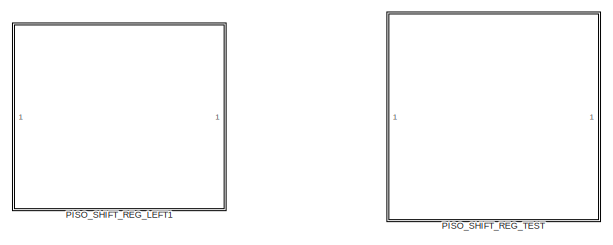
[diagram: root canvas - part 1/3, top left region]
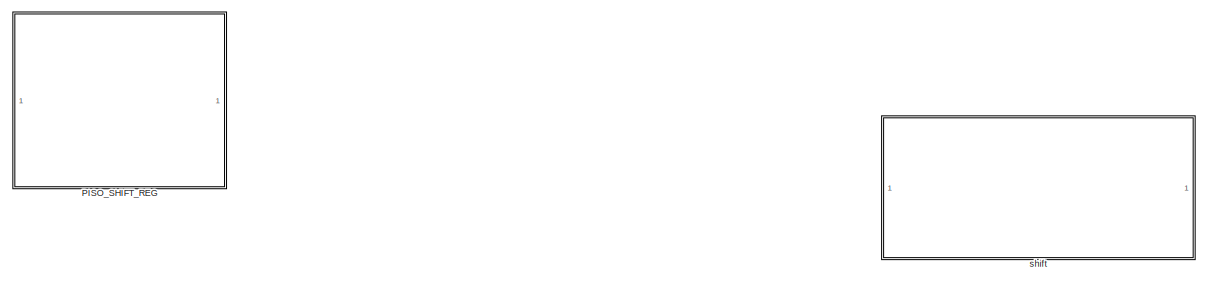
[diagram: root canvas - part 2/3, top right region]
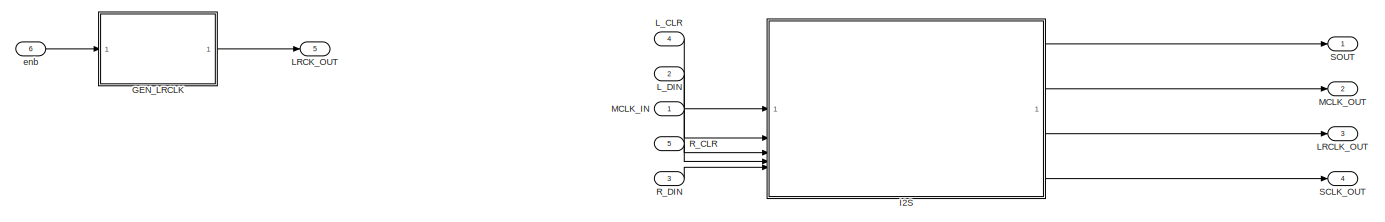
[diagram: root canvas - part 3/3, bottom left region]
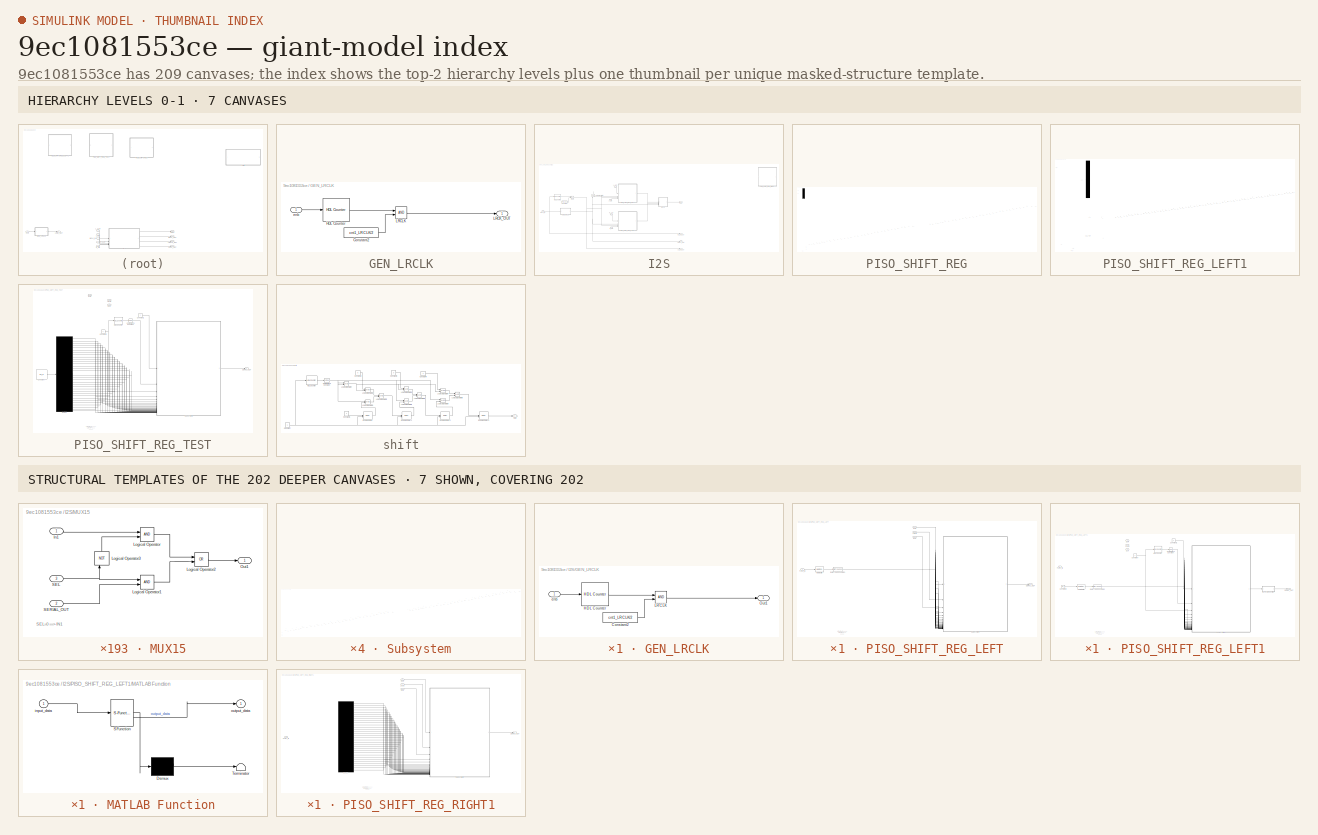
[diagram: thumbnail index - top-2 hierarchy levels (7 canvases) + 7 structural-template representatives of the remaining 202 canvases]
MODEL slx_9ec1081553ce
KIND model
CONFIG AbsTol = auto
CONFIG EnableMultiTasking = off
CONFIG FixedStep = auto
CONFIG MaxStep = auto
CONFIG MinStep = auto
CONFIG RelTol = 1e-3
CONFIG SampleTimeConstraint = Unconstrained
CONFIG SolverName = VariableStepAuto
CONFIG StartTime = 0.0
CONFIG StopTime = 10000
BLOCK [SubSystem] GEN_LRCLK
BLOCK [Constant] GEN_LRCLK/Constant2
  OutDataTypeStr = uint16
  Value = cnt1_LRCLK/2
BLOCK [Reference] GEN_LRCLK/HDL Counter  REF=hdlsllib/Sources/HDL Counter
  SourceBlock = hdlsllib/Sources/HDL Counter
  SourceType = HDL Counter
BLOCK [Outport] GEN_LRCLK/LRCK_OUT
  OutDataTypeStr = boolean
BLOCK [RelationalOperator] GEN_LRCLK/LRCLK
  InputSameDT = off
  OutDataTypeStr = boolean
BLOCK [Inport] GEN_LRCLK/enb
BLOCK [SubSystem] I2S
BLOCK [Constant] I2S/Constant1
  OutDataTypeStr = uint16
  Value = cnt2_SCLK
BLOCK [SubSystem] I2S/GEN_LRCLK
BLOCK [Constant] I2S/GEN_LRCLK/Constant2
  OutDataTypeStr = uint16
  Value = cnt1_LRCLK/2
BLOCK [Reference] I2S/GEN_LRCLK/HDL Counter  REF=hdlsllib/Sources/HDL Counter
  SourceBlock = hdlsllib/Sources/HDL Counter
  SourceType = HDL Counter
BLOCK [RelationalOperator] I2S/GEN_LRCLK/LRCLK
  InputSameDT = off
  OutDataTypeStr = boolean
BLOCK [Outport] I2S/GEN_LRCLK/Out1
BLOCK [Inport] I2S/GEN_LRCLK/enb
BLOCK [Reference] I2S/HDL Counter1  REF=hdlsllib/Sources/HDL Counter
  SourceBlock = hdlsllib/Sources/HDL Counter
  SourceType = HDL Counter
BLOCK [Outport] I2S/LRCLK_OUT
  Port = 3
  VectorParamsAs1DForOutWhenUnconnected = off
BLOCK [Inport] I2S/L_CLR
BLOCK [Inport] I2S/L_DIN
  Port = 2
BLOCK [Logic] I2S/Logical Operator
  AllPortsSameDT = off
  NameLocation = right
  Operator = NOT
  OutDataTypeStr = boolean
BLOCK [Inport] I2S/MCLK_IN
  Port = 3
BLOCK [Outport] I2S/MCLK_OUT
  Port = 2
  VectorParamsAs1DForOutWhenUnconnected = off
BLOCK [SubSystem] I2S/MUX15
BLOCK [Inport] I2S/MUX15/In1
BLOCK [Logic] I2S/MUX15/Logical Operator
  AllPortsSameDT = off
  OutDataTypeStr = boolean
BLOCK [Logic] I2S/MUX15/Logical Operator1
  AllPortsSameDT = off
  OutDataTypeStr = boolean
BLOCK [Logic] I2S/MUX15/Logical Operator2
  AllPortsSameDT = off
  Operator = OR
  OutDataTypeStr = boolean
BLOCK [Logic] I2S/MUX15/Logical Operator3
  AllPortsSameDT = off
  NameLocation = right
  Operator = NOT
  OutDataTypeStr = boolean
BLOCK [Outport] I2S/MUX15/Out1
  VectorParamsAs1DForOutWhenUnconnected = off
BLOCK [Inport] I2S/MUX15/SEL
  OutDataTypeStr = boolean
  Port = 3
BLOCK [Inport] I2S/MUX15/SERIAL_OUT
  Port = 2
BLOCK [SubSystem] I2S/PISO_SHIFT_REG_LEFT
BLOCK [Inport] I2S/PISO_SHIFT_REG_LEFT/CLK
  Port = 3
BLOCK [Inport] I2S/PISO_SHIFT_REG_LEFT/CLR
BLOCK [DataTypeConversion] I2S/PISO_SHIFT_REG_LEFT/Data Type Conversion
  OutDataTypeStr = boolean
  RndMeth = Floor
  SaturateOnIntegerOverflow = off
BLOCK [Inport] I2S/PISO_SHIFT_REG_LEFT/LOAD
  Port = 2
BLOCK [Inport] I2S/PISO_SHIFT_REG_LEFT/PARA_IN
  OutDataTypeStr = uint32
  Port = 4
BLOCK [Outport] I2S/PISO_SHIFT_REG_LEFT/SERIAL_OUT
  OutDataTypeStr = boolean
  VectorParamsAs1DForOutWhenUnconnected = off
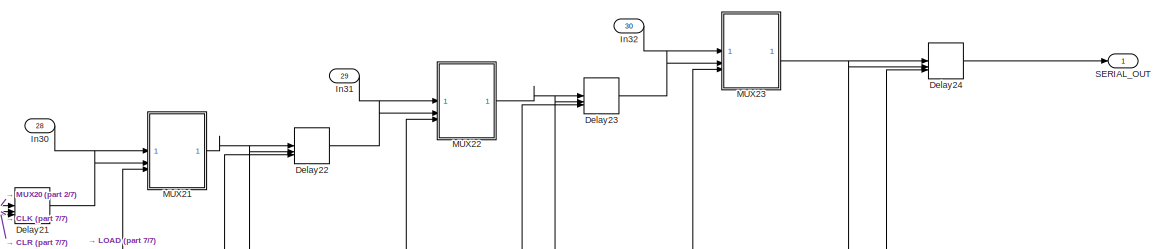
[diagram: I2S/PISO_SHIFT_REG_LEFT/Subsystem - part 1/7, top right region]
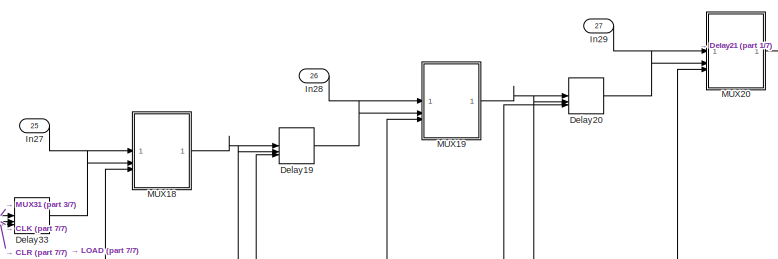
[diagram: I2S/PISO_SHIFT_REG_LEFT/Subsystem - part 2/7, top right region]
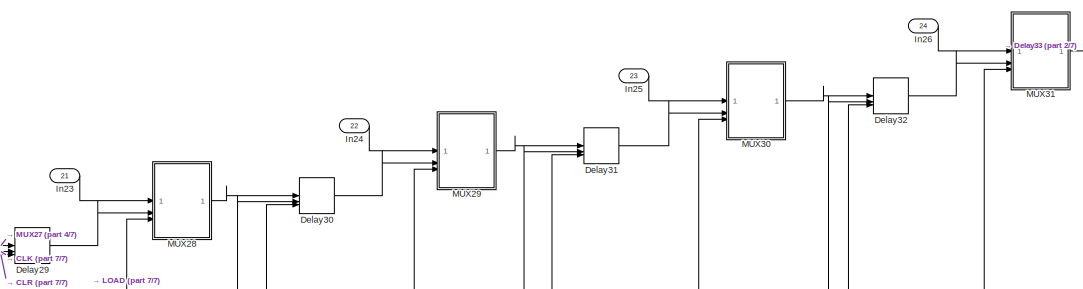
[diagram: I2S/PISO_SHIFT_REG_LEFT/Subsystem - part 3/7, top right region]
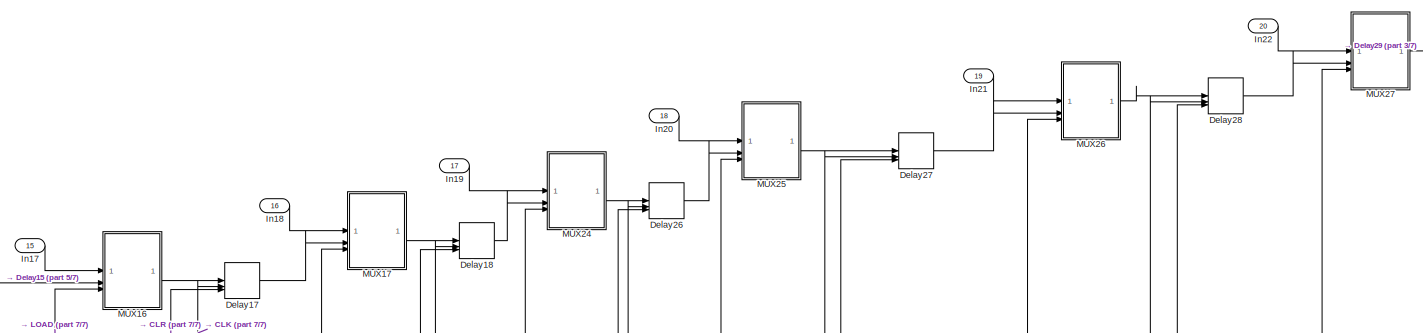
[diagram: I2S/PISO_SHIFT_REG_LEFT/Subsystem - part 4/7, central region]
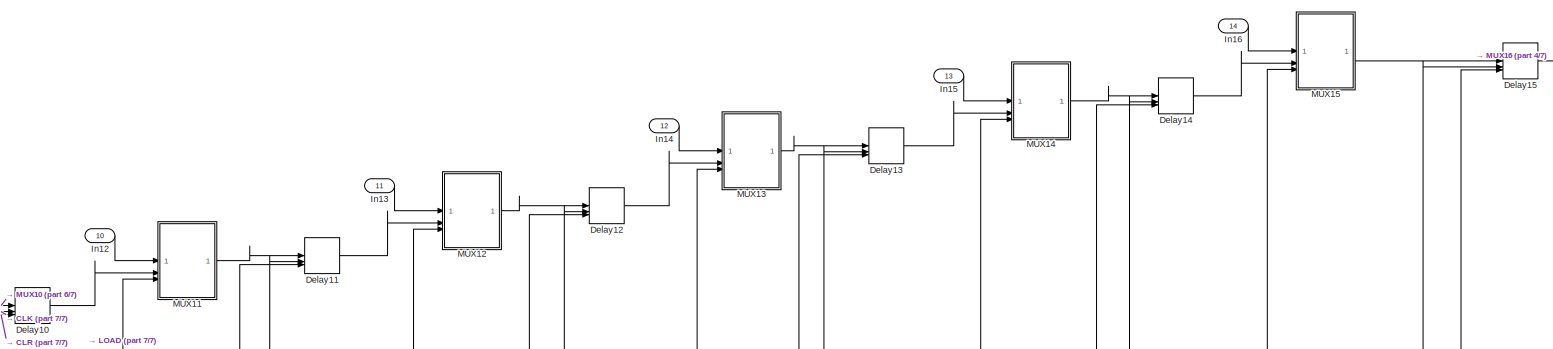
[diagram: I2S/PISO_SHIFT_REG_LEFT/Subsystem - part 5/7, central region]
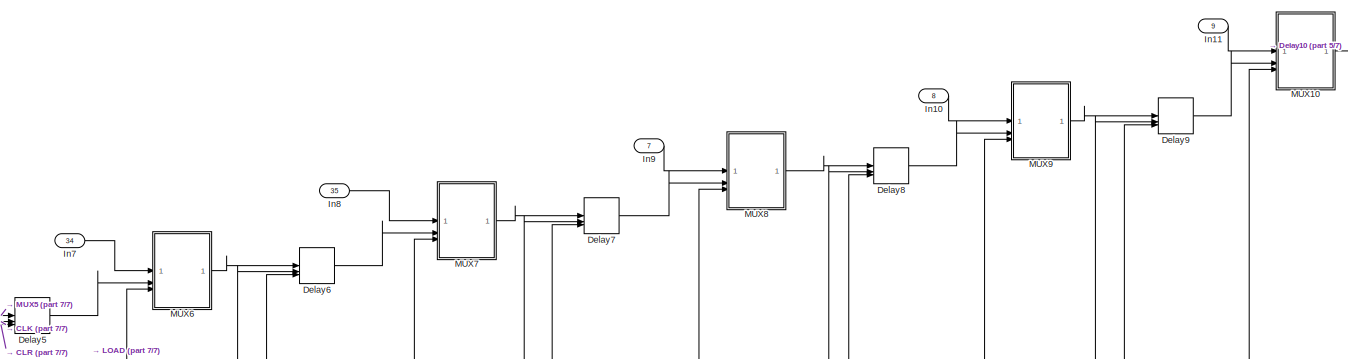
[diagram: I2S/PISO_SHIFT_REG_LEFT/Subsystem - part 6/7, bottom left region]
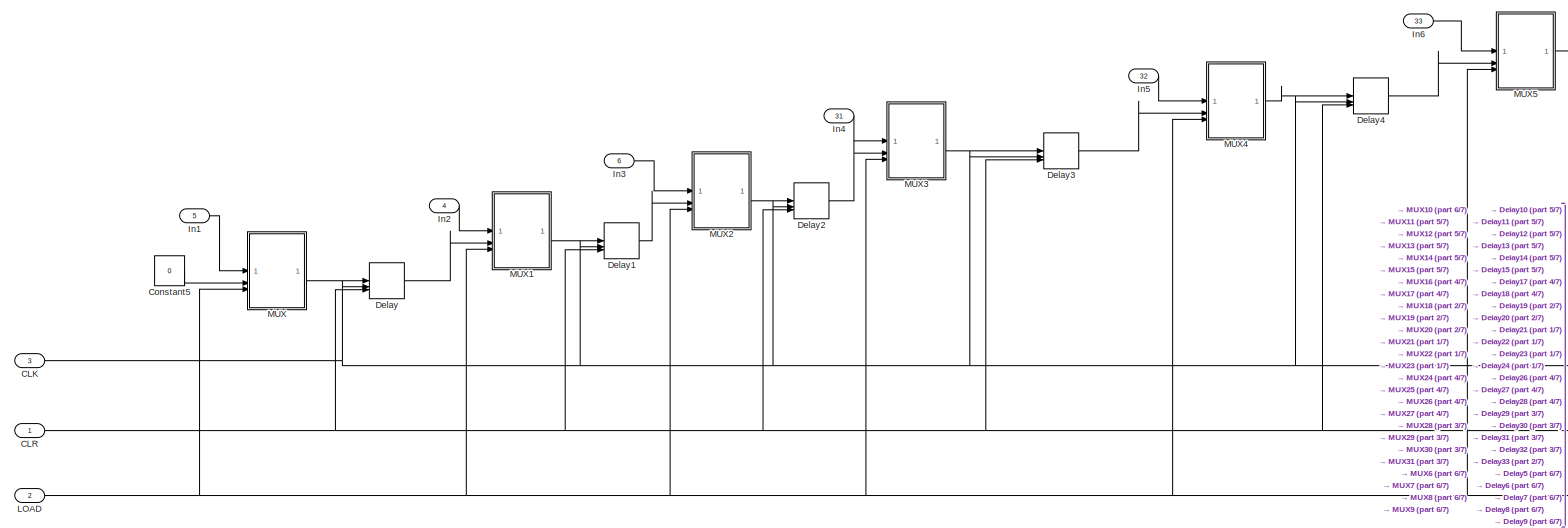
[diagram: I2S/PISO_SHIFT_REG_LEFT/Subsystem - part 7/7, bottom left region]
BLOCK [SubSystem] I2S/PISO_SHIFT_REG_LEFT/Subsystem
BLOCK [Inport] I2S/PISO_SHIFT_REG_LEFT/Subsystem/CLK
  Port = 3
BLOCK [Inport] I2S/PISO_SHIFT_REG_LEFT/Subsystem/CLR
  OutDataTypeStr = boolean
BLOCK [Constant] I2S/PISO_SHIFT_REG_LEFT/Subsystem/Constant5
  OutDataTypeStr = boolean
  SampleTime = 1
  Value = 0
BLOCK [Delay] I2S/PISO_SHIFT_REG_LEFT/Subsystem/Delay
  DelayLength = 1
  ExternalReset = Level
  InputPortMap = u0,e6,r5
  ShowEnablePort = on
BLOCK [Delay] I2S/PISO_SHIFT_REG_LEFT/Subsystem/Delay1
  DelayLength = 1
  ExternalReset = Level
  InputPortMap = u0,e6,r5
  ShowEnablePort = on
BLOCK [Delay] I2S/PISO_SHIFT_REG_LEFT/Subsystem/Delay10
  DelayLength = 1
  ExternalReset = Level
  InputPortMap = u0,e6,r5
  ShowEnablePort = on
BLOCK [Delay] I2S/PISO_SHIFT_REG_LEFT/Subsystem/Delay11
  DelayLength = 1
  ExternalReset = Level
  InputPortMap = u0,e6,r5
  ShowEnablePort = on
BLOCK [Delay] I2S/PISO_SHIFT_REG_LEFT/Subsystem/Delay12
  DelayLength = 1
  ExternalReset = Level
  InputPortMap = u0,e6,r5
  ShowEnablePort = on
BLOCK [Delay] I2S/PISO_SHIFT_REG_LEFT/Subsystem/Delay13
  DelayLength = 1
  ExternalReset = Level
  InputPortMap = u0,e6,r5
  ShowEnablePort = on
BLOCK [Delay] I2S/PISO_SHIFT_REG_LEFT/Subsystem/Delay14
  DelayLength = 1
  ExternalReset = Level
  InputPortMap = u0,e6,r5
  ShowEnablePort = on
BLOCK [Delay] I2S/PISO_SHIFT_REG_LEFT/Subsystem/Delay15
  DelayLength = 1
  ExternalReset = Level
  InputPortMap = u0,e6,r5
  ShowEnablePort = on
BLOCK [Delay] I2S/PISO_SHIFT_REG_LEFT/Subsystem/Delay17
  DelayLength = 1
  ExternalReset = Level
  InputPortMap = u0,e6,r5
  ShowEnablePort = on
BLOCK [Delay] I2S/PISO_SHIFT_REG_LEFT/Subsystem/Delay18
  DelayLength = 1
  ExternalReset = Level
  InputPortMap = u0,e6,r5
  ShowEnablePort = on
BLOCK [Delay] I2S/PISO_SHIFT_REG_LEFT/Subsystem/Delay19
  DelayLength = 1
  ExternalReset = Level
  InputPortMap = u0,e6,r5
  ShowEnablePort = on
BLOCK [Delay] I2S/PISO_SHIFT_REG_LEFT/Subsystem/Delay2
  DelayLength = 1
  ExternalReset = Level
  InputPortMap = u0,e6,r5
  ShowEnablePort = on
BLOCK [Delay] I2S/PISO_SHIFT_REG_LEFT/Subsystem/Delay20
  DelayLength = 1
  ExternalReset = Level
  InputPortMap = u0,e6,r5
  ShowEnablePort = on
BLOCK [Delay] I2S/PISO_SHIFT_REG_LEFT/Subsystem/Delay21
  DelayLength = 1
  ExternalReset = Level
  InputPortMap = u0,e6,r5
  ShowEnablePort = on
BLOCK [Delay] I2S/PISO_SHIFT_REG_LEFT/Subsystem/Delay22
  DelayLength = 1
  ExternalReset = Level
  InputPortMap = u0,e6,r5
  ShowEnablePort = on
BLOCK [Delay] I2S/PISO_SHIFT_REG_LEFT/Subsystem/Delay23
  DelayLength = 1
  ExternalReset = Level
  InputPortMap = u0,e6,r5
  ShowEnablePort = on
BLOCK [Delay] I2S/PISO_SHIFT_REG_LEFT/Subsystem/Delay24
  DelayLength = 1
  ExternalReset = Level
  InputPortMap = u0,e6,r5
  ShowEnablePort = on
BLOCK [Delay] I2S/PISO_SHIFT_REG_LEFT/Subsystem/Delay26
  DelayLength = 1
  ExternalReset = Level
  InputPortMap = u0,e6,r5
  ShowEnablePort = on
BLOCK [Delay] I2S/PISO_SHIFT_REG_LEFT/Subsystem/Delay27
  DelayLength = 1
  ExternalReset = Level
  InputPortMap = u0,e6,r5
  ShowEnablePort = on
BLOCK [Delay] I2S/PISO_SHIFT_REG_LEFT/Subsystem/Delay28
  DelayLength = 1
  ExternalReset = Level
  InputPortMap = u0,e6,r5
  ShowEnablePort = on
BLOCK [Delay] I2S/PISO_SHIFT_REG_LEFT/Subsystem/Delay29
  DelayLength = 1
  ExternalReset = Level
  InputPortMap = u0,e6,r5
  ShowEnablePort = on
BLOCK [Delay] I2S/PISO_SHIFT_REG_LEFT/Subsystem/Delay3
  DelayLength = 1
  ExternalReset = Level
  InputPortMap = u0,e6,r5
  ShowEnablePort = on
BLOCK [Delay] I2S/PISO_SHIFT_REG_LEFT/Subsystem/Delay30
  DelayLength = 1
  ExternalReset = Level
  InputPortMap = u0,e6,r5
  ShowEnablePort = on
BLOCK [Delay] I2S/PISO_SHIFT_REG_LEFT/Subsystem/Delay31
  DelayLength = 1
  ExternalReset = Level
  InputPortMap = u0,e6,r5
  ShowEnablePort = on
BLOCK [Delay] I2S/PISO_SHIFT_REG_LEFT/Subsystem/Delay32
  DelayLength = 1
  ExternalReset = Level
  InputPortMap = u0,e6,r5
  ShowEnablePort = on
BLOCK [Delay] I2S/PISO_SHIFT_REG_LEFT/Subsystem/Delay33
  DelayLength = 1
  ExternalReset = Level
  InputPortMap = u0,e6,r5
  ShowEnablePort = on
BLOCK [Delay] I2S/PISO_SHIFT_REG_LEFT/Subsystem/Delay4
  DelayLength = 1
  ExternalReset = Level
  InputPortMap = u0,e6,r5
  ShowEnablePort = on
BLOCK [Delay] I2S/PISO_SHIFT_REG_LEFT/Subsystem/Delay5
  DelayLength = 1
  ExternalReset = Level
  InputPortMap = u0,e6,r5
  ShowEnablePort = on
BLOCK [Delay] I2S/PISO_SHIFT_REG_LEFT/Subsystem/Delay6
  DelayLength = 1
  ExternalReset = Level
  InputPortMap = u0,e6,r5
  ShowEnablePort = on
BLOCK [Delay] I2S/PISO_SHIFT_REG_LEFT/Subsystem/Delay7
  DelayLength = 1
  ExternalReset = Level
  InputPortMap = u0,e6,r5
  ShowEnablePort = on
BLOCK [Delay] I2S/PISO_SHIFT_REG_LEFT/Subsystem/Delay8
  DelayLength = 1
  ExternalReset = Level
  InputPortMap = u0,e6,r5
  ShowEnablePort = on
BLOCK [Delay] I2S/PISO_SHIFT_REG_LEFT/Subsystem/Delay9
  DelayLength = 1
  ExternalReset = Level
  InputPortMap = u0,e6,r5
  ShowEnablePort = on
BLOCK [Inport] I2S/PISO_SHIFT_REG_LEFT/Subsystem/In1
  OutDataTypeStr = boolean
  Port = 5
BLOCK [Inport] I2S/PISO_SHIFT_REG_LEFT/Subsystem/In10
  OutDataTypeStr = boolean
  Port = 8
BLOCK [Inport] I2S/PISO_SHIFT_REG_LEFT/Subsystem/In11
  OutDataTypeStr = boolean
  Port = 9
BLOCK [Inport] I2S/PISO_SHIFT_REG_LEFT/Subsystem/In12
  OutDataTypeStr = boolean
  Port = 10
BLOCK [Inport] I2S/PISO_SHIFT_REG_LEFT/Subsystem/In13
  OutDataTypeStr = boolean
  Port = 11
BLOCK [Inport] I2S/PISO_SHIFT_REG_LEFT/Subsystem/In14
  OutDataTypeStr = boolean
  Port = 12
BLOCK [Inport] I2S/PISO_SHIFT_REG_LEFT/Subsystem/In15
  OutDataTypeStr = boolean
  Port = 13
BLOCK [Inport] I2S/PISO_SHIFT_REG_LEFT/Subsystem/In16
  OutDataTypeStr = boolean
  Port = 14
BLOCK [Inport] I2S/PISO_SHIFT_REG_LEFT/Subsystem/In17
  OutDataTypeStr = boolean
  Port = 15
BLOCK [Inport] I2S/PISO_SHIFT_REG_LEFT/Subsystem/In18
  OutDataTypeStr = boolean
  Port = 16
BLOCK [Inport] I2S/PISO_SHIFT_REG_LEFT/Subsystem/In19
  OutDataTypeStr = boolean
  Port = 17
BLOCK [Inport] I2S/PISO_SHIFT_REG_LEFT/Subsystem/In2
  OutDataTypeStr = boolean
  Port = 4
BLOCK [Inport] I2S/PISO_SHIFT_REG_LEFT/Subsystem/In20
  OutDataTypeStr = boolean
  Port = 18
BLOCK [Inport] I2S/PISO_SHIFT_REG_LEFT/Subsystem/In21
  OutDataTypeStr = boolean
  Port = 19
BLOCK [Inport] I2S/PISO_SHIFT_REG_LEFT/Subsystem/In22
  OutDataTypeStr = boolean
  Port = 20
BLOCK [Inport] I2S/PISO_SHIFT_REG_LEFT/Subsystem/In23
  OutDataTypeStr = boolean
  Port = 21
BLOCK [Inport] I2S/PISO_SHIFT_REG_LEFT/Subsystem/In24
  OutDataTypeStr = boolean
  Port = 22
BLOCK [Inport] I2S/PISO_SHIFT_REG_LEFT/Subsystem/In25
  OutDataTypeStr = boolean
  Port = 23
BLOCK [Inport] I2S/PISO_SHIFT_REG_LEFT/Subsystem/In26
  OutDataTypeStr = boolean
  Port = 24
BLOCK [Inport] I2S/PISO_SHIFT_REG_LEFT/Subsystem/In27
  OutDataTypeStr = boolean
  Port = 25
BLOCK [Inport] I2S/PISO_SHIFT_REG_LEFT/Subsystem/In28
  OutDataTypeStr = boolean
  Port = 26
BLOCK [Inport] I2S/PISO_SHIFT_REG_LEFT/Subsystem/In29
  OutDataTypeStr = boolean
  Port = 27
BLOCK [Inport] I2S/PISO_SHIFT_REG_LEFT/Subsystem/In3
  OutDataTypeStr = boolean
  Port = 6
BLOCK [Inport] I2S/PISO_SHIFT_REG_LEFT/Subsystem/In30
  OutDataTypeStr = boolean
  Port = 28
BLOCK [Inport] I2S/PISO_SHIFT_REG_LEFT/Subsystem/In31
  OutDataTypeStr = boolean
  Port = 29
BLOCK [Inport] I2S/PISO_SHIFT_REG_LEFT/Subsystem/In32
  OutDataTypeStr = boolean
  Port = 30
BLOCK [Inport] I2S/PISO_SHIFT_REG_LEFT/Subsystem/In4
  OutDataTypeStr = boolean
  Port = 31
BLOCK [Inport] I2S/PISO_SHIFT_REG_LEFT/Subsystem/In5
  OutDataTypeStr = boolean
  Port = 32
BLOCK [Inport] I2S/PISO_SHIFT_REG_LEFT/Subsystem/In6
  OutDataTypeStr = boolean
  Port = 33
BLOCK [Inport] I2S/PISO_SHIFT_REG_LEFT/Subsystem/In7
  OutDataTypeStr = boolean
  Port = 34
BLOCK [Inport] I2S/PISO_SHIFT_REG_LEFT/Subsystem/In8
  OutDataTypeStr = boolean
  Port = 35
BLOCK [Inport] I2S/PISO_SHIFT_REG_LEFT/Subsystem/In9
  OutDataTypeStr = boolean
  Port = 7
BLOCK [Inport] I2S/PISO_SHIFT_REG_LEFT/Subsystem/LOAD
  Port = 2
BLOCK [SubSystem] I2S/PISO_SHIFT_REG_LEFT/Subsystem/MUX
BLOCK [Inport] I2S/PISO_SHIFT_REG_LEFT/Subsystem/MUX/In1
BLOCK [Inport] I2S/PISO_SHIFT_REG_LEFT/Subsystem/MUX/In2
  Port = 2
BLOCK [Logic] I2S/PISO_SHIFT_REG_LEFT/Subsystem/MUX/Logical Operator
  AllPortsSameDT = off
  OutDataTypeStr = boolean
BLOCK [Logic] I2S/PISO_SHIFT_REG_LEFT/Subsystem/MUX/Logical Operator1
  AllPortsSameDT = off
  OutDataTypeStr = boolean
BLOCK [Logic] I2S/PISO_SHIFT_REG_LEFT/Subsystem/MUX/Logical Operator2
  AllPortsSameDT = off
  Operator = OR
  OutDataTypeStr = boolean
BLOCK [Logic] I2S/PISO_SHIFT_REG_LEFT/Subsystem/MUX/Logical Operator3
  AllPortsSameDT = off
  NameLocation = right
  Operator = NOT
  OutDataTypeStr = boolean
BLOCK [Outport] I2S/PISO_SHIFT_REG_LEFT/Subsystem/MUX/Out1
  VectorParamsAs1DForOutWhenUnconnected = off
BLOCK [Inport] I2S/PISO_SHIFT_REG_LEFT/Subsystem/MUX/SEL
  OutDataTypeStr = boolean
  Port = 3
BLOCK [SubSystem] I2S/PISO_SHIFT_REG_LEFT/Subsystem/MUX1
BLOCK [Inport] I2S/PISO_SHIFT_REG_LEFT/Subsystem/MUX1/In1
BLOCK [Inport] I2S/PISO_SHIFT_REG_LEFT/Subsystem/MUX1/In2
  Port = 2
BLOCK [Logic] I2S/PISO_SHIFT_REG_LEFT/Subsystem/MUX1/Logical Operator
  AllPortsSameDT = off
  OutDataTypeStr = boolean
BLOCK [Logic] I2S/PISO_SHIFT_REG_LEFT/Subsystem/MUX1/Logical Operator1
  AllPortsSameDT = off
  OutDataTypeStr = boolean
BLOCK [Logic] I2S/PISO_SHIFT_REG_LEFT/Subsystem/MUX1/Logical Operator2
  AllPortsSameDT = off
  Operator = OR
  OutDataTypeStr = boolean
BLOCK [Logic] I2S/PISO_SHIFT_REG_LEFT/Subsystem/MUX1/Logical Operator3
  AllPortsSameDT = off
  NameLocation = right
  Operator = NOT
  OutDataTypeStr = boolean
BLOCK [Outport] I2S/PISO_SHIFT_REG_LEFT/Subsystem/MUX1/Out1
  VectorParamsAs1DForOutWhenUnconnected = off
BLOCK [Inport] I2S/PISO_SHIFT_REG_LEFT/Subsystem/MUX1/SEL
  OutDataTypeStr = boolean
  Port = 3
BLOCK [SubSystem] I2S/PISO_SHIFT_REG_LEFT/Subsystem/MUX10
BLOCK [Inport] I2S/PISO_SHIFT_REG_LEFT/Subsystem/MUX10/In1
BLOCK [Inport] I2S/PISO_SHIFT_REG_LEFT/Subsystem/MUX10/In2
  Port = 2
BLOCK [Logic] I2S/PISO_SHIFT_REG_LEFT/Subsystem/MUX10/Logical Operator
  AllPortsSameDT = off
  OutDataTypeStr = boolean
BLOCK [Logic] I2S/PISO_SHIFT_REG_LEFT/Subsystem/MUX10/Logical Operator1
  AllPortsSameDT = off
  OutDataTypeStr = boolean
BLOCK [Logic] I2S/PISO_SHIFT_REG_LEFT/Subsystem/MUX10/Logical Operator2
  AllPortsSameDT = off
  Operator = OR
  OutDataTypeStr = boolean
BLOCK [Logic] I2S/PISO_SHIFT_REG_LEFT/Subsystem/MUX10/Logical Operator3
  AllPortsSameDT = off
  NameLocation = right
  Operator = NOT
  OutDataTypeStr = boolean
BLOCK [Outport] I2S/PISO_SHIFT_REG_LEFT/Subsystem/MUX10/Out1
  VectorParamsAs1DForOutWhenUnconnected = off
BLOCK [Inport] I2S/PISO_SHIFT_REG_LEFT/Subsystem/MUX10/SEL
  OutDataTypeStr = boolean
  Port = 3
BLOCK [SubSystem] I2S/PISO_SHIFT_REG_LEFT/Subsystem/MUX11
BLOCK [Inport] I2S/PISO_SHIFT_REG_LEFT/Subsystem/MUX11/In1
BLOCK [Inport] I2S/PISO_SHIFT_REG_LEFT/Subsystem/MUX11/In2
  Port = 2
BLOCK [Logic] I2S/PISO_SHIFT_REG_LEFT/Subsystem/MUX11/Logical Operator
  AllPortsSameDT = off
  OutDataTypeStr = boolean
BLOCK [Logic] I2S/PISO_SHIFT_REG_LEFT/Subsystem/MUX11/Logical Operator1
  AllPortsSameDT = off
  OutDataTypeStr = boolean
BLOCK [Logic] I2S/PISO_SHIFT_REG_LEFT/Subsystem/MUX11/Logical Operator2
  AllPortsSameDT = off
  Operator = OR
  OutDataTypeStr = boolean
BLOCK [Logic] I2S/PISO_SHIFT_REG_LEFT/Subsystem/MUX11/Logical Operator3
  AllPortsSameDT = off
  NameLocation = right
  Operator = NOT
  OutDataTypeStr = boolean
BLOCK [Outport] I2S/PISO_SHIFT_REG_LEFT/Subsystem/MUX11/Out1
  VectorParamsAs1DForOutWhenUnconnected = off
BLOCK [Inport] I2S/PISO_SHIFT_REG_LEFT/Subsystem/MUX11/SEL
  OutDataTypeStr = boolean
  Port = 3
BLOCK [SubSystem] I2S/PISO_SHIFT_REG_LEFT/Subsystem/MUX12
BLOCK [Inport] I2S/PISO_SHIFT_REG_LEFT/Subsystem/MUX12/In1
BLOCK [Inport] I2S/PISO_SHIFT_REG_LEFT/Subsystem/MUX12/In2
  Port = 2
BLOCK [Logic] I2S/PISO_SHIFT_REG_LEFT/Subsystem/MUX12/Logical Operator
  AllPortsSameDT = off
  OutDataTypeStr = boolean
BLOCK [Logic] I2S/PISO_SHIFT_REG_LEFT/Subsystem/MUX12/Logical Operator1
  AllPortsSameDT = off
  OutDataTypeStr = boolean
BLOCK [Logic] I2S/PISO_SHIFT_REG_LEFT/Subsystem/MUX12/Logical Operator2
  AllPortsSameDT = off
  Operator = OR
  OutDataTypeStr = boolean
BLOCK [Logic] I2S/PISO_SHIFT_REG_LEFT/Subsystem/MUX12/Logical Operator3
  AllPortsSameDT = off
  NameLocation = right
  Operator = NOT
  OutDataTypeStr = boolean
BLOCK [Outport] I2S/PISO_SHIFT_REG_LEFT/Subsystem/MUX12/Out1
  VectorParamsAs1DForOutWhenUnconnected = off
BLOCK [Inport] I2S/PISO_SHIFT_REG_LEFT/Subsystem/MUX12/SEL
  OutDataTypeStr = boolean
  Port = 3
BLOCK [SubSystem] I2S/PISO_SHIFT_REG_LEFT/Subsystem/MUX13
BLOCK [Inport] I2S/PISO_SHIFT_REG_LEFT/Subsystem/MUX13/In1
BLOCK [Inport] I2S/PISO_SHIFT_REG_LEFT/Subsystem/MUX13/In2
  Port = 2
BLOCK [Logic] I2S/PISO_SHIFT_REG_LEFT/Subsystem/MUX13/Logical Operator
  AllPortsSameDT = off
  OutDataTypeStr = boolean
BLOCK [Logic] I2S/PISO_SHIFT_REG_LEFT/Subsystem/MUX13/Logical Operator1
  AllPortsSameDT = off
  OutDataTypeStr = boolean
BLOCK [Logic] I2S/PISO_SHIFT_REG_LEFT/Subsystem/MUX13/Logical Operator2
  AllPortsSameDT = off
  Operator = OR
  OutDataTypeStr = boolean
BLOCK [Logic] I2S/PISO_SHIFT_REG_LEFT/Subsystem/MUX13/Logical Operator3
  AllPortsSameDT = off
  NameLocation = right
  Operator = NOT
  OutDataTypeStr = boolean
BLOCK [Outport] I2S/PISO_SHIFT_REG_LEFT/Subsystem/MUX13/Out1
  VectorParamsAs1DForOutWhenUnconnected = off
BLOCK [Inport] I2S/PISO_SHIFT_REG_LEFT/Subsystem/MUX13/SEL
  OutDataTypeStr = boolean
  Port = 3
BLOCK [SubSystem] I2S/PISO_SHIFT_REG_LEFT/Subsystem/MUX14
BLOCK [Inport] I2S/PISO_SHIFT_REG_LEFT/Subsystem/MUX14/In1
BLOCK [Inport] I2S/PISO_SHIFT_REG_LEFT/Subsystem/MUX14/In2
  Port = 2
BLOCK [Logic] I2S/PISO_SHIFT_REG_LEFT/Subsystem/MUX14/Logical Operator
  AllPortsSameDT = off
  OutDataTypeStr = boolean
BLOCK [Logic] I2S/PISO_SHIFT_REG_LEFT/Subsystem/MUX14/Logical Operator1
  AllPortsSameDT = off
  OutDataTypeStr = boolean
BLOCK [Logic] I2S/PISO_SHIFT_REG_LEFT/Subsystem/MUX14/Logical Operator2
  AllPortsSameDT = off
  Operator = OR
  OutDataTypeStr = boolean
BLOCK [Logic] I2S/PISO_SHIFT_REG_LEFT/Subsystem/MUX14/Logical Operator3
  AllPortsSameDT = off
  NameLocation = right
  Operator = NOT
  OutDataTypeStr = boolean
BLOCK [Outport] I2S/PISO_SHIFT_REG_LEFT/Subsystem/MUX14/Out1
  VectorParamsAs1DForOutWhenUnconnected = off
BLOCK [Inport] I2S/PISO_SHIFT_REG_LEFT/Subsystem/MUX14/SEL
  OutDataTypeStr = boolean
  Port = 3
BLOCK [SubSystem] I2S/PISO_SHIFT_REG_LEFT/Subsystem/MUX15
BLOCK [Inport] I2S/PISO_SHIFT_REG_LEFT/Subsystem/MUX15/In1
BLOCK [Inport] I2S/PISO_SHIFT_REG_LEFT/Subsystem/MUX15/In2
  Port = 2
BLOCK [Logic] I2S/PISO_SHIFT_REG_LEFT/Subsystem/MUX15/Logical Operator
  AllPortsSameDT = off
  OutDataTypeStr = boolean
BLOCK [Logic] I2S/PISO_SHIFT_REG_LEFT/Subsystem/MUX15/Logical Operator1
  AllPortsSameDT = off
  OutDataTypeStr = boolean
BLOCK [Logic] I2S/PISO_SHIFT_REG_LEFT/Subsystem/MUX15/Logical Operator2
  AllPortsSameDT = off
  Operator = OR
  OutDataTypeStr = boolean
BLOCK [Logic] I2S/PISO_SHIFT_REG_LEFT/Subsystem/MUX15/Logical Operator3
  AllPortsSameDT = off
  NameLocation = right
  Operator = NOT
  OutDataTypeStr = boolean
BLOCK [Outport] I2S/PISO_SHIFT_REG_LEFT/Subsystem/MUX15/Out1
  VectorParamsAs1DForOutWhenUnconnected = off
BLOCK [Inport] I2S/PISO_SHIFT_REG_LEFT/Subsystem/MUX15/SEL
  OutDataTypeStr = boolean
  Port = 3
BLOCK [SubSystem] I2S/PISO_SHIFT_REG_LEFT/Subsystem/MUX16
BLOCK [Inport] I2S/PISO_SHIFT_REG_LEFT/Subsystem/MUX16/In1
BLOCK [Inport] I2S/PISO_SHIFT_REG_LEFT/Subsystem/MUX16/In2
  Port = 2
BLOCK [Logic] I2S/PISO_SHIFT_REG_LEFT/Subsystem/MUX16/Logical Operator
  AllPortsSameDT = off
  OutDataTypeStr = boolean
BLOCK [Logic] I2S/PISO_SHIFT_REG_LEFT/Subsystem/MUX16/Logical Operator1
  AllPortsSameDT = off
  OutDataTypeStr = boolean
BLOCK [Logic] I2S/PISO_SHIFT_REG_LEFT/Subsystem/MUX16/Logical Operator2
  AllPortsSameDT = off
  Operator = OR
  OutDataTypeStr = boolean
BLOCK [Logic] I2S/PISO_SHIFT_REG_LEFT/Subsystem/MUX16/Logical Operator3
  AllPortsSameDT = off
  NameLocation = right
  Operator = NOT
  OutDataTypeStr = boolean
BLOCK [Outport] I2S/PISO_SHIFT_REG_LEFT/Subsystem/MUX16/Out1
  VectorParamsAs1DForOutWhenUnconnected = off
BLOCK [Inport] I2S/PISO_SHIFT_REG_LEFT/Subsystem/MUX16/SEL
  OutDataTypeStr = boolean
  Port = 3
BLOCK [SubSystem] I2S/PISO_SHIFT_REG_LEFT/Subsystem/MUX17
BLOCK [Inport] I2S/PISO_SHIFT_REG_LEFT/Subsystem/MUX17/In1
BLOCK [Inport] I2S/PISO_SHIFT_REG_LEFT/Subsystem/MUX17/In2
  Port = 2
BLOCK [Logic] I2S/PISO_SHIFT_REG_LEFT/Subsystem/MUX17/Logical Operator
  AllPortsSameDT = off
  OutDataTypeStr = boolean
BLOCK [Logic] I2S/PISO_SHIFT_REG_LEFT/Subsystem/MUX17/Logical Operator1
  AllPortsSameDT = off
  OutDataTypeStr = boolean
BLOCK [Logic] I2S/PISO_SHIFT_REG_LEFT/Subsystem/MUX17/Logical Operator2
  AllPortsSameDT = off
  Operator = OR
  OutDataTypeStr = boolean
BLOCK [Logic] I2S/PISO_SHIFT_REG_LEFT/Subsystem/MUX17/Logical Operator3
  AllPortsSameDT = off
  NameLocation = right
  Operator = NOT
  OutDataTypeStr = boolean
BLOCK [Outport] I2S/PISO_SHIFT_REG_LEFT/Subsystem/MUX17/Out1
  VectorParamsAs1DForOutWhenUnconnected = off
BLOCK [Inport] I2S/PISO_SHIFT_REG_LEFT/Subsystem/MUX17/SEL
  OutDataTypeStr = boolean
  Port = 3
BLOCK [SubSystem] I2S/PISO_SHIFT_REG_LEFT/Subsystem/MUX18
BLOCK [Inport] I2S/PISO_SHIFT_REG_LEFT/Subsystem/MUX18/In1
BLOCK [Inport] I2S/PISO_SHIFT_REG_LEFT/Subsystem/MUX18/In2
  Port = 2
BLOCK [Logic] I2S/PISO_SHIFT_REG_LEFT/Subsystem/MUX18/Logical Operator
  AllPortsSameDT = off
  OutDataTypeStr = boolean
BLOCK [Logic] I2S/PISO_SHIFT_REG_LEFT/Subsystem/MUX18/Logical Operator1
  AllPortsSameDT = off
  OutDataTypeStr = boolean
BLOCK [Logic] I2S/PISO_SHIFT_REG_LEFT/Subsystem/MUX18/Logical Operator2
  AllPortsSameDT = off
  Operator = OR
  OutDataTypeStr = boolean
BLOCK [Logic] I2S/PISO_SHIFT_REG_LEFT/Subsystem/MUX18/Logical Operator3
  AllPortsSameDT = off
  NameLocation = right
  Operator = NOT
  OutDataTypeStr = boolean
BLOCK [Outport] I2S/PISO_SHIFT_REG_LEFT/Subsystem/MUX18/Out1
  VectorParamsAs1DForOutWhenUnconnected = off
BLOCK [Inport] I2S/PISO_SHIFT_REG_LEFT/Subsystem/MUX18/SEL
  OutDataTypeStr = boolean
  Port = 3
BLOCK [SubSystem] I2S/PISO_SHIFT_REG_LEFT/Subsystem/MUX19
BLOCK [Inport] I2S/PISO_SHIFT_REG_LEFT/Subsystem/MUX19/In1
BLOCK [Inport] I2S/PISO_SHIFT_REG_LEFT/Subsystem/MUX19/In2
  Port = 2
BLOCK [Logic] I2S/PISO_SHIFT_REG_LEFT/Subsystem/MUX19/Logical Operator
  AllPortsSameDT = off
  OutDataTypeStr = boolean
BLOCK [Logic] I2S/PISO_SHIFT_REG_LEFT/Subsystem/MUX19/Logical Operator1
  AllPortsSameDT = off
  OutDataTypeStr = boolean
BLOCK [Logic] I2S/PISO_SHIFT_REG_LEFT/Subsystem/MUX19/Logical Operator2
  AllPortsSameDT = off
  Operator = OR
  OutDataTypeStr = boolean
BLOCK [Logic] I2S/PISO_SHIFT_REG_LEFT/Subsystem/MUX19/Logical Operator3
  AllPortsSameDT = off
  NameLocation = right
  Operator = NOT
  OutDataTypeStr = boolean
BLOCK [Outport] I2S/PISO_SHIFT_REG_LEFT/Subsystem/MUX19/Out1
  VectorParamsAs1DForOutWhenUnconnected = off
BLOCK [Inport] I2S/PISO_SHIFT_REG_LEFT/Subsystem/MUX19/SEL
  OutDataTypeStr = boolean
  Port = 3
BLOCK [SubSystem] I2S/PISO_SHIFT_REG_LEFT/Subsystem/MUX2
BLOCK [Inport] I2S/PISO_SHIFT_REG_LEFT/Subsystem/MUX2/In1
BLOCK [Inport] I2S/PISO_SHIFT_REG_LEFT/Subsystem/MUX2/In2
  Port = 2
BLOCK [Logic] I2S/PISO_SHIFT_REG_LEFT/Subsystem/MUX2/Logical Operator
  AllPortsSameDT = off
  OutDataTypeStr = boolean
BLOCK [Logic] I2S/PISO_SHIFT_REG_LEFT/Subsystem/MUX2/Logical Operator1
  AllPortsSameDT = off
  OutDataTypeStr = boolean
BLOCK [Logic] I2S/PISO_SHIFT_REG_LEFT/Subsystem/MUX2/Logical Operator2
  AllPortsSameDT = off
  Operator = OR
  OutDataTypeStr = boolean
BLOCK [Logic] I2S/PISO_SHIFT_REG_LEFT/Subsystem/MUX2/Logical Operator3
  AllPortsSameDT = off
  NameLocation = right
  Operator = NOT
  OutDataTypeStr = boolean
BLOCK [Outport] I2S/PISO_SHIFT_REG_LEFT/Subsystem/MUX2/Out1
  VectorParamsAs1DForOutWhenUnconnected = off
BLOCK [Inport] I2S/PISO_SHIFT_REG_LEFT/Subsystem/MUX2/SEL
  OutDataTypeStr = boolean
  Port = 3
BLOCK [SubSystem] I2S/PISO_SHIFT_REG_LEFT/Subsystem/MUX20
BLOCK [Inport] I2S/PISO_SHIFT_REG_LEFT/Subsystem/MUX20/In1
BLOCK [Inport] I2S/PISO_SHIFT_REG_LEFT/Subsystem/MUX20/In2
  Port = 2
BLOCK [Logic] I2S/PISO_SHIFT_REG_LEFT/Subsystem/MUX20/Logical Operator
  AllPortsSameDT = off
  OutDataTypeStr = boolean
BLOCK [Logic] I2S/PISO_SHIFT_REG_LEFT/Subsystem/MUX20/Logical Operator1
  AllPortsSameDT = off
  OutDataTypeStr = boolean
BLOCK [Logic] I2S/PISO_SHIFT_REG_LEFT/Subsystem/MUX20/Logical Operator2
  AllPortsSameDT = off
  Operator = OR
  OutDataTypeStr = boolean
BLOCK [Logic] I2S/PISO_SHIFT_REG_LEFT/Subsystem/MUX20/Logical Operator3
  AllPortsSameDT = off
  NameLocation = right
  Operator = NOT
  OutDataTypeStr = boolean
BLOCK [Outport] I2S/PISO_SHIFT_REG_LEFT/Subsystem/MUX20/Out1
  VectorParamsAs1DForOutWhenUnconnected = off
BLOCK [Inport] I2S/PISO_SHIFT_REG_LEFT/Subsystem/MUX20/SEL
  OutDataTypeStr = boolean
  Port = 3
BLOCK [SubSystem] I2S/PISO_SHIFT_REG_LEFT/Subsystem/MUX21
BLOCK [Inport] I2S/PISO_SHIFT_REG_LEFT/Subsystem/MUX21/In1
BLOCK [Inport] I2S/PISO_SHIFT_REG_LEFT/Subsystem/MUX21/In2
  Port = 2
BLOCK [Logic] I2S/PISO_SHIFT_REG_LEFT/Subsystem/MUX21/Logical Operator
  AllPortsSameDT = off
  OutDataTypeStr = boolean
BLOCK [Logic] I2S/PISO_SHIFT_REG_LEFT/Subsystem/MUX21/Logical Operator1
  AllPortsSameDT = off
  OutDataTypeStr = boolean
BLOCK [Logic] I2S/PISO_SHIFT_REG_LEFT/Subsystem/MUX21/Logical Operator2
  AllPortsSameDT = off
  Operator = OR
  OutDataTypeStr = boolean
BLOCK [Logic] I2S/PISO_SHIFT_REG_LEFT/Subsystem/MUX21/Logical Operator3
  AllPortsSameDT = off
  NameLocation = right
  Operator = NOT
  OutDataTypeStr = boolean
BLOCK [Outport] I2S/PISO_SHIFT_REG_LEFT/Subsystem/MUX21/Out1
  VectorParamsAs1DForOutWhenUnconnected = off
BLOCK [Inport] I2S/PISO_SHIFT_REG_LEFT/Subsystem/MUX21/SEL
  OutDataTypeStr = boolean
  Port = 3
BLOCK [SubSystem] I2S/PISO_SHIFT_REG_LEFT/Subsystem/MUX22
BLOCK [Inport] I2S/PISO_SHIFT_REG_LEFT/Subsystem/MUX22/In1
BLOCK [Inport] I2S/PISO_SHIFT_REG_LEFT/Subsystem/MUX22/In2
  Port = 2
BLOCK [Logic] I2S/PISO_SHIFT_REG_LEFT/Subsystem/MUX22/Logical Operator
  AllPortsSameDT = off
  OutDataTypeStr = boolean
BLOCK [Logic] I2S/PISO_SHIFT_REG_LEFT/Subsystem/MUX22/Logical Operator1
  AllPortsSameDT = off
  OutDataTypeStr = boolean
BLOCK [Logic] I2S/PISO_SHIFT_REG_LEFT/Subsystem/MUX22/Logical Operator2
  AllPortsSameDT = off
  Operator = OR
  OutDataTypeStr = boolean
BLOCK [Logic] I2S/PISO_SHIFT_REG_LEFT/Subsystem/MUX22/Logical Operator3
  AllPortsSameDT = off
  NameLocation = right
  Operator = NOT
  OutDataTypeStr = boolean
BLOCK [Outport] I2S/PISO_SHIFT_REG_LEFT/Subsystem/MUX22/Out1
  VectorParamsAs1DForOutWhenUnconnected = off
BLOCK [Inport] I2S/PISO_SHIFT_REG_LEFT/Subsystem/MUX22/SEL
  OutDataTypeStr = boolean
  Port = 3
BLOCK [SubSystem] I2S/PISO_SHIFT_REG_LEFT/Subsystem/MUX23
BLOCK [Inport] I2S/PISO_SHIFT_REG_LEFT/Subsystem/MUX23/In1
BLOCK [Inport] I2S/PISO_SHIFT_REG_LEFT/Subsystem/MUX23/In2
  Port = 2
BLOCK [Logic] I2S/PISO_SHIFT_REG_LEFT/Subsystem/MUX23/Logical Operator
  AllPortsSameDT = off
  OutDataTypeStr = boolean
BLOCK [Logic] I2S/PISO_SHIFT_REG_LEFT/Subsystem/MUX23/Logical Operator1
  AllPortsSameDT = off
  OutDataTypeStr = boolean
BLOCK [Logic] I2S/PISO_SHIFT_REG_LEFT/Subsystem/MUX23/Logical Operator2
  AllPortsSameDT = off
  Operator = OR
  OutDataTypeStr = boolean
BLOCK [Logic] I2S/PISO_SHIFT_REG_LEFT/Subsystem/MUX23/Logical Operator3
  AllPortsSameDT = off
  NameLocation = right
  Operator = NOT
  OutDataTypeStr = boolean
BLOCK [Outport] I2S/PISO_SHIFT_REG_LEFT/Subsystem/MUX23/Out1
  VectorParamsAs1DForOutWhenUnconnected = off
BLOCK [Inport] I2S/PISO_SHIFT_REG_LEFT/Subsystem/MUX23/SEL
  OutDataTypeStr = boolean
  Port = 3
BLOCK [SubSystem] I2S/PISO_SHIFT_REG_LEFT/Subsystem/MUX24
BLOCK [Inport] I2S/PISO_SHIFT_REG_LEFT/Subsystem/MUX24/In1
BLOCK [Inport] I2S/PISO_SHIFT_REG_LEFT/Subsystem/MUX24/In2
  Port = 2
BLOCK [Logic] I2S/PISO_SHIFT_REG_LEFT/Subsystem/MUX24/Logical Operator
  AllPortsSameDT = off
  OutDataTypeStr = boolean
BLOCK [Logic] I2S/PISO_SHIFT_REG_LEFT/Subsystem/MUX24/Logical Operator1
  AllPortsSameDT = off
  OutDataTypeStr = boolean
BLOCK [Logic] I2S/PISO_SHIFT_REG_LEFT/Subsystem/MUX24/Logical Operator2
  AllPortsSameDT = off
  Operator = OR
  OutDataTypeStr = boolean
BLOCK [Logic] I2S/PISO_SHIFT_REG_LEFT/Subsystem/MUX24/Logical Operator3
  AllPortsSameDT = off
  NameLocation = right
  Operator = NOT
  OutDataTypeStr = boolean
BLOCK [Outport] I2S/PISO_SHIFT_REG_LEFT/Subsystem/MUX24/Out1
  VectorParamsAs1DForOutWhenUnconnected = off
BLOCK [Inport] I2S/PISO_SHIFT_REG_LEFT/Subsystem/MUX24/SEL
  OutDataTypeStr = boolean
  Port = 3
BLOCK [SubSystem] I2S/PISO_SHIFT_REG_LEFT/Subsystem/MUX25
BLOCK [Inport] I2S/PISO_SHIFT_REG_LEFT/Subsystem/MUX25/In1
BLOCK [Inport] I2S/PISO_SHIFT_REG_LEFT/Subsystem/MUX25/In2
  Port = 2
BLOCK [Logic] I2S/PISO_SHIFT_REG_LEFT/Subsystem/MUX25/Logical Operator
  AllPortsSameDT = off
  OutDataTypeStr = boolean
BLOCK [Logic] I2S/PISO_SHIFT_REG_LEFT/Subsystem/MUX25/Logical Operator1
  AllPortsSameDT = off
  OutDataTypeStr = boolean
BLOCK [Logic] I2S/PISO_SHIFT_REG_LEFT/Subsystem/MUX25/Logical Operator2
  AllPortsSameDT = off
  Operator = OR
  OutDataTypeStr = boolean
BLOCK [Logic] I2S/PISO_SHIFT_REG_LEFT/Subsystem/MUX25/Logical Operator3
  AllPortsSameDT = off
  NameLocation = right
  Operator = NOT
  OutDataTypeStr = boolean
BLOCK [Outport] I2S/PISO_SHIFT_REG_LEFT/Subsystem/MUX25/Out1
  VectorParamsAs1DForOutWhenUnconnected = off
BLOCK [Inport] I2S/PISO_SHIFT_REG_LEFT/Subsystem/MUX25/SEL
  OutDataTypeStr = boolean
  Port = 3
BLOCK [SubSystem] I2S/PISO_SHIFT_REG_LEFT/Subsystem/MUX26
BLOCK [Inport] I2S/PISO_SHIFT_REG_LEFT/Subsystem/MUX26/In1
BLOCK [Inport] I2S/PISO_SHIFT_REG_LEFT/Subsystem/MUX26/In2
  Port = 2
BLOCK [Logic] I2S/PISO_SHIFT_REG_LEFT/Subsystem/MUX26/Logical Operator
  AllPortsSameDT = off
  OutDataTypeStr = boolean
BLOCK [Logic] I2S/PISO_SHIFT_REG_LEFT/Subsystem/MUX26/Logical Operator1
  AllPortsSameDT = off
  OutDataTypeStr = boolean
BLOCK [Logic] I2S/PISO_SHIFT_REG_LEFT/Subsystem/MUX26/Logical Operator2
  AllPortsSameDT = off
  Operator = OR
  OutDataTypeStr = boolean
BLOCK [Logic] I2S/PISO_SHIFT_REG_LEFT/Subsystem/MUX26/Logical Operator3
  AllPortsSameDT = off
  NameLocation = right
  Operator = NOT
  OutDataTypeStr = boolean
BLOCK [Outport] I2S/PISO_SHIFT_REG_LEFT/Subsystem/MUX26/Out1
  VectorParamsAs1DForOutWhenUnconnected = off
BLOCK [Inport] I2S/PISO_SHIFT_REG_LEFT/Subsystem/MUX26/SEL
  OutDataTypeStr = boolean
  Port = 3
BLOCK [SubSystem] I2S/PISO_SHIFT_REG_LEFT/Subsystem/MUX27
BLOCK [Inport] I2S/PISO_SHIFT_REG_LEFT/Subsystem/MUX27/In1
BLOCK [Inport] I2S/PISO_SHIFT_REG_LEFT/Subsystem/MUX27/In2
  Port = 2
BLOCK [Logic] I2S/PISO_SHIFT_REG_LEFT/Subsystem/MUX27/Logical Operator
  AllPortsSameDT = off
  OutDataTypeStr = boolean
BLOCK [Logic] I2S/PISO_SHIFT_REG_LEFT/Subsystem/MUX27/Logical Operator1
  AllPortsSameDT = off
  OutDataTypeStr = boolean
BLOCK [Logic] I2S/PISO_SHIFT_REG_LEFT/Subsystem/MUX27/Logical Operator2
  AllPortsSameDT = off
  Operator = OR
  OutDataTypeStr = boolean
BLOCK [Logic] I2S/PISO_SHIFT_REG_LEFT/Subsystem/MUX27/Logical Operator3
  AllPortsSameDT = off
  NameLocation = right
  Operator = NOT
  OutDataTypeStr = boolean
BLOCK [Outport] I2S/PISO_SHIFT_REG_LEFT/Subsystem/MUX27/Out1
  VectorParamsAs1DForOutWhenUnconnected = off
BLOCK [Inport] I2S/PISO_SHIFT_REG_LEFT/Subsystem/MUX27/SEL
  OutDataTypeStr = boolean
  Port = 3
BLOCK [SubSystem] I2S/PISO_SHIFT_REG_LEFT/Subsystem/MUX28
BLOCK [Inport] I2S/PISO_SHIFT_REG_LEFT/Subsystem/MUX28/In1
BLOCK [Inport] I2S/PISO_SHIFT_REG_LEFT/Subsystem/MUX28/In2
  Port = 2
BLOCK [Logic] I2S/PISO_SHIFT_REG_LEFT/Subsystem/MUX28/Logical Operator
  AllPortsSameDT = off
  OutDataTypeStr = boolean
BLOCK [Logic] I2S/PISO_SHIFT_REG_LEFT/Subsystem/MUX28/Logical Operator1
  AllPortsSameDT = off
  OutDataTypeStr = boolean
BLOCK [Logic] I2S/PISO_SHIFT_REG_LEFT/Subsystem/MUX28/Logical Operator2
  AllPortsSameDT = off
  Operator = OR
  OutDataTypeStr = boolean
BLOCK [Logic] I2S/PISO_SHIFT_REG_LEFT/Subsystem/MUX28/Logical Operator3
  AllPortsSameDT = off
  NameLocation = right
  Operator = NOT
  OutDataTypeStr = boolean
BLOCK [Outport] I2S/PISO_SHIFT_REG_LEFT/Subsystem/MUX28/Out1
  VectorParamsAs1DForOutWhenUnconnected = off
BLOCK [Inport] I2S/PISO_SHIFT_REG_LEFT/Subsystem/MUX28/SEL
  OutDataTypeStr = boolean
  Port = 3
BLOCK [SubSystem] I2S/PISO_SHIFT_REG_LEFT/Subsystem/MUX29
BLOCK [Inport] I2S/PISO_SHIFT_REG_LEFT/Subsystem/MUX29/In1
BLOCK [Inport] I2S/PISO_SHIFT_REG_LEFT/Subsystem/MUX29/In2
  Port = 2
BLOCK [Logic] I2S/PISO_SHIFT_REG_LEFT/Subsystem/MUX29/Logical Operator
  AllPortsSameDT = off
  OutDataTypeStr = boolean
BLOCK [Logic] I2S/PISO_SHIFT_REG_LEFT/Subsystem/MUX29/Logical Operator1
  AllPortsSameDT = off
  OutDataTypeStr = boolean
BLOCK [Logic] I2S/PISO_SHIFT_REG_LEFT/Subsystem/MUX29/Logical Operator2
  AllPortsSameDT = off
  Operator = OR
  OutDataTypeStr = boolean
BLOCK [Logic] I2S/PISO_SHIFT_REG_LEFT/Subsystem/MUX29/Logical Operator3
  AllPortsSameDT = off
  NameLocation = right
  Operator = NOT
  OutDataTypeStr = boolean
BLOCK [Outport] I2S/PISO_SHIFT_REG_LEFT/Subsystem/MUX29/Out1
  VectorParamsAs1DForOutWhenUnconnected = off
BLOCK [Inport] I2S/PISO_SHIFT_REG_LEFT/Subsystem/MUX29/SEL
  OutDataTypeStr = boolean
  Port = 3
BLOCK [SubSystem] I2S/PISO_SHIFT_REG_LEFT/Subsystem/MUX3
BLOCK [Inport] I2S/PISO_SHIFT_REG_LEFT/Subsystem/MUX3/In1
BLOCK [Inport] I2S/PISO_SHIFT_REG_LEFT/Subsystem/MUX3/In2
  Port = 2
BLOCK [Logic] I2S/PISO_SHIFT_REG_LEFT/Subsystem/MUX3/Logical Operator
  AllPortsSameDT = off
  OutDataTypeStr = boolean
BLOCK [Logic] I2S/PISO_SHIFT_REG_LEFT/Subsystem/MUX3/Logical Operator1
  AllPortsSameDT = off
  OutDataTypeStr = boolean
BLOCK [Logic] I2S/PISO_SHIFT_REG_LEFT/Subsystem/MUX3/Logical Operator2
  AllPortsSameDT = off
  Operator = OR
  OutDataTypeStr = boolean
BLOCK [Logic] I2S/PISO_SHIFT_REG_LEFT/Subsystem/MUX3/Logical Operator3
  AllPortsSameDT = off
  NameLocation = right
  Operator = NOT
  OutDataTypeStr = boolean
BLOCK [Outport] I2S/PISO_SHIFT_REG_LEFT/Subsystem/MUX3/Out1
  VectorParamsAs1DForOutWhenUnconnected = off
BLOCK [Inport] I2S/PISO_SHIFT_REG_LEFT/Subsystem/MUX3/SEL
  OutDataTypeStr = boolean
  Port = 3
BLOCK [SubSystem] I2S/PISO_SHIFT_REG_LEFT/Subsystem/MUX30
BLOCK [Inport] I2S/PISO_SHIFT_REG_LEFT/Subsystem/MUX30/In1
BLOCK [Inport] I2S/PISO_SHIFT_REG_LEFT/Subsystem/MUX30/In2
  Port = 2
BLOCK [Logic] I2S/PISO_SHIFT_REG_LEFT/Subsystem/MUX30/Logical Operator
  AllPortsSameDT = off
  OutDataTypeStr = boolean
BLOCK [Logic] I2S/PISO_SHIFT_REG_LEFT/Subsystem/MUX30/Logical Operator1
  AllPortsSameDT = off
  OutDataTypeStr = boolean
BLOCK [Logic] I2S/PISO_SHIFT_REG_LEFT/Subsystem/MUX30/Logical Operator2
  AllPortsSameDT = off
  Operator = OR
  OutDataTypeStr = boolean
BLOCK [Logic] I2S/PISO_SHIFT_REG_LEFT/Subsystem/MUX30/Logical Operator3
  AllPortsSameDT = off
  NameLocation = right
  Operator = NOT
  OutDataTypeStr = boolean
BLOCK [Outport] I2S/PISO_SHIFT_REG_LEFT/Subsystem/MUX30/Out1
  VectorParamsAs1DForOutWhenUnconnected = off
BLOCK [Inport] I2S/PISO_SHIFT_REG_LEFT/Subsystem/MUX30/SEL
  OutDataTypeStr = boolean
  Port = 3
BLOCK [SubSystem] I2S/PISO_SHIFT_REG_LEFT/Subsystem/MUX31
BLOCK [Inport] I2S/PISO_SHIFT_REG_LEFT/Subsystem/MUX31/In1
BLOCK [Inport] I2S/PISO_SHIFT_REG_LEFT/Subsystem/MUX31/In2
  Port = 2
BLOCK [Logic] I2S/PISO_SHIFT_REG_LEFT/Subsystem/MUX31/Logical Operator
  AllPortsSameDT = off
  OutDataTypeStr = boolean
BLOCK [Logic] I2S/PISO_SHIFT_REG_LEFT/Subsystem/MUX31/Logical Operator1
  AllPortsSameDT = off
  OutDataTypeStr = boolean
BLOCK [Logic] I2S/PISO_SHIFT_REG_LEFT/Subsystem/MUX31/Logical Operator2
  AllPortsSameDT = off
  Operator = OR
  OutDataTypeStr = boolean
BLOCK [Logic] I2S/PISO_SHIFT_REG_LEFT/Subsystem/MUX31/Logical Operator3
  AllPortsSameDT = off
  NameLocation = right
  Operator = NOT
  OutDataTypeStr = boolean
BLOCK [Outport] I2S/PISO_SHIFT_REG_LEFT/Subsystem/MUX31/Out1
  VectorParamsAs1DForOutWhenUnconnected = off
BLOCK [Inport] I2S/PISO_SHIFT_REG_LEFT/Subsystem/MUX31/SEL
  OutDataTypeStr = boolean
  Port = 3
BLOCK [SubSystem] I2S/PISO_SHIFT_REG_LEFT/Subsystem/MUX4
BLOCK [Inport] I2S/PISO_SHIFT_REG_LEFT/Subsystem/MUX4/In1
BLOCK [Inport] I2S/PISO_SHIFT_REG_LEFT/Subsystem/MUX4/In2
  Port = 2
BLOCK [Logic] I2S/PISO_SHIFT_REG_LEFT/Subsystem/MUX4/Logical Operator
  AllPortsSameDT = off
  OutDataTypeStr = boolean
BLOCK [Logic] I2S/PISO_SHIFT_REG_LEFT/Subsystem/MUX4/Logical Operator1
  AllPortsSameDT = off
  OutDataTypeStr = boolean
BLOCK [Logic] I2S/PISO_SHIFT_REG_LEFT/Subsystem/MUX4/Logical Operator2
  AllPortsSameDT = off
  Operator = OR
  OutDataTypeStr = boolean
BLOCK [Logic] I2S/PISO_SHIFT_REG_LEFT/Subsystem/MUX4/Logical Operator3
  AllPortsSameDT = off
  NameLocation = right
  Operator = NOT
  OutDataTypeStr = boolean
BLOCK [Outport] I2S/PISO_SHIFT_REG_LEFT/Subsystem/MUX4/Out1
  VectorParamsAs1DForOutWhenUnconnected = off
BLOCK [Inport] I2S/PISO_SHIFT_REG_LEFT/Subsystem/MUX4/SEL
  OutDataTypeStr = boolean
  Port = 3
BLOCK [SubSystem] I2S/PISO_SHIFT_REG_LEFT/Subsystem/MUX5
BLOCK [Inport] I2S/PISO_SHIFT_REG_LEFT/Subsystem/MUX5/In1
BLOCK [Inport] I2S/PISO_SHIFT_REG_LEFT/Subsystem/MUX5/In2
  Port = 2
BLOCK [Logic] I2S/PISO_SHIFT_REG_LEFT/Subsystem/MUX5/Logical Operator
  AllPortsSameDT = off
  OutDataTypeStr = boolean
BLOCK [Logic] I2S/PISO_SHIFT_REG_LEFT/Subsystem/MUX5/Logical Operator1
  AllPortsSameDT = off
  OutDataTypeStr = boolean
BLOCK [Logic] I2S/PISO_SHIFT_REG_LEFT/Subsystem/MUX5/Logical Operator2
  AllPortsSameDT = off
  Operator = OR
  OutDataTypeStr = boolean
BLOCK [Logic] I2S/PISO_SHIFT_REG_LEFT/Subsystem/MUX5/Logical Operator3
  AllPortsSameDT = off
  NameLocation = right
  Operator = NOT
  OutDataTypeStr = boolean
BLOCK [Outport] I2S/PISO_SHIFT_REG_LEFT/Subsystem/MUX5/Out1
  VectorParamsAs1DForOutWhenUnconnected = off
BLOCK [Inport] I2S/PISO_SHIFT_REG_LEFT/Subsystem/MUX5/SEL
  OutDataTypeStr = boolean
  Port = 3
BLOCK [SubSystem] I2S/PISO_SHIFT_REG_LEFT/Subsystem/MUX6
BLOCK [Inport] I2S/PISO_SHIFT_REG_LEFT/Subsystem/MUX6/In1
BLOCK [Inport] I2S/PISO_SHIFT_REG_LEFT/Subsystem/MUX6/In2
  Port = 2
BLOCK [Logic] I2S/PISO_SHIFT_REG_LEFT/Subsystem/MUX6/Logical Operator
  AllPortsSameDT = off
  OutDataTypeStr = boolean
BLOCK [Logic] I2S/PISO_SHIFT_REG_LEFT/Subsystem/MUX6/Logical Operator1
  AllPortsSameDT = off
  OutDataTypeStr = boolean
BLOCK [Logic] I2S/PISO_SHIFT_REG_LEFT/Subsystem/MUX6/Logical Operator2
  AllPortsSameDT = off
  Operator = OR
  OutDataTypeStr = boolean
BLOCK [Logic] I2S/PISO_SHIFT_REG_LEFT/Subsystem/MUX6/Logical Operator3
  AllPortsSameDT = off
  NameLocation = right
  Operator = NOT
  OutDataTypeStr = boolean
BLOCK [Outport] I2S/PISO_SHIFT_REG_LEFT/Subsystem/MUX6/Out1
  VectorParamsAs1DForOutWhenUnconnected = off
BLOCK [Inport] I2S/PISO_SHIFT_REG_LEFT/Subsystem/MUX6/SEL
  OutDataTypeStr = boolean
  Port = 3
BLOCK [SubSystem] I2S/PISO_SHIFT_REG_LEFT/Subsystem/MUX7
BLOCK [Inport] I2S/PISO_SHIFT_REG_LEFT/Subsystem/MUX7/In1
BLOCK [Inport] I2S/PISO_SHIFT_REG_LEFT/Subsystem/MUX7/In2
  Port = 2
BLOCK [Logic] I2S/PISO_SHIFT_REG_LEFT/Subsystem/MUX7/Logical Operator
  AllPortsSameDT = off
  OutDataTypeStr = boolean
BLOCK [Logic] I2S/PISO_SHIFT_REG_LEFT/Subsystem/MUX7/Logical Operator1
  AllPortsSameDT = off
  OutDataTypeStr = boolean
BLOCK [Logic] I2S/PISO_SHIFT_REG_LEFT/Subsystem/MUX7/Logical Operator2
  AllPortsSameDT = off
  Operator = OR
  OutDataTypeStr = boolean
BLOCK [Logic] I2S/PISO_SHIFT_REG_LEFT/Subsystem/MUX7/Logical Operator3
  AllPortsSameDT = off
  NameLocation = right
  Operator = NOT
  OutDataTypeStr = boolean
BLOCK [Outport] I2S/PISO_SHIFT_REG_LEFT/Subsystem/MUX7/Out1
  VectorParamsAs1DForOutWhenUnconnected = off
BLOCK [Inport] I2S/PISO_SHIFT_REG_LEFT/Subsystem/MUX7/SEL
  OutDataTypeStr = boolean
  Port = 3
BLOCK [SubSystem] I2S/PISO_SHIFT_REG_LEFT/Subsystem/MUX8
BLOCK [Inport] I2S/PISO_SHIFT_REG_LEFT/Subsystem/MUX8/In1
BLOCK [Inport] I2S/PISO_SHIFT_REG_LEFT/Subsystem/MUX8/In2
  Port = 2
BLOCK [Logic] I2S/PISO_SHIFT_REG_LEFT/Subsystem/MUX8/Logical Operator
  AllPortsSameDT = off
  OutDataTypeStr = boolean
BLOCK [Logic] I2S/PISO_SHIFT_REG_LEFT/Subsystem/MUX8/Logical Operator1
  AllPortsSameDT = off
  OutDataTypeStr = boolean
BLOCK [Logic] I2S/PISO_SHIFT_REG_LEFT/Subsystem/MUX8/Logical Operator2
  AllPortsSameDT = off
  Operator = OR
  OutDataTypeStr = boolean
BLOCK [Logic] I2S/PISO_SHIFT_REG_LEFT/Subsystem/MUX8/Logical Operator3
  AllPortsSameDT = off
  NameLocation = right
  Operator = NOT
  OutDataTypeStr = boolean
BLOCK [Outport] I2S/PISO_SHIFT_REG_LEFT/Subsystem/MUX8/Out1
  VectorParamsAs1DForOutWhenUnconnected = off
BLOCK [Inport] I2S/PISO_SHIFT_REG_LEFT/Subsystem/MUX8/SEL
  OutDataTypeStr = boolean
  Port = 3
BLOCK [SubSystem] I2S/PISO_SHIFT_REG_LEFT/Subsystem/MUX9
BLOCK [Inport] I2S/PISO_SHIFT_REG_LEFT/Subsystem/MUX9/In1
BLOCK [Inport] I2S/PISO_SHIFT_REG_LEFT/Subsystem/MUX9/In2
  Port = 2
BLOCK [Logic] I2S/PISO_SHIFT_REG_LEFT/Subsystem/MUX9/Logical Operator
  AllPortsSameDT = off
  OutDataTypeStr = boolean
BLOCK [Logic] I2S/PISO_SHIFT_REG_LEFT/Subsystem/MUX9/Logical Operator1
  AllPortsSameDT = off
  OutDataTypeStr = boolean
BLOCK [Logic] I2S/PISO_SHIFT_REG_LEFT/Subsystem/MUX9/Logical Operator2
  AllPortsSameDT = off
  Operator = OR
  OutDataTypeStr = boolean
BLOCK [Logic] I2S/PISO_SHIFT_REG_LEFT/Subsystem/MUX9/Logical Operator3
  AllPortsSameDT = off
  NameLocation = right
  Operator = NOT
  OutDataTypeStr = boolean
BLOCK [Outport] I2S/PISO_SHIFT_REG_LEFT/Subsystem/MUX9/Out1
  VectorParamsAs1DForOutWhenUnconnected = off
BLOCK [Inport] I2S/PISO_SHIFT_REG_LEFT/Subsystem/MUX9/SEL
  OutDataTypeStr = boolean
  Port = 3
BLOCK [Outport] I2S/PISO_SHIFT_REG_LEFT/Subsystem/SERIAL_OUT
  VectorParamsAs1DForOutWhenUnconnected = off
BLOCK [Reference] I2S/PISO_SHIFT_REG_LEFT/Word to Bits  REF=hdlsllib/Logic and Bit
Operations/Word to Bits
  SourceBlock = hdlsllib/Logic and Bit\nOperations/Word to Bits
  SourceType = Word to Bits
BLOCK [SubSystem] I2S/PISO_SHIFT_REG_LEFT1
BLOCK [Inport] I2S/PISO_SHIFT_REG_LEFT1/CLK
  Port = 3
BLOCK [Inport] I2S/PISO_SHIFT_REG_LEFT1/CLR
BLOCK [Reference] I2S/PISO_SHIFT_REG_LEFT1/Compare To Constant  REF=hdlsllib/Logic and Bit
Operations/Compare
To Constant
  SourceBlock = hdlsllib/Logic and Bit\nOperations/Compare\nTo Constant
  SourceType = Compare To Constant
BLOCK [Constant] I2S/PISO_SHIFT_REG_LEFT1/Constant
  OutDataTypeStr = boolean
  SampleTime = 1
BLOCK [Constant] I2S/PISO_SHIFT_REG_LEFT1/Constant1
  OutDataTypeStr = boolean
  SampleTime = 1
  Value = 0
BLOCK [Constant] I2S/PISO_SHIFT_REG_LEFT1/Constant2
  OutDataTypeStr = uint32
  SampleTime = -1
  Value = SH_S
BLOCK [DataTypeConversion] I2S/PISO_SHIFT_REG_LEFT1/Data Type Conversion
  OutDataTypeStr = boolean
  RndMeth = Floor
  SaturateOnIntegerOverflow = off
BLOCK [Reference] I2S/PISO_SHIFT_REG_LEFT1/HDL Counter  REF=hdlsllib/Sources/HDL Counter
  SourceBlock = hdlsllib/Sources/HDL Counter
  SourceType = HDL Counter
BLOCK [Inport] I2S/PISO_SHIFT_REG_LEFT1/LOAD
  Port = 2
BLOCK [SubSystem] I2S/PISO_SHIFT_REG_LEFT1/MATLAB Function
  ErrorFcn = Stateflow.Translate.translate
  PermitHierarchicalResolution = ExplicitOnly
  SFBlockType = MATLAB Function
  TreatAsAtomicUnit = on
BLOCK [Demux] I2S/PISO_SHIFT_REG_LEFT1/MATLAB Function/ Demux 
  Outputs = 1
BLOCK [S-Function] I2S/PISO_SHIFT_REG_LEFT1/MATLAB Function/ SFunction 
  EnableBusSupport = on
  FunctionName = sf_sfun
  PortCounts = [1 2]
  SFcnIsStateOwnerBlock = off
  SFunctionDeploymentMode = off
  Tag = Stateflow S-Function 2
BLOCK [Terminator] I2S/PISO_SHIFT_REG_LEFT1/MATLAB Function/ Terminator 
BLOCK [Inport] I2S/PISO_SHIFT_REG_LEFT1/MATLAB Function/input_data
BLOCK [Outport] I2S/PISO_SHIFT_REG_LEFT1/MATLAB Function/output_data
  VectorParamsAs1DForOutWhenUnconnected = off
BLOCK [Inport] I2S/PISO_SHIFT_REG_LEFT1/PARA_IN
  OutDataTypeStr = uint32
  Port = 4
BLOCK [Outport] I2S/PISO_SHIFT_REG_LEFT1/SERIAL_OUT
  OutDataTypeStr = boolean
  VectorParamsAs1DForOutWhenUnconnected = off
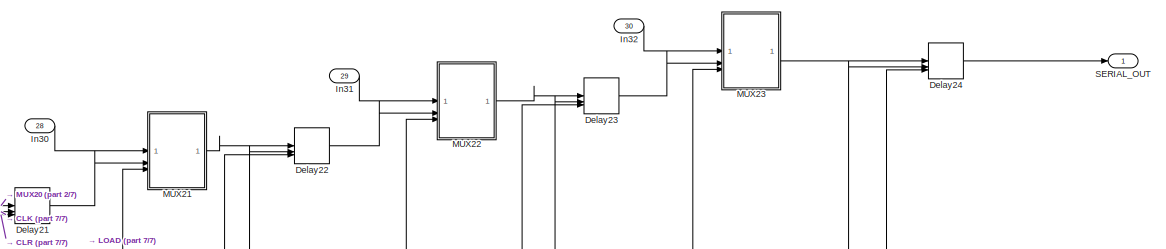
[diagram: I2S/PISO_SHIFT_REG_LEFT1/Subsystem - part 1/7, top right region]
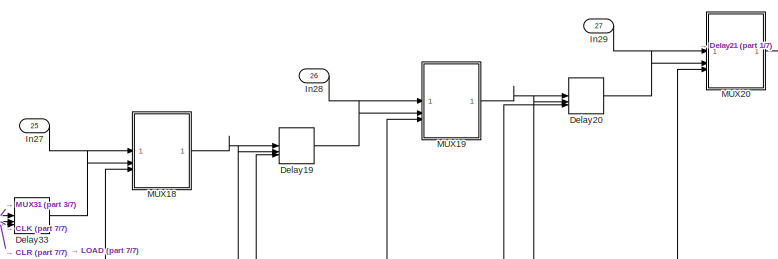
[diagram: I2S/PISO_SHIFT_REG_LEFT1/Subsystem - part 2/7, top right region]
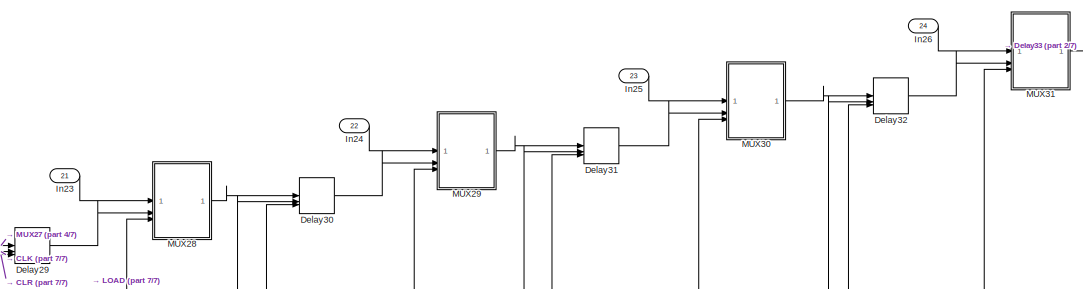
[diagram: I2S/PISO_SHIFT_REG_LEFT1/Subsystem - part 3/7, top right region]
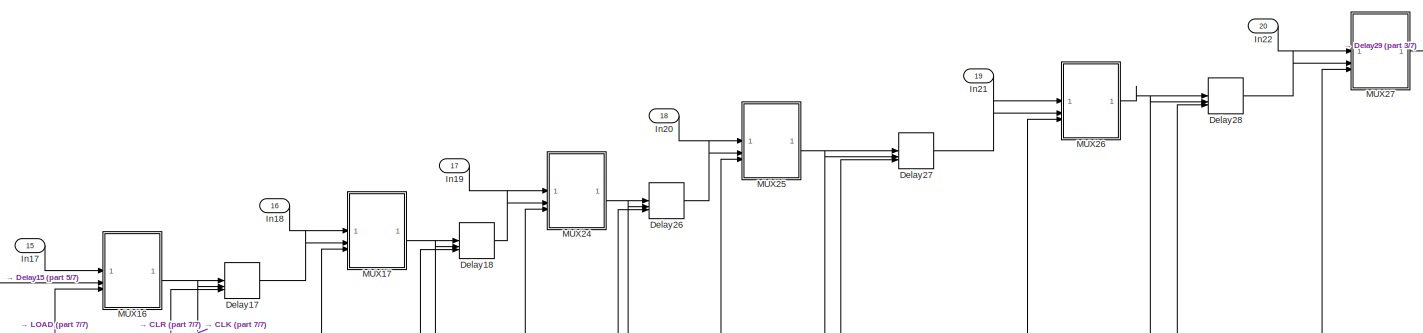
[diagram: I2S/PISO_SHIFT_REG_LEFT1/Subsystem - part 4/7, central region]
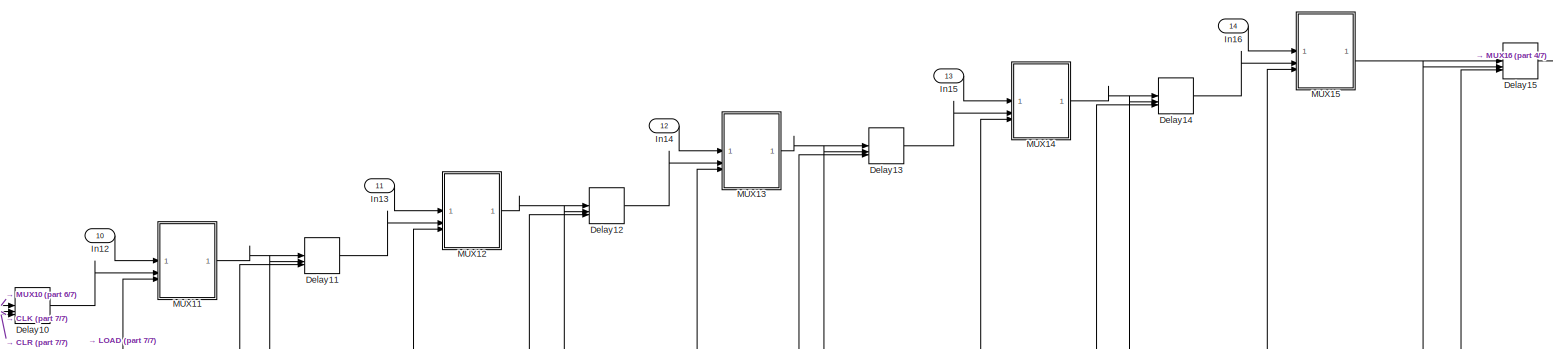
[diagram: I2S/PISO_SHIFT_REG_LEFT1/Subsystem - part 5/7, central region]
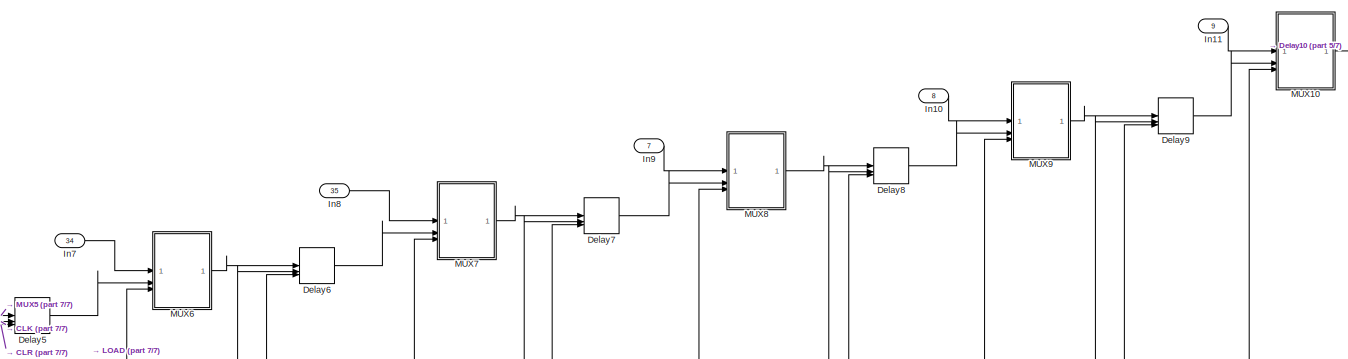
[diagram: I2S/PISO_SHIFT_REG_LEFT1/Subsystem - part 6/7, bottom left region]
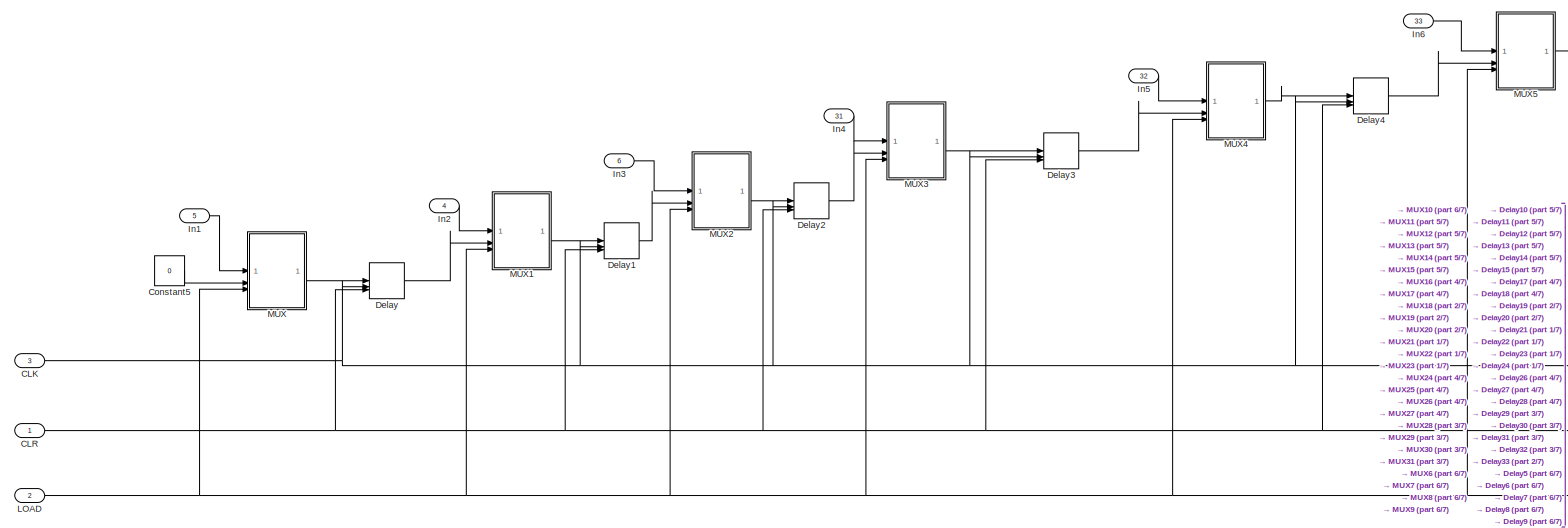
[diagram: I2S/PISO_SHIFT_REG_LEFT1/Subsystem - part 7/7, bottom left region]
BLOCK [SubSystem] I2S/PISO_SHIFT_REG_LEFT1/Subsystem
BLOCK [Inport] I2S/PISO_SHIFT_REG_LEFT1/Subsystem/CLK
  Port = 3
BLOCK [Inport] I2S/PISO_SHIFT_REG_LEFT1/Subsystem/CLR
  OutDataTypeStr = boolean
BLOCK [Constant] I2S/PISO_SHIFT_REG_LEFT1/Subsystem/Constant5
  OutDataTypeStr = boolean
  SampleTime = 1
  Value = 0
BLOCK [Delay] I2S/PISO_SHIFT_REG_LEFT1/Subsystem/Delay
  DelayLength = 1
  ExternalReset = Level
  InputPortMap = u0,e6,r5
  ShowEnablePort = on
BLOCK [Delay] I2S/PISO_SHIFT_REG_LEFT1/Subsystem/Delay1
  DelayLength = 1
  ExternalReset = Level
  InputPortMap = u0,e6,r5
  ShowEnablePort = on
BLOCK [Delay] I2S/PISO_SHIFT_REG_LEFT1/Subsystem/Delay10
  DelayLength = 1
  ExternalReset = Level
  InputPortMap = u0,e6,r5
  ShowEnablePort = on
BLOCK [Delay] I2S/PISO_SHIFT_REG_LEFT1/Subsystem/Delay11
  DelayLength = 1
  ExternalReset = Level
  InputPortMap = u0,e6,r5
  ShowEnablePort = on
BLOCK [Delay] I2S/PISO_SHIFT_REG_LEFT1/Subsystem/Delay12
  DelayLength = 1
  ExternalReset = Level
  InputPortMap = u0,e6,r5
  ShowEnablePort = on
BLOCK [Delay] I2S/PISO_SHIFT_REG_LEFT1/Subsystem/Delay13
  DelayLength = 1
  ExternalReset = Level
  InputPortMap = u0,e6,r5
  ShowEnablePort = on
BLOCK [Delay] I2S/PISO_SHIFT_REG_LEFT1/Subsystem/Delay14
  DelayLength = 1
  ExternalReset = Level
  InputPortMap = u0,e6,r5
  ShowEnablePort = on
BLOCK [Delay] I2S/PISO_SHIFT_REG_LEFT1/Subsystem/Delay15
  DelayLength = 1
  ExternalReset = Level
  InputPortMap = u0,e6,r5
  ShowEnablePort = on
BLOCK [Delay] I2S/PISO_SHIFT_REG_LEFT1/Subsystem/Delay17
  DelayLength = 1
  ExternalReset = Level
  InputPortMap = u0,e6,r5
  ShowEnablePort = on
BLOCK [Delay] I2S/PISO_SHIFT_REG_LEFT1/Subsystem/Delay18
  DelayLength = 1
  ExternalReset = Level
  InputPortMap = u0,e6,r5
  ShowEnablePort = on
BLOCK [Delay] I2S/PISO_SHIFT_REG_LEFT1/Subsystem/Delay19
  DelayLength = 1
  ExternalReset = Level
  InputPortMap = u0,e6,r5
  ShowEnablePort = on
BLOCK [Delay] I2S/PISO_SHIFT_REG_LEFT1/Subsystem/Delay2
  DelayLength = 1
  ExternalReset = Level
  InputPortMap = u0,e6,r5
  ShowEnablePort = on
BLOCK [Delay] I2S/PISO_SHIFT_REG_LEFT1/Subsystem/Delay20
  DelayLength = 1
  ExternalReset = Level
  InputPortMap = u0,e6,r5
  ShowEnablePort = on
BLOCK [Delay] I2S/PISO_SHIFT_REG_LEFT1/Subsystem/Delay21
  DelayLength = 1
  ExternalReset = Level
  InputPortMap = u0,e6,r5
  ShowEnablePort = on
BLOCK [Delay] I2S/PISO_SHIFT_REG_LEFT1/Subsystem/Delay22
  DelayLength = 1
  ExternalReset = Level
  InputPortMap = u0,e6,r5
  ShowEnablePort = on
BLOCK [Delay] I2S/PISO_SHIFT_REG_LEFT1/Subsystem/Delay23
  DelayLength = 1
  ExternalReset = Level
  InputPortMap = u0,e6,r5
  ShowEnablePort = on
BLOCK [Delay] I2S/PISO_SHIFT_REG_LEFT1/Subsystem/Delay24
  DelayLength = 1
  ExternalReset = Level
  InputPortMap = u0,e6,r5
  ShowEnablePort = on
BLOCK [Delay] I2S/PISO_SHIFT_REG_LEFT1/Subsystem/Delay26
  DelayLength = 1
  ExternalReset = Level
  InputPortMap = u0,e6,r5
  ShowEnablePort = on
BLOCK [Delay] I2S/PISO_SHIFT_REG_LEFT1/Subsystem/Delay27
  DelayLength = 1
  ExternalReset = Level
  InputPortMap = u0,e6,r5
  ShowEnablePort = on
BLOCK [Delay] I2S/PISO_SHIFT_REG_LEFT1/Subsystem/Delay28
  DelayLength = 1
  ExternalReset = Level
  InputPortMap = u0,e6,r5
  ShowEnablePort = on
BLOCK [Delay] I2S/PISO_SHIFT_REG_LEFT1/Subsystem/Delay29
  DelayLength = 1
  ExternalReset = Level
  InputPortMap = u0,e6,r5
  ShowEnablePort = on
BLOCK [Delay] I2S/PISO_SHIFT_REG_LEFT1/Subsystem/Delay3
  DelayLength = 1
  ExternalReset = Level
  InputPortMap = u0,e6,r5
  ShowEnablePort = on
BLOCK [Delay] I2S/PISO_SHIFT_REG_LEFT1/Subsystem/Delay30
  DelayLength = 1
  ExternalReset = Level
  InputPortMap = u0,e6,r5
  ShowEnablePort = on
BLOCK [Delay] I2S/PISO_SHIFT_REG_LEFT1/Subsystem/Delay31
  DelayLength = 1
  ExternalReset = Level
  InputPortMap = u0,e6,r5
  ShowEnablePort = on
BLOCK [Delay] I2S/PISO_SHIFT_REG_LEFT1/Subsystem/Delay32
  DelayLength = 1
  ExternalReset = Level
  InputPortMap = u0,e6,r5
  ShowEnablePort = on
BLOCK [Delay] I2S/PISO_SHIFT_REG_LEFT1/Subsystem/Delay33
  DelayLength = 1
  ExternalReset = Level
  InputPortMap = u0,e6,r5
  ShowEnablePort = on
BLOCK [Delay] I2S/PISO_SHIFT_REG_LEFT1/Subsystem/Delay4
  DelayLength = 1
  ExternalReset = Level
  InputPortMap = u0,e6,r5
  ShowEnablePort = on
BLOCK [Delay] I2S/PISO_SHIFT_REG_LEFT1/Subsystem/Delay5
  DelayLength = 1
  ExternalReset = Level
  InputPortMap = u0,e6,r5
  ShowEnablePort = on
BLOCK [Delay] I2S/PISO_SHIFT_REG_LEFT1/Subsystem/Delay6
  DelayLength = 1
  ExternalReset = Level
  InputPortMap = u0,e6,r5
  ShowEnablePort = on
BLOCK [Delay] I2S/PISO_SHIFT_REG_LEFT1/Subsystem/Delay7
  DelayLength = 1
  ExternalReset = Level
  InputPortMap = u0,e6,r5
  ShowEnablePort = on
BLOCK [Delay] I2S/PISO_SHIFT_REG_LEFT1/Subsystem/Delay8
  DelayLength = 1
  ExternalReset = Level
  InputPortMap = u0,e6,r5
  ShowEnablePort = on
BLOCK [Delay] I2S/PISO_SHIFT_REG_LEFT1/Subsystem/Delay9
  DelayLength = 1
  ExternalReset = Level
  InputPortMap = u0,e6,r5
  ShowEnablePort = on
BLOCK [Inport] I2S/PISO_SHIFT_REG_LEFT1/Subsystem/In1
  OutDataTypeStr = boolean
  Port = 5
BLOCK [Inport] I2S/PISO_SHIFT_REG_LEFT1/Subsystem/In10
  OutDataTypeStr = boolean
  Port = 8
BLOCK [Inport] I2S/PISO_SHIFT_REG_LEFT1/Subsystem/In11
  OutDataTypeStr = boolean
  Port = 9
BLOCK [Inport] I2S/PISO_SHIFT_REG_LEFT1/Subsystem/In12
  OutDataTypeStr = boolean
  Port = 10
BLOCK [Inport] I2S/PISO_SHIFT_REG_LEFT1/Subsystem/In13
  OutDataTypeStr = boolean
  Port = 11
BLOCK [Inport] I2S/PISO_SHIFT_REG_LEFT1/Subsystem/In14
  OutDataTypeStr = boolean
  Port = 12
BLOCK [Inport] I2S/PISO_SHIFT_REG_LEFT1/Subsystem/In15
  OutDataTypeStr = boolean
  Port = 13
BLOCK [Inport] I2S/PISO_SHIFT_REG_LEFT1/Subsystem/In16
  OutDataTypeStr = boolean
  Port = 14
BLOCK [Inport] I2S/PISO_SHIFT_REG_LEFT1/Subsystem/In17
  OutDataTypeStr = boolean
  Port = 15
BLOCK [Inport] I2S/PISO_SHIFT_REG_LEFT1/Subsystem/In18
  OutDataTypeStr = boolean
  Port = 16
BLOCK [Inport] I2S/PISO_SHIFT_REG_LEFT1/Subsystem/In19
  OutDataTypeStr = boolean
  Port = 17
BLOCK [Inport] I2S/PISO_SHIFT_REG_LEFT1/Subsystem/In2
  OutDataTypeStr = boolean
  Port = 4
BLOCK [Inport] I2S/PISO_SHIFT_REG_LEFT1/Subsystem/In20
  OutDataTypeStr = boolean
  Port = 18
BLOCK [Inport] I2S/PISO_SHIFT_REG_LEFT1/Subsystem/In21
  OutDataTypeStr = boolean
  Port = 19
BLOCK [Inport] I2S/PISO_SHIFT_REG_LEFT1/Subsystem/In22
  OutDataTypeStr = boolean
  Port = 20
BLOCK [Inport] I2S/PISO_SHIFT_REG_LEFT1/Subsystem/In23
  OutDataTypeStr = boolean
  Port = 21
BLOCK [Inport] I2S/PISO_SHIFT_REG_LEFT1/Subsystem/In24
  OutDataTypeStr = boolean
  Port = 22
BLOCK [Inport] I2S/PISO_SHIFT_REG_LEFT1/Subsystem/In25
  OutDataTypeStr = boolean
  Port = 23
BLOCK [Inport] I2S/PISO_SHIFT_REG_LEFT1/Subsystem/In26
  OutDataTypeStr = boolean
  Port = 24
BLOCK [Inport] I2S/PISO_SHIFT_REG_LEFT1/Subsystem/In27
  OutDataTypeStr = boolean
  Port = 25
BLOCK [Inport] I2S/PISO_SHIFT_REG_LEFT1/Subsystem/In28
  OutDataTypeStr = boolean
  Port = 26
BLOCK [Inport] I2S/PISO_SHIFT_REG_LEFT1/Subsystem/In29
  OutDataTypeStr = boolean
  Port = 27
BLOCK [Inport] I2S/PISO_SHIFT_REG_LEFT1/Subsystem/In3
  OutDataTypeStr = boolean
  Port = 6
BLOCK [Inport] I2S/PISO_SHIFT_REG_LEFT1/Subsystem/In30
  OutDataTypeStr = boolean
  Port = 28
BLOCK [Inport] I2S/PISO_SHIFT_REG_LEFT1/Subsystem/In31
  OutDataTypeStr = boolean
  Port = 29
BLOCK [Inport] I2S/PISO_SHIFT_REG_LEFT1/Subsystem/In32
  OutDataTypeStr = boolean
  Port = 30
BLOCK [Inport] I2S/PISO_SHIFT_REG_LEFT1/Subsystem/In4
  OutDataTypeStr = boolean
  Port = 31
BLOCK [Inport] I2S/PISO_SHIFT_REG_LEFT1/Subsystem/In5
  OutDataTypeStr = boolean
  Port = 32
BLOCK [Inport] I2S/PISO_SHIFT_REG_LEFT1/Subsystem/In6
  OutDataTypeStr = boolean
  Port = 33
BLOCK [Inport] I2S/PISO_SHIFT_REG_LEFT1/Subsystem/In7
  OutDataTypeStr = boolean
  Port = 34
BLOCK [Inport] I2S/PISO_SHIFT_REG_LEFT1/Subsystem/In8
  OutDataTypeStr = boolean
  Port = 35
BLOCK [Inport] I2S/PISO_SHIFT_REG_LEFT1/Subsystem/In9
  OutDataTypeStr = boolean
  Port = 7
BLOCK [Inport] I2S/PISO_SHIFT_REG_LEFT1/Subsystem/LOAD
  Port = 2
BLOCK [SubSystem] I2S/PISO_SHIFT_REG_LEFT1/Subsystem/MUX
BLOCK [Inport] I2S/PISO_SHIFT_REG_LEFT1/Subsystem/MUX/In1
BLOCK [Inport] I2S/PISO_SHIFT_REG_LEFT1/Subsystem/MUX/In2
  Port = 2
BLOCK [Logic] I2S/PISO_SHIFT_REG_LEFT1/Subsystem/MUX/Logical Operator
  AllPortsSameDT = off
  OutDataTypeStr = boolean
BLOCK [Logic] I2S/PISO_SHIFT_REG_LEFT1/Subsystem/MUX/Logical Operator1
  AllPortsSameDT = off
  OutDataTypeStr = boolean
BLOCK [Logic] I2S/PISO_SHIFT_REG_LEFT1/Subsystem/MUX/Logical Operator2
  AllPortsSameDT = off
  Operator = OR
  OutDataTypeStr = boolean
BLOCK [Logic] I2S/PISO_SHIFT_REG_LEFT1/Subsystem/MUX/Logical Operator3
  AllPortsSameDT = off
  NameLocation = right
  Operator = NOT
  OutDataTypeStr = boolean
BLOCK [Outport] I2S/PISO_SHIFT_REG_LEFT1/Subsystem/MUX/Out1
  VectorParamsAs1DForOutWhenUnconnected = off
BLOCK [Inport] I2S/PISO_SHIFT_REG_LEFT1/Subsystem/MUX/SEL
  OutDataTypeStr = boolean
  Port = 3
BLOCK [SubSystem] I2S/PISO_SHIFT_REG_LEFT1/Subsystem/MUX1
BLOCK [Inport] I2S/PISO_SHIFT_REG_LEFT1/Subsystem/MUX1/In1
BLOCK [Inport] I2S/PISO_SHIFT_REG_LEFT1/Subsystem/MUX1/In2
  Port = 2
BLOCK [Logic] I2S/PISO_SHIFT_REG_LEFT1/Subsystem/MUX1/Logical Operator
  AllPortsSameDT = off
  OutDataTypeStr = boolean
BLOCK [Logic] I2S/PISO_SHIFT_REG_LEFT1/Subsystem/MUX1/Logical Operator1
  AllPortsSameDT = off
  OutDataTypeStr = boolean
BLOCK [Logic] I2S/PISO_SHIFT_REG_LEFT1/Subsystem/MUX1/Logical Operator2
  AllPortsSameDT = off
  Operator = OR
  OutDataTypeStr = boolean
BLOCK [Logic] I2S/PISO_SHIFT_REG_LEFT1/Subsystem/MUX1/Logical Operator3
  AllPortsSameDT = off
  NameLocation = right
  Operator = NOT
  OutDataTypeStr = boolean
BLOCK [Outport] I2S/PISO_SHIFT_REG_LEFT1/Subsystem/MUX1/Out1
  VectorParamsAs1DForOutWhenUnconnected = off
BLOCK [Inport] I2S/PISO_SHIFT_REG_LEFT1/Subsystem/MUX1/SEL
  OutDataTypeStr = boolean
  Port = 3
BLOCK [SubSystem] I2S/PISO_SHIFT_REG_LEFT1/Subsystem/MUX10
BLOCK [Inport] I2S/PISO_SHIFT_REG_LEFT1/Subsystem/MUX10/In1
BLOCK [Inport] I2S/PISO_SHIFT_REG_LEFT1/Subsystem/MUX10/In2
  Port = 2
BLOCK [Logic] I2S/PISO_SHIFT_REG_LEFT1/Subsystem/MUX10/Logical Operator
  AllPortsSameDT = off
  OutDataTypeStr = boolean
BLOCK [Logic] I2S/PISO_SHIFT_REG_LEFT1/Subsystem/MUX10/Logical Operator1
  AllPortsSameDT = off
  OutDataTypeStr = boolean
BLOCK [Logic] I2S/PISO_SHIFT_REG_LEFT1/Subsystem/MUX10/Logical Operator2
  AllPortsSameDT = off
  Operator = OR
  OutDataTypeStr = boolean
BLOCK [Logic] I2S/PISO_SHIFT_REG_LEFT1/Subsystem/MUX10/Logical Operator3
  AllPortsSameDT = off
  NameLocation = right
  Operator = NOT
  OutDataTypeStr = boolean
BLOCK [Outport] I2S/PISO_SHIFT_REG_LEFT1/Subsystem/MUX10/Out1
  VectorParamsAs1DForOutWhenUnconnected = off
BLOCK [Inport] I2S/PISO_SHIFT_REG_LEFT1/Subsystem/MUX10/SEL
  OutDataTypeStr = boolean
  Port = 3
BLOCK [SubSystem] I2S/PISO_SHIFT_REG_LEFT1/Subsystem/MUX11
BLOCK [Inport] I2S/PISO_SHIFT_REG_LEFT1/Subsystem/MUX11/In1
BLOCK [Inport] I2S/PISO_SHIFT_REG_LEFT1/Subsystem/MUX11/In2
  Port = 2
BLOCK [Logic] I2S/PISO_SHIFT_REG_LEFT1/Subsystem/MUX11/Logical Operator
  AllPortsSameDT = off
  OutDataTypeStr = boolean
BLOCK [Logic] I2S/PISO_SHIFT_REG_LEFT1/Subsystem/MUX11/Logical Operator1
  AllPortsSameDT = off
  OutDataTypeStr = boolean
BLOCK [Logic] I2S/PISO_SHIFT_REG_LEFT1/Subsystem/MUX11/Logical Operator2
  AllPortsSameDT = off
  Operator = OR
  OutDataTypeStr = boolean
BLOCK [Logic] I2S/PISO_SHIFT_REG_LEFT1/Subsystem/MUX11/Logical Operator3
  AllPortsSameDT = off
  NameLocation = right
  Operator = NOT
  OutDataTypeStr = boolean
BLOCK [Outport] I2S/PISO_SHIFT_REG_LEFT1/Subsystem/MUX11/Out1
  VectorParamsAs1DForOutWhenUnconnected = off
BLOCK [Inport] I2S/PISO_SHIFT_REG_LEFT1/Subsystem/MUX11/SEL
  OutDataTypeStr = boolean
  Port = 3
BLOCK [SubSystem] I2S/PISO_SHIFT_REG_LEFT1/Subsystem/MUX12
BLOCK [Inport] I2S/PISO_SHIFT_REG_LEFT1/Subsystem/MUX12/In1
BLOCK [Inport] I2S/PISO_SHIFT_REG_LEFT1/Subsystem/MUX12/In2
  Port = 2
BLOCK [Logic] I2S/PISO_SHIFT_REG_LEFT1/Subsystem/MUX12/Logical Operator
  AllPortsSameDT = off
  OutDataTypeStr = boolean
BLOCK [Logic] I2S/PISO_SHIFT_REG_LEFT1/Subsystem/MUX12/Logical Operator1
  AllPortsSameDT = off
  OutDataTypeStr = boolean
BLOCK [Logic] I2S/PISO_SHIFT_REG_LEFT1/Subsystem/MUX12/Logical Operator2
  AllPortsSameDT = off
  Operator = OR
  OutDataTypeStr = boolean
BLOCK [Logic] I2S/PISO_SHIFT_REG_LEFT1/Subsystem/MUX12/Logical Operator3
  AllPortsSameDT = off
  NameLocation = right
  Operator = NOT
  OutDataTypeStr = boolean
BLOCK [Outport] I2S/PISO_SHIFT_REG_LEFT1/Subsystem/MUX12/Out1
  VectorParamsAs1DForOutWhenUnconnected = off
BLOCK [Inport] I2S/PISO_SHIFT_REG_LEFT1/Subsystem/MUX12/SEL
  OutDataTypeStr = boolean
  Port = 3
BLOCK [SubSystem] I2S/PISO_SHIFT_REG_LEFT1/Subsystem/MUX13
BLOCK [Inport] I2S/PISO_SHIFT_REG_LEFT1/Subsystem/MUX13/In1
BLOCK [Inport] I2S/PISO_SHIFT_REG_LEFT1/Subsystem/MUX13/In2
  Port = 2
BLOCK [Logic] I2S/PISO_SHIFT_REG_LEFT1/Subsystem/MUX13/Logical Operator
  AllPortsSameDT = off
  OutDataTypeStr = boolean
BLOCK [Logic] I2S/PISO_SHIFT_REG_LEFT1/Subsystem/MUX13/Logical Operator1
  AllPortsSameDT = off
  OutDataTypeStr = boolean
BLOCK [Logic] I2S/PISO_SHIFT_REG_LEFT1/Subsystem/MUX13/Logical Operator2
  AllPortsSameDT = off
  Operator = OR
  OutDataTypeStr = boolean
BLOCK [Logic] I2S/PISO_SHIFT_REG_LEFT1/Subsystem/MUX13/Logical Operator3
  AllPortsSameDT = off
  NameLocation = right
  Operator = NOT
  OutDataTypeStr = boolean
BLOCK [Outport] I2S/PISO_SHIFT_REG_LEFT1/Subsystem/MUX13/Out1
  VectorParamsAs1DForOutWhenUnconnected = off
BLOCK [Inport] I2S/PISO_SHIFT_REG_LEFT1/Subsystem/MUX13/SEL
  OutDataTypeStr = boolean
  Port = 3
BLOCK [SubSystem] I2S/PISO_SHIFT_REG_LEFT1/Subsystem/MUX14
BLOCK [Inport] I2S/PISO_SHIFT_REG_LEFT1/Subsystem/MUX14/In1
BLOCK [Inport] I2S/PISO_SHIFT_REG_LEFT1/Subsystem/MUX14/In2
  Port = 2
BLOCK [Logic] I2S/PISO_SHIFT_REG_LEFT1/Subsystem/MUX14/Logical Operator
  AllPortsSameDT = off
  OutDataTypeStr = boolean
BLOCK [Logic] I2S/PISO_SHIFT_REG_LEFT1/Subsystem/MUX14/Logical Operator1
  AllPortsSameDT = off
  OutDataTypeStr = boolean
BLOCK [Logic] I2S/PISO_SHIFT_REG_LEFT1/Subsystem/MUX14/Logical Operator2
  AllPortsSameDT = off
  Operator = OR
  OutDataTypeStr = boolean
BLOCK [Logic] I2S/PISO_SHIFT_REG_LEFT1/Subsystem/MUX14/Logical Operator3
  AllPortsSameDT = off
  NameLocation = right
  Operator = NOT
  OutDataTypeStr = boolean
BLOCK [Outport] I2S/PISO_SHIFT_REG_LEFT1/Subsystem/MUX14/Out1
  VectorParamsAs1DForOutWhenUnconnected = off
BLOCK [Inport] I2S/PISO_SHIFT_REG_LEFT1/Subsystem/MUX14/SEL
  OutDataTypeStr = boolean
  Port = 3
BLOCK [SubSystem] I2S/PISO_SHIFT_REG_LEFT1/Subsystem/MUX15
BLOCK [Inport] I2S/PISO_SHIFT_REG_LEFT1/Subsystem/MUX15/In1
BLOCK [Inport] I2S/PISO_SHIFT_REG_LEFT1/Subsystem/MUX15/In2
  Port = 2
BLOCK [Logic] I2S/PISO_SHIFT_REG_LEFT1/Subsystem/MUX15/Logical Operator
  AllPortsSameDT = off
  OutDataTypeStr = boolean
BLOCK [Logic] I2S/PISO_SHIFT_REG_LEFT1/Subsystem/MUX15/Logical Operator1
  AllPortsSameDT = off
  OutDataTypeStr = boolean
BLOCK [Logic] I2S/PISO_SHIFT_REG_LEFT1/Subsystem/MUX15/Logical Operator2
  AllPortsSameDT = off
  Operator = OR
  OutDataTypeStr = boolean
BLOCK [Logic] I2S/PISO_SHIFT_REG_LEFT1/Subsystem/MUX15/Logical Operator3
  AllPortsSameDT = off
  NameLocation = right
  Operator = NOT
  OutDataTypeStr = boolean
BLOCK [Outport] I2S/PISO_SHIFT_REG_LEFT1/Subsystem/MUX15/Out1
  VectorParamsAs1DForOutWhenUnconnected = off
BLOCK [Inport] I2S/PISO_SHIFT_REG_LEFT1/Subsystem/MUX15/SEL
  OutDataTypeStr = boolean
  Port = 3
BLOCK [SubSystem] I2S/PISO_SHIFT_REG_LEFT1/Subsystem/MUX16
BLOCK [Inport] I2S/PISO_SHIFT_REG_LEFT1/Subsystem/MUX16/In1
BLOCK [Inport] I2S/PISO_SHIFT_REG_LEFT1/Subsystem/MUX16/In2
  Port = 2
BLOCK [Logic] I2S/PISO_SHIFT_REG_LEFT1/Subsystem/MUX16/Logical Operator
  AllPortsSameDT = off
  OutDataTypeStr = boolean
BLOCK [Logic] I2S/PISO_SHIFT_REG_LEFT1/Subsystem/MUX16/Logical Operator1
  AllPortsSameDT = off
  OutDataTypeStr = boolean
BLOCK [Logic] I2S/PISO_SHIFT_REG_LEFT1/Subsystem/MUX16/Logical Operator2
  AllPortsSameDT = off
  Operator = OR
  OutDataTypeStr = boolean
BLOCK [Logic] I2S/PISO_SHIFT_REG_LEFT1/Subsystem/MUX16/Logical Operator3
  AllPortsSameDT = off
  NameLocation = right
  Operator = NOT
  OutDataTypeStr = boolean
BLOCK [Outport] I2S/PISO_SHIFT_REG_LEFT1/Subsystem/MUX16/Out1
  VectorParamsAs1DForOutWhenUnconnected = off
BLOCK [Inport] I2S/PISO_SHIFT_REG_LEFT1/Subsystem/MUX16/SEL
  OutDataTypeStr = boolean
  Port = 3
BLOCK [SubSystem] I2S/PISO_SHIFT_REG_LEFT1/Subsystem/MUX17
BLOCK [Inport] I2S/PISO_SHIFT_REG_LEFT1/Subsystem/MUX17/In1
BLOCK [Inport] I2S/PISO_SHIFT_REG_LEFT1/Subsystem/MUX17/In2
  Port = 2
BLOCK [Logic] I2S/PISO_SHIFT_REG_LEFT1/Subsystem/MUX17/Logical Operator
  AllPortsSameDT = off
  OutDataTypeStr = boolean
BLOCK [Logic] I2S/PISO_SHIFT_REG_LEFT1/Subsystem/MUX17/Logical Operator1
  AllPortsSameDT = off
  OutDataTypeStr = boolean
BLOCK [Logic] I2S/PISO_SHIFT_REG_LEFT1/Subsystem/MUX17/Logical Operator2
  AllPortsSameDT = off
  Operator = OR
  OutDataTypeStr = boolean
BLOCK [Logic] I2S/PISO_SHIFT_REG_LEFT1/Subsystem/MUX17/Logical Operator3
  AllPortsSameDT = off
  NameLocation = right
  Operator = NOT
  OutDataTypeStr = boolean
BLOCK [Outport] I2S/PISO_SHIFT_REG_LEFT1/Subsystem/MUX17/Out1
  VectorParamsAs1DForOutWhenUnconnected = off
BLOCK [Inport] I2S/PISO_SHIFT_REG_LEFT1/Subsystem/MUX17/SEL
  OutDataTypeStr = boolean
  Port = 3
BLOCK [SubSystem] I2S/PISO_SHIFT_REG_LEFT1/Subsystem/MUX18
BLOCK [Inport] I2S/PISO_SHIFT_REG_LEFT1/Subsystem/MUX18/In1
BLOCK [Inport] I2S/PISO_SHIFT_REG_LEFT1/Subsystem/MUX18/In2
  Port = 2
BLOCK [Logic] I2S/PISO_SHIFT_REG_LEFT1/Subsystem/MUX18/Logical Operator
  AllPortsSameDT = off
  OutDataTypeStr = boolean
BLOCK [Logic] I2S/PISO_SHIFT_REG_LEFT1/Subsystem/MUX18/Logical Operator1
  AllPortsSameDT = off
  OutDataTypeStr = boolean
BLOCK [Logic] I2S/PISO_SHIFT_REG_LEFT1/Subsystem/MUX18/Logical Operator2
  AllPortsSameDT = off
  Operator = OR
  OutDataTypeStr = boolean
BLOCK [Logic] I2S/PISO_SHIFT_REG_LEFT1/Subsystem/MUX18/Logical Operator3
  AllPortsSameDT = off
  NameLocation = right
  Operator = NOT
  OutDataTypeStr = boolean
BLOCK [Outport] I2S/PISO_SHIFT_REG_LEFT1/Subsystem/MUX18/Out1
  VectorParamsAs1DForOutWhenUnconnected = off
BLOCK [Inport] I2S/PISO_SHIFT_REG_LEFT1/Subsystem/MUX18/SEL
  OutDataTypeStr = boolean
  Port = 3
BLOCK [SubSystem] I2S/PISO_SHIFT_REG_LEFT1/Subsystem/MUX19
BLOCK [Inport] I2S/PISO_SHIFT_REG_LEFT1/Subsystem/MUX19/In1
BLOCK [Inport] I2S/PISO_SHIFT_REG_LEFT1/Subsystem/MUX19/In2
  Port = 2
BLOCK [Logic] I2S/PISO_SHIFT_REG_LEFT1/Subsystem/MUX19/Logical Operator
  AllPortsSameDT = off
  OutDataTypeStr = boolean
BLOCK [Logic] I2S/PISO_SHIFT_REG_LEFT1/Subsystem/MUX19/Logical Operator1
  AllPortsSameDT = off
  OutDataTypeStr = boolean
BLOCK [Logic] I2S/PISO_SHIFT_REG_LEFT1/Subsystem/MUX19/Logical Operator2
  AllPortsSameDT = off
  Operator = OR
  OutDataTypeStr = boolean
BLOCK [Logic] I2S/PISO_SHIFT_REG_LEFT1/Subsystem/MUX19/Logical Operator3
  AllPortsSameDT = off
  NameLocation = right
  Operator = NOT
  OutDataTypeStr = boolean
BLOCK [Outport] I2S/PISO_SHIFT_REG_LEFT1/Subsystem/MUX19/Out1
  VectorParamsAs1DForOutWhenUnconnected = off
BLOCK [Inport] I2S/PISO_SHIFT_REG_LEFT1/Subsystem/MUX19/SEL
  OutDataTypeStr = boolean
  Port = 3
BLOCK [SubSystem] I2S/PISO_SHIFT_REG_LEFT1/Subsystem/MUX2
BLOCK [Inport] I2S/PISO_SHIFT_REG_LEFT1/Subsystem/MUX2/In1
BLOCK [Inport] I2S/PISO_SHIFT_REG_LEFT1/Subsystem/MUX2/In2
  Port = 2
BLOCK [Logic] I2S/PISO_SHIFT_REG_LEFT1/Subsystem/MUX2/Logical Operator
  AllPortsSameDT = off
  OutDataTypeStr = boolean
BLOCK [Logic] I2S/PISO_SHIFT_REG_LEFT1/Subsystem/MUX2/Logical Operator1
  AllPortsSameDT = off
  OutDataTypeStr = boolean
BLOCK [Logic] I2S/PISO_SHIFT_REG_LEFT1/Subsystem/MUX2/Logical Operator2
  AllPortsSameDT = off
  Operator = OR
  OutDataTypeStr = boolean
BLOCK [Logic] I2S/PISO_SHIFT_REG_LEFT1/Subsystem/MUX2/Logical Operator3
  AllPortsSameDT = off
  NameLocation = right
  Operator = NOT
  OutDataTypeStr = boolean
BLOCK [Outport] I2S/PISO_SHIFT_REG_LEFT1/Subsystem/MUX2/Out1
  VectorParamsAs1DForOutWhenUnconnected = off
BLOCK [Inport] I2S/PISO_SHIFT_REG_LEFT1/Subsystem/MUX2/SEL
  OutDataTypeStr = boolean
  Port = 3
BLOCK [SubSystem] I2S/PISO_SHIFT_REG_LEFT1/Subsystem/MUX20
BLOCK [Inport] I2S/PISO_SHIFT_REG_LEFT1/Subsystem/MUX20/In1
BLOCK [Inport] I2S/PISO_SHIFT_REG_LEFT1/Subsystem/MUX20/In2
  Port = 2
BLOCK [Logic] I2S/PISO_SHIFT_REG_LEFT1/Subsystem/MUX20/Logical Operator
  AllPortsSameDT = off
  OutDataTypeStr = boolean
BLOCK [Logic] I2S/PISO_SHIFT_REG_LEFT1/Subsystem/MUX20/Logical Operator1
  AllPortsSameDT = off
  OutDataTypeStr = boolean
BLOCK [Logic] I2S/PISO_SHIFT_REG_LEFT1/Subsystem/MUX20/Logical Operator2
  AllPortsSameDT = off
  Operator = OR
  OutDataTypeStr = boolean
BLOCK [Logic] I2S/PISO_SHIFT_REG_LEFT1/Subsystem/MUX20/Logical Operator3
  AllPortsSameDT = off
  NameLocation = right
  Operator = NOT
  OutDataTypeStr = boolean
BLOCK [Outport] I2S/PISO_SHIFT_REG_LEFT1/Subsystem/MUX20/Out1
  VectorParamsAs1DForOutWhenUnconnected = off
BLOCK [Inport] I2S/PISO_SHIFT_REG_LEFT1/Subsystem/MUX20/SEL
  OutDataTypeStr = boolean
  Port = 3
BLOCK [SubSystem] I2S/PISO_SHIFT_REG_LEFT1/Subsystem/MUX21
BLOCK [Inport] I2S/PISO_SHIFT_REG_LEFT1/Subsystem/MUX21/In1
BLOCK [Inport] I2S/PISO_SHIFT_REG_LEFT1/Subsystem/MUX21/In2
  Port = 2
BLOCK [Logic] I2S/PISO_SHIFT_REG_LEFT1/Subsystem/MUX21/Logical Operator
  AllPortsSameDT = off
  OutDataTypeStr = boolean
BLOCK [Logic] I2S/PISO_SHIFT_REG_LEFT1/Subsystem/MUX21/Logical Operator1
  AllPortsSameDT = off
  OutDataTypeStr = boolean
BLOCK [Logic] I2S/PISO_SHIFT_REG_LEFT1/Subsystem/MUX21/Logical Operator2
  AllPortsSameDT = off
  Operator = OR
  OutDataTypeStr = boolean
BLOCK [Logic] I2S/PISO_SHIFT_REG_LEFT1/Subsystem/MUX21/Logical Operator3
  AllPortsSameDT = off
  NameLocation = right
  Operator = NOT
  OutDataTypeStr = boolean
BLOCK [Outport] I2S/PISO_SHIFT_REG_LEFT1/Subsystem/MUX21/Out1
  VectorParamsAs1DForOutWhenUnconnected = off
BLOCK [Inport] I2S/PISO_SHIFT_REG_LEFT1/Subsystem/MUX21/SEL
  OutDataTypeStr = boolean
  Port = 3
BLOCK [SubSystem] I2S/PISO_SHIFT_REG_LEFT1/Subsystem/MUX22
BLOCK [Inport] I2S/PISO_SHIFT_REG_LEFT1/Subsystem/MUX22/In1
BLOCK [Inport] I2S/PISO_SHIFT_REG_LEFT1/Subsystem/MUX22/In2
  Port = 2
BLOCK [Logic] I2S/PISO_SHIFT_REG_LEFT1/Subsystem/MUX22/Logical Operator
  AllPortsSameDT = off
  OutDataTypeStr = boolean
BLOCK [Logic] I2S/PISO_SHIFT_REG_LEFT1/Subsystem/MUX22/Logical Operator1
  AllPortsSameDT = off
  OutDataTypeStr = boolean
BLOCK [Logic] I2S/PISO_SHIFT_REG_LEFT1/Subsystem/MUX22/Logical Operator2
  AllPortsSameDT = off
  Operator = OR
  OutDataTypeStr = boolean
BLOCK [Logic] I2S/PISO_SHIFT_REG_LEFT1/Subsystem/MUX22/Logical Operator3
  AllPortsSameDT = off
  NameLocation = right
  Operator = NOT
  OutDataTypeStr = boolean
BLOCK [Outport] I2S/PISO_SHIFT_REG_LEFT1/Subsystem/MUX22/Out1
  VectorParamsAs1DForOutWhenUnconnected = off
BLOCK [Inport] I2S/PISO_SHIFT_REG_LEFT1/Subsystem/MUX22/SEL
  OutDataTypeStr = boolean
  Port = 3
BLOCK [SubSystem] I2S/PISO_SHIFT_REG_LEFT1/Subsystem/MUX23
BLOCK [Inport] I2S/PISO_SHIFT_REG_LEFT1/Subsystem/MUX23/In1
BLOCK [Inport] I2S/PISO_SHIFT_REG_LEFT1/Subsystem/MUX23/In2
  Port = 2
BLOCK [Logic] I2S/PISO_SHIFT_REG_LEFT1/Subsystem/MUX23/Logical Operator
  AllPortsSameDT = off
  OutDataTypeStr = boolean
BLOCK [Logic] I2S/PISO_SHIFT_REG_LEFT1/Subsystem/MUX23/Logical Operator1
  AllPortsSameDT = off
  OutDataTypeStr = boolean
BLOCK [Logic] I2S/PISO_SHIFT_REG_LEFT1/Subsystem/MUX23/Logical Operator2
  AllPortsSameDT = off
  Operator = OR
  OutDataTypeStr = boolean
BLOCK [Logic] I2S/PISO_SHIFT_REG_LEFT1/Subsystem/MUX23/Logical Operator3
  AllPortsSameDT = off
  NameLocation = right
  Operator = NOT
  OutDataTypeStr = boolean
BLOCK [Outport] I2S/PISO_SHIFT_REG_LEFT1/Subsystem/MUX23/Out1
  VectorParamsAs1DForOutWhenUnconnected = off
BLOCK [Inport] I2S/PISO_SHIFT_REG_LEFT1/Subsystem/MUX23/SEL
  OutDataTypeStr = boolean
  Port = 3
BLOCK [SubSystem] I2S/PISO_SHIFT_REG_LEFT1/Subsystem/MUX24
BLOCK [Inport] I2S/PISO_SHIFT_REG_LEFT1/Subsystem/MUX24/In1
BLOCK [Inport] I2S/PISO_SHIFT_REG_LEFT1/Subsystem/MUX24/In2
  Port = 2
BLOCK [Logic] I2S/PISO_SHIFT_REG_LEFT1/Subsystem/MUX24/Logical Operator
  AllPortsSameDT = off
  OutDataTypeStr = boolean
BLOCK [Logic] I2S/PISO_SHIFT_REG_LEFT1/Subsystem/MUX24/Logical Operator1
  AllPortsSameDT = off
  OutDataTypeStr = boolean
BLOCK [Logic] I2S/PISO_SHIFT_REG_LEFT1/Subsystem/MUX24/Logical Operator2
  AllPortsSameDT = off
  Operator = OR
  OutDataTypeStr = boolean
BLOCK [Logic] I2S/PISO_SHIFT_REG_LEFT1/Subsystem/MUX24/Logical Operator3
  AllPortsSameDT = off
  NameLocation = right
  Operator = NOT
  OutDataTypeStr = boolean
BLOCK [Outport] I2S/PISO_SHIFT_REG_LEFT1/Subsystem/MUX24/Out1
  VectorParamsAs1DForOutWhenUnconnected = off
BLOCK [Inport] I2S/PISO_SHIFT_REG_LEFT1/Subsystem/MUX24/SEL
  OutDataTypeStr = boolean
  Port = 3
BLOCK [SubSystem] I2S/PISO_SHIFT_REG_LEFT1/Subsystem/MUX25
BLOCK [Inport] I2S/PISO_SHIFT_REG_LEFT1/Subsystem/MUX25/In1
BLOCK [Inport] I2S/PISO_SHIFT_REG_LEFT1/Subsystem/MUX25/In2
  Port = 2
BLOCK [Logic] I2S/PISO_SHIFT_REG_LEFT1/Subsystem/MUX25/Logical Operator
  AllPortsSameDT = off
  OutDataTypeStr = boolean
BLOCK [Logic] I2S/PISO_SHIFT_REG_LEFT1/Subsystem/MUX25/Logical Operator1
  AllPortsSameDT = off
  OutDataTypeStr = boolean
BLOCK [Logic] I2S/PISO_SHIFT_REG_LEFT1/Subsystem/MUX25/Logical Operator2
  AllPortsSameDT = off
  Operator = OR
  OutDataTypeStr = boolean
BLOCK [Logic] I2S/PISO_SHIFT_REG_LEFT1/Subsystem/MUX25/Logical Operator3
  AllPortsSameDT = off
  NameLocation = right
  Operator = NOT
  OutDataTypeStr = boolean
BLOCK [Outport] I2S/PISO_SHIFT_REG_LEFT1/Subsystem/MUX25/Out1
  VectorParamsAs1DForOutWhenUnconnected = off
BLOCK [Inport] I2S/PISO_SHIFT_REG_LEFT1/Subsystem/MUX25/SEL
  OutDataTypeStr = boolean
  Port = 3
BLOCK [SubSystem] I2S/PISO_SHIFT_REG_LEFT1/Subsystem/MUX26
BLOCK [Inport] I2S/PISO_SHIFT_REG_LEFT1/Subsystem/MUX26/In1
BLOCK [Inport] I2S/PISO_SHIFT_REG_LEFT1/Subsystem/MUX26/In2
  Port = 2
BLOCK [Logic] I2S/PISO_SHIFT_REG_LEFT1/Subsystem/MUX26/Logical Operator
  AllPortsSameDT = off
  OutDataTypeStr = boolean
BLOCK [Logic] I2S/PISO_SHIFT_REG_LEFT1/Subsystem/MUX26/Logical Operator1
  AllPortsSameDT = off
  OutDataTypeStr = boolean
BLOCK [Logic] I2S/PISO_SHIFT_REG_LEFT1/Subsystem/MUX26/Logical Operator2
  AllPortsSameDT = off
  Operator = OR
  OutDataTypeStr = boolean
BLOCK [Logic] I2S/PISO_SHIFT_REG_LEFT1/Subsystem/MUX26/Logical Operator3
  AllPortsSameDT = off
  NameLocation = right
  Operator = NOT
  OutDataTypeStr = boolean
BLOCK [Outport] I2S/PISO_SHIFT_REG_LEFT1/Subsystem/MUX26/Out1
  VectorParamsAs1DForOutWhenUnconnected = off
BLOCK [Inport] I2S/PISO_SHIFT_REG_LEFT1/Subsystem/MUX26/SEL
  OutDataTypeStr = boolean
  Port = 3
BLOCK [SubSystem] I2S/PISO_SHIFT_REG_LEFT1/Subsystem/MUX27
BLOCK [Inport] I2S/PISO_SHIFT_REG_LEFT1/Subsystem/MUX27/In1
BLOCK [Inport] I2S/PISO_SHIFT_REG_LEFT1/Subsystem/MUX27/In2
  Port = 2
BLOCK [Logic] I2S/PISO_SHIFT_REG_LEFT1/Subsystem/MUX27/Logical Operator
  AllPortsSameDT = off
  OutDataTypeStr = boolean
BLOCK [Logic] I2S/PISO_SHIFT_REG_LEFT1/Subsystem/MUX27/Logical Operator1
  AllPortsSameDT = off
  OutDataTypeStr = boolean
BLOCK [Logic] I2S/PISO_SHIFT_REG_LEFT1/Subsystem/MUX27/Logical Operator2
  AllPortsSameDT = off
  Operator = OR
  OutDataTypeStr = boolean
BLOCK [Logic] I2S/PISO_SHIFT_REG_LEFT1/Subsystem/MUX27/Logical Operator3
  AllPortsSameDT = off
  NameLocation = right
  Operator = NOT
  OutDataTypeStr = boolean
BLOCK [Outport] I2S/PISO_SHIFT_REG_LEFT1/Subsystem/MUX27/Out1
  VectorParamsAs1DForOutWhenUnconnected = off
BLOCK [Inport] I2S/PISO_SHIFT_REG_LEFT1/Subsystem/MUX27/SEL
  OutDataTypeStr = boolean
  Port = 3
BLOCK [SubSystem] I2S/PISO_SHIFT_REG_LEFT1/Subsystem/MUX28
BLOCK [Inport] I2S/PISO_SHIFT_REG_LEFT1/Subsystem/MUX28/In1
BLOCK [Inport] I2S/PISO_SHIFT_REG_LEFT1/Subsystem/MUX28/In2
  Port = 2
BLOCK [Logic] I2S/PISO_SHIFT_REG_LEFT1/Subsystem/MUX28/Logical Operator
  AllPortsSameDT = off
  OutDataTypeStr = boolean
BLOCK [Logic] I2S/PISO_SHIFT_REG_LEFT1/Subsystem/MUX28/Logical Operator1
  AllPortsSameDT = off
  OutDataTypeStr = boolean
BLOCK [Logic] I2S/PISO_SHIFT_REG_LEFT1/Subsystem/MUX28/Logical Operator2
  AllPortsSameDT = off
  Operator = OR
  OutDataTypeStr = boolean
BLOCK [Logic] I2S/PISO_SHIFT_REG_LEFT1/Subsystem/MUX28/Logical Operator3
  AllPortsSameDT = off
  NameLocation = right
  Operator = NOT
  OutDataTypeStr = boolean
BLOCK [Outport] I2S/PISO_SHIFT_REG_LEFT1/Subsystem/MUX28/Out1
  VectorParamsAs1DForOutWhenUnconnected = off
BLOCK [Inport] I2S/PISO_SHIFT_REG_LEFT1/Subsystem/MUX28/SEL
  OutDataTypeStr = boolean
  Port = 3
BLOCK [SubSystem] I2S/PISO_SHIFT_REG_LEFT1/Subsystem/MUX29
BLOCK [Inport] I2S/PISO_SHIFT_REG_LEFT1/Subsystem/MUX29/In1
BLOCK [Inport] I2S/PISO_SHIFT_REG_LEFT1/Subsystem/MUX29/In2
  Port = 2
BLOCK [Logic] I2S/PISO_SHIFT_REG_LEFT1/Subsystem/MUX29/Logical Operator
  AllPortsSameDT = off
  OutDataTypeStr = boolean
BLOCK [Logic] I2S/PISO_SHIFT_REG_LEFT1/Subsystem/MUX29/Logical Operator1
  AllPortsSameDT = off
  OutDataTypeStr = boolean
BLOCK [Logic] I2S/PISO_SHIFT_REG_LEFT1/Subsystem/MUX29/Logical Operator2
  AllPortsSameDT = off
  Operator = OR
  OutDataTypeStr = boolean
BLOCK [Logic] I2S/PISO_SHIFT_REG_LEFT1/Subsystem/MUX29/Logical Operator3
  AllPortsSameDT = off
  NameLocation = right
  Operator = NOT
  OutDataTypeStr = boolean
BLOCK [Outport] I2S/PISO_SHIFT_REG_LEFT1/Subsystem/MUX29/Out1
  VectorParamsAs1DForOutWhenUnconnected = off
BLOCK [Inport] I2S/PISO_SHIFT_REG_LEFT1/Subsystem/MUX29/SEL
  OutDataTypeStr = boolean
  Port = 3
BLOCK [SubSystem] I2S/PISO_SHIFT_REG_LEFT1/Subsystem/MUX3
BLOCK [Inport] I2S/PISO_SHIFT_REG_LEFT1/Subsystem/MUX3/In1
BLOCK [Inport] I2S/PISO_SHIFT_REG_LEFT1/Subsystem/MUX3/In2
  Port = 2
BLOCK [Logic] I2S/PISO_SHIFT_REG_LEFT1/Subsystem/MUX3/Logical Operator
  AllPortsSameDT = off
  OutDataTypeStr = boolean
BLOCK [Logic] I2S/PISO_SHIFT_REG_LEFT1/Subsystem/MUX3/Logical Operator1
  AllPortsSameDT = off
  OutDataTypeStr = boolean
BLOCK [Logic] I2S/PISO_SHIFT_REG_LEFT1/Subsystem/MUX3/Logical Operator2
  AllPortsSameDT = off
  Operator = OR
  OutDataTypeStr = boolean
BLOCK [Logic] I2S/PISO_SHIFT_REG_LEFT1/Subsystem/MUX3/Logical Operator3
  AllPortsSameDT = off
  NameLocation = right
  Operator = NOT
  OutDataTypeStr = boolean
BLOCK [Outport] I2S/PISO_SHIFT_REG_LEFT1/Subsystem/MUX3/Out1
  VectorParamsAs1DForOutWhenUnconnected = off
BLOCK [Inport] I2S/PISO_SHIFT_REG_LEFT1/Subsystem/MUX3/SEL
  OutDataTypeStr = boolean
  Port = 3
BLOCK [SubSystem] I2S/PISO_SHIFT_REG_LEFT1/Subsystem/MUX30
BLOCK [Inport] I2S/PISO_SHIFT_REG_LEFT1/Subsystem/MUX30/In1
BLOCK [Inport] I2S/PISO_SHIFT_REG_LEFT1/Subsystem/MUX30/In2
  Port = 2
BLOCK [Logic] I2S/PISO_SHIFT_REG_LEFT1/Subsystem/MUX30/Logical Operator
  AllPortsSameDT = off
  OutDataTypeStr = boolean
BLOCK [Logic] I2S/PISO_SHIFT_REG_LEFT1/Subsystem/MUX30/Logical Operator1
  AllPortsSameDT = off
  OutDataTypeStr = boolean
BLOCK [Logic] I2S/PISO_SHIFT_REG_LEFT1/Subsystem/MUX30/Logical Operator2
  AllPortsSameDT = off
  Operator = OR
  OutDataTypeStr = boolean
BLOCK [Logic] I2S/PISO_SHIFT_REG_LEFT1/Subsystem/MUX30/Logical Operator3
  AllPortsSameDT = off
  NameLocation = right
  Operator = NOT
  OutDataTypeStr = boolean
BLOCK [Outport] I2S/PISO_SHIFT_REG_LEFT1/Subsystem/MUX30/Out1
  VectorParamsAs1DForOutWhenUnconnected = off
BLOCK [Inport] I2S/PISO_SHIFT_REG_LEFT1/Subsystem/MUX30/SEL
  OutDataTypeStr = boolean
  Port = 3
BLOCK [SubSystem] I2S/PISO_SHIFT_REG_LEFT1/Subsystem/MUX31
BLOCK [Inport] I2S/PISO_SHIFT_REG_LEFT1/Subsystem/MUX31/In1
BLOCK [Inport] I2S/PISO_SHIFT_REG_LEFT1/Subsystem/MUX31/In2
  Port = 2
BLOCK [Logic] I2S/PISO_SHIFT_REG_LEFT1/Subsystem/MUX31/Logical Operator
  AllPortsSameDT = off
  OutDataTypeStr = boolean
BLOCK [Logic] I2S/PISO_SHIFT_REG_LEFT1/Subsystem/MUX31/Logical Operator1
  AllPortsSameDT = off
  OutDataTypeStr = boolean
BLOCK [Logic] I2S/PISO_SHIFT_REG_LEFT1/Subsystem/MUX31/Logical Operator2
  AllPortsSameDT = off
  Operator = OR
  OutDataTypeStr = boolean
BLOCK [Logic] I2S/PISO_SHIFT_REG_LEFT1/Subsystem/MUX31/Logical Operator3
  AllPortsSameDT = off
  NameLocation = right
  Operator = NOT
  OutDataTypeStr = boolean
BLOCK [Outport] I2S/PISO_SHIFT_REG_LEFT1/Subsystem/MUX31/Out1
  VectorParamsAs1DForOutWhenUnconnected = off
BLOCK [Inport] I2S/PISO_SHIFT_REG_LEFT1/Subsystem/MUX31/SEL
  OutDataTypeStr = boolean
  Port = 3
BLOCK [SubSystem] I2S/PISO_SHIFT_REG_LEFT1/Subsystem/MUX4
BLOCK [Inport] I2S/PISO_SHIFT_REG_LEFT1/Subsystem/MUX4/In1
BLOCK [Inport] I2S/PISO_SHIFT_REG_LEFT1/Subsystem/MUX4/In2
  Port = 2
BLOCK [Logic] I2S/PISO_SHIFT_REG_LEFT1/Subsystem/MUX4/Logical Operator
  AllPortsSameDT = off
  OutDataTypeStr = boolean
BLOCK [Logic] I2S/PISO_SHIFT_REG_LEFT1/Subsystem/MUX4/Logical Operator1
  AllPortsSameDT = off
  OutDataTypeStr = boolean
BLOCK [Logic] I2S/PISO_SHIFT_REG_LEFT1/Subsystem/MUX4/Logical Operator2
  AllPortsSameDT = off
  Operator = OR
  OutDataTypeStr = boolean
BLOCK [Logic] I2S/PISO_SHIFT_REG_LEFT1/Subsystem/MUX4/Logical Operator3
  AllPortsSameDT = off
  NameLocation = right
  Operator = NOT
  OutDataTypeStr = boolean
BLOCK [Outport] I2S/PISO_SHIFT_REG_LEFT1/Subsystem/MUX4/Out1
  VectorParamsAs1DForOutWhenUnconnected = off
BLOCK [Inport] I2S/PISO_SHIFT_REG_LEFT1/Subsystem/MUX4/SEL
  OutDataTypeStr = boolean
  Port = 3
BLOCK [SubSystem] I2S/PISO_SHIFT_REG_LEFT1/Subsystem/MUX5
BLOCK [Inport] I2S/PISO_SHIFT_REG_LEFT1/Subsystem/MUX5/In1
BLOCK [Inport] I2S/PISO_SHIFT_REG_LEFT1/Subsystem/MUX5/In2
  Port = 2
BLOCK [Logic] I2S/PISO_SHIFT_REG_LEFT1/Subsystem/MUX5/Logical Operator
  AllPortsSameDT = off
  OutDataTypeStr = boolean
BLOCK [Logic] I2S/PISO_SHIFT_REG_LEFT1/Subsystem/MUX5/Logical Operator1
  AllPortsSameDT = off
  OutDataTypeStr = boolean
BLOCK [Logic] I2S/PISO_SHIFT_REG_LEFT1/Subsystem/MUX5/Logical Operator2
  AllPortsSameDT = off
  Operator = OR
  OutDataTypeStr = boolean
BLOCK [Logic] I2S/PISO_SHIFT_REG_LEFT1/Subsystem/MUX5/Logical Operator3
  AllPortsSameDT = off
  NameLocation = right
  Operator = NOT
  OutDataTypeStr = boolean
BLOCK [Outport] I2S/PISO_SHIFT_REG_LEFT1/Subsystem/MUX5/Out1
  VectorParamsAs1DForOutWhenUnconnected = off
BLOCK [Inport] I2S/PISO_SHIFT_REG_LEFT1/Subsystem/MUX5/SEL
  OutDataTypeStr = boolean
  Port = 3
BLOCK [SubSystem] I2S/PISO_SHIFT_REG_LEFT1/Subsystem/MUX6
BLOCK [Inport] I2S/PISO_SHIFT_REG_LEFT1/Subsystem/MUX6/In1
BLOCK [Inport] I2S/PISO_SHIFT_REG_LEFT1/Subsystem/MUX6/In2
  Port = 2
BLOCK [Logic] I2S/PISO_SHIFT_REG_LEFT1/Subsystem/MUX6/Logical Operator
  AllPortsSameDT = off
  OutDataTypeStr = boolean
BLOCK [Logic] I2S/PISO_SHIFT_REG_LEFT1/Subsystem/MUX6/Logical Operator1
  AllPortsSameDT = off
  OutDataTypeStr = boolean
BLOCK [Logic] I2S/PISO_SHIFT_REG_LEFT1/Subsystem/MUX6/Logical Operator2
  AllPortsSameDT = off
  Operator = OR
  OutDataTypeStr = boolean
BLOCK [Logic] I2S/PISO_SHIFT_REG_LEFT1/Subsystem/MUX6/Logical Operator3
  AllPortsSameDT = off
  NameLocation = right
  Operator = NOT
  OutDataTypeStr = boolean
BLOCK [Outport] I2S/PISO_SHIFT_REG_LEFT1/Subsystem/MUX6/Out1
  VectorParamsAs1DForOutWhenUnconnected = off
BLOCK [Inport] I2S/PISO_SHIFT_REG_LEFT1/Subsystem/MUX6/SEL
  OutDataTypeStr = boolean
  Port = 3
BLOCK [SubSystem] I2S/PISO_SHIFT_REG_LEFT1/Subsystem/MUX7
BLOCK [Inport] I2S/PISO_SHIFT_REG_LEFT1/Subsystem/MUX7/In1
BLOCK [Inport] I2S/PISO_SHIFT_REG_LEFT1/Subsystem/MUX7/In2
  Port = 2
BLOCK [Logic] I2S/PISO_SHIFT_REG_LEFT1/Subsystem/MUX7/Logical Operator
  AllPortsSameDT = off
  OutDataTypeStr = boolean
BLOCK [Logic] I2S/PISO_SHIFT_REG_LEFT1/Subsystem/MUX7/Logical Operator1
  AllPortsSameDT = off
  OutDataTypeStr = boolean
BLOCK [Logic] I2S/PISO_SHIFT_REG_LEFT1/Subsystem/MUX7/Logical Operator2
  AllPortsSameDT = off
  Operator = OR
  OutDataTypeStr = boolean
BLOCK [Logic] I2S/PISO_SHIFT_REG_LEFT1/Subsystem/MUX7/Logical Operator3
  AllPortsSameDT = off
  NameLocation = right
  Operator = NOT
  OutDataTypeStr = boolean
BLOCK [Outport] I2S/PISO_SHIFT_REG_LEFT1/Subsystem/MUX7/Out1
  VectorParamsAs1DForOutWhenUnconnected = off
BLOCK [Inport] I2S/PISO_SHIFT_REG_LEFT1/Subsystem/MUX7/SEL
  OutDataTypeStr = boolean
  Port = 3
BLOCK [SubSystem] I2S/PISO_SHIFT_REG_LEFT1/Subsystem/MUX8
BLOCK [Inport] I2S/PISO_SHIFT_REG_LEFT1/Subsystem/MUX8/In1
BLOCK [Inport] I2S/PISO_SHIFT_REG_LEFT1/Subsystem/MUX8/In2
  Port = 2
BLOCK [Logic] I2S/PISO_SHIFT_REG_LEFT1/Subsystem/MUX8/Logical Operator
  AllPortsSameDT = off
  OutDataTypeStr = boolean
BLOCK [Logic] I2S/PISO_SHIFT_REG_LEFT1/Subsystem/MUX8/Logical Operator1
  AllPortsSameDT = off
  OutDataTypeStr = boolean
BLOCK [Logic] I2S/PISO_SHIFT_REG_LEFT1/Subsystem/MUX8/Logical Operator2
  AllPortsSameDT = off
  Operator = OR
  OutDataTypeStr = boolean
BLOCK [Logic] I2S/PISO_SHIFT_REG_LEFT1/Subsystem/MUX8/Logical Operator3
  AllPortsSameDT = off
  NameLocation = right
  Operator = NOT
  OutDataTypeStr = boolean
BLOCK [Outport] I2S/PISO_SHIFT_REG_LEFT1/Subsystem/MUX8/Out1
  VectorParamsAs1DForOutWhenUnconnected = off
BLOCK [Inport] I2S/PISO_SHIFT_REG_LEFT1/Subsystem/MUX8/SEL
  OutDataTypeStr = boolean
  Port = 3
BLOCK [SubSystem] I2S/PISO_SHIFT_REG_LEFT1/Subsystem/MUX9
BLOCK [Inport] I2S/PISO_SHIFT_REG_LEFT1/Subsystem/MUX9/In1
BLOCK [Inport] I2S/PISO_SHIFT_REG_LEFT1/Subsystem/MUX9/In2
  Port = 2
BLOCK [Logic] I2S/PISO_SHIFT_REG_LEFT1/Subsystem/MUX9/Logical Operator
  AllPortsSameDT = off
  OutDataTypeStr = boolean
BLOCK [Logic] I2S/PISO_SHIFT_REG_LEFT1/Subsystem/MUX9/Logical Operator1
  AllPortsSameDT = off
  OutDataTypeStr = boolean
BLOCK [Logic] I2S/PISO_SHIFT_REG_LEFT1/Subsystem/MUX9/Logical Operator2
  AllPortsSameDT = off
  Operator = OR
  OutDataTypeStr = boolean
BLOCK [Logic] I2S/PISO_SHIFT_REG_LEFT1/Subsystem/MUX9/Logical Operator3
  AllPortsSameDT = off
  NameLocation = right
  Operator = NOT
  OutDataTypeStr = boolean
BLOCK [Outport] I2S/PISO_SHIFT_REG_LEFT1/Subsystem/MUX9/Out1
  VectorParamsAs1DForOutWhenUnconnected = off
BLOCK [Inport] I2S/PISO_SHIFT_REG_LEFT1/Subsystem/MUX9/SEL
  OutDataTypeStr = boolean
  Port = 3
BLOCK [Outport] I2S/PISO_SHIFT_REG_LEFT1/Subsystem/SERIAL_OUT
  VectorParamsAs1DForOutWhenUnconnected = off
BLOCK [Reference] I2S/PISO_SHIFT_REG_LEFT1/Word to Bits  REF=hdlsllib/Logic and Bit
Operations/Word to Bits
  SourceBlock = hdlsllib/Logic and Bit\nOperations/Word to Bits
  SourceType = Word to Bits
BLOCK [SubSystem] I2S/PISO_SHIFT_REG_RIGHT1
BLOCK [Inport] I2S/PISO_SHIFT_REG_RIGHT1/CLK
  Port = 3
BLOCK [Inport] I2S/PISO_SHIFT_REG_RIGHT1/CLR
BLOCK [Demux] I2S/PISO_SHIFT_REG_RIGHT1/Demux
  DisplayOption = none
  Outputs = 32
BLOCK [Inport] I2S/PISO_SHIFT_REG_RIGHT1/LOAD
  Port = 2
BLOCK [Inport] I2S/PISO_SHIFT_REG_RIGHT1/PARA_IN
  OutDataTypeStr = uint32
  Port = 4
BLOCK [Outport] I2S/PISO_SHIFT_REG_RIGHT1/SERIAL_OUT
  VectorParamsAs1DForOutWhenUnconnected = off
BLOCK [SubSystem] I2S/PISO_SHIFT_REG_RIGHT1/Subsystem
BLOCK [Inport] I2S/PISO_SHIFT_REG_RIGHT1/Subsystem/CLK
  OutDataTypeStr = boolean
  Port = 3
BLOCK [Inport] I2S/PISO_SHIFT_REG_RIGHT1/Subsystem/CLR
  OutDataTypeStr = boolean
BLOCK [Constant] I2S/PISO_SHIFT_REG_RIGHT1/Subsystem/Constant5
  OutDataTypeStr = boolean
  SampleTime = 1
  Value = 0
BLOCK [Delay] I2S/PISO_SHIFT_REG_RIGHT1/Subsystem/Delay
  DelayLength = 1
  ExternalReset = Level
  InputPortMap = u0,e6,r5
  ShowEnablePort = on
BLOCK [Delay] I2S/PISO_SHIFT_REG_RIGHT1/Subsystem/Delay1
  DelayLength = 1
  ExternalReset = Level
  InputPortMap = u0,e6,r5
  ShowEnablePort = on
BLOCK [Delay] I2S/PISO_SHIFT_REG_RIGHT1/Subsystem/Delay10
  DelayLength = 1
  ExternalReset = Level
  InputPortMap = u0,e6,r5
  ShowEnablePort = on
BLOCK [Delay] I2S/PISO_SHIFT_REG_RIGHT1/Subsystem/Delay11
  DelayLength = 1
  ExternalReset = Level
  InputPortMap = u0,e6,r5
  ShowEnablePort = on
BLOCK [Delay] I2S/PISO_SHIFT_REG_RIGHT1/Subsystem/Delay12
  DelayLength = 1
  ExternalReset = Level
  InputPortMap = u0,e6,r5
  ShowEnablePort = on
BLOCK [Delay] I2S/PISO_SHIFT_REG_RIGHT1/Subsystem/Delay13
  DelayLength = 1
  ExternalReset = Level
  InputPortMap = u0,e6,r5
  ShowEnablePort = on
BLOCK [Delay] I2S/PISO_SHIFT_REG_RIGHT1/Subsystem/Delay14
  DelayLength = 1
  ExternalReset = Level
  InputPortMap = u0,e6,r5
  ShowEnablePort = on
BLOCK [Delay] I2S/PISO_SHIFT_REG_RIGHT1/Subsystem/Delay15
  DelayLength = 1
  ExternalReset = Level
  InputPortMap = u0,e6,r5
  ShowEnablePort = on
BLOCK [Delay] I2S/PISO_SHIFT_REG_RIGHT1/Subsystem/Delay17
  DelayLength = 1
  ExternalReset = Level
  InputPortMap = u0,e6,r5
  ShowEnablePort = on
BLOCK [Delay] I2S/PISO_SHIFT_REG_RIGHT1/Subsystem/Delay18
  DelayLength = 1
  ExternalReset = Level
  InputPortMap = u0,e6,r5
  ShowEnablePort = on
BLOCK [Delay] I2S/PISO_SHIFT_REG_RIGHT1/Subsystem/Delay19
  DelayLength = 1
  ExternalReset = Level
  InputPortMap = u0,e6,r5
  ShowEnablePort = on
BLOCK [Delay] I2S/PISO_SHIFT_REG_RIGHT1/Subsystem/Delay2
  DelayLength = 1
  ExternalReset = Level
  InputPortMap = u0,e6,r5
  ShowEnablePort = on
BLOCK [Delay] I2S/PISO_SHIFT_REG_RIGHT1/Subsystem/Delay20
  DelayLength = 1
  ExternalReset = Level
  InputPortMap = u0,e6,r5
  ShowEnablePort = on
BLOCK [Delay] I2S/PISO_SHIFT_REG_RIGHT1/Subsystem/Delay21
  DelayLength = 1
  ExternalReset = Level
  InputPortMap = u0,e6,r5
  ShowEnablePort = on
BLOCK [Delay] I2S/PISO_SHIFT_REG_RIGHT1/Subsystem/Delay22
  DelayLength = 1
  ExternalReset = Level
  InputPortMap = u0,e6,r5
  ShowEnablePort = on
BLOCK [Delay] I2S/PISO_SHIFT_REG_RIGHT1/Subsystem/Delay23
  DelayLength = 1
  ExternalReset = Level
  InputPortMap = u0,e6,r5
  ShowEnablePort = on
BLOCK [Delay] I2S/PISO_SHIFT_REG_RIGHT1/Subsystem/Delay24
  DelayLength = 1
  ExternalReset = Level
  InputPortMap = u0,e6,r5
  ShowEnablePort = on
BLOCK [Delay] I2S/PISO_SHIFT_REG_RIGHT1/Subsystem/Delay26
  DelayLength = 1
  ExternalReset = Level
  InputPortMap = u0,e6,r5
  ShowEnablePort = on
BLOCK [Delay] I2S/PISO_SHIFT_REG_RIGHT1/Subsystem/Delay27
  DelayLength = 1
  ExternalReset = Level
  InputPortMap = u0,e6,r5
  ShowEnablePort = on
BLOCK [Delay] I2S/PISO_SHIFT_REG_RIGHT1/Subsystem/Delay28
  DelayLength = 1
  ExternalReset = Level
  InputPortMap = u0,e6,r5
  ShowEnablePort = on
BLOCK [Delay] I2S/PISO_SHIFT_REG_RIGHT1/Subsystem/Delay29
  DelayLength = 1
  ExternalReset = Level
  InputPortMap = u0,e6,r5
  ShowEnablePort = on
BLOCK [Delay] I2S/PISO_SHIFT_REG_RIGHT1/Subsystem/Delay3
  DelayLength = 1
  ExternalReset = Level
  InputPortMap = u0,e6,r5
  ShowEnablePort = on
BLOCK [Delay] I2S/PISO_SHIFT_REG_RIGHT1/Subsystem/Delay30
  DelayLength = 1
  ExternalReset = Level
  InputPortMap = u0,e6,r5
  ShowEnablePort = on
BLOCK [Delay] I2S/PISO_SHIFT_REG_RIGHT1/Subsystem/Delay31
  DelayLength = 1
  ExternalReset = Level
  InputPortMap = u0,e6,r5
  ShowEnablePort = on
BLOCK [Delay] I2S/PISO_SHIFT_REG_RIGHT1/Subsystem/Delay32
  DelayLength = 1
  ExternalReset = Level
  InputPortMap = u0,e6,r5
  ShowEnablePort = on
BLOCK [Delay] I2S/PISO_SHIFT_REG_RIGHT1/Subsystem/Delay33
  DelayLength = 1
  ExternalReset = Level
  InputPortMap = u0,e6,r5
  ShowEnablePort = on
BLOCK [Delay] I2S/PISO_SHIFT_REG_RIGHT1/Subsystem/Delay4
  DelayLength = 1
  ExternalReset = Level
  InputPortMap = u0,e6,r5
  ShowEnablePort = on
BLOCK [Delay] I2S/PISO_SHIFT_REG_RIGHT1/Subsystem/Delay5
  DelayLength = 1
  ExternalReset = Level
  InputPortMap = u0,e6,r5
  ShowEnablePort = on
BLOCK [Delay] I2S/PISO_SHIFT_REG_RIGHT1/Subsystem/Delay6
  DelayLength = 1
  ExternalReset = Level
  InputPortMap = u0,e6,r5
  ShowEnablePort = on
BLOCK [Delay] I2S/PISO_SHIFT_REG_RIGHT1/Subsystem/Delay7
  DelayLength = 1
  ExternalReset = Level
  InputPortMap = u0,e6,r5
  ShowEnablePort = on
BLOCK [Delay] I2S/PISO_SHIFT_REG_RIGHT1/Subsystem/Delay8
  DelayLength = 1
  ExternalReset = Level
  InputPortMap = u0,e6,r5
  ShowEnablePort = on
BLOCK [Delay] I2S/PISO_SHIFT_REG_RIGHT1/Subsystem/Delay9
  DelayLength = 1
  ExternalReset = Level
  InputPortMap = u0,e6,r5
  ShowEnablePort = on
BLOCK [Inport] I2S/PISO_SHIFT_REG_RIGHT1/Subsystem/In1
  OutDataTypeStr = boolean
  Port = 4
BLOCK [Inport] I2S/PISO_SHIFT_REG_RIGHT1/Subsystem/In10
  OutDataTypeStr = boolean
  Port = 8
BLOCK [Inport] I2S/PISO_SHIFT_REG_RIGHT1/Subsystem/In11
  OutDataTypeStr = boolean
  Port = 9
BLOCK [Inport] I2S/PISO_SHIFT_REG_RIGHT1/Subsystem/In12
  OutDataTypeStr = boolean
  Port = 10
BLOCK [Inport] I2S/PISO_SHIFT_REG_RIGHT1/Subsystem/In13
  OutDataTypeStr = boolean
  Port = 11
BLOCK [Inport] I2S/PISO_SHIFT_REG_RIGHT1/Subsystem/In14
  OutDataTypeStr = boolean
  Port = 12
BLOCK [Inport] I2S/PISO_SHIFT_REG_RIGHT1/Subsystem/In15
  OutDataTypeStr = boolean
  Port = 13
BLOCK [Inport] I2S/PISO_SHIFT_REG_RIGHT1/Subsystem/In16
  OutDataTypeStr = boolean
  Port = 14
BLOCK [Inport] I2S/PISO_SHIFT_REG_RIGHT1/Subsystem/In17
  OutDataTypeStr = boolean
  Port = 15
BLOCK [Inport] I2S/PISO_SHIFT_REG_RIGHT1/Subsystem/In18
  OutDataTypeStr = boolean
  Port = 16
BLOCK [Inport] I2S/PISO_SHIFT_REG_RIGHT1/Subsystem/In19
  OutDataTypeStr = boolean
  Port = 17
BLOCK [Inport] I2S/PISO_SHIFT_REG_RIGHT1/Subsystem/In2
  OutDataTypeStr = boolean
  Port = 5
BLOCK [Inport] I2S/PISO_SHIFT_REG_RIGHT1/Subsystem/In20
  OutDataTypeStr = boolean
  Port = 18
BLOCK [Inport] I2S/PISO_SHIFT_REG_RIGHT1/Subsystem/In21
  OutDataTypeStr = boolean
  Port = 19
BLOCK [Inport] I2S/PISO_SHIFT_REG_RIGHT1/Subsystem/In22
  OutDataTypeStr = boolean
  Port = 20
BLOCK [Inport] I2S/PISO_SHIFT_REG_RIGHT1/Subsystem/In23
  OutDataTypeStr = boolean
  Port = 21
BLOCK [Inport] I2S/PISO_SHIFT_REG_RIGHT1/Subsystem/In24
  OutDataTypeStr = boolean
  Port = 22
BLOCK [Inport] I2S/PISO_SHIFT_REG_RIGHT1/Subsystem/In25
  OutDataTypeStr = boolean
  Port = 23
BLOCK [Inport] I2S/PISO_SHIFT_REG_RIGHT1/Subsystem/In26
  OutDataTypeStr = boolean
  Port = 24
BLOCK [Inport] I2S/PISO_SHIFT_REG_RIGHT1/Subsystem/In27
  OutDataTypeStr = boolean
  Port = 25
BLOCK [Inport] I2S/PISO_SHIFT_REG_RIGHT1/Subsystem/In28
  OutDataTypeStr = boolean
  Port = 26
BLOCK [Inport] I2S/PISO_SHIFT_REG_RIGHT1/Subsystem/In29
  OutDataTypeStr = boolean
  Port = 27
BLOCK [Inport] I2S/PISO_SHIFT_REG_RIGHT1/Subsystem/In3
  OutDataTypeStr = boolean
  Port = 6
BLOCK [Inport] I2S/PISO_SHIFT_REG_RIGHT1/Subsystem/In30
  OutDataTypeStr = boolean
  Port = 28
BLOCK [Inport] I2S/PISO_SHIFT_REG_RIGHT1/Subsystem/In31
  OutDataTypeStr = boolean
  Port = 29
BLOCK [Inport] I2S/PISO_SHIFT_REG_RIGHT1/Subsystem/In32
  OutDataTypeStr = boolean
  Port = 30
BLOCK [Inport] I2S/PISO_SHIFT_REG_RIGHT1/Subsystem/In4
  OutDataTypeStr = boolean
  Port = 31
BLOCK [Inport] I2S/PISO_SHIFT_REG_RIGHT1/Subsystem/In5
  OutDataTypeStr = boolean
  Port = 32
BLOCK [Inport] I2S/PISO_SHIFT_REG_RIGHT1/Subsystem/In6
  OutDataTypeStr = boolean
  Port = 33
BLOCK [Inport] I2S/PISO_SHIFT_REG_RIGHT1/Subsystem/In7
  OutDataTypeStr = boolean
  Port = 34
BLOCK [Inport] I2S/PISO_SHIFT_REG_RIGHT1/Subsystem/In8
  OutDataTypeStr = boolean
  Port = 35
BLOCK [Inport] I2S/PISO_SHIFT_REG_RIGHT1/Subsystem/In9
  OutDataTypeStr = boolean
  Port = 7
BLOCK [Inport] I2S/PISO_SHIFT_REG_RIGHT1/Subsystem/LOAD
  Port = 2
BLOCK [SubSystem] I2S/PISO_SHIFT_REG_RIGHT1/Subsystem/MUX
BLOCK [Inport] I2S/PISO_SHIFT_REG_RIGHT1/Subsystem/MUX/In1
BLOCK [Inport] I2S/PISO_SHIFT_REG_RIGHT1/Subsystem/MUX/In2
  Port = 2
BLOCK [Logic] I2S/PISO_SHIFT_REG_RIGHT1/Subsystem/MUX/Logical Operator
  AllPortsSameDT = off
  OutDataTypeStr = boolean
BLOCK [Logic] I2S/PISO_SHIFT_REG_RIGHT1/Subsystem/MUX/Logical Operator1
  AllPortsSameDT = off
  OutDataTypeStr = boolean
BLOCK [Logic] I2S/PISO_SHIFT_REG_RIGHT1/Subsystem/MUX/Logical Operator2
  AllPortsSameDT = off
  Operator = OR
  OutDataTypeStr = boolean
BLOCK [Logic] I2S/PISO_SHIFT_REG_RIGHT1/Subsystem/MUX/Logical Operator3
  AllPortsSameDT = off
  NameLocation = right
  Operator = NOT
  OutDataTypeStr = boolean
BLOCK [Outport] I2S/PISO_SHIFT_REG_RIGHT1/Subsystem/MUX/Out1
  VectorParamsAs1DForOutWhenUnconnected = off
BLOCK [Inport] I2S/PISO_SHIFT_REG_RIGHT1/Subsystem/MUX/SEL
  OutDataTypeStr = boolean
  Port = 3
BLOCK [SubSystem] I2S/PISO_SHIFT_REG_RIGHT1/Subsystem/MUX1
BLOCK [Inport] I2S/PISO_SHIFT_REG_RIGHT1/Subsystem/MUX1/In1
BLOCK [Inport] I2S/PISO_SHIFT_REG_RIGHT1/Subsystem/MUX1/In2
  Port = 2
BLOCK [Logic] I2S/PISO_SHIFT_REG_RIGHT1/Subsystem/MUX1/Logical Operator
  AllPortsSameDT = off
  OutDataTypeStr = boolean
BLOCK [Logic] I2S/PISO_SHIFT_REG_RIGHT1/Subsystem/MUX1/Logical Operator1
  AllPortsSameDT = off
  OutDataTypeStr = boolean
BLOCK [Logic] I2S/PISO_SHIFT_REG_RIGHT1/Subsystem/MUX1/Logical Operator2
  AllPortsSameDT = off
  Operator = OR
  OutDataTypeStr = boolean
BLOCK [Logic] I2S/PISO_SHIFT_REG_RIGHT1/Subsystem/MUX1/Logical Operator3
  AllPortsSameDT = off
  NameLocation = right
  Operator = NOT
  OutDataTypeStr = boolean
BLOCK [Outport] I2S/PISO_SHIFT_REG_RIGHT1/Subsystem/MUX1/Out1
  VectorParamsAs1DForOutWhenUnconnected = off
BLOCK [Inport] I2S/PISO_SHIFT_REG_RIGHT1/Subsystem/MUX1/SEL
  OutDataTypeStr = boolean
  Port = 3
BLOCK [SubSystem] I2S/PISO_SHIFT_REG_RIGHT1/Subsystem/MUX10
BLOCK [Inport] I2S/PISO_SHIFT_REG_RIGHT1/Subsystem/MUX10/In1
BLOCK [Inport] I2S/PISO_SHIFT_REG_RIGHT1/Subsystem/MUX10/In2
  Port = 2
BLOCK [Logic] I2S/PISO_SHIFT_REG_RIGHT1/Subsystem/MUX10/Logical Operator
  AllPortsSameDT = off
  OutDataTypeStr = boolean
BLOCK [Logic] I2S/PISO_SHIFT_REG_RIGHT1/Subsystem/MUX10/Logical Operator1
  AllPortsSameDT = off
  OutDataTypeStr = boolean
BLOCK [Logic] I2S/PISO_SHIFT_REG_RIGHT1/Subsystem/MUX10/Logical Operator2
  AllPortsSameDT = off
  Operator = OR
  OutDataTypeStr = boolean
BLOCK [Logic] I2S/PISO_SHIFT_REG_RIGHT1/Subsystem/MUX10/Logical Operator3
  AllPortsSameDT = off
  NameLocation = right
  Operator = NOT
  OutDataTypeStr = boolean
BLOCK [Outport] I2S/PISO_SHIFT_REG_RIGHT1/Subsystem/MUX10/Out1
  VectorParamsAs1DForOutWhenUnconnected = off
BLOCK [Inport] I2S/PISO_SHIFT_REG_RIGHT1/Subsystem/MUX10/SEL
  OutDataTypeStr = boolean
  Port = 3
BLOCK [SubSystem] I2S/PISO_SHIFT_REG_RIGHT1/Subsystem/MUX11
BLOCK [Inport] I2S/PISO_SHIFT_REG_RIGHT1/Subsystem/MUX11/In1
BLOCK [Inport] I2S/PISO_SHIFT_REG_RIGHT1/Subsystem/MUX11/In2
  Port = 2
BLOCK [Logic] I2S/PISO_SHIFT_REG_RIGHT1/Subsystem/MUX11/Logical Operator
  AllPortsSameDT = off
  OutDataTypeStr = boolean
BLOCK [Logic] I2S/PISO_SHIFT_REG_RIGHT1/Subsystem/MUX11/Logical Operator1
  AllPortsSameDT = off
  OutDataTypeStr = boolean
BLOCK [Logic] I2S/PISO_SHIFT_REG_RIGHT1/Subsystem/MUX11/Logical Operator2
  AllPortsSameDT = off
  Operator = OR
  OutDataTypeStr = boolean
BLOCK [Logic] I2S/PISO_SHIFT_REG_RIGHT1/Subsystem/MUX11/Logical Operator3
  AllPortsSameDT = off
  NameLocation = right
  Operator = NOT
  OutDataTypeStr = boolean
BLOCK [Outport] I2S/PISO_SHIFT_REG_RIGHT1/Subsystem/MUX11/Out1
  VectorParamsAs1DForOutWhenUnconnected = off
BLOCK [Inport] I2S/PISO_SHIFT_REG_RIGHT1/Subsystem/MUX11/SEL
  OutDataTypeStr = boolean
  Port = 3
BLOCK [SubSystem] I2S/PISO_SHIFT_REG_RIGHT1/Subsystem/MUX12
BLOCK [Inport] I2S/PISO_SHIFT_REG_RIGHT1/Subsystem/MUX12/In1
BLOCK [Inport] I2S/PISO_SHIFT_REG_RIGHT1/Subsystem/MUX12/In2
  Port = 2
BLOCK [Logic] I2S/PISO_SHIFT_REG_RIGHT1/Subsystem/MUX12/Logical Operator
  AllPortsSameDT = off
  OutDataTypeStr = boolean
BLOCK [Logic] I2S/PISO_SHIFT_REG_RIGHT1/Subsystem/MUX12/Logical Operator1
  AllPortsSameDT = off
  OutDataTypeStr = boolean
BLOCK [Logic] I2S/PISO_SHIFT_REG_RIGHT1/Subsystem/MUX12/Logical Operator2
  AllPortsSameDT = off
  Operator = OR
  OutDataTypeStr = boolean
BLOCK [Logic] I2S/PISO_SHIFT_REG_RIGHT1/Subsystem/MUX12/Logical Operator3
  AllPortsSameDT = off
  NameLocation = right
  Operator = NOT
  OutDataTypeStr = boolean
BLOCK [Outport] I2S/PISO_SHIFT_REG_RIGHT1/Subsystem/MUX12/Out1
  VectorParamsAs1DForOutWhenUnconnected = off
BLOCK [Inport] I2S/PISO_SHIFT_REG_RIGHT1/Subsystem/MUX12/SEL
  OutDataTypeStr = boolean
  Port = 3
BLOCK [SubSystem] I2S/PISO_SHIFT_REG_RIGHT1/Subsystem/MUX13
BLOCK [Inport] I2S/PISO_SHIFT_REG_RIGHT1/Subsystem/MUX13/In1
BLOCK [Inport] I2S/PISO_SHIFT_REG_RIGHT1/Subsystem/MUX13/In2
  Port = 2
BLOCK [Logic] I2S/PISO_SHIFT_REG_RIGHT1/Subsystem/MUX13/Logical Operator
  AllPortsSameDT = off
  OutDataTypeStr = boolean
BLOCK [Logic] I2S/PISO_SHIFT_REG_RIGHT1/Subsystem/MUX13/Logical Operator1
  AllPortsSameDT = off
  OutDataTypeStr = boolean
BLOCK [Logic] I2S/PISO_SHIFT_REG_RIGHT1/Subsystem/MUX13/Logical Operator2
  AllPortsSameDT = off
  Operator = OR
  OutDataTypeStr = boolean
BLOCK [Logic] I2S/PISO_SHIFT_REG_RIGHT1/Subsystem/MUX13/Logical Operator3
  AllPortsSameDT = off
  NameLocation = right
  Operator = NOT
  OutDataTypeStr = boolean
BLOCK [Outport] I2S/PISO_SHIFT_REG_RIGHT1/Subsystem/MUX13/Out1
  VectorParamsAs1DForOutWhenUnconnected = off
BLOCK [Inport] I2S/PISO_SHIFT_REG_RIGHT1/Subsystem/MUX13/SEL
  OutDataTypeStr = boolean
  Port = 3
BLOCK [SubSystem] I2S/PISO_SHIFT_REG_RIGHT1/Subsystem/MUX14
BLOCK [Inport] I2S/PISO_SHIFT_REG_RIGHT1/Subsystem/MUX14/In1
BLOCK [Inport] I2S/PISO_SHIFT_REG_RIGHT1/Subsystem/MUX14/In2
  Port = 2
BLOCK [Logic] I2S/PISO_SHIFT_REG_RIGHT1/Subsystem/MUX14/Logical Operator
  AllPortsSameDT = off
  OutDataTypeStr = boolean
BLOCK [Logic] I2S/PISO_SHIFT_REG_RIGHT1/Subsystem/MUX14/Logical Operator1
  AllPortsSameDT = off
  OutDataTypeStr = boolean
BLOCK [Logic] I2S/PISO_SHIFT_REG_RIGHT1/Subsystem/MUX14/Logical Operator2
  AllPortsSameDT = off
  Operator = OR
  OutDataTypeStr = boolean
BLOCK [Logic] I2S/PISO_SHIFT_REG_RIGHT1/Subsystem/MUX14/Logical Operator3
  AllPortsSameDT = off
  NameLocation = right
  Operator = NOT
  OutDataTypeStr = boolean
BLOCK [Outport] I2S/PISO_SHIFT_REG_RIGHT1/Subsystem/MUX14/Out1
  VectorParamsAs1DForOutWhenUnconnected = off
BLOCK [Inport] I2S/PISO_SHIFT_REG_RIGHT1/Subsystem/MUX14/SEL
  OutDataTypeStr = boolean
  Port = 3
BLOCK [SubSystem] I2S/PISO_SHIFT_REG_RIGHT1/Subsystem/MUX15
BLOCK [Inport] I2S/PISO_SHIFT_REG_RIGHT1/Subsystem/MUX15/In1
BLOCK [Inport] I2S/PISO_SHIFT_REG_RIGHT1/Subsystem/MUX15/In2
  Port = 2
BLOCK [Logic] I2S/PISO_SHIFT_REG_RIGHT1/Subsystem/MUX15/Logical Operator
  AllPortsSameDT = off
  OutDataTypeStr = boolean
BLOCK [Logic] I2S/PISO_SHIFT_REG_RIGHT1/Subsystem/MUX15/Logical Operator1
  AllPortsSameDT = off
  OutDataTypeStr = boolean
BLOCK [Logic] I2S/PISO_SHIFT_REG_RIGHT1/Subsystem/MUX15/Logical Operator2
  AllPortsSameDT = off
  Operator = OR
  OutDataTypeStr = boolean
BLOCK [Logic] I2S/PISO_SHIFT_REG_RIGHT1/Subsystem/MUX15/Logical Operator3
  AllPortsSameDT = off
  NameLocation = right
  Operator = NOT
  OutDataTypeStr = boolean
BLOCK [Outport] I2S/PISO_SHIFT_REG_RIGHT1/Subsystem/MUX15/Out1
  VectorParamsAs1DForOutWhenUnconnected = off
BLOCK [Inport] I2S/PISO_SHIFT_REG_RIGHT1/Subsystem/MUX15/SEL
  OutDataTypeStr = boolean
  Port = 3
BLOCK [SubSystem] I2S/PISO_SHIFT_REG_RIGHT1/Subsystem/MUX16
BLOCK [Inport] I2S/PISO_SHIFT_REG_RIGHT1/Subsystem/MUX16/In1
BLOCK [Inport] I2S/PISO_SHIFT_REG_RIGHT1/Subsystem/MUX16/In2
  Port = 2
BLOCK [Logic] I2S/PISO_SHIFT_REG_RIGHT1/Subsystem/MUX16/Logical Operator
  AllPortsSameDT = off
  OutDataTypeStr = boolean
BLOCK [Logic] I2S/PISO_SHIFT_REG_RIGHT1/Subsystem/MUX16/Logical Operator1
  AllPortsSameDT = off
  OutDataTypeStr = boolean
BLOCK [Logic] I2S/PISO_SHIFT_REG_RIGHT1/Subsystem/MUX16/Logical Operator2
  AllPortsSameDT = off
  Operator = OR
  OutDataTypeStr = boolean
BLOCK [Logic] I2S/PISO_SHIFT_REG_RIGHT1/Subsystem/MUX16/Logical Operator3
  AllPortsSameDT = off
  NameLocation = right
  Operator = NOT
  OutDataTypeStr = boolean
BLOCK [Outport] I2S/PISO_SHIFT_REG_RIGHT1/Subsystem/MUX16/Out1
  VectorParamsAs1DForOutWhenUnconnected = off
BLOCK [Inport] I2S/PISO_SHIFT_REG_RIGHT1/Subsystem/MUX16/SEL
  OutDataTypeStr = boolean
  Port = 3
BLOCK [SubSystem] I2S/PISO_SHIFT_REG_RIGHT1/Subsystem/MUX17
BLOCK [Inport] I2S/PISO_SHIFT_REG_RIGHT1/Subsystem/MUX17/In1
BLOCK [Inport] I2S/PISO_SHIFT_REG_RIGHT1/Subsystem/MUX17/In2
  Port = 2
BLOCK [Logic] I2S/PISO_SHIFT_REG_RIGHT1/Subsystem/MUX17/Logical Operator
  AllPortsSameDT = off
  OutDataTypeStr = boolean
BLOCK [Logic] I2S/PISO_SHIFT_REG_RIGHT1/Subsystem/MUX17/Logical Operator1
  AllPortsSameDT = off
  OutDataTypeStr = boolean
BLOCK [Logic] I2S/PISO_SHIFT_REG_RIGHT1/Subsystem/MUX17/Logical Operator2
  AllPortsSameDT = off
  Operator = OR
  OutDataTypeStr = boolean
BLOCK [Logic] I2S/PISO_SHIFT_REG_RIGHT1/Subsystem/MUX17/Logical Operator3
  AllPortsSameDT = off
  NameLocation = right
  Operator = NOT
  OutDataTypeStr = boolean
BLOCK [Outport] I2S/PISO_SHIFT_REG_RIGHT1/Subsystem/MUX17/Out1
  VectorParamsAs1DForOutWhenUnconnected = off
BLOCK [Inport] I2S/PISO_SHIFT_REG_RIGHT1/Subsystem/MUX17/SEL
  OutDataTypeStr = boolean
  Port = 3
BLOCK [SubSystem] I2S/PISO_SHIFT_REG_RIGHT1/Subsystem/MUX18
BLOCK [Inport] I2S/PISO_SHIFT_REG_RIGHT1/Subsystem/MUX18/In1
BLOCK [Inport] I2S/PISO_SHIFT_REG_RIGHT1/Subsystem/MUX18/In2
  Port = 2
BLOCK [Logic] I2S/PISO_SHIFT_REG_RIGHT1/Subsystem/MUX18/Logical Operator
  AllPortsSameDT = off
  OutDataTypeStr = boolean
BLOCK [Logic] I2S/PISO_SHIFT_REG_RIGHT1/Subsystem/MUX18/Logical Operator1
  AllPortsSameDT = off
  OutDataTypeStr = boolean
BLOCK [Logic] I2S/PISO_SHIFT_REG_RIGHT1/Subsystem/MUX18/Logical Operator2
  AllPortsSameDT = off
  Operator = OR
  OutDataTypeStr = boolean
BLOCK [Logic] I2S/PISO_SHIFT_REG_RIGHT1/Subsystem/MUX18/Logical Operator3
  AllPortsSameDT = off
  NameLocation = right
  Operator = NOT
  OutDataTypeStr = boolean
BLOCK [Outport] I2S/PISO_SHIFT_REG_RIGHT1/Subsystem/MUX18/Out1
  VectorParamsAs1DForOutWhenUnconnected = off
BLOCK [Inport] I2S/PISO_SHIFT_REG_RIGHT1/Subsystem/MUX18/SEL
  OutDataTypeStr = boolean
  Port = 3
BLOCK [SubSystem] I2S/PISO_SHIFT_REG_RIGHT1/Subsystem/MUX19
BLOCK [Inport] I2S/PISO_SHIFT_REG_RIGHT1/Subsystem/MUX19/In1
BLOCK [Inport] I2S/PISO_SHIFT_REG_RIGHT1/Subsystem/MUX19/In2
  Port = 2
BLOCK [Logic] I2S/PISO_SHIFT_REG_RIGHT1/Subsystem/MUX19/Logical Operator
  AllPortsSameDT = off
  OutDataTypeStr = boolean
BLOCK [Logic] I2S/PISO_SHIFT_REG_RIGHT1/Subsystem/MUX19/Logical Operator1
  AllPortsSameDT = off
  OutDataTypeStr = boolean
BLOCK [Logic] I2S/PISO_SHIFT_REG_RIGHT1/Subsystem/MUX19/Logical Operator2
  AllPortsSameDT = off
  Operator = OR
  OutDataTypeStr = boolean
BLOCK [Logic] I2S/PISO_SHIFT_REG_RIGHT1/Subsystem/MUX19/Logical Operator3
  AllPortsSameDT = off
  NameLocation = right
  Operator = NOT
  OutDataTypeStr = boolean
BLOCK [Outport] I2S/PISO_SHIFT_REG_RIGHT1/Subsystem/MUX19/Out1
  VectorParamsAs1DForOutWhenUnconnected = off
BLOCK [Inport] I2S/PISO_SHIFT_REG_RIGHT1/Subsystem/MUX19/SEL
  OutDataTypeStr = boolean
  Port = 3
BLOCK [SubSystem] I2S/PISO_SHIFT_REG_RIGHT1/Subsystem/MUX2
BLOCK [Inport] I2S/PISO_SHIFT_REG_RIGHT1/Subsystem/MUX2/In1
BLOCK [Inport] I2S/PISO_SHIFT_REG_RIGHT1/Subsystem/MUX2/In2
  Port = 2
BLOCK [Logic] I2S/PISO_SHIFT_REG_RIGHT1/Subsystem/MUX2/Logical Operator
  AllPortsSameDT = off
  OutDataTypeStr = boolean
BLOCK [Logic] I2S/PISO_SHIFT_REG_RIGHT1/Subsystem/MUX2/Logical Operator1
  AllPortsSameDT = off
  OutDataTypeStr = boolean
BLOCK [Logic] I2S/PISO_SHIFT_REG_RIGHT1/Subsystem/MUX2/Logical Operator2
  AllPortsSameDT = off
  Operator = OR
  OutDataTypeStr = boolean
BLOCK [Logic] I2S/PISO_SHIFT_REG_RIGHT1/Subsystem/MUX2/Logical Operator3
  AllPortsSameDT = off
  NameLocation = right
  Operator = NOT
  OutDataTypeStr = boolean
BLOCK [Outport] I2S/PISO_SHIFT_REG_RIGHT1/Subsystem/MUX2/Out1
  VectorParamsAs1DForOutWhenUnconnected = off
BLOCK [Inport] I2S/PISO_SHIFT_REG_RIGHT1/Subsystem/MUX2/SEL
  OutDataTypeStr = boolean
  Port = 3
BLOCK [SubSystem] I2S/PISO_SHIFT_REG_RIGHT1/Subsystem/MUX20
BLOCK [Inport] I2S/PISO_SHIFT_REG_RIGHT1/Subsystem/MUX20/In1
BLOCK [Inport] I2S/PISO_SHIFT_REG_RIGHT1/Subsystem/MUX20/In2
  Port = 2
BLOCK [Logic] I2S/PISO_SHIFT_REG_RIGHT1/Subsystem/MUX20/Logical Operator
  AllPortsSameDT = off
  OutDataTypeStr = boolean
BLOCK [Logic] I2S/PISO_SHIFT_REG_RIGHT1/Subsystem/MUX20/Logical Operator1
  AllPortsSameDT = off
  OutDataTypeStr = boolean
BLOCK [Logic] I2S/PISO_SHIFT_REG_RIGHT1/Subsystem/MUX20/Logical Operator2
  AllPortsSameDT = off
  Operator = OR
  OutDataTypeStr = boolean
BLOCK [Logic] I2S/PISO_SHIFT_REG_RIGHT1/Subsystem/MUX20/Logical Operator3
  AllPortsSameDT = off
  NameLocation = right
  Operator = NOT
  OutDataTypeStr = boolean
BLOCK [Outport] I2S/PISO_SHIFT_REG_RIGHT1/Subsystem/MUX20/Out1
  VectorParamsAs1DForOutWhenUnconnected = off
BLOCK [Inport] I2S/PISO_SHIFT_REG_RIGHT1/Subsystem/MUX20/SEL
  OutDataTypeStr = boolean
  Port = 3
BLOCK [SubSystem] I2S/PISO_SHIFT_REG_RIGHT1/Subsystem/MUX21
BLOCK [Inport] I2S/PISO_SHIFT_REG_RIGHT1/Subsystem/MUX21/In1
BLOCK [Inport] I2S/PISO_SHIFT_REG_RIGHT1/Subsystem/MUX21/In2
  Port = 2
BLOCK [Logic] I2S/PISO_SHIFT_REG_RIGHT1/Subsystem/MUX21/Logical Operator
  AllPortsSameDT = off
  OutDataTypeStr = boolean
BLOCK [Logic] I2S/PISO_SHIFT_REG_RIGHT1/Subsystem/MUX21/Logical Operator1
  AllPortsSameDT = off
  OutDataTypeStr = boolean
BLOCK [Logic] I2S/PISO_SHIFT_REG_RIGHT1/Subsystem/MUX21/Logical Operator2
  AllPortsSameDT = off
  Operator = OR
  OutDataTypeStr = boolean
BLOCK [Logic] I2S/PISO_SHIFT_REG_RIGHT1/Subsystem/MUX21/Logical Operator3
  AllPortsSameDT = off
  NameLocation = right
  Operator = NOT
  OutDataTypeStr = boolean
BLOCK [Outport] I2S/PISO_SHIFT_REG_RIGHT1/Subsystem/MUX21/Out1
  VectorParamsAs1DForOutWhenUnconnected = off
BLOCK [Inport] I2S/PISO_SHIFT_REG_RIGHT1/Subsystem/MUX21/SEL
  OutDataTypeStr = boolean
  Port = 3
BLOCK [SubSystem] I2S/PISO_SHIFT_REG_RIGHT1/Subsystem/MUX22
BLOCK [Inport] I2S/PISO_SHIFT_REG_RIGHT1/Subsystem/MUX22/In1
BLOCK [Inport] I2S/PISO_SHIFT_REG_RIGHT1/Subsystem/MUX22/In2
  Port = 2
BLOCK [Logic] I2S/PISO_SHIFT_REG_RIGHT1/Subsystem/MUX22/Logical Operator
  AllPortsSameDT = off
  OutDataTypeStr = boolean
BLOCK [Logic] I2S/PISO_SHIFT_REG_RIGHT1/Subsystem/MUX22/Logical Operator1
  AllPortsSameDT = off
  OutDataTypeStr = boolean
BLOCK [Logic] I2S/PISO_SHIFT_REG_RIGHT1/Subsystem/MUX22/Logical Operator2
  AllPortsSameDT = off
  Operator = OR
  OutDataTypeStr = boolean
BLOCK [Logic] I2S/PISO_SHIFT_REG_RIGHT1/Subsystem/MUX22/Logical Operator3
  AllPortsSameDT = off
  NameLocation = right
  Operator = NOT
  OutDataTypeStr = boolean
BLOCK [Outport] I2S/PISO_SHIFT_REG_RIGHT1/Subsystem/MUX22/Out1
  VectorParamsAs1DForOutWhenUnconnected = off
BLOCK [Inport] I2S/PISO_SHIFT_REG_RIGHT1/Subsystem/MUX22/SEL
  OutDataTypeStr = boolean
  Port = 3
BLOCK [SubSystem] I2S/PISO_SHIFT_REG_RIGHT1/Subsystem/MUX23
BLOCK [Inport] I2S/PISO_SHIFT_REG_RIGHT1/Subsystem/MUX23/In1
BLOCK [Inport] I2S/PISO_SHIFT_REG_RIGHT1/Subsystem/MUX23/In2
  Port = 2
BLOCK [Logic] I2S/PISO_SHIFT_REG_RIGHT1/Subsystem/MUX23/Logical Operator
  AllPortsSameDT = off
  OutDataTypeStr = boolean
BLOCK [Logic] I2S/PISO_SHIFT_REG_RIGHT1/Subsystem/MUX23/Logical Operator1
  AllPortsSameDT = off
  OutDataTypeStr = boolean
BLOCK [Logic] I2S/PISO_SHIFT_REG_RIGHT1/Subsystem/MUX23/Logical Operator2
  AllPortsSameDT = off
  Operator = OR
  OutDataTypeStr = boolean
BLOCK [Logic] I2S/PISO_SHIFT_REG_RIGHT1/Subsystem/MUX23/Logical Operator3
  AllPortsSameDT = off
  NameLocation = right
  Operator = NOT
  OutDataTypeStr = boolean
BLOCK [Outport] I2S/PISO_SHIFT_REG_RIGHT1/Subsystem/MUX23/Out1
  VectorParamsAs1DForOutWhenUnconnected = off
BLOCK [Inport] I2S/PISO_SHIFT_REG_RIGHT1/Subsystem/MUX23/SEL
  OutDataTypeStr = boolean
  Port = 3
BLOCK [SubSystem] I2S/PISO_SHIFT_REG_RIGHT1/Subsystem/MUX24
BLOCK [Inport] I2S/PISO_SHIFT_REG_RIGHT1/Subsystem/MUX24/In1
BLOCK [Inport] I2S/PISO_SHIFT_REG_RIGHT1/Subsystem/MUX24/In2
  Port = 2
BLOCK [Logic] I2S/PISO_SHIFT_REG_RIGHT1/Subsystem/MUX24/Logical Operator
  AllPortsSameDT = off
  OutDataTypeStr = boolean
BLOCK [Logic] I2S/PISO_SHIFT_REG_RIGHT1/Subsystem/MUX24/Logical Operator1
  AllPortsSameDT = off
  OutDataTypeStr = boolean
BLOCK [Logic] I2S/PISO_SHIFT_REG_RIGHT1/Subsystem/MUX24/Logical Operator2
  AllPortsSameDT = off
  Operator = OR
  OutDataTypeStr = boolean
BLOCK [Logic] I2S/PISO_SHIFT_REG_RIGHT1/Subsystem/MUX24/Logical Operator3
  AllPortsSameDT = off
  NameLocation = right
  Operator = NOT
  OutDataTypeStr = boolean
BLOCK [Outport] I2S/PISO_SHIFT_REG_RIGHT1/Subsystem/MUX24/Out1
  VectorParamsAs1DForOutWhenUnconnected = off
BLOCK [Inport] I2S/PISO_SHIFT_REG_RIGHT1/Subsystem/MUX24/SEL
  OutDataTypeStr = boolean
  Port = 3
BLOCK [SubSystem] I2S/PISO_SHIFT_REG_RIGHT1/Subsystem/MUX25
BLOCK [Inport] I2S/PISO_SHIFT_REG_RIGHT1/Subsystem/MUX25/In1
BLOCK [Inport] I2S/PISO_SHIFT_REG_RIGHT1/Subsystem/MUX25/In2
  Port = 2
BLOCK [Logic] I2S/PISO_SHIFT_REG_RIGHT1/Subsystem/MUX25/Logical Operator
  AllPortsSameDT = off
  OutDataTypeStr = boolean
BLOCK [Logic] I2S/PISO_SHIFT_REG_RIGHT1/Subsystem/MUX25/Logical Operator1
  AllPortsSameDT = off
  OutDataTypeStr = boolean
BLOCK [Logic] I2S/PISO_SHIFT_REG_RIGHT1/Subsystem/MUX25/Logical Operator2
  AllPortsSameDT = off
  Operator = OR
  OutDataTypeStr = boolean
BLOCK [Logic] I2S/PISO_SHIFT_REG_RIGHT1/Subsystem/MUX25/Logical Operator3
  AllPortsSameDT = off
  NameLocation = right
  Operator = NOT
  OutDataTypeStr = boolean
BLOCK [Outport] I2S/PISO_SHIFT_REG_RIGHT1/Subsystem/MUX25/Out1
  VectorParamsAs1DForOutWhenUnconnected = off
BLOCK [Inport] I2S/PISO_SHIFT_REG_RIGHT1/Subsystem/MUX25/SEL
  OutDataTypeStr = boolean
  Port = 3
BLOCK [SubSystem] I2S/PISO_SHIFT_REG_RIGHT1/Subsystem/MUX26
BLOCK [Inport] I2S/PISO_SHIFT_REG_RIGHT1/Subsystem/MUX26/In1
BLOCK [Inport] I2S/PISO_SHIFT_REG_RIGHT1/Subsystem/MUX26/In2
  Port = 2
BLOCK [Logic] I2S/PISO_SHIFT_REG_RIGHT1/Subsystem/MUX26/Logical Operator
  AllPortsSameDT = off
  OutDataTypeStr = boolean
BLOCK [Logic] I2S/PISO_SHIFT_REG_RIGHT1/Subsystem/MUX26/Logical Operator1
  AllPortsSameDT = off
  OutDataTypeStr = boolean
BLOCK [Logic] I2S/PISO_SHIFT_REG_RIGHT1/Subsystem/MUX26/Logical Operator2
  AllPortsSameDT = off
  Operator = OR
  OutDataTypeStr = boolean
BLOCK [Logic] I2S/PISO_SHIFT_REG_RIGHT1/Subsystem/MUX26/Logical Operator3
  AllPortsSameDT = off
  NameLocation = right
  Operator = NOT
  OutDataTypeStr = boolean
BLOCK [Outport] I2S/PISO_SHIFT_REG_RIGHT1/Subsystem/MUX26/Out1
  VectorParamsAs1DForOutWhenUnconnected = off
BLOCK [Inport] I2S/PISO_SHIFT_REG_RIGHT1/Subsystem/MUX26/SEL
  OutDataTypeStr = boolean
  Port = 3
BLOCK [SubSystem] I2S/PISO_SHIFT_REG_RIGHT1/Subsystem/MUX27
BLOCK [Inport] I2S/PISO_SHIFT_REG_RIGHT1/Subsystem/MUX27/In1
BLOCK [Inport] I2S/PISO_SHIFT_REG_RIGHT1/Subsystem/MUX27/In2
  Port = 2
BLOCK [Logic] I2S/PISO_SHIFT_REG_RIGHT1/Subsystem/MUX27/Logical Operator
  AllPortsSameDT = off
  OutDataTypeStr = boolean
BLOCK [Logic] I2S/PISO_SHIFT_REG_RIGHT1/Subsystem/MUX27/Logical Operator1
  AllPortsSameDT = off
  OutDataTypeStr = boolean
BLOCK [Logic] I2S/PISO_SHIFT_REG_RIGHT1/Subsystem/MUX27/Logical Operator2
  AllPortsSameDT = off
  Operator = OR
  OutDataTypeStr = boolean
BLOCK [Logic] I2S/PISO_SHIFT_REG_RIGHT1/Subsystem/MUX27/Logical Operator3
  AllPortsSameDT = off
  NameLocation = right
  Operator = NOT
  OutDataTypeStr = boolean
BLOCK [Outport] I2S/PISO_SHIFT_REG_RIGHT1/Subsystem/MUX27/Out1
  VectorParamsAs1DForOutWhenUnconnected = off
BLOCK [Inport] I2S/PISO_SHIFT_REG_RIGHT1/Subsystem/MUX27/SEL
  OutDataTypeStr = boolean
  Port = 3
BLOCK [SubSystem] I2S/PISO_SHIFT_REG_RIGHT1/Subsystem/MUX28
BLOCK [Inport] I2S/PISO_SHIFT_REG_RIGHT1/Subsystem/MUX28/In1
BLOCK [Inport] I2S/PISO_SHIFT_REG_RIGHT1/Subsystem/MUX28/In2
  Port = 2
BLOCK [Logic] I2S/PISO_SHIFT_REG_RIGHT1/Subsystem/MUX28/Logical Operator
  AllPortsSameDT = off
  OutDataTypeStr = boolean
BLOCK [Logic] I2S/PISO_SHIFT_REG_RIGHT1/Subsystem/MUX28/Logical Operator1
  AllPortsSameDT = off
  OutDataTypeStr = boolean
BLOCK [Logic] I2S/PISO_SHIFT_REG_RIGHT1/Subsystem/MUX28/Logical Operator2
  AllPortsSameDT = off
  Operator = OR
  OutDataTypeStr = boolean
BLOCK [Logic] I2S/PISO_SHIFT_REG_RIGHT1/Subsystem/MUX28/Logical Operator3
  AllPortsSameDT = off
  NameLocation = right
  Operator = NOT
  OutDataTypeStr = boolean
BLOCK [Outport] I2S/PISO_SHIFT_REG_RIGHT1/Subsystem/MUX28/Out1
  VectorParamsAs1DForOutWhenUnconnected = off
BLOCK [Inport] I2S/PISO_SHIFT_REG_RIGHT1/Subsystem/MUX28/SEL
  OutDataTypeStr = boolean
  Port = 3
BLOCK [SubSystem] I2S/PISO_SHIFT_REG_RIGHT1/Subsystem/MUX29
BLOCK [Inport] I2S/PISO_SHIFT_REG_RIGHT1/Subsystem/MUX29/In1
BLOCK [Inport] I2S/PISO_SHIFT_REG_RIGHT1/Subsystem/MUX29/In2
  Port = 2
BLOCK [Logic] I2S/PISO_SHIFT_REG_RIGHT1/Subsystem/MUX29/Logical Operator
  AllPortsSameDT = off
  OutDataTypeStr = boolean
BLOCK [Logic] I2S/PISO_SHIFT_REG_RIGHT1/Subsystem/MUX29/Logical Operator1
  AllPortsSameDT = off
  OutDataTypeStr = boolean
BLOCK [Logic] I2S/PISO_SHIFT_REG_RIGHT1/Subsystem/MUX29/Logical Operator2
  AllPortsSameDT = off
  Operator = OR
  OutDataTypeStr = boolean
BLOCK [Logic] I2S/PISO_SHIFT_REG_RIGHT1/Subsystem/MUX29/Logical Operator3
  AllPortsSameDT = off
  NameLocation = right
  Operator = NOT
  OutDataTypeStr = boolean
BLOCK [Outport] I2S/PISO_SHIFT_REG_RIGHT1/Subsystem/MUX29/Out1
  VectorParamsAs1DForOutWhenUnconnected = off
BLOCK [Inport] I2S/PISO_SHIFT_REG_RIGHT1/Subsystem/MUX29/SEL
  OutDataTypeStr = boolean
  Port = 3
BLOCK [SubSystem] I2S/PISO_SHIFT_REG_RIGHT1/Subsystem/MUX3
BLOCK [Inport] I2S/PISO_SHIFT_REG_RIGHT1/Subsystem/MUX3/In1
BLOCK [Inport] I2S/PISO_SHIFT_REG_RIGHT1/Subsystem/MUX3/In2
  Port = 2
BLOCK [Logic] I2S/PISO_SHIFT_REG_RIGHT1/Subsystem/MUX3/Logical Operator
  AllPortsSameDT = off
  OutDataTypeStr = boolean
BLOCK [Logic] I2S/PISO_SHIFT_REG_RIGHT1/Subsystem/MUX3/Logical Operator1
  AllPortsSameDT = off
  OutDataTypeStr = boolean
BLOCK [Logic] I2S/PISO_SHIFT_REG_RIGHT1/Subsystem/MUX3/Logical Operator2
  AllPortsSameDT = off
  Operator = OR
  OutDataTypeStr = boolean
BLOCK [Logic] I2S/PISO_SHIFT_REG_RIGHT1/Subsystem/MUX3/Logical Operator3
  AllPortsSameDT = off
  NameLocation = right
  Operator = NOT
  OutDataTypeStr = boolean
BLOCK [Outport] I2S/PISO_SHIFT_REG_RIGHT1/Subsystem/MUX3/Out1
  VectorParamsAs1DForOutWhenUnconnected = off
BLOCK [Inport] I2S/PISO_SHIFT_REG_RIGHT1/Subsystem/MUX3/SEL
  OutDataTypeStr = boolean
  Port = 3
BLOCK [SubSystem] I2S/PISO_SHIFT_REG_RIGHT1/Subsystem/MUX30
BLOCK [Inport] I2S/PISO_SHIFT_REG_RIGHT1/Subsystem/MUX30/In1
BLOCK [Inport] I2S/PISO_SHIFT_REG_RIGHT1/Subsystem/MUX30/In2
  Port = 2
BLOCK [Logic] I2S/PISO_SHIFT_REG_RIGHT1/Subsystem/MUX30/Logical Operator
  AllPortsSameDT = off
  OutDataTypeStr = boolean
BLOCK [Logic] I2S/PISO_SHIFT_REG_RIGHT1/Subsystem/MUX30/Logical Operator1
  AllPortsSameDT = off
  OutDataTypeStr = boolean
BLOCK [Logic] I2S/PISO_SHIFT_REG_RIGHT1/Subsystem/MUX30/Logical Operator2
  AllPortsSameDT = off
  Operator = OR
  OutDataTypeStr = boolean
BLOCK [Logic] I2S/PISO_SHIFT_REG_RIGHT1/Subsystem/MUX30/Logical Operator3
  AllPortsSameDT = off
  NameLocation = right
  Operator = NOT
  OutDataTypeStr = boolean
BLOCK [Outport] I2S/PISO_SHIFT_REG_RIGHT1/Subsystem/MUX30/Out1
  VectorParamsAs1DForOutWhenUnconnected = off
BLOCK [Inport] I2S/PISO_SHIFT_REG_RIGHT1/Subsystem/MUX30/SEL
  OutDataTypeStr = boolean
  Port = 3
BLOCK [SubSystem] I2S/PISO_SHIFT_REG_RIGHT1/Subsystem/MUX31
BLOCK [Inport] I2S/PISO_SHIFT_REG_RIGHT1/Subsystem/MUX31/In1
BLOCK [Inport] I2S/PISO_SHIFT_REG_RIGHT1/Subsystem/MUX31/In2
  Port = 2
BLOCK [Logic] I2S/PISO_SHIFT_REG_RIGHT1/Subsystem/MUX31/Logical Operator
  AllPortsSameDT = off
  OutDataTypeStr = boolean
BLOCK [Logic] I2S/PISO_SHIFT_REG_RIGHT1/Subsystem/MUX31/Logical Operator1
  AllPortsSameDT = off
  OutDataTypeStr = boolean
BLOCK [Logic] I2S/PISO_SHIFT_REG_RIGHT1/Subsystem/MUX31/Logical Operator2
  AllPortsSameDT = off
  Operator = OR
  OutDataTypeStr = boolean
BLOCK [Logic] I2S/PISO_SHIFT_REG_RIGHT1/Subsystem/MUX31/Logical Operator3
  AllPortsSameDT = off
  NameLocation = right
  Operator = NOT
  OutDataTypeStr = boolean
BLOCK [Outport] I2S/PISO_SHIFT_REG_RIGHT1/Subsystem/MUX31/Out1
  VectorParamsAs1DForOutWhenUnconnected = off
BLOCK [Inport] I2S/PISO_SHIFT_REG_RIGHT1/Subsystem/MUX31/SEL
  OutDataTypeStr = boolean
  Port = 3
BLOCK [SubSystem] I2S/PISO_SHIFT_REG_RIGHT1/Subsystem/MUX4
BLOCK [Inport] I2S/PISO_SHIFT_REG_RIGHT1/Subsystem/MUX4/In1
BLOCK [Inport] I2S/PISO_SHIFT_REG_RIGHT1/Subsystem/MUX4/In2
  Port = 2
BLOCK [Logic] I2S/PISO_SHIFT_REG_RIGHT1/Subsystem/MUX4/Logical Operator
  AllPortsSameDT = off
  OutDataTypeStr = boolean
BLOCK [Logic] I2S/PISO_SHIFT_REG_RIGHT1/Subsystem/MUX4/Logical Operator1
  AllPortsSameDT = off
  OutDataTypeStr = boolean
BLOCK [Logic] I2S/PISO_SHIFT_REG_RIGHT1/Subsystem/MUX4/Logical Operator2
  AllPortsSameDT = off
  Operator = OR
  OutDataTypeStr = boolean
BLOCK [Logic] I2S/PISO_SHIFT_REG_RIGHT1/Subsystem/MUX4/Logical Operator3
  AllPortsSameDT = off
  NameLocation = right
  Operator = NOT
  OutDataTypeStr = boolean
BLOCK [Outport] I2S/PISO_SHIFT_REG_RIGHT1/Subsystem/MUX4/Out1
  VectorParamsAs1DForOutWhenUnconnected = off
BLOCK [Inport] I2S/PISO_SHIFT_REG_RIGHT1/Subsystem/MUX4/SEL
  OutDataTypeStr = boolean
  Port = 3
BLOCK [SubSystem] I2S/PISO_SHIFT_REG_RIGHT1/Subsystem/MUX5
BLOCK [Inport] I2S/PISO_SHIFT_REG_RIGHT1/Subsystem/MUX5/In1
BLOCK [Inport] I2S/PISO_SHIFT_REG_RIGHT1/Subsystem/MUX5/In2
  Port = 2
BLOCK [Logic] I2S/PISO_SHIFT_REG_RIGHT1/Subsystem/MUX5/Logical Operator
  AllPortsSameDT = off
  OutDataTypeStr = boolean
BLOCK [Logic] I2S/PISO_SHIFT_REG_RIGHT1/Subsystem/MUX5/Logical Operator1
  AllPortsSameDT = off
  OutDataTypeStr = boolean
BLOCK [Logic] I2S/PISO_SHIFT_REG_RIGHT1/Subsystem/MUX5/Logical Operator2
  AllPortsSameDT = off
  Operator = OR
  OutDataTypeStr = boolean
BLOCK [Logic] I2S/PISO_SHIFT_REG_RIGHT1/Subsystem/MUX5/Logical Operator3
  AllPortsSameDT = off
  NameLocation = right
  Operator = NOT
  OutDataTypeStr = boolean
BLOCK [Outport] I2S/PISO_SHIFT_REG_RIGHT1/Subsystem/MUX5/Out1
  VectorParamsAs1DForOutWhenUnconnected = off
BLOCK [Inport] I2S/PISO_SHIFT_REG_RIGHT1/Subsystem/MUX5/SEL
  OutDataTypeStr = boolean
  Port = 3
BLOCK [SubSystem] I2S/PISO_SHIFT_REG_RIGHT1/Subsystem/MUX6
BLOCK [Inport] I2S/PISO_SHIFT_REG_RIGHT1/Subsystem/MUX6/In1
BLOCK [Inport] I2S/PISO_SHIFT_REG_RIGHT1/Subsystem/MUX6/In2
  Port = 2
BLOCK [Logic] I2S/PISO_SHIFT_REG_RIGHT1/Subsystem/MUX6/Logical Operator
  AllPortsSameDT = off
  OutDataTypeStr = boolean
BLOCK [Logic] I2S/PISO_SHIFT_REG_RIGHT1/Subsystem/MUX6/Logical Operator1
  AllPortsSameDT = off
  OutDataTypeStr = boolean
BLOCK [Logic] I2S/PISO_SHIFT_REG_RIGHT1/Subsystem/MUX6/Logical Operator2
  AllPortsSameDT = off
  Operator = OR
  OutDataTypeStr = boolean
BLOCK [Logic] I2S/PISO_SHIFT_REG_RIGHT1/Subsystem/MUX6/Logical Operator3
  AllPortsSameDT = off
  NameLocation = right
  Operator = NOT
  OutDataTypeStr = boolean
BLOCK [Outport] I2S/PISO_SHIFT_REG_RIGHT1/Subsystem/MUX6/Out1
  VectorParamsAs1DForOutWhenUnconnected = off
BLOCK [Inport] I2S/PISO_SHIFT_REG_RIGHT1/Subsystem/MUX6/SEL
  OutDataTypeStr = boolean
  Port = 3
BLOCK [SubSystem] I2S/PISO_SHIFT_REG_RIGHT1/Subsystem/MUX7
BLOCK [Inport] I2S/PISO_SHIFT_REG_RIGHT1/Subsystem/MUX7/In1
BLOCK [Inport] I2S/PISO_SHIFT_REG_RIGHT1/Subsystem/MUX7/In2
  Port = 2
BLOCK [Logic] I2S/PISO_SHIFT_REG_RIGHT1/Subsystem/MUX7/Logical Operator
  AllPortsSameDT = off
  OutDataTypeStr = boolean
BLOCK [Logic] I2S/PISO_SHIFT_REG_RIGHT1/Subsystem/MUX7/Logical Operator1
  AllPortsSameDT = off
  OutDataTypeStr = boolean
BLOCK [Logic] I2S/PISO_SHIFT_REG_RIGHT1/Subsystem/MUX7/Logical Operator2
  AllPortsSameDT = off
  Operator = OR
  OutDataTypeStr = boolean
BLOCK [Logic] I2S/PISO_SHIFT_REG_RIGHT1/Subsystem/MUX7/Logical Operator3
  AllPortsSameDT = off
  NameLocation = right
  Operator = NOT
  OutDataTypeStr = boolean
BLOCK [Outport] I2S/PISO_SHIFT_REG_RIGHT1/Subsystem/MUX7/Out1
  VectorParamsAs1DForOutWhenUnconnected = off
BLOCK [Inport] I2S/PISO_SHIFT_REG_RIGHT1/Subsystem/MUX7/SEL
  OutDataTypeStr = boolean
  Port = 3
BLOCK [SubSystem] I2S/PISO_SHIFT_REG_RIGHT1/Subsystem/MUX8
BLOCK [Inport] I2S/PISO_SHIFT_REG_RIGHT1/Subsystem/MUX8/In1
BLOCK [Inport] I2S/PISO_SHIFT_REG_RIGHT1/Subsystem/MUX8/In2
  Port = 2
BLOCK [Logic] I2S/PISO_SHIFT_REG_RIGHT1/Subsystem/MUX8/Logical Operator
  AllPortsSameDT = off
  OutDataTypeStr = boolean
BLOCK [Logic] I2S/PISO_SHIFT_REG_RIGHT1/Subsystem/MUX8/Logical Operator1
  AllPortsSameDT = off
  OutDataTypeStr = boolean
BLOCK [Logic] I2S/PISO_SHIFT_REG_RIGHT1/Subsystem/MUX8/Logical Operator2
  AllPortsSameDT = off
  Operator = OR
  OutDataTypeStr = boolean
BLOCK [Logic] I2S/PISO_SHIFT_REG_RIGHT1/Subsystem/MUX8/Logical Operator3
  AllPortsSameDT = off
  NameLocation = right
  Operator = NOT
  OutDataTypeStr = boolean
BLOCK [Outport] I2S/PISO_SHIFT_REG_RIGHT1/Subsystem/MUX8/Out1
  VectorParamsAs1DForOutWhenUnconnected = off
BLOCK [Inport] I2S/PISO_SHIFT_REG_RIGHT1/Subsystem/MUX8/SEL
  OutDataTypeStr = boolean
  Port = 3
BLOCK [SubSystem] I2S/PISO_SHIFT_REG_RIGHT1/Subsystem/MUX9
BLOCK [Inport] I2S/PISO_SHIFT_REG_RIGHT1/Subsystem/MUX9/In1
BLOCK [Inport] I2S/PISO_SHIFT_REG_RIGHT1/Subsystem/MUX9/In2
  Port = 2
BLOCK [Logic] I2S/PISO_SHIFT_REG_RIGHT1/Subsystem/MUX9/Logical Operator
  AllPortsSameDT = off
  OutDataTypeStr = boolean
BLOCK [Logic] I2S/PISO_SHIFT_REG_RIGHT1/Subsystem/MUX9/Logical Operator1
  AllPortsSameDT = off
  OutDataTypeStr = boolean
BLOCK [Logic] I2S/PISO_SHIFT_REG_RIGHT1/Subsystem/MUX9/Logical Operator2
  AllPortsSameDT = off
  Operator = OR
  OutDataTypeStr = boolean
BLOCK [Logic] I2S/PISO_SHIFT_REG_RIGHT1/Subsystem/MUX9/Logical Operator3
  AllPortsSameDT = off
  NameLocation = right
  Operator = NOT
  OutDataTypeStr = boolean
BLOCK [Outport] I2S/PISO_SHIFT_REG_RIGHT1/Subsystem/MUX9/Out1
  VectorParamsAs1DForOutWhenUnconnected = off
BLOCK [Inport] I2S/PISO_SHIFT_REG_RIGHT1/Subsystem/MUX9/SEL
  OutDataTypeStr = boolean
  Port = 3
BLOCK [Outport] I2S/PISO_SHIFT_REG_RIGHT1/Subsystem/SERIAL_OUT
  VectorParamsAs1DForOutWhenUnconnected = off
BLOCK [Inport] I2S/R_CLR
  Port = 4
BLOCK [Inport] I2S/R_DIN
  Port = 5
BLOCK [RelationalOperator] I2S/SCLK
  InputSameDT = off
  Operator = ==
  OutDataTypeStr = boolean
BLOCK [Outport] I2S/SCLK_OUT
  Port = 4
  VectorParamsAs1DForOutWhenUnconnected = off
BLOCK [Outport] I2S/SOUT
  VectorParamsAs1DForOutWhenUnconnected = off
BLOCK [Outport] LRCK_OUT
  Port = 5
  VectorParamsAs1DForOutWhenUnconnected = off
BLOCK [Outport] LRCLK_OUT
  Port = 3
  VectorParamsAs1DForOutWhenUnconnected = off
BLOCK [Inport] L_CLR
  Port = 4
BLOCK [Inport] L_DIN
  OutDataTypeStr = uint32
  Port = 2
BLOCK [Inport] MCLK_IN
BLOCK [Outport] MCLK_OUT
  Port = 2
  VectorParamsAs1DForOutWhenUnconnected = off
BLOCK [SubSystem] PISO_SHIFT_REG
BLOCK [Inport] PISO_SHIFT_REG/CLK
  OutDataTypeStr = boolean
  Port = 4
BLOCK [Inport] PISO_SHIFT_REG/CLR
BLOCK [Constant] PISO_SHIFT_REG/Constant
  Value = SH_R
BLOCK [Constant] PISO_SHIFT_REG/Constant5
  OutDataTypeStr = boolean
  SampleTime = 1
  Value = 0
BLOCK [Delay] PISO_SHIFT_REG/Delay
  DelayLength = 1
  ExternalReset = Either
  InputPortMap = u0,e6,r5
  ShowEnablePort = on
BLOCK [Delay] PISO_SHIFT_REG/Delay1
  DelayLength = 1
  ExternalReset = Either
  InputPortMap = u0,e6,r5
  ShowEnablePort = on
BLOCK [Delay] PISO_SHIFT_REG/Delay10
  DelayLength = 1
  ExternalReset = Either
  InputPortMap = u0,e6,r5
  ShowEnablePort = on
BLOCK [Delay] PISO_SHIFT_REG/Delay11
  DelayLength = 1
  ExternalReset = Either
  InputPortMap = u0,e6,r5
  ShowEnablePort = on
BLOCK [Delay] PISO_SHIFT_REG/Delay12
  DelayLength = 1
  ExternalReset = Either
  InputPortMap = u0,e6,r5
  ShowEnablePort = on
BLOCK [Delay] PISO_SHIFT_REG/Delay13
  DelayLength = 1
  ExternalReset = Either
  InputPortMap = u0,e6,r5
  ShowEnablePort = on
BLOCK [Delay] PISO_SHIFT_REG/Delay14
  DelayLength = 1
  ExternalReset = Either
  InputPortMap = u0,e6,r5
  ShowEnablePort = on
BLOCK [Delay] PISO_SHIFT_REG/Delay15
  DelayLength = 1
  ExternalReset = Either
  InputPortMap = u0,e6,r5
  ShowEnablePort = on
BLOCK [Delay] PISO_SHIFT_REG/Delay17
  DelayLength = 1
  ExternalReset = Either
  InputPortMap = u0,e6,r5
  ShowEnablePort = on
BLOCK [Delay] PISO_SHIFT_REG/Delay18
  DelayLength = 1
  ExternalReset = Either
  InputPortMap = u0,e6,r5
  ShowEnablePort = on
BLOCK [Delay] PISO_SHIFT_REG/Delay19
  DelayLength = 1
  ExternalReset = Either
  InputPortMap = u0,e6,r5
  ShowEnablePort = on
BLOCK [Delay] PISO_SHIFT_REG/Delay2
  DelayLength = 1
  ExternalReset = Either
  InputPortMap = u0,e6,r5
  ShowEnablePort = on
BLOCK [Delay] PISO_SHIFT_REG/Delay20
  DelayLength = 1
  ExternalReset = Either
  InputPortMap = u0,e6,r5
  ShowEnablePort = on
BLOCK [Delay] PISO_SHIFT_REG/Delay21
  DelayLength = 1
  ExternalReset = Either
  InputPortMap = u0,e6,r5
  ShowEnablePort = on
BLOCK [Delay] PISO_SHIFT_REG/Delay22
  DelayLength = 1
  ExternalReset = Either
  InputPortMap = u0,e6,r5
  ShowEnablePort = on
BLOCK [Delay] PISO_SHIFT_REG/Delay23
  DelayLength = 1
  ExternalReset = Either
  InputPortMap = u0,e6,r5
  ShowEnablePort = on
BLOCK [Delay] PISO_SHIFT_REG/Delay24
  DelayLength = 1
  ExternalReset = Either
  InputPortMap = u0,e6,r5
  ShowEnablePort = on
BLOCK [Delay] PISO_SHIFT_REG/Delay26
  DelayLength = 1
  ExternalReset = Either
  InputPortMap = u0,e6,r5
  ShowEnablePort = on
BLOCK [Delay] PISO_SHIFT_REG/Delay27
  DelayLength = 1
  ExternalReset = Either
  InputPortMap = u0,e6,r5
  ShowEnablePort = on
BLOCK [Delay] PISO_SHIFT_REG/Delay28
  DelayLength = 1
  ExternalReset = Either
  InputPortMap = u0,e6,r5
  ShowEnablePort = on
BLOCK [Delay] PISO_SHIFT_REG/Delay29
  DelayLength = 1
  ExternalReset = Either
  InputPortMap = u0,e6,r5
  ShowEnablePort = on
BLOCK [Delay] PISO_SHIFT_REG/Delay3
  DelayLength = 1
  ExternalReset = Either
  InputPortMap = u0,e6,r5
  ShowEnablePort = on
BLOCK [Delay] PISO_SHIFT_REG/Delay30
  DelayLength = 1
  ExternalReset = Either
  InputPortMap = u0,e6,r5
  ShowEnablePort = on
BLOCK [Delay] PISO_SHIFT_REG/Delay31
  DelayLength = 1
  ExternalReset = Either
  InputPortMap = u0,e6,r5
  ShowEnablePort = on
BLOCK [Delay] PISO_SHIFT_REG/Delay32
  DelayLength = 1
  ExternalReset = Either
  InputPortMap = u0,e6,r5
  ShowEnablePort = on
BLOCK [Delay] PISO_SHIFT_REG/Delay33
  DelayLength = 1
  ExternalReset = Either
  InputPortMap = u0,e6,r5
  ShowEnablePort = on
BLOCK [Delay] PISO_SHIFT_REG/Delay4
  DelayLength = 1
  ExternalReset = Either
  InputPortMap = u0,e6,r5
  ShowEnablePort = on
BLOCK [Delay] PISO_SHIFT_REG/Delay5
  DelayLength = 1
  ExternalReset = Either
  InputPortMap = u0,e6,r5
  ShowEnablePort = on
BLOCK [Delay] PISO_SHIFT_REG/Delay6
  DelayLength = 1
  ExternalReset = Either
  InputPortMap = u0,e6,r5
  ShowEnablePort = on
BLOCK [Delay] PISO_SHIFT_REG/Delay7
  DelayLength = 1
  ExternalReset = Either
  InputPortMap = u0,e6,r5
  ShowEnablePort = on
BLOCK [Delay] PISO_SHIFT_REG/Delay8
  DelayLength = 1
  ExternalReset = Either
  InputPortMap = u0,e6,r5
  ShowEnablePort = on
BLOCK [Delay] PISO_SHIFT_REG/Delay9
  DelayLength = 1
  ExternalReset = Either
  InputPortMap = u0,e6,r5
  ShowEnablePort = on
BLOCK [Demux] PISO_SHIFT_REG/Demux
  DisplayOption = none
  Outputs = 32
BLOCK [Inport] PISO_SHIFT_REG/LOAD
  Port = 2
BLOCK [SubSystem] PISO_SHIFT_REG/MUX
BLOCK [Inport] PISO_SHIFT_REG/MUX/In1
BLOCK [Inport] PISO_SHIFT_REG/MUX/In2
  Port = 2
BLOCK [Logic] PISO_SHIFT_REG/MUX/Logical Operator
  AllPortsSameDT = off
  OutDataTypeStr = boolean
BLOCK [Logic] PISO_SHIFT_REG/MUX/Logical Operator1
  AllPortsSameDT = off
  OutDataTypeStr = boolean
BLOCK [Logic] PISO_SHIFT_REG/MUX/Logical Operator2
  AllPortsSameDT = off
  Operator = OR
  OutDataTypeStr = boolean
BLOCK [Logic] PISO_SHIFT_REG/MUX/Logical Operator3
  AllPortsSameDT = off
  NameLocation = right
  Operator = NOT
  OutDataTypeStr = boolean
BLOCK [Outport] PISO_SHIFT_REG/MUX/Out1
  VectorParamsAs1DForOutWhenUnconnected = off
BLOCK [Inport] PISO_SHIFT_REG/MUX/SEL
  OutDataTypeStr = boolean
  Port = 3
BLOCK [SubSystem] PISO_SHIFT_REG/MUX1
BLOCK [Inport] PISO_SHIFT_REG/MUX1/In1
BLOCK [Inport] PISO_SHIFT_REG/MUX1/In2
  Port = 2
BLOCK [Logic] PISO_SHIFT_REG/MUX1/Logical Operator
  AllPortsSameDT = off
  OutDataTypeStr = boolean
BLOCK [Logic] PISO_SHIFT_REG/MUX1/Logical Operator1
  AllPortsSameDT = off
  OutDataTypeStr = boolean
BLOCK [Logic] PISO_SHIFT_REG/MUX1/Logical Operator2
  AllPortsSameDT = off
  Operator = OR
  OutDataTypeStr = boolean
BLOCK [Logic] PISO_SHIFT_REG/MUX1/Logical Operator3
  AllPortsSameDT = off
  NameLocation = right
  Operator = NOT
  OutDataTypeStr = boolean
BLOCK [Outport] PISO_SHIFT_REG/MUX1/Out1
  VectorParamsAs1DForOutWhenUnconnected = off
BLOCK [Inport] PISO_SHIFT_REG/MUX1/SEL
  OutDataTypeStr = boolean
  Port = 3
BLOCK [SubSystem] PISO_SHIFT_REG/MUX10
BLOCK [Inport] PISO_SHIFT_REG/MUX10/In1
BLOCK [Inport] PISO_SHIFT_REG/MUX10/In2
  Port = 2
BLOCK [Logic] PISO_SHIFT_REG/MUX10/Logical Operator
  AllPortsSameDT = off
  OutDataTypeStr = boolean
BLOCK [Logic] PISO_SHIFT_REG/MUX10/Logical Operator1
  AllPortsSameDT = off
  OutDataTypeStr = boolean
BLOCK [Logic] PISO_SHIFT_REG/MUX10/Logical Operator2
  AllPortsSameDT = off
  Operator = OR
  OutDataTypeStr = boolean
BLOCK [Logic] PISO_SHIFT_REG/MUX10/Logical Operator3
  AllPortsSameDT = off
  NameLocation = right
  Operator = NOT
  OutDataTypeStr = boolean
BLOCK [Outport] PISO_SHIFT_REG/MUX10/Out1
  VectorParamsAs1DForOutWhenUnconnected = off
BLOCK [Inport] PISO_SHIFT_REG/MUX10/SEL
  OutDataTypeStr = boolean
  Port = 3
BLOCK [SubSystem] PISO_SHIFT_REG/MUX11
BLOCK [Inport] PISO_SHIFT_REG/MUX11/In1
BLOCK [Inport] PISO_SHIFT_REG/MUX11/In2
  Port = 2
BLOCK [Logic] PISO_SHIFT_REG/MUX11/Logical Operator
  AllPortsSameDT = off
  OutDataTypeStr = boolean
BLOCK [Logic] PISO_SHIFT_REG/MUX11/Logical Operator1
  AllPortsSameDT = off
  OutDataTypeStr = boolean
BLOCK [Logic] PISO_SHIFT_REG/MUX11/Logical Operator2
  AllPortsSameDT = off
  Operator = OR
  OutDataTypeStr = boolean
BLOCK [Logic] PISO_SHIFT_REG/MUX11/Logical Operator3
  AllPortsSameDT = off
  NameLocation = right
  Operator = NOT
  OutDataTypeStr = boolean
BLOCK [Outport] PISO_SHIFT_REG/MUX11/Out1
  VectorParamsAs1DForOutWhenUnconnected = off
BLOCK [Inport] PISO_SHIFT_REG/MUX11/SEL
  OutDataTypeStr = boolean
  Port = 3
BLOCK [SubSystem] PISO_SHIFT_REG/MUX12
BLOCK [Inport] PISO_SHIFT_REG/MUX12/In1
BLOCK [Inport] PISO_SHIFT_REG/MUX12/In2
  Port = 2
BLOCK [Logic] PISO_SHIFT_REG/MUX12/Logical Operator
  AllPortsSameDT = off
  OutDataTypeStr = boolean
BLOCK [Logic] PISO_SHIFT_REG/MUX12/Logical Operator1
  AllPortsSameDT = off
  OutDataTypeStr = boolean
BLOCK [Logic] PISO_SHIFT_REG/MUX12/Logical Operator2
  AllPortsSameDT = off
  Operator = OR
  OutDataTypeStr = boolean
BLOCK [Logic] PISO_SHIFT_REG/MUX12/Logical Operator3
  AllPortsSameDT = off
  NameLocation = right
  Operator = NOT
  OutDataTypeStr = boolean
BLOCK [Outport] PISO_SHIFT_REG/MUX12/Out1
  VectorParamsAs1DForOutWhenUnconnected = off
BLOCK [Inport] PISO_SHIFT_REG/MUX12/SEL
  OutDataTypeStr = boolean
  Port = 3
BLOCK [SubSystem] PISO_SHIFT_REG/MUX13
BLOCK [Inport] PISO_SHIFT_REG/MUX13/In1
BLOCK [Inport] PISO_SHIFT_REG/MUX13/In2
  Port = 2
BLOCK [Logic] PISO_SHIFT_REG/MUX13/Logical Operator
  AllPortsSameDT = off
  OutDataTypeStr = boolean
BLOCK [Logic] PISO_SHIFT_REG/MUX13/Logical Operator1
  AllPortsSameDT = off
  OutDataTypeStr = boolean
BLOCK [Logic] PISO_SHIFT_REG/MUX13/Logical Operator2
  AllPortsSameDT = off
  Operator = OR
  OutDataTypeStr = boolean
BLOCK [Logic] PISO_SHIFT_REG/MUX13/Logical Operator3
  AllPortsSameDT = off
  NameLocation = right
  Operator = NOT
  OutDataTypeStr = boolean
BLOCK [Outport] PISO_SHIFT_REG/MUX13/Out1
  VectorParamsAs1DForOutWhenUnconnected = off
BLOCK [Inport] PISO_SHIFT_REG/MUX13/SEL
  OutDataTypeStr = boolean
  Port = 3
BLOCK [SubSystem] PISO_SHIFT_REG/MUX14
BLOCK [Inport] PISO_SHIFT_REG/MUX14/In1
BLOCK [Inport] PISO_SHIFT_REG/MUX14/In2
  Port = 2
BLOCK [Logic] PISO_SHIFT_REG/MUX14/Logical Operator
  AllPortsSameDT = off
  OutDataTypeStr = boolean
BLOCK [Logic] PISO_SHIFT_REG/MUX14/Logical Operator1
  AllPortsSameDT = off
  OutDataTypeStr = boolean
BLOCK [Logic] PISO_SHIFT_REG/MUX14/Logical Operator2
  AllPortsSameDT = off
  Operator = OR
  OutDataTypeStr = boolean
BLOCK [Logic] PISO_SHIFT_REG/MUX14/Logical Operator3
  AllPortsSameDT = off
  NameLocation = right
  Operator = NOT
  OutDataTypeStr = boolean
BLOCK [Outport] PISO_SHIFT_REG/MUX14/Out1
  VectorParamsAs1DForOutWhenUnconnected = off
BLOCK [Inport] PISO_SHIFT_REG/MUX14/SEL
  OutDataTypeStr = boolean
  Port = 3
BLOCK [SubSystem] PISO_SHIFT_REG/MUX15
BLOCK [Inport] PISO_SHIFT_REG/MUX15/In1
BLOCK [Inport] PISO_SHIFT_REG/MUX15/In2
  Port = 2
BLOCK [Logic] PISO_SHIFT_REG/MUX15/Logical Operator
  AllPortsSameDT = off
  OutDataTypeStr = boolean
BLOCK [Logic] PISO_SHIFT_REG/MUX15/Logical Operator1
  AllPortsSameDT = off
  OutDataTypeStr = boolean
BLOCK [Logic] PISO_SHIFT_REG/MUX15/Logical Operator2
  AllPortsSameDT = off
  Operator = OR
  OutDataTypeStr = boolean
BLOCK [Logic] PISO_SHIFT_REG/MUX15/Logical Operator3
  AllPortsSameDT = off
  NameLocation = right
  Operator = NOT
  OutDataTypeStr = boolean
BLOCK [Outport] PISO_SHIFT_REG/MUX15/Out1
  VectorParamsAs1DForOutWhenUnconnected = off
BLOCK [Inport] PISO_SHIFT_REG/MUX15/SEL
  OutDataTypeStr = boolean
  Port = 3
BLOCK [SubSystem] PISO_SHIFT_REG/MUX16
BLOCK [Inport] PISO_SHIFT_REG/MUX16/In1
BLOCK [Inport] PISO_SHIFT_REG/MUX16/In2
  Port = 2
BLOCK [Logic] PISO_SHIFT_REG/MUX16/Logical Operator
  AllPortsSameDT = off
  OutDataTypeStr = boolean
BLOCK [Logic] PISO_SHIFT_REG/MUX16/Logical Operator1
  AllPortsSameDT = off
  OutDataTypeStr = boolean
BLOCK [Logic] PISO_SHIFT_REG/MUX16/Logical Operator2
  AllPortsSameDT = off
  Operator = OR
  OutDataTypeStr = boolean
BLOCK [Logic] PISO_SHIFT_REG/MUX16/Logical Operator3
  AllPortsSameDT = off
  NameLocation = right
  Operator = NOT
  OutDataTypeStr = boolean
BLOCK [Outport] PISO_SHIFT_REG/MUX16/Out1
  VectorParamsAs1DForOutWhenUnconnected = off
BLOCK [Inport] PISO_SHIFT_REG/MUX16/SEL
  OutDataTypeStr = boolean
  Port = 3
BLOCK [SubSystem] PISO_SHIFT_REG/MUX17
BLOCK [Inport] PISO_SHIFT_REG/MUX17/In1
BLOCK [Inport] PISO_SHIFT_REG/MUX17/In2
  Port = 2
BLOCK [Logic] PISO_SHIFT_REG/MUX17/Logical Operator
  AllPortsSameDT = off
  OutDataTypeStr = boolean
BLOCK [Logic] PISO_SHIFT_REG/MUX17/Logical Operator1
  AllPortsSameDT = off
  OutDataTypeStr = boolean
BLOCK [Logic] PISO_SHIFT_REG/MUX17/Logical Operator2
  AllPortsSameDT = off
  Operator = OR
  OutDataTypeStr = boolean
BLOCK [Logic] PISO_SHIFT_REG/MUX17/Logical Operator3
  AllPortsSameDT = off
  NameLocation = right
  Operator = NOT
  OutDataTypeStr = boolean
BLOCK [Outport] PISO_SHIFT_REG/MUX17/Out1
  VectorParamsAs1DForOutWhenUnconnected = off
BLOCK [Inport] PISO_SHIFT_REG/MUX17/SEL
  OutDataTypeStr = boolean
  Port = 3
BLOCK [SubSystem] PISO_SHIFT_REG/MUX18
BLOCK [Inport] PISO_SHIFT_REG/MUX18/In1
BLOCK [Inport] PISO_SHIFT_REG/MUX18/In2
  Port = 2
BLOCK [Logic] PISO_SHIFT_REG/MUX18/Logical Operator
  AllPortsSameDT = off
  OutDataTypeStr = boolean
BLOCK [Logic] PISO_SHIFT_REG/MUX18/Logical Operator1
  AllPortsSameDT = off
  OutDataTypeStr = boolean
BLOCK [Logic] PISO_SHIFT_REG/MUX18/Logical Operator2
  AllPortsSameDT = off
  Operator = OR
  OutDataTypeStr = boolean
BLOCK [Logic] PISO_SHIFT_REG/MUX18/Logical Operator3
  AllPortsSameDT = off
  NameLocation = right
  Operator = NOT
  OutDataTypeStr = boolean
BLOCK [Outport] PISO_SHIFT_REG/MUX18/Out1
  VectorParamsAs1DForOutWhenUnconnected = off
BLOCK [Inport] PISO_SHIFT_REG/MUX18/SEL
  OutDataTypeStr = boolean
  Port = 3
BLOCK [SubSystem] PISO_SHIFT_REG/MUX19
BLOCK [Inport] PISO_SHIFT_REG/MUX19/In1
BLOCK [Inport] PISO_SHIFT_REG/MUX19/In2
  Port = 2
BLOCK [Logic] PISO_SHIFT_REG/MUX19/Logical Operator
  AllPortsSameDT = off
  OutDataTypeStr = boolean
BLOCK [Logic] PISO_SHIFT_REG/MUX19/Logical Operator1
  AllPortsSameDT = off
  OutDataTypeStr = boolean
BLOCK [Logic] PISO_SHIFT_REG/MUX19/Logical Operator2
  AllPortsSameDT = off
  Operator = OR
  OutDataTypeStr = boolean
BLOCK [Logic] PISO_SHIFT_REG/MUX19/Logical Operator3
  AllPortsSameDT = off
  NameLocation = right
  Operator = NOT
  OutDataTypeStr = boolean
BLOCK [Outport] PISO_SHIFT_REG/MUX19/Out1
  VectorParamsAs1DForOutWhenUnconnected = off
BLOCK [Inport] PISO_SHIFT_REG/MUX19/SEL
  OutDataTypeStr = boolean
  Port = 3
BLOCK [SubSystem] PISO_SHIFT_REG/MUX2
BLOCK [Inport] PISO_SHIFT_REG/MUX2/In1
BLOCK [Inport] PISO_SHIFT_REG/MUX2/In2
  Port = 2
BLOCK [Logic] PISO_SHIFT_REG/MUX2/Logical Operator
  AllPortsSameDT = off
  OutDataTypeStr = boolean
BLOCK [Logic] PISO_SHIFT_REG/MUX2/Logical Operator1
  AllPortsSameDT = off
  OutDataTypeStr = boolean
BLOCK [Logic] PISO_SHIFT_REG/MUX2/Logical Operator2
  AllPortsSameDT = off
  Operator = OR
  OutDataTypeStr = boolean
BLOCK [Logic] PISO_SHIFT_REG/MUX2/Logical Operator3
  AllPortsSameDT = off
  NameLocation = right
  Operator = NOT
  OutDataTypeStr = boolean
BLOCK [Outport] PISO_SHIFT_REG/MUX2/Out1
  VectorParamsAs1DForOutWhenUnconnected = off
BLOCK [Inport] PISO_SHIFT_REG/MUX2/SEL
  OutDataTypeStr = boolean
  Port = 3
BLOCK [SubSystem] PISO_SHIFT_REG/MUX20
BLOCK [Inport] PISO_SHIFT_REG/MUX20/In1
BLOCK [Inport] PISO_SHIFT_REG/MUX20/In2
  Port = 2
BLOCK [Logic] PISO_SHIFT_REG/MUX20/Logical Operator
  AllPortsSameDT = off
  OutDataTypeStr = boolean
BLOCK [Logic] PISO_SHIFT_REG/MUX20/Logical Operator1
  AllPortsSameDT = off
  OutDataTypeStr = boolean
BLOCK [Logic] PISO_SHIFT_REG/MUX20/Logical Operator2
  AllPortsSameDT = off
  Operator = OR
  OutDataTypeStr = boolean
BLOCK [Logic] PISO_SHIFT_REG/MUX20/Logical Operator3
  AllPortsSameDT = off
  NameLocation = right
  Operator = NOT
  OutDataTypeStr = boolean
BLOCK [Outport] PISO_SHIFT_REG/MUX20/Out1
  VectorParamsAs1DForOutWhenUnconnected = off
BLOCK [Inport] PISO_SHIFT_REG/MUX20/SEL
  OutDataTypeStr = boolean
  Port = 3
BLOCK [SubSystem] PISO_SHIFT_REG/MUX21
BLOCK [Inport] PISO_SHIFT_REG/MUX21/In1
BLOCK [Inport] PISO_SHIFT_REG/MUX21/In2
  Port = 2
BLOCK [Logic] PISO_SHIFT_REG/MUX21/Logical Operator
  AllPortsSameDT = off
  OutDataTypeStr = boolean
BLOCK [Logic] PISO_SHIFT_REG/MUX21/Logical Operator1
  AllPortsSameDT = off
  OutDataTypeStr = boolean
BLOCK [Logic] PISO_SHIFT_REG/MUX21/Logical Operator2
  AllPortsSameDT = off
  Operator = OR
  OutDataTypeStr = boolean
BLOCK [Logic] PISO_SHIFT_REG/MUX21/Logical Operator3
  AllPortsSameDT = off
  NameLocation = right
  Operator = NOT
  OutDataTypeStr = boolean
BLOCK [Outport] PISO_SHIFT_REG/MUX21/Out1
  VectorParamsAs1DForOutWhenUnconnected = off
BLOCK [Inport] PISO_SHIFT_REG/MUX21/SEL
  OutDataTypeStr = boolean
  Port = 3
BLOCK [SubSystem] PISO_SHIFT_REG/MUX22
BLOCK [Inport] PISO_SHIFT_REG/MUX22/In1
BLOCK [Inport] PISO_SHIFT_REG/MUX22/In2
  Port = 2
BLOCK [Logic] PISO_SHIFT_REG/MUX22/Logical Operator
  AllPortsSameDT = off
  OutDataTypeStr = boolean
BLOCK [Logic] PISO_SHIFT_REG/MUX22/Logical Operator1
  AllPortsSameDT = off
  OutDataTypeStr = boolean
BLOCK [Logic] PISO_SHIFT_REG/MUX22/Logical Operator2
  AllPortsSameDT = off
  Operator = OR
  OutDataTypeStr = boolean
BLOCK [Logic] PISO_SHIFT_REG/MUX22/Logical Operator3
  AllPortsSameDT = off
  NameLocation = right
  Operator = NOT
  OutDataTypeStr = boolean
BLOCK [Outport] PISO_SHIFT_REG/MUX22/Out1
  VectorParamsAs1DForOutWhenUnconnected = off
BLOCK [Inport] PISO_SHIFT_REG/MUX22/SEL
  OutDataTypeStr = boolean
  Port = 3
BLOCK [SubSystem] PISO_SHIFT_REG/MUX23
BLOCK [Inport] PISO_SHIFT_REG/MUX23/In1
BLOCK [Inport] PISO_SHIFT_REG/MUX23/In2
  Port = 2
BLOCK [Logic] PISO_SHIFT_REG/MUX23/Logical Operator
  AllPortsSameDT = off
  OutDataTypeStr = boolean
BLOCK [Logic] PISO_SHIFT_REG/MUX23/Logical Operator1
  AllPortsSameDT = off
  OutDataTypeStr = boolean
BLOCK [Logic] PISO_SHIFT_REG/MUX23/Logical Operator2
  AllPortsSameDT = off
  Operator = OR
  OutDataTypeStr = boolean
BLOCK [Logic] PISO_SHIFT_REG/MUX23/Logical Operator3
  AllPortsSameDT = off
  NameLocation = right
  Operator = NOT
  OutDataTypeStr = boolean
BLOCK [Outport] PISO_SHIFT_REG/MUX23/Out1
  VectorParamsAs1DForOutWhenUnconnected = off
BLOCK [Inport] PISO_SHIFT_REG/MUX23/SEL
  OutDataTypeStr = boolean
  Port = 3
BLOCK [SubSystem] PISO_SHIFT_REG/MUX24
BLOCK [Inport] PISO_SHIFT_REG/MUX24/In1
BLOCK [Inport] PISO_SHIFT_REG/MUX24/In2
  Port = 2
BLOCK [Logic] PISO_SHIFT_REG/MUX24/Logical Operator
  AllPortsSameDT = off
  OutDataTypeStr = boolean
BLOCK [Logic] PISO_SHIFT_REG/MUX24/Logical Operator1
  AllPortsSameDT = off
  OutDataTypeStr = boolean
BLOCK [Logic] PISO_SHIFT_REG/MUX24/Logical Operator2
  AllPortsSameDT = off
  Operator = OR
  OutDataTypeStr = boolean
BLOCK [Logic] PISO_SHIFT_REG/MUX24/Logical Operator3
  AllPortsSameDT = off
  NameLocation = right
  Operator = NOT
  OutDataTypeStr = boolean
BLOCK [Outport] PISO_SHIFT_REG/MUX24/Out1
  VectorParamsAs1DForOutWhenUnconnected = off
BLOCK [Inport] PISO_SHIFT_REG/MUX24/SEL
  OutDataTypeStr = boolean
  Port = 3
BLOCK [SubSystem] PISO_SHIFT_REG/MUX25
BLOCK [Inport] PISO_SHIFT_REG/MUX25/In1
BLOCK [Inport] PISO_SHIFT_REG/MUX25/In2
  Port = 2
BLOCK [Logic] PISO_SHIFT_REG/MUX25/Logical Operator
  AllPortsSameDT = off
  OutDataTypeStr = boolean
BLOCK [Logic] PISO_SHIFT_REG/MUX25/Logical Operator1
  AllPortsSameDT = off
  OutDataTypeStr = boolean
BLOCK [Logic] PISO_SHIFT_REG/MUX25/Logical Operator2
  AllPortsSameDT = off
  Operator = OR
  OutDataTypeStr = boolean
BLOCK [Logic] PISO_SHIFT_REG/MUX25/Logical Operator3
  AllPortsSameDT = off
  NameLocation = right
  Operator = NOT
  OutDataTypeStr = boolean
BLOCK [Outport] PISO_SHIFT_REG/MUX25/Out1
  VectorParamsAs1DForOutWhenUnconnected = off
BLOCK [Inport] PISO_SHIFT_REG/MUX25/SEL
  OutDataTypeStr = boolean
  Port = 3
BLOCK [SubSystem] PISO_SHIFT_REG/MUX26
BLOCK [Inport] PISO_SHIFT_REG/MUX26/In1
BLOCK [Inport] PISO_SHIFT_REG/MUX26/In2
  Port = 2
BLOCK [Logic] PISO_SHIFT_REG/MUX26/Logical Operator
  AllPortsSameDT = off
  OutDataTypeStr = boolean
BLOCK [Logic] PISO_SHIFT_REG/MUX26/Logical Operator1
  AllPortsSameDT = off
  OutDataTypeStr = boolean
BLOCK [Logic] PISO_SHIFT_REG/MUX26/Logical Operator2
  AllPortsSameDT = off
  Operator = OR
  OutDataTypeStr = boolean
BLOCK [Logic] PISO_SHIFT_REG/MUX26/Logical Operator3
  AllPortsSameDT = off
  NameLocation = right
  Operator = NOT
  OutDataTypeStr = boolean
BLOCK [Outport] PISO_SHIFT_REG/MUX26/Out1
  VectorParamsAs1DForOutWhenUnconnected = off
BLOCK [Inport] PISO_SHIFT_REG/MUX26/SEL
  OutDataTypeStr = boolean
  Port = 3
BLOCK [SubSystem] PISO_SHIFT_REG/MUX27
BLOCK [Inport] PISO_SHIFT_REG/MUX27/In1
BLOCK [Inport] PISO_SHIFT_REG/MUX27/In2
  Port = 2
BLOCK [Logic] PISO_SHIFT_REG/MUX27/Logical Operator
  AllPortsSameDT = off
  OutDataTypeStr = boolean
BLOCK [Logic] PISO_SHIFT_REG/MUX27/Logical Operator1
  AllPortsSameDT = off
  OutDataTypeStr = boolean
BLOCK [Logic] PISO_SHIFT_REG/MUX27/Logical Operator2
  AllPortsSameDT = off
  Operator = OR
  OutDataTypeStr = boolean
BLOCK [Logic] PISO_SHIFT_REG/MUX27/Logical Operator3
  AllPortsSameDT = off
  NameLocation = right
  Operator = NOT
  OutDataTypeStr = boolean
BLOCK [Outport] PISO_SHIFT_REG/MUX27/Out1
  VectorParamsAs1DForOutWhenUnconnected = off
BLOCK [Inport] PISO_SHIFT_REG/MUX27/SEL
  OutDataTypeStr = boolean
  Port = 3
BLOCK [SubSystem] PISO_SHIFT_REG/MUX28
BLOCK [Inport] PISO_SHIFT_REG/MUX28/In1
BLOCK [Inport] PISO_SHIFT_REG/MUX28/In2
  Port = 2
BLOCK [Logic] PISO_SHIFT_REG/MUX28/Logical Operator
  AllPortsSameDT = off
  OutDataTypeStr = boolean
BLOCK [Logic] PISO_SHIFT_REG/MUX28/Logical Operator1
  AllPortsSameDT = off
  OutDataTypeStr = boolean
BLOCK [Logic] PISO_SHIFT_REG/MUX28/Logical Operator2
  AllPortsSameDT = off
  Operator = OR
  OutDataTypeStr = boolean
BLOCK [Logic] PISO_SHIFT_REG/MUX28/Logical Operator3
  AllPortsSameDT = off
  NameLocation = right
  Operator = NOT
  OutDataTypeStr = boolean
BLOCK [Outport] PISO_SHIFT_REG/MUX28/Out1
  VectorParamsAs1DForOutWhenUnconnected = off
BLOCK [Inport] PISO_SHIFT_REG/MUX28/SEL
  OutDataTypeStr = boolean
  Port = 3
BLOCK [SubSystem] PISO_SHIFT_REG/MUX29
BLOCK [Inport] PISO_SHIFT_REG/MUX29/In1
BLOCK [Inport] PISO_SHIFT_REG/MUX29/In2
  Port = 2
BLOCK [Logic] PISO_SHIFT_REG/MUX29/Logical Operator
  AllPortsSameDT = off
  OutDataTypeStr = boolean
BLOCK [Logic] PISO_SHIFT_REG/MUX29/Logical Operator1
  AllPortsSameDT = off
  OutDataTypeStr = boolean
BLOCK [Logic] PISO_SHIFT_REG/MUX29/Logical Operator2
  AllPortsSameDT = off
  Operator = OR
  OutDataTypeStr = boolean
BLOCK [Logic] PISO_SHIFT_REG/MUX29/Logical Operator3
  AllPortsSameDT = off
  NameLocation = right
  Operator = NOT
  OutDataTypeStr = boolean
BLOCK [Outport] PISO_SHIFT_REG/MUX29/Out1
  VectorParamsAs1DForOutWhenUnconnected = off
BLOCK [Inport] PISO_SHIFT_REG/MUX29/SEL
  OutDataTypeStr = boolean
  Port = 3
BLOCK [SubSystem] PISO_SHIFT_REG/MUX3
BLOCK [Inport] PISO_SHIFT_REG/MUX3/In1
BLOCK [Inport] PISO_SHIFT_REG/MUX3/In2
  Port = 2
BLOCK [Logic] PISO_SHIFT_REG/MUX3/Logical Operator
  AllPortsSameDT = off
  OutDataTypeStr = boolean
BLOCK [Logic] PISO_SHIFT_REG/MUX3/Logical Operator1
  AllPortsSameDT = off
  OutDataTypeStr = boolean
BLOCK [Logic] PISO_SHIFT_REG/MUX3/Logical Operator2
  AllPortsSameDT = off
  Operator = OR
  OutDataTypeStr = boolean
BLOCK [Logic] PISO_SHIFT_REG/MUX3/Logical Operator3
  AllPortsSameDT = off
  NameLocation = right
  Operator = NOT
  OutDataTypeStr = boolean
BLOCK [Outport] PISO_SHIFT_REG/MUX3/Out1
  VectorParamsAs1DForOutWhenUnconnected = off
BLOCK [Inport] PISO_SHIFT_REG/MUX3/SEL
  OutDataTypeStr = boolean
  Port = 3
BLOCK [SubSystem] PISO_SHIFT_REG/MUX30
BLOCK [Inport] PISO_SHIFT_REG/MUX30/In1
BLOCK [Inport] PISO_SHIFT_REG/MUX30/In2
  Port = 2
BLOCK [Logic] PISO_SHIFT_REG/MUX30/Logical Operator
  AllPortsSameDT = off
  OutDataTypeStr = boolean
BLOCK [Logic] PISO_SHIFT_REG/MUX30/Logical Operator1
  AllPortsSameDT = off
  OutDataTypeStr = boolean
BLOCK [Logic] PISO_SHIFT_REG/MUX30/Logical Operator2
  AllPortsSameDT = off
  Operator = OR
  OutDataTypeStr = boolean
BLOCK [Logic] PISO_SHIFT_REG/MUX30/Logical Operator3
  AllPortsSameDT = off
  NameLocation = right
  Operator = NOT
  OutDataTypeStr = boolean
BLOCK [Outport] PISO_SHIFT_REG/MUX30/Out1
  VectorParamsAs1DForOutWhenUnconnected = off
BLOCK [Inport] PISO_SHIFT_REG/MUX30/SEL
  OutDataTypeStr = boolean
  Port = 3
BLOCK [SubSystem] PISO_SHIFT_REG/MUX31
BLOCK [Inport] PISO_SHIFT_REG/MUX31/In1
BLOCK [Inport] PISO_SHIFT_REG/MUX31/In2
  Port = 2
BLOCK [Logic] PISO_SHIFT_REG/MUX31/Logical Operator
  AllPortsSameDT = off
  OutDataTypeStr = boolean
BLOCK [Logic] PISO_SHIFT_REG/MUX31/Logical Operator1
  AllPortsSameDT = off
  OutDataTypeStr = boolean
BLOCK [Logic] PISO_SHIFT_REG/MUX31/Logical Operator2
  AllPortsSameDT = off
  Operator = OR
  OutDataTypeStr = boolean
BLOCK [Logic] PISO_SHIFT_REG/MUX31/Logical Operator3
  AllPortsSameDT = off
  NameLocation = right
  Operator = NOT
  OutDataTypeStr = boolean
BLOCK [Outport] PISO_SHIFT_REG/MUX31/Out1
  VectorParamsAs1DForOutWhenUnconnected = off
BLOCK [Inport] PISO_SHIFT_REG/MUX31/SEL
  OutDataTypeStr = boolean
  Port = 3
BLOCK [SubSystem] PISO_SHIFT_REG/MUX4
BLOCK [Inport] PISO_SHIFT_REG/MUX4/In1
BLOCK [Inport] PISO_SHIFT_REG/MUX4/In2
  Port = 2
BLOCK [Logic] PISO_SHIFT_REG/MUX4/Logical Operator
  AllPortsSameDT = off
  OutDataTypeStr = boolean
BLOCK [Logic] PISO_SHIFT_REG/MUX4/Logical Operator1
  AllPortsSameDT = off
  OutDataTypeStr = boolean
BLOCK [Logic] PISO_SHIFT_REG/MUX4/Logical Operator2
  AllPortsSameDT = off
  Operator = OR
  OutDataTypeStr = boolean
BLOCK [Logic] PISO_SHIFT_REG/MUX4/Logical Operator3
  AllPortsSameDT = off
  NameLocation = right
  Operator = NOT
  OutDataTypeStr = boolean
BLOCK [Outport] PISO_SHIFT_REG/MUX4/Out1
  VectorParamsAs1DForOutWhenUnconnected = off
BLOCK [Inport] PISO_SHIFT_REG/MUX4/SEL
  OutDataTypeStr = boolean
  Port = 3
BLOCK [SubSystem] PISO_SHIFT_REG/MUX5
BLOCK [Inport] PISO_SHIFT_REG/MUX5/In1
BLOCK [Inport] PISO_SHIFT_REG/MUX5/In2
  Port = 2
BLOCK [Logic] PISO_SHIFT_REG/MUX5/Logical Operator
  AllPortsSameDT = off
  OutDataTypeStr = boolean
BLOCK [Logic] PISO_SHIFT_REG/MUX5/Logical Operator1
  AllPortsSameDT = off
  OutDataTypeStr = boolean
BLOCK [Logic] PISO_SHIFT_REG/MUX5/Logical Operator2
  AllPortsSameDT = off
  Operator = OR
  OutDataTypeStr = boolean
BLOCK [Logic] PISO_SHIFT_REG/MUX5/Logical Operator3
  AllPortsSameDT = off
  NameLocation = right
  Operator = NOT
  OutDataTypeStr = boolean
BLOCK [Outport] PISO_SHIFT_REG/MUX5/Out1
  VectorParamsAs1DForOutWhenUnconnected = off
BLOCK [Inport] PISO_SHIFT_REG/MUX5/SEL
  OutDataTypeStr = boolean
  Port = 3
BLOCK [SubSystem] PISO_SHIFT_REG/MUX6
BLOCK [Inport] PISO_SHIFT_REG/MUX6/In1
BLOCK [Inport] PISO_SHIFT_REG/MUX6/In2
  Port = 2
BLOCK [Logic] PISO_SHIFT_REG/MUX6/Logical Operator
  AllPortsSameDT = off
  OutDataTypeStr = boolean
BLOCK [Logic] PISO_SHIFT_REG/MUX6/Logical Operator1
  AllPortsSameDT = off
  OutDataTypeStr = boolean
BLOCK [Logic] PISO_SHIFT_REG/MUX6/Logical Operator2
  AllPortsSameDT = off
  Operator = OR
  OutDataTypeStr = boolean
BLOCK [Logic] PISO_SHIFT_REG/MUX6/Logical Operator3
  AllPortsSameDT = off
  NameLocation = right
  Operator = NOT
  OutDataTypeStr = boolean
BLOCK [Outport] PISO_SHIFT_REG/MUX6/Out1
  VectorParamsAs1DForOutWhenUnconnected = off
BLOCK [Inport] PISO_SHIFT_REG/MUX6/SEL
  OutDataTypeStr = boolean
  Port = 3
BLOCK [SubSystem] PISO_SHIFT_REG/MUX7
BLOCK [Inport] PISO_SHIFT_REG/MUX7/In1
BLOCK [Inport] PISO_SHIFT_REG/MUX7/In2
  Port = 2
BLOCK [Logic] PISO_SHIFT_REG/MUX7/Logical Operator
  AllPortsSameDT = off
  OutDataTypeStr = boolean
BLOCK [Logic] PISO_SHIFT_REG/MUX7/Logical Operator1
  AllPortsSameDT = off
  OutDataTypeStr = boolean
BLOCK [Logic] PISO_SHIFT_REG/MUX7/Logical Operator2
  AllPortsSameDT = off
  Operator = OR
  OutDataTypeStr = boolean
BLOCK [Logic] PISO_SHIFT_REG/MUX7/Logical Operator3
  AllPortsSameDT = off
  NameLocation = right
  Operator = NOT
  OutDataTypeStr = boolean
BLOCK [Outport] PISO_SHIFT_REG/MUX7/Out1
  VectorParamsAs1DForOutWhenUnconnected = off
BLOCK [Inport] PISO_SHIFT_REG/MUX7/SEL
  OutDataTypeStr = boolean
  Port = 3
BLOCK [SubSystem] PISO_SHIFT_REG/MUX8
BLOCK [Inport] PISO_SHIFT_REG/MUX8/In1
BLOCK [Inport] PISO_SHIFT_REG/MUX8/In2
  Port = 2
BLOCK [Logic] PISO_SHIFT_REG/MUX8/Logical Operator
  AllPortsSameDT = off
  OutDataTypeStr = boolean
BLOCK [Logic] PISO_SHIFT_REG/MUX8/Logical Operator1
  AllPortsSameDT = off
  OutDataTypeStr = boolean
BLOCK [Logic] PISO_SHIFT_REG/MUX8/Logical Operator2
  AllPortsSameDT = off
  Operator = OR
  OutDataTypeStr = boolean
BLOCK [Logic] PISO_SHIFT_REG/MUX8/Logical Operator3
  AllPortsSameDT = off
  NameLocation = right
  Operator = NOT
  OutDataTypeStr = boolean
BLOCK [Outport] PISO_SHIFT_REG/MUX8/Out1
  VectorParamsAs1DForOutWhenUnconnected = off
BLOCK [Inport] PISO_SHIFT_REG/MUX8/SEL
  OutDataTypeStr = boolean
  Port = 3
BLOCK [SubSystem] PISO_SHIFT_REG/MUX9
BLOCK [Inport] PISO_SHIFT_REG/MUX9/In1
BLOCK [Inport] PISO_SHIFT_REG/MUX9/In2
  Port = 2
BLOCK [Logic] PISO_SHIFT_REG/MUX9/Logical Operator
  AllPortsSameDT = off
  OutDataTypeStr = boolean
BLOCK [Logic] PISO_SHIFT_REG/MUX9/Logical Operator1
  AllPortsSameDT = off
  OutDataTypeStr = boolean
BLOCK [Logic] PISO_SHIFT_REG/MUX9/Logical Operator2
  AllPortsSameDT = off
  Operator = OR
  OutDataTypeStr = boolean
BLOCK [Logic] PISO_SHIFT_REG/MUX9/Logical Operator3
  AllPortsSameDT = off
  NameLocation = right
  Operator = NOT
  OutDataTypeStr = boolean
BLOCK [Outport] PISO_SHIFT_REG/MUX9/Out1
  VectorParamsAs1DForOutWhenUnconnected = off
BLOCK [Inport] PISO_SHIFT_REG/MUX9/SEL
  OutDataTypeStr = boolean
  Port = 3
BLOCK [Outport] PISO_SHIFT_REG/SERIAL_OUT
  VectorParamsAs1DForOutWhenUnconnected = off
BLOCK [Inport] PISO_SHIFT_REG/SHIFT_IN
  Port = 3
BLOCK [SubSystem] PISO_SHIFT_REG_LEFT1
BLOCK [Inport] PISO_SHIFT_REG_LEFT1/CLR
BLOCK [Reference] PISO_SHIFT_REG_LEFT1/Compare To Constant  REF=hdlsllib/Logic and Bit
Operations/Compare
To Constant
  SourceBlock = hdlsllib/Logic and Bit\nOperations/Compare\nTo Constant
  SourceType = Compare To Constant
BLOCK [Constant] PISO_SHIFT_REG_LEFT1/Constant
  Value = SH_R
BLOCK [Constant] PISO_SHIFT_REG_LEFT1/Constant1
  OutDataTypeStr = boolean
  SampleTime = 1
BLOCK [Constant] PISO_SHIFT_REG_LEFT1/Constant5
  OutDataTypeStr = boolean
  SampleTime = 1
  Value = 0
BLOCK [Delay] PISO_SHIFT_REG_LEFT1/Delay
  DelayLength = 1
  ExternalReset = Either
  InputPortMap = u0,e6,r5
  ShowEnablePort = on
BLOCK [Delay] PISO_SHIFT_REG_LEFT1/Delay1
  DelayLength = 1
  ExternalReset = Either
  InputPortMap = u0,e6,r5
  ShowEnablePort = on
BLOCK [Delay] PISO_SHIFT_REG_LEFT1/Delay10
  DelayLength = 1
  ExternalReset = Either
  InputPortMap = u0,e6,r5
  ShowEnablePort = on
BLOCK [Delay] PISO_SHIFT_REG_LEFT1/Delay11
  DelayLength = 1
  ExternalReset = Either
  InputPortMap = u0,e6,r5
  ShowEnablePort = on
BLOCK [Delay] PISO_SHIFT_REG_LEFT1/Delay12
  DelayLength = 1
  ExternalReset = Either
  InputPortMap = u0,e6,r5
  ShowEnablePort = on
BLOCK [Delay] PISO_SHIFT_REG_LEFT1/Delay13
  DelayLength = 1
  ExternalReset = Either
  InputPortMap = u0,e6,r5
  ShowEnablePort = on
BLOCK [Delay] PISO_SHIFT_REG_LEFT1/Delay14
  DelayLength = 1
  ExternalReset = Either
  InputPortMap = u0,e6,r5
  ShowEnablePort = on
BLOCK [Delay] PISO_SHIFT_REG_LEFT1/Delay15
  DelayLength = 1
  ExternalReset = Either
  InputPortMap = u0,e6,r5
  ShowEnablePort = on
BLOCK [Delay] PISO_SHIFT_REG_LEFT1/Delay17
  DelayLength = 1
  ExternalReset = Either
  InputPortMap = u0,e6,r5
  ShowEnablePort = on
BLOCK [Delay] PISO_SHIFT_REG_LEFT1/Delay18
  DelayLength = 1
  ExternalReset = Either
  InputPortMap = u0,e6,r5
  ShowEnablePort = on
BLOCK [Delay] PISO_SHIFT_REG_LEFT1/Delay19
  DelayLength = 1
  ExternalReset = Either
  InputPortMap = u0,e6,r5
  ShowEnablePort = on
BLOCK [Delay] PISO_SHIFT_REG_LEFT1/Delay2
  DelayLength = 1
  ExternalReset = Either
  InputPortMap = u0,e6,r5
  ShowEnablePort = on
BLOCK [Delay] PISO_SHIFT_REG_LEFT1/Delay20
  DelayLength = 1
  ExternalReset = Either
  InputPortMap = u0,e6,r5
  ShowEnablePort = on
BLOCK [Delay] PISO_SHIFT_REG_LEFT1/Delay21
  DelayLength = 1
  ExternalReset = Either
  InputPortMap = u0,e6,r5
  ShowEnablePort = on
BLOCK [Delay] PISO_SHIFT_REG_LEFT1/Delay22
  DelayLength = 1
  ExternalReset = Either
  InputPortMap = u0,e6,r5
  ShowEnablePort = on
BLOCK [Delay] PISO_SHIFT_REG_LEFT1/Delay23
  DelayLength = 1
  ExternalReset = Either
  InputPortMap = u0,e6,r5
  ShowEnablePort = on
BLOCK [Delay] PISO_SHIFT_REG_LEFT1/Delay24
  DelayLength = 1
  ExternalReset = Either
  InputPortMap = u0,e6,r5
  ShowEnablePort = on
BLOCK [Delay] PISO_SHIFT_REG_LEFT1/Delay26
  DelayLength = 1
  ExternalReset = Either
  InputPortMap = u0,e6,r5
  ShowEnablePort = on
BLOCK [Delay] PISO_SHIFT_REG_LEFT1/Delay27
  DelayLength = 1
  ExternalReset = Either
  InputPortMap = u0,e6,r5
  ShowEnablePort = on
BLOCK [Delay] PISO_SHIFT_REG_LEFT1/Delay28
  DelayLength = 1
  ExternalReset = Either
  InputPortMap = u0,e6,r5
  ShowEnablePort = on
BLOCK [Delay] PISO_SHIFT_REG_LEFT1/Delay29
  DelayLength = 1
  ExternalReset = Either
  InputPortMap = u0,e6,r5
  ShowEnablePort = on
BLOCK [Delay] PISO_SHIFT_REG_LEFT1/Delay3
  DelayLength = 1
  ExternalReset = Either
  InputPortMap = u0,e6,r5
  ShowEnablePort = on
BLOCK [Delay] PISO_SHIFT_REG_LEFT1/Delay30
  DelayLength = 1
  ExternalReset = Either
  InputPortMap = u0,e6,r5
  ShowEnablePort = on
BLOCK [Delay] PISO_SHIFT_REG_LEFT1/Delay31
  DelayLength = 1
  ExternalReset = Either
  InputPortMap = u0,e6,r5
  ShowEnablePort = on
BLOCK [Delay] PISO_SHIFT_REG_LEFT1/Delay32
  DelayLength = 1
  ExternalReset = Either
  InputPortMap = u0,e6,r5
  ShowEnablePort = on
BLOCK [Delay] PISO_SHIFT_REG_LEFT1/Delay33
  DelayLength = 1
  ExternalReset = Either
  InputPortMap = u0,e6,r5
  ShowEnablePort = on
BLOCK [Delay] PISO_SHIFT_REG_LEFT1/Delay4
  DelayLength = 1
  ExternalReset = Either
  InputPortMap = u0,e6,r5
  ShowEnablePort = on
BLOCK [Delay] PISO_SHIFT_REG_LEFT1/Delay5
  DelayLength = 1
  ExternalReset = Either
  InputPortMap = u0,e6,r5
  ShowEnablePort = on
BLOCK [Delay] PISO_SHIFT_REG_LEFT1/Delay6
  DelayLength = 1
  ExternalReset = Either
  InputPortMap = u0,e6,r5
  ShowEnablePort = on
BLOCK [Delay] PISO_SHIFT_REG_LEFT1/Delay7
  DelayLength = 1
  ExternalReset = Either
  InputPortMap = u0,e6,r5
  ShowEnablePort = on
BLOCK [Delay] PISO_SHIFT_REG_LEFT1/Delay8
  DelayLength = 1
  ExternalReset = Either
  InputPortMap = u0,e6,r5
  ShowEnablePort = on
BLOCK [Delay] PISO_SHIFT_REG_LEFT1/Delay9
  DelayLength = 1
  ExternalReset = Either
  InputPortMap = u0,e6,r5
  ShowEnablePort = on
BLOCK [Demux] PISO_SHIFT_REG_LEFT1/Demux
  DisplayOption = none
  Outputs = 32
BLOCK [Reference] PISO_SHIFT_REG_LEFT1/HDL Counter  REF=hdlsllib/Sources/HDL Counter
  SourceBlock = hdlsllib/Sources/HDL Counter
  SourceType = HDL Counter
BLOCK [Inport] PISO_SHIFT_REG_LEFT1/LOAD
  Port = 2
BLOCK [SubSystem] PISO_SHIFT_REG_LEFT1/MUX
BLOCK [Inport] PISO_SHIFT_REG_LEFT1/MUX/In1
BLOCK [Inport] PISO_SHIFT_REG_LEFT1/MUX/In2
  Port = 2
BLOCK [Logic] PISO_SHIFT_REG_LEFT1/MUX/Logical Operator
  AllPortsSameDT = off
  OutDataTypeStr = boolean
BLOCK [Logic] PISO_SHIFT_REG_LEFT1/MUX/Logical Operator1
  AllPortsSameDT = off
  OutDataTypeStr = boolean
BLOCK [Logic] PISO_SHIFT_REG_LEFT1/MUX/Logical Operator2
  AllPortsSameDT = off
  Operator = OR
  OutDataTypeStr = boolean
BLOCK [Logic] PISO_SHIFT_REG_LEFT1/MUX/Logical Operator3
  AllPortsSameDT = off
  NameLocation = right
  Operator = NOT
  OutDataTypeStr = boolean
BLOCK [Outport] PISO_SHIFT_REG_LEFT1/MUX/Out1
  VectorParamsAs1DForOutWhenUnconnected = off
BLOCK [Inport] PISO_SHIFT_REG_LEFT1/MUX/SEL
  OutDataTypeStr = boolean
  Port = 3
BLOCK [SubSystem] PISO_SHIFT_REG_LEFT1/MUX1
BLOCK [Inport] PISO_SHIFT_REG_LEFT1/MUX1/In1
BLOCK [Inport] PISO_SHIFT_REG_LEFT1/MUX1/In2
  Port = 2
BLOCK [Logic] PISO_SHIFT_REG_LEFT1/MUX1/Logical Operator
  AllPortsSameDT = off
  OutDataTypeStr = boolean
BLOCK [Logic] PISO_SHIFT_REG_LEFT1/MUX1/Logical Operator1
  AllPortsSameDT = off
  OutDataTypeStr = boolean
BLOCK [Logic] PISO_SHIFT_REG_LEFT1/MUX1/Logical Operator2
  AllPortsSameDT = off
  Operator = OR
  OutDataTypeStr = boolean
BLOCK [Logic] PISO_SHIFT_REG_LEFT1/MUX1/Logical Operator3
  AllPortsSameDT = off
  NameLocation = right
  Operator = NOT
  OutDataTypeStr = boolean
BLOCK [Outport] PISO_SHIFT_REG_LEFT1/MUX1/Out1
  VectorParamsAs1DForOutWhenUnconnected = off
BLOCK [Inport] PISO_SHIFT_REG_LEFT1/MUX1/SEL
  OutDataTypeStr = boolean
  Port = 3
BLOCK [SubSystem] PISO_SHIFT_REG_LEFT1/MUX10
BLOCK [Inport] PISO_SHIFT_REG_LEFT1/MUX10/In1
BLOCK [Inport] PISO_SHIFT_REG_LEFT1/MUX10/In2
  Port = 2
BLOCK [Logic] PISO_SHIFT_REG_LEFT1/MUX10/Logical Operator
  AllPortsSameDT = off
  OutDataTypeStr = boolean
BLOCK [Logic] PISO_SHIFT_REG_LEFT1/MUX10/Logical Operator1
  AllPortsSameDT = off
  OutDataTypeStr = boolean
BLOCK [Logic] PISO_SHIFT_REG_LEFT1/MUX10/Logical Operator2
  AllPortsSameDT = off
  Operator = OR
  OutDataTypeStr = boolean
BLOCK [Logic] PISO_SHIFT_REG_LEFT1/MUX10/Logical Operator3
  AllPortsSameDT = off
  NameLocation = right
  Operator = NOT
  OutDataTypeStr = boolean
BLOCK [Outport] PISO_SHIFT_REG_LEFT1/MUX10/Out1
  VectorParamsAs1DForOutWhenUnconnected = off
BLOCK [Inport] PISO_SHIFT_REG_LEFT1/MUX10/SEL
  OutDataTypeStr = boolean
  Port = 3
BLOCK [SubSystem] PISO_SHIFT_REG_LEFT1/MUX11
BLOCK [Inport] PISO_SHIFT_REG_LEFT1/MUX11/In1
BLOCK [Inport] PISO_SHIFT_REG_LEFT1/MUX11/In2
  Port = 2
BLOCK [Logic] PISO_SHIFT_REG_LEFT1/MUX11/Logical Operator
  AllPortsSameDT = off
  OutDataTypeStr = boolean
BLOCK [Logic] PISO_SHIFT_REG_LEFT1/MUX11/Logical Operator1
  AllPortsSameDT = off
  OutDataTypeStr = boolean
BLOCK [Logic] PISO_SHIFT_REG_LEFT1/MUX11/Logical Operator2
  AllPortsSameDT = off
  Operator = OR
  OutDataTypeStr = boolean
BLOCK [Logic] PISO_SHIFT_REG_LEFT1/MUX11/Logical Operator3
  AllPortsSameDT = off
  NameLocation = right
  Operator = NOT
  OutDataTypeStr = boolean
BLOCK [Outport] PISO_SHIFT_REG_LEFT1/MUX11/Out1
  VectorParamsAs1DForOutWhenUnconnected = off
BLOCK [Inport] PISO_SHIFT_REG_LEFT1/MUX11/SEL
  OutDataTypeStr = boolean
  Port = 3
BLOCK [SubSystem] PISO_SHIFT_REG_LEFT1/MUX12
BLOCK [Inport] PISO_SHIFT_REG_LEFT1/MUX12/In1
BLOCK [Inport] PISO_SHIFT_REG_LEFT1/MUX12/In2
  Port = 2
BLOCK [Logic] PISO_SHIFT_REG_LEFT1/MUX12/Logical Operator
  AllPortsSameDT = off
  OutDataTypeStr = boolean
BLOCK [Logic] PISO_SHIFT_REG_LEFT1/MUX12/Logical Operator1
  AllPortsSameDT = off
  OutDataTypeStr = boolean
BLOCK [Logic] PISO_SHIFT_REG_LEFT1/MUX12/Logical Operator2
  AllPortsSameDT = off
  Operator = OR
  OutDataTypeStr = boolean
BLOCK [Logic] PISO_SHIFT_REG_LEFT1/MUX12/Logical Operator3
  AllPortsSameDT = off
  NameLocation = right
  Operator = NOT
  OutDataTypeStr = boolean
BLOCK [Outport] PISO_SHIFT_REG_LEFT1/MUX12/Out1
  VectorParamsAs1DForOutWhenUnconnected = off
BLOCK [Inport] PISO_SHIFT_REG_LEFT1/MUX12/SEL
  OutDataTypeStr = boolean
  Port = 3
BLOCK [SubSystem] PISO_SHIFT_REG_LEFT1/MUX13
BLOCK [Inport] PISO_SHIFT_REG_LEFT1/MUX13/In1
BLOCK [Inport] PISO_SHIFT_REG_LEFT1/MUX13/In2
  Port = 2
BLOCK [Logic] PISO_SHIFT_REG_LEFT1/MUX13/Logical Operator
  AllPortsSameDT = off
  OutDataTypeStr = boolean
BLOCK [Logic] PISO_SHIFT_REG_LEFT1/MUX13/Logical Operator1
  AllPortsSameDT = off
  OutDataTypeStr = boolean
BLOCK [Logic] PISO_SHIFT_REG_LEFT1/MUX13/Logical Operator2
  AllPortsSameDT = off
  Operator = OR
  OutDataTypeStr = boolean
BLOCK [Logic] PISO_SHIFT_REG_LEFT1/MUX13/Logical Operator3
  AllPortsSameDT = off
  NameLocation = right
  Operator = NOT
  OutDataTypeStr = boolean
BLOCK [Outport] PISO_SHIFT_REG_LEFT1/MUX13/Out1
  VectorParamsAs1DForOutWhenUnconnected = off
BLOCK [Inport] PISO_SHIFT_REG_LEFT1/MUX13/SEL
  OutDataTypeStr = boolean
  Port = 3
BLOCK [SubSystem] PISO_SHIFT_REG_LEFT1/MUX14
BLOCK [Inport] PISO_SHIFT_REG_LEFT1/MUX14/In1
BLOCK [Inport] PISO_SHIFT_REG_LEFT1/MUX14/In2
  Port = 2
BLOCK [Logic] PISO_SHIFT_REG_LEFT1/MUX14/Logical Operator
  AllPortsSameDT = off
  OutDataTypeStr = boolean
BLOCK [Logic] PISO_SHIFT_REG_LEFT1/MUX14/Logical Operator1
  AllPortsSameDT = off
  OutDataTypeStr = boolean
BLOCK [Logic] PISO_SHIFT_REG_LEFT1/MUX14/Logical Operator2
  AllPortsSameDT = off
  Operator = OR
  OutDataTypeStr = boolean
BLOCK [Logic] PISO_SHIFT_REG_LEFT1/MUX14/Logical Operator3
  AllPortsSameDT = off
  NameLocation = right
  Operator = NOT
  OutDataTypeStr = boolean
BLOCK [Outport] PISO_SHIFT_REG_LEFT1/MUX14/Out1
  VectorParamsAs1DForOutWhenUnconnected = off
BLOCK [Inport] PISO_SHIFT_REG_LEFT1/MUX14/SEL
  OutDataTypeStr = boolean
  Port = 3
BLOCK [SubSystem] PISO_SHIFT_REG_LEFT1/MUX15
BLOCK [Inport] PISO_SHIFT_REG_LEFT1/MUX15/In1
BLOCK [Inport] PISO_SHIFT_REG_LEFT1/MUX15/In2
  Port = 2
BLOCK [Logic] PISO_SHIFT_REG_LEFT1/MUX15/Logical Operator
  AllPortsSameDT = off
  OutDataTypeStr = boolean
BLOCK [Logic] PISO_SHIFT_REG_LEFT1/MUX15/Logical Operator1
  AllPortsSameDT = off
  OutDataTypeStr = boolean
BLOCK [Logic] PISO_SHIFT_REG_LEFT1/MUX15/Logical Operator2
  AllPortsSameDT = off
  Operator = OR
  OutDataTypeStr = boolean
BLOCK [Logic] PISO_SHIFT_REG_LEFT1/MUX15/Logical Operator3
  AllPortsSameDT = off
  NameLocation = right
  Operator = NOT
  OutDataTypeStr = boolean
BLOCK [Outport] PISO_SHIFT_REG_LEFT1/MUX15/Out1
  VectorParamsAs1DForOutWhenUnconnected = off
BLOCK [Inport] PISO_SHIFT_REG_LEFT1/MUX15/SEL
  OutDataTypeStr = boolean
  Port = 3
BLOCK [SubSystem] PISO_SHIFT_REG_LEFT1/MUX16
BLOCK [Inport] PISO_SHIFT_REG_LEFT1/MUX16/In1
BLOCK [Inport] PISO_SHIFT_REG_LEFT1/MUX16/In2
  Port = 2
BLOCK [Logic] PISO_SHIFT_REG_LEFT1/MUX16/Logical Operator
  AllPortsSameDT = off
  OutDataTypeStr = boolean
BLOCK [Logic] PISO_SHIFT_REG_LEFT1/MUX16/Logical Operator1
  AllPortsSameDT = off
  OutDataTypeStr = boolean
BLOCK [Logic] PISO_SHIFT_REG_LEFT1/MUX16/Logical Operator2
  AllPortsSameDT = off
  Operator = OR
  OutDataTypeStr = boolean
BLOCK [Logic] PISO_SHIFT_REG_LEFT1/MUX16/Logical Operator3
  AllPortsSameDT = off
  NameLocation = right
  Operator = NOT
  OutDataTypeStr = boolean
BLOCK [Outport] PISO_SHIFT_REG_LEFT1/MUX16/Out1
  VectorParamsAs1DForOutWhenUnconnected = off
BLOCK [Inport] PISO_SHIFT_REG_LEFT1/MUX16/SEL
  OutDataTypeStr = boolean
  Port = 3
BLOCK [SubSystem] PISO_SHIFT_REG_LEFT1/MUX17
BLOCK [Inport] PISO_SHIFT_REG_LEFT1/MUX17/In1
BLOCK [Inport] PISO_SHIFT_REG_LEFT1/MUX17/In2
  Port = 2
BLOCK [Logic] PISO_SHIFT_REG_LEFT1/MUX17/Logical Operator
  AllPortsSameDT = off
  OutDataTypeStr = boolean
BLOCK [Logic] PISO_SHIFT_REG_LEFT1/MUX17/Logical Operator1
  AllPortsSameDT = off
  OutDataTypeStr = boolean
BLOCK [Logic] PISO_SHIFT_REG_LEFT1/MUX17/Logical Operator2
  AllPortsSameDT = off
  Operator = OR
  OutDataTypeStr = boolean
BLOCK [Logic] PISO_SHIFT_REG_LEFT1/MUX17/Logical Operator3
  AllPortsSameDT = off
  NameLocation = right
  Operator = NOT
  OutDataTypeStr = boolean
BLOCK [Outport] PISO_SHIFT_REG_LEFT1/MUX17/Out1
  VectorParamsAs1DForOutWhenUnconnected = off
BLOCK [Inport] PISO_SHIFT_REG_LEFT1/MUX17/SEL
  OutDataTypeStr = boolean
  Port = 3
BLOCK [SubSystem] PISO_SHIFT_REG_LEFT1/MUX18
BLOCK [Inport] PISO_SHIFT_REG_LEFT1/MUX18/In1
BLOCK [Inport] PISO_SHIFT_REG_LEFT1/MUX18/In2
  Port = 2
BLOCK [Logic] PISO_SHIFT_REG_LEFT1/MUX18/Logical Operator
  AllPortsSameDT = off
  OutDataTypeStr = boolean
BLOCK [Logic] PISO_SHIFT_REG_LEFT1/MUX18/Logical Operator1
  AllPortsSameDT = off
  OutDataTypeStr = boolean
BLOCK [Logic] PISO_SHIFT_REG_LEFT1/MUX18/Logical Operator2
  AllPortsSameDT = off
  Operator = OR
  OutDataTypeStr = boolean
BLOCK [Logic] PISO_SHIFT_REG_LEFT1/MUX18/Logical Operator3
  AllPortsSameDT = off
  NameLocation = right
  Operator = NOT
  OutDataTypeStr = boolean
BLOCK [Outport] PISO_SHIFT_REG_LEFT1/MUX18/Out1
  VectorParamsAs1DForOutWhenUnconnected = off
BLOCK [Inport] PISO_SHIFT_REG_LEFT1/MUX18/SEL
  OutDataTypeStr = boolean
  Port = 3
BLOCK [SubSystem] PISO_SHIFT_REG_LEFT1/MUX19
BLOCK [Inport] PISO_SHIFT_REG_LEFT1/MUX19/In1
BLOCK [Inport] PISO_SHIFT_REG_LEFT1/MUX19/In2
  Port = 2
BLOCK [Logic] PISO_SHIFT_REG_LEFT1/MUX19/Logical Operator
  AllPortsSameDT = off
  OutDataTypeStr = boolean
BLOCK [Logic] PISO_SHIFT_REG_LEFT1/MUX19/Logical Operator1
  AllPortsSameDT = off
  OutDataTypeStr = boolean
BLOCK [Logic] PISO_SHIFT_REG_LEFT1/MUX19/Logical Operator2
  AllPortsSameDT = off
  Operator = OR
  OutDataTypeStr = boolean
BLOCK [Logic] PISO_SHIFT_REG_LEFT1/MUX19/Logical Operator3
  AllPortsSameDT = off
  NameLocation = right
  Operator = NOT
  OutDataTypeStr = boolean
BLOCK [Outport] PISO_SHIFT_REG_LEFT1/MUX19/Out1
  VectorParamsAs1DForOutWhenUnconnected = off
BLOCK [Inport] PISO_SHIFT_REG_LEFT1/MUX19/SEL
  OutDataTypeStr = boolean
  Port = 3
BLOCK [SubSystem] PISO_SHIFT_REG_LEFT1/MUX2
BLOCK [Inport] PISO_SHIFT_REG_LEFT1/MUX2/In1
BLOCK [Inport] PISO_SHIFT_REG_LEFT1/MUX2/In2
  Port = 2
BLOCK [Logic] PISO_SHIFT_REG_LEFT1/MUX2/Logical Operator
  AllPortsSameDT = off
  OutDataTypeStr = boolean
BLOCK [Logic] PISO_SHIFT_REG_LEFT1/MUX2/Logical Operator1
  AllPortsSameDT = off
  OutDataTypeStr = boolean
BLOCK [Logic] PISO_SHIFT_REG_LEFT1/MUX2/Logical Operator2
  AllPortsSameDT = off
  Operator = OR
  OutDataTypeStr = boolean
BLOCK [Logic] PISO_SHIFT_REG_LEFT1/MUX2/Logical Operator3
  AllPortsSameDT = off
  NameLocation = right
  Operator = NOT
  OutDataTypeStr = boolean
BLOCK [Outport] PISO_SHIFT_REG_LEFT1/MUX2/Out1
  VectorParamsAs1DForOutWhenUnconnected = off
BLOCK [Inport] PISO_SHIFT_REG_LEFT1/MUX2/SEL
  OutDataTypeStr = boolean
  Port = 3
BLOCK [SubSystem] PISO_SHIFT_REG_LEFT1/MUX20
BLOCK [Inport] PISO_SHIFT_REG_LEFT1/MUX20/In1
BLOCK [Inport] PISO_SHIFT_REG_LEFT1/MUX20/In2
  Port = 2
BLOCK [Logic] PISO_SHIFT_REG_LEFT1/MUX20/Logical Operator
  AllPortsSameDT = off
  OutDataTypeStr = boolean
BLOCK [Logic] PISO_SHIFT_REG_LEFT1/MUX20/Logical Operator1
  AllPortsSameDT = off
  OutDataTypeStr = boolean
BLOCK [Logic] PISO_SHIFT_REG_LEFT1/MUX20/Logical Operator2
  AllPortsSameDT = off
  Operator = OR
  OutDataTypeStr = boolean
BLOCK [Logic] PISO_SHIFT_REG_LEFT1/MUX20/Logical Operator3
  AllPortsSameDT = off
  NameLocation = right
  Operator = NOT
  OutDataTypeStr = boolean
BLOCK [Outport] PISO_SHIFT_REG_LEFT1/MUX20/Out1
  VectorParamsAs1DForOutWhenUnconnected = off
BLOCK [Inport] PISO_SHIFT_REG_LEFT1/MUX20/SEL
  OutDataTypeStr = boolean
  Port = 3
BLOCK [SubSystem] PISO_SHIFT_REG_LEFT1/MUX21
BLOCK [Inport] PISO_SHIFT_REG_LEFT1/MUX21/In1
BLOCK [Inport] PISO_SHIFT_REG_LEFT1/MUX21/In2
  Port = 2
BLOCK [Logic] PISO_SHIFT_REG_LEFT1/MUX21/Logical Operator
  AllPortsSameDT = off
  OutDataTypeStr = boolean
BLOCK [Logic] PISO_SHIFT_REG_LEFT1/MUX21/Logical Operator1
  AllPortsSameDT = off
  OutDataTypeStr = boolean
BLOCK [Logic] PISO_SHIFT_REG_LEFT1/MUX21/Logical Operator2
  AllPortsSameDT = off
  Operator = OR
  OutDataTypeStr = boolean
BLOCK [Logic] PISO_SHIFT_REG_LEFT1/MUX21/Logical Operator3
  AllPortsSameDT = off
  NameLocation = right
  Operator = NOT
  OutDataTypeStr = boolean
BLOCK [Outport] PISO_SHIFT_REG_LEFT1/MUX21/Out1
  VectorParamsAs1DForOutWhenUnconnected = off
BLOCK [Inport] PISO_SHIFT_REG_LEFT1/MUX21/SEL
  OutDataTypeStr = boolean
  Port = 3
BLOCK [SubSystem] PISO_SHIFT_REG_LEFT1/MUX22
BLOCK [Inport] PISO_SHIFT_REG_LEFT1/MUX22/In1
BLOCK [Inport] PISO_SHIFT_REG_LEFT1/MUX22/In2
  Port = 2
BLOCK [Logic] PISO_SHIFT_REG_LEFT1/MUX22/Logical Operator
  AllPortsSameDT = off
  OutDataTypeStr = boolean
BLOCK [Logic] PISO_SHIFT_REG_LEFT1/MUX22/Logical Operator1
  AllPortsSameDT = off
  OutDataTypeStr = boolean
BLOCK [Logic] PISO_SHIFT_REG_LEFT1/MUX22/Logical Operator2
  AllPortsSameDT = off
  Operator = OR
  OutDataTypeStr = boolean
BLOCK [Logic] PISO_SHIFT_REG_LEFT1/MUX22/Logical Operator3
  AllPortsSameDT = off
  NameLocation = right
  Operator = NOT
  OutDataTypeStr = boolean
BLOCK [Outport] PISO_SHIFT_REG_LEFT1/MUX22/Out1
  VectorParamsAs1DForOutWhenUnconnected = off
BLOCK [Inport] PISO_SHIFT_REG_LEFT1/MUX22/SEL
  OutDataTypeStr = boolean
  Port = 3
BLOCK [SubSystem] PISO_SHIFT_REG_LEFT1/MUX23
BLOCK [Inport] PISO_SHIFT_REG_LEFT1/MUX23/In1
BLOCK [Inport] PISO_SHIFT_REG_LEFT1/MUX23/In2
  Port = 2
BLOCK [Logic] PISO_SHIFT_REG_LEFT1/MUX23/Logical Operator
  AllPortsSameDT = off
  OutDataTypeStr = boolean
BLOCK [Logic] PISO_SHIFT_REG_LEFT1/MUX23/Logical Operator1
  AllPortsSameDT = off
  OutDataTypeStr = boolean
BLOCK [Logic] PISO_SHIFT_REG_LEFT1/MUX23/Logical Operator2
  AllPortsSameDT = off
  Operator = OR
  OutDataTypeStr = boolean
BLOCK [Logic] PISO_SHIFT_REG_LEFT1/MUX23/Logical Operator3
  AllPortsSameDT = off
  NameLocation = right
  Operator = NOT
  OutDataTypeStr = boolean
BLOCK [Outport] PISO_SHIFT_REG_LEFT1/MUX23/Out1
  VectorParamsAs1DForOutWhenUnconnected = off
BLOCK [Inport] PISO_SHIFT_REG_LEFT1/MUX23/SEL
  OutDataTypeStr = boolean
  Port = 3
BLOCK [SubSystem] PISO_SHIFT_REG_LEFT1/MUX24
BLOCK [Inport] PISO_SHIFT_REG_LEFT1/MUX24/In1
BLOCK [Inport] PISO_SHIFT_REG_LEFT1/MUX24/In2
  Port = 2
BLOCK [Logic] PISO_SHIFT_REG_LEFT1/MUX24/Logical Operator
  AllPortsSameDT = off
  OutDataTypeStr = boolean
BLOCK [Logic] PISO_SHIFT_REG_LEFT1/MUX24/Logical Operator1
  AllPortsSameDT = off
  OutDataTypeStr = boolean
BLOCK [Logic] PISO_SHIFT_REG_LEFT1/MUX24/Logical Operator2
  AllPortsSameDT = off
  Operator = OR
  OutDataTypeStr = boolean
BLOCK [Logic] PISO_SHIFT_REG_LEFT1/MUX24/Logical Operator3
  AllPortsSameDT = off
  NameLocation = right
  Operator = NOT
  OutDataTypeStr = boolean
BLOCK [Outport] PISO_SHIFT_REG_LEFT1/MUX24/Out1
  VectorParamsAs1DForOutWhenUnconnected = off
BLOCK [Inport] PISO_SHIFT_REG_LEFT1/MUX24/SEL
  OutDataTypeStr = boolean
  Port = 3
BLOCK [SubSystem] PISO_SHIFT_REG_LEFT1/MUX25
BLOCK [Inport] PISO_SHIFT_REG_LEFT1/MUX25/In1
BLOCK [Inport] PISO_SHIFT_REG_LEFT1/MUX25/In2
  Port = 2
BLOCK [Logic] PISO_SHIFT_REG_LEFT1/MUX25/Logical Operator
  AllPortsSameDT = off
  OutDataTypeStr = boolean
BLOCK [Logic] PISO_SHIFT_REG_LEFT1/MUX25/Logical Operator1
  AllPortsSameDT = off
  OutDataTypeStr = boolean
BLOCK [Logic] PISO_SHIFT_REG_LEFT1/MUX25/Logical Operator2
  AllPortsSameDT = off
  Operator = OR
  OutDataTypeStr = boolean
BLOCK [Logic] PISO_SHIFT_REG_LEFT1/MUX25/Logical Operator3
  AllPortsSameDT = off
  NameLocation = right
  Operator = NOT
  OutDataTypeStr = boolean
BLOCK [Outport] PISO_SHIFT_REG_LEFT1/MUX25/Out1
  VectorParamsAs1DForOutWhenUnconnected = off
BLOCK [Inport] PISO_SHIFT_REG_LEFT1/MUX25/SEL
  OutDataTypeStr = boolean
  Port = 3
BLOCK [SubSystem] PISO_SHIFT_REG_LEFT1/MUX26
BLOCK [Inport] PISO_SHIFT_REG_LEFT1/MUX26/In1
BLOCK [Inport] PISO_SHIFT_REG_LEFT1/MUX26/In2
  Port = 2
BLOCK [Logic] PISO_SHIFT_REG_LEFT1/MUX26/Logical Operator
  AllPortsSameDT = off
  OutDataTypeStr = boolean
BLOCK [Logic] PISO_SHIFT_REG_LEFT1/MUX26/Logical Operator1
  AllPortsSameDT = off
  OutDataTypeStr = boolean
BLOCK [Logic] PISO_SHIFT_REG_LEFT1/MUX26/Logical Operator2
  AllPortsSameDT = off
  Operator = OR
  OutDataTypeStr = boolean
BLOCK [Logic] PISO_SHIFT_REG_LEFT1/MUX26/Logical Operator3
  AllPortsSameDT = off
  NameLocation = right
  Operator = NOT
  OutDataTypeStr = boolean
BLOCK [Outport] PISO_SHIFT_REG_LEFT1/MUX26/Out1
  VectorParamsAs1DForOutWhenUnconnected = off
BLOCK [Inport] PISO_SHIFT_REG_LEFT1/MUX26/SEL
  OutDataTypeStr = boolean
  Port = 3
BLOCK [SubSystem] PISO_SHIFT_REG_LEFT1/MUX27
BLOCK [Inport] PISO_SHIFT_REG_LEFT1/MUX27/In1
BLOCK [Inport] PISO_SHIFT_REG_LEFT1/MUX27/In2
  Port = 2
BLOCK [Logic] PISO_SHIFT_REG_LEFT1/MUX27/Logical Operator
  AllPortsSameDT = off
  OutDataTypeStr = boolean
BLOCK [Logic] PISO_SHIFT_REG_LEFT1/MUX27/Logical Operator1
  AllPortsSameDT = off
  OutDataTypeStr = boolean
BLOCK [Logic] PISO_SHIFT_REG_LEFT1/MUX27/Logical Operator2
  AllPortsSameDT = off
  Operator = OR
  OutDataTypeStr = boolean
BLOCK [Logic] PISO_SHIFT_REG_LEFT1/MUX27/Logical Operator3
  AllPortsSameDT = off
  NameLocation = right
  Operator = NOT
  OutDataTypeStr = boolean
BLOCK [Outport] PISO_SHIFT_REG_LEFT1/MUX27/Out1
  VectorParamsAs1DForOutWhenUnconnected = off
BLOCK [Inport] PISO_SHIFT_REG_LEFT1/MUX27/SEL
  OutDataTypeStr = boolean
  Port = 3
BLOCK [SubSystem] PISO_SHIFT_REG_LEFT1/MUX28
BLOCK [Inport] PISO_SHIFT_REG_LEFT1/MUX28/In1
BLOCK [Inport] PISO_SHIFT_REG_LEFT1/MUX28/In2
  Port = 2
BLOCK [Logic] PISO_SHIFT_REG_LEFT1/MUX28/Logical Operator
  AllPortsSameDT = off
  OutDataTypeStr = boolean
BLOCK [Logic] PISO_SHIFT_REG_LEFT1/MUX28/Logical Operator1
  AllPortsSameDT = off
  OutDataTypeStr = boolean
BLOCK [Logic] PISO_SHIFT_REG_LEFT1/MUX28/Logical Operator2
  AllPortsSameDT = off
  Operator = OR
  OutDataTypeStr = boolean
BLOCK [Logic] PISO_SHIFT_REG_LEFT1/MUX28/Logical Operator3
  AllPortsSameDT = off
  NameLocation = right
  Operator = NOT
  OutDataTypeStr = boolean
BLOCK [Outport] PISO_SHIFT_REG_LEFT1/MUX28/Out1
  VectorParamsAs1DForOutWhenUnconnected = off
BLOCK [Inport] PISO_SHIFT_REG_LEFT1/MUX28/SEL
  OutDataTypeStr = boolean
  Port = 3
BLOCK [SubSystem] PISO_SHIFT_REG_LEFT1/MUX29
BLOCK [Inport] PISO_SHIFT_REG_LEFT1/MUX29/In1
BLOCK [Inport] PISO_SHIFT_REG_LEFT1/MUX29/In2
  Port = 2
BLOCK [Logic] PISO_SHIFT_REG_LEFT1/MUX29/Logical Operator
  AllPortsSameDT = off
  OutDataTypeStr = boolean
BLOCK [Logic] PISO_SHIFT_REG_LEFT1/MUX29/Logical Operator1
  AllPortsSameDT = off
  OutDataTypeStr = boolean
BLOCK [Logic] PISO_SHIFT_REG_LEFT1/MUX29/Logical Operator2
  AllPortsSameDT = off
  Operator = OR
  OutDataTypeStr = boolean
BLOCK [Logic] PISO_SHIFT_REG_LEFT1/MUX29/Logical Operator3
  AllPortsSameDT = off
  NameLocation = right
  Operator = NOT
  OutDataTypeStr = boolean
BLOCK [Outport] PISO_SHIFT_REG_LEFT1/MUX29/Out1
  VectorParamsAs1DForOutWhenUnconnected = off
BLOCK [Inport] PISO_SHIFT_REG_LEFT1/MUX29/SEL
  OutDataTypeStr = boolean
  Port = 3
BLOCK [SubSystem] PISO_SHIFT_REG_LEFT1/MUX3
BLOCK [Inport] PISO_SHIFT_REG_LEFT1/MUX3/In1
BLOCK [Inport] PISO_SHIFT_REG_LEFT1/MUX3/In2
  Port = 2
BLOCK [Logic] PISO_SHIFT_REG_LEFT1/MUX3/Logical Operator
  AllPortsSameDT = off
  OutDataTypeStr = boolean
BLOCK [Logic] PISO_SHIFT_REG_LEFT1/MUX3/Logical Operator1
  AllPortsSameDT = off
  OutDataTypeStr = boolean
BLOCK [Logic] PISO_SHIFT_REG_LEFT1/MUX3/Logical Operator2
  AllPortsSameDT = off
  Operator = OR
  OutDataTypeStr = boolean
BLOCK [Logic] PISO_SHIFT_REG_LEFT1/MUX3/Logical Operator3
  AllPortsSameDT = off
  NameLocation = right
  Operator = NOT
  OutDataTypeStr = boolean
BLOCK [Outport] PISO_SHIFT_REG_LEFT1/MUX3/Out1
  VectorParamsAs1DForOutWhenUnconnected = off
BLOCK [Inport] PISO_SHIFT_REG_LEFT1/MUX3/SEL
  OutDataTypeStr = boolean
  Port = 3
BLOCK [SubSystem] PISO_SHIFT_REG_LEFT1/MUX30
BLOCK [Inport] PISO_SHIFT_REG_LEFT1/MUX30/In1
BLOCK [Inport] PISO_SHIFT_REG_LEFT1/MUX30/In2
  Port = 2
BLOCK [Logic] PISO_SHIFT_REG_LEFT1/MUX30/Logical Operator
  AllPortsSameDT = off
  OutDataTypeStr = boolean
BLOCK [Logic] PISO_SHIFT_REG_LEFT1/MUX30/Logical Operator1
  AllPortsSameDT = off
  OutDataTypeStr = boolean
BLOCK [Logic] PISO_SHIFT_REG_LEFT1/MUX30/Logical Operator2
  AllPortsSameDT = off
  Operator = OR
  OutDataTypeStr = boolean
BLOCK [Logic] PISO_SHIFT_REG_LEFT1/MUX30/Logical Operator3
  AllPortsSameDT = off
  NameLocation = right
  Operator = NOT
  OutDataTypeStr = boolean
BLOCK [Outport] PISO_SHIFT_REG_LEFT1/MUX30/Out1
  VectorParamsAs1DForOutWhenUnconnected = off
BLOCK [Inport] PISO_SHIFT_REG_LEFT1/MUX30/SEL
  OutDataTypeStr = boolean
  Port = 3
BLOCK [SubSystem] PISO_SHIFT_REG_LEFT1/MUX31
BLOCK [Inport] PISO_SHIFT_REG_LEFT1/MUX31/In1
BLOCK [Inport] PISO_SHIFT_REG_LEFT1/MUX31/In2
  Port = 2
BLOCK [Logic] PISO_SHIFT_REG_LEFT1/MUX31/Logical Operator
  AllPortsSameDT = off
  OutDataTypeStr = boolean
BLOCK [Logic] PISO_SHIFT_REG_LEFT1/MUX31/Logical Operator1
  AllPortsSameDT = off
  OutDataTypeStr = boolean
BLOCK [Logic] PISO_SHIFT_REG_LEFT1/MUX31/Logical Operator2
  AllPortsSameDT = off
  Operator = OR
  OutDataTypeStr = boolean
BLOCK [Logic] PISO_SHIFT_REG_LEFT1/MUX31/Logical Operator3
  AllPortsSameDT = off
  NameLocation = right
  Operator = NOT
  OutDataTypeStr = boolean
BLOCK [Outport] PISO_SHIFT_REG_LEFT1/MUX31/Out1
  VectorParamsAs1DForOutWhenUnconnected = off
BLOCK [Inport] PISO_SHIFT_REG_LEFT1/MUX31/SEL
  OutDataTypeStr = boolean
  Port = 3
BLOCK [SubSystem] PISO_SHIFT_REG_LEFT1/MUX4
BLOCK [Inport] PISO_SHIFT_REG_LEFT1/MUX4/In1
BLOCK [Inport] PISO_SHIFT_REG_LEFT1/MUX4/In2
  Port = 2
BLOCK [Logic] PISO_SHIFT_REG_LEFT1/MUX4/Logical Operator
  AllPortsSameDT = off
  OutDataTypeStr = boolean
BLOCK [Logic] PISO_SHIFT_REG_LEFT1/MUX4/Logical Operator1
  AllPortsSameDT = off
  OutDataTypeStr = boolean
BLOCK [Logic] PISO_SHIFT_REG_LEFT1/MUX4/Logical Operator2
  AllPortsSameDT = off
  Operator = OR
  OutDataTypeStr = boolean
BLOCK [Logic] PISO_SHIFT_REG_LEFT1/MUX4/Logical Operator3
  AllPortsSameDT = off
  NameLocation = right
  Operator = NOT
  OutDataTypeStr = boolean
BLOCK [Outport] PISO_SHIFT_REG_LEFT1/MUX4/Out1
  VectorParamsAs1DForOutWhenUnconnected = off
BLOCK [Inport] PISO_SHIFT_REG_LEFT1/MUX4/SEL
  OutDataTypeStr = boolean
  Port = 3
BLOCK [SubSystem] PISO_SHIFT_REG_LEFT1/MUX5
BLOCK [Inport] PISO_SHIFT_REG_LEFT1/MUX5/In1
BLOCK [Inport] PISO_SHIFT_REG_LEFT1/MUX5/In2
  Port = 2
BLOCK [Logic] PISO_SHIFT_REG_LEFT1/MUX5/Logical Operator
  AllPortsSameDT = off
  OutDataTypeStr = boolean
BLOCK [Logic] PISO_SHIFT_REG_LEFT1/MUX5/Logical Operator1
  AllPortsSameDT = off
  OutDataTypeStr = boolean
BLOCK [Logic] PISO_SHIFT_REG_LEFT1/MUX5/Logical Operator2
  AllPortsSameDT = off
  Operator = OR
  OutDataTypeStr = boolean
BLOCK [Logic] PISO_SHIFT_REG_LEFT1/MUX5/Logical Operator3
  AllPortsSameDT = off
  NameLocation = right
  Operator = NOT
  OutDataTypeStr = boolean
BLOCK [Outport] PISO_SHIFT_REG_LEFT1/MUX5/Out1
  VectorParamsAs1DForOutWhenUnconnected = off
BLOCK [Inport] PISO_SHIFT_REG_LEFT1/MUX5/SEL
  OutDataTypeStr = boolean
  Port = 3
BLOCK [SubSystem] PISO_SHIFT_REG_LEFT1/MUX6
BLOCK [Inport] PISO_SHIFT_REG_LEFT1/MUX6/In1
BLOCK [Inport] PISO_SHIFT_REG_LEFT1/MUX6/In2
  Port = 2
BLOCK [Logic] PISO_SHIFT_REG_LEFT1/MUX6/Logical Operator
  AllPortsSameDT = off
  OutDataTypeStr = boolean
BLOCK [Logic] PISO_SHIFT_REG_LEFT1/MUX6/Logical Operator1
  AllPortsSameDT = off
  OutDataTypeStr = boolean
BLOCK [Logic] PISO_SHIFT_REG_LEFT1/MUX6/Logical Operator2
  AllPortsSameDT = off
  Operator = OR
  OutDataTypeStr = boolean
BLOCK [Logic] PISO_SHIFT_REG_LEFT1/MUX6/Logical Operator3
  AllPortsSameDT = off
  NameLocation = right
  Operator = NOT
  OutDataTypeStr = boolean
BLOCK [Outport] PISO_SHIFT_REG_LEFT1/MUX6/Out1
  VectorParamsAs1DForOutWhenUnconnected = off
BLOCK [Inport] PISO_SHIFT_REG_LEFT1/MUX6/SEL
  OutDataTypeStr = boolean
  Port = 3
BLOCK [SubSystem] PISO_SHIFT_REG_LEFT1/MUX7
BLOCK [Inport] PISO_SHIFT_REG_LEFT1/MUX7/In1
BLOCK [Inport] PISO_SHIFT_REG_LEFT1/MUX7/In2
  Port = 2
BLOCK [Logic] PISO_SHIFT_REG_LEFT1/MUX7/Logical Operator
  AllPortsSameDT = off
  OutDataTypeStr = boolean
BLOCK [Logic] PISO_SHIFT_REG_LEFT1/MUX7/Logical Operator1
  AllPortsSameDT = off
  OutDataTypeStr = boolean
BLOCK [Logic] PISO_SHIFT_REG_LEFT1/MUX7/Logical Operator2
  AllPortsSameDT = off
  Operator = OR
  OutDataTypeStr = boolean
BLOCK [Logic] PISO_SHIFT_REG_LEFT1/MUX7/Logical Operator3
  AllPortsSameDT = off
  NameLocation = right
  Operator = NOT
  OutDataTypeStr = boolean
BLOCK [Outport] PISO_SHIFT_REG_LEFT1/MUX7/Out1
  VectorParamsAs1DForOutWhenUnconnected = off
BLOCK [Inport] PISO_SHIFT_REG_LEFT1/MUX7/SEL
  OutDataTypeStr = boolean
  Port = 3
BLOCK [SubSystem] PISO_SHIFT_REG_LEFT1/MUX8
BLOCK [Inport] PISO_SHIFT_REG_LEFT1/MUX8/In1
BLOCK [Inport] PISO_SHIFT_REG_LEFT1/MUX8/In2
  Port = 2
BLOCK [Logic] PISO_SHIFT_REG_LEFT1/MUX8/Logical Operator
  AllPortsSameDT = off
  OutDataTypeStr = boolean
BLOCK [Logic] PISO_SHIFT_REG_LEFT1/MUX8/Logical Operator1
  AllPortsSameDT = off
  OutDataTypeStr = boolean
BLOCK [Logic] PISO_SHIFT_REG_LEFT1/MUX8/Logical Operator2
  AllPortsSameDT = off
  Operator = OR
  OutDataTypeStr = boolean
BLOCK [Logic] PISO_SHIFT_REG_LEFT1/MUX8/Logical Operator3
  AllPortsSameDT = off
  NameLocation = right
  Operator = NOT
  OutDataTypeStr = boolean
BLOCK [Outport] PISO_SHIFT_REG_LEFT1/MUX8/Out1
  VectorParamsAs1DForOutWhenUnconnected = off
BLOCK [Inport] PISO_SHIFT_REG_LEFT1/MUX8/SEL
  OutDataTypeStr = boolean
  Port = 3
BLOCK [SubSystem] PISO_SHIFT_REG_LEFT1/MUX9
BLOCK [Inport] PISO_SHIFT_REG_LEFT1/MUX9/In1
BLOCK [Inport] PISO_SHIFT_REG_LEFT1/MUX9/In2
  Port = 2
BLOCK [Logic] PISO_SHIFT_REG_LEFT1/MUX9/Logical Operator
  AllPortsSameDT = off
  OutDataTypeStr = boolean
BLOCK [Logic] PISO_SHIFT_REG_LEFT1/MUX9/Logical Operator1
  AllPortsSameDT = off
  OutDataTypeStr = boolean
BLOCK [Logic] PISO_SHIFT_REG_LEFT1/MUX9/Logical Operator2
  AllPortsSameDT = off
  Operator = OR
  OutDataTypeStr = boolean
BLOCK [Logic] PISO_SHIFT_REG_LEFT1/MUX9/Logical Operator3
  AllPortsSameDT = off
  NameLocation = right
  Operator = NOT
  OutDataTypeStr = boolean
BLOCK [Outport] PISO_SHIFT_REG_LEFT1/MUX9/Out1
  VectorParamsAs1DForOutWhenUnconnected = off
BLOCK [Inport] PISO_SHIFT_REG_LEFT1/MUX9/SEL
  OutDataTypeStr = boolean
  Port = 3
BLOCK [Outport] PISO_SHIFT_REG_LEFT1/SERIAL_OUT
  VectorParamsAs1DForOutWhenUnconnected = off
BLOCK [Inport] PISO_SHIFT_REG_LEFT1/SHIFT_IN
  Port = 3
BLOCK [SubSystem] PISO_SHIFT_REG_TEST
BLOCK [Inport] PISO_SHIFT_REG_TEST/CLK
  Port = 3
BLOCK [Inport] PISO_SHIFT_REG_TEST/CLR
BLOCK [Reference] PISO_SHIFT_REG_TEST/Compare To Constant  REF=hdlsllib/Logic and Bit
Operations/Compare
To Constant
  SourceBlock = hdlsllib/Logic and Bit\nOperations/Compare\nTo Constant
  SourceType = Compare To Constant
BLOCK [Constant] PISO_SHIFT_REG_TEST/Constant
  SampleTime = 1
  Value = SH_R
BLOCK [Constant] PISO_SHIFT_REG_TEST/Constant1
  OutDataTypeStr = boolean
BLOCK [Constant] PISO_SHIFT_REG_TEST/Constant2
  OutDataTypeStr = boolean
  SampleTime = 1
BLOCK [Demux] PISO_SHIFT_REG_TEST/Demux
  DisplayOption = none
  Outputs = 32
BLOCK [Reference] PISO_SHIFT_REG_TEST/HDL Counter  REF=hdlsllib/Sources/HDL Counter
  SourceBlock = hdlsllib/Sources/HDL Counter
  SourceType = HDL Counter
BLOCK [Inport] PISO_SHIFT_REG_TEST/LOAD
  Port = 2
BLOCK [Outport] PISO_SHIFT_REG_TEST/SERIAL_OUT
  VectorParamsAs1DForOutWhenUnconnected = off
BLOCK [SubSystem] PISO_SHIFT_REG_TEST/Subsystem
BLOCK [Inport] PISO_SHIFT_REG_TEST/Subsystem/CLK
  Port = 3
BLOCK [Inport] PISO_SHIFT_REG_TEST/Subsystem/CLR
BLOCK [Constant] PISO_SHIFT_REG_TEST/Subsystem/Constant5
  OutDataTypeStr = boolean
  SampleTime = 1
  Value = 0
BLOCK [Delay] PISO_SHIFT_REG_TEST/Subsystem/Delay
  DelayLength = 1
  ExternalReset = Either
  InputPortMap = u0,e6,r5
  ShowEnablePort = on
BLOCK [Delay] PISO_SHIFT_REG_TEST/Subsystem/Delay1
  DelayLength = 1
  ExternalReset = Either
  InputPortMap = u0,e6,r5
  ShowEnablePort = on
BLOCK [Delay] PISO_SHIFT_REG_TEST/Subsystem/Delay10
  DelayLength = 1
  ExternalReset = Either
  InputPortMap = u0,e6,r5
  ShowEnablePort = on
BLOCK [Delay] PISO_SHIFT_REG_TEST/Subsystem/Delay11
  DelayLength = 1
  ExternalReset = Either
  InputPortMap = u0,e6,r5
  ShowEnablePort = on
BLOCK [Delay] PISO_SHIFT_REG_TEST/Subsystem/Delay12
  DelayLength = 1
  ExternalReset = Either
  InputPortMap = u0,e6,r5
  ShowEnablePort = on
BLOCK [Delay] PISO_SHIFT_REG_TEST/Subsystem/Delay13
  DelayLength = 1
  ExternalReset = Either
  InputPortMap = u0,e6,r5
  ShowEnablePort = on
BLOCK [Delay] PISO_SHIFT_REG_TEST/Subsystem/Delay14
  DelayLength = 1
  ExternalReset = Either
  InputPortMap = u0,e6,r5
  ShowEnablePort = on
BLOCK [Delay] PISO_SHIFT_REG_TEST/Subsystem/Delay15
  DelayLength = 1
  ExternalReset = Either
  InputPortMap = u0,e6,r5
  ShowEnablePort = on
BLOCK [Delay] PISO_SHIFT_REG_TEST/Subsystem/Delay17
  DelayLength = 1
  ExternalReset = Either
  InputPortMap = u0,e6,r5
  ShowEnablePort = on
BLOCK [Delay] PISO_SHIFT_REG_TEST/Subsystem/Delay18
  DelayLength = 1
  ExternalReset = Either
  InputPortMap = u0,e6,r5
  ShowEnablePort = on
BLOCK [Delay] PISO_SHIFT_REG_TEST/Subsystem/Delay19
  DelayLength = 1
  ExternalReset = Either
  InputPortMap = u0,e6,r5
  ShowEnablePort = on
BLOCK [Delay] PISO_SHIFT_REG_TEST/Subsystem/Delay2
  DelayLength = 1
  ExternalReset = Either
  InputPortMap = u0,e6,r5
  ShowEnablePort = on
BLOCK [Delay] PISO_SHIFT_REG_TEST/Subsystem/Delay20
  DelayLength = 1
  ExternalReset = Either
  InputPortMap = u0,e6,r5
  ShowEnablePort = on
BLOCK [Delay] PISO_SHIFT_REG_TEST/Subsystem/Delay21
  DelayLength = 1
  ExternalReset = Either
  InputPortMap = u0,e6,r5
  ShowEnablePort = on
BLOCK [Delay] PISO_SHIFT_REG_TEST/Subsystem/Delay22
  DelayLength = 1
  ExternalReset = Either
  InputPortMap = u0,e6,r5
  ShowEnablePort = on
BLOCK [Delay] PISO_SHIFT_REG_TEST/Subsystem/Delay23
  DelayLength = 1
  ExternalReset = Either
  InputPortMap = u0,e6,r5
  ShowEnablePort = on
BLOCK [Delay] PISO_SHIFT_REG_TEST/Subsystem/Delay24
  DelayLength = 1
  ExternalReset = Either
  InputPortMap = u0,e6,r5
  ShowEnablePort = on
BLOCK [Delay] PISO_SHIFT_REG_TEST/Subsystem/Delay26
  DelayLength = 1
  ExternalReset = Either
  InputPortMap = u0,e6,r5
  ShowEnablePort = on
BLOCK [Delay] PISO_SHIFT_REG_TEST/Subsystem/Delay27
  DelayLength = 1
  ExternalReset = Either
  InputPortMap = u0,e6,r5
  ShowEnablePort = on
BLOCK [Delay] PISO_SHIFT_REG_TEST/Subsystem/Delay28
  DelayLength = 1
  ExternalReset = Either
  InputPortMap = u0,e6,r5
  ShowEnablePort = on
BLOCK [Delay] PISO_SHIFT_REG_TEST/Subsystem/Delay29
  DelayLength = 1
  ExternalReset = Either
  InputPortMap = u0,e6,r5
  ShowEnablePort = on
BLOCK [Delay] PISO_SHIFT_REG_TEST/Subsystem/Delay3
  DelayLength = 1
  ExternalReset = Either
  InputPortMap = u0,e6,r5
  ShowEnablePort = on
BLOCK [Delay] PISO_SHIFT_REG_TEST/Subsystem/Delay30
  DelayLength = 1
  ExternalReset = Either
  InputPortMap = u0,e6,r5
  ShowEnablePort = on
BLOCK [Delay] PISO_SHIFT_REG_TEST/Subsystem/Delay31
  DelayLength = 1
  ExternalReset = Either
  InputPortMap = u0,e6,r5
  ShowEnablePort = on
BLOCK [Delay] PISO_SHIFT_REG_TEST/Subsystem/Delay32
  DelayLength = 1
  ExternalReset = Either
  InputPortMap = u0,e6,r5
  ShowEnablePort = on
BLOCK [Delay] PISO_SHIFT_REG_TEST/Subsystem/Delay33
  DelayLength = 1
  ExternalReset = Either
  InputPortMap = u0,e6,r5
  ShowEnablePort = on
BLOCK [Delay] PISO_SHIFT_REG_TEST/Subsystem/Delay4
  DelayLength = 1
  ExternalReset = Either
  InputPortMap = u0,e6,r5
  ShowEnablePort = on
BLOCK [Delay] PISO_SHIFT_REG_TEST/Subsystem/Delay5
  DelayLength = 1
  ExternalReset = Either
  InputPortMap = u0,e6,r5
  ShowEnablePort = on
BLOCK [Delay] PISO_SHIFT_REG_TEST/Subsystem/Delay6
  DelayLength = 1
  ExternalReset = Either
  InputPortMap = u0,e6,r5
  ShowEnablePort = on
BLOCK [Delay] PISO_SHIFT_REG_TEST/Subsystem/Delay7
  DelayLength = 1
  ExternalReset = Either
  InputPortMap = u0,e6,r5
  ShowEnablePort = on
BLOCK [Delay] PISO_SHIFT_REG_TEST/Subsystem/Delay8
  DelayLength = 1
  ExternalReset = Either
  InputPortMap = u0,e6,r5
  ShowEnablePort = on
BLOCK [Delay] PISO_SHIFT_REG_TEST/Subsystem/Delay9
  DelayLength = 1
  ExternalReset = Either
  InputPortMap = u0,e6,r5
  ShowEnablePort = on
BLOCK [Inport] PISO_SHIFT_REG_TEST/Subsystem/In1
  Port = 4
BLOCK [Inport] PISO_SHIFT_REG_TEST/Subsystem/In10
  Port = 13
BLOCK [Inport] PISO_SHIFT_REG_TEST/Subsystem/In11
  Port = 14
BLOCK [Inport] PISO_SHIFT_REG_TEST/Subsystem/In12
  Port = 15
BLOCK [Inport] PISO_SHIFT_REG_TEST/Subsystem/In13
  Port = 16
BLOCK [Inport] PISO_SHIFT_REG_TEST/Subsystem/In14
  Port = 17
BLOCK [Inport] PISO_SHIFT_REG_TEST/Subsystem/In15
  Port = 18
BLOCK [Inport] PISO_SHIFT_REG_TEST/Subsystem/In16
  Port = 19
BLOCK [Inport] PISO_SHIFT_REG_TEST/Subsystem/In17
  Port = 20
BLOCK [Inport] PISO_SHIFT_REG_TEST/Subsystem/In18
  Port = 21
BLOCK [Inport] PISO_SHIFT_REG_TEST/Subsystem/In19
  Port = 22
BLOCK [Inport] PISO_SHIFT_REG_TEST/Subsystem/In2
  Port = 5
BLOCK [Inport] PISO_SHIFT_REG_TEST/Subsystem/In20
  Port = 23
BLOCK [Inport] PISO_SHIFT_REG_TEST/Subsystem/In21
  Port = 24
BLOCK [Inport] PISO_SHIFT_REG_TEST/Subsystem/In22
  Port = 25
BLOCK [Inport] PISO_SHIFT_REG_TEST/Subsystem/In23
  Port = 26
BLOCK [Inport] PISO_SHIFT_REG_TEST/Subsystem/In24
  Port = 27
BLOCK [Inport] PISO_SHIFT_REG_TEST/Subsystem/In25
  Port = 28
BLOCK [Inport] PISO_SHIFT_REG_TEST/Subsystem/In26
  Port = 29
BLOCK [Inport] PISO_SHIFT_REG_TEST/Subsystem/In27
  Port = 30
BLOCK [Inport] PISO_SHIFT_REG_TEST/Subsystem/In28
  Port = 31
BLOCK [Inport] PISO_SHIFT_REG_TEST/Subsystem/In29
  Port = 32
BLOCK [Inport] PISO_SHIFT_REG_TEST/Subsystem/In3
  Port = 6
BLOCK [Inport] PISO_SHIFT_REG_TEST/Subsystem/In30
  Port = 33
BLOCK [Inport] PISO_SHIFT_REG_TEST/Subsystem/In31
  Port = 34
BLOCK [Inport] PISO_SHIFT_REG_TEST/Subsystem/In32
  Port = 35
BLOCK [Inport] PISO_SHIFT_REG_TEST/Subsystem/In4
  Port = 7
BLOCK [Inport] PISO_SHIFT_REG_TEST/Subsystem/In5
  Port = 8
BLOCK [Inport] PISO_SHIFT_REG_TEST/Subsystem/In6
  Port = 9
BLOCK [Inport] PISO_SHIFT_REG_TEST/Subsystem/In7
  Port = 10
BLOCK [Inport] PISO_SHIFT_REG_TEST/Subsystem/In8
  Port = 11
BLOCK [Inport] PISO_SHIFT_REG_TEST/Subsystem/In9
  Port = 12
BLOCK [Inport] PISO_SHIFT_REG_TEST/Subsystem/LOAD
  Port = 2
BLOCK [SubSystem] PISO_SHIFT_REG_TEST/Subsystem/MUX
BLOCK [Inport] PISO_SHIFT_REG_TEST/Subsystem/MUX/In1
BLOCK [Inport] PISO_SHIFT_REG_TEST/Subsystem/MUX/In2
  Port = 2
BLOCK [Logic] PISO_SHIFT_REG_TEST/Subsystem/MUX/Logical Operator
  AllPortsSameDT = off
  OutDataTypeStr = boolean
BLOCK [Logic] PISO_SHIFT_REG_TEST/Subsystem/MUX/Logical Operator1
  AllPortsSameDT = off
  OutDataTypeStr = boolean
BLOCK [Logic] PISO_SHIFT_REG_TEST/Subsystem/MUX/Logical Operator2
  AllPortsSameDT = off
  Operator = OR
  OutDataTypeStr = boolean
BLOCK [Logic] PISO_SHIFT_REG_TEST/Subsystem/MUX/Logical Operator3
  AllPortsSameDT = off
  NameLocation = right
  Operator = NOT
  OutDataTypeStr = boolean
BLOCK [Outport] PISO_SHIFT_REG_TEST/Subsystem/MUX/Out1
  VectorParamsAs1DForOutWhenUnconnected = off
BLOCK [Inport] PISO_SHIFT_REG_TEST/Subsystem/MUX/SEL
  OutDataTypeStr = boolean
  Port = 3
BLOCK [SubSystem] PISO_SHIFT_REG_TEST/Subsystem/MUX1
BLOCK [Inport] PISO_SHIFT_REG_TEST/Subsystem/MUX1/In1
BLOCK [Inport] PISO_SHIFT_REG_TEST/Subsystem/MUX1/In2
  Port = 2
BLOCK [Logic] PISO_SHIFT_REG_TEST/Subsystem/MUX1/Logical Operator
  AllPortsSameDT = off
  OutDataTypeStr = boolean
BLOCK [Logic] PISO_SHIFT_REG_TEST/Subsystem/MUX1/Logical Operator1
  AllPortsSameDT = off
  OutDataTypeStr = boolean
BLOCK [Logic] PISO_SHIFT_REG_TEST/Subsystem/MUX1/Logical Operator2
  AllPortsSameDT = off
  Operator = OR
  OutDataTypeStr = boolean
BLOCK [Logic] PISO_SHIFT_REG_TEST/Subsystem/MUX1/Logical Operator3
  AllPortsSameDT = off
  NameLocation = right
  Operator = NOT
  OutDataTypeStr = boolean
BLOCK [Outport] PISO_SHIFT_REG_TEST/Subsystem/MUX1/Out1
  VectorParamsAs1DForOutWhenUnconnected = off
BLOCK [Inport] PISO_SHIFT_REG_TEST/Subsystem/MUX1/SEL
  OutDataTypeStr = boolean
  Port = 3
BLOCK [SubSystem] PISO_SHIFT_REG_TEST/Subsystem/MUX10
BLOCK [Inport] PISO_SHIFT_REG_TEST/Subsystem/MUX10/In1
BLOCK [Inport] PISO_SHIFT_REG_TEST/Subsystem/MUX10/In2
  Port = 2
BLOCK [Logic] PISO_SHIFT_REG_TEST/Subsystem/MUX10/Logical Operator
  AllPortsSameDT = off
  OutDataTypeStr = boolean
BLOCK [Logic] PISO_SHIFT_REG_TEST/Subsystem/MUX10/Logical Operator1
  AllPortsSameDT = off
  OutDataTypeStr = boolean
BLOCK [Logic] PISO_SHIFT_REG_TEST/Subsystem/MUX10/Logical Operator2
  AllPortsSameDT = off
  Operator = OR
  OutDataTypeStr = boolean
BLOCK [Logic] PISO_SHIFT_REG_TEST/Subsystem/MUX10/Logical Operator3
  AllPortsSameDT = off
  NameLocation = right
  Operator = NOT
  OutDataTypeStr = boolean
BLOCK [Outport] PISO_SHIFT_REG_TEST/Subsystem/MUX10/Out1
  VectorParamsAs1DForOutWhenUnconnected = off
BLOCK [Inport] PISO_SHIFT_REG_TEST/Subsystem/MUX10/SEL
  OutDataTypeStr = boolean
  Port = 3
BLOCK [SubSystem] PISO_SHIFT_REG_TEST/Subsystem/MUX11
BLOCK [Inport] PISO_SHIFT_REG_TEST/Subsystem/MUX11/In1
BLOCK [Inport] PISO_SHIFT_REG_TEST/Subsystem/MUX11/In2
  Port = 2
BLOCK [Logic] PISO_SHIFT_REG_TEST/Subsystem/MUX11/Logical Operator
  AllPortsSameDT = off
  OutDataTypeStr = boolean
BLOCK [Logic] PISO_SHIFT_REG_TEST/Subsystem/MUX11/Logical Operator1
  AllPortsSameDT = off
  OutDataTypeStr = boolean
BLOCK [Logic] PISO_SHIFT_REG_TEST/Subsystem/MUX11/Logical Operator2
  AllPortsSameDT = off
  Operator = OR
  OutDataTypeStr = boolean
BLOCK [Logic] PISO_SHIFT_REG_TEST/Subsystem/MUX11/Logical Operator3
  AllPortsSameDT = off
  NameLocation = right
  Operator = NOT
  OutDataTypeStr = boolean
BLOCK [Outport] PISO_SHIFT_REG_TEST/Subsystem/MUX11/Out1
  VectorParamsAs1DForOutWhenUnconnected = off
BLOCK [Inport] PISO_SHIFT_REG_TEST/Subsystem/MUX11/SEL
  OutDataTypeStr = boolean
  Port = 3
BLOCK [SubSystem] PISO_SHIFT_REG_TEST/Subsystem/MUX12
BLOCK [Inport] PISO_SHIFT_REG_TEST/Subsystem/MUX12/In1
BLOCK [Inport] PISO_SHIFT_REG_TEST/Subsystem/MUX12/In2
  Port = 2
BLOCK [Logic] PISO_SHIFT_REG_TEST/Subsystem/MUX12/Logical Operator
  AllPortsSameDT = off
  OutDataTypeStr = boolean
BLOCK [Logic] PISO_SHIFT_REG_TEST/Subsystem/MUX12/Logical Operator1
  AllPortsSameDT = off
  OutDataTypeStr = boolean
BLOCK [Logic] PISO_SHIFT_REG_TEST/Subsystem/MUX12/Logical Operator2
  AllPortsSameDT = off
  Operator = OR
  OutDataTypeStr = boolean
BLOCK [Logic] PISO_SHIFT_REG_TEST/Subsystem/MUX12/Logical Operator3
  AllPortsSameDT = off
  NameLocation = right
  Operator = NOT
  OutDataTypeStr = boolean
BLOCK [Outport] PISO_SHIFT_REG_TEST/Subsystem/MUX12/Out1
  VectorParamsAs1DForOutWhenUnconnected = off
BLOCK [Inport] PISO_SHIFT_REG_TEST/Subsystem/MUX12/SEL
  OutDataTypeStr = boolean
  Port = 3
BLOCK [SubSystem] PISO_SHIFT_REG_TEST/Subsystem/MUX13
BLOCK [Inport] PISO_SHIFT_REG_TEST/Subsystem/MUX13/In1
BLOCK [Inport] PISO_SHIFT_REG_TEST/Subsystem/MUX13/In2
  Port = 2
BLOCK [Logic] PISO_SHIFT_REG_TEST/Subsystem/MUX13/Logical Operator
  AllPortsSameDT = off
  OutDataTypeStr = boolean
BLOCK [Logic] PISO_SHIFT_REG_TEST/Subsystem/MUX13/Logical Operator1
  AllPortsSameDT = off
  OutDataTypeStr = boolean
BLOCK [Logic] PISO_SHIFT_REG_TEST/Subsystem/MUX13/Logical Operator2
  AllPortsSameDT = off
  Operator = OR
  OutDataTypeStr = boolean
BLOCK [Logic] PISO_SHIFT_REG_TEST/Subsystem/MUX13/Logical Operator3
  AllPortsSameDT = off
  NameLocation = right
  Operator = NOT
  OutDataTypeStr = boolean
BLOCK [Outport] PISO_SHIFT_REG_TEST/Subsystem/MUX13/Out1
  VectorParamsAs1DForOutWhenUnconnected = off
BLOCK [Inport] PISO_SHIFT_REG_TEST/Subsystem/MUX13/SEL
  OutDataTypeStr = boolean
  Port = 3
BLOCK [SubSystem] PISO_SHIFT_REG_TEST/Subsystem/MUX14
BLOCK [Inport] PISO_SHIFT_REG_TEST/Subsystem/MUX14/In1
BLOCK [Inport] PISO_SHIFT_REG_TEST/Subsystem/MUX14/In2
  Port = 2
BLOCK [Logic] PISO_SHIFT_REG_TEST/Subsystem/MUX14/Logical Operator
  AllPortsSameDT = off
  OutDataTypeStr = boolean
BLOCK [Logic] PISO_SHIFT_REG_TEST/Subsystem/MUX14/Logical Operator1
  AllPortsSameDT = off
  OutDataTypeStr = boolean
BLOCK [Logic] PISO_SHIFT_REG_TEST/Subsystem/MUX14/Logical Operator2
  AllPortsSameDT = off
  Operator = OR
  OutDataTypeStr = boolean
BLOCK [Logic] PISO_SHIFT_REG_TEST/Subsystem/MUX14/Logical Operator3
  AllPortsSameDT = off
  NameLocation = right
  Operator = NOT
  OutDataTypeStr = boolean
BLOCK [Outport] PISO_SHIFT_REG_TEST/Subsystem/MUX14/Out1
  VectorParamsAs1DForOutWhenUnconnected = off
BLOCK [Inport] PISO_SHIFT_REG_TEST/Subsystem/MUX14/SEL
  OutDataTypeStr = boolean
  Port = 3
BLOCK [SubSystem] PISO_SHIFT_REG_TEST/Subsystem/MUX15
BLOCK [Inport] PISO_SHIFT_REG_TEST/Subsystem/MUX15/In1
BLOCK [Inport] PISO_SHIFT_REG_TEST/Subsystem/MUX15/In2
  Port = 2
BLOCK [Logic] PISO_SHIFT_REG_TEST/Subsystem/MUX15/Logical Operator
  AllPortsSameDT = off
  OutDataTypeStr = boolean
BLOCK [Logic] PISO_SHIFT_REG_TEST/Subsystem/MUX15/Logical Operator1
  AllPortsSameDT = off
  OutDataTypeStr = boolean
BLOCK [Logic] PISO_SHIFT_REG_TEST/Subsystem/MUX15/Logical Operator2
  AllPortsSameDT = off
  Operator = OR
  OutDataTypeStr = boolean
BLOCK [Logic] PISO_SHIFT_REG_TEST/Subsystem/MUX15/Logical Operator3
  AllPortsSameDT = off
  NameLocation = right
  Operator = NOT
  OutDataTypeStr = boolean
BLOCK [Outport] PISO_SHIFT_REG_TEST/Subsystem/MUX15/Out1
  VectorParamsAs1DForOutWhenUnconnected = off
BLOCK [Inport] PISO_SHIFT_REG_TEST/Subsystem/MUX15/SEL
  OutDataTypeStr = boolean
  Port = 3
BLOCK [SubSystem] PISO_SHIFT_REG_TEST/Subsystem/MUX16
BLOCK [Inport] PISO_SHIFT_REG_TEST/Subsystem/MUX16/In1
BLOCK [Inport] PISO_SHIFT_REG_TEST/Subsystem/MUX16/In2
  Port = 2
BLOCK [Logic] PISO_SHIFT_REG_TEST/Subsystem/MUX16/Logical Operator
  AllPortsSameDT = off
  OutDataTypeStr = boolean
BLOCK [Logic] PISO_SHIFT_REG_TEST/Subsystem/MUX16/Logical Operator1
  AllPortsSameDT = off
  OutDataTypeStr = boolean
BLOCK [Logic] PISO_SHIFT_REG_TEST/Subsystem/MUX16/Logical Operator2
  AllPortsSameDT = off
  Operator = OR
  OutDataTypeStr = boolean
BLOCK [Logic] PISO_SHIFT_REG_TEST/Subsystem/MUX16/Logical Operator3
  AllPortsSameDT = off
  NameLocation = right
  Operator = NOT
  OutDataTypeStr = boolean
BLOCK [Outport] PISO_SHIFT_REG_TEST/Subsystem/MUX16/Out1
  VectorParamsAs1DForOutWhenUnconnected = off
BLOCK [Inport] PISO_SHIFT_REG_TEST/Subsystem/MUX16/SEL
  OutDataTypeStr = boolean
  Port = 3
BLOCK [SubSystem] PISO_SHIFT_REG_TEST/Subsystem/MUX17
BLOCK [Inport] PISO_SHIFT_REG_TEST/Subsystem/MUX17/In1
BLOCK [Inport] PISO_SHIFT_REG_TEST/Subsystem/MUX17/In2
  Port = 2
BLOCK [Logic] PISO_SHIFT_REG_TEST/Subsystem/MUX17/Logical Operator
  AllPortsSameDT = off
  OutDataTypeStr = boolean
BLOCK [Logic] PISO_SHIFT_REG_TEST/Subsystem/MUX17/Logical Operator1
  AllPortsSameDT = off
  OutDataTypeStr = boolean
BLOCK [Logic] PISO_SHIFT_REG_TEST/Subsystem/MUX17/Logical Operator2
  AllPortsSameDT = off
  Operator = OR
  OutDataTypeStr = boolean
BLOCK [Logic] PISO_SHIFT_REG_TEST/Subsystem/MUX17/Logical Operator3
  AllPortsSameDT = off
  NameLocation = right
  Operator = NOT
  OutDataTypeStr = boolean
BLOCK [Outport] PISO_SHIFT_REG_TEST/Subsystem/MUX17/Out1
  VectorParamsAs1DForOutWhenUnconnected = off
BLOCK [Inport] PISO_SHIFT_REG_TEST/Subsystem/MUX17/SEL
  OutDataTypeStr = boolean
  Port = 3
BLOCK [SubSystem] PISO_SHIFT_REG_TEST/Subsystem/MUX18
BLOCK [Inport] PISO_SHIFT_REG_TEST/Subsystem/MUX18/In1
BLOCK [Inport] PISO_SHIFT_REG_TEST/Subsystem/MUX18/In2
  Port = 2
BLOCK [Logic] PISO_SHIFT_REG_TEST/Subsystem/MUX18/Logical Operator
  AllPortsSameDT = off
  OutDataTypeStr = boolean
BLOCK [Logic] PISO_SHIFT_REG_TEST/Subsystem/MUX18/Logical Operator1
  AllPortsSameDT = off
  OutDataTypeStr = boolean
BLOCK [Logic] PISO_SHIFT_REG_TEST/Subsystem/MUX18/Logical Operator2
  AllPortsSameDT = off
  Operator = OR
  OutDataTypeStr = boolean
BLOCK [Logic] PISO_SHIFT_REG_TEST/Subsystem/MUX18/Logical Operator3
  AllPortsSameDT = off
  NameLocation = right
  Operator = NOT
  OutDataTypeStr = boolean
BLOCK [Outport] PISO_SHIFT_REG_TEST/Subsystem/MUX18/Out1
  VectorParamsAs1DForOutWhenUnconnected = off
BLOCK [Inport] PISO_SHIFT_REG_TEST/Subsystem/MUX18/SEL
  OutDataTypeStr = boolean
  Port = 3
BLOCK [SubSystem] PISO_SHIFT_REG_TEST/Subsystem/MUX19
BLOCK [Inport] PISO_SHIFT_REG_TEST/Subsystem/MUX19/In1
BLOCK [Inport] PISO_SHIFT_REG_TEST/Subsystem/MUX19/In2
  Port = 2
BLOCK [Logic] PISO_SHIFT_REG_TEST/Subsystem/MUX19/Logical Operator
  AllPortsSameDT = off
  OutDataTypeStr = boolean
BLOCK [Logic] PISO_SHIFT_REG_TEST/Subsystem/MUX19/Logical Operator1
  AllPortsSameDT = off
  OutDataTypeStr = boolean
BLOCK [Logic] PISO_SHIFT_REG_TEST/Subsystem/MUX19/Logical Operator2
  AllPortsSameDT = off
  Operator = OR
  OutDataTypeStr = boolean
BLOCK [Logic] PISO_SHIFT_REG_TEST/Subsystem/MUX19/Logical Operator3
  AllPortsSameDT = off
  NameLocation = right
  Operator = NOT
  OutDataTypeStr = boolean
BLOCK [Outport] PISO_SHIFT_REG_TEST/Subsystem/MUX19/Out1
  VectorParamsAs1DForOutWhenUnconnected = off
BLOCK [Inport] PISO_SHIFT_REG_TEST/Subsystem/MUX19/SEL
  OutDataTypeStr = boolean
  Port = 3
BLOCK [SubSystem] PISO_SHIFT_REG_TEST/Subsystem/MUX2
BLOCK [Inport] PISO_SHIFT_REG_TEST/Subsystem/MUX2/In1
BLOCK [Inport] PISO_SHIFT_REG_TEST/Subsystem/MUX2/In2
  Port = 2
BLOCK [Logic] PISO_SHIFT_REG_TEST/Subsystem/MUX2/Logical Operator
  AllPortsSameDT = off
  OutDataTypeStr = boolean
BLOCK [Logic] PISO_SHIFT_REG_TEST/Subsystem/MUX2/Logical Operator1
  AllPortsSameDT = off
  OutDataTypeStr = boolean
BLOCK [Logic] PISO_SHIFT_REG_TEST/Subsystem/MUX2/Logical Operator2
  AllPortsSameDT = off
  Operator = OR
  OutDataTypeStr = boolean
BLOCK [Logic] PISO_SHIFT_REG_TEST/Subsystem/MUX2/Logical Operator3
  AllPortsSameDT = off
  NameLocation = right
  Operator = NOT
  OutDataTypeStr = boolean
BLOCK [Outport] PISO_SHIFT_REG_TEST/Subsystem/MUX2/Out1
  VectorParamsAs1DForOutWhenUnconnected = off
BLOCK [Inport] PISO_SHIFT_REG_TEST/Subsystem/MUX2/SEL
  OutDataTypeStr = boolean
  Port = 3
BLOCK [SubSystem] PISO_SHIFT_REG_TEST/Subsystem/MUX20
BLOCK [Inport] PISO_SHIFT_REG_TEST/Subsystem/MUX20/In1
BLOCK [Inport] PISO_SHIFT_REG_TEST/Subsystem/MUX20/In2
  Port = 2
BLOCK [Logic] PISO_SHIFT_REG_TEST/Subsystem/MUX20/Logical Operator
  AllPortsSameDT = off
  OutDataTypeStr = boolean
BLOCK [Logic] PISO_SHIFT_REG_TEST/Subsystem/MUX20/Logical Operator1
  AllPortsSameDT = off
  OutDataTypeStr = boolean
BLOCK [Logic] PISO_SHIFT_REG_TEST/Subsystem/MUX20/Logical Operator2
  AllPortsSameDT = off
  Operator = OR
  OutDataTypeStr = boolean
BLOCK [Logic] PISO_SHIFT_REG_TEST/Subsystem/MUX20/Logical Operator3
  AllPortsSameDT = off
  NameLocation = right
  Operator = NOT
  OutDataTypeStr = boolean
BLOCK [Outport] PISO_SHIFT_REG_TEST/Subsystem/MUX20/Out1
  VectorParamsAs1DForOutWhenUnconnected = off
BLOCK [Inport] PISO_SHIFT_REG_TEST/Subsystem/MUX20/SEL
  OutDataTypeStr = boolean
  Port = 3
BLOCK [SubSystem] PISO_SHIFT_REG_TEST/Subsystem/MUX21
BLOCK [Inport] PISO_SHIFT_REG_TEST/Subsystem/MUX21/In1
BLOCK [Inport] PISO_SHIFT_REG_TEST/Subsystem/MUX21/In2
  Port = 2
BLOCK [Logic] PISO_SHIFT_REG_TEST/Subsystem/MUX21/Logical Operator
  AllPortsSameDT = off
  OutDataTypeStr = boolean
BLOCK [Logic] PISO_SHIFT_REG_TEST/Subsystem/MUX21/Logical Operator1
  AllPortsSameDT = off
  OutDataTypeStr = boolean
BLOCK [Logic] PISO_SHIFT_REG_TEST/Subsystem/MUX21/Logical Operator2
  AllPortsSameDT = off
  Operator = OR
  OutDataTypeStr = boolean
BLOCK [Logic] PISO_SHIFT_REG_TEST/Subsystem/MUX21/Logical Operator3
  AllPortsSameDT = off
  NameLocation = right
  Operator = NOT
  OutDataTypeStr = boolean
BLOCK [Outport] PISO_SHIFT_REG_TEST/Subsystem/MUX21/Out1
  VectorParamsAs1DForOutWhenUnconnected = off
BLOCK [Inport] PISO_SHIFT_REG_TEST/Subsystem/MUX21/SEL
  OutDataTypeStr = boolean
  Port = 3
BLOCK [SubSystem] PISO_SHIFT_REG_TEST/Subsystem/MUX22
BLOCK [Inport] PISO_SHIFT_REG_TEST/Subsystem/MUX22/In1
BLOCK [Inport] PISO_SHIFT_REG_TEST/Subsystem/MUX22/In2
  Port = 2
BLOCK [Logic] PISO_SHIFT_REG_TEST/Subsystem/MUX22/Logical Operator
  AllPortsSameDT = off
  OutDataTypeStr = boolean
BLOCK [Logic] PISO_SHIFT_REG_TEST/Subsystem/MUX22/Logical Operator1
  AllPortsSameDT = off
  OutDataTypeStr = boolean
BLOCK [Logic] PISO_SHIFT_REG_TEST/Subsystem/MUX22/Logical Operator2
  AllPortsSameDT = off
  Operator = OR
  OutDataTypeStr = boolean
BLOCK [Logic] PISO_SHIFT_REG_TEST/Subsystem/MUX22/Logical Operator3
  AllPortsSameDT = off
  NameLocation = right
  Operator = NOT
  OutDataTypeStr = boolean
BLOCK [Outport] PISO_SHIFT_REG_TEST/Subsystem/MUX22/Out1
  VectorParamsAs1DForOutWhenUnconnected = off
BLOCK [Inport] PISO_SHIFT_REG_TEST/Subsystem/MUX22/SEL
  OutDataTypeStr = boolean
  Port = 3
BLOCK [SubSystem] PISO_SHIFT_REG_TEST/Subsystem/MUX23
BLOCK [Inport] PISO_SHIFT_REG_TEST/Subsystem/MUX23/In1
BLOCK [Inport] PISO_SHIFT_REG_TEST/Subsystem/MUX23/In2
  Port = 2
BLOCK [Logic] PISO_SHIFT_REG_TEST/Subsystem/MUX23/Logical Operator
  AllPortsSameDT = off
  OutDataTypeStr = boolean
BLOCK [Logic] PISO_SHIFT_REG_TEST/Subsystem/MUX23/Logical Operator1
  AllPortsSameDT = off
  OutDataTypeStr = boolean
BLOCK [Logic] PISO_SHIFT_REG_TEST/Subsystem/MUX23/Logical Operator2
  AllPortsSameDT = off
  Operator = OR
  OutDataTypeStr = boolean
BLOCK [Logic] PISO_SHIFT_REG_TEST/Subsystem/MUX23/Logical Operator3
  AllPortsSameDT = off
  NameLocation = right
  Operator = NOT
  OutDataTypeStr = boolean
BLOCK [Outport] PISO_SHIFT_REG_TEST/Subsystem/MUX23/Out1
  VectorParamsAs1DForOutWhenUnconnected = off
BLOCK [Inport] PISO_SHIFT_REG_TEST/Subsystem/MUX23/SEL
  OutDataTypeStr = boolean
  Port = 3
BLOCK [SubSystem] PISO_SHIFT_REG_TEST/Subsystem/MUX24
BLOCK [Inport] PISO_SHIFT_REG_TEST/Subsystem/MUX24/In1
BLOCK [Inport] PISO_SHIFT_REG_TEST/Subsystem/MUX24/In2
  Port = 2
BLOCK [Logic] PISO_SHIFT_REG_TEST/Subsystem/MUX24/Logical Operator
  AllPortsSameDT = off
  OutDataTypeStr = boolean
BLOCK [Logic] PISO_SHIFT_REG_TEST/Subsystem/MUX24/Logical Operator1
  AllPortsSameDT = off
  OutDataTypeStr = boolean
BLOCK [Logic] PISO_SHIFT_REG_TEST/Subsystem/MUX24/Logical Operator2
  AllPortsSameDT = off
  Operator = OR
  OutDataTypeStr = boolean
BLOCK [Logic] PISO_SHIFT_REG_TEST/Subsystem/MUX24/Logical Operator3
  AllPortsSameDT = off
  NameLocation = right
  Operator = NOT
  OutDataTypeStr = boolean
BLOCK [Outport] PISO_SHIFT_REG_TEST/Subsystem/MUX24/Out1
  VectorParamsAs1DForOutWhenUnconnected = off
BLOCK [Inport] PISO_SHIFT_REG_TEST/Subsystem/MUX24/SEL
  OutDataTypeStr = boolean
  Port = 3
BLOCK [SubSystem] PISO_SHIFT_REG_TEST/Subsystem/MUX25
BLOCK [Inport] PISO_SHIFT_REG_TEST/Subsystem/MUX25/In1
BLOCK [Inport] PISO_SHIFT_REG_TEST/Subsystem/MUX25/In2
  Port = 2
BLOCK [Logic] PISO_SHIFT_REG_TEST/Subsystem/MUX25/Logical Operator
  AllPortsSameDT = off
  OutDataTypeStr = boolean
BLOCK [Logic] PISO_SHIFT_REG_TEST/Subsystem/MUX25/Logical Operator1
  AllPortsSameDT = off
  OutDataTypeStr = boolean
BLOCK [Logic] PISO_SHIFT_REG_TEST/Subsystem/MUX25/Logical Operator2
  AllPortsSameDT = off
  Operator = OR
  OutDataTypeStr = boolean
BLOCK [Logic] PISO_SHIFT_REG_TEST/Subsystem/MUX25/Logical Operator3
  AllPortsSameDT = off
  NameLocation = right
  Operator = NOT
  OutDataTypeStr = boolean
BLOCK [Outport] PISO_SHIFT_REG_TEST/Subsystem/MUX25/Out1
  VectorParamsAs1DForOutWhenUnconnected = off
BLOCK [Inport] PISO_SHIFT_REG_TEST/Subsystem/MUX25/SEL
  OutDataTypeStr = boolean
  Port = 3
BLOCK [SubSystem] PISO_SHIFT_REG_TEST/Subsystem/MUX26
BLOCK [Inport] PISO_SHIFT_REG_TEST/Subsystem/MUX26/In1
BLOCK [Inport] PISO_SHIFT_REG_TEST/Subsystem/MUX26/In2
  Port = 2
BLOCK [Logic] PISO_SHIFT_REG_TEST/Subsystem/MUX26/Logical Operator
  AllPortsSameDT = off
  OutDataTypeStr = boolean
BLOCK [Logic] PISO_SHIFT_REG_TEST/Subsystem/MUX26/Logical Operator1
  AllPortsSameDT = off
  OutDataTypeStr = boolean
BLOCK [Logic] PISO_SHIFT_REG_TEST/Subsystem/MUX26/Logical Operator2
  AllPortsSameDT = off
  Operator = OR
  OutDataTypeStr = boolean
BLOCK [Logic] PISO_SHIFT_REG_TEST/Subsystem/MUX26/Logical Operator3
  AllPortsSameDT = off
  NameLocation = right
  Operator = NOT
  OutDataTypeStr = boolean
BLOCK [Outport] PISO_SHIFT_REG_TEST/Subsystem/MUX26/Out1
  VectorParamsAs1DForOutWhenUnconnected = off
BLOCK [Inport] PISO_SHIFT_REG_TEST/Subsystem/MUX26/SEL
  OutDataTypeStr = boolean
  Port = 3
BLOCK [SubSystem] PISO_SHIFT_REG_TEST/Subsystem/MUX27
BLOCK [Inport] PISO_SHIFT_REG_TEST/Subsystem/MUX27/In1
BLOCK [Inport] PISO_SHIFT_REG_TEST/Subsystem/MUX27/In2
  Port = 2
BLOCK [Logic] PISO_SHIFT_REG_TEST/Subsystem/MUX27/Logical Operator
  AllPortsSameDT = off
  OutDataTypeStr = boolean
BLOCK [Logic] PISO_SHIFT_REG_TEST/Subsystem/MUX27/Logical Operator1
  AllPortsSameDT = off
  OutDataTypeStr = boolean
BLOCK [Logic] PISO_SHIFT_REG_TEST/Subsystem/MUX27/Logical Operator2
  AllPortsSameDT = off
  Operator = OR
  OutDataTypeStr = boolean
BLOCK [Logic] PISO_SHIFT_REG_TEST/Subsystem/MUX27/Logical Operator3
  AllPortsSameDT = off
  NameLocation = right
  Operator = NOT
  OutDataTypeStr = boolean
BLOCK [Outport] PISO_SHIFT_REG_TEST/Subsystem/MUX27/Out1
  VectorParamsAs1DForOutWhenUnconnected = off
BLOCK [Inport] PISO_SHIFT_REG_TEST/Subsystem/MUX27/SEL
  OutDataTypeStr = boolean
  Port = 3
BLOCK [SubSystem] PISO_SHIFT_REG_TEST/Subsystem/MUX28
BLOCK [Inport] PISO_SHIFT_REG_TEST/Subsystem/MUX28/In1
BLOCK [Inport] PISO_SHIFT_REG_TEST/Subsystem/MUX28/In2
  Port = 2
BLOCK [Logic] PISO_SHIFT_REG_TEST/Subsystem/MUX28/Logical Operator
  AllPortsSameDT = off
  OutDataTypeStr = boolean
BLOCK [Logic] PISO_SHIFT_REG_TEST/Subsystem/MUX28/Logical Operator1
  AllPortsSameDT = off
  OutDataTypeStr = boolean
BLOCK [Logic] PISO_SHIFT_REG_TEST/Subsystem/MUX28/Logical Operator2
  AllPortsSameDT = off
  Operator = OR
  OutDataTypeStr = boolean
BLOCK [Logic] PISO_SHIFT_REG_TEST/Subsystem/MUX28/Logical Operator3
  AllPortsSameDT = off
  NameLocation = right
  Operator = NOT
  OutDataTypeStr = boolean
BLOCK [Outport] PISO_SHIFT_REG_TEST/Subsystem/MUX28/Out1
  VectorParamsAs1DForOutWhenUnconnected = off
BLOCK [Inport] PISO_SHIFT_REG_TEST/Subsystem/MUX28/SEL
  OutDataTypeStr = boolean
  Port = 3
BLOCK [SubSystem] PISO_SHIFT_REG_TEST/Subsystem/MUX29
BLOCK [Inport] PISO_SHIFT_REG_TEST/Subsystem/MUX29/In1
BLOCK [Inport] PISO_SHIFT_REG_TEST/Subsystem/MUX29/In2
  Port = 2
BLOCK [Logic] PISO_SHIFT_REG_TEST/Subsystem/MUX29/Logical Operator
  AllPortsSameDT = off
  OutDataTypeStr = boolean
BLOCK [Logic] PISO_SHIFT_REG_TEST/Subsystem/MUX29/Logical Operator1
  AllPortsSameDT = off
  OutDataTypeStr = boolean
BLOCK [Logic] PISO_SHIFT_REG_TEST/Subsystem/MUX29/Logical Operator2
  AllPortsSameDT = off
  Operator = OR
  OutDataTypeStr = boolean
BLOCK [Logic] PISO_SHIFT_REG_TEST/Subsystem/MUX29/Logical Operator3
  AllPortsSameDT = off
  NameLocation = right
  Operator = NOT
  OutDataTypeStr = boolean
BLOCK [Outport] PISO_SHIFT_REG_TEST/Subsystem/MUX29/Out1
  VectorParamsAs1DForOutWhenUnconnected = off
BLOCK [Inport] PISO_SHIFT_REG_TEST/Subsystem/MUX29/SEL
  OutDataTypeStr = boolean
  Port = 3
BLOCK [SubSystem] PISO_SHIFT_REG_TEST/Subsystem/MUX3
BLOCK [Inport] PISO_SHIFT_REG_TEST/Subsystem/MUX3/In1
BLOCK [Inport] PISO_SHIFT_REG_TEST/Subsystem/MUX3/In2
  Port = 2
BLOCK [Logic] PISO_SHIFT_REG_TEST/Subsystem/MUX3/Logical Operator
  AllPortsSameDT = off
  OutDataTypeStr = boolean
BLOCK [Logic] PISO_SHIFT_REG_TEST/Subsystem/MUX3/Logical Operator1
  AllPortsSameDT = off
  OutDataTypeStr = boolean
BLOCK [Logic] PISO_SHIFT_REG_TEST/Subsystem/MUX3/Logical Operator2
  AllPortsSameDT = off
  Operator = OR
  OutDataTypeStr = boolean
BLOCK [Logic] PISO_SHIFT_REG_TEST/Subsystem/MUX3/Logical Operator3
  AllPortsSameDT = off
  NameLocation = right
  Operator = NOT
  OutDataTypeStr = boolean
BLOCK [Outport] PISO_SHIFT_REG_TEST/Subsystem/MUX3/Out1
  VectorParamsAs1DForOutWhenUnconnected = off
BLOCK [Inport] PISO_SHIFT_REG_TEST/Subsystem/MUX3/SEL
  OutDataTypeStr = boolean
  Port = 3
BLOCK [SubSystem] PISO_SHIFT_REG_TEST/Subsystem/MUX30
BLOCK [Inport] PISO_SHIFT_REG_TEST/Subsystem/MUX30/In1
BLOCK [Inport] PISO_SHIFT_REG_TEST/Subsystem/MUX30/In2
  Port = 2
BLOCK [Logic] PISO_SHIFT_REG_TEST/Subsystem/MUX30/Logical Operator
  AllPortsSameDT = off
  OutDataTypeStr = boolean
BLOCK [Logic] PISO_SHIFT_REG_TEST/Subsystem/MUX30/Logical Operator1
  AllPortsSameDT = off
  OutDataTypeStr = boolean
BLOCK [Logic] PISO_SHIFT_REG_TEST/Subsystem/MUX30/Logical Operator2
  AllPortsSameDT = off
  Operator = OR
  OutDataTypeStr = boolean
BLOCK [Logic] PISO_SHIFT_REG_TEST/Subsystem/MUX30/Logical Operator3
  AllPortsSameDT = off
  NameLocation = right
  Operator = NOT
  OutDataTypeStr = boolean
BLOCK [Outport] PISO_SHIFT_REG_TEST/Subsystem/MUX30/Out1
  VectorParamsAs1DForOutWhenUnconnected = off
BLOCK [Inport] PISO_SHIFT_REG_TEST/Subsystem/MUX30/SEL
  OutDataTypeStr = boolean
  Port = 3
BLOCK [SubSystem] PISO_SHIFT_REG_TEST/Subsystem/MUX31
BLOCK [Inport] PISO_SHIFT_REG_TEST/Subsystem/MUX31/In1
BLOCK [Inport] PISO_SHIFT_REG_TEST/Subsystem/MUX31/In2
  Port = 2
BLOCK [Logic] PISO_SHIFT_REG_TEST/Subsystem/MUX31/Logical Operator
  AllPortsSameDT = off
  OutDataTypeStr = boolean
BLOCK [Logic] PISO_SHIFT_REG_TEST/Subsystem/MUX31/Logical Operator1
  AllPortsSameDT = off
  OutDataTypeStr = boolean
BLOCK [Logic] PISO_SHIFT_REG_TEST/Subsystem/MUX31/Logical Operator2
  AllPortsSameDT = off
  Operator = OR
  OutDataTypeStr = boolean
BLOCK [Logic] PISO_SHIFT_REG_TEST/Subsystem/MUX31/Logical Operator3
  AllPortsSameDT = off
  NameLocation = right
  Operator = NOT
  OutDataTypeStr = boolean
BLOCK [Outport] PISO_SHIFT_REG_TEST/Subsystem/MUX31/Out1
  VectorParamsAs1DForOutWhenUnconnected = off
BLOCK [Inport] PISO_SHIFT_REG_TEST/Subsystem/MUX31/SEL
  OutDataTypeStr = boolean
  Port = 3
BLOCK [SubSystem] PISO_SHIFT_REG_TEST/Subsystem/MUX4
BLOCK [Inport] PISO_SHIFT_REG_TEST/Subsystem/MUX4/In1
BLOCK [Inport] PISO_SHIFT_REG_TEST/Subsystem/MUX4/In2
  Port = 2
BLOCK [Logic] PISO_SHIFT_REG_TEST/Subsystem/MUX4/Logical Operator
  AllPortsSameDT = off
  OutDataTypeStr = boolean
BLOCK [Logic] PISO_SHIFT_REG_TEST/Subsystem/MUX4/Logical Operator1
  AllPortsSameDT = off
  OutDataTypeStr = boolean
BLOCK [Logic] PISO_SHIFT_REG_TEST/Subsystem/MUX4/Logical Operator2
  AllPortsSameDT = off
  Operator = OR
  OutDataTypeStr = boolean
BLOCK [Logic] PISO_SHIFT_REG_TEST/Subsystem/MUX4/Logical Operator3
  AllPortsSameDT = off
  NameLocation = right
  Operator = NOT
  OutDataTypeStr = boolean
BLOCK [Outport] PISO_SHIFT_REG_TEST/Subsystem/MUX4/Out1
  VectorParamsAs1DForOutWhenUnconnected = off
BLOCK [Inport] PISO_SHIFT_REG_TEST/Subsystem/MUX4/SEL
  OutDataTypeStr = boolean
  Port = 3
BLOCK [SubSystem] PISO_SHIFT_REG_TEST/Subsystem/MUX5
BLOCK [Inport] PISO_SHIFT_REG_TEST/Subsystem/MUX5/In1
BLOCK [Inport] PISO_SHIFT_REG_TEST/Subsystem/MUX5/In2
  Port = 2
BLOCK [Logic] PISO_SHIFT_REG_TEST/Subsystem/MUX5/Logical Operator
  AllPortsSameDT = off
  OutDataTypeStr = boolean
BLOCK [Logic] PISO_SHIFT_REG_TEST/Subsystem/MUX5/Logical Operator1
  AllPortsSameDT = off
  OutDataTypeStr = boolean
BLOCK [Logic] PISO_SHIFT_REG_TEST/Subsystem/MUX5/Logical Operator2
  AllPortsSameDT = off
  Operator = OR
  OutDataTypeStr = boolean
BLOCK [Logic] PISO_SHIFT_REG_TEST/Subsystem/MUX5/Logical Operator3
  AllPortsSameDT = off
  NameLocation = right
  Operator = NOT
  OutDataTypeStr = boolean
BLOCK [Outport] PISO_SHIFT_REG_TEST/Subsystem/MUX5/Out1
  VectorParamsAs1DForOutWhenUnconnected = off
BLOCK [Inport] PISO_SHIFT_REG_TEST/Subsystem/MUX5/SEL
  OutDataTypeStr = boolean
  Port = 3
BLOCK [SubSystem] PISO_SHIFT_REG_TEST/Subsystem/MUX6
BLOCK [Inport] PISO_SHIFT_REG_TEST/Subsystem/MUX6/In1
BLOCK [Inport] PISO_SHIFT_REG_TEST/Subsystem/MUX6/In2
  Port = 2
BLOCK [Logic] PISO_SHIFT_REG_TEST/Subsystem/MUX6/Logical Operator
  AllPortsSameDT = off
  OutDataTypeStr = boolean
BLOCK [Logic] PISO_SHIFT_REG_TEST/Subsystem/MUX6/Logical Operator1
  AllPortsSameDT = off
  OutDataTypeStr = boolean
BLOCK [Logic] PISO_SHIFT_REG_TEST/Subsystem/MUX6/Logical Operator2
  AllPortsSameDT = off
  Operator = OR
  OutDataTypeStr = boolean
BLOCK [Logic] PISO_SHIFT_REG_TEST/Subsystem/MUX6/Logical Operator3
  AllPortsSameDT = off
  NameLocation = right
  Operator = NOT
  OutDataTypeStr = boolean
BLOCK [Outport] PISO_SHIFT_REG_TEST/Subsystem/MUX6/Out1
  VectorParamsAs1DForOutWhenUnconnected = off
BLOCK [Inport] PISO_SHIFT_REG_TEST/Subsystem/MUX6/SEL
  OutDataTypeStr = boolean
  Port = 3
BLOCK [SubSystem] PISO_SHIFT_REG_TEST/Subsystem/MUX7
BLOCK [Inport] PISO_SHIFT_REG_TEST/Subsystem/MUX7/In1
BLOCK [Inport] PISO_SHIFT_REG_TEST/Subsystem/MUX7/In2
  Port = 2
BLOCK [Logic] PISO_SHIFT_REG_TEST/Subsystem/MUX7/Logical Operator
  AllPortsSameDT = off
  OutDataTypeStr = boolean
BLOCK [Logic] PISO_SHIFT_REG_TEST/Subsystem/MUX7/Logical Operator1
  AllPortsSameDT = off
  OutDataTypeStr = boolean
BLOCK [Logic] PISO_SHIFT_REG_TEST/Subsystem/MUX7/Logical Operator2
  AllPortsSameDT = off
  Operator = OR
  OutDataTypeStr = boolean
BLOCK [Logic] PISO_SHIFT_REG_TEST/Subsystem/MUX7/Logical Operator3
  AllPortsSameDT = off
  NameLocation = right
  Operator = NOT
  OutDataTypeStr = boolean
BLOCK [Outport] PISO_SHIFT_REG_TEST/Subsystem/MUX7/Out1
  VectorParamsAs1DForOutWhenUnconnected = off
BLOCK [Inport] PISO_SHIFT_REG_TEST/Subsystem/MUX7/SEL
  OutDataTypeStr = boolean
  Port = 3
BLOCK [SubSystem] PISO_SHIFT_REG_TEST/Subsystem/MUX8
BLOCK [Inport] PISO_SHIFT_REG_TEST/Subsystem/MUX8/In1
BLOCK [Inport] PISO_SHIFT_REG_TEST/Subsystem/MUX8/In2
  Port = 2
BLOCK [Logic] PISO_SHIFT_REG_TEST/Subsystem/MUX8/Logical Operator
  AllPortsSameDT = off
  OutDataTypeStr = boolean
BLOCK [Logic] PISO_SHIFT_REG_TEST/Subsystem/MUX8/Logical Operator1
  AllPortsSameDT = off
  OutDataTypeStr = boolean
BLOCK [Logic] PISO_SHIFT_REG_TEST/Subsystem/MUX8/Logical Operator2
  AllPortsSameDT = off
  Operator = OR
  OutDataTypeStr = boolean
BLOCK [Logic] PISO_SHIFT_REG_TEST/Subsystem/MUX8/Logical Operator3
  AllPortsSameDT = off
  NameLocation = right
  Operator = NOT
  OutDataTypeStr = boolean
BLOCK [Outport] PISO_SHIFT_REG_TEST/Subsystem/MUX8/Out1
  VectorParamsAs1DForOutWhenUnconnected = off
BLOCK [Inport] PISO_SHIFT_REG_TEST/Subsystem/MUX8/SEL
  OutDataTypeStr = boolean
  Port = 3
BLOCK [SubSystem] PISO_SHIFT_REG_TEST/Subsystem/MUX9
BLOCK [Inport] PISO_SHIFT_REG_TEST/Subsystem/MUX9/In1
BLOCK [Inport] PISO_SHIFT_REG_TEST/Subsystem/MUX9/In2
  Port = 2
BLOCK [Logic] PISO_SHIFT_REG_TEST/Subsystem/MUX9/Logical Operator
  AllPortsSameDT = off
  OutDataTypeStr = boolean
BLOCK [Logic] PISO_SHIFT_REG_TEST/Subsystem/MUX9/Logical Operator1
  AllPortsSameDT = off
  OutDataTypeStr = boolean
BLOCK [Logic] PISO_SHIFT_REG_TEST/Subsystem/MUX9/Logical Operator2
  AllPortsSameDT = off
  Operator = OR
  OutDataTypeStr = boolean
BLOCK [Logic] PISO_SHIFT_REG_TEST/Subsystem/MUX9/Logical Operator3
  AllPortsSameDT = off
  NameLocation = right
  Operator = NOT
  OutDataTypeStr = boolean
BLOCK [Outport] PISO_SHIFT_REG_TEST/Subsystem/MUX9/Out1
  VectorParamsAs1DForOutWhenUnconnected = off
BLOCK [Inport] PISO_SHIFT_REG_TEST/Subsystem/MUX9/SEL
  OutDataTypeStr = boolean
  Port = 3
BLOCK [Outport] PISO_SHIFT_REG_TEST/Subsystem/SERIAL_OUT
  VectorParamsAs1DForOutWhenUnconnected = off
BLOCK [Inport] R_CLR
  OutDataTypeStr = boolean
  Port = 5
BLOCK [Inport] R_DIN
  OutDataTypeStr = uint32
  Port = 3
BLOCK [Outport] SCLK_OUT
  Port = 4
  VectorParamsAs1DForOutWhenUnconnected = off
BLOCK [Outport] SOUT
  OutDataTypeStr = boolean
  VectorParamsAs1DForOutWhenUnconnected = off
BLOCK [Inport] enb
  Port = 6
BLOCK [SubSystem] shift
BLOCK [Reference] shift/Compare To Constant  REF=hdlsllib/Logic and Bit
Operations/Compare
To Constant
  SourceBlock = hdlsllib/Logic and Bit\nOperations/Compare\nTo Constant
  SourceType = Compare To Constant
BLOCK [Constant] shift/Constant
  OutDataTypeStr = boolean
  SampleTime = 1
BLOCK [Constant] shift/Constant1
  OutDataTypeStr = boolean
  SampleTime = 1
BLOCK [Constant] shift/Constant2
  OutDataTypeStr = boolean
  SampleTime = 1
  Value = 0
BLOCK [Constant] shift/Constant3
  OutDataTypeStr = boolean
  SampleTime = 1
  Value = 0
BLOCK [Constant] shift/Constant4
  OutDataTypeStr = boolean
  SampleTime = 1
BLOCK [Delay] shift/Enabled Delay
  DelayLength = 1
  InputPortMap = u0,e6
  ShowEnablePort = on
BLOCK [Delay] shift/Enabled Delay1
  DelayLength = 1
  InputPortMap = u0,e6
  ShowEnablePort = on
BLOCK [Delay] shift/Enabled Delay2
  DelayLength = 1
  InputPortMap = u0,e6
  ShowEnablePort = on
BLOCK [Delay] shift/Enabled Delay3
  DelayLength = 1
  InputPortMap = u0,e6
  ShowEnablePort = on
BLOCK [Reference] shift/HDL Counter  REF=hdlsllib/Sources/HDL Counter
  SourceBlock = hdlsllib/Sources/HDL Counter
  SourceType = HDL Counter
BLOCK [Logic] shift/Logical Operator
  AllPortsSameDT = off
  Operator = NAND
  OutDataTypeStr = boolean
BLOCK [Logic] shift/Logical Operator1
  AllPortsSameDT = off
  Operator = NAND
  OutDataTypeStr = boolean
BLOCK [Logic] shift/Logical Operator2
  AllPortsSameDT = off
  Operator = NAND
  OutDataTypeStr = boolean
BLOCK [Logic] shift/Logical Operator3
  AllPortsSameDT = off
  Operator = NAND
  OutDataTypeStr = boolean
BLOCK [Logic] shift/Logical Operator4
  AllPortsSameDT = off
  Operator = NAND
  OutDataTypeStr = boolean
BLOCK [Logic] shift/Logical Operator5
  AllPortsSameDT = off
  Operator = NAND
  OutDataTypeStr = boolean
BLOCK [Logic] shift/Logical Operator6
  AllPortsSameDT = off
  Operator = NAND
  OutDataTypeStr = boolean
BLOCK [Logic] shift/Logical Operator7
  AllPortsSameDT = off
  Operator = NAND
  OutDataTypeStr = boolean
BLOCK [Logic] shift/Logical Operator8
  AllPortsSameDT = off
  Operator = NAND
  OutDataTypeStr = boolean
BLOCK [Logic] shift/Logical Operator9
  AllPortsSameDT = off
  Operator = NAND
  OutDataTypeStr = boolean
BLOCK [Outport] shift/Out1
  VectorParamsAs1DForOutWhenUnconnected = off
ANNOTATION I2S/MUX15: SEL=0 ==> IN1
ANNOTATION I2S/PISO_SHIFT_REG_LEFT: LOAD=0写入数据 LOAD=1 移位 边沿清零
ANNOTATION I2S/PISO_SHIFT_REG_LEFT/Subsystem/MUX: SEL=0 ==> IN1
ANNOTATION I2S/PISO_SHIFT_REG_LEFT/Subsystem/MUX1: SEL=0 ==> IN1
ANNOTATION I2S/PISO_SHIFT_REG_LEFT/Subsystem/MUX10: SEL=0 ==> IN1
ANNOTATION I2S/PISO_SHIFT_REG_LEFT/Subsystem/MUX11: SEL=0 ==> IN1
ANNOTATION I2S/PISO_SHIFT_REG_LEFT/Subsystem/MUX12: SEL=0 ==> IN1
ANNOTATION I2S/PISO_SHIFT_REG_LEFT/Subsystem/MUX13: SEL=0 ==> IN1
ANNOTATION I2S/PISO_SHIFT_REG_LEFT/Subsystem/MUX14: SEL=0 ==> IN1
ANNOTATION I2S/PISO_SHIFT_REG_LEFT/Subsystem/MUX15: SEL=0 ==> IN1
ANNOTATION I2S/PISO_SHIFT_REG_LEFT/Subsystem/MUX16: SEL=0 ==> IN1
ANNOTATION I2S/PISO_SHIFT_REG_LEFT/Subsystem/MUX17: SEL=0 ==> IN1
ANNOTATION I2S/PISO_SHIFT_REG_LEFT/Subsystem/MUX18: SEL=0 ==> IN1
ANNOTATION I2S/PISO_SHIFT_REG_LEFT/Subsystem/MUX19: SEL=0 ==> IN1
ANNOTATION I2S/PISO_SHIFT_REG_LEFT/Subsystem/MUX2: SEL=0 ==> IN1
ANNOTATION I2S/PISO_SHIFT_REG_LEFT/Subsystem/MUX20: SEL=0 ==> IN1
ANNOTATION I2S/PISO_SHIFT_REG_LEFT/Subsystem/MUX21: SEL=0 ==> IN1
ANNOTATION I2S/PISO_SHIFT_REG_LEFT/Subsystem/MUX22: SEL=0 ==> IN1
ANNOTATION I2S/PISO_SHIFT_REG_LEFT/Subsystem/MUX23: SEL=0 ==> IN1
ANNOTATION I2S/PISO_SHIFT_REG_LEFT/Subsystem/MUX24: SEL=0 ==> IN1
ANNOTATION I2S/PISO_SHIFT_REG_LEFT/Subsystem/MUX25: SEL=0 ==> IN1
ANNOTATION I2S/PISO_SHIFT_REG_LEFT/Subsystem/MUX26: SEL=0 ==> IN1
ANNOTATION I2S/PISO_SHIFT_REG_LEFT/Subsystem/MUX27: SEL=0 ==> IN1
ANNOTATION I2S/PISO_SHIFT_REG_LEFT/Subsystem/MUX28: SEL=0 ==> IN1
ANNOTATION I2S/PISO_SHIFT_REG_LEFT/Subsystem/MUX29: SEL=0 ==> IN1
ANNOTATION I2S/PISO_SHIFT_REG_LEFT/Subsystem/MUX3: SEL=0 ==> IN1
ANNOTATION I2S/PISO_SHIFT_REG_LEFT/Subsystem/MUX30: SEL=0 ==> IN1
ANNOTATION I2S/PISO_SHIFT_REG_LEFT/Subsystem/MUX31: SEL=0 ==> IN1
ANNOTATION I2S/PISO_SHIFT_REG_LEFT/Subsystem/MUX4: SEL=0 ==> IN1
ANNOTATION I2S/PISO_SHIFT_REG_LEFT/Subsystem/MUX5: SEL=0 ==> IN1
ANNOTATION I2S/PISO_SHIFT_REG_LEFT/Subsystem/MUX6: SEL=0 ==> IN1
ANNOTATION I2S/PISO_SHIFT_REG_LEFT/Subsystem/MUX7: SEL=0 ==> IN1
ANNOTATION I2S/PISO_SHIFT_REG_LEFT/Subsystem/MUX8: SEL=0 ==> IN1
ANNOTATION I2S/PISO_SHIFT_REG_LEFT/Subsystem/MUX9: SEL=0 ==> IN1
ANNOTATION I2S/PISO_SHIFT_REG_LEFT1: LOAD=0写入数据 LOAD=1 移位 边沿清零
ANNOTATION I2S/PISO_SHIFT_REG_LEFT1/Subsystem/MUX: SEL=0 ==> IN1
ANNOTATION I2S/PISO_SHIFT_REG_LEFT1/Subsystem/MUX1: SEL=0 ==> IN1
ANNOTATION I2S/PISO_SHIFT_REG_LEFT1/Subsystem/MUX10: SEL=0 ==> IN1
ANNOTATION I2S/PISO_SHIFT_REG_LEFT1/Subsystem/MUX11: SEL=0 ==> IN1
ANNOTATION I2S/PISO_SHIFT_REG_LEFT1/Subsystem/MUX12: SEL=0 ==> IN1
ANNOTATION I2S/PISO_SHIFT_REG_LEFT1/Subsystem/MUX13: SEL=0 ==> IN1
ANNOTATION I2S/PISO_SHIFT_REG_LEFT1/Subsystem/MUX14: SEL=0 ==> IN1
ANNOTATION I2S/PISO_SHIFT_REG_LEFT1/Subsystem/MUX15: SEL=0 ==> IN1
ANNOTATION I2S/PISO_SHIFT_REG_LEFT1/Subsystem/MUX16: SEL=0 ==> IN1
ANNOTATION I2S/PISO_SHIFT_REG_LEFT1/Subsystem/MUX17: SEL=0 ==> IN1
ANNOTATION I2S/PISO_SHIFT_REG_LEFT1/Subsystem/MUX18: SEL=0 ==> IN1
ANNOTATION I2S/PISO_SHIFT_REG_LEFT1/Subsystem/MUX19: SEL=0 ==> IN1
ANNOTATION I2S/PISO_SHIFT_REG_LEFT1/Subsystem/MUX2: SEL=0 ==> IN1
ANNOTATION I2S/PISO_SHIFT_REG_LEFT1/Subsystem/MUX20: SEL=0 ==> IN1
ANNOTATION I2S/PISO_SHIFT_REG_LEFT1/Subsystem/MUX21: SEL=0 ==> IN1
ANNOTATION I2S/PISO_SHIFT_REG_LEFT1/Subsystem/MUX22: SEL=0 ==> IN1
ANNOTATION I2S/PISO_SHIFT_REG_LEFT1/Subsystem/MUX23: SEL=0 ==> IN1
ANNOTATION I2S/PISO_SHIFT_REG_LEFT1/Subsystem/MUX24: SEL=0 ==> IN1
ANNOTATION I2S/PISO_SHIFT_REG_LEFT1/Subsystem/MUX25: SEL=0 ==> IN1
ANNOTATION I2S/PISO_SHIFT_REG_LEFT1/Subsystem/MUX26: SEL=0 ==> IN1
ANNOTATION I2S/PISO_SHIFT_REG_LEFT1/Subsystem/MUX27: SEL=0 ==> IN1
ANNOTATION I2S/PISO_SHIFT_REG_LEFT1/Subsystem/MUX28: SEL=0 ==> IN1
ANNOTATION I2S/PISO_SHIFT_REG_LEFT1/Subsystem/MUX29: SEL=0 ==> IN1
ANNOTATION I2S/PISO_SHIFT_REG_LEFT1/Subsystem/MUX3: SEL=0 ==> IN1
ANNOTATION I2S/PISO_SHIFT_REG_LEFT1/Subsystem/MUX30: SEL=0 ==> IN1
ANNOTATION I2S/PISO_SHIFT_REG_LEFT1/Subsystem/MUX31: SEL=0 ==> IN1
ANNOTATION I2S/PISO_SHIFT_REG_LEFT1/Subsystem/MUX4: SEL=0 ==> IN1
ANNOTATION I2S/PISO_SHIFT_REG_LEFT1/Subsystem/MUX5: SEL=0 ==> IN1
ANNOTATION I2S/PISO_SHIFT_REG_LEFT1/Subsystem/MUX6: SEL=0 ==> IN1
ANNOTATION I2S/PISO_SHIFT_REG_LEFT1/Subsystem/MUX7: SEL=0 ==> IN1
ANNOTATION I2S/PISO_SHIFT_REG_LEFT1/Subsystem/MUX8: SEL=0 ==> IN1
ANNOTATION I2S/PISO_SHIFT_REG_LEFT1/Subsystem/MUX9: SEL=0 ==> IN1
ANNOTATION I2S/PISO_SHIFT_REG_RIGHT1: LOAD=0写入数据 LOAD=1 移位 边沿清零
ANNOTATION I2S/PISO_SHIFT_REG_RIGHT1/Subsystem/MUX: SEL=0 ==> IN1
ANNOTATION I2S/PISO_SHIFT_REG_RIGHT1/Subsystem/MUX1: SEL=0 ==> IN1
ANNOTATION I2S/PISO_SHIFT_REG_RIGHT1/Subsystem/MUX10: SEL=0 ==> IN1
ANNOTATION I2S/PISO_SHIFT_REG_RIGHT1/Subsystem/MUX11: SEL=0 ==> IN1
ANNOTATION I2S/PISO_SHIFT_REG_RIGHT1/Subsystem/MUX12: SEL=0 ==> IN1
ANNOTATION I2S/PISO_SHIFT_REG_RIGHT1/Subsystem/MUX13: SEL=0 ==> IN1
ANNOTATION I2S/PISO_SHIFT_REG_RIGHT1/Subsystem/MUX14: SEL=0 ==> IN1
ANNOTATION I2S/PISO_SHIFT_REG_RIGHT1/Subsystem/MUX15: SEL=0 ==> IN1
ANNOTATION I2S/PISO_SHIFT_REG_RIGHT1/Subsystem/MUX16: SEL=0 ==> IN1
ANNOTATION I2S/PISO_SHIFT_REG_RIGHT1/Subsystem/MUX17: SEL=0 ==> IN1
ANNOTATION I2S/PISO_SHIFT_REG_RIGHT1/Subsystem/MUX18: SEL=0 ==> IN1
ANNOTATION I2S/PISO_SHIFT_REG_RIGHT1/Subsystem/MUX19: SEL=0 ==> IN1
ANNOTATION I2S/PISO_SHIFT_REG_RIGHT1/Subsystem/MUX2: SEL=0 ==> IN1
ANNOTATION I2S/PISO_SHIFT_REG_RIGHT1/Subsystem/MUX20: SEL=0 ==> IN1
ANNOTATION I2S/PISO_SHIFT_REG_RIGHT1/Subsystem/MUX21: SEL=0 ==> IN1
ANNOTATION I2S/PISO_SHIFT_REG_RIGHT1/Subsystem/MUX22: SEL=0 ==> IN1
ANNOTATION I2S/PISO_SHIFT_REG_RIGHT1/Subsystem/MUX23: SEL=0 ==> IN1
ANNOTATION I2S/PISO_SHIFT_REG_RIGHT1/Subsystem/MUX24: SEL=0 ==> IN1
ANNOTATION I2S/PISO_SHIFT_REG_RIGHT1/Subsystem/MUX25: SEL=0 ==> IN1
ANNOTATION I2S/PISO_SHIFT_REG_RIGHT1/Subsystem/MUX26: SEL=0 ==> IN1
ANNOTATION I2S/PISO_SHIFT_REG_RIGHT1/Subsystem/MUX27: SEL=0 ==> IN1
ANNOTATION I2S/PISO_SHIFT_REG_RIGHT1/Subsystem/MUX28: SEL=0 ==> IN1
ANNOTATION I2S/PISO_SHIFT_REG_RIGHT1/Subsystem/MUX29: SEL=0 ==> IN1
ANNOTATION I2S/PISO_SHIFT_REG_RIGHT1/Subsystem/MUX3: SEL=0 ==> IN1
ANNOTATION I2S/PISO_SHIFT_REG_RIGHT1/Subsystem/MUX30: SEL=0 ==> IN1
ANNOTATION I2S/PISO_SHIFT_REG_RIGHT1/Subsystem/MUX31: SEL=0 ==> IN1
ANNOTATION I2S/PISO_SHIFT_REG_RIGHT1/Subsystem/MUX4: SEL=0 ==> IN1
ANNOTATION I2S/PISO_SHIFT_REG_RIGHT1/Subsystem/MUX5: SEL=0 ==> IN1
ANNOTATION I2S/PISO_SHIFT_REG_RIGHT1/Subsystem/MUX6: SEL=0 ==> IN1
ANNOTATION I2S/PISO_SHIFT_REG_RIGHT1/Subsystem/MUX7: SEL=0 ==> IN1
ANNOTATION I2S/PISO_SHIFT_REG_RIGHT1/Subsystem/MUX8: SEL=0 ==> IN1
ANNOTATION I2S/PISO_SHIFT_REG_RIGHT1/Subsystem/MUX9: SEL=0 ==> IN1
ANNOTATION PISO_SHIFT_REG: LOAD=0写入数据 LOAD=1 移位 边沿清零
ANNOTATION PISO_SHIFT_REG/MUX: SEL=0 ==> IN1
ANNOTATION PISO_SHIFT_REG/MUX1: SEL=0 ==> IN1
ANNOTATION PISO_SHIFT_REG/MUX10: SEL=0 ==> IN1
ANNOTATION PISO_SHIFT_REG/MUX11: SEL=0 ==> IN1
ANNOTATION PISO_SHIFT_REG/MUX12: SEL=0 ==> IN1
ANNOTATION PISO_SHIFT_REG/MUX13: SEL=0 ==> IN1
ANNOTATION PISO_SHIFT_REG/MUX14: SEL=0 ==> IN1
ANNOTATION PISO_SHIFT_REG/MUX15: SEL=0 ==> IN1
ANNOTATION PISO_SHIFT_REG/MUX16: SEL=0 ==> IN1
ANNOTATION PISO_SHIFT_REG/MUX17: SEL=0 ==> IN1
ANNOTATION PISO_SHIFT_REG/MUX18: SEL=0 ==> IN1
ANNOTATION PISO_SHIFT_REG/MUX19: SEL=0 ==> IN1
ANNOTATION PISO_SHIFT_REG/MUX2: SEL=0 ==> IN1
ANNOTATION PISO_SHIFT_REG/MUX20: SEL=0 ==> IN1
ANNOTATION PISO_SHIFT_REG/MUX21: SEL=0 ==> IN1
ANNOTATION PISO_SHIFT_REG/MUX22: SEL=0 ==> IN1
ANNOTATION PISO_SHIFT_REG/MUX23: SEL=0 ==> IN1
ANNOTATION PISO_SHIFT_REG/MUX24: SEL=0 ==> IN1
ANNOTATION PISO_SHIFT_REG/MUX25: SEL=0 ==> IN1
ANNOTATION PISO_SHIFT_REG/MUX26: SEL=0 ==> IN1
ANNOTATION PISO_SHIFT_REG/MUX27: SEL=0 ==> IN1
ANNOTATION PISO_SHIFT_REG/MUX28: SEL=0 ==> IN1
ANNOTATION PISO_SHIFT_REG/MUX29: SEL=0 ==> IN1
ANNOTATION PISO_SHIFT_REG/MUX3: SEL=0 ==> IN1
ANNOTATION PISO_SHIFT_REG/MUX30: SEL=0 ==> IN1
ANNOTATION PISO_SHIFT_REG/MUX31: SEL=0 ==> IN1
ANNOTATION PISO_SHIFT_REG/MUX4: SEL=0 ==> IN1
ANNOTATION PISO_SHIFT_REG/MUX5: SEL=0 ==> IN1
ANNOTATION PISO_SHIFT_REG/MUX6: SEL=0 ==> IN1
ANNOTATION PISO_SHIFT_REG/MUX7: SEL=0 ==> IN1
ANNOTATION PISO_SHIFT_REG/MUX8: SEL=0 ==> IN1
ANNOTATION PISO_SHIFT_REG/MUX9: SEL=0 ==> IN1
ANNOTATION PISO_SHIFT_REG_LEFT1: LOAD=0写入数据 LOAD=1 移位 边沿清零
ANNOTATION PISO_SHIFT_REG_LEFT1/MUX: SEL=0 ==> IN1
ANNOTATION PISO_SHIFT_REG_LEFT1/MUX1: SEL=0 ==> IN1
ANNOTATION PISO_SHIFT_REG_LEFT1/MUX10: SEL=0 ==> IN1
ANNOTATION PISO_SHIFT_REG_LEFT1/MUX11: SEL=0 ==> IN1
ANNOTATION PISO_SHIFT_REG_LEFT1/MUX12: SEL=0 ==> IN1
ANNOTATION PISO_SHIFT_REG_LEFT1/MUX13: SEL=0 ==> IN1
ANNOTATION PISO_SHIFT_REG_LEFT1/MUX14: SEL=0 ==> IN1
ANNOTATION PISO_SHIFT_REG_LEFT1/MUX15: SEL=0 ==> IN1
ANNOTATION PISO_SHIFT_REG_LEFT1/MUX16: SEL=0 ==> IN1
ANNOTATION PISO_SHIFT_REG_LEFT1/MUX17: SEL=0 ==> IN1
ANNOTATION PISO_SHIFT_REG_LEFT1/MUX18: SEL=0 ==> IN1
ANNOTATION PISO_SHIFT_REG_LEFT1/MUX19: SEL=0 ==> IN1
ANNOTATION PISO_SHIFT_REG_LEFT1/MUX2: SEL=0 ==> IN1
ANNOTATION PISO_SHIFT_REG_LEFT1/MUX20: SEL=0 ==> IN1
ANNOTATION PISO_SHIFT_REG_LEFT1/MUX21: SEL=0 ==> IN1
ANNOTATION PISO_SHIFT_REG_LEFT1/MUX22: SEL=0 ==> IN1
ANNOTATION PISO_SHIFT_REG_LEFT1/MUX23: SEL=0 ==> IN1
ANNOTATION PISO_SHIFT_REG_LEFT1/MUX24: SEL=0 ==> IN1
ANNOTATION PISO_SHIFT_REG_LEFT1/MUX25: SEL=0 ==> IN1
ANNOTATION PISO_SHIFT_REG_LEFT1/MUX26: SEL=0 ==> IN1
ANNOTATION PISO_SHIFT_REG_LEFT1/MUX27: SEL=0 ==> IN1
ANNOTATION PISO_SHIFT_REG_LEFT1/MUX28: SEL=0 ==> IN1
ANNOTATION PISO_SHIFT_REG_LEFT1/MUX29: SEL=0 ==> IN1
ANNOTATION PISO_SHIFT_REG_LEFT1/MUX3: SEL=0 ==> IN1
ANNOTATION PISO_SHIFT_REG_LEFT1/MUX30: SEL=0 ==> IN1
ANNOTATION PISO_SHIFT_REG_LEFT1/MUX31: SEL=0 ==> IN1
ANNOTATION PISO_SHIFT_REG_LEFT1/MUX4: SEL=0 ==> IN1
ANNOTATION PISO_SHIFT_REG_LEFT1/MUX5: SEL=0 ==> IN1
ANNOTATION PISO_SHIFT_REG_LEFT1/MUX6: SEL=0 ==> IN1
ANNOTATION PISO_SHIFT_REG_LEFT1/MUX7: SEL=0 ==> IN1
ANNOTATION PISO_SHIFT_REG_LEFT1/MUX8: SEL=0 ==> IN1
ANNOTATION PISO_SHIFT_REG_LEFT1/MUX9: SEL=0 ==> IN1
ANNOTATION PISO_SHIFT_REG_TEST: LOAD=0写入数据 LOAD=1 移位 边沿清零
ANNOTATION PISO_SHIFT_REG_TEST/Subsystem/MUX: SEL=0 ==> IN1
ANNOTATION PISO_SHIFT_REG_TEST/Subsystem/MUX1: SEL=0 ==> IN1
ANNOTATION PISO_SHIFT_REG_TEST/Subsystem/MUX10: SEL=0 ==> IN1
ANNOTATION PISO_SHIFT_REG_TEST/Subsystem/MUX11: SEL=0 ==> IN1
ANNOTATION PISO_SHIFT_REG_TEST/Subsystem/MUX12: SEL=0 ==> IN1
ANNOTATION PISO_SHIFT_REG_TEST/Subsystem/MUX13: SEL=0 ==> IN1
ANNOTATION PISO_SHIFT_REG_TEST/Subsystem/MUX14: SEL=0 ==> IN1
ANNOTATION PISO_SHIFT_REG_TEST/Subsystem/MUX15: SEL=0 ==> IN1
ANNOTATION PISO_SHIFT_REG_TEST/Subsystem/MUX16: SEL=0 ==> IN1
ANNOTATION PISO_SHIFT_REG_TEST/Subsystem/MUX17: SEL=0 ==> IN1
ANNOTATION PISO_SHIFT_REG_TEST/Subsystem/MUX18: SEL=0 ==> IN1
ANNOTATION PISO_SHIFT_REG_TEST/Subsystem/MUX19: SEL=0 ==> IN1
ANNOTATION PISO_SHIFT_REG_TEST/Subsystem/MUX2: SEL=0 ==> IN1
ANNOTATION PISO_SHIFT_REG_TEST/Subsystem/MUX20: SEL=0 ==> IN1
ANNOTATION PISO_SHIFT_REG_TEST/Subsystem/MUX21: SEL=0 ==> IN1
ANNOTATION PISO_SHIFT_REG_TEST/Subsystem/MUX22: SEL=0 ==> IN1
ANNOTATION PISO_SHIFT_REG_TEST/Subsystem/MUX23: SEL=0 ==> IN1
ANNOTATION PISO_SHIFT_REG_TEST/Subsystem/MUX24: SEL=0 ==> IN1
ANNOTATION PISO_SHIFT_REG_TEST/Subsystem/MUX25: SEL=0 ==> IN1
ANNOTATION PISO_SHIFT_REG_TEST/Subsystem/MUX26: SEL=0 ==> IN1
ANNOTATION PISO_SHIFT_REG_TEST/Subsystem/MUX27: SEL=0 ==> IN1
ANNOTATION PISO_SHIFT_REG_TEST/Subsystem/MUX28: SEL=0 ==> IN1
ANNOTATION PISO_SHIFT_REG_TEST/Subsystem/MUX29: SEL=0 ==> IN1
ANNOTATION PISO_SHIFT_REG_TEST/Subsystem/MUX3: SEL=0 ==> IN1
ANNOTATION PISO_SHIFT_REG_TEST/Subsystem/MUX30: SEL=0 ==> IN1
ANNOTATION PISO_SHIFT_REG_TEST/Subsystem/MUX31: SEL=0 ==> IN1
ANNOTATION PISO_SHIFT_REG_TEST/Subsystem/MUX4: SEL=0 ==> IN1
ANNOTATION PISO_SHIFT_REG_TEST/Subsystem/MUX5: SEL=0 ==> IN1
ANNOTATION PISO_SHIFT_REG_TEST/Subsystem/MUX6: SEL=0 ==> IN1
ANNOTATION PISO_SHIFT_REG_TEST/Subsystem/MUX7: SEL=0 ==> IN1
ANNOTATION PISO_SHIFT_REG_TEST/Subsystem/MUX8: SEL=0 ==> IN1
ANNOTATION PISO_SHIFT_REG_TEST/Subsystem/MUX9: SEL=0 ==> IN1
LINE GEN_LRCLK/Constant2:1 -> GEN_LRCLK/LRCLK:2
LINE GEN_LRCLK/HDL Counter:1 -> GEN_LRCLK/LRCLK:1
LINE GEN_LRCLK/LRCLK:1 -> GEN_LRCLK/LRCK_OUT:1
LINE GEN_LRCLK/enb:1 -> GEN_LRCLK/HDL Counter:1
LINE GEN_LRCLK:1 -> LRCK_OUT:1
LINE I2S/Constant1:1 -> I2S/SCLK:2
LINE I2S/GEN_LRCLK/Constant2:1 -> I2S/GEN_LRCLK/LRCLK:2
LINE I2S/GEN_LRCLK/HDL Counter:1 -> I2S/GEN_LRCLK/LRCLK:1
LINE I2S/GEN_LRCLK/LRCLK:1 -> I2S/GEN_LRCLK/Out1:1
LINE I2S/GEN_LRCLK/enb:1 -> I2S/GEN_LRCLK/HDL Counter:1
NET I2S/GEN_LRCLK:1 -> I2S/LRCLK_OUT:1, I2S/Logical Operator:1, I2S/MUX15:3, I2S/PISO_SHIFT_REG_LEFT1:2
LINE I2S/HDL Counter1:1 -> I2S/SCLK:1
LINE I2S/L_CLR:1 -> I2S/PISO_SHIFT_REG_LEFT:1
LINE I2S/L_DIN:1 -> I2S/PISO_SHIFT_REG_LEFT:4
LINE I2S/Logical Operator:1 -> I2S/PISO_SHIFT_REG_LEFT:2
NET I2S/MCLK_IN:1 -> I2S/GEN_LRCLK:1, I2S/HDL Counter1:1, I2S/MCLK_OUT:1
LINE I2S/MUX15/In1:1 -> I2S/MUX15/Logical Operator:1
LINE I2S/MUX15/Logical Operator1:1 -> I2S/MUX15/Logical Operator2:2
LINE I2S/MUX15/Logical Operator2:1 -> I2S/MUX15/Out1:1
LINE I2S/MUX15/Logical Operator3:1 -> I2S/MUX15/Logical Operator:2
LINE I2S/MUX15/Logical Operator:1 -> I2S/MUX15/Logical Operator2:1
NET I2S/MUX15/SEL:1 -> I2S/MUX15/Logical Operator1:1, I2S/MUX15/Logical Operator3:1
LINE I2S/MUX15/SERIAL_OUT:1 -> I2S/MUX15/Logical Operator1:2
LINE I2S/MUX15:1 -> I2S/SOUT:1
LINE I2S/PISO_SHIFT_REG_LEFT/CLK:1 -> I2S/PISO_SHIFT_REG_LEFT/Subsystem:3
LINE I2S/PISO_SHIFT_REG_LEFT/CLR:1 -> I2S/PISO_SHIFT_REG_LEFT/Subsystem:1
NET I2S/PISO_SHIFT_REG_LEFT/Data Type Conversion:1 -> I2S/PISO_SHIFT_REG_LEFT/Subsystem:10, I2S/PISO_SHIFT_REG_LEFT/Subsystem:11, I2S/PISO_SHIFT_REG_LEFT/Subsystem:12, I2S/PISO_SHIFT_REG_LEFT/Subsystem:13, I2S/PISO_SHIFT_REG_LEFT/Subsystem:14, I2S/PISO_SHIFT_REG_LEFT/Subsystem:15, I2S/PISO_SHIFT_REG_LEFT/Subsystem:16, I2S/PISO_SHIFT_REG_LEFT/Subsystem:17, I2S/PISO_SHIFT_REG_LEFT/Subsystem:18, I2S/PISO_SHIFT_REG_LEFT/Subsystem:19, I2S/PISO_SHIFT_REG_LEFT/Subsystem:20, I2S/PISO_SHIFT_REG_LEFT/Subsystem:21, I2S/PISO_SHIFT_REG_LEFT/Subsystem:22, I2S/PISO_SHIFT_REG_LEFT/Subsystem:23, I2S/PISO_SHIFT_REG_LEFT/Subsystem:24, I2S/PISO_SHIFT_REG_LEFT/Subsystem:25, I2S/PISO_SHIFT_REG_LEFT/Subsystem:26, I2S/PISO_SHIFT_REG_LEFT/Subsystem:27, I2S/PISO_SHIFT_REG_LEFT/Subsystem:28, I2S/PISO_SHIFT_REG_LEFT/Subsystem:29, I2S/PISO_SHIFT_REG_LEFT/Subsystem:30, I2S/PISO_SHIFT_REG_LEFT/Subsystem:31, I2S/PISO_SHIFT_REG_LEFT/Subsystem:32, I2S/PISO_SHIFT_REG_LEFT/Subsystem:33, I2S/PISO_SHIFT_REG_LEFT/Subsystem:34, I2S/PISO_SHIFT_REG_LEFT/Subsystem:35, I2S/PISO_SHIFT_REG_LEFT/Subsystem:4, I2S/PISO_SHIFT_REG_LEFT/Subsystem:5, I2S/PISO_SHIFT_REG_LEFT/Subsystem:6, I2S/PISO_SHIFT_REG_LEFT/Subsystem:7, I2S/PISO_SHIFT_REG_LEFT/Subsystem:8, I2S/PISO_SHIFT_REG_LEFT/Subsystem:9
LINE I2S/PISO_SHIFT_REG_LEFT/LOAD:1 -> I2S/PISO_SHIFT_REG_LEFT/Subsystem:2
LINE I2S/PISO_SHIFT_REG_LEFT/PARA_IN:1 -> I2S/PISO_SHIFT_REG_LEFT/Word to Bits:1
NET I2S/PISO_SHIFT_REG_LEFT/Subsystem/CLK:1 -> I2S/PISO_SHIFT_REG_LEFT/Subsystem/Delay10:2, I2S/PISO_SHIFT_REG_LEFT/Subsystem/Delay11:2, I2S/PISO_SHIFT_REG_LEFT/Subsystem/Delay12:2, I2S/PISO_SHIFT_REG_LEFT/Subsystem/Delay13:2, I2S/PISO_SHIFT_REG_LEFT/Subsystem/Delay14:2, I2S/PISO_SHIFT_REG_LEFT/Subsystem/Delay15:2, I2S/PISO_SHIFT_REG_LEFT/Subsystem/Delay17:2, I2S/PISO_SHIFT_REG_LEFT/Subsystem/Delay18:2, I2S/PISO_SHIFT_REG_LEFT/Subsystem/Delay19:2, I2S/PISO_SHIFT_REG_LEFT/Subsystem/Delay1:2, I2S/PISO_SHIFT_REG_LEFT/Subsystem/Delay20:2, I2S/PISO_SHIFT_REG_LEFT/Subsystem/Delay21:2, I2S/PISO_SHIFT_REG_LEFT/Subsystem/Delay22:2, I2S/PISO_SHIFT_REG_LEFT/Subsystem/Delay23:2, I2S/PISO_SHIFT_REG_LEFT/Subsystem/Delay24:2, I2S/PISO_SHIFT_REG_LEFT/Subsystem/Delay26:2, I2S/PISO_SHIFT_REG_LEFT/Subsystem/Delay27:2, I2S/PISO_SHIFT_REG_LEFT/Subsystem/Delay28:2, I2S/PISO_SHIFT_REG_LEFT/Subsystem/Delay29:2, I2S/PISO_SHIFT_REG_LEFT/Subsystem/Delay2:2, I2S/PISO_SHIFT_REG_LEFT/Subsystem/Delay30:2, I2S/PISO_SHIFT_REG_LEFT/Subsystem/Delay31:2, I2S/PISO_SHIFT_REG_LEFT/Subsystem/Delay32:2, I2S/PISO_SHIFT_REG_LEFT/Subsystem/Delay33:2, I2S/PISO_SHIFT_REG_LEFT/Subsystem/Delay3:2, I2S/PISO_SHIFT_REG_LEFT/Subsystem/Delay4:2, I2S/PISO_SHIFT_REG_LEFT/Subsystem/Delay5:2, I2S/PISO_SHIFT_REG_LEFT/Subsystem/Delay6:2, I2S/PISO_SHIFT_REG_LEFT/Subsystem/Delay7:2, I2S/PISO_SHIFT_REG_LEFT/Subsystem/Delay8:2, I2S/PISO_SHIFT_REG_LEFT/Subsystem/Delay9:2, I2S/PISO_SHIFT_REG_LEFT/Subsystem/Delay:2
NET I2S/PISO_SHIFT_REG_LEFT/Subsystem/CLR:1 -> I2S/PISO_SHIFT_REG_LEFT/Subsystem/Delay10:3, I2S/PISO_SHIFT_REG_LEFT/Subsystem/Delay11:3, I2S/PISO_SHIFT_REG_LEFT/Subsystem/Delay12:3, I2S/PISO_SHIFT_REG_LEFT/Subsystem/Delay13:3, I2S/PISO_SHIFT_REG_LEFT/Subsystem/Delay14:3, I2S/PISO_SHIFT_REG_LEFT/Subsystem/Delay15:3, I2S/PISO_SHIFT_REG_LEFT/Subsystem/Delay17:3, I2S/PISO_SHIFT_REG_LEFT/Subsystem/Delay18:3, I2S/PISO_SHIFT_REG_LEFT/Subsystem/Delay19:3, I2S/PISO_SHIFT_REG_LEFT/Subsystem/Delay1:3, I2S/PISO_SHIFT_REG_LEFT/Subsystem/Delay20:3, I2S/PISO_SHIFT_REG_LEFT/Subsystem/Delay21:3, I2S/PISO_SHIFT_REG_LEFT/Subsystem/Delay22:3, I2S/PISO_SHIFT_REG_LEFT/Subsystem/Delay23:3, I2S/PISO_SHIFT_REG_LEFT/Subsystem/Delay24:3, I2S/PISO_SHIFT_REG_LEFT/Subsystem/Delay26:3, I2S/PISO_SHIFT_REG_LEFT/Subsystem/Delay27:3, I2S/PISO_SHIFT_REG_LEFT/Subsystem/Delay28:3, I2S/PISO_SHIFT_REG_LEFT/Subsystem/Delay29:3, I2S/PISO_SHIFT_REG_LEFT/Subsystem/Delay2:3, I2S/PISO_SHIFT_REG_LEFT/Subsystem/Delay30:3, I2S/PISO_SHIFT_REG_LEFT/Subsystem/Delay31:3, I2S/PISO_SHIFT_REG_LEFT/Subsystem/Delay32:3, I2S/PISO_SHIFT_REG_LEFT/Subsystem/Delay33:3, I2S/PISO_SHIFT_REG_LEFT/Subsystem/Delay3:3, I2S/PISO_SHIFT_REG_LEFT/Subsystem/Delay4:3, I2S/PISO_SHIFT_REG_LEFT/Subsystem/Delay5:3, I2S/PISO_SHIFT_REG_LEFT/Subsystem/Delay6:3, I2S/PISO_SHIFT_REG_LEFT/Subsystem/Delay7:3, I2S/PISO_SHIFT_REG_LEFT/Subsystem/Delay8:3, I2S/PISO_SHIFT_REG_LEFT/Subsystem/Delay9:3, I2S/PISO_SHIFT_REG_LEFT/Subsystem/Delay:3
LINE I2S/PISO_SHIFT_REG_LEFT/Subsystem/Constant5:1 -> I2S/PISO_SHIFT_REG_LEFT/Subsystem/MUX:2
LINE I2S/PISO_SHIFT_REG_LEFT/Subsystem/Delay10:1 -> I2S/PISO_SHIFT_REG_LEFT/Subsystem/MUX11:2
LINE I2S/PISO_SHIFT_REG_LEFT/Subsystem/Delay11:1 -> I2S/PISO_SHIFT_REG_LEFT/Subsystem/MUX12:2
LINE I2S/PISO_SHIFT_REG_LEFT/Subsystem/Delay12:1 -> I2S/PISO_SHIFT_REG_LEFT/Subsystem/MUX13:2
LINE I2S/PISO_SHIFT_REG_LEFT/Subsystem/Delay13:1 -> I2S/PISO_SHIFT_REG_LEFT/Subsystem/MUX14:2
LINE I2S/PISO_SHIFT_REG_LEFT/Subsystem/Delay14:1 -> I2S/PISO_SHIFT_REG_LEFT/Subsystem/MUX15:2
LINE I2S/PISO_SHIFT_REG_LEFT/Subsystem/Delay15:1 -> I2S/PISO_SHIFT_REG_LEFT/Subsystem/MUX16:2
LINE I2S/PISO_SHIFT_REG_LEFT/Subsystem/Delay17:1 -> I2S/PISO_SHIFT_REG_LEFT/Subsystem/MUX17:2
LINE I2S/PISO_SHIFT_REG_LEFT/Subsystem/Delay18:1 -> I2S/PISO_SHIFT_REG_LEFT/Subsystem/MUX24:2
LINE I2S/PISO_SHIFT_REG_LEFT/Subsystem/Delay19:1 -> I2S/PISO_SHIFT_REG_LEFT/Subsystem/MUX19:2
LINE I2S/PISO_SHIFT_REG_LEFT/Subsystem/Delay1:1 -> I2S/PISO_SHIFT_REG_LEFT/Subsystem/MUX2:2
LINE I2S/PISO_SHIFT_REG_LEFT/Subsystem/Delay20:1 -> I2S/PISO_SHIFT_REG_LEFT/Subsystem/MUX20:2
LINE I2S/PISO_SHIFT_REG_LEFT/Subsystem/Delay21:1 -> I2S/PISO_SHIFT_REG_LEFT/Subsystem/MUX21:2
LINE I2S/PISO_SHIFT_REG_LEFT/Subsystem/Delay22:1 -> I2S/PISO_SHIFT_REG_LEFT/Subsystem/MUX22:2
LINE I2S/PISO_SHIFT_REG_LEFT/Subsystem/Delay23:1 -> I2S/PISO_SHIFT_REG_LEFT/Subsystem/MUX23:2
LINE I2S/PISO_SHIFT_REG_LEFT/Subsystem/Delay24:1 -> I2S/PISO_SHIFT_REG_LEFT/Subsystem/SERIAL_OUT:1
LINE I2S/PISO_SHIFT_REG_LEFT/Subsystem/Delay26:1 -> I2S/PISO_SHIFT_REG_LEFT/Subsystem/MUX25:2
LINE I2S/PISO_SHIFT_REG_LEFT/Subsystem/Delay27:1 -> I2S/PISO_SHIFT_REG_LEFT/Subsystem/MUX26:2
LINE I2S/PISO_SHIFT_REG_LEFT/Subsystem/Delay28:1 -> I2S/PISO_SHIFT_REG_LEFT/Subsystem/MUX27:2
LINE I2S/PISO_SHIFT_REG_LEFT/Subsystem/Delay29:1 -> I2S/PISO_SHIFT_REG_LEFT/Subsystem/MUX28:2
LINE I2S/PISO_SHIFT_REG_LEFT/Subsystem/Delay2:1 -> I2S/PISO_SHIFT_REG_LEFT/Subsystem/MUX3:2
LINE I2S/PISO_SHIFT_REG_LEFT/Subsystem/Delay30:1 -> I2S/PISO_SHIFT_REG_LEFT/Subsystem/MUX29:2
LINE I2S/PISO_SHIFT_REG_LEFT/Subsystem/Delay31:1 -> I2S/PISO_SHIFT_REG_LEFT/Subsystem/MUX30:2
LINE I2S/PISO_SHIFT_REG_LEFT/Subsystem/Delay32:1 -> I2S/PISO_SHIFT_REG_LEFT/Subsystem/MUX31:2
LINE I2S/PISO_SHIFT_REG_LEFT/Subsystem/Delay33:1 -> I2S/PISO_SHIFT_REG_LEFT/Subsystem/MUX18:2
LINE I2S/PISO_SHIFT_REG_LEFT/Subsystem/Delay3:1 -> I2S/PISO_SHIFT_REG_LEFT/Subsystem/MUX4:2
LINE I2S/PISO_SHIFT_REG_LEFT/Subsystem/Delay4:1 -> I2S/PISO_SHIFT_REG_LEFT/Subsystem/MUX5:2
LINE I2S/PISO_SHIFT_REG_LEFT/Subsystem/Delay5:1 -> I2S/PISO_SHIFT_REG_LEFT/Subsystem/MUX6:2
LINE I2S/PISO_SHIFT_REG_LEFT/Subsystem/Delay6:1 -> I2S/PISO_SHIFT_REG_LEFT/Subsystem/MUX7:2
LINE I2S/PISO_SHIFT_REG_LEFT/Subsystem/Delay7:1 -> I2S/PISO_SHIFT_REG_LEFT/Subsystem/MUX8:2
LINE I2S/PISO_SHIFT_REG_LEFT/Subsystem/Delay8:1 -> I2S/PISO_SHIFT_REG_LEFT/Subsystem/MUX9:2
LINE I2S/PISO_SHIFT_REG_LEFT/Subsystem/Delay9:1 -> I2S/PISO_SHIFT_REG_LEFT/Subsystem/MUX10:2
LINE I2S/PISO_SHIFT_REG_LEFT/Subsystem/Delay:1 -> I2S/PISO_SHIFT_REG_LEFT/Subsystem/MUX1:2
LINE I2S/PISO_SHIFT_REG_LEFT/Subsystem/In10:1 -> I2S/PISO_SHIFT_REG_LEFT/Subsystem/MUX9:1
LINE I2S/PISO_SHIFT_REG_LEFT/Subsystem/In11:1 -> I2S/PISO_SHIFT_REG_LEFT/Subsystem/MUX10:1
LINE I2S/PISO_SHIFT_REG_LEFT/Subsystem/In12:1 -> I2S/PISO_SHIFT_REG_LEFT/Subsystem/MUX11:1
LINE I2S/PISO_SHIFT_REG_LEFT/Subsystem/In13:1 -> I2S/PISO_SHIFT_REG_LEFT/Subsystem/MUX12:1
LINE I2S/PISO_SHIFT_REG_LEFT/Subsystem/In14:1 -> I2S/PISO_SHIFT_REG_LEFT/Subsystem/MUX13:1
LINE I2S/PISO_SHIFT_REG_LEFT/Subsystem/In15:1 -> I2S/PISO_SHIFT_REG_LEFT/Subsystem/MUX14:1
LINE I2S/PISO_SHIFT_REG_LEFT/Subsystem/In16:1 -> I2S/PISO_SHIFT_REG_LEFT/Subsystem/MUX15:1
LINE I2S/PISO_SHIFT_REG_LEFT/Subsystem/In17:1 -> I2S/PISO_SHIFT_REG_LEFT/Subsystem/MUX16:1
LINE I2S/PISO_SHIFT_REG_LEFT/Subsystem/In18:1 -> I2S/PISO_SHIFT_REG_LEFT/Subsystem/MUX17:1
LINE I2S/PISO_SHIFT_REG_LEFT/Subsystem/In19:1 -> I2S/PISO_SHIFT_REG_LEFT/Subsystem/MUX24:1
LINE I2S/PISO_SHIFT_REG_LEFT/Subsystem/In1:1 -> I2S/PISO_SHIFT_REG_LEFT/Subsystem/MUX:1
LINE I2S/PISO_SHIFT_REG_LEFT/Subsystem/In20:1 -> I2S/PISO_SHIFT_REG_LEFT/Subsystem/MUX25:1
LINE I2S/PISO_SHIFT_REG_LEFT/Subsystem/In21:1 -> I2S/PISO_SHIFT_REG_LEFT/Subsystem/MUX26:1
LINE I2S/PISO_SHIFT_REG_LEFT/Subsystem/In22:1 -> I2S/PISO_SHIFT_REG_LEFT/Subsystem/MUX27:1
LINE I2S/PISO_SHIFT_REG_LEFT/Subsystem/In23:1 -> I2S/PISO_SHIFT_REG_LEFT/Subsystem/MUX28:1
LINE I2S/PISO_SHIFT_REG_LEFT/Subsystem/In24:1 -> I2S/PISO_SHIFT_REG_LEFT/Subsystem/MUX29:1
LINE I2S/PISO_SHIFT_REG_LEFT/Subsystem/In25:1 -> I2S/PISO_SHIFT_REG_LEFT/Subsystem/MUX30:1
LINE I2S/PISO_SHIFT_REG_LEFT/Subsystem/In26:1 -> I2S/PISO_SHIFT_REG_LEFT/Subsystem/MUX31:1
LINE I2S/PISO_SHIFT_REG_LEFT/Subsystem/In27:1 -> I2S/PISO_SHIFT_REG_LEFT/Subsystem/MUX18:1
LINE I2S/PISO_SHIFT_REG_LEFT/Subsystem/In28:1 -> I2S/PISO_SHIFT_REG_LEFT/Subsystem/MUX19:1
LINE I2S/PISO_SHIFT_REG_LEFT/Subsystem/In29:1 -> I2S/PISO_SHIFT_REG_LEFT/Subsystem/MUX20:1
LINE I2S/PISO_SHIFT_REG_LEFT/Subsystem/In2:1 -> I2S/PISO_SHIFT_REG_LEFT/Subsystem/MUX1:1
LINE I2S/PISO_SHIFT_REG_LEFT/Subsystem/In30:1 -> I2S/PISO_SHIFT_REG_LEFT/Subsystem/MUX21:1
LINE I2S/PISO_SHIFT_REG_LEFT/Subsystem/In31:1 -> I2S/PISO_SHIFT_REG_LEFT/Subsystem/MUX22:1
LINE I2S/PISO_SHIFT_REG_LEFT/Subsystem/In32:1 -> I2S/PISO_SHIFT_REG_LEFT/Subsystem/MUX23:1
LINE I2S/PISO_SHIFT_REG_LEFT/Subsystem/In3:1 -> I2S/PISO_SHIFT_REG_LEFT/Subsystem/MUX2:1
LINE I2S/PISO_SHIFT_REG_LEFT/Subsystem/In4:1 -> I2S/PISO_SHIFT_REG_LEFT/Subsystem/MUX3:1
LINE I2S/PISO_SHIFT_REG_LEFT/Subsystem/In5:1 -> I2S/PISO_SHIFT_REG_LEFT/Subsystem/MUX4:1
LINE I2S/PISO_SHIFT_REG_LEFT/Subsystem/In6:1 -> I2S/PISO_SHIFT_REG_LEFT/Subsystem/MUX5:1
LINE I2S/PISO_SHIFT_REG_LEFT/Subsystem/In7:1 -> I2S/PISO_SHIFT_REG_LEFT/Subsystem/MUX6:1
LINE I2S/PISO_SHIFT_REG_LEFT/Subsystem/In8:1 -> I2S/PISO_SHIFT_REG_LEFT/Subsystem/MUX7:1
LINE I2S/PISO_SHIFT_REG_LEFT/Subsystem/In9:1 -> I2S/PISO_SHIFT_REG_LEFT/Subsystem/MUX8:1
NET I2S/PISO_SHIFT_REG_LEFT/Subsystem/LOAD:1 -> I2S/PISO_SHIFT_REG_LEFT/Subsystem/MUX10:3, I2S/PISO_SHIFT_REG_LEFT/Subsystem/MUX11:3, I2S/PISO_SHIFT_REG_LEFT/Subsystem/MUX12:3, I2S/PISO_SHIFT_REG_LEFT/Subsystem/MUX13:3, I2S/PISO_SHIFT_REG_LEFT/Subsystem/MUX14:3, I2S/PISO_SHIFT_REG_LEFT/Subsystem/MUX15:3, I2S/PISO_SHIFT_REG_LEFT/Subsystem/MUX16:3, I2S/PISO_SHIFT_REG_LEFT/Subsystem/MUX17:3, I2S/PISO_SHIFT_REG_LEFT/Subsystem/MUX18:3, I2S/PISO_SHIFT_REG_LEFT/Subsystem/MUX19:3, I2S/PISO_SHIFT_REG_LEFT/Subsystem/MUX1:3, I2S/PISO_SHIFT_REG_LEFT/Subsystem/MUX20:3, I2S/PISO_SHIFT_REG_LEFT/Subsystem/MUX21:3, I2S/PISO_SHIFT_REG_LEFT/Subsystem/MUX22:3, I2S/PISO_SHIFT_REG_LEFT/Subsystem/MUX23:3, I2S/PISO_SHIFT_REG_LEFT/Subsystem/MUX24:3, I2S/PISO_SHIFT_REG_LEFT/Subsystem/MUX25:3, I2S/PISO_SHIFT_REG_LEFT/Subsystem/MUX26:3, I2S/PISO_SHIFT_REG_LEFT/Subsystem/MUX27:3, I2S/PISO_SHIFT_REG_LEFT/Subsystem/MUX28:3, I2S/PISO_SHIFT_REG_LEFT/Subsystem/MUX29:3, I2S/PISO_SHIFT_REG_LEFT/Subsystem/MUX2:3, I2S/PISO_SHIFT_REG_LEFT/Subsystem/MUX30:3, I2S/PISO_SHIFT_REG_LEFT/Subsystem/MUX31:3, I2S/PISO_SHIFT_REG_LEFT/Subsystem/MUX3:3, I2S/PISO_SHIFT_REG_LEFT/Subsystem/MUX4:3, I2S/PISO_SHIFT_REG_LEFT/Subsystem/MUX5:3, I2S/PISO_SHIFT_REG_LEFT/Subsystem/MUX6:3, I2S/PISO_SHIFT_REG_LEFT/Subsystem/MUX7:3, I2S/PISO_SHIFT_REG_LEFT/Subsystem/MUX8:3, I2S/PISO_SHIFT_REG_LEFT/Subsystem/MUX9:3, I2S/PISO_SHIFT_REG_LEFT/Subsystem/MUX:3
LINE I2S/PISO_SHIFT_REG_LEFT/Subsystem/MUX/In1:1 -> I2S/PISO_SHIFT_REG_LEFT/Subsystem/MUX/Logical Operator:1
LINE I2S/PISO_SHIFT_REG_LEFT/Subsystem/MUX/In2:1 -> I2S/PISO_SHIFT_REG_LEFT/Subsystem/MUX/Logical Operator1:2
LINE I2S/PISO_SHIFT_REG_LEFT/Subsystem/MUX/Logical Operator1:1 -> I2S/PISO_SHIFT_REG_LEFT/Subsystem/MUX/Logical Operator2:2
LINE I2S/PISO_SHIFT_REG_LEFT/Subsystem/MUX/Logical Operator2:1 -> I2S/PISO_SHIFT_REG_LEFT/Subsystem/MUX/Out1:1
LINE I2S/PISO_SHIFT_REG_LEFT/Subsystem/MUX/Logical Operator3:1 -> I2S/PISO_SHIFT_REG_LEFT/Subsystem/MUX/Logical Operator:2
LINE I2S/PISO_SHIFT_REG_LEFT/Subsystem/MUX/Logical Operator:1 -> I2S/PISO_SHIFT_REG_LEFT/Subsystem/MUX/Logical Operator2:1
NET I2S/PISO_SHIFT_REG_LEFT/Subsystem/MUX/SEL:1 -> I2S/PISO_SHIFT_REG_LEFT/Subsystem/MUX/Logical Operator1:1, I2S/PISO_SHIFT_REG_LEFT/Subsystem/MUX/Logical Operator3:1
LINE I2S/PISO_SHIFT_REG_LEFT/Subsystem/MUX1/In1:1 -> I2S/PISO_SHIFT_REG_LEFT/Subsystem/MUX1/Logical Operator:1
LINE I2S/PISO_SHIFT_REG_LEFT/Subsystem/MUX1/In2:1 -> I2S/PISO_SHIFT_REG_LEFT/Subsystem/MUX1/Logical Operator1:2
LINE I2S/PISO_SHIFT_REG_LEFT/Subsystem/MUX1/Logical Operator1:1 -> I2S/PISO_SHIFT_REG_LEFT/Subsystem/MUX1/Logical Operator2:2
LINE I2S/PISO_SHIFT_REG_LEFT/Subsystem/MUX1/Logical Operator2:1 -> I2S/PISO_SHIFT_REG_LEFT/Subsystem/MUX1/Out1:1
LINE I2S/PISO_SHIFT_REG_LEFT/Subsystem/MUX1/Logical Operator3:1 -> I2S/PISO_SHIFT_REG_LEFT/Subsystem/MUX1/Logical Operator:2
LINE I2S/PISO_SHIFT_REG_LEFT/Subsystem/MUX1/Logical Operator:1 -> I2S/PISO_SHIFT_REG_LEFT/Subsystem/MUX1/Logical Operator2:1
NET I2S/PISO_SHIFT_REG_LEFT/Subsystem/MUX1/SEL:1 -> I2S/PISO_SHIFT_REG_LEFT/Subsystem/MUX1/Logical Operator1:1, I2S/PISO_SHIFT_REG_LEFT/Subsystem/MUX1/Logical Operator3:1
LINE I2S/PISO_SHIFT_REG_LEFT/Subsystem/MUX10/In1:1 -> I2S/PISO_SHIFT_REG_LEFT/Subsystem/MUX10/Logical Operator:1
LINE I2S/PISO_SHIFT_REG_LEFT/Subsystem/MUX10/In2:1 -> I2S/PISO_SHIFT_REG_LEFT/Subsystem/MUX10/Logical Operator1:2
LINE I2S/PISO_SHIFT_REG_LEFT/Subsystem/MUX10/Logical Operator1:1 -> I2S/PISO_SHIFT_REG_LEFT/Subsystem/MUX10/Logical Operator2:2
LINE I2S/PISO_SHIFT_REG_LEFT/Subsystem/MUX10/Logical Operator2:1 -> I2S/PISO_SHIFT_REG_LEFT/Subsystem/MUX10/Out1:1
LINE I2S/PISO_SHIFT_REG_LEFT/Subsystem/MUX10/Logical Operator3:1 -> I2S/PISO_SHIFT_REG_LEFT/Subsystem/MUX10/Logical Operator:2
LINE I2S/PISO_SHIFT_REG_LEFT/Subsystem/MUX10/Logical Operator:1 -> I2S/PISO_SHIFT_REG_LEFT/Subsystem/MUX10/Logical Operator2:1
NET I2S/PISO_SHIFT_REG_LEFT/Subsystem/MUX10/SEL:1 -> I2S/PISO_SHIFT_REG_LEFT/Subsystem/MUX10/Logical Operator1:1, I2S/PISO_SHIFT_REG_LEFT/Subsystem/MUX10/Logical Operator3:1
LINE I2S/PISO_SHIFT_REG_LEFT/Subsystem/MUX10:1 -> I2S/PISO_SHIFT_REG_LEFT/Subsystem/Delay10:1
LINE I2S/PISO_SHIFT_REG_LEFT/Subsystem/MUX11/In1:1 -> I2S/PISO_SHIFT_REG_LEFT/Subsystem/MUX11/Logical Operator:1
LINE I2S/PISO_SHIFT_REG_LEFT/Subsystem/MUX11/In2:1 -> I2S/PISO_SHIFT_REG_LEFT/Subsystem/MUX11/Logical Operator1:2
LINE I2S/PISO_SHIFT_REG_LEFT/Subsystem/MUX11/Logical Operator1:1 -> I2S/PISO_SHIFT_REG_LEFT/Subsystem/MUX11/Logical Operator2:2
LINE I2S/PISO_SHIFT_REG_LEFT/Subsystem/MUX11/Logical Operator2:1 -> I2S/PISO_SHIFT_REG_LEFT/Subsystem/MUX11/Out1:1
LINE I2S/PISO_SHIFT_REG_LEFT/Subsystem/MUX11/Logical Operator3:1 -> I2S/PISO_SHIFT_REG_LEFT/Subsystem/MUX11/Logical Operator:2
LINE I2S/PISO_SHIFT_REG_LEFT/Subsystem/MUX11/Logical Operator:1 -> I2S/PISO_SHIFT_REG_LEFT/Subsystem/MUX11/Logical Operator2:1
NET I2S/PISO_SHIFT_REG_LEFT/Subsystem/MUX11/SEL:1 -> I2S/PISO_SHIFT_REG_LEFT/Subsystem/MUX11/Logical Operator1:1, I2S/PISO_SHIFT_REG_LEFT/Subsystem/MUX11/Logical Operator3:1
LINE I2S/PISO_SHIFT_REG_LEFT/Subsystem/MUX11:1 -> I2S/PISO_SHIFT_REG_LEFT/Subsystem/Delay11:1
LINE I2S/PISO_SHIFT_REG_LEFT/Subsystem/MUX12/In1:1 -> I2S/PISO_SHIFT_REG_LEFT/Subsystem/MUX12/Logical Operator:1
LINE I2S/PISO_SHIFT_REG_LEFT/Subsystem/MUX12/In2:1 -> I2S/PISO_SHIFT_REG_LEFT/Subsystem/MUX12/Logical Operator1:2
LINE I2S/PISO_SHIFT_REG_LEFT/Subsystem/MUX12/Logical Operator1:1 -> I2S/PISO_SHIFT_REG_LEFT/Subsystem/MUX12/Logical Operator2:2
LINE I2S/PISO_SHIFT_REG_LEFT/Subsystem/MUX12/Logical Operator2:1 -> I2S/PISO_SHIFT_REG_LEFT/Subsystem/MUX12/Out1:1
LINE I2S/PISO_SHIFT_REG_LEFT/Subsystem/MUX12/Logical Operator3:1 -> I2S/PISO_SHIFT_REG_LEFT/Subsystem/MUX12/Logical Operator:2
LINE I2S/PISO_SHIFT_REG_LEFT/Subsystem/MUX12/Logical Operator:1 -> I2S/PISO_SHIFT_REG_LEFT/Subsystem/MUX12/Logical Operator2:1
NET I2S/PISO_SHIFT_REG_LEFT/Subsystem/MUX12/SEL:1 -> I2S/PISO_SHIFT_REG_LEFT/Subsystem/MUX12/Logical Operator1:1, I2S/PISO_SHIFT_REG_LEFT/Subsystem/MUX12/Logical Operator3:1
LINE I2S/PISO_SHIFT_REG_LEFT/Subsystem/MUX12:1 -> I2S/PISO_SHIFT_REG_LEFT/Subsystem/Delay12:1
LINE I2S/PISO_SHIFT_REG_LEFT/Subsystem/MUX13/In1:1 -> I2S/PISO_SHIFT_REG_LEFT/Subsystem/MUX13/Logical Operator:1
LINE I2S/PISO_SHIFT_REG_LEFT/Subsystem/MUX13/In2:1 -> I2S/PISO_SHIFT_REG_LEFT/Subsystem/MUX13/Logical Operator1:2
LINE I2S/PISO_SHIFT_REG_LEFT/Subsystem/MUX13/Logical Operator1:1 -> I2S/PISO_SHIFT_REG_LEFT/Subsystem/MUX13/Logical Operator2:2
LINE I2S/PISO_SHIFT_REG_LEFT/Subsystem/MUX13/Logical Operator2:1 -> I2S/PISO_SHIFT_REG_LEFT/Subsystem/MUX13/Out1:1
LINE I2S/PISO_SHIFT_REG_LEFT/Subsystem/MUX13/Logical Operator3:1 -> I2S/PISO_SHIFT_REG_LEFT/Subsystem/MUX13/Logical Operator:2
LINE I2S/PISO_SHIFT_REG_LEFT/Subsystem/MUX13/Logical Operator:1 -> I2S/PISO_SHIFT_REG_LEFT/Subsystem/MUX13/Logical Operator2:1
NET I2S/PISO_SHIFT_REG_LEFT/Subsystem/MUX13/SEL:1 -> I2S/PISO_SHIFT_REG_LEFT/Subsystem/MUX13/Logical Operator1:1, I2S/PISO_SHIFT_REG_LEFT/Subsystem/MUX13/Logical Operator3:1
LINE I2S/PISO_SHIFT_REG_LEFT/Subsystem/MUX13:1 -> I2S/PISO_SHIFT_REG_LEFT/Subsystem/Delay13:1
LINE I2S/PISO_SHIFT_REG_LEFT/Subsystem/MUX14/In1:1 -> I2S/PISO_SHIFT_REG_LEFT/Subsystem/MUX14/Logical Operator:1
LINE I2S/PISO_SHIFT_REG_LEFT/Subsystem/MUX14/In2:1 -> I2S/PISO_SHIFT_REG_LEFT/Subsystem/MUX14/Logical Operator1:2
LINE I2S/PISO_SHIFT_REG_LEFT/Subsystem/MUX14/Logical Operator1:1 -> I2S/PISO_SHIFT_REG_LEFT/Subsystem/MUX14/Logical Operator2:2
LINE I2S/PISO_SHIFT_REG_LEFT/Subsystem/MUX14/Logical Operator2:1 -> I2S/PISO_SHIFT_REG_LEFT/Subsystem/MUX14/Out1:1
LINE I2S/PISO_SHIFT_REG_LEFT/Subsystem/MUX14/Logical Operator3:1 -> I2S/PISO_SHIFT_REG_LEFT/Subsystem/MUX14/Logical Operator:2
LINE I2S/PISO_SHIFT_REG_LEFT/Subsystem/MUX14/Logical Operator:1 -> I2S/PISO_SHIFT_REG_LEFT/Subsystem/MUX14/Logical Operator2:1
NET I2S/PISO_SHIFT_REG_LEFT/Subsystem/MUX14/SEL:1 -> I2S/PISO_SHIFT_REG_LEFT/Subsystem/MUX14/Logical Operator1:1, I2S/PISO_SHIFT_REG_LEFT/Subsystem/MUX14/Logical Operator3:1
LINE I2S/PISO_SHIFT_REG_LEFT/Subsystem/MUX14:1 -> I2S/PISO_SHIFT_REG_LEFT/Subsystem/Delay14:1
LINE I2S/PISO_SHIFT_REG_LEFT/Subsystem/MUX15/In1:1 -> I2S/PISO_SHIFT_REG_LEFT/Subsystem/MUX15/Logical Operator:1
LINE I2S/PISO_SHIFT_REG_LEFT/Subsystem/MUX15/In2:1 -> I2S/PISO_SHIFT_REG_LEFT/Subsystem/MUX15/Logical Operator1:2
LINE I2S/PISO_SHIFT_REG_LEFT/Subsystem/MUX15/Logical Operator1:1 -> I2S/PISO_SHIFT_REG_LEFT/Subsystem/MUX15/Logical Operator2:2
LINE I2S/PISO_SHIFT_REG_LEFT/Subsystem/MUX15/Logical Operator2:1 -> I2S/PISO_SHIFT_REG_LEFT/Subsystem/MUX15/Out1:1
LINE I2S/PISO_SHIFT_REG_LEFT/Subsystem/MUX15/Logical Operator3:1 -> I2S/PISO_SHIFT_REG_LEFT/Subsystem/MUX15/Logical Operator:2
LINE I2S/PISO_SHIFT_REG_LEFT/Subsystem/MUX15/Logical Operator:1 -> I2S/PISO_SHIFT_REG_LEFT/Subsystem/MUX15/Logical Operator2:1
NET I2S/PISO_SHIFT_REG_LEFT/Subsystem/MUX15/SEL:1 -> I2S/PISO_SHIFT_REG_LEFT/Subsystem/MUX15/Logical Operator1:1, I2S/PISO_SHIFT_REG_LEFT/Subsystem/MUX15/Logical Operator3:1
LINE I2S/PISO_SHIFT_REG_LEFT/Subsystem/MUX15:1 -> I2S/PISO_SHIFT_REG_LEFT/Subsystem/Delay15:1
LINE I2S/PISO_SHIFT_REG_LEFT/Subsystem/MUX16/In1:1 -> I2S/PISO_SHIFT_REG_LEFT/Subsystem/MUX16/Logical Operator:1
LINE I2S/PISO_SHIFT_REG_LEFT/Subsystem/MUX16/In2:1 -> I2S/PISO_SHIFT_REG_LEFT/Subsystem/MUX16/Logical Operator1:2
LINE I2S/PISO_SHIFT_REG_LEFT/Subsystem/MUX16/Logical Operator1:1 -> I2S/PISO_SHIFT_REG_LEFT/Subsystem/MUX16/Logical Operator2:2
LINE I2S/PISO_SHIFT_REG_LEFT/Subsystem/MUX16/Logical Operator2:1 -> I2S/PISO_SHIFT_REG_LEFT/Subsystem/MUX16/Out1:1
LINE I2S/PISO_SHIFT_REG_LEFT/Subsystem/MUX16/Logical Operator3:1 -> I2S/PISO_SHIFT_REG_LEFT/Subsystem/MUX16/Logical Operator:2
LINE I2S/PISO_SHIFT_REG_LEFT/Subsystem/MUX16/Logical Operator:1 -> I2S/PISO_SHIFT_REG_LEFT/Subsystem/MUX16/Logical Operator2:1
NET I2S/PISO_SHIFT_REG_LEFT/Subsystem/MUX16/SEL:1 -> I2S/PISO_SHIFT_REG_LEFT/Subsystem/MUX16/Logical Operator1:1, I2S/PISO_SHIFT_REG_LEFT/Subsystem/MUX16/Logical Operator3:1
LINE I2S/PISO_SHIFT_REG_LEFT/Subsystem/MUX16:1 -> I2S/PISO_SHIFT_REG_LEFT/Subsystem/Delay17:1
LINE I2S/PISO_SHIFT_REG_LEFT/Subsystem/MUX17/In1:1 -> I2S/PISO_SHIFT_REG_LEFT/Subsystem/MUX17/Logical Operator:1
LINE I2S/PISO_SHIFT_REG_LEFT/Subsystem/MUX17/In2:1 -> I2S/PISO_SHIFT_REG_LEFT/Subsystem/MUX17/Logical Operator1:2
LINE I2S/PISO_SHIFT_REG_LEFT/Subsystem/MUX17/Logical Operator1:1 -> I2S/PISO_SHIFT_REG_LEFT/Subsystem/MUX17/Logical Operator2:2
LINE I2S/PISO_SHIFT_REG_LEFT/Subsystem/MUX17/Logical Operator2:1 -> I2S/PISO_SHIFT_REG_LEFT/Subsystem/MUX17/Out1:1
LINE I2S/PISO_SHIFT_REG_LEFT/Subsystem/MUX17/Logical Operator3:1 -> I2S/PISO_SHIFT_REG_LEFT/Subsystem/MUX17/Logical Operator:2
LINE I2S/PISO_SHIFT_REG_LEFT/Subsystem/MUX17/Logical Operator:1 -> I2S/PISO_SHIFT_REG_LEFT/Subsystem/MUX17/Logical Operator2:1
NET I2S/PISO_SHIFT_REG_LEFT/Subsystem/MUX17/SEL:1 -> I2S/PISO_SHIFT_REG_LEFT/Subsystem/MUX17/Logical Operator1:1, I2S/PISO_SHIFT_REG_LEFT/Subsystem/MUX17/Logical Operator3:1
LINE I2S/PISO_SHIFT_REG_LEFT/Subsystem/MUX17:1 -> I2S/PISO_SHIFT_REG_LEFT/Subsystem/Delay18:1
LINE I2S/PISO_SHIFT_REG_LEFT/Subsystem/MUX18/In1:1 -> I2S/PISO_SHIFT_REG_LEFT/Subsystem/MUX18/Logical Operator:1
LINE I2S/PISO_SHIFT_REG_LEFT/Subsystem/MUX18/In2:1 -> I2S/PISO_SHIFT_REG_LEFT/Subsystem/MUX18/Logical Operator1:2
LINE I2S/PISO_SHIFT_REG_LEFT/Subsystem/MUX18/Logical Operator1:1 -> I2S/PISO_SHIFT_REG_LEFT/Subsystem/MUX18/Logical Operator2:2
LINE I2S/PISO_SHIFT_REG_LEFT/Subsystem/MUX18/Logical Operator2:1 -> I2S/PISO_SHIFT_REG_LEFT/Subsystem/MUX18/Out1:1
LINE I2S/PISO_SHIFT_REG_LEFT/Subsystem/MUX18/Logical Operator3:1 -> I2S/PISO_SHIFT_REG_LEFT/Subsystem/MUX18/Logical Operator:2
LINE I2S/PISO_SHIFT_REG_LEFT/Subsystem/MUX18/Logical Operator:1 -> I2S/PISO_SHIFT_REG_LEFT/Subsystem/MUX18/Logical Operator2:1
NET I2S/PISO_SHIFT_REG_LEFT/Subsystem/MUX18/SEL:1 -> I2S/PISO_SHIFT_REG_LEFT/Subsystem/MUX18/Logical Operator1:1, I2S/PISO_SHIFT_REG_LEFT/Subsystem/MUX18/Logical Operator3:1
LINE I2S/PISO_SHIFT_REG_LEFT/Subsystem/MUX18:1 -> I2S/PISO_SHIFT_REG_LEFT/Subsystem/Delay19:1
LINE I2S/PISO_SHIFT_REG_LEFT/Subsystem/MUX19/In1:1 -> I2S/PISO_SHIFT_REG_LEFT/Subsystem/MUX19/Logical Operator:1
LINE I2S/PISO_SHIFT_REG_LEFT/Subsystem/MUX19/In2:1 -> I2S/PISO_SHIFT_REG_LEFT/Subsystem/MUX19/Logical Operator1:2
LINE I2S/PISO_SHIFT_REG_LEFT/Subsystem/MUX19/Logical Operator1:1 -> I2S/PISO_SHIFT_REG_LEFT/Subsystem/MUX19/Logical Operator2:2
LINE I2S/PISO_SHIFT_REG_LEFT/Subsystem/MUX19/Logical Operator2:1 -> I2S/PISO_SHIFT_REG_LEFT/Subsystem/MUX19/Out1:1
LINE I2S/PISO_SHIFT_REG_LEFT/Subsystem/MUX19/Logical Operator3:1 -> I2S/PISO_SHIFT_REG_LEFT/Subsystem/MUX19/Logical Operator:2
LINE I2S/PISO_SHIFT_REG_LEFT/Subsystem/MUX19/Logical Operator:1 -> I2S/PISO_SHIFT_REG_LEFT/Subsystem/MUX19/Logical Operator2:1
NET I2S/PISO_SHIFT_REG_LEFT/Subsystem/MUX19/SEL:1 -> I2S/PISO_SHIFT_REG_LEFT/Subsystem/MUX19/Logical Operator1:1, I2S/PISO_SHIFT_REG_LEFT/Subsystem/MUX19/Logical Operator3:1
LINE I2S/PISO_SHIFT_REG_LEFT/Subsystem/MUX19:1 -> I2S/PISO_SHIFT_REG_LEFT/Subsystem/Delay20:1
LINE I2S/PISO_SHIFT_REG_LEFT/Subsystem/MUX1:1 -> I2S/PISO_SHIFT_REG_LEFT/Subsystem/Delay1:1
LINE I2S/PISO_SHIFT_REG_LEFT/Subsystem/MUX2/In1:1 -> I2S/PISO_SHIFT_REG_LEFT/Subsystem/MUX2/Logical Operator:1
LINE I2S/PISO_SHIFT_REG_LEFT/Subsystem/MUX2/In2:1 -> I2S/PISO_SHIFT_REG_LEFT/Subsystem/MUX2/Logical Operator1:2
LINE I2S/PISO_SHIFT_REG_LEFT/Subsystem/MUX2/Logical Operator1:1 -> I2S/PISO_SHIFT_REG_LEFT/Subsystem/MUX2/Logical Operator2:2
LINE I2S/PISO_SHIFT_REG_LEFT/Subsystem/MUX2/Logical Operator2:1 -> I2S/PISO_SHIFT_REG_LEFT/Subsystem/MUX2/Out1:1
LINE I2S/PISO_SHIFT_REG_LEFT/Subsystem/MUX2/Logical Operator3:1 -> I2S/PISO_SHIFT_REG_LEFT/Subsystem/MUX2/Logical Operator:2
LINE I2S/PISO_SHIFT_REG_LEFT/Subsystem/MUX2/Logical Operator:1 -> I2S/PISO_SHIFT_REG_LEFT/Subsystem/MUX2/Logical Operator2:1
NET I2S/PISO_SHIFT_REG_LEFT/Subsystem/MUX2/SEL:1 -> I2S/PISO_SHIFT_REG_LEFT/Subsystem/MUX2/Logical Operator1:1, I2S/PISO_SHIFT_REG_LEFT/Subsystem/MUX2/Logical Operator3:1
LINE I2S/PISO_SHIFT_REG_LEFT/Subsystem/MUX20/In1:1 -> I2S/PISO_SHIFT_REG_LEFT/Subsystem/MUX20/Logical Operator:1
LINE I2S/PISO_SHIFT_REG_LEFT/Subsystem/MUX20/In2:1 -> I2S/PISO_SHIFT_REG_LEFT/Subsystem/MUX20/Logical Operator1:2
LINE I2S/PISO_SHIFT_REG_LEFT/Subsystem/MUX20/Logical Operator1:1 -> I2S/PISO_SHIFT_REG_LEFT/Subsystem/MUX20/Logical Operator2:2
LINE I2S/PISO_SHIFT_REG_LEFT/Subsystem/MUX20/Logical Operator2:1 -> I2S/PISO_SHIFT_REG_LEFT/Subsystem/MUX20/Out1:1
LINE I2S/PISO_SHIFT_REG_LEFT/Subsystem/MUX20/Logical Operator3:1 -> I2S/PISO_SHIFT_REG_LEFT/Subsystem/MUX20/Logical Operator:2
LINE I2S/PISO_SHIFT_REG_LEFT/Subsystem/MUX20/Logical Operator:1 -> I2S/PISO_SHIFT_REG_LEFT/Subsystem/MUX20/Logical Operator2:1
NET I2S/PISO_SHIFT_REG_LEFT/Subsystem/MUX20/SEL:1 -> I2S/PISO_SHIFT_REG_LEFT/Subsystem/MUX20/Logical Operator1:1, I2S/PISO_SHIFT_REG_LEFT/Subsystem/MUX20/Logical Operator3:1
LINE I2S/PISO_SHIFT_REG_LEFT/Subsystem/MUX20:1 -> I2S/PISO_SHIFT_REG_LEFT/Subsystem/Delay21:1
LINE I2S/PISO_SHIFT_REG_LEFT/Subsystem/MUX21/In1:1 -> I2S/PISO_SHIFT_REG_LEFT/Subsystem/MUX21/Logical Operator:1
LINE I2S/PISO_SHIFT_REG_LEFT/Subsystem/MUX21/In2:1 -> I2S/PISO_SHIFT_REG_LEFT/Subsystem/MUX21/Logical Operator1:2
LINE I2S/PISO_SHIFT_REG_LEFT/Subsystem/MUX21/Logical Operator1:1 -> I2S/PISO_SHIFT_REG_LEFT/Subsystem/MUX21/Logical Operator2:2
LINE I2S/PISO_SHIFT_REG_LEFT/Subsystem/MUX21/Logical Operator2:1 -> I2S/PISO_SHIFT_REG_LEFT/Subsystem/MUX21/Out1:1
LINE I2S/PISO_SHIFT_REG_LEFT/Subsystem/MUX21/Logical Operator3:1 -> I2S/PISO_SHIFT_REG_LEFT/Subsystem/MUX21/Logical Operator:2
LINE I2S/PISO_SHIFT_REG_LEFT/Subsystem/MUX21/Logical Operator:1 -> I2S/PISO_SHIFT_REG_LEFT/Subsystem/MUX21/Logical Operator2:1
NET I2S/PISO_SHIFT_REG_LEFT/Subsystem/MUX21/SEL:1 -> I2S/PISO_SHIFT_REG_LEFT/Subsystem/MUX21/Logical Operator1:1, I2S/PISO_SHIFT_REG_LEFT/Subsystem/MUX21/Logical Operator3:1
LINE I2S/PISO_SHIFT_REG_LEFT/Subsystem/MUX21:1 -> I2S/PISO_SHIFT_REG_LEFT/Subsystem/Delay22:1
LINE I2S/PISO_SHIFT_REG_LEFT/Subsystem/MUX22/In1:1 -> I2S/PISO_SHIFT_REG_LEFT/Subsystem/MUX22/Logical Operator:1
LINE I2S/PISO_SHIFT_REG_LEFT/Subsystem/MUX22/In2:1 -> I2S/PISO_SHIFT_REG_LEFT/Subsystem/MUX22/Logical Operator1:2
LINE I2S/PISO_SHIFT_REG_LEFT/Subsystem/MUX22/Logical Operator1:1 -> I2S/PISO_SHIFT_REG_LEFT/Subsystem/MUX22/Logical Operator2:2
LINE I2S/PISO_SHIFT_REG_LEFT/Subsystem/MUX22/Logical Operator2:1 -> I2S/PISO_SHIFT_REG_LEFT/Subsystem/MUX22/Out1:1
LINE I2S/PISO_SHIFT_REG_LEFT/Subsystem/MUX22/Logical Operator3:1 -> I2S/PISO_SHIFT_REG_LEFT/Subsystem/MUX22/Logical Operator:2
LINE I2S/PISO_SHIFT_REG_LEFT/Subsystem/MUX22/Logical Operator:1 -> I2S/PISO_SHIFT_REG_LEFT/Subsystem/MUX22/Logical Operator2:1
NET I2S/PISO_SHIFT_REG_LEFT/Subsystem/MUX22/SEL:1 -> I2S/PISO_SHIFT_REG_LEFT/Subsystem/MUX22/Logical Operator1:1, I2S/PISO_SHIFT_REG_LEFT/Subsystem/MUX22/Logical Operator3:1
LINE I2S/PISO_SHIFT_REG_LEFT/Subsystem/MUX22:1 -> I2S/PISO_SHIFT_REG_LEFT/Subsystem/Delay23:1
LINE I2S/PISO_SHIFT_REG_LEFT/Subsystem/MUX23/In1:1 -> I2S/PISO_SHIFT_REG_LEFT/Subsystem/MUX23/Logical Operator:1
LINE I2S/PISO_SHIFT_REG_LEFT/Subsystem/MUX23/In2:1 -> I2S/PISO_SHIFT_REG_LEFT/Subsystem/MUX23/Logical Operator1:2
LINE I2S/PISO_SHIFT_REG_LEFT/Subsystem/MUX23/Logical Operator1:1 -> I2S/PISO_SHIFT_REG_LEFT/Subsystem/MUX23/Logical Operator2:2
LINE I2S/PISO_SHIFT_REG_LEFT/Subsystem/MUX23/Logical Operator2:1 -> I2S/PISO_SHIFT_REG_LEFT/Subsystem/MUX23/Out1:1
LINE I2S/PISO_SHIFT_REG_LEFT/Subsystem/MUX23/Logical Operator3:1 -> I2S/PISO_SHIFT_REG_LEFT/Subsystem/MUX23/Logical Operator:2
LINE I2S/PISO_SHIFT_REG_LEFT/Subsystem/MUX23/Logical Operator:1 -> I2S/PISO_SHIFT_REG_LEFT/Subsystem/MUX23/Logical Operator2:1
NET I2S/PISO_SHIFT_REG_LEFT/Subsystem/MUX23/SEL:1 -> I2S/PISO_SHIFT_REG_LEFT/Subsystem/MUX23/Logical Operator1:1, I2S/PISO_SHIFT_REG_LEFT/Subsystem/MUX23/Logical Operator3:1
LINE I2S/PISO_SHIFT_REG_LEFT/Subsystem/MUX23:1 -> I2S/PISO_SHIFT_REG_LEFT/Subsystem/Delay24:1
LINE I2S/PISO_SHIFT_REG_LEFT/Subsystem/MUX24/In1:1 -> I2S/PISO_SHIFT_REG_LEFT/Subsystem/MUX24/Logical Operator:1
LINE I2S/PISO_SHIFT_REG_LEFT/Subsystem/MUX24/In2:1 -> I2S/PISO_SHIFT_REG_LEFT/Subsystem/MUX24/Logical Operator1:2
LINE I2S/PISO_SHIFT_REG_LEFT/Subsystem/MUX24/Logical Operator1:1 -> I2S/PISO_SHIFT_REG_LEFT/Subsystem/MUX24/Logical Operator2:2
LINE I2S/PISO_SHIFT_REG_LEFT/Subsystem/MUX24/Logical Operator2:1 -> I2S/PISO_SHIFT_REG_LEFT/Subsystem/MUX24/Out1:1
LINE I2S/PISO_SHIFT_REG_LEFT/Subsystem/MUX24/Logical Operator3:1 -> I2S/PISO_SHIFT_REG_LEFT/Subsystem/MUX24/Logical Operator:2
LINE I2S/PISO_SHIFT_REG_LEFT/Subsystem/MUX24/Logical Operator:1 -> I2S/PISO_SHIFT_REG_LEFT/Subsystem/MUX24/Logical Operator2:1
NET I2S/PISO_SHIFT_REG_LEFT/Subsystem/MUX24/SEL:1 -> I2S/PISO_SHIFT_REG_LEFT/Subsystem/MUX24/Logical Operator1:1, I2S/PISO_SHIFT_REG_LEFT/Subsystem/MUX24/Logical Operator3:1
LINE I2S/PISO_SHIFT_REG_LEFT/Subsystem/MUX24:1 -> I2S/PISO_SHIFT_REG_LEFT/Subsystem/Delay26:1
LINE I2S/PISO_SHIFT_REG_LEFT/Subsystem/MUX25/In1:1 -> I2S/PISO_SHIFT_REG_LEFT/Subsystem/MUX25/Logical Operator:1
LINE I2S/PISO_SHIFT_REG_LEFT/Subsystem/MUX25/In2:1 -> I2S/PISO_SHIFT_REG_LEFT/Subsystem/MUX25/Logical Operator1:2
LINE I2S/PISO_SHIFT_REG_LEFT/Subsystem/MUX25/Logical Operator1:1 -> I2S/PISO_SHIFT_REG_LEFT/Subsystem/MUX25/Logical Operator2:2
LINE I2S/PISO_SHIFT_REG_LEFT/Subsystem/MUX25/Logical Operator2:1 -> I2S/PISO_SHIFT_REG_LEFT/Subsystem/MUX25/Out1:1
LINE I2S/PISO_SHIFT_REG_LEFT/Subsystem/MUX25/Logical Operator3:1 -> I2S/PISO_SHIFT_REG_LEFT/Subsystem/MUX25/Logical Operator:2
LINE I2S/PISO_SHIFT_REG_LEFT/Subsystem/MUX25/Logical Operator:1 -> I2S/PISO_SHIFT_REG_LEFT/Subsystem/MUX25/Logical Operator2:1
NET I2S/PISO_SHIFT_REG_LEFT/Subsystem/MUX25/SEL:1 -> I2S/PISO_SHIFT_REG_LEFT/Subsystem/MUX25/Logical Operator1:1, I2S/PISO_SHIFT_REG_LEFT/Subsystem/MUX25/Logical Operator3:1
LINE I2S/PISO_SHIFT_REG_LEFT/Subsystem/MUX25:1 -> I2S/PISO_SHIFT_REG_LEFT/Subsystem/Delay27:1
LINE I2S/PISO_SHIFT_REG_LEFT/Subsystem/MUX26/In1:1 -> I2S/PISO_SHIFT_REG_LEFT/Subsystem/MUX26/Logical Operator:1
LINE I2S/PISO_SHIFT_REG_LEFT/Subsystem/MUX26/In2:1 -> I2S/PISO_SHIFT_REG_LEFT/Subsystem/MUX26/Logical Operator1:2
LINE I2S/PISO_SHIFT_REG_LEFT/Subsystem/MUX26/Logical Operator1:1 -> I2S/PISO_SHIFT_REG_LEFT/Subsystem/MUX26/Logical Operator2:2
LINE I2S/PISO_SHIFT_REG_LEFT/Subsystem/MUX26/Logical Operator2:1 -> I2S/PISO_SHIFT_REG_LEFT/Subsystem/MUX26/Out1:1
LINE I2S/PISO_SHIFT_REG_LEFT/Subsystem/MUX26/Logical Operator3:1 -> I2S/PISO_SHIFT_REG_LEFT/Subsystem/MUX26/Logical Operator:2
LINE I2S/PISO_SHIFT_REG_LEFT/Subsystem/MUX26/Logical Operator:1 -> I2S/PISO_SHIFT_REG_LEFT/Subsystem/MUX26/Logical Operator2:1
NET I2S/PISO_SHIFT_REG_LEFT/Subsystem/MUX26/SEL:1 -> I2S/PISO_SHIFT_REG_LEFT/Subsystem/MUX26/Logical Operator1:1, I2S/PISO_SHIFT_REG_LEFT/Subsystem/MUX26/Logical Operator3:1
LINE I2S/PISO_SHIFT_REG_LEFT/Subsystem/MUX26:1 -> I2S/PISO_SHIFT_REG_LEFT/Subsystem/Delay28:1
LINE I2S/PISO_SHIFT_REG_LEFT/Subsystem/MUX27/In1:1 -> I2S/PISO_SHIFT_REG_LEFT/Subsystem/MUX27/Logical Operator:1
LINE I2S/PISO_SHIFT_REG_LEFT/Subsystem/MUX27/In2:1 -> I2S/PISO_SHIFT_REG_LEFT/Subsystem/MUX27/Logical Operator1:2
LINE I2S/PISO_SHIFT_REG_LEFT/Subsystem/MUX27/Logical Operator1:1 -> I2S/PISO_SHIFT_REG_LEFT/Subsystem/MUX27/Logical Operator2:2
LINE I2S/PISO_SHIFT_REG_LEFT/Subsystem/MUX27/Logical Operator2:1 -> I2S/PISO_SHIFT_REG_LEFT/Subsystem/MUX27/Out1:1
LINE I2S/PISO_SHIFT_REG_LEFT/Subsystem/MUX27/Logical Operator3:1 -> I2S/PISO_SHIFT_REG_LEFT/Subsystem/MUX27/Logical Operator:2
LINE I2S/PISO_SHIFT_REG_LEFT/Subsystem/MUX27/Logical Operator:1 -> I2S/PISO_SHIFT_REG_LEFT/Subsystem/MUX27/Logical Operator2:1
NET I2S/PISO_SHIFT_REG_LEFT/Subsystem/MUX27/SEL:1 -> I2S/PISO_SHIFT_REG_LEFT/Subsystem/MUX27/Logical Operator1:1, I2S/PISO_SHIFT_REG_LEFT/Subsystem/MUX27/Logical Operator3:1
LINE I2S/PISO_SHIFT_REG_LEFT/Subsystem/MUX27:1 -> I2S/PISO_SHIFT_REG_LEFT/Subsystem/Delay29:1
LINE I2S/PISO_SHIFT_REG_LEFT/Subsystem/MUX28/In1:1 -> I2S/PISO_SHIFT_REG_LEFT/Subsystem/MUX28/Logical Operator:1
LINE I2S/PISO_SHIFT_REG_LEFT/Subsystem/MUX28/In2:1 -> I2S/PISO_SHIFT_REG_LEFT/Subsystem/MUX28/Logical Operator1:2
LINE I2S/PISO_SHIFT_REG_LEFT/Subsystem/MUX28/Logical Operator1:1 -> I2S/PISO_SHIFT_REG_LEFT/Subsystem/MUX28/Logical Operator2:2
LINE I2S/PISO_SHIFT_REG_LEFT/Subsystem/MUX28/Logical Operator2:1 -> I2S/PISO_SHIFT_REG_LEFT/Subsystem/MUX28/Out1:1
LINE I2S/PISO_SHIFT_REG_LEFT/Subsystem/MUX28/Logical Operator3:1 -> I2S/PISO_SHIFT_REG_LEFT/Subsystem/MUX28/Logical Operator:2
LINE I2S/PISO_SHIFT_REG_LEFT/Subsystem/MUX28/Logical Operator:1 -> I2S/PISO_SHIFT_REG_LEFT/Subsystem/MUX28/Logical Operator2:1
NET I2S/PISO_SHIFT_REG_LEFT/Subsystem/MUX28/SEL:1 -> I2S/PISO_SHIFT_REG_LEFT/Subsystem/MUX28/Logical Operator1:1, I2S/PISO_SHIFT_REG_LEFT/Subsystem/MUX28/Logical Operator3:1
LINE I2S/PISO_SHIFT_REG_LEFT/Subsystem/MUX28:1 -> I2S/PISO_SHIFT_REG_LEFT/Subsystem/Delay30:1
LINE I2S/PISO_SHIFT_REG_LEFT/Subsystem/MUX29/In1:1 -> I2S/PISO_SHIFT_REG_LEFT/Subsystem/MUX29/Logical Operator:1
LINE I2S/PISO_SHIFT_REG_LEFT/Subsystem/MUX29/In2:1 -> I2S/PISO_SHIFT_REG_LEFT/Subsystem/MUX29/Logical Operator1:2
LINE I2S/PISO_SHIFT_REG_LEFT/Subsystem/MUX29/Logical Operator1:1 -> I2S/PISO_SHIFT_REG_LEFT/Subsystem/MUX29/Logical Operator2:2
LINE I2S/PISO_SHIFT_REG_LEFT/Subsystem/MUX29/Logical Operator2:1 -> I2S/PISO_SHIFT_REG_LEFT/Subsystem/MUX29/Out1:1
LINE I2S/PISO_SHIFT_REG_LEFT/Subsystem/MUX29/Logical Operator3:1 -> I2S/PISO_SHIFT_REG_LEFT/Subsystem/MUX29/Logical Operator:2
LINE I2S/PISO_SHIFT_REG_LEFT/Subsystem/MUX29/Logical Operator:1 -> I2S/PISO_SHIFT_REG_LEFT/Subsystem/MUX29/Logical Operator2:1
NET I2S/PISO_SHIFT_REG_LEFT/Subsystem/MUX29/SEL:1 -> I2S/PISO_SHIFT_REG_LEFT/Subsystem/MUX29/Logical Operator1:1, I2S/PISO_SHIFT_REG_LEFT/Subsystem/MUX29/Logical Operator3:1
LINE I2S/PISO_SHIFT_REG_LEFT/Subsystem/MUX29:1 -> I2S/PISO_SHIFT_REG_LEFT/Subsystem/Delay31:1
LINE I2S/PISO_SHIFT_REG_LEFT/Subsystem/MUX2:1 -> I2S/PISO_SHIFT_REG_LEFT/Subsystem/Delay2:1
LINE I2S/PISO_SHIFT_REG_LEFT/Subsystem/MUX3/In1:1 -> I2S/PISO_SHIFT_REG_LEFT/Subsystem/MUX3/Logical Operator:1
LINE I2S/PISO_SHIFT_REG_LEFT/Subsystem/MUX3/In2:1 -> I2S/PISO_SHIFT_REG_LEFT/Subsystem/MUX3/Logical Operator1:2
LINE I2S/PISO_SHIFT_REG_LEFT/Subsystem/MUX3/Logical Operator1:1 -> I2S/PISO_SHIFT_REG_LEFT/Subsystem/MUX3/Logical Operator2:2
LINE I2S/PISO_SHIFT_REG_LEFT/Subsystem/MUX3/Logical Operator2:1 -> I2S/PISO_SHIFT_REG_LEFT/Subsystem/MUX3/Out1:1
LINE I2S/PISO_SHIFT_REG_LEFT/Subsystem/MUX3/Logical Operator3:1 -> I2S/PISO_SHIFT_REG_LEFT/Subsystem/MUX3/Logical Operator:2
LINE I2S/PISO_SHIFT_REG_LEFT/Subsystem/MUX3/Logical Operator:1 -> I2S/PISO_SHIFT_REG_LEFT/Subsystem/MUX3/Logical Operator2:1
NET I2S/PISO_SHIFT_REG_LEFT/Subsystem/MUX3/SEL:1 -> I2S/PISO_SHIFT_REG_LEFT/Subsystem/MUX3/Logical Operator1:1, I2S/PISO_SHIFT_REG_LEFT/Subsystem/MUX3/Logical Operator3:1
LINE I2S/PISO_SHIFT_REG_LEFT/Subsystem/MUX30/In1:1 -> I2S/PISO_SHIFT_REG_LEFT/Subsystem/MUX30/Logical Operator:1
LINE I2S/PISO_SHIFT_REG_LEFT/Subsystem/MUX30/In2:1 -> I2S/PISO_SHIFT_REG_LEFT/Subsystem/MUX30/Logical Operator1:2
LINE I2S/PISO_SHIFT_REG_LEFT/Subsystem/MUX30/Logical Operator1:1 -> I2S/PISO_SHIFT_REG_LEFT/Subsystem/MUX30/Logical Operator2:2
LINE I2S/PISO_SHIFT_REG_LEFT/Subsystem/MUX30/Logical Operator2:1 -> I2S/PISO_SHIFT_REG_LEFT/Subsystem/MUX30/Out1:1
LINE I2S/PISO_SHIFT_REG_LEFT/Subsystem/MUX30/Logical Operator3:1 -> I2S/PISO_SHIFT_REG_LEFT/Subsystem/MUX30/Logical Operator:2
LINE I2S/PISO_SHIFT_REG_LEFT/Subsystem/MUX30/Logical Operator:1 -> I2S/PISO_SHIFT_REG_LEFT/Subsystem/MUX30/Logical Operator2:1
NET I2S/PISO_SHIFT_REG_LEFT/Subsystem/MUX30/SEL:1 -> I2S/PISO_SHIFT_REG_LEFT/Subsystem/MUX30/Logical Operator1:1, I2S/PISO_SHIFT_REG_LEFT/Subsystem/MUX30/Logical Operator3:1
LINE I2S/PISO_SHIFT_REG_LEFT/Subsystem/MUX30:1 -> I2S/PISO_SHIFT_REG_LEFT/Subsystem/Delay32:1
LINE I2S/PISO_SHIFT_REG_LEFT/Subsystem/MUX31/In1:1 -> I2S/PISO_SHIFT_REG_LEFT/Subsystem/MUX31/Logical Operator:1
LINE I2S/PISO_SHIFT_REG_LEFT/Subsystem/MUX31/In2:1 -> I2S/PISO_SHIFT_REG_LEFT/Subsystem/MUX31/Logical Operator1:2
LINE I2S/PISO_SHIFT_REG_LEFT/Subsystem/MUX31/Logical Operator1:1 -> I2S/PISO_SHIFT_REG_LEFT/Subsystem/MUX31/Logical Operator2:2
LINE I2S/PISO_SHIFT_REG_LEFT/Subsystem/MUX31/Logical Operator2:1 -> I2S/PISO_SHIFT_REG_LEFT/Subsystem/MUX31/Out1:1
LINE I2S/PISO_SHIFT_REG_LEFT/Subsystem/MUX31/Logical Operator3:1 -> I2S/PISO_SHIFT_REG_LEFT/Subsystem/MUX31/Logical Operator:2
LINE I2S/PISO_SHIFT_REG_LEFT/Subsystem/MUX31/Logical Operator:1 -> I2S/PISO_SHIFT_REG_LEFT/Subsystem/MUX31/Logical Operator2:1
NET I2S/PISO_SHIFT_REG_LEFT/Subsystem/MUX31/SEL:1 -> I2S/PISO_SHIFT_REG_LEFT/Subsystem/MUX31/Logical Operator1:1, I2S/PISO_SHIFT_REG_LEFT/Subsystem/MUX31/Logical Operator3:1
LINE I2S/PISO_SHIFT_REG_LEFT/Subsystem/MUX31:1 -> I2S/PISO_SHIFT_REG_LEFT/Subsystem/Delay33:1
LINE I2S/PISO_SHIFT_REG_LEFT/Subsystem/MUX3:1 -> I2S/PISO_SHIFT_REG_LEFT/Subsystem/Delay3:1
LINE I2S/PISO_SHIFT_REG_LEFT/Subsystem/MUX4/In1:1 -> I2S/PISO_SHIFT_REG_LEFT/Subsystem/MUX4/Logical Operator:1
LINE I2S/PISO_SHIFT_REG_LEFT/Subsystem/MUX4/In2:1 -> I2S/PISO_SHIFT_REG_LEFT/Subsystem/MUX4/Logical Operator1:2
LINE I2S/PISO_SHIFT_REG_LEFT/Subsystem/MUX4/Logical Operator1:1 -> I2S/PISO_SHIFT_REG_LEFT/Subsystem/MUX4/Logical Operator2:2
LINE I2S/PISO_SHIFT_REG_LEFT/Subsystem/MUX4/Logical Operator2:1 -> I2S/PISO_SHIFT_REG_LEFT/Subsystem/MUX4/Out1:1
LINE I2S/PISO_SHIFT_REG_LEFT/Subsystem/MUX4/Logical Operator3:1 -> I2S/PISO_SHIFT_REG_LEFT/Subsystem/MUX4/Logical Operator:2
LINE I2S/PISO_SHIFT_REG_LEFT/Subsystem/MUX4/Logical Operator:1 -> I2S/PISO_SHIFT_REG_LEFT/Subsystem/MUX4/Logical Operator2:1
NET I2S/PISO_SHIFT_REG_LEFT/Subsystem/MUX4/SEL:1 -> I2S/PISO_SHIFT_REG_LEFT/Subsystem/MUX4/Logical Operator1:1, I2S/PISO_SHIFT_REG_LEFT/Subsystem/MUX4/Logical Operator3:1
LINE I2S/PISO_SHIFT_REG_LEFT/Subsystem/MUX4:1 -> I2S/PISO_SHIFT_REG_LEFT/Subsystem/Delay4:1
LINE I2S/PISO_SHIFT_REG_LEFT/Subsystem/MUX5/In1:1 -> I2S/PISO_SHIFT_REG_LEFT/Subsystem/MUX5/Logical Operator:1
LINE I2S/PISO_SHIFT_REG_LEFT/Subsystem/MUX5/In2:1 -> I2S/PISO_SHIFT_REG_LEFT/Subsystem/MUX5/Logical Operator1:2
LINE I2S/PISO_SHIFT_REG_LEFT/Subsystem/MUX5/Logical Operator1:1 -> I2S/PISO_SHIFT_REG_LEFT/Subsystem/MUX5/Logical Operator2:2
LINE I2S/PISO_SHIFT_REG_LEFT/Subsystem/MUX5/Logical Operator2:1 -> I2S/PISO_SHIFT_REG_LEFT/Subsystem/MUX5/Out1:1
LINE I2S/PISO_SHIFT_REG_LEFT/Subsystem/MUX5/Logical Operator3:1 -> I2S/PISO_SHIFT_REG_LEFT/Subsystem/MUX5/Logical Operator:2
LINE I2S/PISO_SHIFT_REG_LEFT/Subsystem/MUX5/Logical Operator:1 -> I2S/PISO_SHIFT_REG_LEFT/Subsystem/MUX5/Logical Operator2:1
NET I2S/PISO_SHIFT_REG_LEFT/Subsystem/MUX5/SEL:1 -> I2S/PISO_SHIFT_REG_LEFT/Subsystem/MUX5/Logical Operator1:1, I2S/PISO_SHIFT_REG_LEFT/Subsystem/MUX5/Logical Operator3:1
LINE I2S/PISO_SHIFT_REG_LEFT/Subsystem/MUX5:1 -> I2S/PISO_SHIFT_REG_LEFT/Subsystem/Delay5:1
LINE I2S/PISO_SHIFT_REG_LEFT/Subsystem/MUX6/In1:1 -> I2S/PISO_SHIFT_REG_LEFT/Subsystem/MUX6/Logical Operator:1
LINE I2S/PISO_SHIFT_REG_LEFT/Subsystem/MUX6/In2:1 -> I2S/PISO_SHIFT_REG_LEFT/Subsystem/MUX6/Logical Operator1:2
LINE I2S/PISO_SHIFT_REG_LEFT/Subsystem/MUX6/Logical Operator1:1 -> I2S/PISO_SHIFT_REG_LEFT/Subsystem/MUX6/Logical Operator2:2
LINE I2S/PISO_SHIFT_REG_LEFT/Subsystem/MUX6/Logical Operator2:1 -> I2S/PISO_SHIFT_REG_LEFT/Subsystem/MUX6/Out1:1
LINE I2S/PISO_SHIFT_REG_LEFT/Subsystem/MUX6/Logical Operator3:1 -> I2S/PISO_SHIFT_REG_LEFT/Subsystem/MUX6/Logical Operator:2
LINE I2S/PISO_SHIFT_REG_LEFT/Subsystem/MUX6/Logical Operator:1 -> I2S/PISO_SHIFT_REG_LEFT/Subsystem/MUX6/Logical Operator2:1
NET I2S/PISO_SHIFT_REG_LEFT/Subsystem/MUX6/SEL:1 -> I2S/PISO_SHIFT_REG_LEFT/Subsystem/MUX6/Logical Operator1:1, I2S/PISO_SHIFT_REG_LEFT/Subsystem/MUX6/Logical Operator3:1
LINE I2S/PISO_SHIFT_REG_LEFT/Subsystem/MUX6:1 -> I2S/PISO_SHIFT_REG_LEFT/Subsystem/Delay6:1
LINE I2S/PISO_SHIFT_REG_LEFT/Subsystem/MUX7/In1:1 -> I2S/PISO_SHIFT_REG_LEFT/Subsystem/MUX7/Logical Operator:1
LINE I2S/PISO_SHIFT_REG_LEFT/Subsystem/MUX7/In2:1 -> I2S/PISO_SHIFT_REG_LEFT/Subsystem/MUX7/Logical Operator1:2
LINE I2S/PISO_SHIFT_REG_LEFT/Subsystem/MUX7/Logical Operator1:1 -> I2S/PISO_SHIFT_REG_LEFT/Subsystem/MUX7/Logical Operator2:2
LINE I2S/PISO_SHIFT_REG_LEFT/Subsystem/MUX7/Logical Operator2:1 -> I2S/PISO_SHIFT_REG_LEFT/Subsystem/MUX7/Out1:1
LINE I2S/PISO_SHIFT_REG_LEFT/Subsystem/MUX7/Logical Operator3:1 -> I2S/PISO_SHIFT_REG_LEFT/Subsystem/MUX7/Logical Operator:2
LINE I2S/PISO_SHIFT_REG_LEFT/Subsystem/MUX7/Logical Operator:1 -> I2S/PISO_SHIFT_REG_LEFT/Subsystem/MUX7/Logical Operator2:1
NET I2S/PISO_SHIFT_REG_LEFT/Subsystem/MUX7/SEL:1 -> I2S/PISO_SHIFT_REG_LEFT/Subsystem/MUX7/Logical Operator1:1, I2S/PISO_SHIFT_REG_LEFT/Subsystem/MUX7/Logical Operator3:1
LINE I2S/PISO_SHIFT_REG_LEFT/Subsystem/MUX7:1 -> I2S/PISO_SHIFT_REG_LEFT/Subsystem/Delay7:1
LINE I2S/PISO_SHIFT_REG_LEFT/Subsystem/MUX8/In1:1 -> I2S/PISO_SHIFT_REG_LEFT/Subsystem/MUX8/Logical Operator:1
LINE I2S/PISO_SHIFT_REG_LEFT/Subsystem/MUX8/In2:1 -> I2S/PISO_SHIFT_REG_LEFT/Subsystem/MUX8/Logical Operator1:2
LINE I2S/PISO_SHIFT_REG_LEFT/Subsystem/MUX8/Logical Operator1:1 -> I2S/PISO_SHIFT_REG_LEFT/Subsystem/MUX8/Logical Operator2:2
LINE I2S/PISO_SHIFT_REG_LEFT/Subsystem/MUX8/Logical Operator2:1 -> I2S/PISO_SHIFT_REG_LEFT/Subsystem/MUX8/Out1:1
LINE I2S/PISO_SHIFT_REG_LEFT/Subsystem/MUX8/Logical Operator3:1 -> I2S/PISO_SHIFT_REG_LEFT/Subsystem/MUX8/Logical Operator:2
LINE I2S/PISO_SHIFT_REG_LEFT/Subsystem/MUX8/Logical Operator:1 -> I2S/PISO_SHIFT_REG_LEFT/Subsystem/MUX8/Logical Operator2:1
NET I2S/PISO_SHIFT_REG_LEFT/Subsystem/MUX8/SEL:1 -> I2S/PISO_SHIFT_REG_LEFT/Subsystem/MUX8/Logical Operator1:1, I2S/PISO_SHIFT_REG_LEFT/Subsystem/MUX8/Logical Operator3:1
LINE I2S/PISO_SHIFT_REG_LEFT/Subsystem/MUX8:1 -> I2S/PISO_SHIFT_REG_LEFT/Subsystem/Delay8:1
LINE I2S/PISO_SHIFT_REG_LEFT/Subsystem/MUX9/In1:1 -> I2S/PISO_SHIFT_REG_LEFT/Subsystem/MUX9/Logical Operator:1
LINE I2S/PISO_SHIFT_REG_LEFT/Subsystem/MUX9/In2:1 -> I2S/PISO_SHIFT_REG_LEFT/Subsystem/MUX9/Logical Operator1:2
LINE I2S/PISO_SHIFT_REG_LEFT/Subsystem/MUX9/Logical Operator1:1 -> I2S/PISO_SHIFT_REG_LEFT/Subsystem/MUX9/Logical Operator2:2
LINE I2S/PISO_SHIFT_REG_LEFT/Subsystem/MUX9/Logical Operator2:1 -> I2S/PISO_SHIFT_REG_LEFT/Subsystem/MUX9/Out1:1
LINE I2S/PISO_SHIFT_REG_LEFT/Subsystem/MUX9/Logical Operator3:1 -> I2S/PISO_SHIFT_REG_LEFT/Subsystem/MUX9/Logical Operator:2
LINE I2S/PISO_SHIFT_REG_LEFT/Subsystem/MUX9/Logical Operator:1 -> I2S/PISO_SHIFT_REG_LEFT/Subsystem/MUX9/Logical Operator2:1
NET I2S/PISO_SHIFT_REG_LEFT/Subsystem/MUX9/SEL:1 -> I2S/PISO_SHIFT_REG_LEFT/Subsystem/MUX9/Logical Operator1:1, I2S/PISO_SHIFT_REG_LEFT/Subsystem/MUX9/Logical Operator3:1
LINE I2S/PISO_SHIFT_REG_LEFT/Subsystem/MUX9:1 -> I2S/PISO_SHIFT_REG_LEFT/Subsystem/Delay9:1
LINE I2S/PISO_SHIFT_REG_LEFT/Subsystem/MUX:1 -> I2S/PISO_SHIFT_REG_LEFT/Subsystem/Delay:1
LINE I2S/PISO_SHIFT_REG_LEFT/Subsystem:1 -> I2S/PISO_SHIFT_REG_LEFT/SERIAL_OUT:1
LINE I2S/PISO_SHIFT_REG_LEFT/Word to Bits:1 -> I2S/PISO_SHIFT_REG_LEFT/Data Type Conversion:1
LINE I2S/PISO_SHIFT_REG_LEFT1/Compare To Constant:1 -> I2S/PISO_SHIFT_REG_LEFT1/Subsystem:2
LINE I2S/PISO_SHIFT_REG_LEFT1/Constant1:1 -> I2S/PISO_SHIFT_REG_LEFT1/Subsystem:1
LINE I2S/PISO_SHIFT_REG_LEFT1/Constant2:1 -> I2S/PISO_SHIFT_REG_LEFT1/Word to Bits:1
NET I2S/PISO_SHIFT_REG_LEFT1/Constant:1 -> I2S/PISO_SHIFT_REG_LEFT1/HDL Counter:1, I2S/PISO_SHIFT_REG_LEFT1/Subsystem:3
NET I2S/PISO_SHIFT_REG_LEFT1/Data Type Conversion:1 -> I2S/PISO_SHIFT_REG_LEFT1/Subsystem:10, I2S/PISO_SHIFT_REG_LEFT1/Subsystem:11, I2S/PISO_SHIFT_REG_LEFT1/Subsystem:12, I2S/PISO_SHIFT_REG_LEFT1/Subsystem:13, I2S/PISO_SHIFT_REG_LEFT1/Subsystem:14, I2S/PISO_SHIFT_REG_LEFT1/Subsystem:15, I2S/PISO_SHIFT_REG_LEFT1/Subsystem:16, I2S/PISO_SHIFT_REG_LEFT1/Subsystem:17, I2S/PISO_SHIFT_REG_LEFT1/Subsystem:18, I2S/PISO_SHIFT_REG_LEFT1/Subsystem:19, I2S/PISO_SHIFT_REG_LEFT1/Subsystem:20, I2S/PISO_SHIFT_REG_LEFT1/Subsystem:21, I2S/PISO_SHIFT_REG_LEFT1/Subsystem:22, I2S/PISO_SHIFT_REG_LEFT1/Subsystem:23, I2S/PISO_SHIFT_REG_LEFT1/Subsystem:24, I2S/PISO_SHIFT_REG_LEFT1/Subsystem:25, I2S/PISO_SHIFT_REG_LEFT1/Subsystem:26, I2S/PISO_SHIFT_REG_LEFT1/Subsystem:27, I2S/PISO_SHIFT_REG_LEFT1/Subsystem:28, I2S/PISO_SHIFT_REG_LEFT1/Subsystem:29, I2S/PISO_SHIFT_REG_LEFT1/Subsystem:30, I2S/PISO_SHIFT_REG_LEFT1/Subsystem:31, I2S/PISO_SHIFT_REG_LEFT1/Subsystem:32, I2S/PISO_SHIFT_REG_LEFT1/Subsystem:33, I2S/PISO_SHIFT_REG_LEFT1/Subsystem:34, I2S/PISO_SHIFT_REG_LEFT1/Subsystem:35, I2S/PISO_SHIFT_REG_LEFT1/Subsystem:4, I2S/PISO_SHIFT_REG_LEFT1/Subsystem:5, I2S/PISO_SHIFT_REG_LEFT1/Subsystem:6, I2S/PISO_SHIFT_REG_LEFT1/Subsystem:7, I2S/PISO_SHIFT_REG_LEFT1/Subsystem:8, I2S/PISO_SHIFT_REG_LEFT1/Subsystem:9
LINE I2S/PISO_SHIFT_REG_LEFT1/HDL Counter:1 -> I2S/PISO_SHIFT_REG_LEFT1/Compare To Constant:1
LINE I2S/PISO_SHIFT_REG_LEFT1/MATLAB Function:1 -> I2S/PISO_SHIFT_REG_LEFT1/SERIAL_OUT:1
NET I2S/PISO_SHIFT_REG_LEFT1/Subsystem/CLK:1 -> I2S/PISO_SHIFT_REG_LEFT1/Subsystem/Delay10:2, I2S/PISO_SHIFT_REG_LEFT1/Subsystem/Delay11:2, I2S/PISO_SHIFT_REG_LEFT1/Subsystem/Delay12:2, I2S/PISO_SHIFT_REG_LEFT1/Subsystem/Delay13:2, I2S/PISO_SHIFT_REG_LEFT1/Subsystem/Delay14:2, I2S/PISO_SHIFT_REG_LEFT1/Subsystem/Delay15:2, I2S/PISO_SHIFT_REG_LEFT1/Subsystem/Delay17:2, I2S/PISO_SHIFT_REG_LEFT1/Subsystem/Delay18:2, I2S/PISO_SHIFT_REG_LEFT1/Subsystem/Delay19:2, I2S/PISO_SHIFT_REG_LEFT1/Subsystem/Delay1:2, I2S/PISO_SHIFT_REG_LEFT1/Subsystem/Delay20:2, I2S/PISO_SHIFT_REG_LEFT1/Subsystem/Delay21:2, I2S/PISO_SHIFT_REG_LEFT1/Subsystem/Delay22:2, I2S/PISO_SHIFT_REG_LEFT1/Subsystem/Delay23:2, I2S/PISO_SHIFT_REG_LEFT1/Subsystem/Delay24:2, I2S/PISO_SHIFT_REG_LEFT1/Subsystem/Delay26:2, I2S/PISO_SHIFT_REG_LEFT1/Subsystem/Delay27:2, I2S/PISO_SHIFT_REG_LEFT1/Subsystem/Delay28:2, I2S/PISO_SHIFT_REG_LEFT1/Subsystem/Delay29:2, I2S/PISO_SHIFT_REG_LEFT1/Subsystem/Delay2:2, I2S/PISO_SHIFT_REG_LEFT1/Subsystem/Delay30:2, I2S/PISO_SHIFT_REG_LEFT1/Subsystem/Delay31:2, I2S/PISO_SHIFT_REG_LEFT1/Subsystem/Delay32:2, I2S/PISO_SHIFT_REG_LEFT1/Subsystem/Delay33:2, I2S/PISO_SHIFT_REG_LEFT1/Subsystem/Delay3:2, I2S/PISO_SHIFT_REG_LEFT1/Subsystem/Delay4:2, I2S/PISO_SHIFT_REG_LEFT1/Subsystem/Delay5:2, I2S/PISO_SHIFT_REG_LEFT1/Subsystem/Delay6:2, I2S/PISO_SHIFT_REG_LEFT1/Subsystem/Delay7:2, I2S/PISO_SHIFT_REG_LEFT1/Subsystem/Delay8:2, I2S/PISO_SHIFT_REG_LEFT1/Subsystem/Delay9:2, I2S/PISO_SHIFT_REG_LEFT1/Subsystem/Delay:2
NET I2S/PISO_SHIFT_REG_LEFT1/Subsystem/CLR:1 -> I2S/PISO_SHIFT_REG_LEFT1/Subsystem/Delay10:3, I2S/PISO_SHIFT_REG_LEFT1/Subsystem/Delay11:3, I2S/PISO_SHIFT_REG_LEFT1/Subsystem/Delay12:3, I2S/PISO_SHIFT_REG_LEFT1/Subsystem/Delay13:3, I2S/PISO_SHIFT_REG_LEFT1/Subsystem/Delay14:3, I2S/PISO_SHIFT_REG_LEFT1/Subsystem/Delay15:3, I2S/PISO_SHIFT_REG_LEFT1/Subsystem/Delay17:3, I2S/PISO_SHIFT_REG_LEFT1/Subsystem/Delay18:3, I2S/PISO_SHIFT_REG_LEFT1/Subsystem/Delay19:3, I2S/PISO_SHIFT_REG_LEFT1/Subsystem/Delay1:3, I2S/PISO_SHIFT_REG_LEFT1/Subsystem/Delay20:3, I2S/PISO_SHIFT_REG_LEFT1/Subsystem/Delay21:3, I2S/PISO_SHIFT_REG_LEFT1/Subsystem/Delay22:3, I2S/PISO_SHIFT_REG_LEFT1/Subsystem/Delay23:3, I2S/PISO_SHIFT_REG_LEFT1/Subsystem/Delay24:3, I2S/PISO_SHIFT_REG_LEFT1/Subsystem/Delay26:3, I2S/PISO_SHIFT_REG_LEFT1/Subsystem/Delay27:3, I2S/PISO_SHIFT_REG_LEFT1/Subsystem/Delay28:3, I2S/PISO_SHIFT_REG_LEFT1/Subsystem/Delay29:3, I2S/PISO_SHIFT_REG_LEFT1/Subsystem/Delay2:3, I2S/PISO_SHIFT_REG_LEFT1/Subsystem/Delay30:3, I2S/PISO_SHIFT_REG_LEFT1/Subsystem/Delay31:3, I2S/PISO_SHIFT_REG_LEFT1/Subsystem/Delay32:3, I2S/PISO_SHIFT_REG_LEFT1/Subsystem/Delay33:3, I2S/PISO_SHIFT_REG_LEFT1/Subsystem/Delay3:3, I2S/PISO_SHIFT_REG_LEFT1/Subsystem/Delay4:3, I2S/PISO_SHIFT_REG_LEFT1/Subsystem/Delay5:3, I2S/PISO_SHIFT_REG_LEFT1/Subsystem/Delay6:3, I2S/PISO_SHIFT_REG_LEFT1/Subsystem/Delay7:3, I2S/PISO_SHIFT_REG_LEFT1/Subsystem/Delay8:3, I2S/PISO_SHIFT_REG_LEFT1/Subsystem/Delay9:3, I2S/PISO_SHIFT_REG_LEFT1/Subsystem/Delay:3
LINE I2S/PISO_SHIFT_REG_LEFT1/Subsystem/Constant5:1 -> I2S/PISO_SHIFT_REG_LEFT1/Subsystem/MUX:2
LINE I2S/PISO_SHIFT_REG_LEFT1/Subsystem/Delay10:1 -> I2S/PISO_SHIFT_REG_LEFT1/Subsystem/MUX11:2
LINE I2S/PISO_SHIFT_REG_LEFT1/Subsystem/Delay11:1 -> I2S/PISO_SHIFT_REG_LEFT1/Subsystem/MUX12:2
LINE I2S/PISO_SHIFT_REG_LEFT1/Subsystem/Delay12:1 -> I2S/PISO_SHIFT_REG_LEFT1/Subsystem/MUX13:2
LINE I2S/PISO_SHIFT_REG_LEFT1/Subsystem/Delay13:1 -> I2S/PISO_SHIFT_REG_LEFT1/Subsystem/MUX14:2
LINE I2S/PISO_SHIFT_REG_LEFT1/Subsystem/Delay14:1 -> I2S/PISO_SHIFT_REG_LEFT1/Subsystem/MUX15:2
LINE I2S/PISO_SHIFT_REG_LEFT1/Subsystem/Delay15:1 -> I2S/PISO_SHIFT_REG_LEFT1/Subsystem/MUX16:2
LINE I2S/PISO_SHIFT_REG_LEFT1/Subsystem/Delay17:1 -> I2S/PISO_SHIFT_REG_LEFT1/Subsystem/MUX17:2
LINE I2S/PISO_SHIFT_REG_LEFT1/Subsystem/Delay18:1 -> I2S/PISO_SHIFT_REG_LEFT1/Subsystem/MUX24:2
LINE I2S/PISO_SHIFT_REG_LEFT1/Subsystem/Delay19:1 -> I2S/PISO_SHIFT_REG_LEFT1/Subsystem/MUX19:2
LINE I2S/PISO_SHIFT_REG_LEFT1/Subsystem/Delay1:1 -> I2S/PISO_SHIFT_REG_LEFT1/Subsystem/MUX2:2
LINE I2S/PISO_SHIFT_REG_LEFT1/Subsystem/Delay20:1 -> I2S/PISO_SHIFT_REG_LEFT1/Subsystem/MUX20:2
LINE I2S/PISO_SHIFT_REG_LEFT1/Subsystem/Delay21:1 -> I2S/PISO_SHIFT_REG_LEFT1/Subsystem/MUX21:2
LINE I2S/PISO_SHIFT_REG_LEFT1/Subsystem/Delay22:1 -> I2S/PISO_SHIFT_REG_LEFT1/Subsystem/MUX22:2
LINE I2S/PISO_SHIFT_REG_LEFT1/Subsystem/Delay23:1 -> I2S/PISO_SHIFT_REG_LEFT1/Subsystem/MUX23:2
LINE I2S/PISO_SHIFT_REG_LEFT1/Subsystem/Delay24:1 -> I2S/PISO_SHIFT_REG_LEFT1/Subsystem/SERIAL_OUT:1
LINE I2S/PISO_SHIFT_REG_LEFT1/Subsystem/Delay26:1 -> I2S/PISO_SHIFT_REG_LEFT1/Subsystem/MUX25:2
LINE I2S/PISO_SHIFT_REG_LEFT1/Subsystem/Delay27:1 -> I2S/PISO_SHIFT_REG_LEFT1/Subsystem/MUX26:2
LINE I2S/PISO_SHIFT_REG_LEFT1/Subsystem/Delay28:1 -> I2S/PISO_SHIFT_REG_LEFT1/Subsystem/MUX27:2
LINE I2S/PISO_SHIFT_REG_LEFT1/Subsystem/Delay29:1 -> I2S/PISO_SHIFT_REG_LEFT1/Subsystem/MUX28:2
LINE I2S/PISO_SHIFT_REG_LEFT1/Subsystem/Delay2:1 -> I2S/PISO_SHIFT_REG_LEFT1/Subsystem/MUX3:2
LINE I2S/PISO_SHIFT_REG_LEFT1/Subsystem/Delay30:1 -> I2S/PISO_SHIFT_REG_LEFT1/Subsystem/MUX29:2
LINE I2S/PISO_SHIFT_REG_LEFT1/Subsystem/Delay31:1 -> I2S/PISO_SHIFT_REG_LEFT1/Subsystem/MUX30:2
LINE I2S/PISO_SHIFT_REG_LEFT1/Subsystem/Delay32:1 -> I2S/PISO_SHIFT_REG_LEFT1/Subsystem/MUX31:2
LINE I2S/PISO_SHIFT_REG_LEFT1/Subsystem/Delay33:1 -> I2S/PISO_SHIFT_REG_LEFT1/Subsystem/MUX18:2
LINE I2S/PISO_SHIFT_REG_LEFT1/Subsystem/Delay3:1 -> I2S/PISO_SHIFT_REG_LEFT1/Subsystem/MUX4:2
LINE I2S/PISO_SHIFT_REG_LEFT1/Subsystem/Delay4:1 -> I2S/PISO_SHIFT_REG_LEFT1/Subsystem/MUX5:2
LINE I2S/PISO_SHIFT_REG_LEFT1/Subsystem/Delay5:1 -> I2S/PISO_SHIFT_REG_LEFT1/Subsystem/MUX6:2
LINE I2S/PISO_SHIFT_REG_LEFT1/Subsystem/Delay6:1 -> I2S/PISO_SHIFT_REG_LEFT1/Subsystem/MUX7:2
LINE I2S/PISO_SHIFT_REG_LEFT1/Subsystem/Delay7:1 -> I2S/PISO_SHIFT_REG_LEFT1/Subsystem/MUX8:2
LINE I2S/PISO_SHIFT_REG_LEFT1/Subsystem/Delay8:1 -> I2S/PISO_SHIFT_REG_LEFT1/Subsystem/MUX9:2
LINE I2S/PISO_SHIFT_REG_LEFT1/Subsystem/Delay9:1 -> I2S/PISO_SHIFT_REG_LEFT1/Subsystem/MUX10:2
LINE I2S/PISO_SHIFT_REG_LEFT1/Subsystem/Delay:1 -> I2S/PISO_SHIFT_REG_LEFT1/Subsystem/MUX1:2
LINE I2S/PISO_SHIFT_REG_LEFT1/Subsystem/In10:1 -> I2S/PISO_SHIFT_REG_LEFT1/Subsystem/MUX9:1
LINE I2S/PISO_SHIFT_REG_LEFT1/Subsystem/In11:1 -> I2S/PISO_SHIFT_REG_LEFT1/Subsystem/MUX10:1
LINE I2S/PISO_SHIFT_REG_LEFT1/Subsystem/In12:1 -> I2S/PISO_SHIFT_REG_LEFT1/Subsystem/MUX11:1
LINE I2S/PISO_SHIFT_REG_LEFT1/Subsystem/In13:1 -> I2S/PISO_SHIFT_REG_LEFT1/Subsystem/MUX12:1
LINE I2S/PISO_SHIFT_REG_LEFT1/Subsystem/In14:1 -> I2S/PISO_SHIFT_REG_LEFT1/Subsystem/MUX13:1
LINE I2S/PISO_SHIFT_REG_LEFT1/Subsystem/In15:1 -> I2S/PISO_SHIFT_REG_LEFT1/Subsystem/MUX14:1
LINE I2S/PISO_SHIFT_REG_LEFT1/Subsystem/In16:1 -> I2S/PISO_SHIFT_REG_LEFT1/Subsystem/MUX15:1
LINE I2S/PISO_SHIFT_REG_LEFT1/Subsystem/In17:1 -> I2S/PISO_SHIFT_REG_LEFT1/Subsystem/MUX16:1
LINE I2S/PISO_SHIFT_REG_LEFT1/Subsystem/In18:1 -> I2S/PISO_SHIFT_REG_LEFT1/Subsystem/MUX17:1
LINE I2S/PISO_SHIFT_REG_LEFT1/Subsystem/In19:1 -> I2S/PISO_SHIFT_REG_LEFT1/Subsystem/MUX24:1
LINE I2S/PISO_SHIFT_REG_LEFT1/Subsystem/In1:1 -> I2S/PISO_SHIFT_REG_LEFT1/Subsystem/MUX:1
LINE I2S/PISO_SHIFT_REG_LEFT1/Subsystem/In20:1 -> I2S/PISO_SHIFT_REG_LEFT1/Subsystem/MUX25:1
LINE I2S/PISO_SHIFT_REG_LEFT1/Subsystem/In21:1 -> I2S/PISO_SHIFT_REG_LEFT1/Subsystem/MUX26:1
LINE I2S/PISO_SHIFT_REG_LEFT1/Subsystem/In22:1 -> I2S/PISO_SHIFT_REG_LEFT1/Subsystem/MUX27:1
LINE I2S/PISO_SHIFT_REG_LEFT1/Subsystem/In23:1 -> I2S/PISO_SHIFT_REG_LEFT1/Subsystem/MUX28:1
LINE I2S/PISO_SHIFT_REG_LEFT1/Subsystem/In24:1 -> I2S/PISO_SHIFT_REG_LEFT1/Subsystem/MUX29:1
LINE I2S/PISO_SHIFT_REG_LEFT1/Subsystem/In25:1 -> I2S/PISO_SHIFT_REG_LEFT1/Subsystem/MUX30:1
LINE I2S/PISO_SHIFT_REG_LEFT1/Subsystem/In26:1 -> I2S/PISO_SHIFT_REG_LEFT1/Subsystem/MUX31:1
LINE I2S/PISO_SHIFT_REG_LEFT1/Subsystem/In27:1 -> I2S/PISO_SHIFT_REG_LEFT1/Subsystem/MUX18:1
LINE I2S/PISO_SHIFT_REG_LEFT1/Subsystem/In28:1 -> I2S/PISO_SHIFT_REG_LEFT1/Subsystem/MUX19:1
LINE I2S/PISO_SHIFT_REG_LEFT1/Subsystem/In29:1 -> I2S/PISO_SHIFT_REG_LEFT1/Subsystem/MUX20:1
LINE I2S/PISO_SHIFT_REG_LEFT1/Subsystem/In2:1 -> I2S/PISO_SHIFT_REG_LEFT1/Subsystem/MUX1:1
LINE I2S/PISO_SHIFT_REG_LEFT1/Subsystem/In30:1 -> I2S/PISO_SHIFT_REG_LEFT1/Subsystem/MUX21:1
LINE I2S/PISO_SHIFT_REG_LEFT1/Subsystem/In31:1 -> I2S/PISO_SHIFT_REG_LEFT1/Subsystem/MUX22:1
LINE I2S/PISO_SHIFT_REG_LEFT1/Subsystem/In32:1 -> I2S/PISO_SHIFT_REG_LEFT1/Subsystem/MUX23:1
LINE I2S/PISO_SHIFT_REG_LEFT1/Subsystem/In3:1 -> I2S/PISO_SHIFT_REG_LEFT1/Subsystem/MUX2:1
LINE I2S/PISO_SHIFT_REG_LEFT1/Subsystem/In4:1 -> I2S/PISO_SHIFT_REG_LEFT1/Subsystem/MUX3:1
LINE I2S/PISO_SHIFT_REG_LEFT1/Subsystem/In5:1 -> I2S/PISO_SHIFT_REG_LEFT1/Subsystem/MUX4:1
LINE I2S/PISO_SHIFT_REG_LEFT1/Subsystem/In6:1 -> I2S/PISO_SHIFT_REG_LEFT1/Subsystem/MUX5:1
LINE I2S/PISO_SHIFT_REG_LEFT1/Subsystem/In7:1 -> I2S/PISO_SHIFT_REG_LEFT1/Subsystem/MUX6:1
LINE I2S/PISO_SHIFT_REG_LEFT1/Subsystem/In8:1 -> I2S/PISO_SHIFT_REG_LEFT1/Subsystem/MUX7:1
LINE I2S/PISO_SHIFT_REG_LEFT1/Subsystem/In9:1 -> I2S/PISO_SHIFT_REG_LEFT1/Subsystem/MUX8:1
NET I2S/PISO_SHIFT_REG_LEFT1/Subsystem/LOAD:1 -> I2S/PISO_SHIFT_REG_LEFT1/Subsystem/MUX10:3, I2S/PISO_SHIFT_REG_LEFT1/Subsystem/MUX11:3, I2S/PISO_SHIFT_REG_LEFT1/Subsystem/MUX12:3, I2S/PISO_SHIFT_REG_LEFT1/Subsystem/MUX13:3, I2S/PISO_SHIFT_REG_LEFT1/Subsystem/MUX14:3, I2S/PISO_SHIFT_REG_LEFT1/Subsystem/MUX15:3, I2S/PISO_SHIFT_REG_LEFT1/Subsystem/MUX16:3, I2S/PISO_SHIFT_REG_LEFT1/Subsystem/MUX17:3, I2S/PISO_SHIFT_REG_LEFT1/Subsystem/MUX18:3, I2S/PISO_SHIFT_REG_LEFT1/Subsystem/MUX19:3, I2S/PISO_SHIFT_REG_LEFT1/Subsystem/MUX1:3, I2S/PISO_SHIFT_REG_LEFT1/Subsystem/MUX20:3, I2S/PISO_SHIFT_REG_LEFT1/Subsystem/MUX21:3, I2S/PISO_SHIFT_REG_LEFT1/Subsystem/MUX22:3, I2S/PISO_SHIFT_REG_LEFT1/Subsystem/MUX23:3, I2S/PISO_SHIFT_REG_LEFT1/Subsystem/MUX24:3, I2S/PISO_SHIFT_REG_LEFT1/Subsystem/MUX25:3, I2S/PISO_SHIFT_REG_LEFT1/Subsystem/MUX26:3, I2S/PISO_SHIFT_REG_LEFT1/Subsystem/MUX27:3, I2S/PISO_SHIFT_REG_LEFT1/Subsystem/MUX28:3, I2S/PISO_SHIFT_REG_LEFT1/Subsystem/MUX29:3, I2S/PISO_SHIFT_REG_LEFT1/Subsystem/MUX2:3, I2S/PISO_SHIFT_REG_LEFT1/Subsystem/MUX30:3, I2S/PISO_SHIFT_REG_LEFT1/Subsystem/MUX31:3, I2S/PISO_SHIFT_REG_LEFT1/Subsystem/MUX3:3, I2S/PISO_SHIFT_REG_LEFT1/Subsystem/MUX4:3, I2S/PISO_SHIFT_REG_LEFT1/Subsystem/MUX5:3, I2S/PISO_SHIFT_REG_LEFT1/Subsystem/MUX6:3, I2S/PISO_SHIFT_REG_LEFT1/Subsystem/MUX7:3, I2S/PISO_SHIFT_REG_LEFT1/Subsystem/MUX8:3, I2S/PISO_SHIFT_REG_LEFT1/Subsystem/MUX9:3, I2S/PISO_SHIFT_REG_LEFT1/Subsystem/MUX:3
LINE I2S/PISO_SHIFT_REG_LEFT1/Subsystem/MUX/In1:1 -> I2S/PISO_SHIFT_REG_LEFT1/Subsystem/MUX/Logical Operator:1
LINE I2S/PISO_SHIFT_REG_LEFT1/Subsystem/MUX/In2:1 -> I2S/PISO_SHIFT_REG_LEFT1/Subsystem/MUX/Logical Operator1:2
LINE I2S/PISO_SHIFT_REG_LEFT1/Subsystem/MUX/Logical Operator1:1 -> I2S/PISO_SHIFT_REG_LEFT1/Subsystem/MUX/Logical Operator2:2
LINE I2S/PISO_SHIFT_REG_LEFT1/Subsystem/MUX/Logical Operator2:1 -> I2S/PISO_SHIFT_REG_LEFT1/Subsystem/MUX/Out1:1
LINE I2S/PISO_SHIFT_REG_LEFT1/Subsystem/MUX/Logical Operator3:1 -> I2S/PISO_SHIFT_REG_LEFT1/Subsystem/MUX/Logical Operator:2
LINE I2S/PISO_SHIFT_REG_LEFT1/Subsystem/MUX/Logical Operator:1 -> I2S/PISO_SHIFT_REG_LEFT1/Subsystem/MUX/Logical Operator2:1
NET I2S/PISO_SHIFT_REG_LEFT1/Subsystem/MUX/SEL:1 -> I2S/PISO_SHIFT_REG_LEFT1/Subsystem/MUX/Logical Operator1:1, I2S/PISO_SHIFT_REG_LEFT1/Subsystem/MUX/Logical Operator3:1
LINE I2S/PISO_SHIFT_REG_LEFT1/Subsystem/MUX1/In1:1 -> I2S/PISO_SHIFT_REG_LEFT1/Subsystem/MUX1/Logical Operator:1
LINE I2S/PISO_SHIFT_REG_LEFT1/Subsystem/MUX1/In2:1 -> I2S/PISO_SHIFT_REG_LEFT1/Subsystem/MUX1/Logical Operator1:2
LINE I2S/PISO_SHIFT_REG_LEFT1/Subsystem/MUX1/Logical Operator1:1 -> I2S/PISO_SHIFT_REG_LEFT1/Subsystem/MUX1/Logical Operator2:2
LINE I2S/PISO_SHIFT_REG_LEFT1/Subsystem/MUX1/Logical Operator2:1 -> I2S/PISO_SHIFT_REG_LEFT1/Subsystem/MUX1/Out1:1
LINE I2S/PISO_SHIFT_REG_LEFT1/Subsystem/MUX1/Logical Operator3:1 -> I2S/PISO_SHIFT_REG_LEFT1/Subsystem/MUX1/Logical Operator:2
LINE I2S/PISO_SHIFT_REG_LEFT1/Subsystem/MUX1/Logical Operator:1 -> I2S/PISO_SHIFT_REG_LEFT1/Subsystem/MUX1/Logical Operator2:1
NET I2S/PISO_SHIFT_REG_LEFT1/Subsystem/MUX1/SEL:1 -> I2S/PISO_SHIFT_REG_LEFT1/Subsystem/MUX1/Logical Operator1:1, I2S/PISO_SHIFT_REG_LEFT1/Subsystem/MUX1/Logical Operator3:1
LINE I2S/PISO_SHIFT_REG_LEFT1/Subsystem/MUX10/In1:1 -> I2S/PISO_SHIFT_REG_LEFT1/Subsystem/MUX10/Logical Operator:1
LINE I2S/PISO_SHIFT_REG_LEFT1/Subsystem/MUX10/In2:1 -> I2S/PISO_SHIFT_REG_LEFT1/Subsystem/MUX10/Logical Operator1:2
LINE I2S/PISO_SHIFT_REG_LEFT1/Subsystem/MUX10/Logical Operator1:1 -> I2S/PISO_SHIFT_REG_LEFT1/Subsystem/MUX10/Logical Operator2:2
LINE I2S/PISO_SHIFT_REG_LEFT1/Subsystem/MUX10/Logical Operator2:1 -> I2S/PISO_SHIFT_REG_LEFT1/Subsystem/MUX10/Out1:1
LINE I2S/PISO_SHIFT_REG_LEFT1/Subsystem/MUX10/Logical Operator3:1 -> I2S/PISO_SHIFT_REG_LEFT1/Subsystem/MUX10/Logical Operator:2
LINE I2S/PISO_SHIFT_REG_LEFT1/Subsystem/MUX10/Logical Operator:1 -> I2S/PISO_SHIFT_REG_LEFT1/Subsystem/MUX10/Logical Operator2:1
NET I2S/PISO_SHIFT_REG_LEFT1/Subsystem/MUX10/SEL:1 -> I2S/PISO_SHIFT_REG_LEFT1/Subsystem/MUX10/Logical Operator1:1, I2S/PISO_SHIFT_REG_LEFT1/Subsystem/MUX10/Logical Operator3:1
LINE I2S/PISO_SHIFT_REG_LEFT1/Subsystem/MUX10:1 -> I2S/PISO_SHIFT_REG_LEFT1/Subsystem/Delay10:1
LINE I2S/PISO_SHIFT_REG_LEFT1/Subsystem/MUX11/In1:1 -> I2S/PISO_SHIFT_REG_LEFT1/Subsystem/MUX11/Logical Operator:1
LINE I2S/PISO_SHIFT_REG_LEFT1/Subsystem/MUX11/In2:1 -> I2S/PISO_SHIFT_REG_LEFT1/Subsystem/MUX11/Logical Operator1:2
LINE I2S/PISO_SHIFT_REG_LEFT1/Subsystem/MUX11/Logical Operator1:1 -> I2S/PISO_SHIFT_REG_LEFT1/Subsystem/MUX11/Logical Operator2:2
LINE I2S/PISO_SHIFT_REG_LEFT1/Subsystem/MUX11/Logical Operator2:1 -> I2S/PISO_SHIFT_REG_LEFT1/Subsystem/MUX11/Out1:1
LINE I2S/PISO_SHIFT_REG_LEFT1/Subsystem/MUX11/Logical Operator3:1 -> I2S/PISO_SHIFT_REG_LEFT1/Subsystem/MUX11/Logical Operator:2
LINE I2S/PISO_SHIFT_REG_LEFT1/Subsystem/MUX11/Logical Operator:1 -> I2S/PISO_SHIFT_REG_LEFT1/Subsystem/MUX11/Logical Operator2:1
NET I2S/PISO_SHIFT_REG_LEFT1/Subsystem/MUX11/SEL:1 -> I2S/PISO_SHIFT_REG_LEFT1/Subsystem/MUX11/Logical Operator1:1, I2S/PISO_SHIFT_REG_LEFT1/Subsystem/MUX11/Logical Operator3:1
LINE I2S/PISO_SHIFT_REG_LEFT1/Subsystem/MUX11:1 -> I2S/PISO_SHIFT_REG_LEFT1/Subsystem/Delay11:1
LINE I2S/PISO_SHIFT_REG_LEFT1/Subsystem/MUX12/In1:1 -> I2S/PISO_SHIFT_REG_LEFT1/Subsystem/MUX12/Logical Operator:1
LINE I2S/PISO_SHIFT_REG_LEFT1/Subsystem/MUX12/In2:1 -> I2S/PISO_SHIFT_REG_LEFT1/Subsystem/MUX12/Logical Operator1:2
LINE I2S/PISO_SHIFT_REG_LEFT1/Subsystem/MUX12/Logical Operator1:1 -> I2S/PISO_SHIFT_REG_LEFT1/Subsystem/MUX12/Logical Operator2:2
LINE I2S/PISO_SHIFT_REG_LEFT1/Subsystem/MUX12/Logical Operator2:1 -> I2S/PISO_SHIFT_REG_LEFT1/Subsystem/MUX12/Out1:1
LINE I2S/PISO_SHIFT_REG_LEFT1/Subsystem/MUX12/Logical Operator3:1 -> I2S/PISO_SHIFT_REG_LEFT1/Subsystem/MUX12/Logical Operator:2
LINE I2S/PISO_SHIFT_REG_LEFT1/Subsystem/MUX12/Logical Operator:1 -> I2S/PISO_SHIFT_REG_LEFT1/Subsystem/MUX12/Logical Operator2:1
NET I2S/PISO_SHIFT_REG_LEFT1/Subsystem/MUX12/SEL:1 -> I2S/PISO_SHIFT_REG_LEFT1/Subsystem/MUX12/Logical Operator1:1, I2S/PISO_SHIFT_REG_LEFT1/Subsystem/MUX12/Logical Operator3:1
LINE I2S/PISO_SHIFT_REG_LEFT1/Subsystem/MUX12:1 -> I2S/PISO_SHIFT_REG_LEFT1/Subsystem/Delay12:1
LINE I2S/PISO_SHIFT_REG_LEFT1/Subsystem/MUX13/In1:1 -> I2S/PISO_SHIFT_REG_LEFT1/Subsystem/MUX13/Logical Operator:1
LINE I2S/PISO_SHIFT_REG_LEFT1/Subsystem/MUX13/In2:1 -> I2S/PISO_SHIFT_REG_LEFT1/Subsystem/MUX13/Logical Operator1:2
LINE I2S/PISO_SHIFT_REG_LEFT1/Subsystem/MUX13/Logical Operator1:1 -> I2S/PISO_SHIFT_REG_LEFT1/Subsystem/MUX13/Logical Operator2:2
LINE I2S/PISO_SHIFT_REG_LEFT1/Subsystem/MUX13/Logical Operator2:1 -> I2S/PISO_SHIFT_REG_LEFT1/Subsystem/MUX13/Out1:1
LINE I2S/PISO_SHIFT_REG_LEFT1/Subsystem/MUX13/Logical Operator3:1 -> I2S/PISO_SHIFT_REG_LEFT1/Subsystem/MUX13/Logical Operator:2
LINE I2S/PISO_SHIFT_REG_LEFT1/Subsystem/MUX13/Logical Operator:1 -> I2S/PISO_SHIFT_REG_LEFT1/Subsystem/MUX13/Logical Operator2:1
NET I2S/PISO_SHIFT_REG_LEFT1/Subsystem/MUX13/SEL:1 -> I2S/PISO_SHIFT_REG_LEFT1/Subsystem/MUX13/Logical Operator1:1, I2S/PISO_SHIFT_REG_LEFT1/Subsystem/MUX13/Logical Operator3:1
LINE I2S/PISO_SHIFT_REG_LEFT1/Subsystem/MUX13:1 -> I2S/PISO_SHIFT_REG_LEFT1/Subsystem/Delay13:1
LINE I2S/PISO_SHIFT_REG_LEFT1/Subsystem/MUX14/In1:1 -> I2S/PISO_SHIFT_REG_LEFT1/Subsystem/MUX14/Logical Operator:1
LINE I2S/PISO_SHIFT_REG_LEFT1/Subsystem/MUX14/In2:1 -> I2S/PISO_SHIFT_REG_LEFT1/Subsystem/MUX14/Logical Operator1:2
LINE I2S/PISO_SHIFT_REG_LEFT1/Subsystem/MUX14/Logical Operator1:1 -> I2S/PISO_SHIFT_REG_LEFT1/Subsystem/MUX14/Logical Operator2:2
LINE I2S/PISO_SHIFT_REG_LEFT1/Subsystem/MUX14/Logical Operator2:1 -> I2S/PISO_SHIFT_REG_LEFT1/Subsystem/MUX14/Out1:1
LINE I2S/PISO_SHIFT_REG_LEFT1/Subsystem/MUX14/Logical Operator3:1 -> I2S/PISO_SHIFT_REG_LEFT1/Subsystem/MUX14/Logical Operator:2
LINE I2S/PISO_SHIFT_REG_LEFT1/Subsystem/MUX14/Logical Operator:1 -> I2S/PISO_SHIFT_REG_LEFT1/Subsystem/MUX14/Logical Operator2:1
NET I2S/PISO_SHIFT_REG_LEFT1/Subsystem/MUX14/SEL:1 -> I2S/PISO_SHIFT_REG_LEFT1/Subsystem/MUX14/Logical Operator1:1, I2S/PISO_SHIFT_REG_LEFT1/Subsystem/MUX14/Logical Operator3:1
LINE I2S/PISO_SHIFT_REG_LEFT1/Subsystem/MUX14:1 -> I2S/PISO_SHIFT_REG_LEFT1/Subsystem/Delay14:1
LINE I2S/PISO_SHIFT_REG_LEFT1/Subsystem/MUX15/In1:1 -> I2S/PISO_SHIFT_REG_LEFT1/Subsystem/MUX15/Logical Operator:1
LINE I2S/PISO_SHIFT_REG_LEFT1/Subsystem/MUX15/In2:1 -> I2S/PISO_SHIFT_REG_LEFT1/Subsystem/MUX15/Logical Operator1:2
LINE I2S/PISO_SHIFT_REG_LEFT1/Subsystem/MUX15/Logical Operator1:1 -> I2S/PISO_SHIFT_REG_LEFT1/Subsystem/MUX15/Logical Operator2:2
LINE I2S/PISO_SHIFT_REG_LEFT1/Subsystem/MUX15/Logical Operator2:1 -> I2S/PISO_SHIFT_REG_LEFT1/Subsystem/MUX15/Out1:1
LINE I2S/PISO_SHIFT_REG_LEFT1/Subsystem/MUX15/Logical Operator3:1 -> I2S/PISO_SHIFT_REG_LEFT1/Subsystem/MUX15/Logical Operator:2
LINE I2S/PISO_SHIFT_REG_LEFT1/Subsystem/MUX15/Logical Operator:1 -> I2S/PISO_SHIFT_REG_LEFT1/Subsystem/MUX15/Logical Operator2:1
NET I2S/PISO_SHIFT_REG_LEFT1/Subsystem/MUX15/SEL:1 -> I2S/PISO_SHIFT_REG_LEFT1/Subsystem/MUX15/Logical Operator1:1, I2S/PISO_SHIFT_REG_LEFT1/Subsystem/MUX15/Logical Operator3:1
LINE I2S/PISO_SHIFT_REG_LEFT1/Subsystem/MUX15:1 -> I2S/PISO_SHIFT_REG_LEFT1/Subsystem/Delay15:1
LINE I2S/PISO_SHIFT_REG_LEFT1/Subsystem/MUX16/In1:1 -> I2S/PISO_SHIFT_REG_LEFT1/Subsystem/MUX16/Logical Operator:1
LINE I2S/PISO_SHIFT_REG_LEFT1/Subsystem/MUX16/In2:1 -> I2S/PISO_SHIFT_REG_LEFT1/Subsystem/MUX16/Logical Operator1:2
LINE I2S/PISO_SHIFT_REG_LEFT1/Subsystem/MUX16/Logical Operator1:1 -> I2S/PISO_SHIFT_REG_LEFT1/Subsystem/MUX16/Logical Operator2:2
LINE I2S/PISO_SHIFT_REG_LEFT1/Subsystem/MUX16/Logical Operator2:1 -> I2S/PISO_SHIFT_REG_LEFT1/Subsystem/MUX16/Out1:1
LINE I2S/PISO_SHIFT_REG_LEFT1/Subsystem/MUX16/Logical Operator3:1 -> I2S/PISO_SHIFT_REG_LEFT1/Subsystem/MUX16/Logical Operator:2
LINE I2S/PISO_SHIFT_REG_LEFT1/Subsystem/MUX16/Logical Operator:1 -> I2S/PISO_SHIFT_REG_LEFT1/Subsystem/MUX16/Logical Operator2:1
NET I2S/PISO_SHIFT_REG_LEFT1/Subsystem/MUX16/SEL:1 -> I2S/PISO_SHIFT_REG_LEFT1/Subsystem/MUX16/Logical Operator1:1, I2S/PISO_SHIFT_REG_LEFT1/Subsystem/MUX16/Logical Operator3:1
LINE I2S/PISO_SHIFT_REG_LEFT1/Subsystem/MUX16:1 -> I2S/PISO_SHIFT_REG_LEFT1/Subsystem/Delay17:1
LINE I2S/PISO_SHIFT_REG_LEFT1/Subsystem/MUX17/In1:1 -> I2S/PISO_SHIFT_REG_LEFT1/Subsystem/MUX17/Logical Operator:1
LINE I2S/PISO_SHIFT_REG_LEFT1/Subsystem/MUX17/In2:1 -> I2S/PISO_SHIFT_REG_LEFT1/Subsystem/MUX17/Logical Operator1:2
LINE I2S/PISO_SHIFT_REG_LEFT1/Subsystem/MUX17/Logical Operator1:1 -> I2S/PISO_SHIFT_REG_LEFT1/Subsystem/MUX17/Logical Operator2:2
LINE I2S/PISO_SHIFT_REG_LEFT1/Subsystem/MUX17/Logical Operator2:1 -> I2S/PISO_SHIFT_REG_LEFT1/Subsystem/MUX17/Out1:1
LINE I2S/PISO_SHIFT_REG_LEFT1/Subsystem/MUX17/Logical Operator3:1 -> I2S/PISO_SHIFT_REG_LEFT1/Subsystem/MUX17/Logical Operator:2
LINE I2S/PISO_SHIFT_REG_LEFT1/Subsystem/MUX17/Logical Operator:1 -> I2S/PISO_SHIFT_REG_LEFT1/Subsystem/MUX17/Logical Operator2:1
NET I2S/PISO_SHIFT_REG_LEFT1/Subsystem/MUX17/SEL:1 -> I2S/PISO_SHIFT_REG_LEFT1/Subsystem/MUX17/Logical Operator1:1, I2S/PISO_SHIFT_REG_LEFT1/Subsystem/MUX17/Logical Operator3:1
LINE I2S/PISO_SHIFT_REG_LEFT1/Subsystem/MUX17:1 -> I2S/PISO_SHIFT_REG_LEFT1/Subsystem/Delay18:1
LINE I2S/PISO_SHIFT_REG_LEFT1/Subsystem/MUX18/In1:1 -> I2S/PISO_SHIFT_REG_LEFT1/Subsystem/MUX18/Logical Operator:1
LINE I2S/PISO_SHIFT_REG_LEFT1/Subsystem/MUX18/In2:1 -> I2S/PISO_SHIFT_REG_LEFT1/Subsystem/MUX18/Logical Operator1:2
LINE I2S/PISO_SHIFT_REG_LEFT1/Subsystem/MUX18/Logical Operator1:1 -> I2S/PISO_SHIFT_REG_LEFT1/Subsystem/MUX18/Logical Operator2:2
LINE I2S/PISO_SHIFT_REG_LEFT1/Subsystem/MUX18/Logical Operator2:1 -> I2S/PISO_SHIFT_REG_LEFT1/Subsystem/MUX18/Out1:1
LINE I2S/PISO_SHIFT_REG_LEFT1/Subsystem/MUX18/Logical Operator3:1 -> I2S/PISO_SHIFT_REG_LEFT1/Subsystem/MUX18/Logical Operator:2
LINE I2S/PISO_SHIFT_REG_LEFT1/Subsystem/MUX18/Logical Operator:1 -> I2S/PISO_SHIFT_REG_LEFT1/Subsystem/MUX18/Logical Operator2:1
NET I2S/PISO_SHIFT_REG_LEFT1/Subsystem/MUX18/SEL:1 -> I2S/PISO_SHIFT_REG_LEFT1/Subsystem/MUX18/Logical Operator1:1, I2S/PISO_SHIFT_REG_LEFT1/Subsystem/MUX18/Logical Operator3:1
LINE I2S/PISO_SHIFT_REG_LEFT1/Subsystem/MUX18:1 -> I2S/PISO_SHIFT_REG_LEFT1/Subsystem/Delay19:1
LINE I2S/PISO_SHIFT_REG_LEFT1/Subsystem/MUX19/In1:1 -> I2S/PISO_SHIFT_REG_LEFT1/Subsystem/MUX19/Logical Operator:1
LINE I2S/PISO_SHIFT_REG_LEFT1/Subsystem/MUX19/In2:1 -> I2S/PISO_SHIFT_REG_LEFT1/Subsystem/MUX19/Logical Operator1:2
LINE I2S/PISO_SHIFT_REG_LEFT1/Subsystem/MUX19/Logical Operator1:1 -> I2S/PISO_SHIFT_REG_LEFT1/Subsystem/MUX19/Logical Operator2:2
LINE I2S/PISO_SHIFT_REG_LEFT1/Subsystem/MUX19/Logical Operator2:1 -> I2S/PISO_SHIFT_REG_LEFT1/Subsystem/MUX19/Out1:1
LINE I2S/PISO_SHIFT_REG_LEFT1/Subsystem/MUX19/Logical Operator3:1 -> I2S/PISO_SHIFT_REG_LEFT1/Subsystem/MUX19/Logical Operator:2
LINE I2S/PISO_SHIFT_REG_LEFT1/Subsystem/MUX19/Logical Operator:1 -> I2S/PISO_SHIFT_REG_LEFT1/Subsystem/MUX19/Logical Operator2:1
NET I2S/PISO_SHIFT_REG_LEFT1/Subsystem/MUX19/SEL:1 -> I2S/PISO_SHIFT_REG_LEFT1/Subsystem/MUX19/Logical Operator1:1, I2S/PISO_SHIFT_REG_LEFT1/Subsystem/MUX19/Logical Operator3:1
LINE I2S/PISO_SHIFT_REG_LEFT1/Subsystem/MUX19:1 -> I2S/PISO_SHIFT_REG_LEFT1/Subsystem/Delay20:1
LINE I2S/PISO_SHIFT_REG_LEFT1/Subsystem/MUX1:1 -> I2S/PISO_SHIFT_REG_LEFT1/Subsystem/Delay1:1
LINE I2S/PISO_SHIFT_REG_LEFT1/Subsystem/MUX2/In1:1 -> I2S/PISO_SHIFT_REG_LEFT1/Subsystem/MUX2/Logical Operator:1
LINE I2S/PISO_SHIFT_REG_LEFT1/Subsystem/MUX2/In2:1 -> I2S/PISO_SHIFT_REG_LEFT1/Subsystem/MUX2/Logical Operator1:2
LINE I2S/PISO_SHIFT_REG_LEFT1/Subsystem/MUX2/Logical Operator1:1 -> I2S/PISO_SHIFT_REG_LEFT1/Subsystem/MUX2/Logical Operator2:2
LINE I2S/PISO_SHIFT_REG_LEFT1/Subsystem/MUX2/Logical Operator2:1 -> I2S/PISO_SHIFT_REG_LEFT1/Subsystem/MUX2/Out1:1
LINE I2S/PISO_SHIFT_REG_LEFT1/Subsystem/MUX2/Logical Operator3:1 -> I2S/PISO_SHIFT_REG_LEFT1/Subsystem/MUX2/Logical Operator:2
LINE I2S/PISO_SHIFT_REG_LEFT1/Subsystem/MUX2/Logical Operator:1 -> I2S/PISO_SHIFT_REG_LEFT1/Subsystem/MUX2/Logical Operator2:1
NET I2S/PISO_SHIFT_REG_LEFT1/Subsystem/MUX2/SEL:1 -> I2S/PISO_SHIFT_REG_LEFT1/Subsystem/MUX2/Logical Operator1:1, I2S/PISO_SHIFT_REG_LEFT1/Subsystem/MUX2/Logical Operator3:1
LINE I2S/PISO_SHIFT_REG_LEFT1/Subsystem/MUX20/In1:1 -> I2S/PISO_SHIFT_REG_LEFT1/Subsystem/MUX20/Logical Operator:1
LINE I2S/PISO_SHIFT_REG_LEFT1/Subsystem/MUX20/In2:1 -> I2S/PISO_SHIFT_REG_LEFT1/Subsystem/MUX20/Logical Operator1:2
LINE I2S/PISO_SHIFT_REG_LEFT1/Subsystem/MUX20/Logical Operator1:1 -> I2S/PISO_SHIFT_REG_LEFT1/Subsystem/MUX20/Logical Operator2:2
LINE I2S/PISO_SHIFT_REG_LEFT1/Subsystem/MUX20/Logical Operator2:1 -> I2S/PISO_SHIFT_REG_LEFT1/Subsystem/MUX20/Out1:1
LINE I2S/PISO_SHIFT_REG_LEFT1/Subsystem/MUX20/Logical Operator3:1 -> I2S/PISO_SHIFT_REG_LEFT1/Subsystem/MUX20/Logical Operator:2
LINE I2S/PISO_SHIFT_REG_LEFT1/Subsystem/MUX20/Logical Operator:1 -> I2S/PISO_SHIFT_REG_LEFT1/Subsystem/MUX20/Logical Operator2:1
NET I2S/PISO_SHIFT_REG_LEFT1/Subsystem/MUX20/SEL:1 -> I2S/PISO_SHIFT_REG_LEFT1/Subsystem/MUX20/Logical Operator1:1, I2S/PISO_SHIFT_REG_LEFT1/Subsystem/MUX20/Logical Operator3:1
LINE I2S/PISO_SHIFT_REG_LEFT1/Subsystem/MUX20:1 -> I2S/PISO_SHIFT_REG_LEFT1/Subsystem/Delay21:1
LINE I2S/PISO_SHIFT_REG_LEFT1/Subsystem/MUX21/In1:1 -> I2S/PISO_SHIFT_REG_LEFT1/Subsystem/MUX21/Logical Operator:1
LINE I2S/PISO_SHIFT_REG_LEFT1/Subsystem/MUX21/In2:1 -> I2S/PISO_SHIFT_REG_LEFT1/Subsystem/MUX21/Logical Operator1:2
LINE I2S/PISO_SHIFT_REG_LEFT1/Subsystem/MUX21/Logical Operator1:1 -> I2S/PISO_SHIFT_REG_LEFT1/Subsystem/MUX21/Logical Operator2:2
LINE I2S/PISO_SHIFT_REG_LEFT1/Subsystem/MUX21/Logical Operator2:1 -> I2S/PISO_SHIFT_REG_LEFT1/Subsystem/MUX21/Out1:1
LINE I2S/PISO_SHIFT_REG_LEFT1/Subsystem/MUX21/Logical Operator3:1 -> I2S/PISO_SHIFT_REG_LEFT1/Subsystem/MUX21/Logical Operator:2
LINE I2S/PISO_SHIFT_REG_LEFT1/Subsystem/MUX21/Logical Operator:1 -> I2S/PISO_SHIFT_REG_LEFT1/Subsystem/MUX21/Logical Operator2:1
NET I2S/PISO_SHIFT_REG_LEFT1/Subsystem/MUX21/SEL:1 -> I2S/PISO_SHIFT_REG_LEFT1/Subsystem/MUX21/Logical Operator1:1, I2S/PISO_SHIFT_REG_LEFT1/Subsystem/MUX21/Logical Operator3:1
LINE I2S/PISO_SHIFT_REG_LEFT1/Subsystem/MUX21:1 -> I2S/PISO_SHIFT_REG_LEFT1/Subsystem/Delay22:1
LINE I2S/PISO_SHIFT_REG_LEFT1/Subsystem/MUX22/In1:1 -> I2S/PISO_SHIFT_REG_LEFT1/Subsystem/MUX22/Logical Operator:1
LINE I2S/PISO_SHIFT_REG_LEFT1/Subsystem/MUX22/In2:1 -> I2S/PISO_SHIFT_REG_LEFT1/Subsystem/MUX22/Logical Operator1:2
LINE I2S/PISO_SHIFT_REG_LEFT1/Subsystem/MUX22/Logical Operator1:1 -> I2S/PISO_SHIFT_REG_LEFT1/Subsystem/MUX22/Logical Operator2:2
LINE I2S/PISO_SHIFT_REG_LEFT1/Subsystem/MUX22/Logical Operator2:1 -> I2S/PISO_SHIFT_REG_LEFT1/Subsystem/MUX22/Out1:1
LINE I2S/PISO_SHIFT_REG_LEFT1/Subsystem/MUX22/Logical Operator3:1 -> I2S/PISO_SHIFT_REG_LEFT1/Subsystem/MUX22/Logical Operator:2
LINE I2S/PISO_SHIFT_REG_LEFT1/Subsystem/MUX22/Logical Operator:1 -> I2S/PISO_SHIFT_REG_LEFT1/Subsystem/MUX22/Logical Operator2:1
NET I2S/PISO_SHIFT_REG_LEFT1/Subsystem/MUX22/SEL:1 -> I2S/PISO_SHIFT_REG_LEFT1/Subsystem/MUX22/Logical Operator1:1, I2S/PISO_SHIFT_REG_LEFT1/Subsystem/MUX22/Logical Operator3:1
LINE I2S/PISO_SHIFT_REG_LEFT1/Subsystem/MUX22:1 -> I2S/PISO_SHIFT_REG_LEFT1/Subsystem/Delay23:1
LINE I2S/PISO_SHIFT_REG_LEFT1/Subsystem/MUX23/In1:1 -> I2S/PISO_SHIFT_REG_LEFT1/Subsystem/MUX23/Logical Operator:1
LINE I2S/PISO_SHIFT_REG_LEFT1/Subsystem/MUX23/In2:1 -> I2S/PISO_SHIFT_REG_LEFT1/Subsystem/MUX23/Logical Operator1:2
LINE I2S/PISO_SHIFT_REG_LEFT1/Subsystem/MUX23/Logical Operator1:1 -> I2S/PISO_SHIFT_REG_LEFT1/Subsystem/MUX23/Logical Operator2:2
LINE I2S/PISO_SHIFT_REG_LEFT1/Subsystem/MUX23/Logical Operator2:1 -> I2S/PISO_SHIFT_REG_LEFT1/Subsystem/MUX23/Out1:1
LINE I2S/PISO_SHIFT_REG_LEFT1/Subsystem/MUX23/Logical Operator3:1 -> I2S/PISO_SHIFT_REG_LEFT1/Subsystem/MUX23/Logical Operator:2
LINE I2S/PISO_SHIFT_REG_LEFT1/Subsystem/MUX23/Logical Operator:1 -> I2S/PISO_SHIFT_REG_LEFT1/Subsystem/MUX23/Logical Operator2:1
NET I2S/PISO_SHIFT_REG_LEFT1/Subsystem/MUX23/SEL:1 -> I2S/PISO_SHIFT_REG_LEFT1/Subsystem/MUX23/Logical Operator1:1, I2S/PISO_SHIFT_REG_LEFT1/Subsystem/MUX23/Logical Operator3:1
LINE I2S/PISO_SHIFT_REG_LEFT1/Subsystem/MUX23:1 -> I2S/PISO_SHIFT_REG_LEFT1/Subsystem/Delay24:1
LINE I2S/PISO_SHIFT_REG_LEFT1/Subsystem/MUX24/In1:1 -> I2S/PISO_SHIFT_REG_LEFT1/Subsystem/MUX24/Logical Operator:1
LINE I2S/PISO_SHIFT_REG_LEFT1/Subsystem/MUX24/In2:1 -> I2S/PISO_SHIFT_REG_LEFT1/Subsystem/MUX24/Logical Operator1:2
LINE I2S/PISO_SHIFT_REG_LEFT1/Subsystem/MUX24/Logical Operator1:1 -> I2S/PISO_SHIFT_REG_LEFT1/Subsystem/MUX24/Logical Operator2:2
LINE I2S/PISO_SHIFT_REG_LEFT1/Subsystem/MUX24/Logical Operator2:1 -> I2S/PISO_SHIFT_REG_LEFT1/Subsystem/MUX24/Out1:1
LINE I2S/PISO_SHIFT_REG_LEFT1/Subsystem/MUX24/Logical Operator3:1 -> I2S/PISO_SHIFT_REG_LEFT1/Subsystem/MUX24/Logical Operator:2
LINE I2S/PISO_SHIFT_REG_LEFT1/Subsystem/MUX24/Logical Operator:1 -> I2S/PISO_SHIFT_REG_LEFT1/Subsystem/MUX24/Logical Operator2:1
NET I2S/PISO_SHIFT_REG_LEFT1/Subsystem/MUX24/SEL:1 -> I2S/PISO_SHIFT_REG_LEFT1/Subsystem/MUX24/Logical Operator1:1, I2S/PISO_SHIFT_REG_LEFT1/Subsystem/MUX24/Logical Operator3:1
LINE I2S/PISO_SHIFT_REG_LEFT1/Subsystem/MUX24:1 -> I2S/PISO_SHIFT_REG_LEFT1/Subsystem/Delay26:1
LINE I2S/PISO_SHIFT_REG_LEFT1/Subsystem/MUX25/In1:1 -> I2S/PISO_SHIFT_REG_LEFT1/Subsystem/MUX25/Logical Operator:1
LINE I2S/PISO_SHIFT_REG_LEFT1/Subsystem/MUX25/In2:1 -> I2S/PISO_SHIFT_REG_LEFT1/Subsystem/MUX25/Logical Operator1:2
LINE I2S/PISO_SHIFT_REG_LEFT1/Subsystem/MUX25/Logical Operator1:1 -> I2S/PISO_SHIFT_REG_LEFT1/Subsystem/MUX25/Logical Operator2:2
LINE I2S/PISO_SHIFT_REG_LEFT1/Subsystem/MUX25/Logical Operator2:1 -> I2S/PISO_SHIFT_REG_LEFT1/Subsystem/MUX25/Out1:1
LINE I2S/PISO_SHIFT_REG_LEFT1/Subsystem/MUX25/Logical Operator3:1 -> I2S/PISO_SHIFT_REG_LEFT1/Subsystem/MUX25/Logical Operator:2
LINE I2S/PISO_SHIFT_REG_LEFT1/Subsystem/MUX25/Logical Operator:1 -> I2S/PISO_SHIFT_REG_LEFT1/Subsystem/MUX25/Logical Operator2:1
NET I2S/PISO_SHIFT_REG_LEFT1/Subsystem/MUX25/SEL:1 -> I2S/PISO_SHIFT_REG_LEFT1/Subsystem/MUX25/Logical Operator1:1, I2S/PISO_SHIFT_REG_LEFT1/Subsystem/MUX25/Logical Operator3:1
LINE I2S/PISO_SHIFT_REG_LEFT1/Subsystem/MUX25:1 -> I2S/PISO_SHIFT_REG_LEFT1/Subsystem/Delay27:1
LINE I2S/PISO_SHIFT_REG_LEFT1/Subsystem/MUX26/In1:1 -> I2S/PISO_SHIFT_REG_LEFT1/Subsystem/MUX26/Logical Operator:1
LINE I2S/PISO_SHIFT_REG_LEFT1/Subsystem/MUX26/In2:1 -> I2S/PISO_SHIFT_REG_LEFT1/Subsystem/MUX26/Logical Operator1:2
LINE I2S/PISO_SHIFT_REG_LEFT1/Subsystem/MUX26/Logical Operator1:1 -> I2S/PISO_SHIFT_REG_LEFT1/Subsystem/MUX26/Logical Operator2:2
LINE I2S/PISO_SHIFT_REG_LEFT1/Subsystem/MUX26/Logical Operator2:1 -> I2S/PISO_SHIFT_REG_LEFT1/Subsystem/MUX26/Out1:1
LINE I2S/PISO_SHIFT_REG_LEFT1/Subsystem/MUX26/Logical Operator3:1 -> I2S/PISO_SHIFT_REG_LEFT1/Subsystem/MUX26/Logical Operator:2
LINE I2S/PISO_SHIFT_REG_LEFT1/Subsystem/MUX26/Logical Operator:1 -> I2S/PISO_SHIFT_REG_LEFT1/Subsystem/MUX26/Logical Operator2:1
NET I2S/PISO_SHIFT_REG_LEFT1/Subsystem/MUX26/SEL:1 -> I2S/PISO_SHIFT_REG_LEFT1/Subsystem/MUX26/Logical Operator1:1, I2S/PISO_SHIFT_REG_LEFT1/Subsystem/MUX26/Logical Operator3:1
LINE I2S/PISO_SHIFT_REG_LEFT1/Subsystem/MUX26:1 -> I2S/PISO_SHIFT_REG_LEFT1/Subsystem/Delay28:1
LINE I2S/PISO_SHIFT_REG_LEFT1/Subsystem/MUX27/In1:1 -> I2S/PISO_SHIFT_REG_LEFT1/Subsystem/MUX27/Logical Operator:1
LINE I2S/PISO_SHIFT_REG_LEFT1/Subsystem/MUX27/In2:1 -> I2S/PISO_SHIFT_REG_LEFT1/Subsystem/MUX27/Logical Operator1:2
LINE I2S/PISO_SHIFT_REG_LEFT1/Subsystem/MUX27/Logical Operator1:1 -> I2S/PISO_SHIFT_REG_LEFT1/Subsystem/MUX27/Logical Operator2:2
LINE I2S/PISO_SHIFT_REG_LEFT1/Subsystem/MUX27/Logical Operator2:1 -> I2S/PISO_SHIFT_REG_LEFT1/Subsystem/MUX27/Out1:1
LINE I2S/PISO_SHIFT_REG_LEFT1/Subsystem/MUX27/Logical Operator3:1 -> I2S/PISO_SHIFT_REG_LEFT1/Subsystem/MUX27/Logical Operator:2
LINE I2S/PISO_SHIFT_REG_LEFT1/Subsystem/MUX27/Logical Operator:1 -> I2S/PISO_SHIFT_REG_LEFT1/Subsystem/MUX27/Logical Operator2:1
NET I2S/PISO_SHIFT_REG_LEFT1/Subsystem/MUX27/SEL:1 -> I2S/PISO_SHIFT_REG_LEFT1/Subsystem/MUX27/Logical Operator1:1, I2S/PISO_SHIFT_REG_LEFT1/Subsystem/MUX27/Logical Operator3:1
LINE I2S/PISO_SHIFT_REG_LEFT1/Subsystem/MUX27:1 -> I2S/PISO_SHIFT_REG_LEFT1/Subsystem/Delay29:1
LINE I2S/PISO_SHIFT_REG_LEFT1/Subsystem/MUX28/In1:1 -> I2S/PISO_SHIFT_REG_LEFT1/Subsystem/MUX28/Logical Operator:1
LINE I2S/PISO_SHIFT_REG_LEFT1/Subsystem/MUX28/In2:1 -> I2S/PISO_SHIFT_REG_LEFT1/Subsystem/MUX28/Logical Operator1:2
LINE I2S/PISO_SHIFT_REG_LEFT1/Subsystem/MUX28/Logical Operator1:1 -> I2S/PISO_SHIFT_REG_LEFT1/Subsystem/MUX28/Logical Operator2:2
LINE I2S/PISO_SHIFT_REG_LEFT1/Subsystem/MUX28/Logical Operator2:1 -> I2S/PISO_SHIFT_REG_LEFT1/Subsystem/MUX28/Out1:1
LINE I2S/PISO_SHIFT_REG_LEFT1/Subsystem/MUX28/Logical Operator3:1 -> I2S/PISO_SHIFT_REG_LEFT1/Subsystem/MUX28/Logical Operator:2
LINE I2S/PISO_SHIFT_REG_LEFT1/Subsystem/MUX28/Logical Operator:1 -> I2S/PISO_SHIFT_REG_LEFT1/Subsystem/MUX28/Logical Operator2:1
NET I2S/PISO_SHIFT_REG_LEFT1/Subsystem/MUX28/SEL:1 -> I2S/PISO_SHIFT_REG_LEFT1/Subsystem/MUX28/Logical Operator1:1, I2S/PISO_SHIFT_REG_LEFT1/Subsystem/MUX28/Logical Operator3:1
LINE I2S/PISO_SHIFT_REG_LEFT1/Subsystem/MUX28:1 -> I2S/PISO_SHIFT_REG_LEFT1/Subsystem/Delay30:1
LINE I2S/PISO_SHIFT_REG_LEFT1/Subsystem/MUX29/In1:1 -> I2S/PISO_SHIFT_REG_LEFT1/Subsystem/MUX29/Logical Operator:1
LINE I2S/PISO_SHIFT_REG_LEFT1/Subsystem/MUX29/In2:1 -> I2S/PISO_SHIFT_REG_LEFT1/Subsystem/MUX29/Logical Operator1:2
LINE I2S/PISO_SHIFT_REG_LEFT1/Subsystem/MUX29/Logical Operator1:1 -> I2S/PISO_SHIFT_REG_LEFT1/Subsystem/MUX29/Logical Operator2:2
LINE I2S/PISO_SHIFT_REG_LEFT1/Subsystem/MUX29/Logical Operator2:1 -> I2S/PISO_SHIFT_REG_LEFT1/Subsystem/MUX29/Out1:1
LINE I2S/PISO_SHIFT_REG_LEFT1/Subsystem/MUX29/Logical Operator3:1 -> I2S/PISO_SHIFT_REG_LEFT1/Subsystem/MUX29/Logical Operator:2
LINE I2S/PISO_SHIFT_REG_LEFT1/Subsystem/MUX29/Logical Operator:1 -> I2S/PISO_SHIFT_REG_LEFT1/Subsystem/MUX29/Logical Operator2:1
NET I2S/PISO_SHIFT_REG_LEFT1/Subsystem/MUX29/SEL:1 -> I2S/PISO_SHIFT_REG_LEFT1/Subsystem/MUX29/Logical Operator1:1, I2S/PISO_SHIFT_REG_LEFT1/Subsystem/MUX29/Logical Operator3:1
LINE I2S/PISO_SHIFT_REG_LEFT1/Subsystem/MUX29:1 -> I2S/PISO_SHIFT_REG_LEFT1/Subsystem/Delay31:1
LINE I2S/PISO_SHIFT_REG_LEFT1/Subsystem/MUX2:1 -> I2S/PISO_SHIFT_REG_LEFT1/Subsystem/Delay2:1
LINE I2S/PISO_SHIFT_REG_LEFT1/Subsystem/MUX3/In1:1 -> I2S/PISO_SHIFT_REG_LEFT1/Subsystem/MUX3/Logical Operator:1
LINE I2S/PISO_SHIFT_REG_LEFT1/Subsystem/MUX3/In2:1 -> I2S/PISO_SHIFT_REG_LEFT1/Subsystem/MUX3/Logical Operator1:2
LINE I2S/PISO_SHIFT_REG_LEFT1/Subsystem/MUX3/Logical Operator1:1 -> I2S/PISO_SHIFT_REG_LEFT1/Subsystem/MUX3/Logical Operator2:2
LINE I2S/PISO_SHIFT_REG_LEFT1/Subsystem/MUX3/Logical Operator2:1 -> I2S/PISO_SHIFT_REG_LEFT1/Subsystem/MUX3/Out1:1
LINE I2S/PISO_SHIFT_REG_LEFT1/Subsystem/MUX3/Logical Operator3:1 -> I2S/PISO_SHIFT_REG_LEFT1/Subsystem/MUX3/Logical Operator:2
LINE I2S/PISO_SHIFT_REG_LEFT1/Subsystem/MUX3/Logical Operator:1 -> I2S/PISO_SHIFT_REG_LEFT1/Subsystem/MUX3/Logical Operator2:1
NET I2S/PISO_SHIFT_REG_LEFT1/Subsystem/MUX3/SEL:1 -> I2S/PISO_SHIFT_REG_LEFT1/Subsystem/MUX3/Logical Operator1:1, I2S/PISO_SHIFT_REG_LEFT1/Subsystem/MUX3/Logical Operator3:1
LINE I2S/PISO_SHIFT_REG_LEFT1/Subsystem/MUX30/In1:1 -> I2S/PISO_SHIFT_REG_LEFT1/Subsystem/MUX30/Logical Operator:1
LINE I2S/PISO_SHIFT_REG_LEFT1/Subsystem/MUX30/In2:1 -> I2S/PISO_SHIFT_REG_LEFT1/Subsystem/MUX30/Logical Operator1:2
LINE I2S/PISO_SHIFT_REG_LEFT1/Subsystem/MUX30/Logical Operator1:1 -> I2S/PISO_SHIFT_REG_LEFT1/Subsystem/MUX30/Logical Operator2:2
LINE I2S/PISO_SHIFT_REG_LEFT1/Subsystem/MUX30/Logical Operator2:1 -> I2S/PISO_SHIFT_REG_LEFT1/Subsystem/MUX30/Out1:1
LINE I2S/PISO_SHIFT_REG_LEFT1/Subsystem/MUX30/Logical Operator3:1 -> I2S/PISO_SHIFT_REG_LEFT1/Subsystem/MUX30/Logical Operator:2
LINE I2S/PISO_SHIFT_REG_LEFT1/Subsystem/MUX30/Logical Operator:1 -> I2S/PISO_SHIFT_REG_LEFT1/Subsystem/MUX30/Logical Operator2:1
NET I2S/PISO_SHIFT_REG_LEFT1/Subsystem/MUX30/SEL:1 -> I2S/PISO_SHIFT_REG_LEFT1/Subsystem/MUX30/Logical Operator1:1, I2S/PISO_SHIFT_REG_LEFT1/Subsystem/MUX30/Logical Operator3:1
LINE I2S/PISO_SHIFT_REG_LEFT1/Subsystem/MUX30:1 -> I2S/PISO_SHIFT_REG_LEFT1/Subsystem/Delay32:1
LINE I2S/PISO_SHIFT_REG_LEFT1/Subsystem/MUX31/In1:1 -> I2S/PISO_SHIFT_REG_LEFT1/Subsystem/MUX31/Logical Operator:1
LINE I2S/PISO_SHIFT_REG_LEFT1/Subsystem/MUX31/In2:1 -> I2S/PISO_SHIFT_REG_LEFT1/Subsystem/MUX31/Logical Operator1:2
LINE I2S/PISO_SHIFT_REG_LEFT1/Subsystem/MUX31/Logical Operator1:1 -> I2S/PISO_SHIFT_REG_LEFT1/Subsystem/MUX31/Logical Operator2:2
LINE I2S/PISO_SHIFT_REG_LEFT1/Subsystem/MUX31/Logical Operator2:1 -> I2S/PISO_SHIFT_REG_LEFT1/Subsystem/MUX31/Out1:1
LINE I2S/PISO_SHIFT_REG_LEFT1/Subsystem/MUX31/Logical Operator3:1 -> I2S/PISO_SHIFT_REG_LEFT1/Subsystem/MUX31/Logical Operator:2
LINE I2S/PISO_SHIFT_REG_LEFT1/Subsystem/MUX31/Logical Operator:1 -> I2S/PISO_SHIFT_REG_LEFT1/Subsystem/MUX31/Logical Operator2:1
NET I2S/PISO_SHIFT_REG_LEFT1/Subsystem/MUX31/SEL:1 -> I2S/PISO_SHIFT_REG_LEFT1/Subsystem/MUX31/Logical Operator1:1, I2S/PISO_SHIFT_REG_LEFT1/Subsystem/MUX31/Logical Operator3:1
LINE I2S/PISO_SHIFT_REG_LEFT1/Subsystem/MUX31:1 -> I2S/PISO_SHIFT_REG_LEFT1/Subsystem/Delay33:1
LINE I2S/PISO_SHIFT_REG_LEFT1/Subsystem/MUX3:1 -> I2S/PISO_SHIFT_REG_LEFT1/Subsystem/Delay3:1
LINE I2S/PISO_SHIFT_REG_LEFT1/Subsystem/MUX4/In1:1 -> I2S/PISO_SHIFT_REG_LEFT1/Subsystem/MUX4/Logical Operator:1
LINE I2S/PISO_SHIFT_REG_LEFT1/Subsystem/MUX4/In2:1 -> I2S/PISO_SHIFT_REG_LEFT1/Subsystem/MUX4/Logical Operator1:2
LINE I2S/PISO_SHIFT_REG_LEFT1/Subsystem/MUX4/Logical Operator1:1 -> I2S/PISO_SHIFT_REG_LEFT1/Subsystem/MUX4/Logical Operator2:2
LINE I2S/PISO_SHIFT_REG_LEFT1/Subsystem/MUX4/Logical Operator2:1 -> I2S/PISO_SHIFT_REG_LEFT1/Subsystem/MUX4/Out1:1
LINE I2S/PISO_SHIFT_REG_LEFT1/Subsystem/MUX4/Logical Operator3:1 -> I2S/PISO_SHIFT_REG_LEFT1/Subsystem/MUX4/Logical Operator:2
LINE I2S/PISO_SHIFT_REG_LEFT1/Subsystem/MUX4/Logical Operator:1 -> I2S/PISO_SHIFT_REG_LEFT1/Subsystem/MUX4/Logical Operator2:1
NET I2S/PISO_SHIFT_REG_LEFT1/Subsystem/MUX4/SEL:1 -> I2S/PISO_SHIFT_REG_LEFT1/Subsystem/MUX4/Logical Operator1:1, I2S/PISO_SHIFT_REG_LEFT1/Subsystem/MUX4/Logical Operator3:1
LINE I2S/PISO_SHIFT_REG_LEFT1/Subsystem/MUX4:1 -> I2S/PISO_SHIFT_REG_LEFT1/Subsystem/Delay4:1
LINE I2S/PISO_SHIFT_REG_LEFT1/Subsystem/MUX5/In1:1 -> I2S/PISO_SHIFT_REG_LEFT1/Subsystem/MUX5/Logical Operator:1
LINE I2S/PISO_SHIFT_REG_LEFT1/Subsystem/MUX5/In2:1 -> I2S/PISO_SHIFT_REG_LEFT1/Subsystem/MUX5/Logical Operator1:2
LINE I2S/PISO_SHIFT_REG_LEFT1/Subsystem/MUX5/Logical Operator1:1 -> I2S/PISO_SHIFT_REG_LEFT1/Subsystem/MUX5/Logical Operator2:2
LINE I2S/PISO_SHIFT_REG_LEFT1/Subsystem/MUX5/Logical Operator2:1 -> I2S/PISO_SHIFT_REG_LEFT1/Subsystem/MUX5/Out1:1
LINE I2S/PISO_SHIFT_REG_LEFT1/Subsystem/MUX5/Logical Operator3:1 -> I2S/PISO_SHIFT_REG_LEFT1/Subsystem/MUX5/Logical Operator:2
LINE I2S/PISO_SHIFT_REG_LEFT1/Subsystem/MUX5/Logical Operator:1 -> I2S/PISO_SHIFT_REG_LEFT1/Subsystem/MUX5/Logical Operator2:1
NET I2S/PISO_SHIFT_REG_LEFT1/Subsystem/MUX5/SEL:1 -> I2S/PISO_SHIFT_REG_LEFT1/Subsystem/MUX5/Logical Operator1:1, I2S/PISO_SHIFT_REG_LEFT1/Subsystem/MUX5/Logical Operator3:1
LINE I2S/PISO_SHIFT_REG_LEFT1/Subsystem/MUX5:1 -> I2S/PISO_SHIFT_REG_LEFT1/Subsystem/Delay5:1
LINE I2S/PISO_SHIFT_REG_LEFT1/Subsystem/MUX6/In1:1 -> I2S/PISO_SHIFT_REG_LEFT1/Subsystem/MUX6/Logical Operator:1
LINE I2S/PISO_SHIFT_REG_LEFT1/Subsystem/MUX6/In2:1 -> I2S/PISO_SHIFT_REG_LEFT1/Subsystem/MUX6/Logical Operator1:2
LINE I2S/PISO_SHIFT_REG_LEFT1/Subsystem/MUX6/Logical Operator1:1 -> I2S/PISO_SHIFT_REG_LEFT1/Subsystem/MUX6/Logical Operator2:2
LINE I2S/PISO_SHIFT_REG_LEFT1/Subsystem/MUX6/Logical Operator2:1 -> I2S/PISO_SHIFT_REG_LEFT1/Subsystem/MUX6/Out1:1
LINE I2S/PISO_SHIFT_REG_LEFT1/Subsystem/MUX6/Logical Operator3:1 -> I2S/PISO_SHIFT_REG_LEFT1/Subsystem/MUX6/Logical Operator:2
LINE I2S/PISO_SHIFT_REG_LEFT1/Subsystem/MUX6/Logical Operator:1 -> I2S/PISO_SHIFT_REG_LEFT1/Subsystem/MUX6/Logical Operator2:1
NET I2S/PISO_SHIFT_REG_LEFT1/Subsystem/MUX6/SEL:1 -> I2S/PISO_SHIFT_REG_LEFT1/Subsystem/MUX6/Logical Operator1:1, I2S/PISO_SHIFT_REG_LEFT1/Subsystem/MUX6/Logical Operator3:1
LINE I2S/PISO_SHIFT_REG_LEFT1/Subsystem/MUX6:1 -> I2S/PISO_SHIFT_REG_LEFT1/Subsystem/Delay6:1
LINE I2S/PISO_SHIFT_REG_LEFT1/Subsystem/MUX7/In1:1 -> I2S/PISO_SHIFT_REG_LEFT1/Subsystem/MUX7/Logical Operator:1
LINE I2S/PISO_SHIFT_REG_LEFT1/Subsystem/MUX7/In2:1 -> I2S/PISO_SHIFT_REG_LEFT1/Subsystem/MUX7/Logical Operator1:2
LINE I2S/PISO_SHIFT_REG_LEFT1/Subsystem/MUX7/Logical Operator1:1 -> I2S/PISO_SHIFT_REG_LEFT1/Subsystem/MUX7/Logical Operator2:2
LINE I2S/PISO_SHIFT_REG_LEFT1/Subsystem/MUX7/Logical Operator2:1 -> I2S/PISO_SHIFT_REG_LEFT1/Subsystem/MUX7/Out1:1
LINE I2S/PISO_SHIFT_REG_LEFT1/Subsystem/MUX7/Logical Operator3:1 -> I2S/PISO_SHIFT_REG_LEFT1/Subsystem/MUX7/Logical Operator:2
LINE I2S/PISO_SHIFT_REG_LEFT1/Subsystem/MUX7/Logical Operator:1 -> I2S/PISO_SHIFT_REG_LEFT1/Subsystem/MUX7/Logical Operator2:1
NET I2S/PISO_SHIFT_REG_LEFT1/Subsystem/MUX7/SEL:1 -> I2S/PISO_SHIFT_REG_LEFT1/Subsystem/MUX7/Logical Operator1:1, I2S/PISO_SHIFT_REG_LEFT1/Subsystem/MUX7/Logical Operator3:1
LINE I2S/PISO_SHIFT_REG_LEFT1/Subsystem/MUX7:1 -> I2S/PISO_SHIFT_REG_LEFT1/Subsystem/Delay7:1
LINE I2S/PISO_SHIFT_REG_LEFT1/Subsystem/MUX8/In1:1 -> I2S/PISO_SHIFT_REG_LEFT1/Subsystem/MUX8/Logical Operator:1
LINE I2S/PISO_SHIFT_REG_LEFT1/Subsystem/MUX8/In2:1 -> I2S/PISO_SHIFT_REG_LEFT1/Subsystem/MUX8/Logical Operator1:2
LINE I2S/PISO_SHIFT_REG_LEFT1/Subsystem/MUX8/Logical Operator1:1 -> I2S/PISO_SHIFT_REG_LEFT1/Subsystem/MUX8/Logical Operator2:2
LINE I2S/PISO_SHIFT_REG_LEFT1/Subsystem/MUX8/Logical Operator2:1 -> I2S/PISO_SHIFT_REG_LEFT1/Subsystem/MUX8/Out1:1
LINE I2S/PISO_SHIFT_REG_LEFT1/Subsystem/MUX8/Logical Operator3:1 -> I2S/PISO_SHIFT_REG_LEFT1/Subsystem/MUX8/Logical Operator:2
LINE I2S/PISO_SHIFT_REG_LEFT1/Subsystem/MUX8/Logical Operator:1 -> I2S/PISO_SHIFT_REG_LEFT1/Subsystem/MUX8/Logical Operator2:1
NET I2S/PISO_SHIFT_REG_LEFT1/Subsystem/MUX8/SEL:1 -> I2S/PISO_SHIFT_REG_LEFT1/Subsystem/MUX8/Logical Operator1:1, I2S/PISO_SHIFT_REG_LEFT1/Subsystem/MUX8/Logical Operator3:1
LINE I2S/PISO_SHIFT_REG_LEFT1/Subsystem/MUX8:1 -> I2S/PISO_SHIFT_REG_LEFT1/Subsystem/Delay8:1
LINE I2S/PISO_SHIFT_REG_LEFT1/Subsystem/MUX9/In1:1 -> I2S/PISO_SHIFT_REG_LEFT1/Subsystem/MUX9/Logical Operator:1
LINE I2S/PISO_SHIFT_REG_LEFT1/Subsystem/MUX9/In2:1 -> I2S/PISO_SHIFT_REG_LEFT1/Subsystem/MUX9/Logical Operator1:2
LINE I2S/PISO_SHIFT_REG_LEFT1/Subsystem/MUX9/Logical Operator1:1 -> I2S/PISO_SHIFT_REG_LEFT1/Subsystem/MUX9/Logical Operator2:2
LINE I2S/PISO_SHIFT_REG_LEFT1/Subsystem/MUX9/Logical Operator2:1 -> I2S/PISO_SHIFT_REG_LEFT1/Subsystem/MUX9/Out1:1
LINE I2S/PISO_SHIFT_REG_LEFT1/Subsystem/MUX9/Logical Operator3:1 -> I2S/PISO_SHIFT_REG_LEFT1/Subsystem/MUX9/Logical Operator:2
LINE I2S/PISO_SHIFT_REG_LEFT1/Subsystem/MUX9/Logical Operator:1 -> I2S/PISO_SHIFT_REG_LEFT1/Subsystem/MUX9/Logical Operator2:1
NET I2S/PISO_SHIFT_REG_LEFT1/Subsystem/MUX9/SEL:1 -> I2S/PISO_SHIFT_REG_LEFT1/Subsystem/MUX9/Logical Operator1:1, I2S/PISO_SHIFT_REG_LEFT1/Subsystem/MUX9/Logical Operator3:1
LINE I2S/PISO_SHIFT_REG_LEFT1/Subsystem/MUX9:1 -> I2S/PISO_SHIFT_REG_LEFT1/Subsystem/Delay9:1
LINE I2S/PISO_SHIFT_REG_LEFT1/Subsystem/MUX:1 -> I2S/PISO_SHIFT_REG_LEFT1/Subsystem/Delay:1
LINE I2S/PISO_SHIFT_REG_LEFT1/Subsystem:1 -> I2S/PISO_SHIFT_REG_LEFT1/MATLAB Function:1
LINE I2S/PISO_SHIFT_REG_LEFT1/Word to Bits:1 -> I2S/PISO_SHIFT_REG_LEFT1/Data Type Conversion:1
LINE I2S/PISO_SHIFT_REG_LEFT1:1 -> I2S/MUX15:2
LINE I2S/PISO_SHIFT_REG_LEFT:1 -> I2S/MUX15:1
LINE I2S/PISO_SHIFT_REG_RIGHT1/CLK:1 -> I2S/PISO_SHIFT_REG_RIGHT1/Subsystem:3
LINE I2S/PISO_SHIFT_REG_RIGHT1/CLR:1 -> I2S/PISO_SHIFT_REG_RIGHT1/Subsystem:1
LINE I2S/PISO_SHIFT_REG_RIGHT1/Demux:1 -> I2S/PISO_SHIFT_REG_RIGHT1/Subsystem:35
LINE I2S/PISO_SHIFT_REG_RIGHT1/Demux:10 -> I2S/PISO_SHIFT_REG_RIGHT1/Subsystem:26
LINE I2S/PISO_SHIFT_REG_RIGHT1/Demux:11 -> I2S/PISO_SHIFT_REG_RIGHT1/Subsystem:25
LINE I2S/PISO_SHIFT_REG_RIGHT1/Demux:12 -> I2S/PISO_SHIFT_REG_RIGHT1/Subsystem:24
LINE I2S/PISO_SHIFT_REG_RIGHT1/Demux:13 -> I2S/PISO_SHIFT_REG_RIGHT1/Subsystem:23
LINE I2S/PISO_SHIFT_REG_RIGHT1/Demux:14 -> I2S/PISO_SHIFT_REG_RIGHT1/Subsystem:22
LINE I2S/PISO_SHIFT_REG_RIGHT1/Demux:15 -> I2S/PISO_SHIFT_REG_RIGHT1/Subsystem:21
LINE I2S/PISO_SHIFT_REG_RIGHT1/Demux:16 -> I2S/PISO_SHIFT_REG_RIGHT1/Subsystem:20
LINE I2S/PISO_SHIFT_REG_RIGHT1/Demux:17 -> I2S/PISO_SHIFT_REG_RIGHT1/Subsystem:19
LINE I2S/PISO_SHIFT_REG_RIGHT1/Demux:18 -> I2S/PISO_SHIFT_REG_RIGHT1/Subsystem:18
LINE I2S/PISO_SHIFT_REG_RIGHT1/Demux:19 -> I2S/PISO_SHIFT_REG_RIGHT1/Subsystem:17
LINE I2S/PISO_SHIFT_REG_RIGHT1/Demux:2 -> I2S/PISO_SHIFT_REG_RIGHT1/Subsystem:34
LINE I2S/PISO_SHIFT_REG_RIGHT1/Demux:20 -> I2S/PISO_SHIFT_REG_RIGHT1/Subsystem:16
LINE I2S/PISO_SHIFT_REG_RIGHT1/Demux:21 -> I2S/PISO_SHIFT_REG_RIGHT1/Subsystem:15
LINE I2S/PISO_SHIFT_REG_RIGHT1/Demux:22 -> I2S/PISO_SHIFT_REG_RIGHT1/Subsystem:14
LINE I2S/PISO_SHIFT_REG_RIGHT1/Demux:23 -> I2S/PISO_SHIFT_REG_RIGHT1/Subsystem:13
LINE I2S/PISO_SHIFT_REG_RIGHT1/Demux:24 -> I2S/PISO_SHIFT_REG_RIGHT1/Subsystem:12
LINE I2S/PISO_SHIFT_REG_RIGHT1/Demux:25 -> I2S/PISO_SHIFT_REG_RIGHT1/Subsystem:11
LINE I2S/PISO_SHIFT_REG_RIGHT1/Demux:26 -> I2S/PISO_SHIFT_REG_RIGHT1/Subsystem:10
LINE I2S/PISO_SHIFT_REG_RIGHT1/Demux:27 -> I2S/PISO_SHIFT_REG_RIGHT1/Subsystem:9
LINE I2S/PISO_SHIFT_REG_RIGHT1/Demux:28 -> I2S/PISO_SHIFT_REG_RIGHT1/Subsystem:8
LINE I2S/PISO_SHIFT_REG_RIGHT1/Demux:29 -> I2S/PISO_SHIFT_REG_RIGHT1/Subsystem:7
LINE I2S/PISO_SHIFT_REG_RIGHT1/Demux:3 -> I2S/PISO_SHIFT_REG_RIGHT1/Subsystem:33
LINE I2S/PISO_SHIFT_REG_RIGHT1/Demux:30 -> I2S/PISO_SHIFT_REG_RIGHT1/Subsystem:6
LINE I2S/PISO_SHIFT_REG_RIGHT1/Demux:31 -> I2S/PISO_SHIFT_REG_RIGHT1/Subsystem:5
LINE I2S/PISO_SHIFT_REG_RIGHT1/Demux:32 -> I2S/PISO_SHIFT_REG_RIGHT1/Subsystem:4
LINE I2S/PISO_SHIFT_REG_RIGHT1/Demux:4 -> I2S/PISO_SHIFT_REG_RIGHT1/Subsystem:32
LINE I2S/PISO_SHIFT_REG_RIGHT1/Demux:5 -> I2S/PISO_SHIFT_REG_RIGHT1/Subsystem:31
LINE I2S/PISO_SHIFT_REG_RIGHT1/Demux:6 -> I2S/PISO_SHIFT_REG_RIGHT1/Subsystem:30
LINE I2S/PISO_SHIFT_REG_RIGHT1/Demux:7 -> I2S/PISO_SHIFT_REG_RIGHT1/Subsystem:29
LINE I2S/PISO_SHIFT_REG_RIGHT1/Demux:8 -> I2S/PISO_SHIFT_REG_RIGHT1/Subsystem:28
LINE I2S/PISO_SHIFT_REG_RIGHT1/Demux:9 -> I2S/PISO_SHIFT_REG_RIGHT1/Subsystem:27
LINE I2S/PISO_SHIFT_REG_RIGHT1/LOAD:1 -> I2S/PISO_SHIFT_REG_RIGHT1/Subsystem:2
NET I2S/PISO_SHIFT_REG_RIGHT1/Subsystem/CLK:1 -> I2S/PISO_SHIFT_REG_RIGHT1/Subsystem/Delay10:2, I2S/PISO_SHIFT_REG_RIGHT1/Subsystem/Delay11:2, I2S/PISO_SHIFT_REG_RIGHT1/Subsystem/Delay12:2, I2S/PISO_SHIFT_REG_RIGHT1/Subsystem/Delay13:2, I2S/PISO_SHIFT_REG_RIGHT1/Subsystem/Delay14:2, I2S/PISO_SHIFT_REG_RIGHT1/Subsystem/Delay15:2, I2S/PISO_SHIFT_REG_RIGHT1/Subsystem/Delay17:2, I2S/PISO_SHIFT_REG_RIGHT1/Subsystem/Delay18:2, I2S/PISO_SHIFT_REG_RIGHT1/Subsystem/Delay19:2, I2S/PISO_SHIFT_REG_RIGHT1/Subsystem/Delay1:2, I2S/PISO_SHIFT_REG_RIGHT1/Subsystem/Delay20:2, I2S/PISO_SHIFT_REG_RIGHT1/Subsystem/Delay21:2, I2S/PISO_SHIFT_REG_RIGHT1/Subsystem/Delay22:2, I2S/PISO_SHIFT_REG_RIGHT1/Subsystem/Delay23:2, I2S/PISO_SHIFT_REG_RIGHT1/Subsystem/Delay24:2, I2S/PISO_SHIFT_REG_RIGHT1/Subsystem/Delay26:2, I2S/PISO_SHIFT_REG_RIGHT1/Subsystem/Delay27:2, I2S/PISO_SHIFT_REG_RIGHT1/Subsystem/Delay28:2, I2S/PISO_SHIFT_REG_RIGHT1/Subsystem/Delay29:2, I2S/PISO_SHIFT_REG_RIGHT1/Subsystem/Delay2:2, I2S/PISO_SHIFT_REG_RIGHT1/Subsystem/Delay30:2, I2S/PISO_SHIFT_REG_RIGHT1/Subsystem/Delay31:2, I2S/PISO_SHIFT_REG_RIGHT1/Subsystem/Delay32:2, I2S/PISO_SHIFT_REG_RIGHT1/Subsystem/Delay33:2, I2S/PISO_SHIFT_REG_RIGHT1/Subsystem/Delay3:2, I2S/PISO_SHIFT_REG_RIGHT1/Subsystem/Delay4:2, I2S/PISO_SHIFT_REG_RIGHT1/Subsystem/Delay5:2, I2S/PISO_SHIFT_REG_RIGHT1/Subsystem/Delay6:2, I2S/PISO_SHIFT_REG_RIGHT1/Subsystem/Delay7:2, I2S/PISO_SHIFT_REG_RIGHT1/Subsystem/Delay8:2, I2S/PISO_SHIFT_REG_RIGHT1/Subsystem/Delay9:2, I2S/PISO_SHIFT_REG_RIGHT1/Subsystem/Delay:2
NET I2S/PISO_SHIFT_REG_RIGHT1/Subsystem/CLR:1 -> I2S/PISO_SHIFT_REG_RIGHT1/Subsystem/Delay10:3, I2S/PISO_SHIFT_REG_RIGHT1/Subsystem/Delay11:3, I2S/PISO_SHIFT_REG_RIGHT1/Subsystem/Delay12:3, I2S/PISO_SHIFT_REG_RIGHT1/Subsystem/Delay13:3, I2S/PISO_SHIFT_REG_RIGHT1/Subsystem/Delay14:3, I2S/PISO_SHIFT_REG_RIGHT1/Subsystem/Delay15:3, I2S/PISO_SHIFT_REG_RIGHT1/Subsystem/Delay17:3, I2S/PISO_SHIFT_REG_RIGHT1/Subsystem/Delay18:3, I2S/PISO_SHIFT_REG_RIGHT1/Subsystem/Delay19:3, I2S/PISO_SHIFT_REG_RIGHT1/Subsystem/Delay1:3, I2S/PISO_SHIFT_REG_RIGHT1/Subsystem/Delay20:3, I2S/PISO_SHIFT_REG_RIGHT1/Subsystem/Delay21:3, I2S/PISO_SHIFT_REG_RIGHT1/Subsystem/Delay22:3, I2S/PISO_SHIFT_REG_RIGHT1/Subsystem/Delay23:3, I2S/PISO_SHIFT_REG_RIGHT1/Subsystem/Delay24:3, I2S/PISO_SHIFT_REG_RIGHT1/Subsystem/Delay26:3, I2S/PISO_SHIFT_REG_RIGHT1/Subsystem/Delay27:3, I2S/PISO_SHIFT_REG_RIGHT1/Subsystem/Delay28:3, I2S/PISO_SHIFT_REG_RIGHT1/Subsystem/Delay29:3, I2S/PISO_SHIFT_REG_RIGHT1/Subsystem/Delay2:3, I2S/PISO_SHIFT_REG_RIGHT1/Subsystem/Delay30:3, I2S/PISO_SHIFT_REG_RIGHT1/Subsystem/Delay31:3, I2S/PISO_SHIFT_REG_RIGHT1/Subsystem/Delay32:3, I2S/PISO_SHIFT_REG_RIGHT1/Subsystem/Delay33:3, I2S/PISO_SHIFT_REG_RIGHT1/Subsystem/Delay3:3, I2S/PISO_SHIFT_REG_RIGHT1/Subsystem/Delay4:3, I2S/PISO_SHIFT_REG_RIGHT1/Subsystem/Delay5:3, I2S/PISO_SHIFT_REG_RIGHT1/Subsystem/Delay6:3, I2S/PISO_SHIFT_REG_RIGHT1/Subsystem/Delay7:3, I2S/PISO_SHIFT_REG_RIGHT1/Subsystem/Delay8:3, I2S/PISO_SHIFT_REG_RIGHT1/Subsystem/Delay9:3, I2S/PISO_SHIFT_REG_RIGHT1/Subsystem/Delay:3
LINE I2S/PISO_SHIFT_REG_RIGHT1/Subsystem/Constant5:1 -> I2S/PISO_SHIFT_REG_RIGHT1/Subsystem/MUX:2
LINE I2S/PISO_SHIFT_REG_RIGHT1/Subsystem/Delay10:1 -> I2S/PISO_SHIFT_REG_RIGHT1/Subsystem/MUX11:2
LINE I2S/PISO_SHIFT_REG_RIGHT1/Subsystem/Delay11:1 -> I2S/PISO_SHIFT_REG_RIGHT1/Subsystem/MUX12:2
LINE I2S/PISO_SHIFT_REG_RIGHT1/Subsystem/Delay12:1 -> I2S/PISO_SHIFT_REG_RIGHT1/Subsystem/MUX13:2
LINE I2S/PISO_SHIFT_REG_RIGHT1/Subsystem/Delay13:1 -> I2S/PISO_SHIFT_REG_RIGHT1/Subsystem/MUX14:2
LINE I2S/PISO_SHIFT_REG_RIGHT1/Subsystem/Delay14:1 -> I2S/PISO_SHIFT_REG_RIGHT1/Subsystem/MUX15:2
LINE I2S/PISO_SHIFT_REG_RIGHT1/Subsystem/Delay15:1 -> I2S/PISO_SHIFT_REG_RIGHT1/Subsystem/MUX16:2
LINE I2S/PISO_SHIFT_REG_RIGHT1/Subsystem/Delay17:1 -> I2S/PISO_SHIFT_REG_RIGHT1/Subsystem/MUX17:2
LINE I2S/PISO_SHIFT_REG_RIGHT1/Subsystem/Delay18:1 -> I2S/PISO_SHIFT_REG_RIGHT1/Subsystem/MUX24:2
LINE I2S/PISO_SHIFT_REG_RIGHT1/Subsystem/Delay19:1 -> I2S/PISO_SHIFT_REG_RIGHT1/Subsystem/MUX19:2
LINE I2S/PISO_SHIFT_REG_RIGHT1/Subsystem/Delay1:1 -> I2S/PISO_SHIFT_REG_RIGHT1/Subsystem/MUX2:2
LINE I2S/PISO_SHIFT_REG_RIGHT1/Subsystem/Delay20:1 -> I2S/PISO_SHIFT_REG_RIGHT1/Subsystem/MUX20:2
LINE I2S/PISO_SHIFT_REG_RIGHT1/Subsystem/Delay21:1 -> I2S/PISO_SHIFT_REG_RIGHT1/Subsystem/MUX21:2
LINE I2S/PISO_SHIFT_REG_RIGHT1/Subsystem/Delay22:1 -> I2S/PISO_SHIFT_REG_RIGHT1/Subsystem/MUX22:2
LINE I2S/PISO_SHIFT_REG_RIGHT1/Subsystem/Delay23:1 -> I2S/PISO_SHIFT_REG_RIGHT1/Subsystem/MUX23:2
LINE I2S/PISO_SHIFT_REG_RIGHT1/Subsystem/Delay24:1 -> I2S/PISO_SHIFT_REG_RIGHT1/Subsystem/SERIAL_OUT:1
LINE I2S/PISO_SHIFT_REG_RIGHT1/Subsystem/Delay26:1 -> I2S/PISO_SHIFT_REG_RIGHT1/Subsystem/MUX25:2
LINE I2S/PISO_SHIFT_REG_RIGHT1/Subsystem/Delay27:1 -> I2S/PISO_SHIFT_REG_RIGHT1/Subsystem/MUX26:2
LINE I2S/PISO_SHIFT_REG_RIGHT1/Subsystem/Delay28:1 -> I2S/PISO_SHIFT_REG_RIGHT1/Subsystem/MUX27:2
LINE I2S/PISO_SHIFT_REG_RIGHT1/Subsystem/Delay29:1 -> I2S/PISO_SHIFT_REG_RIGHT1/Subsystem/MUX28:2
LINE I2S/PISO_SHIFT_REG_RIGHT1/Subsystem/Delay2:1 -> I2S/PISO_SHIFT_REG_RIGHT1/Subsystem/MUX3:2
LINE I2S/PISO_SHIFT_REG_RIGHT1/Subsystem/Delay30:1 -> I2S/PISO_SHIFT_REG_RIGHT1/Subsystem/MUX29:2
LINE I2S/PISO_SHIFT_REG_RIGHT1/Subsystem/Delay31:1 -> I2S/PISO_SHIFT_REG_RIGHT1/Subsystem/MUX30:2
LINE I2S/PISO_SHIFT_REG_RIGHT1/Subsystem/Delay32:1 -> I2S/PISO_SHIFT_REG_RIGHT1/Subsystem/MUX31:2
LINE I2S/PISO_SHIFT_REG_RIGHT1/Subsystem/Delay33:1 -> I2S/PISO_SHIFT_REG_RIGHT1/Subsystem/MUX18:2
LINE I2S/PISO_SHIFT_REG_RIGHT1/Subsystem/Delay3:1 -> I2S/PISO_SHIFT_REG_RIGHT1/Subsystem/MUX4:2
LINE I2S/PISO_SHIFT_REG_RIGHT1/Subsystem/Delay4:1 -> I2S/PISO_SHIFT_REG_RIGHT1/Subsystem/MUX5:2
LINE I2S/PISO_SHIFT_REG_RIGHT1/Subsystem/Delay5:1 -> I2S/PISO_SHIFT_REG_RIGHT1/Subsystem/MUX6:2
LINE I2S/PISO_SHIFT_REG_RIGHT1/Subsystem/Delay6:1 -> I2S/PISO_SHIFT_REG_RIGHT1/Subsystem/MUX7:2
LINE I2S/PISO_SHIFT_REG_RIGHT1/Subsystem/Delay7:1 -> I2S/PISO_SHIFT_REG_RIGHT1/Subsystem/MUX8:2
LINE I2S/PISO_SHIFT_REG_RIGHT1/Subsystem/Delay8:1 -> I2S/PISO_SHIFT_REG_RIGHT1/Subsystem/MUX9:2
LINE I2S/PISO_SHIFT_REG_RIGHT1/Subsystem/Delay9:1 -> I2S/PISO_SHIFT_REG_RIGHT1/Subsystem/MUX10:2
LINE I2S/PISO_SHIFT_REG_RIGHT1/Subsystem/Delay:1 -> I2S/PISO_SHIFT_REG_RIGHT1/Subsystem/MUX1:2
LINE I2S/PISO_SHIFT_REG_RIGHT1/Subsystem/In10:1 -> I2S/PISO_SHIFT_REG_RIGHT1/Subsystem/MUX9:1
LINE I2S/PISO_SHIFT_REG_RIGHT1/Subsystem/In11:1 -> I2S/PISO_SHIFT_REG_RIGHT1/Subsystem/MUX10:1
LINE I2S/PISO_SHIFT_REG_RIGHT1/Subsystem/In12:1 -> I2S/PISO_SHIFT_REG_RIGHT1/Subsystem/MUX11:1
LINE I2S/PISO_SHIFT_REG_RIGHT1/Subsystem/In13:1 -> I2S/PISO_SHIFT_REG_RIGHT1/Subsystem/MUX12:1
LINE I2S/PISO_SHIFT_REG_RIGHT1/Subsystem/In14:1 -> I2S/PISO_SHIFT_REG_RIGHT1/Subsystem/MUX13:1
LINE I2S/PISO_SHIFT_REG_RIGHT1/Subsystem/In15:1 -> I2S/PISO_SHIFT_REG_RIGHT1/Subsystem/MUX14:1
LINE I2S/PISO_SHIFT_REG_RIGHT1/Subsystem/In16:1 -> I2S/PISO_SHIFT_REG_RIGHT1/Subsystem/MUX15:1
LINE I2S/PISO_SHIFT_REG_RIGHT1/Subsystem/In17:1 -> I2S/PISO_SHIFT_REG_RIGHT1/Subsystem/MUX16:1
LINE I2S/PISO_SHIFT_REG_RIGHT1/Subsystem/In18:1 -> I2S/PISO_SHIFT_REG_RIGHT1/Subsystem/MUX17:1
LINE I2S/PISO_SHIFT_REG_RIGHT1/Subsystem/In19:1 -> I2S/PISO_SHIFT_REG_RIGHT1/Subsystem/MUX24:1
LINE I2S/PISO_SHIFT_REG_RIGHT1/Subsystem/In1:1 -> I2S/PISO_SHIFT_REG_RIGHT1/Subsystem/MUX:1
LINE I2S/PISO_SHIFT_REG_RIGHT1/Subsystem/In20:1 -> I2S/PISO_SHIFT_REG_RIGHT1/Subsystem/MUX25:1
LINE I2S/PISO_SHIFT_REG_RIGHT1/Subsystem/In21:1 -> I2S/PISO_SHIFT_REG_RIGHT1/Subsystem/MUX26:1
LINE I2S/PISO_SHIFT_REG_RIGHT1/Subsystem/In22:1 -> I2S/PISO_SHIFT_REG_RIGHT1/Subsystem/MUX27:1
LINE I2S/PISO_SHIFT_REG_RIGHT1/Subsystem/In23:1 -> I2S/PISO_SHIFT_REG_RIGHT1/Subsystem/MUX28:1
LINE I2S/PISO_SHIFT_REG_RIGHT1/Subsystem/In24:1 -> I2S/PISO_SHIFT_REG_RIGHT1/Subsystem/MUX29:1
LINE I2S/PISO_SHIFT_REG_RIGHT1/Subsystem/In25:1 -> I2S/PISO_SHIFT_REG_RIGHT1/Subsystem/MUX30:1
LINE I2S/PISO_SHIFT_REG_RIGHT1/Subsystem/In26:1 -> I2S/PISO_SHIFT_REG_RIGHT1/Subsystem/MUX31:1
LINE I2S/PISO_SHIFT_REG_RIGHT1/Subsystem/In27:1 -> I2S/PISO_SHIFT_REG_RIGHT1/Subsystem/MUX18:1
LINE I2S/PISO_SHIFT_REG_RIGHT1/Subsystem/In28:1 -> I2S/PISO_SHIFT_REG_RIGHT1/Subsystem/MUX19:1
LINE I2S/PISO_SHIFT_REG_RIGHT1/Subsystem/In29:1 -> I2S/PISO_SHIFT_REG_RIGHT1/Subsystem/MUX20:1
LINE I2S/PISO_SHIFT_REG_RIGHT1/Subsystem/In2:1 -> I2S/PISO_SHIFT_REG_RIGHT1/Subsystem/MUX1:1
LINE I2S/PISO_SHIFT_REG_RIGHT1/Subsystem/In30:1 -> I2S/PISO_SHIFT_REG_RIGHT1/Subsystem/MUX21:1
LINE I2S/PISO_SHIFT_REG_RIGHT1/Subsystem/In31:1 -> I2S/PISO_SHIFT_REG_RIGHT1/Subsystem/MUX22:1
LINE I2S/PISO_SHIFT_REG_RIGHT1/Subsystem/In32:1 -> I2S/PISO_SHIFT_REG_RIGHT1/Subsystem/MUX23:1
LINE I2S/PISO_SHIFT_REG_RIGHT1/Subsystem/In3:1 -> I2S/PISO_SHIFT_REG_RIGHT1/Subsystem/MUX2:1
LINE I2S/PISO_SHIFT_REG_RIGHT1/Subsystem/In4:1 -> I2S/PISO_SHIFT_REG_RIGHT1/Subsystem/MUX3:1
LINE I2S/PISO_SHIFT_REG_RIGHT1/Subsystem/In5:1 -> I2S/PISO_SHIFT_REG_RIGHT1/Subsystem/MUX4:1
LINE I2S/PISO_SHIFT_REG_RIGHT1/Subsystem/In6:1 -> I2S/PISO_SHIFT_REG_RIGHT1/Subsystem/MUX5:1
LINE I2S/PISO_SHIFT_REG_RIGHT1/Subsystem/In7:1 -> I2S/PISO_SHIFT_REG_RIGHT1/Subsystem/MUX6:1
LINE I2S/PISO_SHIFT_REG_RIGHT1/Subsystem/In8:1 -> I2S/PISO_SHIFT_REG_RIGHT1/Subsystem/MUX7:1
LINE I2S/PISO_SHIFT_REG_RIGHT1/Subsystem/In9:1 -> I2S/PISO_SHIFT_REG_RIGHT1/Subsystem/MUX8:1
NET I2S/PISO_SHIFT_REG_RIGHT1/Subsystem/LOAD:1 -> I2S/PISO_SHIFT_REG_RIGHT1/Subsystem/MUX10:3, I2S/PISO_SHIFT_REG_RIGHT1/Subsystem/MUX11:3, I2S/PISO_SHIFT_REG_RIGHT1/Subsystem/MUX12:3, I2S/PISO_SHIFT_REG_RIGHT1/Subsystem/MUX13:3, I2S/PISO_SHIFT_REG_RIGHT1/Subsystem/MUX14:3, I2S/PISO_SHIFT_REG_RIGHT1/Subsystem/MUX15:3, I2S/PISO_SHIFT_REG_RIGHT1/Subsystem/MUX16:3, I2S/PISO_SHIFT_REG_RIGHT1/Subsystem/MUX17:3, I2S/PISO_SHIFT_REG_RIGHT1/Subsystem/MUX18:3, I2S/PISO_SHIFT_REG_RIGHT1/Subsystem/MUX19:3, I2S/PISO_SHIFT_REG_RIGHT1/Subsystem/MUX1:3, I2S/PISO_SHIFT_REG_RIGHT1/Subsystem/MUX20:3, I2S/PISO_SHIFT_REG_RIGHT1/Subsystem/MUX21:3, I2S/PISO_SHIFT_REG_RIGHT1/Subsystem/MUX22:3, I2S/PISO_SHIFT_REG_RIGHT1/Subsystem/MUX23:3, I2S/PISO_SHIFT_REG_RIGHT1/Subsystem/MUX24:3, I2S/PISO_SHIFT_REG_RIGHT1/Subsystem/MUX25:3, I2S/PISO_SHIFT_REG_RIGHT1/Subsystem/MUX26:3, I2S/PISO_SHIFT_REG_RIGHT1/Subsystem/MUX27:3, I2S/PISO_SHIFT_REG_RIGHT1/Subsystem/MUX28:3, I2S/PISO_SHIFT_REG_RIGHT1/Subsystem/MUX29:3, I2S/PISO_SHIFT_REG_RIGHT1/Subsystem/MUX2:3, I2S/PISO_SHIFT_REG_RIGHT1/Subsystem/MUX30:3, I2S/PISO_SHIFT_REG_RIGHT1/Subsystem/MUX31:3, I2S/PISO_SHIFT_REG_RIGHT1/Subsystem/MUX3:3, I2S/PISO_SHIFT_REG_RIGHT1/Subsystem/MUX4:3, I2S/PISO_SHIFT_REG_RIGHT1/Subsystem/MUX5:3, I2S/PISO_SHIFT_REG_RIGHT1/Subsystem/MUX6:3, I2S/PISO_SHIFT_REG_RIGHT1/Subsystem/MUX7:3, I2S/PISO_SHIFT_REG_RIGHT1/Subsystem/MUX8:3, I2S/PISO_SHIFT_REG_RIGHT1/Subsystem/MUX9:3, I2S/PISO_SHIFT_REG_RIGHT1/Subsystem/MUX:3
LINE I2S/PISO_SHIFT_REG_RIGHT1/Subsystem/MUX/In1:1 -> I2S/PISO_SHIFT_REG_RIGHT1/Subsystem/MUX/Logical Operator:1
LINE I2S/PISO_SHIFT_REG_RIGHT1/Subsystem/MUX/In2:1 -> I2S/PISO_SHIFT_REG_RIGHT1/Subsystem/MUX/Logical Operator1:2
LINE I2S/PISO_SHIFT_REG_RIGHT1/Subsystem/MUX/Logical Operator1:1 -> I2S/PISO_SHIFT_REG_RIGHT1/Subsystem/MUX/Logical Operator2:2
LINE I2S/PISO_SHIFT_REG_RIGHT1/Subsystem/MUX/Logical Operator2:1 -> I2S/PISO_SHIFT_REG_RIGHT1/Subsystem/MUX/Out1:1
LINE I2S/PISO_SHIFT_REG_RIGHT1/Subsystem/MUX/Logical Operator3:1 -> I2S/PISO_SHIFT_REG_RIGHT1/Subsystem/MUX/Logical Operator:2
LINE I2S/PISO_SHIFT_REG_RIGHT1/Subsystem/MUX/Logical Operator:1 -> I2S/PISO_SHIFT_REG_RIGHT1/Subsystem/MUX/Logical Operator2:1
NET I2S/PISO_SHIFT_REG_RIGHT1/Subsystem/MUX/SEL:1 -> I2S/PISO_SHIFT_REG_RIGHT1/Subsystem/MUX/Logical Operator1:1, I2S/PISO_SHIFT_REG_RIGHT1/Subsystem/MUX/Logical Operator3:1
LINE I2S/PISO_SHIFT_REG_RIGHT1/Subsystem/MUX1/In1:1 -> I2S/PISO_SHIFT_REG_RIGHT1/Subsystem/MUX1/Logical Operator:1
LINE I2S/PISO_SHIFT_REG_RIGHT1/Subsystem/MUX1/In2:1 -> I2S/PISO_SHIFT_REG_RIGHT1/Subsystem/MUX1/Logical Operator1:2
LINE I2S/PISO_SHIFT_REG_RIGHT1/Subsystem/MUX1/Logical Operator1:1 -> I2S/PISO_SHIFT_REG_RIGHT1/Subsystem/MUX1/Logical Operator2:2
LINE I2S/PISO_SHIFT_REG_RIGHT1/Subsystem/MUX1/Logical Operator2:1 -> I2S/PISO_SHIFT_REG_RIGHT1/Subsystem/MUX1/Out1:1
LINE I2S/PISO_SHIFT_REG_RIGHT1/Subsystem/MUX1/Logical Operator3:1 -> I2S/PISO_SHIFT_REG_RIGHT1/Subsystem/MUX1/Logical Operator:2
LINE I2S/PISO_SHIFT_REG_RIGHT1/Subsystem/MUX1/Logical Operator:1 -> I2S/PISO_SHIFT_REG_RIGHT1/Subsystem/MUX1/Logical Operator2:1
NET I2S/PISO_SHIFT_REG_RIGHT1/Subsystem/MUX1/SEL:1 -> I2S/PISO_SHIFT_REG_RIGHT1/Subsystem/MUX1/Logical Operator1:1, I2S/PISO_SHIFT_REG_RIGHT1/Subsystem/MUX1/Logical Operator3:1
LINE I2S/PISO_SHIFT_REG_RIGHT1/Subsystem/MUX10/In1:1 -> I2S/PISO_SHIFT_REG_RIGHT1/Subsystem/MUX10/Logical Operator:1
LINE I2S/PISO_SHIFT_REG_RIGHT1/Subsystem/MUX10/In2:1 -> I2S/PISO_SHIFT_REG_RIGHT1/Subsystem/MUX10/Logical Operator1:2
LINE I2S/PISO_SHIFT_REG_RIGHT1/Subsystem/MUX10/Logical Operator1:1 -> I2S/PISO_SHIFT_REG_RIGHT1/Subsystem/MUX10/Logical Operator2:2
LINE I2S/PISO_SHIFT_REG_RIGHT1/Subsystem/MUX10/Logical Operator2:1 -> I2S/PISO_SHIFT_REG_RIGHT1/Subsystem/MUX10/Out1:1
LINE I2S/PISO_SHIFT_REG_RIGHT1/Subsystem/MUX10/Logical Operator3:1 -> I2S/PISO_SHIFT_REG_RIGHT1/Subsystem/MUX10/Logical Operator:2
LINE I2S/PISO_SHIFT_REG_RIGHT1/Subsystem/MUX10/Logical Operator:1 -> I2S/PISO_SHIFT_REG_RIGHT1/Subsystem/MUX10/Logical Operator2:1
NET I2S/PISO_SHIFT_REG_RIGHT1/Subsystem/MUX10/SEL:1 -> I2S/PISO_SHIFT_REG_RIGHT1/Subsystem/MUX10/Logical Operator1:1, I2S/PISO_SHIFT_REG_RIGHT1/Subsystem/MUX10/Logical Operator3:1
LINE I2S/PISO_SHIFT_REG_RIGHT1/Subsystem/MUX10:1 -> I2S/PISO_SHIFT_REG_RIGHT1/Subsystem/Delay10:1
LINE I2S/PISO_SHIFT_REG_RIGHT1/Subsystem/MUX11/In1:1 -> I2S/PISO_SHIFT_REG_RIGHT1/Subsystem/MUX11/Logical Operator:1
LINE I2S/PISO_SHIFT_REG_RIGHT1/Subsystem/MUX11/In2:1 -> I2S/PISO_SHIFT_REG_RIGHT1/Subsystem/MUX11/Logical Operator1:2
LINE I2S/PISO_SHIFT_REG_RIGHT1/Subsystem/MUX11/Logical Operator1:1 -> I2S/PISO_SHIFT_REG_RIGHT1/Subsystem/MUX11/Logical Operator2:2
LINE I2S/PISO_SHIFT_REG_RIGHT1/Subsystem/MUX11/Logical Operator2:1 -> I2S/PISO_SHIFT_REG_RIGHT1/Subsystem/MUX11/Out1:1
LINE I2S/PISO_SHIFT_REG_RIGHT1/Subsystem/MUX11/Logical Operator3:1 -> I2S/PISO_SHIFT_REG_RIGHT1/Subsystem/MUX11/Logical Operator:2
LINE I2S/PISO_SHIFT_REG_RIGHT1/Subsystem/MUX11/Logical Operator:1 -> I2S/PISO_SHIFT_REG_RIGHT1/Subsystem/MUX11/Logical Operator2:1
NET I2S/PISO_SHIFT_REG_RIGHT1/Subsystem/MUX11/SEL:1 -> I2S/PISO_SHIFT_REG_RIGHT1/Subsystem/MUX11/Logical Operator1:1, I2S/PISO_SHIFT_REG_RIGHT1/Subsystem/MUX11/Logical Operator3:1
LINE I2S/PISO_SHIFT_REG_RIGHT1/Subsystem/MUX11:1 -> I2S/PISO_SHIFT_REG_RIGHT1/Subsystem/Delay11:1
LINE I2S/PISO_SHIFT_REG_RIGHT1/Subsystem/MUX12/In1:1 -> I2S/PISO_SHIFT_REG_RIGHT1/Subsystem/MUX12/Logical Operator:1
LINE I2S/PISO_SHIFT_REG_RIGHT1/Subsystem/MUX12/In2:1 -> I2S/PISO_SHIFT_REG_RIGHT1/Subsystem/MUX12/Logical Operator1:2
LINE I2S/PISO_SHIFT_REG_RIGHT1/Subsystem/MUX12/Logical Operator1:1 -> I2S/PISO_SHIFT_REG_RIGHT1/Subsystem/MUX12/Logical Operator2:2
LINE I2S/PISO_SHIFT_REG_RIGHT1/Subsystem/MUX12/Logical Operator2:1 -> I2S/PISO_SHIFT_REG_RIGHT1/Subsystem/MUX12/Out1:1
LINE I2S/PISO_SHIFT_REG_RIGHT1/Subsystem/MUX12/Logical Operator3:1 -> I2S/PISO_SHIFT_REG_RIGHT1/Subsystem/MUX12/Logical Operator:2
LINE I2S/PISO_SHIFT_REG_RIGHT1/Subsystem/MUX12/Logical Operator:1 -> I2S/PISO_SHIFT_REG_RIGHT1/Subsystem/MUX12/Logical Operator2:1
NET I2S/PISO_SHIFT_REG_RIGHT1/Subsystem/MUX12/SEL:1 -> I2S/PISO_SHIFT_REG_RIGHT1/Subsystem/MUX12/Logical Operator1:1, I2S/PISO_SHIFT_REG_RIGHT1/Subsystem/MUX12/Logical Operator3:1
LINE I2S/PISO_SHIFT_REG_RIGHT1/Subsystem/MUX12:1 -> I2S/PISO_SHIFT_REG_RIGHT1/Subsystem/Delay12:1
LINE I2S/PISO_SHIFT_REG_RIGHT1/Subsystem/MUX13/In1:1 -> I2S/PISO_SHIFT_REG_RIGHT1/Subsystem/MUX13/Logical Operator:1
LINE I2S/PISO_SHIFT_REG_RIGHT1/Subsystem/MUX13/In2:1 -> I2S/PISO_SHIFT_REG_RIGHT1/Subsystem/MUX13/Logical Operator1:2
LINE I2S/PISO_SHIFT_REG_RIGHT1/Subsystem/MUX13/Logical Operator1:1 -> I2S/PISO_SHIFT_REG_RIGHT1/Subsystem/MUX13/Logical Operator2:2
LINE I2S/PISO_SHIFT_REG_RIGHT1/Subsystem/MUX13/Logical Operator2:1 -> I2S/PISO_SHIFT_REG_RIGHT1/Subsystem/MUX13/Out1:1
LINE I2S/PISO_SHIFT_REG_RIGHT1/Subsystem/MUX13/Logical Operator3:1 -> I2S/PISO_SHIFT_REG_RIGHT1/Subsystem/MUX13/Logical Operator:2
LINE I2S/PISO_SHIFT_REG_RIGHT1/Subsystem/MUX13/Logical Operator:1 -> I2S/PISO_SHIFT_REG_RIGHT1/Subsystem/MUX13/Logical Operator2:1
NET I2S/PISO_SHIFT_REG_RIGHT1/Subsystem/MUX13/SEL:1 -> I2S/PISO_SHIFT_REG_RIGHT1/Subsystem/MUX13/Logical Operator1:1, I2S/PISO_SHIFT_REG_RIGHT1/Subsystem/MUX13/Logical Operator3:1
LINE I2S/PISO_SHIFT_REG_RIGHT1/Subsystem/MUX13:1 -> I2S/PISO_SHIFT_REG_RIGHT1/Subsystem/Delay13:1
LINE I2S/PISO_SHIFT_REG_RIGHT1/Subsystem/MUX14/In1:1 -> I2S/PISO_SHIFT_REG_RIGHT1/Subsystem/MUX14/Logical Operator:1
LINE I2S/PISO_SHIFT_REG_RIGHT1/Subsystem/MUX14/In2:1 -> I2S/PISO_SHIFT_REG_RIGHT1/Subsystem/MUX14/Logical Operator1:2
LINE I2S/PISO_SHIFT_REG_RIGHT1/Subsystem/MUX14/Logical Operator1:1 -> I2S/PISO_SHIFT_REG_RIGHT1/Subsystem/MUX14/Logical Operator2:2
LINE I2S/PISO_SHIFT_REG_RIGHT1/Subsystem/MUX14/Logical Operator2:1 -> I2S/PISO_SHIFT_REG_RIGHT1/Subsystem/MUX14/Out1:1
LINE I2S/PISO_SHIFT_REG_RIGHT1/Subsystem/MUX14/Logical Operator3:1 -> I2S/PISO_SHIFT_REG_RIGHT1/Subsystem/MUX14/Logical Operator:2
LINE I2S/PISO_SHIFT_REG_RIGHT1/Subsystem/MUX14/Logical Operator:1 -> I2S/PISO_SHIFT_REG_RIGHT1/Subsystem/MUX14/Logical Operator2:1
NET I2S/PISO_SHIFT_REG_RIGHT1/Subsystem/MUX14/SEL:1 -> I2S/PISO_SHIFT_REG_RIGHT1/Subsystem/MUX14/Logical Operator1:1, I2S/PISO_SHIFT_REG_RIGHT1/Subsystem/MUX14/Logical Operator3:1
LINE I2S/PISO_SHIFT_REG_RIGHT1/Subsystem/MUX14:1 -> I2S/PISO_SHIFT_REG_RIGHT1/Subsystem/Delay14:1
LINE I2S/PISO_SHIFT_REG_RIGHT1/Subsystem/MUX15/In1:1 -> I2S/PISO_SHIFT_REG_RIGHT1/Subsystem/MUX15/Logical Operator:1
LINE I2S/PISO_SHIFT_REG_RIGHT1/Subsystem/MUX15/In2:1 -> I2S/PISO_SHIFT_REG_RIGHT1/Subsystem/MUX15/Logical Operator1:2
LINE I2S/PISO_SHIFT_REG_RIGHT1/Subsystem/MUX15/Logical Operator1:1 -> I2S/PISO_SHIFT_REG_RIGHT1/Subsystem/MUX15/Logical Operator2:2
LINE I2S/PISO_SHIFT_REG_RIGHT1/Subsystem/MUX15/Logical Operator2:1 -> I2S/PISO_SHIFT_REG_RIGHT1/Subsystem/MUX15/Out1:1
LINE I2S/PISO_SHIFT_REG_RIGHT1/Subsystem/MUX15/Logical Operator3:1 -> I2S/PISO_SHIFT_REG_RIGHT1/Subsystem/MUX15/Logical Operator:2
LINE I2S/PISO_SHIFT_REG_RIGHT1/Subsystem/MUX15/Logical Operator:1 -> I2S/PISO_SHIFT_REG_RIGHT1/Subsystem/MUX15/Logical Operator2:1
NET I2S/PISO_SHIFT_REG_RIGHT1/Subsystem/MUX15/SEL:1 -> I2S/PISO_SHIFT_REG_RIGHT1/Subsystem/MUX15/Logical Operator1:1, I2S/PISO_SHIFT_REG_RIGHT1/Subsystem/MUX15/Logical Operator3:1
LINE I2S/PISO_SHIFT_REG_RIGHT1/Subsystem/MUX15:1 -> I2S/PISO_SHIFT_REG_RIGHT1/Subsystem/Delay15:1
LINE I2S/PISO_SHIFT_REG_RIGHT1/Subsystem/MUX16/In1:1 -> I2S/PISO_SHIFT_REG_RIGHT1/Subsystem/MUX16/Logical Operator:1
LINE I2S/PISO_SHIFT_REG_RIGHT1/Subsystem/MUX16/In2:1 -> I2S/PISO_SHIFT_REG_RIGHT1/Subsystem/MUX16/Logical Operator1:2
LINE I2S/PISO_SHIFT_REG_RIGHT1/Subsystem/MUX16/Logical Operator1:1 -> I2S/PISO_SHIFT_REG_RIGHT1/Subsystem/MUX16/Logical Operator2:2
LINE I2S/PISO_SHIFT_REG_RIGHT1/Subsystem/MUX16/Logical Operator2:1 -> I2S/PISO_SHIFT_REG_RIGHT1/Subsystem/MUX16/Out1:1
LINE I2S/PISO_SHIFT_REG_RIGHT1/Subsystem/MUX16/Logical Operator3:1 -> I2S/PISO_SHIFT_REG_RIGHT1/Subsystem/MUX16/Logical Operator:2
LINE I2S/PISO_SHIFT_REG_RIGHT1/Subsystem/MUX16/Logical Operator:1 -> I2S/PISO_SHIFT_REG_RIGHT1/Subsystem/MUX16/Logical Operator2:1
NET I2S/PISO_SHIFT_REG_RIGHT1/Subsystem/MUX16/SEL:1 -> I2S/PISO_SHIFT_REG_RIGHT1/Subsystem/MUX16/Logical Operator1:1, I2S/PISO_SHIFT_REG_RIGHT1/Subsystem/MUX16/Logical Operator3:1
LINE I2S/PISO_SHIFT_REG_RIGHT1/Subsystem/MUX16:1 -> I2S/PISO_SHIFT_REG_RIGHT1/Subsystem/Delay17:1
LINE I2S/PISO_SHIFT_REG_RIGHT1/Subsystem/MUX17/In1:1 -> I2S/PISO_SHIFT_REG_RIGHT1/Subsystem/MUX17/Logical Operator:1
LINE I2S/PISO_SHIFT_REG_RIGHT1/Subsystem/MUX17/In2:1 -> I2S/PISO_SHIFT_REG_RIGHT1/Subsystem/MUX17/Logical Operator1:2
LINE I2S/PISO_SHIFT_REG_RIGHT1/Subsystem/MUX17/Logical Operator1:1 -> I2S/PISO_SHIFT_REG_RIGHT1/Subsystem/MUX17/Logical Operator2:2
LINE I2S/PISO_SHIFT_REG_RIGHT1/Subsystem/MUX17/Logical Operator2:1 -> I2S/PISO_SHIFT_REG_RIGHT1/Subsystem/MUX17/Out1:1
LINE I2S/PISO_SHIFT_REG_RIGHT1/Subsystem/MUX17/Logical Operator3:1 -> I2S/PISO_SHIFT_REG_RIGHT1/Subsystem/MUX17/Logical Operator:2
LINE I2S/PISO_SHIFT_REG_RIGHT1/Subsystem/MUX17/Logical Operator:1 -> I2S/PISO_SHIFT_REG_RIGHT1/Subsystem/MUX17/Logical Operator2:1
NET I2S/PISO_SHIFT_REG_RIGHT1/Subsystem/MUX17/SEL:1 -> I2S/PISO_SHIFT_REG_RIGHT1/Subsystem/MUX17/Logical Operator1:1, I2S/PISO_SHIFT_REG_RIGHT1/Subsystem/MUX17/Logical Operator3:1
LINE I2S/PISO_SHIFT_REG_RIGHT1/Subsystem/MUX17:1 -> I2S/PISO_SHIFT_REG_RIGHT1/Subsystem/Delay18:1
LINE I2S/PISO_SHIFT_REG_RIGHT1/Subsystem/MUX18/In1:1 -> I2S/PISO_SHIFT_REG_RIGHT1/Subsystem/MUX18/Logical Operator:1
LINE I2S/PISO_SHIFT_REG_RIGHT1/Subsystem/MUX18/In2:1 -> I2S/PISO_SHIFT_REG_RIGHT1/Subsystem/MUX18/Logical Operator1:2
LINE I2S/PISO_SHIFT_REG_RIGHT1/Subsystem/MUX18/Logical Operator1:1 -> I2S/PISO_SHIFT_REG_RIGHT1/Subsystem/MUX18/Logical Operator2:2
LINE I2S/PISO_SHIFT_REG_RIGHT1/Subsystem/MUX18/Logical Operator2:1 -> I2S/PISO_SHIFT_REG_RIGHT1/Subsystem/MUX18/Out1:1
LINE I2S/PISO_SHIFT_REG_RIGHT1/Subsystem/MUX18/Logical Operator3:1 -> I2S/PISO_SHIFT_REG_RIGHT1/Subsystem/MUX18/Logical Operator:2
LINE I2S/PISO_SHIFT_REG_RIGHT1/Subsystem/MUX18/Logical Operator:1 -> I2S/PISO_SHIFT_REG_RIGHT1/Subsystem/MUX18/Logical Operator2:1
NET I2S/PISO_SHIFT_REG_RIGHT1/Subsystem/MUX18/SEL:1 -> I2S/PISO_SHIFT_REG_RIGHT1/Subsystem/MUX18/Logical Operator1:1, I2S/PISO_SHIFT_REG_RIGHT1/Subsystem/MUX18/Logical Operator3:1
LINE I2S/PISO_SHIFT_REG_RIGHT1/Subsystem/MUX18:1 -> I2S/PISO_SHIFT_REG_RIGHT1/Subsystem/Delay19:1
LINE I2S/PISO_SHIFT_REG_RIGHT1/Subsystem/MUX19/In1:1 -> I2S/PISO_SHIFT_REG_RIGHT1/Subsystem/MUX19/Logical Operator:1
LINE I2S/PISO_SHIFT_REG_RIGHT1/Subsystem/MUX19/In2:1 -> I2S/PISO_SHIFT_REG_RIGHT1/Subsystem/MUX19/Logical Operator1:2
LINE I2S/PISO_SHIFT_REG_RIGHT1/Subsystem/MUX19/Logical Operator1:1 -> I2S/PISO_SHIFT_REG_RIGHT1/Subsystem/MUX19/Logical Operator2:2
LINE I2S/PISO_SHIFT_REG_RIGHT1/Subsystem/MUX19/Logical Operator2:1 -> I2S/PISO_SHIFT_REG_RIGHT1/Subsystem/MUX19/Out1:1
LINE I2S/PISO_SHIFT_REG_RIGHT1/Subsystem/MUX19/Logical Operator3:1 -> I2S/PISO_SHIFT_REG_RIGHT1/Subsystem/MUX19/Logical Operator:2
LINE I2S/PISO_SHIFT_REG_RIGHT1/Subsystem/MUX19/Logical Operator:1 -> I2S/PISO_SHIFT_REG_RIGHT1/Subsystem/MUX19/Logical Operator2:1
NET I2S/PISO_SHIFT_REG_RIGHT1/Subsystem/MUX19/SEL:1 -> I2S/PISO_SHIFT_REG_RIGHT1/Subsystem/MUX19/Logical Operator1:1, I2S/PISO_SHIFT_REG_RIGHT1/Subsystem/MUX19/Logical Operator3:1
LINE I2S/PISO_SHIFT_REG_RIGHT1/Subsystem/MUX19:1 -> I2S/PISO_SHIFT_REG_RIGHT1/Subsystem/Delay20:1
LINE I2S/PISO_SHIFT_REG_RIGHT1/Subsystem/MUX1:1 -> I2S/PISO_SHIFT_REG_RIGHT1/Subsystem/Delay1:1
LINE I2S/PISO_SHIFT_REG_RIGHT1/Subsystem/MUX2/In1:1 -> I2S/PISO_SHIFT_REG_RIGHT1/Subsystem/MUX2/Logical Operator:1
LINE I2S/PISO_SHIFT_REG_RIGHT1/Subsystem/MUX2/In2:1 -> I2S/PISO_SHIFT_REG_RIGHT1/Subsystem/MUX2/Logical Operator1:2
LINE I2S/PISO_SHIFT_REG_RIGHT1/Subsystem/MUX2/Logical Operator1:1 -> I2S/PISO_SHIFT_REG_RIGHT1/Subsystem/MUX2/Logical Operator2:2
LINE I2S/PISO_SHIFT_REG_RIGHT1/Subsystem/MUX2/Logical Operator2:1 -> I2S/PISO_SHIFT_REG_RIGHT1/Subsystem/MUX2/Out1:1
LINE I2S/PISO_SHIFT_REG_RIGHT1/Subsystem/MUX2/Logical Operator3:1 -> I2S/PISO_SHIFT_REG_RIGHT1/Subsystem/MUX2/Logical Operator:2
LINE I2S/PISO_SHIFT_REG_RIGHT1/Subsystem/MUX2/Logical Operator:1 -> I2S/PISO_SHIFT_REG_RIGHT1/Subsystem/MUX2/Logical Operator2:1
NET I2S/PISO_SHIFT_REG_RIGHT1/Subsystem/MUX2/SEL:1 -> I2S/PISO_SHIFT_REG_RIGHT1/Subsystem/MUX2/Logical Operator1:1, I2S/PISO_SHIFT_REG_RIGHT1/Subsystem/MUX2/Logical Operator3:1
LINE I2S/PISO_SHIFT_REG_RIGHT1/Subsystem/MUX20/In1:1 -> I2S/PISO_SHIFT_REG_RIGHT1/Subsystem/MUX20/Logical Operator:1
LINE I2S/PISO_SHIFT_REG_RIGHT1/Subsystem/MUX20/In2:1 -> I2S/PISO_SHIFT_REG_RIGHT1/Subsystem/MUX20/Logical Operator1:2
LINE I2S/PISO_SHIFT_REG_RIGHT1/Subsystem/MUX20/Logical Operator1:1 -> I2S/PISO_SHIFT_REG_RIGHT1/Subsystem/MUX20/Logical Operator2:2
LINE I2S/PISO_SHIFT_REG_RIGHT1/Subsystem/MUX20/Logical Operator2:1 -> I2S/PISO_SHIFT_REG_RIGHT1/Subsystem/MUX20/Out1:1
LINE I2S/PISO_SHIFT_REG_RIGHT1/Subsystem/MUX20/Logical Operator3:1 -> I2S/PISO_SHIFT_REG_RIGHT1/Subsystem/MUX20/Logical Operator:2
LINE I2S/PISO_SHIFT_REG_RIGHT1/Subsystem/MUX20/Logical Operator:1 -> I2S/PISO_SHIFT_REG_RIGHT1/Subsystem/MUX20/Logical Operator2:1
NET I2S/PISO_SHIFT_REG_RIGHT1/Subsystem/MUX20/SEL:1 -> I2S/PISO_SHIFT_REG_RIGHT1/Subsystem/MUX20/Logical Operator1:1, I2S/PISO_SHIFT_REG_RIGHT1/Subsystem/MUX20/Logical Operator3:1
LINE I2S/PISO_SHIFT_REG_RIGHT1/Subsystem/MUX20:1 -> I2S/PISO_SHIFT_REG_RIGHT1/Subsystem/Delay21:1
LINE I2S/PISO_SHIFT_REG_RIGHT1/Subsystem/MUX21/In1:1 -> I2S/PISO_SHIFT_REG_RIGHT1/Subsystem/MUX21/Logical Operator:1
LINE I2S/PISO_SHIFT_REG_RIGHT1/Subsystem/MUX21/In2:1 -> I2S/PISO_SHIFT_REG_RIGHT1/Subsystem/MUX21/Logical Operator1:2
LINE I2S/PISO_SHIFT_REG_RIGHT1/Subsystem/MUX21/Logical Operator1:1 -> I2S/PISO_SHIFT_REG_RIGHT1/Subsystem/MUX21/Logical Operator2:2
LINE I2S/PISO_SHIFT_REG_RIGHT1/Subsystem/MUX21/Logical Operator2:1 -> I2S/PISO_SHIFT_REG_RIGHT1/Subsystem/MUX21/Out1:1
LINE I2S/PISO_SHIFT_REG_RIGHT1/Subsystem/MUX21/Logical Operator3:1 -> I2S/PISO_SHIFT_REG_RIGHT1/Subsystem/MUX21/Logical Operator:2
LINE I2S/PISO_SHIFT_REG_RIGHT1/Subsystem/MUX21/Logical Operator:1 -> I2S/PISO_SHIFT_REG_RIGHT1/Subsystem/MUX21/Logical Operator2:1
NET I2S/PISO_SHIFT_REG_RIGHT1/Subsystem/MUX21/SEL:1 -> I2S/PISO_SHIFT_REG_RIGHT1/Subsystem/MUX21/Logical Operator1:1, I2S/PISO_SHIFT_REG_RIGHT1/Subsystem/MUX21/Logical Operator3:1
LINE I2S/PISO_SHIFT_REG_RIGHT1/Subsystem/MUX21:1 -> I2S/PISO_SHIFT_REG_RIGHT1/Subsystem/Delay22:1
LINE I2S/PISO_SHIFT_REG_RIGHT1/Subsystem/MUX22/In1:1 -> I2S/PISO_SHIFT_REG_RIGHT1/Subsystem/MUX22/Logical Operator:1
LINE I2S/PISO_SHIFT_REG_RIGHT1/Subsystem/MUX22/In2:1 -> I2S/PISO_SHIFT_REG_RIGHT1/Subsystem/MUX22/Logical Operator1:2
LINE I2S/PISO_SHIFT_REG_RIGHT1/Subsystem/MUX22/Logical Operator1:1 -> I2S/PISO_SHIFT_REG_RIGHT1/Subsystem/MUX22/Logical Operator2:2
LINE I2S/PISO_SHIFT_REG_RIGHT1/Subsystem/MUX22/Logical Operator2:1 -> I2S/PISO_SHIFT_REG_RIGHT1/Subsystem/MUX22/Out1:1
LINE I2S/PISO_SHIFT_REG_RIGHT1/Subsystem/MUX22/Logical Operator3:1 -> I2S/PISO_SHIFT_REG_RIGHT1/Subsystem/MUX22/Logical Operator:2
LINE I2S/PISO_SHIFT_REG_RIGHT1/Subsystem/MUX22/Logical Operator:1 -> I2S/PISO_SHIFT_REG_RIGHT1/Subsystem/MUX22/Logical Operator2:1
NET I2S/PISO_SHIFT_REG_RIGHT1/Subsystem/MUX22/SEL:1 -> I2S/PISO_SHIFT_REG_RIGHT1/Subsystem/MUX22/Logical Operator1:1, I2S/PISO_SHIFT_REG_RIGHT1/Subsystem/MUX22/Logical Operator3:1
LINE I2S/PISO_SHIFT_REG_RIGHT1/Subsystem/MUX22:1 -> I2S/PISO_SHIFT_REG_RIGHT1/Subsystem/Delay23:1
LINE I2S/PISO_SHIFT_REG_RIGHT1/Subsystem/MUX23/In1:1 -> I2S/PISO_SHIFT_REG_RIGHT1/Subsystem/MUX23/Logical Operator:1
LINE I2S/PISO_SHIFT_REG_RIGHT1/Subsystem/MUX23/In2:1 -> I2S/PISO_SHIFT_REG_RIGHT1/Subsystem/MUX23/Logical Operator1:2
LINE I2S/PISO_SHIFT_REG_RIGHT1/Subsystem/MUX23/Logical Operator1:1 -> I2S/PISO_SHIFT_REG_RIGHT1/Subsystem/MUX23/Logical Operator2:2
LINE I2S/PISO_SHIFT_REG_RIGHT1/Subsystem/MUX23/Logical Operator2:1 -> I2S/PISO_SHIFT_REG_RIGHT1/Subsystem/MUX23/Out1:1
LINE I2S/PISO_SHIFT_REG_RIGHT1/Subsystem/MUX23/Logical Operator3:1 -> I2S/PISO_SHIFT_REG_RIGHT1/Subsystem/MUX23/Logical Operator:2
LINE I2S/PISO_SHIFT_REG_RIGHT1/Subsystem/MUX23/Logical Operator:1 -> I2S/PISO_SHIFT_REG_RIGHT1/Subsystem/MUX23/Logical Operator2:1
NET I2S/PISO_SHIFT_REG_RIGHT1/Subsystem/MUX23/SEL:1 -> I2S/PISO_SHIFT_REG_RIGHT1/Subsystem/MUX23/Logical Operator1:1, I2S/PISO_SHIFT_REG_RIGHT1/Subsystem/MUX23/Logical Operator3:1
LINE I2S/PISO_SHIFT_REG_RIGHT1/Subsystem/MUX23:1 -> I2S/PISO_SHIFT_REG_RIGHT1/Subsystem/Delay24:1
LINE I2S/PISO_SHIFT_REG_RIGHT1/Subsystem/MUX24/In1:1 -> I2S/PISO_SHIFT_REG_RIGHT1/Subsystem/MUX24/Logical Operator:1
LINE I2S/PISO_SHIFT_REG_RIGHT1/Subsystem/MUX24/In2:1 -> I2S/PISO_SHIFT_REG_RIGHT1/Subsystem/MUX24/Logical Operator1:2
LINE I2S/PISO_SHIFT_REG_RIGHT1/Subsystem/MUX24/Logical Operator1:1 -> I2S/PISO_SHIFT_REG_RIGHT1/Subsystem/MUX24/Logical Operator2:2
LINE I2S/PISO_SHIFT_REG_RIGHT1/Subsystem/MUX24/Logical Operator2:1 -> I2S/PISO_SHIFT_REG_RIGHT1/Subsystem/MUX24/Out1:1
LINE I2S/PISO_SHIFT_REG_RIGHT1/Subsystem/MUX24/Logical Operator3:1 -> I2S/PISO_SHIFT_REG_RIGHT1/Subsystem/MUX24/Logical Operator:2
LINE I2S/PISO_SHIFT_REG_RIGHT1/Subsystem/MUX24/Logical Operator:1 -> I2S/PISO_SHIFT_REG_RIGHT1/Subsystem/MUX24/Logical Operator2:1
NET I2S/PISO_SHIFT_REG_RIGHT1/Subsystem/MUX24/SEL:1 -> I2S/PISO_SHIFT_REG_RIGHT1/Subsystem/MUX24/Logical Operator1:1, I2S/PISO_SHIFT_REG_RIGHT1/Subsystem/MUX24/Logical Operator3:1
LINE I2S/PISO_SHIFT_REG_RIGHT1/Subsystem/MUX24:1 -> I2S/PISO_SHIFT_REG_RIGHT1/Subsystem/Delay26:1
LINE I2S/PISO_SHIFT_REG_RIGHT1/Subsystem/MUX25/In1:1 -> I2S/PISO_SHIFT_REG_RIGHT1/Subsystem/MUX25/Logical Operator:1
LINE I2S/PISO_SHIFT_REG_RIGHT1/Subsystem/MUX25/In2:1 -> I2S/PISO_SHIFT_REG_RIGHT1/Subsystem/MUX25/Logical Operator1:2
LINE I2S/PISO_SHIFT_REG_RIGHT1/Subsystem/MUX25/Logical Operator1:1 -> I2S/PISO_SHIFT_REG_RIGHT1/Subsystem/MUX25/Logical Operator2:2
LINE I2S/PISO_SHIFT_REG_RIGHT1/Subsystem/MUX25/Logical Operator2:1 -> I2S/PISO_SHIFT_REG_RIGHT1/Subsystem/MUX25/Out1:1
LINE I2S/PISO_SHIFT_REG_RIGHT1/Subsystem/MUX25/Logical Operator3:1 -> I2S/PISO_SHIFT_REG_RIGHT1/Subsystem/MUX25/Logical Operator:2
LINE I2S/PISO_SHIFT_REG_RIGHT1/Subsystem/MUX25/Logical Operator:1 -> I2S/PISO_SHIFT_REG_RIGHT1/Subsystem/MUX25/Logical Operator2:1
NET I2S/PISO_SHIFT_REG_RIGHT1/Subsystem/MUX25/SEL:1 -> I2S/PISO_SHIFT_REG_RIGHT1/Subsystem/MUX25/Logical Operator1:1, I2S/PISO_SHIFT_REG_RIGHT1/Subsystem/MUX25/Logical Operator3:1
LINE I2S/PISO_SHIFT_REG_RIGHT1/Subsystem/MUX25:1 -> I2S/PISO_SHIFT_REG_RIGHT1/Subsystem/Delay27:1
LINE I2S/PISO_SHIFT_REG_RIGHT1/Subsystem/MUX26/In1:1 -> I2S/PISO_SHIFT_REG_RIGHT1/Subsystem/MUX26/Logical Operator:1
LINE I2S/PISO_SHIFT_REG_RIGHT1/Subsystem/MUX26/In2:1 -> I2S/PISO_SHIFT_REG_RIGHT1/Subsystem/MUX26/Logical Operator1:2
LINE I2S/PISO_SHIFT_REG_RIGHT1/Subsystem/MUX26/Logical Operator1:1 -> I2S/PISO_SHIFT_REG_RIGHT1/Subsystem/MUX26/Logical Operator2:2
LINE I2S/PISO_SHIFT_REG_RIGHT1/Subsystem/MUX26/Logical Operator2:1 -> I2S/PISO_SHIFT_REG_RIGHT1/Subsystem/MUX26/Out1:1
LINE I2S/PISO_SHIFT_REG_RIGHT1/Subsystem/MUX26/Logical Operator3:1 -> I2S/PISO_SHIFT_REG_RIGHT1/Subsystem/MUX26/Logical Operator:2
LINE I2S/PISO_SHIFT_REG_RIGHT1/Subsystem/MUX26/Logical Operator:1 -> I2S/PISO_SHIFT_REG_RIGHT1/Subsystem/MUX26/Logical Operator2:1
NET I2S/PISO_SHIFT_REG_RIGHT1/Subsystem/MUX26/SEL:1 -> I2S/PISO_SHIFT_REG_RIGHT1/Subsystem/MUX26/Logical Operator1:1, I2S/PISO_SHIFT_REG_RIGHT1/Subsystem/MUX26/Logical Operator3:1
LINE I2S/PISO_SHIFT_REG_RIGHT1/Subsystem/MUX26:1 -> I2S/PISO_SHIFT_REG_RIGHT1/Subsystem/Delay28:1
LINE I2S/PISO_SHIFT_REG_RIGHT1/Subsystem/MUX27/In1:1 -> I2S/PISO_SHIFT_REG_RIGHT1/Subsystem/MUX27/Logical Operator:1
LINE I2S/PISO_SHIFT_REG_RIGHT1/Subsystem/MUX27/In2:1 -> I2S/PISO_SHIFT_REG_RIGHT1/Subsystem/MUX27/Logical Operator1:2
LINE I2S/PISO_SHIFT_REG_RIGHT1/Subsystem/MUX27/Logical Operator1:1 -> I2S/PISO_SHIFT_REG_RIGHT1/Subsystem/MUX27/Logical Operator2:2
LINE I2S/PISO_SHIFT_REG_RIGHT1/Subsystem/MUX27/Logical Operator2:1 -> I2S/PISO_SHIFT_REG_RIGHT1/Subsystem/MUX27/Out1:1
LINE I2S/PISO_SHIFT_REG_RIGHT1/Subsystem/MUX27/Logical Operator3:1 -> I2S/PISO_SHIFT_REG_RIGHT1/Subsystem/MUX27/Logical Operator:2
LINE I2S/PISO_SHIFT_REG_RIGHT1/Subsystem/MUX27/Logical Operator:1 -> I2S/PISO_SHIFT_REG_RIGHT1/Subsystem/MUX27/Logical Operator2:1
NET I2S/PISO_SHIFT_REG_RIGHT1/Subsystem/MUX27/SEL:1 -> I2S/PISO_SHIFT_REG_RIGHT1/Subsystem/MUX27/Logical Operator1:1, I2S/PISO_SHIFT_REG_RIGHT1/Subsystem/MUX27/Logical Operator3:1
LINE I2S/PISO_SHIFT_REG_RIGHT1/Subsystem/MUX27:1 -> I2S/PISO_SHIFT_REG_RIGHT1/Subsystem/Delay29:1
LINE I2S/PISO_SHIFT_REG_RIGHT1/Subsystem/MUX28/In1:1 -> I2S/PISO_SHIFT_REG_RIGHT1/Subsystem/MUX28/Logical Operator:1
LINE I2S/PISO_SHIFT_REG_RIGHT1/Subsystem/MUX28/In2:1 -> I2S/PISO_SHIFT_REG_RIGHT1/Subsystem/MUX28/Logical Operator1:2
LINE I2S/PISO_SHIFT_REG_RIGHT1/Subsystem/MUX28/Logical Operator1:1 -> I2S/PISO_SHIFT_REG_RIGHT1/Subsystem/MUX28/Logical Operator2:2
LINE I2S/PISO_SHIFT_REG_RIGHT1/Subsystem/MUX28/Logical Operator2:1 -> I2S/PISO_SHIFT_REG_RIGHT1/Subsystem/MUX28/Out1:1
LINE I2S/PISO_SHIFT_REG_RIGHT1/Subsystem/MUX28/Logical Operator3:1 -> I2S/PISO_SHIFT_REG_RIGHT1/Subsystem/MUX28/Logical Operator:2
LINE I2S/PISO_SHIFT_REG_RIGHT1/Subsystem/MUX28/Logical Operator:1 -> I2S/PISO_SHIFT_REG_RIGHT1/Subsystem/MUX28/Logical Operator2:1
NET I2S/PISO_SHIFT_REG_RIGHT1/Subsystem/MUX28/SEL:1 -> I2S/PISO_SHIFT_REG_RIGHT1/Subsystem/MUX28/Logical Operator1:1, I2S/PISO_SHIFT_REG_RIGHT1/Subsystem/MUX28/Logical Operator3:1
LINE I2S/PISO_SHIFT_REG_RIGHT1/Subsystem/MUX28:1 -> I2S/PISO_SHIFT_REG_RIGHT1/Subsystem/Delay30:1
LINE I2S/PISO_SHIFT_REG_RIGHT1/Subsystem/MUX29/In1:1 -> I2S/PISO_SHIFT_REG_RIGHT1/Subsystem/MUX29/Logical Operator:1
LINE I2S/PISO_SHIFT_REG_RIGHT1/Subsystem/MUX29/In2:1 -> I2S/PISO_SHIFT_REG_RIGHT1/Subsystem/MUX29/Logical Operator1:2
LINE I2S/PISO_SHIFT_REG_RIGHT1/Subsystem/MUX29/Logical Operator1:1 -> I2S/PISO_SHIFT_REG_RIGHT1/Subsystem/MUX29/Logical Operator2:2
LINE I2S/PISO_SHIFT_REG_RIGHT1/Subsystem/MUX29/Logical Operator2:1 -> I2S/PISO_SHIFT_REG_RIGHT1/Subsystem/MUX29/Out1:1
LINE I2S/PISO_SHIFT_REG_RIGHT1/Subsystem/MUX29/Logical Operator3:1 -> I2S/PISO_SHIFT_REG_RIGHT1/Subsystem/MUX29/Logical Operator:2
LINE I2S/PISO_SHIFT_REG_RIGHT1/Subsystem/MUX29/Logical Operator:1 -> I2S/PISO_SHIFT_REG_RIGHT1/Subsystem/MUX29/Logical Operator2:1
NET I2S/PISO_SHIFT_REG_RIGHT1/Subsystem/MUX29/SEL:1 -> I2S/PISO_SHIFT_REG_RIGHT1/Subsystem/MUX29/Logical Operator1:1, I2S/PISO_SHIFT_REG_RIGHT1/Subsystem/MUX29/Logical Operator3:1
LINE I2S/PISO_SHIFT_REG_RIGHT1/Subsystem/MUX29:1 -> I2S/PISO_SHIFT_REG_RIGHT1/Subsystem/Delay31:1
LINE I2S/PISO_SHIFT_REG_RIGHT1/Subsystem/MUX2:1 -> I2S/PISO_SHIFT_REG_RIGHT1/Subsystem/Delay2:1
LINE I2S/PISO_SHIFT_REG_RIGHT1/Subsystem/MUX3/In1:1 -> I2S/PISO_SHIFT_REG_RIGHT1/Subsystem/MUX3/Logical Operator:1
LINE I2S/PISO_SHIFT_REG_RIGHT1/Subsystem/MUX3/In2:1 -> I2S/PISO_SHIFT_REG_RIGHT1/Subsystem/MUX3/Logical Operator1:2
LINE I2S/PISO_SHIFT_REG_RIGHT1/Subsystem/MUX3/Logical Operator1:1 -> I2S/PISO_SHIFT_REG_RIGHT1/Subsystem/MUX3/Logical Operator2:2
LINE I2S/PISO_SHIFT_REG_RIGHT1/Subsystem/MUX3/Logical Operator2:1 -> I2S/PISO_SHIFT_REG_RIGHT1/Subsystem/MUX3/Out1:1
LINE I2S/PISO_SHIFT_REG_RIGHT1/Subsystem/MUX3/Logical Operator3:1 -> I2S/PISO_SHIFT_REG_RIGHT1/Subsystem/MUX3/Logical Operator:2
LINE I2S/PISO_SHIFT_REG_RIGHT1/Subsystem/MUX3/Logical Operator:1 -> I2S/PISO_SHIFT_REG_RIGHT1/Subsystem/MUX3/Logical Operator2:1
NET I2S/PISO_SHIFT_REG_RIGHT1/Subsystem/MUX3/SEL:1 -> I2S/PISO_SHIFT_REG_RIGHT1/Subsystem/MUX3/Logical Operator1:1, I2S/PISO_SHIFT_REG_RIGHT1/Subsystem/MUX3/Logical Operator3:1
LINE I2S/PISO_SHIFT_REG_RIGHT1/Subsystem/MUX30/In1:1 -> I2S/PISO_SHIFT_REG_RIGHT1/Subsystem/MUX30/Logical Operator:1
LINE I2S/PISO_SHIFT_REG_RIGHT1/Subsystem/MUX30/In2:1 -> I2S/PISO_SHIFT_REG_RIGHT1/Subsystem/MUX30/Logical Operator1:2
LINE I2S/PISO_SHIFT_REG_RIGHT1/Subsystem/MUX30/Logical Operator1:1 -> I2S/PISO_SHIFT_REG_RIGHT1/Subsystem/MUX30/Logical Operator2:2
LINE I2S/PISO_SHIFT_REG_RIGHT1/Subsystem/MUX30/Logical Operator2:1 -> I2S/PISO_SHIFT_REG_RIGHT1/Subsystem/MUX30/Out1:1
LINE I2S/PISO_SHIFT_REG_RIGHT1/Subsystem/MUX30/Logical Operator3:1 -> I2S/PISO_SHIFT_REG_RIGHT1/Subsystem/MUX30/Logical Operator:2
LINE I2S/PISO_SHIFT_REG_RIGHT1/Subsystem/MUX30/Logical Operator:1 -> I2S/PISO_SHIFT_REG_RIGHT1/Subsystem/MUX30/Logical Operator2:1
NET I2S/PISO_SHIFT_REG_RIGHT1/Subsystem/MUX30/SEL:1 -> I2S/PISO_SHIFT_REG_RIGHT1/Subsystem/MUX30/Logical Operator1:1, I2S/PISO_SHIFT_REG_RIGHT1/Subsystem/MUX30/Logical Operator3:1
LINE I2S/PISO_SHIFT_REG_RIGHT1/Subsystem/MUX30:1 -> I2S/PISO_SHIFT_REG_RIGHT1/Subsystem/Delay32:1
LINE I2S/PISO_SHIFT_REG_RIGHT1/Subsystem/MUX31/In1:1 -> I2S/PISO_SHIFT_REG_RIGHT1/Subsystem/MUX31/Logical Operator:1
LINE I2S/PISO_SHIFT_REG_RIGHT1/Subsystem/MUX31/In2:1 -> I2S/PISO_SHIFT_REG_RIGHT1/Subsystem/MUX31/Logical Operator1:2
LINE I2S/PISO_SHIFT_REG_RIGHT1/Subsystem/MUX31/Logical Operator1:1 -> I2S/PISO_SHIFT_REG_RIGHT1/Subsystem/MUX31/Logical Operator2:2
LINE I2S/PISO_SHIFT_REG_RIGHT1/Subsystem/MUX31/Logical Operator2:1 -> I2S/PISO_SHIFT_REG_RIGHT1/Subsystem/MUX31/Out1:1
LINE I2S/PISO_SHIFT_REG_RIGHT1/Subsystem/MUX31/Logical Operator3:1 -> I2S/PISO_SHIFT_REG_RIGHT1/Subsystem/MUX31/Logical Operator:2
LINE I2S/PISO_SHIFT_REG_RIGHT1/Subsystem/MUX31/Logical Operator:1 -> I2S/PISO_SHIFT_REG_RIGHT1/Subsystem/MUX31/Logical Operator2:1
NET I2S/PISO_SHIFT_REG_RIGHT1/Subsystem/MUX31/SEL:1 -> I2S/PISO_SHIFT_REG_RIGHT1/Subsystem/MUX31/Logical Operator1:1, I2S/PISO_SHIFT_REG_RIGHT1/Subsystem/MUX31/Logical Operator3:1
LINE I2S/PISO_SHIFT_REG_RIGHT1/Subsystem/MUX31:1 -> I2S/PISO_SHIFT_REG_RIGHT1/Subsystem/Delay33:1
LINE I2S/PISO_SHIFT_REG_RIGHT1/Subsystem/MUX3:1 -> I2S/PISO_SHIFT_REG_RIGHT1/Subsystem/Delay3:1
LINE I2S/PISO_SHIFT_REG_RIGHT1/Subsystem/MUX4/In1:1 -> I2S/PISO_SHIFT_REG_RIGHT1/Subsystem/MUX4/Logical Operator:1
LINE I2S/PISO_SHIFT_REG_RIGHT1/Subsystem/MUX4/In2:1 -> I2S/PISO_SHIFT_REG_RIGHT1/Subsystem/MUX4/Logical Operator1:2
LINE I2S/PISO_SHIFT_REG_RIGHT1/Subsystem/MUX4/Logical Operator1:1 -> I2S/PISO_SHIFT_REG_RIGHT1/Subsystem/MUX4/Logical Operator2:2
LINE I2S/PISO_SHIFT_REG_RIGHT1/Subsystem/MUX4/Logical Operator2:1 -> I2S/PISO_SHIFT_REG_RIGHT1/Subsystem/MUX4/Out1:1
LINE I2S/PISO_SHIFT_REG_RIGHT1/Subsystem/MUX4/Logical Operator3:1 -> I2S/PISO_SHIFT_REG_RIGHT1/Subsystem/MUX4/Logical Operator:2
LINE I2S/PISO_SHIFT_REG_RIGHT1/Subsystem/MUX4/Logical Operator:1 -> I2S/PISO_SHIFT_REG_RIGHT1/Subsystem/MUX4/Logical Operator2:1
NET I2S/PISO_SHIFT_REG_RIGHT1/Subsystem/MUX4/SEL:1 -> I2S/PISO_SHIFT_REG_RIGHT1/Subsystem/MUX4/Logical Operator1:1, I2S/PISO_SHIFT_REG_RIGHT1/Subsystem/MUX4/Logical Operator3:1
LINE I2S/PISO_SHIFT_REG_RIGHT1/Subsystem/MUX4:1 -> I2S/PISO_SHIFT_REG_RIGHT1/Subsystem/Delay4:1
LINE I2S/PISO_SHIFT_REG_RIGHT1/Subsystem/MUX5/In1:1 -> I2S/PISO_SHIFT_REG_RIGHT1/Subsystem/MUX5/Logical Operator:1
LINE I2S/PISO_SHIFT_REG_RIGHT1/Subsystem/MUX5/In2:1 -> I2S/PISO_SHIFT_REG_RIGHT1/Subsystem/MUX5/Logical Operator1:2
LINE I2S/PISO_SHIFT_REG_RIGHT1/Subsystem/MUX5/Logical Operator1:1 -> I2S/PISO_SHIFT_REG_RIGHT1/Subsystem/MUX5/Logical Operator2:2
LINE I2S/PISO_SHIFT_REG_RIGHT1/Subsystem/MUX5/Logical Operator2:1 -> I2S/PISO_SHIFT_REG_RIGHT1/Subsystem/MUX5/Out1:1
LINE I2S/PISO_SHIFT_REG_RIGHT1/Subsystem/MUX5/Logical Operator3:1 -> I2S/PISO_SHIFT_REG_RIGHT1/Subsystem/MUX5/Logical Operator:2
LINE I2S/PISO_SHIFT_REG_RIGHT1/Subsystem/MUX5/Logical Operator:1 -> I2S/PISO_SHIFT_REG_RIGHT1/Subsystem/MUX5/Logical Operator2:1
NET I2S/PISO_SHIFT_REG_RIGHT1/Subsystem/MUX5/SEL:1 -> I2S/PISO_SHIFT_REG_RIGHT1/Subsystem/MUX5/Logical Operator1:1, I2S/PISO_SHIFT_REG_RIGHT1/Subsystem/MUX5/Logical Operator3:1
LINE I2S/PISO_SHIFT_REG_RIGHT1/Subsystem/MUX5:1 -> I2S/PISO_SHIFT_REG_RIGHT1/Subsystem/Delay5:1
LINE I2S/PISO_SHIFT_REG_RIGHT1/Subsystem/MUX6/In1:1 -> I2S/PISO_SHIFT_REG_RIGHT1/Subsystem/MUX6/Logical Operator:1
LINE I2S/PISO_SHIFT_REG_RIGHT1/Subsystem/MUX6/In2:1 -> I2S/PISO_SHIFT_REG_RIGHT1/Subsystem/MUX6/Logical Operator1:2
LINE I2S/PISO_SHIFT_REG_RIGHT1/Subsystem/MUX6/Logical Operator1:1 -> I2S/PISO_SHIFT_REG_RIGHT1/Subsystem/MUX6/Logical Operator2:2
LINE I2S/PISO_SHIFT_REG_RIGHT1/Subsystem/MUX6/Logical Operator2:1 -> I2S/PISO_SHIFT_REG_RIGHT1/Subsystem/MUX6/Out1:1
LINE I2S/PISO_SHIFT_REG_RIGHT1/Subsystem/MUX6/Logical Operator3:1 -> I2S/PISO_SHIFT_REG_RIGHT1/Subsystem/MUX6/Logical Operator:2
LINE I2S/PISO_SHIFT_REG_RIGHT1/Subsystem/MUX6/Logical Operator:1 -> I2S/PISO_SHIFT_REG_RIGHT1/Subsystem/MUX6/Logical Operator2:1
NET I2S/PISO_SHIFT_REG_RIGHT1/Subsystem/MUX6/SEL:1 -> I2S/PISO_SHIFT_REG_RIGHT1/Subsystem/MUX6/Logical Operator1:1, I2S/PISO_SHIFT_REG_RIGHT1/Subsystem/MUX6/Logical Operator3:1
LINE I2S/PISO_SHIFT_REG_RIGHT1/Subsystem/MUX6:1 -> I2S/PISO_SHIFT_REG_RIGHT1/Subsystem/Delay6:1
LINE I2S/PISO_SHIFT_REG_RIGHT1/Subsystem/MUX7/In1:1 -> I2S/PISO_SHIFT_REG_RIGHT1/Subsystem/MUX7/Logical Operator:1
LINE I2S/PISO_SHIFT_REG_RIGHT1/Subsystem/MUX7/In2:1 -> I2S/PISO_SHIFT_REG_RIGHT1/Subsystem/MUX7/Logical Operator1:2
LINE I2S/PISO_SHIFT_REG_RIGHT1/Subsystem/MUX7/Logical Operator1:1 -> I2S/PISO_SHIFT_REG_RIGHT1/Subsystem/MUX7/Logical Operator2:2
LINE I2S/PISO_SHIFT_REG_RIGHT1/Subsystem/MUX7/Logical Operator2:1 -> I2S/PISO_SHIFT_REG_RIGHT1/Subsystem/MUX7/Out1:1
LINE I2S/PISO_SHIFT_REG_RIGHT1/Subsystem/MUX7/Logical Operator3:1 -> I2S/PISO_SHIFT_REG_RIGHT1/Subsystem/MUX7/Logical Operator:2
LINE I2S/PISO_SHIFT_REG_RIGHT1/Subsystem/MUX7/Logical Operator:1 -> I2S/PISO_SHIFT_REG_RIGHT1/Subsystem/MUX7/Logical Operator2:1
NET I2S/PISO_SHIFT_REG_RIGHT1/Subsystem/MUX7/SEL:1 -> I2S/PISO_SHIFT_REG_RIGHT1/Subsystem/MUX7/Logical Operator1:1, I2S/PISO_SHIFT_REG_RIGHT1/Subsystem/MUX7/Logical Operator3:1
LINE I2S/PISO_SHIFT_REG_RIGHT1/Subsystem/MUX7:1 -> I2S/PISO_SHIFT_REG_RIGHT1/Subsystem/Delay7:1
LINE I2S/PISO_SHIFT_REG_RIGHT1/Subsystem/MUX8/In1:1 -> I2S/PISO_SHIFT_REG_RIGHT1/Subsystem/MUX8/Logical Operator:1
LINE I2S/PISO_SHIFT_REG_RIGHT1/Subsystem/MUX8/In2:1 -> I2S/PISO_SHIFT_REG_RIGHT1/Subsystem/MUX8/Logical Operator1:2
LINE I2S/PISO_SHIFT_REG_RIGHT1/Subsystem/MUX8/Logical Operator1:1 -> I2S/PISO_SHIFT_REG_RIGHT1/Subsystem/MUX8/Logical Operator2:2
LINE I2S/PISO_SHIFT_REG_RIGHT1/Subsystem/MUX8/Logical Operator2:1 -> I2S/PISO_SHIFT_REG_RIGHT1/Subsystem/MUX8/Out1:1
LINE I2S/PISO_SHIFT_REG_RIGHT1/Subsystem/MUX8/Logical Operator3:1 -> I2S/PISO_SHIFT_REG_RIGHT1/Subsystem/MUX8/Logical Operator:2
LINE I2S/PISO_SHIFT_REG_RIGHT1/Subsystem/MUX8/Logical Operator:1 -> I2S/PISO_SHIFT_REG_RIGHT1/Subsystem/MUX8/Logical Operator2:1
NET I2S/PISO_SHIFT_REG_RIGHT1/Subsystem/MUX8/SEL:1 -> I2S/PISO_SHIFT_REG_RIGHT1/Subsystem/MUX8/Logical Operator1:1, I2S/PISO_SHIFT_REG_RIGHT1/Subsystem/MUX8/Logical Operator3:1
LINE I2S/PISO_SHIFT_REG_RIGHT1/Subsystem/MUX8:1 -> I2S/PISO_SHIFT_REG_RIGHT1/Subsystem/Delay8:1
LINE I2S/PISO_SHIFT_REG_RIGHT1/Subsystem/MUX9/In1:1 -> I2S/PISO_SHIFT_REG_RIGHT1/Subsystem/MUX9/Logical Operator:1
LINE I2S/PISO_SHIFT_REG_RIGHT1/Subsystem/MUX9/In2:1 -> I2S/PISO_SHIFT_REG_RIGHT1/Subsystem/MUX9/Logical Operator1:2
LINE I2S/PISO_SHIFT_REG_RIGHT1/Subsystem/MUX9/Logical Operator1:1 -> I2S/PISO_SHIFT_REG_RIGHT1/Subsystem/MUX9/Logical Operator2:2
LINE I2S/PISO_SHIFT_REG_RIGHT1/Subsystem/MUX9/Logical Operator2:1 -> I2S/PISO_SHIFT_REG_RIGHT1/Subsystem/MUX9/Out1:1
LINE I2S/PISO_SHIFT_REG_RIGHT1/Subsystem/MUX9/Logical Operator3:1 -> I2S/PISO_SHIFT_REG_RIGHT1/Subsystem/MUX9/Logical Operator:2
LINE I2S/PISO_SHIFT_REG_RIGHT1/Subsystem/MUX9/Logical Operator:1 -> I2S/PISO_SHIFT_REG_RIGHT1/Subsystem/MUX9/Logical Operator2:1
NET I2S/PISO_SHIFT_REG_RIGHT1/Subsystem/MUX9/SEL:1 -> I2S/PISO_SHIFT_REG_RIGHT1/Subsystem/MUX9/Logical Operator1:1, I2S/PISO_SHIFT_REG_RIGHT1/Subsystem/MUX9/Logical Operator3:1
LINE I2S/PISO_SHIFT_REG_RIGHT1/Subsystem/MUX9:1 -> I2S/PISO_SHIFT_REG_RIGHT1/Subsystem/Delay9:1
LINE I2S/PISO_SHIFT_REG_RIGHT1/Subsystem/MUX:1 -> I2S/PISO_SHIFT_REG_RIGHT1/Subsystem/Delay:1
LINE I2S/PISO_SHIFT_REG_RIGHT1/Subsystem:1 -> I2S/PISO_SHIFT_REG_RIGHT1/SERIAL_OUT:1
LINE I2S/R_CLR:1 -> I2S/PISO_SHIFT_REG_LEFT1:1
LINE I2S/R_DIN:1 -> I2S/PISO_SHIFT_REG_LEFT1:4
NET I2S/SCLK:1 -> I2S/PISO_SHIFT_REG_LEFT1:3, I2S/PISO_SHIFT_REG_LEFT:3, I2S/SCLK_OUT:1
LINE I2S:1 -> SOUT:1
LINE I2S:2 -> MCLK_OUT:1
LINE I2S:3 -> LRCLK_OUT:1
LINE I2S:4 -> SCLK_OUT:1
LINE L_CLR:1 -> I2S:1
LINE L_DIN:1 -> I2S:2
LINE MCLK_IN:1 -> I2S:3
NET PISO_SHIFT_REG/CLK:1 -> PISO_SHIFT_REG/Delay10:2, PISO_SHIFT_REG/Delay11:2, PISO_SHIFT_REG/Delay12:2, PISO_SHIFT_REG/Delay13:2, PISO_SHIFT_REG/Delay14:2, PISO_SHIFT_REG/Delay15:2, PISO_SHIFT_REG/Delay17:2, PISO_SHIFT_REG/Delay18:2, PISO_SHIFT_REG/Delay19:2, PISO_SHIFT_REG/Delay1:2, PISO_SHIFT_REG/Delay20:2, PISO_SHIFT_REG/Delay21:2, PISO_SHIFT_REG/Delay22:2, PISO_SHIFT_REG/Delay23:2, PISO_SHIFT_REG/Delay24:2, PISO_SHIFT_REG/Delay26:2, PISO_SHIFT_REG/Delay27:2, PISO_SHIFT_REG/Delay28:2, PISO_SHIFT_REG/Delay29:2, PISO_SHIFT_REG/Delay2:2, PISO_SHIFT_REG/Delay30:2, PISO_SHIFT_REG/Delay31:2, PISO_SHIFT_REG/Delay32:2, PISO_SHIFT_REG/Delay33:2, PISO_SHIFT_REG/Delay3:2, PISO_SHIFT_REG/Delay4:2, PISO_SHIFT_REG/Delay5:2, PISO_SHIFT_REG/Delay6:2, PISO_SHIFT_REG/Delay7:2, PISO_SHIFT_REG/Delay8:2, PISO_SHIFT_REG/Delay9:2, PISO_SHIFT_REG/Delay:2
NET PISO_SHIFT_REG/CLR:1 -> PISO_SHIFT_REG/Delay10:3, PISO_SHIFT_REG/Delay11:3, PISO_SHIFT_REG/Delay12:3, PISO_SHIFT_REG/Delay13:3, PISO_SHIFT_REG/Delay14:3, PISO_SHIFT_REG/Delay15:3, PISO_SHIFT_REG/Delay17:3, PISO_SHIFT_REG/Delay18:3, PISO_SHIFT_REG/Delay19:3, PISO_SHIFT_REG/Delay1:3, PISO_SHIFT_REG/Delay20:3, PISO_SHIFT_REG/Delay21:3, PISO_SHIFT_REG/Delay22:3, PISO_SHIFT_REG/Delay23:3, PISO_SHIFT_REG/Delay24:3, PISO_SHIFT_REG/Delay26:3, PISO_SHIFT_REG/Delay27:3, PISO_SHIFT_REG/Delay28:3, PISO_SHIFT_REG/Delay29:3, PISO_SHIFT_REG/Delay2:3, PISO_SHIFT_REG/Delay30:3, PISO_SHIFT_REG/Delay31:3, PISO_SHIFT_REG/Delay32:3, PISO_SHIFT_REG/Delay33:3, PISO_SHIFT_REG/Delay3:3, PISO_SHIFT_REG/Delay4:3, PISO_SHIFT_REG/Delay5:3, PISO_SHIFT_REG/Delay6:3, PISO_SHIFT_REG/Delay7:3, PISO_SHIFT_REG/Delay8:3, PISO_SHIFT_REG/Delay9:3, PISO_SHIFT_REG/Delay:3
LINE PISO_SHIFT_REG/Constant5:1 -> PISO_SHIFT_REG/MUX:2
LINE PISO_SHIFT_REG/Delay10:1 -> PISO_SHIFT_REG/MUX11:2
LINE PISO_SHIFT_REG/Delay11:1 -> PISO_SHIFT_REG/MUX12:2
LINE PISO_SHIFT_REG/Delay12:1 -> PISO_SHIFT_REG/MUX13:2
LINE PISO_SHIFT_REG/Delay13:1 -> PISO_SHIFT_REG/MUX14:2
LINE PISO_SHIFT_REG/Delay14:1 -> PISO_SHIFT_REG/MUX15:2
LINE PISO_SHIFT_REG/Delay15:1 -> PISO_SHIFT_REG/MUX16:2
LINE PISO_SHIFT_REG/Delay17:1 -> PISO_SHIFT_REG/MUX17:2
LINE PISO_SHIFT_REG/Delay18:1 -> PISO_SHIFT_REG/MUX24:2
LINE PISO_SHIFT_REG/Delay19:1 -> PISO_SHIFT_REG/MUX19:2
LINE PISO_SHIFT_REG/Delay1:1 -> PISO_SHIFT_REG/MUX2:2
LINE PISO_SHIFT_REG/Delay20:1 -> PISO_SHIFT_REG/MUX20:2
LINE PISO_SHIFT_REG/Delay21:1 -> PISO_SHIFT_REG/MUX21:2
LINE PISO_SHIFT_REG/Delay22:1 -> PISO_SHIFT_REG/MUX22:2
LINE PISO_SHIFT_REG/Delay23:1 -> PISO_SHIFT_REG/MUX23:2
LINE PISO_SHIFT_REG/Delay24:1 -> PISO_SHIFT_REG/SERIAL_OUT:1
LINE PISO_SHIFT_REG/Delay26:1 -> PISO_SHIFT_REG/MUX25:2
LINE PISO_SHIFT_REG/Delay27:1 -> PISO_SHIFT_REG/MUX26:2
LINE PISO_SHIFT_REG/Delay28:1 -> PISO_SHIFT_REG/MUX27:2
LINE PISO_SHIFT_REG/Delay29:1 -> PISO_SHIFT_REG/MUX28:2
LINE PISO_SHIFT_REG/Delay2:1 -> PISO_SHIFT_REG/MUX3:2
LINE PISO_SHIFT_REG/Delay30:1 -> PISO_SHIFT_REG/MUX29:2
LINE PISO_SHIFT_REG/Delay31:1 -> PISO_SHIFT_REG/MUX30:2
LINE PISO_SHIFT_REG/Delay32:1 -> PISO_SHIFT_REG/MUX31:2
LINE PISO_SHIFT_REG/Delay33:1 -> PISO_SHIFT_REG/MUX18:2
LINE PISO_SHIFT_REG/Delay3:1 -> PISO_SHIFT_REG/MUX4:2
LINE PISO_SHIFT_REG/Delay4:1 -> PISO_SHIFT_REG/MUX5:2
LINE PISO_SHIFT_REG/Delay5:1 -> PISO_SHIFT_REG/MUX6:2
LINE PISO_SHIFT_REG/Delay6:1 -> PISO_SHIFT_REG/MUX7:2
LINE PISO_SHIFT_REG/Delay7:1 -> PISO_SHIFT_REG/MUX8:2
LINE PISO_SHIFT_REG/Delay8:1 -> PISO_SHIFT_REG/MUX9:2
LINE PISO_SHIFT_REG/Delay9:1 -> PISO_SHIFT_REG/MUX10:2
LINE PISO_SHIFT_REG/Delay:1 -> PISO_SHIFT_REG/MUX1:2
LINE PISO_SHIFT_REG/Demux:1 -> PISO_SHIFT_REG/MUX:1
LINE PISO_SHIFT_REG/Demux:10 -> PISO_SHIFT_REG/MUX9:1
LINE PISO_SHIFT_REG/Demux:11 -> PISO_SHIFT_REG/MUX10:1
LINE PISO_SHIFT_REG/Demux:12 -> PISO_SHIFT_REG/MUX11:1
LINE PISO_SHIFT_REG/Demux:13 -> PISO_SHIFT_REG/MUX12:1
LINE PISO_SHIFT_REG/Demux:14 -> PISO_SHIFT_REG/MUX13:1
LINE PISO_SHIFT_REG/Demux:15 -> PISO_SHIFT_REG/MUX14:1
LINE PISO_SHIFT_REG/Demux:16 -> PISO_SHIFT_REG/MUX15:1
LINE PISO_SHIFT_REG/Demux:17 -> PISO_SHIFT_REG/MUX16:1
LINE PISO_SHIFT_REG/Demux:18 -> PISO_SHIFT_REG/MUX17:1
LINE PISO_SHIFT_REG/Demux:19 -> PISO_SHIFT_REG/MUX24:1
LINE PISO_SHIFT_REG/Demux:2 -> PISO_SHIFT_REG/MUX1:1
LINE PISO_SHIFT_REG/Demux:20 -> PISO_SHIFT_REG/MUX25:1
LINE PISO_SHIFT_REG/Demux:21 -> PISO_SHIFT_REG/MUX26:1
LINE PISO_SHIFT_REG/Demux:22 -> PISO_SHIFT_REG/MUX27:1
LINE PISO_SHIFT_REG/Demux:23 -> PISO_SHIFT_REG/MUX28:1
LINE PISO_SHIFT_REG/Demux:24 -> PISO_SHIFT_REG/MUX29:1
LINE PISO_SHIFT_REG/Demux:25 -> PISO_SHIFT_REG/MUX30:1
LINE PISO_SHIFT_REG/Demux:26 -> PISO_SHIFT_REG/MUX31:1
LINE PISO_SHIFT_REG/Demux:27 -> PISO_SHIFT_REG/MUX18:1
LINE PISO_SHIFT_REG/Demux:28 -> PISO_SHIFT_REG/MUX19:1
LINE PISO_SHIFT_REG/Demux:29 -> PISO_SHIFT_REG/MUX20:1
LINE PISO_SHIFT_REG/Demux:3 -> PISO_SHIFT_REG/MUX2:1
LINE PISO_SHIFT_REG/Demux:30 -> PISO_SHIFT_REG/MUX21:1
LINE PISO_SHIFT_REG/Demux:31 -> PISO_SHIFT_REG/MUX22:1
LINE PISO_SHIFT_REG/Demux:32 -> PISO_SHIFT_REG/MUX23:1
LINE PISO_SHIFT_REG/Demux:4 -> PISO_SHIFT_REG/MUX3:1
LINE PISO_SHIFT_REG/Demux:5 -> PISO_SHIFT_REG/MUX4:1
LINE PISO_SHIFT_REG/Demux:6 -> PISO_SHIFT_REG/MUX5:1
LINE PISO_SHIFT_REG/Demux:7 -> PISO_SHIFT_REG/MUX6:1
LINE PISO_SHIFT_REG/Demux:8 -> PISO_SHIFT_REG/MUX7:1
LINE PISO_SHIFT_REG/Demux:9 -> PISO_SHIFT_REG/MUX8:1
NET PISO_SHIFT_REG/LOAD:1 -> PISO_SHIFT_REG/MUX10:3, PISO_SHIFT_REG/MUX11:3, PISO_SHIFT_REG/MUX12:3, PISO_SHIFT_REG/MUX13:3, PISO_SHIFT_REG/MUX14:3, PISO_SHIFT_REG/MUX15:3, PISO_SHIFT_REG/MUX16:3, PISO_SHIFT_REG/MUX17:3, PISO_SHIFT_REG/MUX18:3, PISO_SHIFT_REG/MUX19:3, PISO_SHIFT_REG/MUX1:3, PISO_SHIFT_REG/MUX20:3, PISO_SHIFT_REG/MUX21:3, PISO_SHIFT_REG/MUX22:3, PISO_SHIFT_REG/MUX23:3, PISO_SHIFT_REG/MUX24:3, PISO_SHIFT_REG/MUX25:3, PISO_SHIFT_REG/MUX26:3, PISO_SHIFT_REG/MUX27:3, PISO_SHIFT_REG/MUX28:3, PISO_SHIFT_REG/MUX29:3, PISO_SHIFT_REG/MUX2:3, PISO_SHIFT_REG/MUX30:3, PISO_SHIFT_REG/MUX31:3, PISO_SHIFT_REG/MUX3:3, PISO_SHIFT_REG/MUX4:3, PISO_SHIFT_REG/MUX5:3, PISO_SHIFT_REG/MUX6:3, PISO_SHIFT_REG/MUX7:3, PISO_SHIFT_REG/MUX8:3, PISO_SHIFT_REG/MUX9:3, PISO_SHIFT_REG/MUX:3
LINE PISO_SHIFT_REG/MUX/In1:1 -> PISO_SHIFT_REG/MUX/Logical Operator:1
LINE PISO_SHIFT_REG/MUX/In2:1 -> PISO_SHIFT_REG/MUX/Logical Operator1:2
LINE PISO_SHIFT_REG/MUX/Logical Operator1:1 -> PISO_SHIFT_REG/MUX/Logical Operator2:2
LINE PISO_SHIFT_REG/MUX/Logical Operator2:1 -> PISO_SHIFT_REG/MUX/Out1:1
LINE PISO_SHIFT_REG/MUX/Logical Operator3:1 -> PISO_SHIFT_REG/MUX/Logical Operator:2
LINE PISO_SHIFT_REG/MUX/Logical Operator:1 -> PISO_SHIFT_REG/MUX/Logical Operator2:1
NET PISO_SHIFT_REG/MUX/SEL:1 -> PISO_SHIFT_REG/MUX/Logical Operator1:1, PISO_SHIFT_REG/MUX/Logical Operator3:1
LINE PISO_SHIFT_REG/MUX1/In1:1 -> PISO_SHIFT_REG/MUX1/Logical Operator:1
LINE PISO_SHIFT_REG/MUX1/In2:1 -> PISO_SHIFT_REG/MUX1/Logical Operator1:2
LINE PISO_SHIFT_REG/MUX1/Logical Operator1:1 -> PISO_SHIFT_REG/MUX1/Logical Operator2:2
LINE PISO_SHIFT_REG/MUX1/Logical Operator2:1 -> PISO_SHIFT_REG/MUX1/Out1:1
LINE PISO_SHIFT_REG/MUX1/Logical Operator3:1 -> PISO_SHIFT_REG/MUX1/Logical Operator:2
LINE PISO_SHIFT_REG/MUX1/Logical Operator:1 -> PISO_SHIFT_REG/MUX1/Logical Operator2:1
NET PISO_SHIFT_REG/MUX1/SEL:1 -> PISO_SHIFT_REG/MUX1/Logical Operator1:1, PISO_SHIFT_REG/MUX1/Logical Operator3:1
LINE PISO_SHIFT_REG/MUX10/In1:1 -> PISO_SHIFT_REG/MUX10/Logical Operator:1
LINE PISO_SHIFT_REG/MUX10/In2:1 -> PISO_SHIFT_REG/MUX10/Logical Operator1:2
LINE PISO_SHIFT_REG/MUX10/Logical Operator1:1 -> PISO_SHIFT_REG/MUX10/Logical Operator2:2
LINE PISO_SHIFT_REG/MUX10/Logical Operator2:1 -> PISO_SHIFT_REG/MUX10/Out1:1
LINE PISO_SHIFT_REG/MUX10/Logical Operator3:1 -> PISO_SHIFT_REG/MUX10/Logical Operator:2
LINE PISO_SHIFT_REG/MUX10/Logical Operator:1 -> PISO_SHIFT_REG/MUX10/Logical Operator2:1
NET PISO_SHIFT_REG/MUX10/SEL:1 -> PISO_SHIFT_REG/MUX10/Logical Operator1:1, PISO_SHIFT_REG/MUX10/Logical Operator3:1
LINE PISO_SHIFT_REG/MUX10:1 -> PISO_SHIFT_REG/Delay10:1
LINE PISO_SHIFT_REG/MUX11/In1:1 -> PISO_SHIFT_REG/MUX11/Logical Operator:1
LINE PISO_SHIFT_REG/MUX11/In2:1 -> PISO_SHIFT_REG/MUX11/Logical Operator1:2
LINE PISO_SHIFT_REG/MUX11/Logical Operator1:1 -> PISO_SHIFT_REG/MUX11/Logical Operator2:2
LINE PISO_SHIFT_REG/MUX11/Logical Operator2:1 -> PISO_SHIFT_REG/MUX11/Out1:1
LINE PISO_SHIFT_REG/MUX11/Logical Operator3:1 -> PISO_SHIFT_REG/MUX11/Logical Operator:2
LINE PISO_SHIFT_REG/MUX11/Logical Operator:1 -> PISO_SHIFT_REG/MUX11/Logical Operator2:1
NET PISO_SHIFT_REG/MUX11/SEL:1 -> PISO_SHIFT_REG/MUX11/Logical Operator1:1, PISO_SHIFT_REG/MUX11/Logical Operator3:1
LINE PISO_SHIFT_REG/MUX11:1 -> PISO_SHIFT_REG/Delay11:1
LINE PISO_SHIFT_REG/MUX12/In1:1 -> PISO_SHIFT_REG/MUX12/Logical Operator:1
LINE PISO_SHIFT_REG/MUX12/In2:1 -> PISO_SHIFT_REG/MUX12/Logical Operator1:2
LINE PISO_SHIFT_REG/MUX12/Logical Operator1:1 -> PISO_SHIFT_REG/MUX12/Logical Operator2:2
LINE PISO_SHIFT_REG/MUX12/Logical Operator2:1 -> PISO_SHIFT_REG/MUX12/Out1:1
LINE PISO_SHIFT_REG/MUX12/Logical Operator3:1 -> PISO_SHIFT_REG/MUX12/Logical Operator:2
LINE PISO_SHIFT_REG/MUX12/Logical Operator:1 -> PISO_SHIFT_REG/MUX12/Logical Operator2:1
NET PISO_SHIFT_REG/MUX12/SEL:1 -> PISO_SHIFT_REG/MUX12/Logical Operator1:1, PISO_SHIFT_REG/MUX12/Logical Operator3:1
LINE PISO_SHIFT_REG/MUX12:1 -> PISO_SHIFT_REG/Delay12:1
LINE PISO_SHIFT_REG/MUX13/In1:1 -> PISO_SHIFT_REG/MUX13/Logical Operator:1
LINE PISO_SHIFT_REG/MUX13/In2:1 -> PISO_SHIFT_REG/MUX13/Logical Operator1:2
LINE PISO_SHIFT_REG/MUX13/Logical Operator1:1 -> PISO_SHIFT_REG/MUX13/Logical Operator2:2
LINE PISO_SHIFT_REG/MUX13/Logical Operator2:1 -> PISO_SHIFT_REG/MUX13/Out1:1
LINE PISO_SHIFT_REG/MUX13/Logical Operator3:1 -> PISO_SHIFT_REG/MUX13/Logical Operator:2
LINE PISO_SHIFT_REG/MUX13/Logical Operator:1 -> PISO_SHIFT_REG/MUX13/Logical Operator2:1
NET PISO_SHIFT_REG/MUX13/SEL:1 -> PISO_SHIFT_REG/MUX13/Logical Operator1:1, PISO_SHIFT_REG/MUX13/Logical Operator3:1
LINE PISO_SHIFT_REG/MUX13:1 -> PISO_SHIFT_REG/Delay13:1
LINE PISO_SHIFT_REG/MUX14/In1:1 -> PISO_SHIFT_REG/MUX14/Logical Operator:1
LINE PISO_SHIFT_REG/MUX14/In2:1 -> PISO_SHIFT_REG/MUX14/Logical Operator1:2
LINE PISO_SHIFT_REG/MUX14/Logical Operator1:1 -> PISO_SHIFT_REG/MUX14/Logical Operator2:2
LINE PISO_SHIFT_REG/MUX14/Logical Operator2:1 -> PISO_SHIFT_REG/MUX14/Out1:1
LINE PISO_SHIFT_REG/MUX14/Logical Operator3:1 -> PISO_SHIFT_REG/MUX14/Logical Operator:2
LINE PISO_SHIFT_REG/MUX14/Logical Operator:1 -> PISO_SHIFT_REG/MUX14/Logical Operator2:1
NET PISO_SHIFT_REG/MUX14/SEL:1 -> PISO_SHIFT_REG/MUX14/Logical Operator1:1, PISO_SHIFT_REG/MUX14/Logical Operator3:1
LINE PISO_SHIFT_REG/MUX14:1 -> PISO_SHIFT_REG/Delay14:1
LINE PISO_SHIFT_REG/MUX15/In1:1 -> PISO_SHIFT_REG/MUX15/Logical Operator:1
LINE PISO_SHIFT_REG/MUX15/In2:1 -> PISO_SHIFT_REG/MUX15/Logical Operator1:2
LINE PISO_SHIFT_REG/MUX15/Logical Operator1:1 -> PISO_SHIFT_REG/MUX15/Logical Operator2:2
LINE PISO_SHIFT_REG/MUX15/Logical Operator2:1 -> PISO_SHIFT_REG/MUX15/Out1:1
LINE PISO_SHIFT_REG/MUX15/Logical Operator3:1 -> PISO_SHIFT_REG/MUX15/Logical Operator:2
LINE PISO_SHIFT_REG/MUX15/Logical Operator:1 -> PISO_SHIFT_REG/MUX15/Logical Operator2:1
NET PISO_SHIFT_REG/MUX15/SEL:1 -> PISO_SHIFT_REG/MUX15/Logical Operator1:1, PISO_SHIFT_REG/MUX15/Logical Operator3:1
LINE PISO_SHIFT_REG/MUX15:1 -> PISO_SHIFT_REG/Delay15:1
LINE PISO_SHIFT_REG/MUX16/In1:1 -> PISO_SHIFT_REG/MUX16/Logical Operator:1
LINE PISO_SHIFT_REG/MUX16/In2:1 -> PISO_SHIFT_REG/MUX16/Logical Operator1:2
LINE PISO_SHIFT_REG/MUX16/Logical Operator1:1 -> PISO_SHIFT_REG/MUX16/Logical Operator2:2
LINE PISO_SHIFT_REG/MUX16/Logical Operator2:1 -> PISO_SHIFT_REG/MUX16/Out1:1
LINE PISO_SHIFT_REG/MUX16/Logical Operator3:1 -> PISO_SHIFT_REG/MUX16/Logical Operator:2
LINE PISO_SHIFT_REG/MUX16/Logical Operator:1 -> PISO_SHIFT_REG/MUX16/Logical Operator2:1
NET PISO_SHIFT_REG/MUX16/SEL:1 -> PISO_SHIFT_REG/MUX16/Logical Operator1:1, PISO_SHIFT_REG/MUX16/Logical Operator3:1
LINE PISO_SHIFT_REG/MUX16:1 -> PISO_SHIFT_REG/Delay17:1
LINE PISO_SHIFT_REG/MUX17/In1:1 -> PISO_SHIFT_REG/MUX17/Logical Operator:1
LINE PISO_SHIFT_REG/MUX17/In2:1 -> PISO_SHIFT_REG/MUX17/Logical Operator1:2
LINE PISO_SHIFT_REG/MUX17/Logical Operator1:1 -> PISO_SHIFT_REG/MUX17/Logical Operator2:2
LINE PISO_SHIFT_REG/MUX17/Logical Operator2:1 -> PISO_SHIFT_REG/MUX17/Out1:1
LINE PISO_SHIFT_REG/MUX17/Logical Operator3:1 -> PISO_SHIFT_REG/MUX17/Logical Operator:2
LINE PISO_SHIFT_REG/MUX17/Logical Operator:1 -> PISO_SHIFT_REG/MUX17/Logical Operator2:1
NET PISO_SHIFT_REG/MUX17/SEL:1 -> PISO_SHIFT_REG/MUX17/Logical Operator1:1, PISO_SHIFT_REG/MUX17/Logical Operator3:1
LINE PISO_SHIFT_REG/MUX17:1 -> PISO_SHIFT_REG/Delay18:1
LINE PISO_SHIFT_REG/MUX18/In1:1 -> PISO_SHIFT_REG/MUX18/Logical Operator:1
LINE PISO_SHIFT_REG/MUX18/In2:1 -> PISO_SHIFT_REG/MUX18/Logical Operator1:2
LINE PISO_SHIFT_REG/MUX18/Logical Operator1:1 -> PISO_SHIFT_REG/MUX18/Logical Operator2:2
LINE PISO_SHIFT_REG/MUX18/Logical Operator2:1 -> PISO_SHIFT_REG/MUX18/Out1:1
LINE PISO_SHIFT_REG/MUX18/Logical Operator3:1 -> PISO_SHIFT_REG/MUX18/Logical Operator:2
LINE PISO_SHIFT_REG/MUX18/Logical Operator:1 -> PISO_SHIFT_REG/MUX18/Logical Operator2:1
NET PISO_SHIFT_REG/MUX18/SEL:1 -> PISO_SHIFT_REG/MUX18/Logical Operator1:1, PISO_SHIFT_REG/MUX18/Logical Operator3:1
LINE PISO_SHIFT_REG/MUX18:1 -> PISO_SHIFT_REG/Delay19:1
LINE PISO_SHIFT_REG/MUX19/In1:1 -> PISO_SHIFT_REG/MUX19/Logical Operator:1
LINE PISO_SHIFT_REG/MUX19/In2:1 -> PISO_SHIFT_REG/MUX19/Logical Operator1:2
LINE PISO_SHIFT_REG/MUX19/Logical Operator1:1 -> PISO_SHIFT_REG/MUX19/Logical Operator2:2
LINE PISO_SHIFT_REG/MUX19/Logical Operator2:1 -> PISO_SHIFT_REG/MUX19/Out1:1
LINE PISO_SHIFT_REG/MUX19/Logical Operator3:1 -> PISO_SHIFT_REG/MUX19/Logical Operator:2
LINE PISO_SHIFT_REG/MUX19/Logical Operator:1 -> PISO_SHIFT_REG/MUX19/Logical Operator2:1
NET PISO_SHIFT_REG/MUX19/SEL:1 -> PISO_SHIFT_REG/MUX19/Logical Operator1:1, PISO_SHIFT_REG/MUX19/Logical Operator3:1
LINE PISO_SHIFT_REG/MUX19:1 -> PISO_SHIFT_REG/Delay20:1
LINE PISO_SHIFT_REG/MUX1:1 -> PISO_SHIFT_REG/Delay1:1
LINE PISO_SHIFT_REG/MUX2/In1:1 -> PISO_SHIFT_REG/MUX2/Logical Operator:1
LINE PISO_SHIFT_REG/MUX2/In2:1 -> PISO_SHIFT_REG/MUX2/Logical Operator1:2
LINE PISO_SHIFT_REG/MUX2/Logical Operator1:1 -> PISO_SHIFT_REG/MUX2/Logical Operator2:2
LINE PISO_SHIFT_REG/MUX2/Logical Operator2:1 -> PISO_SHIFT_REG/MUX2/Out1:1
LINE PISO_SHIFT_REG/MUX2/Logical Operator3:1 -> PISO_SHIFT_REG/MUX2/Logical Operator:2
LINE PISO_SHIFT_REG/MUX2/Logical Operator:1 -> PISO_SHIFT_REG/MUX2/Logical Operator2:1
NET PISO_SHIFT_REG/MUX2/SEL:1 -> PISO_SHIFT_REG/MUX2/Logical Operator1:1, PISO_SHIFT_REG/MUX2/Logical Operator3:1
LINE PISO_SHIFT_REG/MUX20/In1:1 -> PISO_SHIFT_REG/MUX20/Logical Operator:1
LINE PISO_SHIFT_REG/MUX20/In2:1 -> PISO_SHIFT_REG/MUX20/Logical Operator1:2
LINE PISO_SHIFT_REG/MUX20/Logical Operator1:1 -> PISO_SHIFT_REG/MUX20/Logical Operator2:2
LINE PISO_SHIFT_REG/MUX20/Logical Operator2:1 -> PISO_SHIFT_REG/MUX20/Out1:1
LINE PISO_SHIFT_REG/MUX20/Logical Operator3:1 -> PISO_SHIFT_REG/MUX20/Logical Operator:2
LINE PISO_SHIFT_REG/MUX20/Logical Operator:1 -> PISO_SHIFT_REG/MUX20/Logical Operator2:1
NET PISO_SHIFT_REG/MUX20/SEL:1 -> PISO_SHIFT_REG/MUX20/Logical Operator1:1, PISO_SHIFT_REG/MUX20/Logical Operator3:1
LINE PISO_SHIFT_REG/MUX20:1 -> PISO_SHIFT_REG/Delay21:1
LINE PISO_SHIFT_REG/MUX21/In1:1 -> PISO_SHIFT_REG/MUX21/Logical Operator:1
LINE PISO_SHIFT_REG/MUX21/In2:1 -> PISO_SHIFT_REG/MUX21/Logical Operator1:2
LINE PISO_SHIFT_REG/MUX21/Logical Operator1:1 -> PISO_SHIFT_REG/MUX21/Logical Operator2:2
LINE PISO_SHIFT_REG/MUX21/Logical Operator2:1 -> PISO_SHIFT_REG/MUX21/Out1:1
LINE PISO_SHIFT_REG/MUX21/Logical Operator3:1 -> PISO_SHIFT_REG/MUX21/Logical Operator:2
LINE PISO_SHIFT_REG/MUX21/Logical Operator:1 -> PISO_SHIFT_REG/MUX21/Logical Operator2:1
NET PISO_SHIFT_REG/MUX21/SEL:1 -> PISO_SHIFT_REG/MUX21/Logical Operator1:1, PISO_SHIFT_REG/MUX21/Logical Operator3:1
LINE PISO_SHIFT_REG/MUX21:1 -> PISO_SHIFT_REG/Delay22:1
LINE PISO_SHIFT_REG/MUX22/In1:1 -> PISO_SHIFT_REG/MUX22/Logical Operator:1
LINE PISO_SHIFT_REG/MUX22/In2:1 -> PISO_SHIFT_REG/MUX22/Logical Operator1:2
LINE PISO_SHIFT_REG/MUX22/Logical Operator1:1 -> PISO_SHIFT_REG/MUX22/Logical Operator2:2
LINE PISO_SHIFT_REG/MUX22/Logical Operator2:1 -> PISO_SHIFT_REG/MUX22/Out1:1
LINE PISO_SHIFT_REG/MUX22/Logical Operator3:1 -> PISO_SHIFT_REG/MUX22/Logical Operator:2
LINE PISO_SHIFT_REG/MUX22/Logical Operator:1 -> PISO_SHIFT_REG/MUX22/Logical Operator2:1
NET PISO_SHIFT_REG/MUX22/SEL:1 -> PISO_SHIFT_REG/MUX22/Logical Operator1:1, PISO_SHIFT_REG/MUX22/Logical Operator3:1
LINE PISO_SHIFT_REG/MUX22:1 -> PISO_SHIFT_REG/Delay23:1
LINE PISO_SHIFT_REG/MUX23/In1:1 -> PISO_SHIFT_REG/MUX23/Logical Operator:1
LINE PISO_SHIFT_REG/MUX23/In2:1 -> PISO_SHIFT_REG/MUX23/Logical Operator1:2
LINE PISO_SHIFT_REG/MUX23/Logical Operator1:1 -> PISO_SHIFT_REG/MUX23/Logical Operator2:2
LINE PISO_SHIFT_REG/MUX23/Logical Operator2:1 -> PISO_SHIFT_REG/MUX23/Out1:1
LINE PISO_SHIFT_REG/MUX23/Logical Operator3:1 -> PISO_SHIFT_REG/MUX23/Logical Operator:2
LINE PISO_SHIFT_REG/MUX23/Logical Operator:1 -> PISO_SHIFT_REG/MUX23/Logical Operator2:1
NET PISO_SHIFT_REG/MUX23/SEL:1 -> PISO_SHIFT_REG/MUX23/Logical Operator1:1, PISO_SHIFT_REG/MUX23/Logical Operator3:1
LINE PISO_SHIFT_REG/MUX23:1 -> PISO_SHIFT_REG/Delay24:1
LINE PISO_SHIFT_REG/MUX24/In1:1 -> PISO_SHIFT_REG/MUX24/Logical Operator:1
LINE PISO_SHIFT_REG/MUX24/In2:1 -> PISO_SHIFT_REG/MUX24/Logical Operator1:2
LINE PISO_SHIFT_REG/MUX24/Logical Operator1:1 -> PISO_SHIFT_REG/MUX24/Logical Operator2:2
LINE PISO_SHIFT_REG/MUX24/Logical Operator2:1 -> PISO_SHIFT_REG/MUX24/Out1:1
LINE PISO_SHIFT_REG/MUX24/Logical Operator3:1 -> PISO_SHIFT_REG/MUX24/Logical Operator:2
LINE PISO_SHIFT_REG/MUX24/Logical Operator:1 -> PISO_SHIFT_REG/MUX24/Logical Operator2:1
NET PISO_SHIFT_REG/MUX24/SEL:1 -> PISO_SHIFT_REG/MUX24/Logical Operator1:1, PISO_SHIFT_REG/MUX24/Logical Operator3:1
LINE PISO_SHIFT_REG/MUX24:1 -> PISO_SHIFT_REG/Delay26:1
LINE PISO_SHIFT_REG/MUX25/In1:1 -> PISO_SHIFT_REG/MUX25/Logical Operator:1
LINE PISO_SHIFT_REG/MUX25/In2:1 -> PISO_SHIFT_REG/MUX25/Logical Operator1:2
LINE PISO_SHIFT_REG/MUX25/Logical Operator1:1 -> PISO_SHIFT_REG/MUX25/Logical Operator2:2
LINE PISO_SHIFT_REG/MUX25/Logical Operator2:1 -> PISO_SHIFT_REG/MUX25/Out1:1
LINE PISO_SHIFT_REG/MUX25/Logical Operator3:1 -> PISO_SHIFT_REG/MUX25/Logical Operator:2
LINE PISO_SHIFT_REG/MUX25/Logical Operator:1 -> PISO_SHIFT_REG/MUX25/Logical Operator2:1
NET PISO_SHIFT_REG/MUX25/SEL:1 -> PISO_SHIFT_REG/MUX25/Logical Operator1:1, PISO_SHIFT_REG/MUX25/Logical Operator3:1
LINE PISO_SHIFT_REG/MUX25:1 -> PISO_SHIFT_REG/Delay27:1
LINE PISO_SHIFT_REG/MUX26/In1:1 -> PISO_SHIFT_REG/MUX26/Logical Operator:1
LINE PISO_SHIFT_REG/MUX26/In2:1 -> PISO_SHIFT_REG/MUX26/Logical Operator1:2
LINE PISO_SHIFT_REG/MUX26/Logical Operator1:1 -> PISO_SHIFT_REG/MUX26/Logical Operator2:2
LINE PISO_SHIFT_REG/MUX26/Logical Operator2:1 -> PISO_SHIFT_REG/MUX26/Out1:1
LINE PISO_SHIFT_REG/MUX26/Logical Operator3:1 -> PISO_SHIFT_REG/MUX26/Logical Operator:2
LINE PISO_SHIFT_REG/MUX26/Logical Operator:1 -> PISO_SHIFT_REG/MUX26/Logical Operator2:1
NET PISO_SHIFT_REG/MUX26/SEL:1 -> PISO_SHIFT_REG/MUX26/Logical Operator1:1, PISO_SHIFT_REG/MUX26/Logical Operator3:1
LINE PISO_SHIFT_REG/MUX26:1 -> PISO_SHIFT_REG/Delay28:1
LINE PISO_SHIFT_REG/MUX27/In1:1 -> PISO_SHIFT_REG/MUX27/Logical Operator:1
LINE PISO_SHIFT_REG/MUX27/In2:1 -> PISO_SHIFT_REG/MUX27/Logical Operator1:2
LINE PISO_SHIFT_REG/MUX27/Logical Operator1:1 -> PISO_SHIFT_REG/MUX27/Logical Operator2:2
LINE PISO_SHIFT_REG/MUX27/Logical Operator2:1 -> PISO_SHIFT_REG/MUX27/Out1:1
LINE PISO_SHIFT_REG/MUX27/Logical Operator3:1 -> PISO_SHIFT_REG/MUX27/Logical Operator:2
LINE PISO_SHIFT_REG/MUX27/Logical Operator:1 -> PISO_SHIFT_REG/MUX27/Logical Operator2:1
NET PISO_SHIFT_REG/MUX27/SEL:1 -> PISO_SHIFT_REG/MUX27/Logical Operator1:1, PISO_SHIFT_REG/MUX27/Logical Operator3:1
LINE PISO_SHIFT_REG/MUX27:1 -> PISO_SHIFT_REG/Delay29:1
LINE PISO_SHIFT_REG/MUX28/In1:1 -> PISO_SHIFT_REG/MUX28/Logical Operator:1
LINE PISO_SHIFT_REG/MUX28/In2:1 -> PISO_SHIFT_REG/MUX28/Logical Operator1:2
LINE PISO_SHIFT_REG/MUX28/Logical Operator1:1 -> PISO_SHIFT_REG/MUX28/Logical Operator2:2
LINE PISO_SHIFT_REG/MUX28/Logical Operator2:1 -> PISO_SHIFT_REG/MUX28/Out1:1
LINE PISO_SHIFT_REG/MUX28/Logical Operator3:1 -> PISO_SHIFT_REG/MUX28/Logical Operator:2
LINE PISO_SHIFT_REG/MUX28/Logical Operator:1 -> PISO_SHIFT_REG/MUX28/Logical Operator2:1
NET PISO_SHIFT_REG/MUX28/SEL:1 -> PISO_SHIFT_REG/MUX28/Logical Operator1:1, PISO_SHIFT_REG/MUX28/Logical Operator3:1
LINE PISO_SHIFT_REG/MUX28:1 -> PISO_SHIFT_REG/Delay30:1
LINE PISO_SHIFT_REG/MUX29/In1:1 -> PISO_SHIFT_REG/MUX29/Logical Operator:1
LINE PISO_SHIFT_REG/MUX29/In2:1 -> PISO_SHIFT_REG/MUX29/Logical Operator1:2
LINE PISO_SHIFT_REG/MUX29/Logical Operator1:1 -> PISO_SHIFT_REG/MUX29/Logical Operator2:2
LINE PISO_SHIFT_REG/MUX29/Logical Operator2:1 -> PISO_SHIFT_REG/MUX29/Out1:1
LINE PISO_SHIFT_REG/MUX29/Logical Operator3:1 -> PISO_SHIFT_REG/MUX29/Logical Operator:2
LINE PISO_SHIFT_REG/MUX29/Logical Operator:1 -> PISO_SHIFT_REG/MUX29/Logical Operator2:1
NET PISO_SHIFT_REG/MUX29/SEL:1 -> PISO_SHIFT_REG/MUX29/Logical Operator1:1, PISO_SHIFT_REG/MUX29/Logical Operator3:1
LINE PISO_SHIFT_REG/MUX29:1 -> PISO_SHIFT_REG/Delay31:1
LINE PISO_SHIFT_REG/MUX2:1 -> PISO_SHIFT_REG/Delay2:1
LINE PISO_SHIFT_REG/MUX3/In1:1 -> PISO_SHIFT_REG/MUX3/Logical Operator:1
LINE PISO_SHIFT_REG/MUX3/In2:1 -> PISO_SHIFT_REG/MUX3/Logical Operator1:2
LINE PISO_SHIFT_REG/MUX3/Logical Operator1:1 -> PISO_SHIFT_REG/MUX3/Logical Operator2:2
LINE PISO_SHIFT_REG/MUX3/Logical Operator2:1 -> PISO_SHIFT_REG/MUX3/Out1:1
LINE PISO_SHIFT_REG/MUX3/Logical Operator3:1 -> PISO_SHIFT_REG/MUX3/Logical Operator:2
LINE PISO_SHIFT_REG/MUX3/Logical Operator:1 -> PISO_SHIFT_REG/MUX3/Logical Operator2:1
NET PISO_SHIFT_REG/MUX3/SEL:1 -> PISO_SHIFT_REG/MUX3/Logical Operator1:1, PISO_SHIFT_REG/MUX3/Logical Operator3:1
LINE PISO_SHIFT_REG/MUX30/In1:1 -> PISO_SHIFT_REG/MUX30/Logical Operator:1
LINE PISO_SHIFT_REG/MUX30/In2:1 -> PISO_SHIFT_REG/MUX30/Logical Operator1:2
LINE PISO_SHIFT_REG/MUX30/Logical Operator1:1 -> PISO_SHIFT_REG/MUX30/Logical Operator2:2
LINE PISO_SHIFT_REG/MUX30/Logical Operator2:1 -> PISO_SHIFT_REG/MUX30/Out1:1
LINE PISO_SHIFT_REG/MUX30/Logical Operator3:1 -> PISO_SHIFT_REG/MUX30/Logical Operator:2
LINE PISO_SHIFT_REG/MUX30/Logical Operator:1 -> PISO_SHIFT_REG/MUX30/Logical Operator2:1
NET PISO_SHIFT_REG/MUX30/SEL:1 -> PISO_SHIFT_REG/MUX30/Logical Operator1:1, PISO_SHIFT_REG/MUX30/Logical Operator3:1
LINE PISO_SHIFT_REG/MUX30:1 -> PISO_SHIFT_REG/Delay32:1
LINE PISO_SHIFT_REG/MUX31/In1:1 -> PISO_SHIFT_REG/MUX31/Logical Operator:1
LINE PISO_SHIFT_REG/MUX31/In2:1 -> PISO_SHIFT_REG/MUX31/Logical Operator1:2
LINE PISO_SHIFT_REG/MUX31/Logical Operator1:1 -> PISO_SHIFT_REG/MUX31/Logical Operator2:2
LINE PISO_SHIFT_REG/MUX31/Logical Operator2:1 -> PISO_SHIFT_REG/MUX31/Out1:1
LINE PISO_SHIFT_REG/MUX31/Logical Operator3:1 -> PISO_SHIFT_REG/MUX31/Logical Operator:2
LINE PISO_SHIFT_REG/MUX31/Logical Operator:1 -> PISO_SHIFT_REG/MUX31/Logical Operator2:1
NET PISO_SHIFT_REG/MUX31/SEL:1 -> PISO_SHIFT_REG/MUX31/Logical Operator1:1, PISO_SHIFT_REG/MUX31/Logical Operator3:1
LINE PISO_SHIFT_REG/MUX31:1 -> PISO_SHIFT_REG/Delay33:1
LINE PISO_SHIFT_REG/MUX3:1 -> PISO_SHIFT_REG/Delay3:1
LINE PISO_SHIFT_REG/MUX4/In1:1 -> PISO_SHIFT_REG/MUX4/Logical Operator:1
LINE PISO_SHIFT_REG/MUX4/In2:1 -> PISO_SHIFT_REG/MUX4/Logical Operator1:2
LINE PISO_SHIFT_REG/MUX4/Logical Operator1:1 -> PISO_SHIFT_REG/MUX4/Logical Operator2:2
LINE PISO_SHIFT_REG/MUX4/Logical Operator2:1 -> PISO_SHIFT_REG/MUX4/Out1:1
LINE PISO_SHIFT_REG/MUX4/Logical Operator3:1 -> PISO_SHIFT_REG/MUX4/Logical Operator:2
LINE PISO_SHIFT_REG/MUX4/Logical Operator:1 -> PISO_SHIFT_REG/MUX4/Logical Operator2:1
NET PISO_SHIFT_REG/MUX4/SEL:1 -> PISO_SHIFT_REG/MUX4/Logical Operator1:1, PISO_SHIFT_REG/MUX4/Logical Operator3:1
LINE PISO_SHIFT_REG/MUX4:1 -> PISO_SHIFT_REG/Delay4:1
LINE PISO_SHIFT_REG/MUX5/In1:1 -> PISO_SHIFT_REG/MUX5/Logical Operator:1
LINE PISO_SHIFT_REG/MUX5/In2:1 -> PISO_SHIFT_REG/MUX5/Logical Operator1:2
LINE PISO_SHIFT_REG/MUX5/Logical Operator1:1 -> PISO_SHIFT_REG/MUX5/Logical Operator2:2
LINE PISO_SHIFT_REG/MUX5/Logical Operator2:1 -> PISO_SHIFT_REG/MUX5/Out1:1
LINE PISO_SHIFT_REG/MUX5/Logical Operator3:1 -> PISO_SHIFT_REG/MUX5/Logical Operator:2
LINE PISO_SHIFT_REG/MUX5/Logical Operator:1 -> PISO_SHIFT_REG/MUX5/Logical Operator2:1
NET PISO_SHIFT_REG/MUX5/SEL:1 -> PISO_SHIFT_REG/MUX5/Logical Operator1:1, PISO_SHIFT_REG/MUX5/Logical Operator3:1
LINE PISO_SHIFT_REG/MUX5:1 -> PISO_SHIFT_REG/Delay5:1
LINE PISO_SHIFT_REG/MUX6/In1:1 -> PISO_SHIFT_REG/MUX6/Logical Operator:1
LINE PISO_SHIFT_REG/MUX6/In2:1 -> PISO_SHIFT_REG/MUX6/Logical Operator1:2
LINE PISO_SHIFT_REG/MUX6/Logical Operator1:1 -> PISO_SHIFT_REG/MUX6/Logical Operator2:2
LINE PISO_SHIFT_REG/MUX6/Logical Operator2:1 -> PISO_SHIFT_REG/MUX6/Out1:1
LINE PISO_SHIFT_REG/MUX6/Logical Operator3:1 -> PISO_SHIFT_REG/MUX6/Logical Operator:2
LINE PISO_SHIFT_REG/MUX6/Logical Operator:1 -> PISO_SHIFT_REG/MUX6/Logical Operator2:1
NET PISO_SHIFT_REG/MUX6/SEL:1 -> PISO_SHIFT_REG/MUX6/Logical Operator1:1, PISO_SHIFT_REG/MUX6/Logical Operator3:1
LINE PISO_SHIFT_REG/MUX6:1 -> PISO_SHIFT_REG/Delay6:1
LINE PISO_SHIFT_REG/MUX7/In1:1 -> PISO_SHIFT_REG/MUX7/Logical Operator:1
LINE PISO_SHIFT_REG/MUX7/In2:1 -> PISO_SHIFT_REG/MUX7/Logical Operator1:2
LINE PISO_SHIFT_REG/MUX7/Logical Operator1:1 -> PISO_SHIFT_REG/MUX7/Logical Operator2:2
LINE PISO_SHIFT_REG/MUX7/Logical Operator2:1 -> PISO_SHIFT_REG/MUX7/Out1:1
LINE PISO_SHIFT_REG/MUX7/Logical Operator3:1 -> PISO_SHIFT_REG/MUX7/Logical Operator:2
LINE PISO_SHIFT_REG/MUX7/Logical Operator:1 -> PISO_SHIFT_REG/MUX7/Logical Operator2:1
NET PISO_SHIFT_REG/MUX7/SEL:1 -> PISO_SHIFT_REG/MUX7/Logical Operator1:1, PISO_SHIFT_REG/MUX7/Logical Operator3:1
LINE PISO_SHIFT_REG/MUX7:1 -> PISO_SHIFT_REG/Delay7:1
LINE PISO_SHIFT_REG/MUX8/In1:1 -> PISO_SHIFT_REG/MUX8/Logical Operator:1
LINE PISO_SHIFT_REG/MUX8/In2:1 -> PISO_SHIFT_REG/MUX8/Logical Operator1:2
LINE PISO_SHIFT_REG/MUX8/Logical Operator1:1 -> PISO_SHIFT_REG/MUX8/Logical Operator2:2
LINE PISO_SHIFT_REG/MUX8/Logical Operator2:1 -> PISO_SHIFT_REG/MUX8/Out1:1
LINE PISO_SHIFT_REG/MUX8/Logical Operator3:1 -> PISO_SHIFT_REG/MUX8/Logical Operator:2
LINE PISO_SHIFT_REG/MUX8/Logical Operator:1 -> PISO_SHIFT_REG/MUX8/Logical Operator2:1
NET PISO_SHIFT_REG/MUX8/SEL:1 -> PISO_SHIFT_REG/MUX8/Logical Operator1:1, PISO_SHIFT_REG/MUX8/Logical Operator3:1
LINE PISO_SHIFT_REG/MUX8:1 -> PISO_SHIFT_REG/Delay8:1
LINE PISO_SHIFT_REG/MUX9/In1:1 -> PISO_SHIFT_REG/MUX9/Logical Operator:1
LINE PISO_SHIFT_REG/MUX9/In2:1 -> PISO_SHIFT_REG/MUX9/Logical Operator1:2
LINE PISO_SHIFT_REG/MUX9/Logical Operator1:1 -> PISO_SHIFT_REG/MUX9/Logical Operator2:2
LINE PISO_SHIFT_REG/MUX9/Logical Operator2:1 -> PISO_SHIFT_REG/MUX9/Out1:1
LINE PISO_SHIFT_REG/MUX9/Logical Operator3:1 -> PISO_SHIFT_REG/MUX9/Logical Operator:2
LINE PISO_SHIFT_REG/MUX9/Logical Operator:1 -> PISO_SHIFT_REG/MUX9/Logical Operator2:1
NET PISO_SHIFT_REG/MUX9/SEL:1 -> PISO_SHIFT_REG/MUX9/Logical Operator1:1, PISO_SHIFT_REG/MUX9/Logical Operator3:1
LINE PISO_SHIFT_REG/MUX9:1 -> PISO_SHIFT_REG/Delay9:1
LINE PISO_SHIFT_REG/MUX:1 -> PISO_SHIFT_REG/Delay:1
LINE PISO_SHIFT_REG/SHIFT_IN:1 -> PISO_SHIFT_REG/Demux:1
NET PISO_SHIFT_REG_LEFT1/CLR:1 -> PISO_SHIFT_REG_LEFT1/Delay10:3, PISO_SHIFT_REG_LEFT1/Delay11:3, PISO_SHIFT_REG_LEFT1/Delay12:3, PISO_SHIFT_REG_LEFT1/Delay13:3, PISO_SHIFT_REG_LEFT1/Delay14:3, PISO_SHIFT_REG_LEFT1/Delay15:3, PISO_SHIFT_REG_LEFT1/Delay17:3, PISO_SHIFT_REG_LEFT1/Delay18:3, PISO_SHIFT_REG_LEFT1/Delay19:3, PISO_SHIFT_REG_LEFT1/Delay1:3, PISO_SHIFT_REG_LEFT1/Delay20:3, PISO_SHIFT_REG_LEFT1/Delay21:3, PISO_SHIFT_REG_LEFT1/Delay22:3, PISO_SHIFT_REG_LEFT1/Delay23:3, PISO_SHIFT_REG_LEFT1/Delay24:3, PISO_SHIFT_REG_LEFT1/Delay26:3, PISO_SHIFT_REG_LEFT1/Delay27:3, PISO_SHIFT_REG_LEFT1/Delay28:3, PISO_SHIFT_REG_LEFT1/Delay29:3, PISO_SHIFT_REG_LEFT1/Delay2:3, PISO_SHIFT_REG_LEFT1/Delay30:3, PISO_SHIFT_REG_LEFT1/Delay31:3, PISO_SHIFT_REG_LEFT1/Delay32:3, PISO_SHIFT_REG_LEFT1/Delay33:3, PISO_SHIFT_REG_LEFT1/Delay3:3, PISO_SHIFT_REG_LEFT1/Delay4:3, PISO_SHIFT_REG_LEFT1/Delay5:3, PISO_SHIFT_REG_LEFT1/Delay6:3, PISO_SHIFT_REG_LEFT1/Delay7:3, PISO_SHIFT_REG_LEFT1/Delay8:3, PISO_SHIFT_REG_LEFT1/Delay9:3, PISO_SHIFT_REG_LEFT1/Delay:3
NET PISO_SHIFT_REG_LEFT1/Compare To Constant:1 -> PISO_SHIFT_REG_LEFT1/MUX10:3, PISO_SHIFT_REG_LEFT1/MUX11:3, PISO_SHIFT_REG_LEFT1/MUX12:3, PISO_SHIFT_REG_LEFT1/MUX13:3, PISO_SHIFT_REG_LEFT1/MUX14:3, PISO_SHIFT_REG_LEFT1/MUX15:3, PISO_SHIFT_REG_LEFT1/MUX16:3, PISO_SHIFT_REG_LEFT1/MUX17:3, PISO_SHIFT_REG_LEFT1/MUX18:3, PISO_SHIFT_REG_LEFT1/MUX19:3, PISO_SHIFT_REG_LEFT1/MUX1:3, PISO_SHIFT_REG_LEFT1/MUX20:3, PISO_SHIFT_REG_LEFT1/MUX21:3, PISO_SHIFT_REG_LEFT1/MUX22:3, PISO_SHIFT_REG_LEFT1/MUX23:3, PISO_SHIFT_REG_LEFT1/MUX24:3, PISO_SHIFT_REG_LEFT1/MUX25:3, PISO_SHIFT_REG_LEFT1/MUX26:3, PISO_SHIFT_REG_LEFT1/MUX27:3, PISO_SHIFT_REG_LEFT1/MUX28:3, PISO_SHIFT_REG_LEFT1/MUX29:3, PISO_SHIFT_REG_LEFT1/MUX2:3, PISO_SHIFT_REG_LEFT1/MUX30:3, PISO_SHIFT_REG_LEFT1/MUX31:3, PISO_SHIFT_REG_LEFT1/MUX3:3, PISO_SHIFT_REG_LEFT1/MUX4:3, PISO_SHIFT_REG_LEFT1/MUX5:3, PISO_SHIFT_REG_LEFT1/MUX6:3, PISO_SHIFT_REG_LEFT1/MUX7:3, PISO_SHIFT_REG_LEFT1/MUX8:3, PISO_SHIFT_REG_LEFT1/MUX9:3, PISO_SHIFT_REG_LEFT1/MUX:3
NET PISO_SHIFT_REG_LEFT1/Constant1:1 -> PISO_SHIFT_REG_LEFT1/Delay10:2, PISO_SHIFT_REG_LEFT1/Delay11:2, PISO_SHIFT_REG_LEFT1/Delay12:2, PISO_SHIFT_REG_LEFT1/Delay13:2, PISO_SHIFT_REG_LEFT1/Delay14:2, PISO_SHIFT_REG_LEFT1/Delay15:2, PISO_SHIFT_REG_LEFT1/Delay17:2, PISO_SHIFT_REG_LEFT1/Delay18:2, PISO_SHIFT_REG_LEFT1/Delay19:2, PISO_SHIFT_REG_LEFT1/Delay1:2, PISO_SHIFT_REG_LEFT1/Delay20:2, PISO_SHIFT_REG_LEFT1/Delay21:2, PISO_SHIFT_REG_LEFT1/Delay22:2, PISO_SHIFT_REG_LEFT1/Delay23:2, PISO_SHIFT_REG_LEFT1/Delay24:2, PISO_SHIFT_REG_LEFT1/Delay26:2, PISO_SHIFT_REG_LEFT1/Delay27:2, PISO_SHIFT_REG_LEFT1/Delay28:2, PISO_SHIFT_REG_LEFT1/Delay29:2, PISO_SHIFT_REG_LEFT1/Delay2:2, PISO_SHIFT_REG_LEFT1/Delay30:2, PISO_SHIFT_REG_LEFT1/Delay31:2, PISO_SHIFT_REG_LEFT1/Delay32:2, PISO_SHIFT_REG_LEFT1/Delay33:2, PISO_SHIFT_REG_LEFT1/Delay3:2, PISO_SHIFT_REG_LEFT1/Delay4:2, PISO_SHIFT_REG_LEFT1/Delay5:2, PISO_SHIFT_REG_LEFT1/Delay6:2, PISO_SHIFT_REG_LEFT1/Delay7:2, PISO_SHIFT_REG_LEFT1/Delay8:2, PISO_SHIFT_REG_LEFT1/Delay9:2, PISO_SHIFT_REG_LEFT1/Delay:2, PISO_SHIFT_REG_LEFT1/HDL Counter:1
LINE PISO_SHIFT_REG_LEFT1/Constant5:1 -> PISO_SHIFT_REG_LEFT1/MUX:2
LINE PISO_SHIFT_REG_LEFT1/Constant:1 -> PISO_SHIFT_REG_LEFT1/Demux:1
LINE PISO_SHIFT_REG_LEFT1/Delay10:1 -> PISO_SHIFT_REG_LEFT1/MUX11:2
LINE PISO_SHIFT_REG_LEFT1/Delay11:1 -> PISO_SHIFT_REG_LEFT1/MUX12:2
LINE PISO_SHIFT_REG_LEFT1/Delay12:1 -> PISO_SHIFT_REG_LEFT1/MUX13:2
LINE PISO_SHIFT_REG_LEFT1/Delay13:1 -> PISO_SHIFT_REG_LEFT1/MUX14:2
LINE PISO_SHIFT_REG_LEFT1/Delay14:1 -> PISO_SHIFT_REG_LEFT1/MUX15:2
LINE PISO_SHIFT_REG_LEFT1/Delay15:1 -> PISO_SHIFT_REG_LEFT1/MUX16:2
LINE PISO_SHIFT_REG_LEFT1/Delay17:1 -> PISO_SHIFT_REG_LEFT1/MUX17:2
LINE PISO_SHIFT_REG_LEFT1/Delay18:1 -> PISO_SHIFT_REG_LEFT1/MUX24:2
LINE PISO_SHIFT_REG_LEFT1/Delay19:1 -> PISO_SHIFT_REG_LEFT1/MUX19:2
LINE PISO_SHIFT_REG_LEFT1/Delay1:1 -> PISO_SHIFT_REG_LEFT1/MUX2:2
LINE PISO_SHIFT_REG_LEFT1/Delay20:1 -> PISO_SHIFT_REG_LEFT1/MUX20:2
LINE PISO_SHIFT_REG_LEFT1/Delay21:1 -> PISO_SHIFT_REG_LEFT1/MUX21:2
LINE PISO_SHIFT_REG_LEFT1/Delay22:1 -> PISO_SHIFT_REG_LEFT1/MUX22:2
LINE PISO_SHIFT_REG_LEFT1/Delay23:1 -> PISO_SHIFT_REG_LEFT1/MUX23:2
LINE PISO_SHIFT_REG_LEFT1/Delay24:1 -> PISO_SHIFT_REG_LEFT1/SERIAL_OUT:1
LINE PISO_SHIFT_REG_LEFT1/Delay26:1 -> PISO_SHIFT_REG_LEFT1/MUX25:2
LINE PISO_SHIFT_REG_LEFT1/Delay27:1 -> PISO_SHIFT_REG_LEFT1/MUX26:2
LINE PISO_SHIFT_REG_LEFT1/Delay28:1 -> PISO_SHIFT_REG_LEFT1/MUX27:2
LINE PISO_SHIFT_REG_LEFT1/Delay29:1 -> PISO_SHIFT_REG_LEFT1/MUX28:2
LINE PISO_SHIFT_REG_LEFT1/Delay2:1 -> PISO_SHIFT_REG_LEFT1/MUX3:2
LINE PISO_SHIFT_REG_LEFT1/Delay30:1 -> PISO_SHIFT_REG_LEFT1/MUX29:2
LINE PISO_SHIFT_REG_LEFT1/Delay31:1 -> PISO_SHIFT_REG_LEFT1/MUX30:2
LINE PISO_SHIFT_REG_LEFT1/Delay32:1 -> PISO_SHIFT_REG_LEFT1/MUX31:2
LINE PISO_SHIFT_REG_LEFT1/Delay33:1 -> PISO_SHIFT_REG_LEFT1/MUX18:2
LINE PISO_SHIFT_REG_LEFT1/Delay3:1 -> PISO_SHIFT_REG_LEFT1/MUX4:2
LINE PISO_SHIFT_REG_LEFT1/Delay4:1 -> PISO_SHIFT_REG_LEFT1/MUX5:2
LINE PISO_SHIFT_REG_LEFT1/Delay5:1 -> PISO_SHIFT_REG_LEFT1/MUX6:2
LINE PISO_SHIFT_REG_LEFT1/Delay6:1 -> PISO_SHIFT_REG_LEFT1/MUX7:2
LINE PISO_SHIFT_REG_LEFT1/Delay7:1 -> PISO_SHIFT_REG_LEFT1/MUX8:2
LINE PISO_SHIFT_REG_LEFT1/Delay8:1 -> PISO_SHIFT_REG_LEFT1/MUX9:2
LINE PISO_SHIFT_REG_LEFT1/Delay9:1 -> PISO_SHIFT_REG_LEFT1/MUX10:2
LINE PISO_SHIFT_REG_LEFT1/Delay:1 -> PISO_SHIFT_REG_LEFT1/MUX1:2
LINE PISO_SHIFT_REG_LEFT1/Demux:1 -> PISO_SHIFT_REG_LEFT1/MUX:1
LINE PISO_SHIFT_REG_LEFT1/Demux:10 -> PISO_SHIFT_REG_LEFT1/MUX9:1
LINE PISO_SHIFT_REG_LEFT1/Demux:11 -> PISO_SHIFT_REG_LEFT1/MUX10:1
LINE PISO_SHIFT_REG_LEFT1/Demux:12 -> PISO_SHIFT_REG_LEFT1/MUX11:1
LINE PISO_SHIFT_REG_LEFT1/Demux:13 -> PISO_SHIFT_REG_LEFT1/MUX12:1
LINE PISO_SHIFT_REG_LEFT1/Demux:14 -> PISO_SHIFT_REG_LEFT1/MUX13:1
LINE PISO_SHIFT_REG_LEFT1/Demux:15 -> PISO_SHIFT_REG_LEFT1/MUX14:1
LINE PISO_SHIFT_REG_LEFT1/Demux:16 -> PISO_SHIFT_REG_LEFT1/MUX15:1
LINE PISO_SHIFT_REG_LEFT1/Demux:17 -> PISO_SHIFT_REG_LEFT1/MUX16:1
LINE PISO_SHIFT_REG_LEFT1/Demux:18 -> PISO_SHIFT_REG_LEFT1/MUX17:1
LINE PISO_SHIFT_REG_LEFT1/Demux:19 -> PISO_SHIFT_REG_LEFT1/MUX24:1
LINE PISO_SHIFT_REG_LEFT1/Demux:2 -> PISO_SHIFT_REG_LEFT1/MUX1:1
LINE PISO_SHIFT_REG_LEFT1/Demux:20 -> PISO_SHIFT_REG_LEFT1/MUX25:1
LINE PISO_SHIFT_REG_LEFT1/Demux:21 -> PISO_SHIFT_REG_LEFT1/MUX26:1
LINE PISO_SHIFT_REG_LEFT1/Demux:22 -> PISO_SHIFT_REG_LEFT1/MUX27:1
LINE PISO_SHIFT_REG_LEFT1/Demux:23 -> PISO_SHIFT_REG_LEFT1/MUX28:1
LINE PISO_SHIFT_REG_LEFT1/Demux:24 -> PISO_SHIFT_REG_LEFT1/MUX29:1
LINE PISO_SHIFT_REG_LEFT1/Demux:25 -> PISO_SHIFT_REG_LEFT1/MUX30:1
LINE PISO_SHIFT_REG_LEFT1/Demux:26 -> PISO_SHIFT_REG_LEFT1/MUX31:1
LINE PISO_SHIFT_REG_LEFT1/Demux:27 -> PISO_SHIFT_REG_LEFT1/MUX18:1
LINE PISO_SHIFT_REG_LEFT1/Demux:28 -> PISO_SHIFT_REG_LEFT1/MUX19:1
LINE PISO_SHIFT_REG_LEFT1/Demux:29 -> PISO_SHIFT_REG_LEFT1/MUX20:1
LINE PISO_SHIFT_REG_LEFT1/Demux:3 -> PISO_SHIFT_REG_LEFT1/MUX2:1
LINE PISO_SHIFT_REG_LEFT1/Demux:30 -> PISO_SHIFT_REG_LEFT1/MUX21:1
LINE PISO_SHIFT_REG_LEFT1/Demux:31 -> PISO_SHIFT_REG_LEFT1/MUX22:1
LINE PISO_SHIFT_REG_LEFT1/Demux:32 -> PISO_SHIFT_REG_LEFT1/MUX23:1
LINE PISO_SHIFT_REG_LEFT1/Demux:4 -> PISO_SHIFT_REG_LEFT1/MUX3:1
LINE PISO_SHIFT_REG_LEFT1/Demux:5 -> PISO_SHIFT_REG_LEFT1/MUX4:1
LINE PISO_SHIFT_REG_LEFT1/Demux:6 -> PISO_SHIFT_REG_LEFT1/MUX5:1
LINE PISO_SHIFT_REG_LEFT1/Demux:7 -> PISO_SHIFT_REG_LEFT1/MUX6:1
LINE PISO_SHIFT_REG_LEFT1/Demux:8 -> PISO_SHIFT_REG_LEFT1/MUX7:1
LINE PISO_SHIFT_REG_LEFT1/Demux:9 -> PISO_SHIFT_REG_LEFT1/MUX8:1
LINE PISO_SHIFT_REG_LEFT1/HDL Counter:1 -> PISO_SHIFT_REG_LEFT1/Compare To Constant:1
LINE PISO_SHIFT_REG_LEFT1/MUX/In1:1 -> PISO_SHIFT_REG_LEFT1/MUX/Logical Operator:1
LINE PISO_SHIFT_REG_LEFT1/MUX/In2:1 -> PISO_SHIFT_REG_LEFT1/MUX/Logical Operator1:2
LINE PISO_SHIFT_REG_LEFT1/MUX/Logical Operator1:1 -> PISO_SHIFT_REG_LEFT1/MUX/Logical Operator2:2
LINE PISO_SHIFT_REG_LEFT1/MUX/Logical Operator2:1 -> PISO_SHIFT_REG_LEFT1/MUX/Out1:1
LINE PISO_SHIFT_REG_LEFT1/MUX/Logical Operator3:1 -> PISO_SHIFT_REG_LEFT1/MUX/Logical Operator:2
LINE PISO_SHIFT_REG_LEFT1/MUX/Logical Operator:1 -> PISO_SHIFT_REG_LEFT1/MUX/Logical Operator2:1
NET PISO_SHIFT_REG_LEFT1/MUX/SEL:1 -> PISO_SHIFT_REG_LEFT1/MUX/Logical Operator1:1, PISO_SHIFT_REG_LEFT1/MUX/Logical Operator3:1
LINE PISO_SHIFT_REG_LEFT1/MUX1/In1:1 -> PISO_SHIFT_REG_LEFT1/MUX1/Logical Operator:1
LINE PISO_SHIFT_REG_LEFT1/MUX1/In2:1 -> PISO_SHIFT_REG_LEFT1/MUX1/Logical Operator1:2
LINE PISO_SHIFT_REG_LEFT1/MUX1/Logical Operator1:1 -> PISO_SHIFT_REG_LEFT1/MUX1/Logical Operator2:2
LINE PISO_SHIFT_REG_LEFT1/MUX1/Logical Operator2:1 -> PISO_SHIFT_REG_LEFT1/MUX1/Out1:1
LINE PISO_SHIFT_REG_LEFT1/MUX1/Logical Operator3:1 -> PISO_SHIFT_REG_LEFT1/MUX1/Logical Operator:2
LINE PISO_SHIFT_REG_LEFT1/MUX1/Logical Operator:1 -> PISO_SHIFT_REG_LEFT1/MUX1/Logical Operator2:1
NET PISO_SHIFT_REG_LEFT1/MUX1/SEL:1 -> PISO_SHIFT_REG_LEFT1/MUX1/Logical Operator1:1, PISO_SHIFT_REG_LEFT1/MUX1/Logical Operator3:1
LINE PISO_SHIFT_REG_LEFT1/MUX10/In1:1 -> PISO_SHIFT_REG_LEFT1/MUX10/Logical Operator:1
LINE PISO_SHIFT_REG_LEFT1/MUX10/In2:1 -> PISO_SHIFT_REG_LEFT1/MUX10/Logical Operator1:2
LINE PISO_SHIFT_REG_LEFT1/MUX10/Logical Operator1:1 -> PISO_SHIFT_REG_LEFT1/MUX10/Logical Operator2:2
LINE PISO_SHIFT_REG_LEFT1/MUX10/Logical Operator2:1 -> PISO_SHIFT_REG_LEFT1/MUX10/Out1:1
LINE PISO_SHIFT_REG_LEFT1/MUX10/Logical Operator3:1 -> PISO_SHIFT_REG_LEFT1/MUX10/Logical Operator:2
LINE PISO_SHIFT_REG_LEFT1/MUX10/Logical Operator:1 -> PISO_SHIFT_REG_LEFT1/MUX10/Logical Operator2:1
NET PISO_SHIFT_REG_LEFT1/MUX10/SEL:1 -> PISO_SHIFT_REG_LEFT1/MUX10/Logical Operator1:1, PISO_SHIFT_REG_LEFT1/MUX10/Logical Operator3:1
LINE PISO_SHIFT_REG_LEFT1/MUX10:1 -> PISO_SHIFT_REG_LEFT1/Delay10:1
LINE PISO_SHIFT_REG_LEFT1/MUX11/In1:1 -> PISO_SHIFT_REG_LEFT1/MUX11/Logical Operator:1
LINE PISO_SHIFT_REG_LEFT1/MUX11/In2:1 -> PISO_SHIFT_REG_LEFT1/MUX11/Logical Operator1:2
LINE PISO_SHIFT_REG_LEFT1/MUX11/Logical Operator1:1 -> PISO_SHIFT_REG_LEFT1/MUX11/Logical Operator2:2
LINE PISO_SHIFT_REG_LEFT1/MUX11/Logical Operator2:1 -> PISO_SHIFT_REG_LEFT1/MUX11/Out1:1
LINE PISO_SHIFT_REG_LEFT1/MUX11/Logical Operator3:1 -> PISO_SHIFT_REG_LEFT1/MUX11/Logical Operator:2
LINE PISO_SHIFT_REG_LEFT1/MUX11/Logical Operator:1 -> PISO_SHIFT_REG_LEFT1/MUX11/Logical Operator2:1
NET PISO_SHIFT_REG_LEFT1/MUX11/SEL:1 -> PISO_SHIFT_REG_LEFT1/MUX11/Logical Operator1:1, PISO_SHIFT_REG_LEFT1/MUX11/Logical Operator3:1
LINE PISO_SHIFT_REG_LEFT1/MUX11:1 -> PISO_SHIFT_REG_LEFT1/Delay11:1
LINE PISO_SHIFT_REG_LEFT1/MUX12/In1:1 -> PISO_SHIFT_REG_LEFT1/MUX12/Logical Operator:1
LINE PISO_SHIFT_REG_LEFT1/MUX12/In2:1 -> PISO_SHIFT_REG_LEFT1/MUX12/Logical Operator1:2
LINE PISO_SHIFT_REG_LEFT1/MUX12/Logical Operator1:1 -> PISO_SHIFT_REG_LEFT1/MUX12/Logical Operator2:2
LINE PISO_SHIFT_REG_LEFT1/MUX12/Logical Operator2:1 -> PISO_SHIFT_REG_LEFT1/MUX12/Out1:1
LINE PISO_SHIFT_REG_LEFT1/MUX12/Logical Operator3:1 -> PISO_SHIFT_REG_LEFT1/MUX12/Logical Operator:2
LINE PISO_SHIFT_REG_LEFT1/MUX12/Logical Operator:1 -> PISO_SHIFT_REG_LEFT1/MUX12/Logical Operator2:1
NET PISO_SHIFT_REG_LEFT1/MUX12/SEL:1 -> PISO_SHIFT_REG_LEFT1/MUX12/Logical Operator1:1, PISO_SHIFT_REG_LEFT1/MUX12/Logical Operator3:1
LINE PISO_SHIFT_REG_LEFT1/MUX12:1 -> PISO_SHIFT_REG_LEFT1/Delay12:1
LINE PISO_SHIFT_REG_LEFT1/MUX13/In1:1 -> PISO_SHIFT_REG_LEFT1/MUX13/Logical Operator:1
LINE PISO_SHIFT_REG_LEFT1/MUX13/In2:1 -> PISO_SHIFT_REG_LEFT1/MUX13/Logical Operator1:2
LINE PISO_SHIFT_REG_LEFT1/MUX13/Logical Operator1:1 -> PISO_SHIFT_REG_LEFT1/MUX13/Logical Operator2:2
LINE PISO_SHIFT_REG_LEFT1/MUX13/Logical Operator2:1 -> PISO_SHIFT_REG_LEFT1/MUX13/Out1:1
LINE PISO_SHIFT_REG_LEFT1/MUX13/Logical Operator3:1 -> PISO_SHIFT_REG_LEFT1/MUX13/Logical Operator:2
LINE PISO_SHIFT_REG_LEFT1/MUX13/Logical Operator:1 -> PISO_SHIFT_REG_LEFT1/MUX13/Logical Operator2:1
NET PISO_SHIFT_REG_LEFT1/MUX13/SEL:1 -> PISO_SHIFT_REG_LEFT1/MUX13/Logical Operator1:1, PISO_SHIFT_REG_LEFT1/MUX13/Logical Operator3:1
LINE PISO_SHIFT_REG_LEFT1/MUX13:1 -> PISO_SHIFT_REG_LEFT1/Delay13:1
LINE PISO_SHIFT_REG_LEFT1/MUX14/In1:1 -> PISO_SHIFT_REG_LEFT1/MUX14/Logical Operator:1
LINE PISO_SHIFT_REG_LEFT1/MUX14/In2:1 -> PISO_SHIFT_REG_LEFT1/MUX14/Logical Operator1:2
LINE PISO_SHIFT_REG_LEFT1/MUX14/Logical Operator1:1 -> PISO_SHIFT_REG_LEFT1/MUX14/Logical Operator2:2
LINE PISO_SHIFT_REG_LEFT1/MUX14/Logical Operator2:1 -> PISO_SHIFT_REG_LEFT1/MUX14/Out1:1
LINE PISO_SHIFT_REG_LEFT1/MUX14/Logical Operator3:1 -> PISO_SHIFT_REG_LEFT1/MUX14/Logical Operator:2
LINE PISO_SHIFT_REG_LEFT1/MUX14/Logical Operator:1 -> PISO_SHIFT_REG_LEFT1/MUX14/Logical Operator2:1
NET PISO_SHIFT_REG_LEFT1/MUX14/SEL:1 -> PISO_SHIFT_REG_LEFT1/MUX14/Logical Operator1:1, PISO_SHIFT_REG_LEFT1/MUX14/Logical Operator3:1
LINE PISO_SHIFT_REG_LEFT1/MUX14:1 -> PISO_SHIFT_REG_LEFT1/Delay14:1
LINE PISO_SHIFT_REG_LEFT1/MUX15/In1:1 -> PISO_SHIFT_REG_LEFT1/MUX15/Logical Operator:1
LINE PISO_SHIFT_REG_LEFT1/MUX15/In2:1 -> PISO_SHIFT_REG_LEFT1/MUX15/Logical Operator1:2
LINE PISO_SHIFT_REG_LEFT1/MUX15/Logical Operator1:1 -> PISO_SHIFT_REG_LEFT1/MUX15/Logical Operator2:2
LINE PISO_SHIFT_REG_LEFT1/MUX15/Logical Operator2:1 -> PISO_SHIFT_REG_LEFT1/MUX15/Out1:1
LINE PISO_SHIFT_REG_LEFT1/MUX15/Logical Operator3:1 -> PISO_SHIFT_REG_LEFT1/MUX15/Logical Operator:2
LINE PISO_SHIFT_REG_LEFT1/MUX15/Logical Operator:1 -> PISO_SHIFT_REG_LEFT1/MUX15/Logical Operator2:1
NET PISO_SHIFT_REG_LEFT1/MUX15/SEL:1 -> PISO_SHIFT_REG_LEFT1/MUX15/Logical Operator1:1, PISO_SHIFT_REG_LEFT1/MUX15/Logical Operator3:1
LINE PISO_SHIFT_REG_LEFT1/MUX15:1 -> PISO_SHIFT_REG_LEFT1/Delay15:1
LINE PISO_SHIFT_REG_LEFT1/MUX16/In1:1 -> PISO_SHIFT_REG_LEFT1/MUX16/Logical Operator:1
LINE PISO_SHIFT_REG_LEFT1/MUX16/In2:1 -> PISO_SHIFT_REG_LEFT1/MUX16/Logical Operator1:2
LINE PISO_SHIFT_REG_LEFT1/MUX16/Logical Operator1:1 -> PISO_SHIFT_REG_LEFT1/MUX16/Logical Operator2:2
LINE PISO_SHIFT_REG_LEFT1/MUX16/Logical Operator2:1 -> PISO_SHIFT_REG_LEFT1/MUX16/Out1:1
LINE PISO_SHIFT_REG_LEFT1/MUX16/Logical Operator3:1 -> PISO_SHIFT_REG_LEFT1/MUX16/Logical Operator:2
LINE PISO_SHIFT_REG_LEFT1/MUX16/Logical Operator:1 -> PISO_SHIFT_REG_LEFT1/MUX16/Logical Operator2:1
NET PISO_SHIFT_REG_LEFT1/MUX16/SEL:1 -> PISO_SHIFT_REG_LEFT1/MUX16/Logical Operator1:1, PISO_SHIFT_REG_LEFT1/MUX16/Logical Operator3:1
LINE PISO_SHIFT_REG_LEFT1/MUX16:1 -> PISO_SHIFT_REG_LEFT1/Delay17:1
LINE PISO_SHIFT_REG_LEFT1/MUX17/In1:1 -> PISO_SHIFT_REG_LEFT1/MUX17/Logical Operator:1
LINE PISO_SHIFT_REG_LEFT1/MUX17/In2:1 -> PISO_SHIFT_REG_LEFT1/MUX17/Logical Operator1:2
LINE PISO_SHIFT_REG_LEFT1/MUX17/Logical Operator1:1 -> PISO_SHIFT_REG_LEFT1/MUX17/Logical Operator2:2
LINE PISO_SHIFT_REG_LEFT1/MUX17/Logical Operator2:1 -> PISO_SHIFT_REG_LEFT1/MUX17/Out1:1
LINE PISO_SHIFT_REG_LEFT1/MUX17/Logical Operator3:1 -> PISO_SHIFT_REG_LEFT1/MUX17/Logical Operator:2
LINE PISO_SHIFT_REG_LEFT1/MUX17/Logical Operator:1 -> PISO_SHIFT_REG_LEFT1/MUX17/Logical Operator2:1
NET PISO_SHIFT_REG_LEFT1/MUX17/SEL:1 -> PISO_SHIFT_REG_LEFT1/MUX17/Logical Operator1:1, PISO_SHIFT_REG_LEFT1/MUX17/Logical Operator3:1
LINE PISO_SHIFT_REG_LEFT1/MUX17:1 -> PISO_SHIFT_REG_LEFT1/Delay18:1
LINE PISO_SHIFT_REG_LEFT1/MUX18/In1:1 -> PISO_SHIFT_REG_LEFT1/MUX18/Logical Operator:1
LINE PISO_SHIFT_REG_LEFT1/MUX18/In2:1 -> PISO_SHIFT_REG_LEFT1/MUX18/Logical Operator1:2
LINE PISO_SHIFT_REG_LEFT1/MUX18/Logical Operator1:1 -> PISO_SHIFT_REG_LEFT1/MUX18/Logical Operator2:2
LINE PISO_SHIFT_REG_LEFT1/MUX18/Logical Operator2:1 -> PISO_SHIFT_REG_LEFT1/MUX18/Out1:1
LINE PISO_SHIFT_REG_LEFT1/MUX18/Logical Operator3:1 -> PISO_SHIFT_REG_LEFT1/MUX18/Logical Operator:2
LINE PISO_SHIFT_REG_LEFT1/MUX18/Logical Operator:1 -> PISO_SHIFT_REG_LEFT1/MUX18/Logical Operator2:1
NET PISO_SHIFT_REG_LEFT1/MUX18/SEL:1 -> PISO_SHIFT_REG_LEFT1/MUX18/Logical Operator1:1, PISO_SHIFT_REG_LEFT1/MUX18/Logical Operator3:1
LINE PISO_SHIFT_REG_LEFT1/MUX18:1 -> PISO_SHIFT_REG_LEFT1/Delay19:1
LINE PISO_SHIFT_REG_LEFT1/MUX19/In1:1 -> PISO_SHIFT_REG_LEFT1/MUX19/Logical Operator:1
LINE PISO_SHIFT_REG_LEFT1/MUX19/In2:1 -> PISO_SHIFT_REG_LEFT1/MUX19/Logical Operator1:2
LINE PISO_SHIFT_REG_LEFT1/MUX19/Logical Operator1:1 -> PISO_SHIFT_REG_LEFT1/MUX19/Logical Operator2:2
LINE PISO_SHIFT_REG_LEFT1/MUX19/Logical Operator2:1 -> PISO_SHIFT_REG_LEFT1/MUX19/Out1:1
LINE PISO_SHIFT_REG_LEFT1/MUX19/Logical Operator3:1 -> PISO_SHIFT_REG_LEFT1/MUX19/Logical Operator:2
LINE PISO_SHIFT_REG_LEFT1/MUX19/Logical Operator:1 -> PISO_SHIFT_REG_LEFT1/MUX19/Logical Operator2:1
NET PISO_SHIFT_REG_LEFT1/MUX19/SEL:1 -> PISO_SHIFT_REG_LEFT1/MUX19/Logical Operator1:1, PISO_SHIFT_REG_LEFT1/MUX19/Logical Operator3:1
LINE PISO_SHIFT_REG_LEFT1/MUX19:1 -> PISO_SHIFT_REG_LEFT1/Delay20:1
LINE PISO_SHIFT_REG_LEFT1/MUX1:1 -> PISO_SHIFT_REG_LEFT1/Delay1:1
LINE PISO_SHIFT_REG_LEFT1/MUX2/In1:1 -> PISO_SHIFT_REG_LEFT1/MUX2/Logical Operator:1
LINE PISO_SHIFT_REG_LEFT1/MUX2/In2:1 -> PISO_SHIFT_REG_LEFT1/MUX2/Logical Operator1:2
LINE PISO_SHIFT_REG_LEFT1/MUX2/Logical Operator1:1 -> PISO_SHIFT_REG_LEFT1/MUX2/Logical Operator2:2
LINE PISO_SHIFT_REG_LEFT1/MUX2/Logical Operator2:1 -> PISO_SHIFT_REG_LEFT1/MUX2/Out1:1
LINE PISO_SHIFT_REG_LEFT1/MUX2/Logical Operator3:1 -> PISO_SHIFT_REG_LEFT1/MUX2/Logical Operator:2
LINE PISO_SHIFT_REG_LEFT1/MUX2/Logical Operator:1 -> PISO_SHIFT_REG_LEFT1/MUX2/Logical Operator2:1
NET PISO_SHIFT_REG_LEFT1/MUX2/SEL:1 -> PISO_SHIFT_REG_LEFT1/MUX2/Logical Operator1:1, PISO_SHIFT_REG_LEFT1/MUX2/Logical Operator3:1
LINE PISO_SHIFT_REG_LEFT1/MUX20/In1:1 -> PISO_SHIFT_REG_LEFT1/MUX20/Logical Operator:1
LINE PISO_SHIFT_REG_LEFT1/MUX20/In2:1 -> PISO_SHIFT_REG_LEFT1/MUX20/Logical Operator1:2
LINE PISO_SHIFT_REG_LEFT1/MUX20/Logical Operator1:1 -> PISO_SHIFT_REG_LEFT1/MUX20/Logical Operator2:2
LINE PISO_SHIFT_REG_LEFT1/MUX20/Logical Operator2:1 -> PISO_SHIFT_REG_LEFT1/MUX20/Out1:1
LINE PISO_SHIFT_REG_LEFT1/MUX20/Logical Operator3:1 -> PISO_SHIFT_REG_LEFT1/MUX20/Logical Operator:2
LINE PISO_SHIFT_REG_LEFT1/MUX20/Logical Operator:1 -> PISO_SHIFT_REG_LEFT1/MUX20/Logical Operator2:1
NET PISO_SHIFT_REG_LEFT1/MUX20/SEL:1 -> PISO_SHIFT_REG_LEFT1/MUX20/Logical Operator1:1, PISO_SHIFT_REG_LEFT1/MUX20/Logical Operator3:1
LINE PISO_SHIFT_REG_LEFT1/MUX20:1 -> PISO_SHIFT_REG_LEFT1/Delay21:1
LINE PISO_SHIFT_REG_LEFT1/MUX21/In1:1 -> PISO_SHIFT_REG_LEFT1/MUX21/Logical Operator:1
LINE PISO_SHIFT_REG_LEFT1/MUX21/In2:1 -> PISO_SHIFT_REG_LEFT1/MUX21/Logical Operator1:2
LINE PISO_SHIFT_REG_LEFT1/MUX21/Logical Operator1:1 -> PISO_SHIFT_REG_LEFT1/MUX21/Logical Operator2:2
LINE PISO_SHIFT_REG_LEFT1/MUX21/Logical Operator2:1 -> PISO_SHIFT_REG_LEFT1/MUX21/Out1:1
LINE PISO_SHIFT_REG_LEFT1/MUX21/Logical Operator3:1 -> PISO_SHIFT_REG_LEFT1/MUX21/Logical Operator:2
LINE PISO_SHIFT_REG_LEFT1/MUX21/Logical Operator:1 -> PISO_SHIFT_REG_LEFT1/MUX21/Logical Operator2:1
NET PISO_SHIFT_REG_LEFT1/MUX21/SEL:1 -> PISO_SHIFT_REG_LEFT1/MUX21/Logical Operator1:1, PISO_SHIFT_REG_LEFT1/MUX21/Logical Operator3:1
LINE PISO_SHIFT_REG_LEFT1/MUX21:1 -> PISO_SHIFT_REG_LEFT1/Delay22:1
LINE PISO_SHIFT_REG_LEFT1/MUX22/In1:1 -> PISO_SHIFT_REG_LEFT1/MUX22/Logical Operator:1
LINE PISO_SHIFT_REG_LEFT1/MUX22/In2:1 -> PISO_SHIFT_REG_LEFT1/MUX22/Logical Operator1:2
LINE PISO_SHIFT_REG_LEFT1/MUX22/Logical Operator1:1 -> PISO_SHIFT_REG_LEFT1/MUX22/Logical Operator2:2
LINE PISO_SHIFT_REG_LEFT1/MUX22/Logical Operator2:1 -> PISO_SHIFT_REG_LEFT1/MUX22/Out1:1
LINE PISO_SHIFT_REG_LEFT1/MUX22/Logical Operator3:1 -> PISO_SHIFT_REG_LEFT1/MUX22/Logical Operator:2
LINE PISO_SHIFT_REG_LEFT1/MUX22/Logical Operator:1 -> PISO_SHIFT_REG_LEFT1/MUX22/Logical Operator2:1
NET PISO_SHIFT_REG_LEFT1/MUX22/SEL:1 -> PISO_SHIFT_REG_LEFT1/MUX22/Logical Operator1:1, PISO_SHIFT_REG_LEFT1/MUX22/Logical Operator3:1
LINE PISO_SHIFT_REG_LEFT1/MUX22:1 -> PISO_SHIFT_REG_LEFT1/Delay23:1
LINE PISO_SHIFT_REG_LEFT1/MUX23/In1:1 -> PISO_SHIFT_REG_LEFT1/MUX23/Logical Operator:1
LINE PISO_SHIFT_REG_LEFT1/MUX23/In2:1 -> PISO_SHIFT_REG_LEFT1/MUX23/Logical Operator1:2
LINE PISO_SHIFT_REG_LEFT1/MUX23/Logical Operator1:1 -> PISO_SHIFT_REG_LEFT1/MUX23/Logical Operator2:2
LINE PISO_SHIFT_REG_LEFT1/MUX23/Logical Operator2:1 -> PISO_SHIFT_REG_LEFT1/MUX23/Out1:1
LINE PISO_SHIFT_REG_LEFT1/MUX23/Logical Operator3:1 -> PISO_SHIFT_REG_LEFT1/MUX23/Logical Operator:2
LINE PISO_SHIFT_REG_LEFT1/MUX23/Logical Operator:1 -> PISO_SHIFT_REG_LEFT1/MUX23/Logical Operator2:1
NET PISO_SHIFT_REG_LEFT1/MUX23/SEL:1 -> PISO_SHIFT_REG_LEFT1/MUX23/Logical Operator1:1, PISO_SHIFT_REG_LEFT1/MUX23/Logical Operator3:1
LINE PISO_SHIFT_REG_LEFT1/MUX23:1 -> PISO_SHIFT_REG_LEFT1/Delay24:1
LINE PISO_SHIFT_REG_LEFT1/MUX24/In1:1 -> PISO_SHIFT_REG_LEFT1/MUX24/Logical Operator:1
LINE PISO_SHIFT_REG_LEFT1/MUX24/In2:1 -> PISO_SHIFT_REG_LEFT1/MUX24/Logical Operator1:2
LINE PISO_SHIFT_REG_LEFT1/MUX24/Logical Operator1:1 -> PISO_SHIFT_REG_LEFT1/MUX24/Logical Operator2:2
LINE PISO_SHIFT_REG_LEFT1/MUX24/Logical Operator2:1 -> PISO_SHIFT_REG_LEFT1/MUX24/Out1:1
LINE PISO_SHIFT_REG_LEFT1/MUX24/Logical Operator3:1 -> PISO_SHIFT_REG_LEFT1/MUX24/Logical Operator:2
LINE PISO_SHIFT_REG_LEFT1/MUX24/Logical Operator:1 -> PISO_SHIFT_REG_LEFT1/MUX24/Logical Operator2:1
NET PISO_SHIFT_REG_LEFT1/MUX24/SEL:1 -> PISO_SHIFT_REG_LEFT1/MUX24/Logical Operator1:1, PISO_SHIFT_REG_LEFT1/MUX24/Logical Operator3:1
LINE PISO_SHIFT_REG_LEFT1/MUX24:1 -> PISO_SHIFT_REG_LEFT1/Delay26:1
LINE PISO_SHIFT_REG_LEFT1/MUX25/In1:1 -> PISO_SHIFT_REG_LEFT1/MUX25/Logical Operator:1
LINE PISO_SHIFT_REG_LEFT1/MUX25/In2:1 -> PISO_SHIFT_REG_LEFT1/MUX25/Logical Operator1:2
LINE PISO_SHIFT_REG_LEFT1/MUX25/Logical Operator1:1 -> PISO_SHIFT_REG_LEFT1/MUX25/Logical Operator2:2
LINE PISO_SHIFT_REG_LEFT1/MUX25/Logical Operator2:1 -> PISO_SHIFT_REG_LEFT1/MUX25/Out1:1
LINE PISO_SHIFT_REG_LEFT1/MUX25/Logical Operator3:1 -> PISO_SHIFT_REG_LEFT1/MUX25/Logical Operator:2
LINE PISO_SHIFT_REG_LEFT1/MUX25/Logical Operator:1 -> PISO_SHIFT_REG_LEFT1/MUX25/Logical Operator2:1
NET PISO_SHIFT_REG_LEFT1/MUX25/SEL:1 -> PISO_SHIFT_REG_LEFT1/MUX25/Logical Operator1:1, PISO_SHIFT_REG_LEFT1/MUX25/Logical Operator3:1
LINE PISO_SHIFT_REG_LEFT1/MUX25:1 -> PISO_SHIFT_REG_LEFT1/Delay27:1
LINE PISO_SHIFT_REG_LEFT1/MUX26/In1:1 -> PISO_SHIFT_REG_LEFT1/MUX26/Logical Operator:1
LINE PISO_SHIFT_REG_LEFT1/MUX26/In2:1 -> PISO_SHIFT_REG_LEFT1/MUX26/Logical Operator1:2
LINE PISO_SHIFT_REG_LEFT1/MUX26/Logical Operator1:1 -> PISO_SHIFT_REG_LEFT1/MUX26/Logical Operator2:2
LINE PISO_SHIFT_REG_LEFT1/MUX26/Logical Operator2:1 -> PISO_SHIFT_REG_LEFT1/MUX26/Out1:1
LINE PISO_SHIFT_REG_LEFT1/MUX26/Logical Operator3:1 -> PISO_SHIFT_REG_LEFT1/MUX26/Logical Operator:2
LINE PISO_SHIFT_REG_LEFT1/MUX26/Logical Operator:1 -> PISO_SHIFT_REG_LEFT1/MUX26/Logical Operator2:1
NET PISO_SHIFT_REG_LEFT1/MUX26/SEL:1 -> PISO_SHIFT_REG_LEFT1/MUX26/Logical Operator1:1, PISO_SHIFT_REG_LEFT1/MUX26/Logical Operator3:1
LINE PISO_SHIFT_REG_LEFT1/MUX26:1 -> PISO_SHIFT_REG_LEFT1/Delay28:1
LINE PISO_SHIFT_REG_LEFT1/MUX27/In1:1 -> PISO_SHIFT_REG_LEFT1/MUX27/Logical Operator:1
LINE PISO_SHIFT_REG_LEFT1/MUX27/In2:1 -> PISO_SHIFT_REG_LEFT1/MUX27/Logical Operator1:2
LINE PISO_SHIFT_REG_LEFT1/MUX27/Logical Operator1:1 -> PISO_SHIFT_REG_LEFT1/MUX27/Logical Operator2:2
LINE PISO_SHIFT_REG_LEFT1/MUX27/Logical Operator2:1 -> PISO_SHIFT_REG_LEFT1/MUX27/Out1:1
LINE PISO_SHIFT_REG_LEFT1/MUX27/Logical Operator3:1 -> PISO_SHIFT_REG_LEFT1/MUX27/Logical Operator:2
LINE PISO_SHIFT_REG_LEFT1/MUX27/Logical Operator:1 -> PISO_SHIFT_REG_LEFT1/MUX27/Logical Operator2:1
NET PISO_SHIFT_REG_LEFT1/MUX27/SEL:1 -> PISO_SHIFT_REG_LEFT1/MUX27/Logical Operator1:1, PISO_SHIFT_REG_LEFT1/MUX27/Logical Operator3:1
LINE PISO_SHIFT_REG_LEFT1/MUX27:1 -> PISO_SHIFT_REG_LEFT1/Delay29:1
LINE PISO_SHIFT_REG_LEFT1/MUX28/In1:1 -> PISO_SHIFT_REG_LEFT1/MUX28/Logical Operator:1
LINE PISO_SHIFT_REG_LEFT1/MUX28/In2:1 -> PISO_SHIFT_REG_LEFT1/MUX28/Logical Operator1:2
LINE PISO_SHIFT_REG_LEFT1/MUX28/Logical Operator1:1 -> PISO_SHIFT_REG_LEFT1/MUX28/Logical Operator2:2
LINE PISO_SHIFT_REG_LEFT1/MUX28/Logical Operator2:1 -> PISO_SHIFT_REG_LEFT1/MUX28/Out1:1
LINE PISO_SHIFT_REG_LEFT1/MUX28/Logical Operator3:1 -> PISO_SHIFT_REG_LEFT1/MUX28/Logical Operator:2
LINE PISO_SHIFT_REG_LEFT1/MUX28/Logical Operator:1 -> PISO_SHIFT_REG_LEFT1/MUX28/Logical Operator2:1
NET PISO_SHIFT_REG_LEFT1/MUX28/SEL:1 -> PISO_SHIFT_REG_LEFT1/MUX28/Logical Operator1:1, PISO_SHIFT_REG_LEFT1/MUX28/Logical Operator3:1
LINE PISO_SHIFT_REG_LEFT1/MUX28:1 -> PISO_SHIFT_REG_LEFT1/Delay30:1
LINE PISO_SHIFT_REG_LEFT1/MUX29/In1:1 -> PISO_SHIFT_REG_LEFT1/MUX29/Logical Operator:1
LINE PISO_SHIFT_REG_LEFT1/MUX29/In2:1 -> PISO_SHIFT_REG_LEFT1/MUX29/Logical Operator1:2
LINE PISO_SHIFT_REG_LEFT1/MUX29/Logical Operator1:1 -> PISO_SHIFT_REG_LEFT1/MUX29/Logical Operator2:2
LINE PISO_SHIFT_REG_LEFT1/MUX29/Logical Operator2:1 -> PISO_SHIFT_REG_LEFT1/MUX29/Out1:1
LINE PISO_SHIFT_REG_LEFT1/MUX29/Logical Operator3:1 -> PISO_SHIFT_REG_LEFT1/MUX29/Logical Operator:2
LINE PISO_SHIFT_REG_LEFT1/MUX29/Logical Operator:1 -> PISO_SHIFT_REG_LEFT1/MUX29/Logical Operator2:1
NET PISO_SHIFT_REG_LEFT1/MUX29/SEL:1 -> PISO_SHIFT_REG_LEFT1/MUX29/Logical Operator1:1, PISO_SHIFT_REG_LEFT1/MUX29/Logical Operator3:1
LINE PISO_SHIFT_REG_LEFT1/MUX29:1 -> PISO_SHIFT_REG_LEFT1/Delay31:1
LINE PISO_SHIFT_REG_LEFT1/MUX2:1 -> PISO_SHIFT_REG_LEFT1/Delay2:1
LINE PISO_SHIFT_REG_LEFT1/MUX3/In1:1 -> PISO_SHIFT_REG_LEFT1/MUX3/Logical Operator:1
LINE PISO_SHIFT_REG_LEFT1/MUX3/In2:1 -> PISO_SHIFT_REG_LEFT1/MUX3/Logical Operator1:2
LINE PISO_SHIFT_REG_LEFT1/MUX3/Logical Operator1:1 -> PISO_SHIFT_REG_LEFT1/MUX3/Logical Operator2:2
LINE PISO_SHIFT_REG_LEFT1/MUX3/Logical Operator2:1 -> PISO_SHIFT_REG_LEFT1/MUX3/Out1:1
LINE PISO_SHIFT_REG_LEFT1/MUX3/Logical Operator3:1 -> PISO_SHIFT_REG_LEFT1/MUX3/Logical Operator:2
LINE PISO_SHIFT_REG_LEFT1/MUX3/Logical Operator:1 -> PISO_SHIFT_REG_LEFT1/MUX3/Logical Operator2:1
NET PISO_SHIFT_REG_LEFT1/MUX3/SEL:1 -> PISO_SHIFT_REG_LEFT1/MUX3/Logical Operator1:1, PISO_SHIFT_REG_LEFT1/MUX3/Logical Operator3:1
LINE PISO_SHIFT_REG_LEFT1/MUX30/In1:1 -> PISO_SHIFT_REG_LEFT1/MUX30/Logical Operator:1
LINE PISO_SHIFT_REG_LEFT1/MUX30/In2:1 -> PISO_SHIFT_REG_LEFT1/MUX30/Logical Operator1:2
LINE PISO_SHIFT_REG_LEFT1/MUX30/Logical Operator1:1 -> PISO_SHIFT_REG_LEFT1/MUX30/Logical Operator2:2
LINE PISO_SHIFT_REG_LEFT1/MUX30/Logical Operator2:1 -> PISO_SHIFT_REG_LEFT1/MUX30/Out1:1
LINE PISO_SHIFT_REG_LEFT1/MUX30/Logical Operator3:1 -> PISO_SHIFT_REG_LEFT1/MUX30/Logical Operator:2
LINE PISO_SHIFT_REG_LEFT1/MUX30/Logical Operator:1 -> PISO_SHIFT_REG_LEFT1/MUX30/Logical Operator2:1
NET PISO_SHIFT_REG_LEFT1/MUX30/SEL:1 -> PISO_SHIFT_REG_LEFT1/MUX30/Logical Operator1:1, PISO_SHIFT_REG_LEFT1/MUX30/Logical Operator3:1
LINE PISO_SHIFT_REG_LEFT1/MUX30:1 -> PISO_SHIFT_REG_LEFT1/Delay32:1
LINE PISO_SHIFT_REG_LEFT1/MUX31/In1:1 -> PISO_SHIFT_REG_LEFT1/MUX31/Logical Operator:1
LINE PISO_SHIFT_REG_LEFT1/MUX31/In2:1 -> PISO_SHIFT_REG_LEFT1/MUX31/Logical Operator1:2
LINE PISO_SHIFT_REG_LEFT1/MUX31/Logical Operator1:1 -> PISO_SHIFT_REG_LEFT1/MUX31/Logical Operator2:2
LINE PISO_SHIFT_REG_LEFT1/MUX31/Logical Operator2:1 -> PISO_SHIFT_REG_LEFT1/MUX31/Out1:1
LINE PISO_SHIFT_REG_LEFT1/MUX31/Logical Operator3:1 -> PISO_SHIFT_REG_LEFT1/MUX31/Logical Operator:2
LINE PISO_SHIFT_REG_LEFT1/MUX31/Logical Operator:1 -> PISO_SHIFT_REG_LEFT1/MUX31/Logical Operator2:1
NET PISO_SHIFT_REG_LEFT1/MUX31/SEL:1 -> PISO_SHIFT_REG_LEFT1/MUX31/Logical Operator1:1, PISO_SHIFT_REG_LEFT1/MUX31/Logical Operator3:1
LINE PISO_SHIFT_REG_LEFT1/MUX31:1 -> PISO_SHIFT_REG_LEFT1/Delay33:1
LINE PISO_SHIFT_REG_LEFT1/MUX3:1 -> PISO_SHIFT_REG_LEFT1/Delay3:1
LINE PISO_SHIFT_REG_LEFT1/MUX4/In1:1 -> PISO_SHIFT_REG_LEFT1/MUX4/Logical Operator:1
LINE PISO_SHIFT_REG_LEFT1/MUX4/In2:1 -> PISO_SHIFT_REG_LEFT1/MUX4/Logical Operator1:2
LINE PISO_SHIFT_REG_LEFT1/MUX4/Logical Operator1:1 -> PISO_SHIFT_REG_LEFT1/MUX4/Logical Operator2:2
LINE PISO_SHIFT_REG_LEFT1/MUX4/Logical Operator2:1 -> PISO_SHIFT_REG_LEFT1/MUX4/Out1:1
LINE PISO_SHIFT_REG_LEFT1/MUX4/Logical Operator3:1 -> PISO_SHIFT_REG_LEFT1/MUX4/Logical Operator:2
LINE PISO_SHIFT_REG_LEFT1/MUX4/Logical Operator:1 -> PISO_SHIFT_REG_LEFT1/MUX4/Logical Operator2:1
NET PISO_SHIFT_REG_LEFT1/MUX4/SEL:1 -> PISO_SHIFT_REG_LEFT1/MUX4/Logical Operator1:1, PISO_SHIFT_REG_LEFT1/MUX4/Logical Operator3:1
LINE PISO_SHIFT_REG_LEFT1/MUX4:1 -> PISO_SHIFT_REG_LEFT1/Delay4:1
LINE PISO_SHIFT_REG_LEFT1/MUX5/In1:1 -> PISO_SHIFT_REG_LEFT1/MUX5/Logical Operator:1
LINE PISO_SHIFT_REG_LEFT1/MUX5/In2:1 -> PISO_SHIFT_REG_LEFT1/MUX5/Logical Operator1:2
LINE PISO_SHIFT_REG_LEFT1/MUX5/Logical Operator1:1 -> PISO_SHIFT_REG_LEFT1/MUX5/Logical Operator2:2
LINE PISO_SHIFT_REG_LEFT1/MUX5/Logical Operator2:1 -> PISO_SHIFT_REG_LEFT1/MUX5/Out1:1
LINE PISO_SHIFT_REG_LEFT1/MUX5/Logical Operator3:1 -> PISO_SHIFT_REG_LEFT1/MUX5/Logical Operator:2
LINE PISO_SHIFT_REG_LEFT1/MUX5/Logical Operator:1 -> PISO_SHIFT_REG_LEFT1/MUX5/Logical Operator2:1
NET PISO_SHIFT_REG_LEFT1/MUX5/SEL:1 -> PISO_SHIFT_REG_LEFT1/MUX5/Logical Operator1:1, PISO_SHIFT_REG_LEFT1/MUX5/Logical Operator3:1
LINE PISO_SHIFT_REG_LEFT1/MUX5:1 -> PISO_SHIFT_REG_LEFT1/Delay5:1
LINE PISO_SHIFT_REG_LEFT1/MUX6/In1:1 -> PISO_SHIFT_REG_LEFT1/MUX6/Logical Operator:1
LINE PISO_SHIFT_REG_LEFT1/MUX6/In2:1 -> PISO_SHIFT_REG_LEFT1/MUX6/Logical Operator1:2
LINE PISO_SHIFT_REG_LEFT1/MUX6/Logical Operator1:1 -> PISO_SHIFT_REG_LEFT1/MUX6/Logical Operator2:2
LINE PISO_SHIFT_REG_LEFT1/MUX6/Logical Operator2:1 -> PISO_SHIFT_REG_LEFT1/MUX6/Out1:1
LINE PISO_SHIFT_REG_LEFT1/MUX6/Logical Operator3:1 -> PISO_SHIFT_REG_LEFT1/MUX6/Logical Operator:2
LINE PISO_SHIFT_REG_LEFT1/MUX6/Logical Operator:1 -> PISO_SHIFT_REG_LEFT1/MUX6/Logical Operator2:1
NET PISO_SHIFT_REG_LEFT1/MUX6/SEL:1 -> PISO_SHIFT_REG_LEFT1/MUX6/Logical Operator1:1, PISO_SHIFT_REG_LEFT1/MUX6/Logical Operator3:1
LINE PISO_SHIFT_REG_LEFT1/MUX6:1 -> PISO_SHIFT_REG_LEFT1/Delay6:1
LINE PISO_SHIFT_REG_LEFT1/MUX7/In1:1 -> PISO_SHIFT_REG_LEFT1/MUX7/Logical Operator:1
LINE PISO_SHIFT_REG_LEFT1/MUX7/In2:1 -> PISO_SHIFT_REG_LEFT1/MUX7/Logical Operator1:2
LINE PISO_SHIFT_REG_LEFT1/MUX7/Logical Operator1:1 -> PISO_SHIFT_REG_LEFT1/MUX7/Logical Operator2:2
LINE PISO_SHIFT_REG_LEFT1/MUX7/Logical Operator2:1 -> PISO_SHIFT_REG_LEFT1/MUX7/Out1:1
LINE PISO_SHIFT_REG_LEFT1/MUX7/Logical Operator3:1 -> PISO_SHIFT_REG_LEFT1/MUX7/Logical Operator:2
LINE PISO_SHIFT_REG_LEFT1/MUX7/Logical Operator:1 -> PISO_SHIFT_REG_LEFT1/MUX7/Logical Operator2:1
NET PISO_SHIFT_REG_LEFT1/MUX7/SEL:1 -> PISO_SHIFT_REG_LEFT1/MUX7/Logical Operator1:1, PISO_SHIFT_REG_LEFT1/MUX7/Logical Operator3:1
LINE PISO_SHIFT_REG_LEFT1/MUX7:1 -> PISO_SHIFT_REG_LEFT1/Delay7:1
LINE PISO_SHIFT_REG_LEFT1/MUX8/In1:1 -> PISO_SHIFT_REG_LEFT1/MUX8/Logical Operator:1
LINE PISO_SHIFT_REG_LEFT1/MUX8/In2:1 -> PISO_SHIFT_REG_LEFT1/MUX8/Logical Operator1:2
LINE PISO_SHIFT_REG_LEFT1/MUX8/Logical Operator1:1 -> PISO_SHIFT_REG_LEFT1/MUX8/Logical Operator2:2
LINE PISO_SHIFT_REG_LEFT1/MUX8/Logical Operator2:1 -> PISO_SHIFT_REG_LEFT1/MUX8/Out1:1
LINE PISO_SHIFT_REG_LEFT1/MUX8/Logical Operator3:1 -> PISO_SHIFT_REG_LEFT1/MUX8/Logical Operator:2
LINE PISO_SHIFT_REG_LEFT1/MUX8/Logical Operator:1 -> PISO_SHIFT_REG_LEFT1/MUX8/Logical Operator2:1
NET PISO_SHIFT_REG_LEFT1/MUX8/SEL:1 -> PISO_SHIFT_REG_LEFT1/MUX8/Logical Operator1:1, PISO_SHIFT_REG_LEFT1/MUX8/Logical Operator3:1
LINE PISO_SHIFT_REG_LEFT1/MUX8:1 -> PISO_SHIFT_REG_LEFT1/Delay8:1
LINE PISO_SHIFT_REG_LEFT1/MUX9/In1:1 -> PISO_SHIFT_REG_LEFT1/MUX9/Logical Operator:1
LINE PISO_SHIFT_REG_LEFT1/MUX9/In2:1 -> PISO_SHIFT_REG_LEFT1/MUX9/Logical Operator1:2
LINE PISO_SHIFT_REG_LEFT1/MUX9/Logical Operator1:1 -> PISO_SHIFT_REG_LEFT1/MUX9/Logical Operator2:2
LINE PISO_SHIFT_REG_LEFT1/MUX9/Logical Operator2:1 -> PISO_SHIFT_REG_LEFT1/MUX9/Out1:1
LINE PISO_SHIFT_REG_LEFT1/MUX9/Logical Operator3:1 -> PISO_SHIFT_REG_LEFT1/MUX9/Logical Operator:2
LINE PISO_SHIFT_REG_LEFT1/MUX9/Logical Operator:1 -> PISO_SHIFT_REG_LEFT1/MUX9/Logical Operator2:1
NET PISO_SHIFT_REG_LEFT1/MUX9/SEL:1 -> PISO_SHIFT_REG_LEFT1/MUX9/Logical Operator1:1, PISO_SHIFT_REG_LEFT1/MUX9/Logical Operator3:1
LINE PISO_SHIFT_REG_LEFT1/MUX9:1 -> PISO_SHIFT_REG_LEFT1/Delay9:1
LINE PISO_SHIFT_REG_LEFT1/MUX:1 -> PISO_SHIFT_REG_LEFT1/Delay:1
LINE PISO_SHIFT_REG_TEST/Compare To Constant:1 -> PISO_SHIFT_REG_TEST/Subsystem:2
LINE PISO_SHIFT_REG_TEST/Constant1:1 -> PISO_SHIFT_REG_TEST/Subsystem:1
NET PISO_SHIFT_REG_TEST/Constant2:1 -> PISO_SHIFT_REG_TEST/HDL Counter:1, PISO_SHIFT_REG_TEST/Subsystem:3
LINE PISO_SHIFT_REG_TEST/Constant:1 -> PISO_SHIFT_REG_TEST/Demux:1
LINE PISO_SHIFT_REG_TEST/Demux:1 -> PISO_SHIFT_REG_TEST/Subsystem:35
LINE PISO_SHIFT_REG_TEST/Demux:10 -> PISO_SHIFT_REG_TEST/Subsystem:26
LINE PISO_SHIFT_REG_TEST/Demux:11 -> PISO_SHIFT_REG_TEST/Subsystem:25
LINE PISO_SHIFT_REG_TEST/Demux:12 -> PISO_SHIFT_REG_TEST/Subsystem:24
LINE PISO_SHIFT_REG_TEST/Demux:13 -> PISO_SHIFT_REG_TEST/Subsystem:23
LINE PISO_SHIFT_REG_TEST/Demux:14 -> PISO_SHIFT_REG_TEST/Subsystem:22
LINE PISO_SHIFT_REG_TEST/Demux:15 -> PISO_SHIFT_REG_TEST/Subsystem:21
LINE PISO_SHIFT_REG_TEST/Demux:16 -> PISO_SHIFT_REG_TEST/Subsystem:20
LINE PISO_SHIFT_REG_TEST/Demux:17 -> PISO_SHIFT_REG_TEST/Subsystem:19
LINE PISO_SHIFT_REG_TEST/Demux:18 -> PISO_SHIFT_REG_TEST/Subsystem:18
LINE PISO_SHIFT_REG_TEST/Demux:19 -> PISO_SHIFT_REG_TEST/Subsystem:17
LINE PISO_SHIFT_REG_TEST/Demux:2 -> PISO_SHIFT_REG_TEST/Subsystem:34
LINE PISO_SHIFT_REG_TEST/Demux:20 -> PISO_SHIFT_REG_TEST/Subsystem:16
LINE PISO_SHIFT_REG_TEST/Demux:21 -> PISO_SHIFT_REG_TEST/Subsystem:15
LINE PISO_SHIFT_REG_TEST/Demux:22 -> PISO_SHIFT_REG_TEST/Subsystem:14
LINE PISO_SHIFT_REG_TEST/Demux:23 -> PISO_SHIFT_REG_TEST/Subsystem:13
LINE PISO_SHIFT_REG_TEST/Demux:24 -> PISO_SHIFT_REG_TEST/Subsystem:12
LINE PISO_SHIFT_REG_TEST/Demux:25 -> PISO_SHIFT_REG_TEST/Subsystem:11
LINE PISO_SHIFT_REG_TEST/Demux:26 -> PISO_SHIFT_REG_TEST/Subsystem:10
LINE PISO_SHIFT_REG_TEST/Demux:27 -> PISO_SHIFT_REG_TEST/Subsystem:9
LINE PISO_SHIFT_REG_TEST/Demux:28 -> PISO_SHIFT_REG_TEST/Subsystem:8
LINE PISO_SHIFT_REG_TEST/Demux:29 -> PISO_SHIFT_REG_TEST/Subsystem:7
LINE PISO_SHIFT_REG_TEST/Demux:3 -> PISO_SHIFT_REG_TEST/Subsystem:33
LINE PISO_SHIFT_REG_TEST/Demux:30 -> PISO_SHIFT_REG_TEST/Subsystem:6
LINE PISO_SHIFT_REG_TEST/Demux:31 -> PISO_SHIFT_REG_TEST/Subsystem:5
LINE PISO_SHIFT_REG_TEST/Demux:32 -> PISO_SHIFT_REG_TEST/Subsystem:4
LINE PISO_SHIFT_REG_TEST/Demux:4 -> PISO_SHIFT_REG_TEST/Subsystem:32
LINE PISO_SHIFT_REG_TEST/Demux:5 -> PISO_SHIFT_REG_TEST/Subsystem:31
LINE PISO_SHIFT_REG_TEST/Demux:6 -> PISO_SHIFT_REG_TEST/Subsystem:30
LINE PISO_SHIFT_REG_TEST/Demux:7 -> PISO_SHIFT_REG_TEST/Subsystem:29
LINE PISO_SHIFT_REG_TEST/Demux:8 -> PISO_SHIFT_REG_TEST/Subsystem:28
LINE PISO_SHIFT_REG_TEST/Demux:9 -> PISO_SHIFT_REG_TEST/Subsystem:27
LINE PISO_SHIFT_REG_TEST/HDL Counter:1 -> PISO_SHIFT_REG_TEST/Compare To Constant:1
NET PISO_SHIFT_REG_TEST/Subsystem/CLK:1 -> PISO_SHIFT_REG_TEST/Subsystem/Delay10:2, PISO_SHIFT_REG_TEST/Subsystem/Delay11:2, PISO_SHIFT_REG_TEST/Subsystem/Delay12:2, PISO_SHIFT_REG_TEST/Subsystem/Delay13:2, PISO_SHIFT_REG_TEST/Subsystem/Delay14:2, PISO_SHIFT_REG_TEST/Subsystem/Delay15:2, PISO_SHIFT_REG_TEST/Subsystem/Delay17:2, PISO_SHIFT_REG_TEST/Subsystem/Delay18:2, PISO_SHIFT_REG_TEST/Subsystem/Delay19:2, PISO_SHIFT_REG_TEST/Subsystem/Delay1:2, PISO_SHIFT_REG_TEST/Subsystem/Delay20:2, PISO_SHIFT_REG_TEST/Subsystem/Delay21:2, PISO_SHIFT_REG_TEST/Subsystem/Delay22:2, PISO_SHIFT_REG_TEST/Subsystem/Delay23:2, PISO_SHIFT_REG_TEST/Subsystem/Delay24:2, PISO_SHIFT_REG_TEST/Subsystem/Delay26:2, PISO_SHIFT_REG_TEST/Subsystem/Delay27:2, PISO_SHIFT_REG_TEST/Subsystem/Delay28:2, PISO_SHIFT_REG_TEST/Subsystem/Delay29:2, PISO_SHIFT_REG_TEST/Subsystem/Delay2:2, PISO_SHIFT_REG_TEST/Subsystem/Delay30:2, PISO_SHIFT_REG_TEST/Subsystem/Delay31:2, PISO_SHIFT_REG_TEST/Subsystem/Delay32:2, PISO_SHIFT_REG_TEST/Subsystem/Delay33:2, PISO_SHIFT_REG_TEST/Subsystem/Delay3:2, PISO_SHIFT_REG_TEST/Subsystem/Delay4:2, PISO_SHIFT_REG_TEST/Subsystem/Delay5:2, PISO_SHIFT_REG_TEST/Subsystem/Delay6:2, PISO_SHIFT_REG_TEST/Subsystem/Delay7:2, PISO_SHIFT_REG_TEST/Subsystem/Delay8:2, PISO_SHIFT_REG_TEST/Subsystem/Delay9:2, PISO_SHIFT_REG_TEST/Subsystem/Delay:2
NET PISO_SHIFT_REG_TEST/Subsystem/CLR:1 -> PISO_SHIFT_REG_TEST/Subsystem/Delay10:3, PISO_SHIFT_REG_TEST/Subsystem/Delay11:3, PISO_SHIFT_REG_TEST/Subsystem/Delay12:3, PISO_SHIFT_REG_TEST/Subsystem/Delay13:3, PISO_SHIFT_REG_TEST/Subsystem/Delay14:3, PISO_SHIFT_REG_TEST/Subsystem/Delay15:3, PISO_SHIFT_REG_TEST/Subsystem/Delay17:3, PISO_SHIFT_REG_TEST/Subsystem/Delay18:3, PISO_SHIFT_REG_TEST/Subsystem/Delay19:3, PISO_SHIFT_REG_TEST/Subsystem/Delay1:3, PISO_SHIFT_REG_TEST/Subsystem/Delay20:3, PISO_SHIFT_REG_TEST/Subsystem/Delay21:3, PISO_SHIFT_REG_TEST/Subsystem/Delay22:3, PISO_SHIFT_REG_TEST/Subsystem/Delay23:3, PISO_SHIFT_REG_TEST/Subsystem/Delay24:3, PISO_SHIFT_REG_TEST/Subsystem/Delay26:3, PISO_SHIFT_REG_TEST/Subsystem/Delay27:3, PISO_SHIFT_REG_TEST/Subsystem/Delay28:3, PISO_SHIFT_REG_TEST/Subsystem/Delay29:3, PISO_SHIFT_REG_TEST/Subsystem/Delay2:3, PISO_SHIFT_REG_TEST/Subsystem/Delay30:3, PISO_SHIFT_REG_TEST/Subsystem/Delay31:3, PISO_SHIFT_REG_TEST/Subsystem/Delay32:3, PISO_SHIFT_REG_TEST/Subsystem/Delay33:3, PISO_SHIFT_REG_TEST/Subsystem/Delay3:3, PISO_SHIFT_REG_TEST/Subsystem/Delay4:3, PISO_SHIFT_REG_TEST/Subsystem/Delay5:3, PISO_SHIFT_REG_TEST/Subsystem/Delay6:3, PISO_SHIFT_REG_TEST/Subsystem/Delay7:3, PISO_SHIFT_REG_TEST/Subsystem/Delay8:3, PISO_SHIFT_REG_TEST/Subsystem/Delay9:3, PISO_SHIFT_REG_TEST/Subsystem/Delay:3
LINE PISO_SHIFT_REG_TEST/Subsystem/Constant5:1 -> PISO_SHIFT_REG_TEST/Subsystem/MUX:2
LINE PISO_SHIFT_REG_TEST/Subsystem/Delay10:1 -> PISO_SHIFT_REG_TEST/Subsystem/MUX11:2
LINE PISO_SHIFT_REG_TEST/Subsystem/Delay11:1 -> PISO_SHIFT_REG_TEST/Subsystem/MUX12:2
LINE PISO_SHIFT_REG_TEST/Subsystem/Delay12:1 -> PISO_SHIFT_REG_TEST/Subsystem/MUX13:2
LINE PISO_SHIFT_REG_TEST/Subsystem/Delay13:1 -> PISO_SHIFT_REG_TEST/Subsystem/MUX14:2
LINE PISO_SHIFT_REG_TEST/Subsystem/Delay14:1 -> PISO_SHIFT_REG_TEST/Subsystem/MUX15:2
LINE PISO_SHIFT_REG_TEST/Subsystem/Delay15:1 -> PISO_SHIFT_REG_TEST/Subsystem/MUX16:2
LINE PISO_SHIFT_REG_TEST/Subsystem/Delay17:1 -> PISO_SHIFT_REG_TEST/Subsystem/MUX17:2
LINE PISO_SHIFT_REG_TEST/Subsystem/Delay18:1 -> PISO_SHIFT_REG_TEST/Subsystem/MUX24:2
LINE PISO_SHIFT_REG_TEST/Subsystem/Delay19:1 -> PISO_SHIFT_REG_TEST/Subsystem/MUX19:2
LINE PISO_SHIFT_REG_TEST/Subsystem/Delay1:1 -> PISO_SHIFT_REG_TEST/Subsystem/MUX2:2
LINE PISO_SHIFT_REG_TEST/Subsystem/Delay20:1 -> PISO_SHIFT_REG_TEST/Subsystem/MUX20:2
LINE PISO_SHIFT_REG_TEST/Subsystem/Delay21:1 -> PISO_SHIFT_REG_TEST/Subsystem/MUX21:2
LINE PISO_SHIFT_REG_TEST/Subsystem/Delay22:1 -> PISO_SHIFT_REG_TEST/Subsystem/MUX22:2
LINE PISO_SHIFT_REG_TEST/Subsystem/Delay23:1 -> PISO_SHIFT_REG_TEST/Subsystem/MUX23:2
LINE PISO_SHIFT_REG_TEST/Subsystem/Delay24:1 -> PISO_SHIFT_REG_TEST/Subsystem/SERIAL_OUT:1
LINE PISO_SHIFT_REG_TEST/Subsystem/Delay26:1 -> PISO_SHIFT_REG_TEST/Subsystem/MUX25:2
LINE PISO_SHIFT_REG_TEST/Subsystem/Delay27:1 -> PISO_SHIFT_REG_TEST/Subsystem/MUX26:2
LINE PISO_SHIFT_REG_TEST/Subsystem/Delay28:1 -> PISO_SHIFT_REG_TEST/Subsystem/MUX27:2
LINE PISO_SHIFT_REG_TEST/Subsystem/Delay29:1 -> PISO_SHIFT_REG_TEST/Subsystem/MUX28:2
LINE PISO_SHIFT_REG_TEST/Subsystem/Delay2:1 -> PISO_SHIFT_REG_TEST/Subsystem/MUX3:2
LINE PISO_SHIFT_REG_TEST/Subsystem/Delay30:1 -> PISO_SHIFT_REG_TEST/Subsystem/MUX29:2
LINE PISO_SHIFT_REG_TEST/Subsystem/Delay31:1 -> PISO_SHIFT_REG_TEST/Subsystem/MUX30:2
LINE PISO_SHIFT_REG_TEST/Subsystem/Delay32:1 -> PISO_SHIFT_REG_TEST/Subsystem/MUX31:2
LINE PISO_SHIFT_REG_TEST/Subsystem/Delay33:1 -> PISO_SHIFT_REG_TEST/Subsystem/MUX18:2
LINE PISO_SHIFT_REG_TEST/Subsystem/Delay3:1 -> PISO_SHIFT_REG_TEST/Subsystem/MUX4:2
LINE PISO_SHIFT_REG_TEST/Subsystem/Delay4:1 -> PISO_SHIFT_REG_TEST/Subsystem/MUX5:2
LINE PISO_SHIFT_REG_TEST/Subsystem/Delay5:1 -> PISO_SHIFT_REG_TEST/Subsystem/MUX6:2
LINE PISO_SHIFT_REG_TEST/Subsystem/Delay6:1 -> PISO_SHIFT_REG_TEST/Subsystem/MUX7:2
LINE PISO_SHIFT_REG_TEST/Subsystem/Delay7:1 -> PISO_SHIFT_REG_TEST/Subsystem/MUX8:2
LINE PISO_SHIFT_REG_TEST/Subsystem/Delay8:1 -> PISO_SHIFT_REG_TEST/Subsystem/MUX9:2
LINE PISO_SHIFT_REG_TEST/Subsystem/Delay9:1 -> PISO_SHIFT_REG_TEST/Subsystem/MUX10:2
LINE PISO_SHIFT_REG_TEST/Subsystem/Delay:1 -> PISO_SHIFT_REG_TEST/Subsystem/MUX1:2
LINE PISO_SHIFT_REG_TEST/Subsystem/In10:1 -> PISO_SHIFT_REG_TEST/Subsystem/MUX9:1
LINE PISO_SHIFT_REG_TEST/Subsystem/In11:1 -> PISO_SHIFT_REG_TEST/Subsystem/MUX10:1
LINE PISO_SHIFT_REG_TEST/Subsystem/In12:1 -> PISO_SHIFT_REG_TEST/Subsystem/MUX11:1
LINE PISO_SHIFT_REG_TEST/Subsystem/In13:1 -> PISO_SHIFT_REG_TEST/Subsystem/MUX12:1
LINE PISO_SHIFT_REG_TEST/Subsystem/In14:1 -> PISO_SHIFT_REG_TEST/Subsystem/MUX13:1
LINE PISO_SHIFT_REG_TEST/Subsystem/In15:1 -> PISO_SHIFT_REG_TEST/Subsystem/MUX14:1
LINE PISO_SHIFT_REG_TEST/Subsystem/In16:1 -> PISO_SHIFT_REG_TEST/Subsystem/MUX15:1
LINE PISO_SHIFT_REG_TEST/Subsystem/In17:1 -> PISO_SHIFT_REG_TEST/Subsystem/MUX16:1
LINE PISO_SHIFT_REG_TEST/Subsystem/In18:1 -> PISO_SHIFT_REG_TEST/Subsystem/MUX17:1
LINE PISO_SHIFT_REG_TEST/Subsystem/In19:1 -> PISO_SHIFT_REG_TEST/Subsystem/MUX24:1
LINE PISO_SHIFT_REG_TEST/Subsystem/In1:1 -> PISO_SHIFT_REG_TEST/Subsystem/MUX:1
LINE PISO_SHIFT_REG_TEST/Subsystem/In20:1 -> PISO_SHIFT_REG_TEST/Subsystem/MUX25:1
LINE PISO_SHIFT_REG_TEST/Subsystem/In21:1 -> PISO_SHIFT_REG_TEST/Subsystem/MUX26:1
LINE PISO_SHIFT_REG_TEST/Subsystem/In22:1 -> PISO_SHIFT_REG_TEST/Subsystem/MUX27:1
LINE PISO_SHIFT_REG_TEST/Subsystem/In23:1 -> PISO_SHIFT_REG_TEST/Subsystem/MUX28:1
LINE PISO_SHIFT_REG_TEST/Subsystem/In24:1 -> PISO_SHIFT_REG_TEST/Subsystem/MUX29:1
LINE PISO_SHIFT_REG_TEST/Subsystem/In25:1 -> PISO_SHIFT_REG_TEST/Subsystem/MUX30:1
LINE PISO_SHIFT_REG_TEST/Subsystem/In26:1 -> PISO_SHIFT_REG_TEST/Subsystem/MUX31:1
LINE PISO_SHIFT_REG_TEST/Subsystem/In27:1 -> PISO_SHIFT_REG_TEST/Subsystem/MUX18:1
LINE PISO_SHIFT_REG_TEST/Subsystem/In28:1 -> PISO_SHIFT_REG_TEST/Subsystem/MUX19:1
LINE PISO_SHIFT_REG_TEST/Subsystem/In29:1 -> PISO_SHIFT_REG_TEST/Subsystem/MUX20:1
LINE PISO_SHIFT_REG_TEST/Subsystem/In2:1 -> PISO_SHIFT_REG_TEST/Subsystem/MUX1:1
LINE PISO_SHIFT_REG_TEST/Subsystem/In30:1 -> PISO_SHIFT_REG_TEST/Subsystem/MUX21:1
LINE PISO_SHIFT_REG_TEST/Subsystem/In31:1 -> PISO_SHIFT_REG_TEST/Subsystem/MUX22:1
LINE PISO_SHIFT_REG_TEST/Subsystem/In32:1 -> PISO_SHIFT_REG_TEST/Subsystem/MUX23:1
LINE PISO_SHIFT_REG_TEST/Subsystem/In3:1 -> PISO_SHIFT_REG_TEST/Subsystem/MUX2:1
LINE PISO_SHIFT_REG_TEST/Subsystem/In4:1 -> PISO_SHIFT_REG_TEST/Subsystem/MUX3:1
LINE PISO_SHIFT_REG_TEST/Subsystem/In5:1 -> PISO_SHIFT_REG_TEST/Subsystem/MUX4:1
LINE PISO_SHIFT_REG_TEST/Subsystem/In6:1 -> PISO_SHIFT_REG_TEST/Subsystem/MUX5:1
LINE PISO_SHIFT_REG_TEST/Subsystem/In7:1 -> PISO_SHIFT_REG_TEST/Subsystem/MUX6:1
LINE PISO_SHIFT_REG_TEST/Subsystem/In8:1 -> PISO_SHIFT_REG_TEST/Subsystem/MUX7:1
LINE PISO_SHIFT_REG_TEST/Subsystem/In9:1 -> PISO_SHIFT_REG_TEST/Subsystem/MUX8:1
NET PISO_SHIFT_REG_TEST/Subsystem/LOAD:1 -> PISO_SHIFT_REG_TEST/Subsystem/MUX10:3, PISO_SHIFT_REG_TEST/Subsystem/MUX11:3, PISO_SHIFT_REG_TEST/Subsystem/MUX12:3, PISO_SHIFT_REG_TEST/Subsystem/MUX13:3, PISO_SHIFT_REG_TEST/Subsystem/MUX14:3, PISO_SHIFT_REG_TEST/Subsystem/MUX15:3, PISO_SHIFT_REG_TEST/Subsystem/MUX16:3, PISO_SHIFT_REG_TEST/Subsystem/MUX17:3, PISO_SHIFT_REG_TEST/Subsystem/MUX18:3, PISO_SHIFT_REG_TEST/Subsystem/MUX19:3, PISO_SHIFT_REG_TEST/Subsystem/MUX1:3, PISO_SHIFT_REG_TEST/Subsystem/MUX20:3, PISO_SHIFT_REG_TEST/Subsystem/MUX21:3, PISO_SHIFT_REG_TEST/Subsystem/MUX22:3, PISO_SHIFT_REG_TEST/Subsystem/MUX23:3, PISO_SHIFT_REG_TEST/Subsystem/MUX24:3, PISO_SHIFT_REG_TEST/Subsystem/MUX25:3, PISO_SHIFT_REG_TEST/Subsystem/MUX26:3, PISO_SHIFT_REG_TEST/Subsystem/MUX27:3, PISO_SHIFT_REG_TEST/Subsystem/MUX28:3, PISO_SHIFT_REG_TEST/Subsystem/MUX29:3, PISO_SHIFT_REG_TEST/Subsystem/MUX2:3, PISO_SHIFT_REG_TEST/Subsystem/MUX30:3, PISO_SHIFT_REG_TEST/Subsystem/MUX31:3, PISO_SHIFT_REG_TEST/Subsystem/MUX3:3, PISO_SHIFT_REG_TEST/Subsystem/MUX4:3, PISO_SHIFT_REG_TEST/Subsystem/MUX5:3, PISO_SHIFT_REG_TEST/Subsystem/MUX6:3, PISO_SHIFT_REG_TEST/Subsystem/MUX7:3, PISO_SHIFT_REG_TEST/Subsystem/MUX8:3, PISO_SHIFT_REG_TEST/Subsystem/MUX9:3, PISO_SHIFT_REG_TEST/Subsystem/MUX:3
LINE PISO_SHIFT_REG_TEST/Subsystem/MUX/In1:1 -> PISO_SHIFT_REG_TEST/Subsystem/MUX/Logical Operator:1
LINE PISO_SHIFT_REG_TEST/Subsystem/MUX/In2:1 -> PISO_SHIFT_REG_TEST/Subsystem/MUX/Logical Operator1:2
LINE PISO_SHIFT_REG_TEST/Subsystem/MUX/Logical Operator1:1 -> PISO_SHIFT_REG_TEST/Subsystem/MUX/Logical Operator2:2
LINE PISO_SHIFT_REG_TEST/Subsystem/MUX/Logical Operator2:1 -> PISO_SHIFT_REG_TEST/Subsystem/MUX/Out1:1
LINE PISO_SHIFT_REG_TEST/Subsystem/MUX/Logical Operator3:1 -> PISO_SHIFT_REG_TEST/Subsystem/MUX/Logical Operator:2
LINE PISO_SHIFT_REG_TEST/Subsystem/MUX/Logical Operator:1 -> PISO_SHIFT_REG_TEST/Subsystem/MUX/Logical Operator2:1
NET PISO_SHIFT_REG_TEST/Subsystem/MUX/SEL:1 -> PISO_SHIFT_REG_TEST/Subsystem/MUX/Logical Operator1:1, PISO_SHIFT_REG_TEST/Subsystem/MUX/Logical Operator3:1
LINE PISO_SHIFT_REG_TEST/Subsystem/MUX1/In1:1 -> PISO_SHIFT_REG_TEST/Subsystem/MUX1/Logical Operator:1
LINE PISO_SHIFT_REG_TEST/Subsystem/MUX1/In2:1 -> PISO_SHIFT_REG_TEST/Subsystem/MUX1/Logical Operator1:2
LINE PISO_SHIFT_REG_TEST/Subsystem/MUX1/Logical Operator1:1 -> PISO_SHIFT_REG_TEST/Subsystem/MUX1/Logical Operator2:2
LINE PISO_SHIFT_REG_TEST/Subsystem/MUX1/Logical Operator2:1 -> PISO_SHIFT_REG_TEST/Subsystem/MUX1/Out1:1
LINE PISO_SHIFT_REG_TEST/Subsystem/MUX1/Logical Operator3:1 -> PISO_SHIFT_REG_TEST/Subsystem/MUX1/Logical Operator:2
LINE PISO_SHIFT_REG_TEST/Subsystem/MUX1/Logical Operator:1 -> PISO_SHIFT_REG_TEST/Subsystem/MUX1/Logical Operator2:1
NET PISO_SHIFT_REG_TEST/Subsystem/MUX1/SEL:1 -> PISO_SHIFT_REG_TEST/Subsystem/MUX1/Logical Operator1:1, PISO_SHIFT_REG_TEST/Subsystem/MUX1/Logical Operator3:1
LINE PISO_SHIFT_REG_TEST/Subsystem/MUX10/In1:1 -> PISO_SHIFT_REG_TEST/Subsystem/MUX10/Logical Operator:1
LINE PISO_SHIFT_REG_TEST/Subsystem/MUX10/In2:1 -> PISO_SHIFT_REG_TEST/Subsystem/MUX10/Logical Operator1:2
LINE PISO_SHIFT_REG_TEST/Subsystem/MUX10/Logical Operator1:1 -> PISO_SHIFT_REG_TEST/Subsystem/MUX10/Logical Operator2:2
LINE PISO_SHIFT_REG_TEST/Subsystem/MUX10/Logical Operator2:1 -> PISO_SHIFT_REG_TEST/Subsystem/MUX10/Out1:1
LINE PISO_SHIFT_REG_TEST/Subsystem/MUX10/Logical Operator3:1 -> PISO_SHIFT_REG_TEST/Subsystem/MUX10/Logical Operator:2
LINE PISO_SHIFT_REG_TEST/Subsystem/MUX10/Logical Operator:1 -> PISO_SHIFT_REG_TEST/Subsystem/MUX10/Logical Operator2:1
NET PISO_SHIFT_REG_TEST/Subsystem/MUX10/SEL:1 -> PISO_SHIFT_REG_TEST/Subsystem/MUX10/Logical Operator1:1, PISO_SHIFT_REG_TEST/Subsystem/MUX10/Logical Operator3:1
LINE PISO_SHIFT_REG_TEST/Subsystem/MUX10:1 -> PISO_SHIFT_REG_TEST/Subsystem/Delay10:1
LINE PISO_SHIFT_REG_TEST/Subsystem/MUX11/In1:1 -> PISO_SHIFT_REG_TEST/Subsystem/MUX11/Logical Operator:1
LINE PISO_SHIFT_REG_TEST/Subsystem/MUX11/In2:1 -> PISO_SHIFT_REG_TEST/Subsystem/MUX11/Logical Operator1:2
LINE PISO_SHIFT_REG_TEST/Subsystem/MUX11/Logical Operator1:1 -> PISO_SHIFT_REG_TEST/Subsystem/MUX11/Logical Operator2:2
LINE PISO_SHIFT_REG_TEST/Subsystem/MUX11/Logical Operator2:1 -> PISO_SHIFT_REG_TEST/Subsystem/MUX11/Out1:1
LINE PISO_SHIFT_REG_TEST/Subsystem/MUX11/Logical Operator3:1 -> PISO_SHIFT_REG_TEST/Subsystem/MUX11/Logical Operator:2
LINE PISO_SHIFT_REG_TEST/Subsystem/MUX11/Logical Operator:1 -> PISO_SHIFT_REG_TEST/Subsystem/MUX11/Logical Operator2:1
NET PISO_SHIFT_REG_TEST/Subsystem/MUX11/SEL:1 -> PISO_SHIFT_REG_TEST/Subsystem/MUX11/Logical Operator1:1, PISO_SHIFT_REG_TEST/Subsystem/MUX11/Logical Operator3:1
LINE PISO_SHIFT_REG_TEST/Subsystem/MUX11:1 -> PISO_SHIFT_REG_TEST/Subsystem/Delay11:1
LINE PISO_SHIFT_REG_TEST/Subsystem/MUX12/In1:1 -> PISO_SHIFT_REG_TEST/Subsystem/MUX12/Logical Operator:1
LINE PISO_SHIFT_REG_TEST/Subsystem/MUX12/In2:1 -> PISO_SHIFT_REG_TEST/Subsystem/MUX12/Logical Operator1:2
LINE PISO_SHIFT_REG_TEST/Subsystem/MUX12/Logical Operator1:1 -> PISO_SHIFT_REG_TEST/Subsystem/MUX12/Logical Operator2:2
LINE PISO_SHIFT_REG_TEST/Subsystem/MUX12/Logical Operator2:1 -> PISO_SHIFT_REG_TEST/Subsystem/MUX12/Out1:1
LINE PISO_SHIFT_REG_TEST/Subsystem/MUX12/Logical Operator3:1 -> PISO_SHIFT_REG_TEST/Subsystem/MUX12/Logical Operator:2
LINE PISO_SHIFT_REG_TEST/Subsystem/MUX12/Logical Operator:1 -> PISO_SHIFT_REG_TEST/Subsystem/MUX12/Logical Operator2:1
NET PISO_SHIFT_REG_TEST/Subsystem/MUX12/SEL:1 -> PISO_SHIFT_REG_TEST/Subsystem/MUX12/Logical Operator1:1, PISO_SHIFT_REG_TEST/Subsystem/MUX12/Logical Operator3:1
LINE PISO_SHIFT_REG_TEST/Subsystem/MUX12:1 -> PISO_SHIFT_REG_TEST/Subsystem/Delay12:1
LINE PISO_SHIFT_REG_TEST/Subsystem/MUX13/In1:1 -> PISO_SHIFT_REG_TEST/Subsystem/MUX13/Logical Operator:1
LINE PISO_SHIFT_REG_TEST/Subsystem/MUX13/In2:1 -> PISO_SHIFT_REG_TEST/Subsystem/MUX13/Logical Operator1:2
LINE PISO_SHIFT_REG_TEST/Subsystem/MUX13/Logical Operator1:1 -> PISO_SHIFT_REG_TEST/Subsystem/MUX13/Logical Operator2:2
LINE PISO_SHIFT_REG_TEST/Subsystem/MUX13/Logical Operator2:1 -> PISO_SHIFT_REG_TEST/Subsystem/MUX13/Out1:1
LINE PISO_SHIFT_REG_TEST/Subsystem/MUX13/Logical Operator3:1 -> PISO_SHIFT_REG_TEST/Subsystem/MUX13/Logical Operator:2
LINE PISO_SHIFT_REG_TEST/Subsystem/MUX13/Logical Operator:1 -> PISO_SHIFT_REG_TEST/Subsystem/MUX13/Logical Operator2:1
NET PISO_SHIFT_REG_TEST/Subsystem/MUX13/SEL:1 -> PISO_SHIFT_REG_TEST/Subsystem/MUX13/Logical Operator1:1, PISO_SHIFT_REG_TEST/Subsystem/MUX13/Logical Operator3:1
LINE PISO_SHIFT_REG_TEST/Subsystem/MUX13:1 -> PISO_SHIFT_REG_TEST/Subsystem/Delay13:1
LINE PISO_SHIFT_REG_TEST/Subsystem/MUX14/In1:1 -> PISO_SHIFT_REG_TEST/Subsystem/MUX14/Logical Operator:1
LINE PISO_SHIFT_REG_TEST/Subsystem/MUX14/In2:1 -> PISO_SHIFT_REG_TEST/Subsystem/MUX14/Logical Operator1:2
LINE PISO_SHIFT_REG_TEST/Subsystem/MUX14/Logical Operator1:1 -> PISO_SHIFT_REG_TEST/Subsystem/MUX14/Logical Operator2:2
LINE PISO_SHIFT_REG_TEST/Subsystem/MUX14/Logical Operator2:1 -> PISO_SHIFT_REG_TEST/Subsystem/MUX14/Out1:1
LINE PISO_SHIFT_REG_TEST/Subsystem/MUX14/Logical Operator3:1 -> PISO_SHIFT_REG_TEST/Subsystem/MUX14/Logical Operator:2
LINE PISO_SHIFT_REG_TEST/Subsystem/MUX14/Logical Operator:1 -> PISO_SHIFT_REG_TEST/Subsystem/MUX14/Logical Operator2:1
NET PISO_SHIFT_REG_TEST/Subsystem/MUX14/SEL:1 -> PISO_SHIFT_REG_TEST/Subsystem/MUX14/Logical Operator1:1, PISO_SHIFT_REG_TEST/Subsystem/MUX14/Logical Operator3:1
LINE PISO_SHIFT_REG_TEST/Subsystem/MUX14:1 -> PISO_SHIFT_REG_TEST/Subsystem/Delay14:1
LINE PISO_SHIFT_REG_TEST/Subsystem/MUX15/In1:1 -> PISO_SHIFT_REG_TEST/Subsystem/MUX15/Logical Operator:1
LINE PISO_SHIFT_REG_TEST/Subsystem/MUX15/In2:1 -> PISO_SHIFT_REG_TEST/Subsystem/MUX15/Logical Operator1:2
LINE PISO_SHIFT_REG_TEST/Subsystem/MUX15/Logical Operator1:1 -> PISO_SHIFT_REG_TEST/Subsystem/MUX15/Logical Operator2:2
LINE PISO_SHIFT_REG_TEST/Subsystem/MUX15/Logical Operator2:1 -> PISO_SHIFT_REG_TEST/Subsystem/MUX15/Out1:1
LINE PISO_SHIFT_REG_TEST/Subsystem/MUX15/Logical Operator3:1 -> PISO_SHIFT_REG_TEST/Subsystem/MUX15/Logical Operator:2
LINE PISO_SHIFT_REG_TEST/Subsystem/MUX15/Logical Operator:1 -> PISO_SHIFT_REG_TEST/Subsystem/MUX15/Logical Operator2:1
NET PISO_SHIFT_REG_TEST/Subsystem/MUX15/SEL:1 -> PISO_SHIFT_REG_TEST/Subsystem/MUX15/Logical Operator1:1, PISO_SHIFT_REG_TEST/Subsystem/MUX15/Logical Operator3:1
LINE PISO_SHIFT_REG_TEST/Subsystem/MUX15:1 -> PISO_SHIFT_REG_TEST/Subsystem/Delay15:1
LINE PISO_SHIFT_REG_TEST/Subsystem/MUX16/In1:1 -> PISO_SHIFT_REG_TEST/Subsystem/MUX16/Logical Operator:1
LINE PISO_SHIFT_REG_TEST/Subsystem/MUX16/In2:1 -> PISO_SHIFT_REG_TEST/Subsystem/MUX16/Logical Operator1:2
LINE PISO_SHIFT_REG_TEST/Subsystem/MUX16/Logical Operator1:1 -> PISO_SHIFT_REG_TEST/Subsystem/MUX16/Logical Operator2:2
LINE PISO_SHIFT_REG_TEST/Subsystem/MUX16/Logical Operator2:1 -> PISO_SHIFT_REG_TEST/Subsystem/MUX16/Out1:1
LINE PISO_SHIFT_REG_TEST/Subsystem/MUX16/Logical Operator3:1 -> PISO_SHIFT_REG_TEST/Subsystem/MUX16/Logical Operator:2
LINE PISO_SHIFT_REG_TEST/Subsystem/MUX16/Logical Operator:1 -> PISO_SHIFT_REG_TEST/Subsystem/MUX16/Logical Operator2:1
NET PISO_SHIFT_REG_TEST/Subsystem/MUX16/SEL:1 -> PISO_SHIFT_REG_TEST/Subsystem/MUX16/Logical Operator1:1, PISO_SHIFT_REG_TEST/Subsystem/MUX16/Logical Operator3:1
LINE PISO_SHIFT_REG_TEST/Subsystem/MUX16:1 -> PISO_SHIFT_REG_TEST/Subsystem/Delay17:1
LINE PISO_SHIFT_REG_TEST/Subsystem/MUX17/In1:1 -> PISO_SHIFT_REG_TEST/Subsystem/MUX17/Logical Operator:1
LINE PISO_SHIFT_REG_TEST/Subsystem/MUX17/In2:1 -> PISO_SHIFT_REG_TEST/Subsystem/MUX17/Logical Operator1:2
LINE PISO_SHIFT_REG_TEST/Subsystem/MUX17/Logical Operator1:1 -> PISO_SHIFT_REG_TEST/Subsystem/MUX17/Logical Operator2:2
LINE PISO_SHIFT_REG_TEST/Subsystem/MUX17/Logical Operator2:1 -> PISO_SHIFT_REG_TEST/Subsystem/MUX17/Out1:1
LINE PISO_SHIFT_REG_TEST/Subsystem/MUX17/Logical Operator3:1 -> PISO_SHIFT_REG_TEST/Subsystem/MUX17/Logical Operator:2
LINE PISO_SHIFT_REG_TEST/Subsystem/MUX17/Logical Operator:1 -> PISO_SHIFT_REG_TEST/Subsystem/MUX17/Logical Operator2:1
NET PISO_SHIFT_REG_TEST/Subsystem/MUX17/SEL:1 -> PISO_SHIFT_REG_TEST/Subsystem/MUX17/Logical Operator1:1, PISO_SHIFT_REG_TEST/Subsystem/MUX17/Logical Operator3:1
LINE PISO_SHIFT_REG_TEST/Subsystem/MUX17:1 -> PISO_SHIFT_REG_TEST/Subsystem/Delay18:1
LINE PISO_SHIFT_REG_TEST/Subsystem/MUX18/In1:1 -> PISO_SHIFT_REG_TEST/Subsystem/MUX18/Logical Operator:1
LINE PISO_SHIFT_REG_TEST/Subsystem/MUX18/In2:1 -> PISO_SHIFT_REG_TEST/Subsystem/MUX18/Logical Operator1:2
LINE PISO_SHIFT_REG_TEST/Subsystem/MUX18/Logical Operator1:1 -> PISO_SHIFT_REG_TEST/Subsystem/MUX18/Logical Operator2:2
LINE PISO_SHIFT_REG_TEST/Subsystem/MUX18/Logical Operator2:1 -> PISO_SHIFT_REG_TEST/Subsystem/MUX18/Out1:1
LINE PISO_SHIFT_REG_TEST/Subsystem/MUX18/Logical Operator3:1 -> PISO_SHIFT_REG_TEST/Subsystem/MUX18/Logical Operator:2
LINE PISO_SHIFT_REG_TEST/Subsystem/MUX18/Logical Operator:1 -> PISO_SHIFT_REG_TEST/Subsystem/MUX18/Logical Operator2:1
NET PISO_SHIFT_REG_TEST/Subsystem/MUX18/SEL:1 -> PISO_SHIFT_REG_TEST/Subsystem/MUX18/Logical Operator1:1, PISO_SHIFT_REG_TEST/Subsystem/MUX18/Logical Operator3:1
LINE PISO_SHIFT_REG_TEST/Subsystem/MUX18:1 -> PISO_SHIFT_REG_TEST/Subsystem/Delay19:1
LINE PISO_SHIFT_REG_TEST/Subsystem/MUX19/In1:1 -> PISO_SHIFT_REG_TEST/Subsystem/MUX19/Logical Operator:1
LINE PISO_SHIFT_REG_TEST/Subsystem/MUX19/In2:1 -> PISO_SHIFT_REG_TEST/Subsystem/MUX19/Logical Operator1:2
LINE PISO_SHIFT_REG_TEST/Subsystem/MUX19/Logical Operator1:1 -> PISO_SHIFT_REG_TEST/Subsystem/MUX19/Logical Operator2:2
LINE PISO_SHIFT_REG_TEST/Subsystem/MUX19/Logical Operator2:1 -> PISO_SHIFT_REG_TEST/Subsystem/MUX19/Out1:1
LINE PISO_SHIFT_REG_TEST/Subsystem/MUX19/Logical Operator3:1 -> PISO_SHIFT_REG_TEST/Subsystem/MUX19/Logical Operator:2
LINE PISO_SHIFT_REG_TEST/Subsystem/MUX19/Logical Operator:1 -> PISO_SHIFT_REG_TEST/Subsystem/MUX19/Logical Operator2:1
NET PISO_SHIFT_REG_TEST/Subsystem/MUX19/SEL:1 -> PISO_SHIFT_REG_TEST/Subsystem/MUX19/Logical Operator1:1, PISO_SHIFT_REG_TEST/Subsystem/MUX19/Logical Operator3:1
LINE PISO_SHIFT_REG_TEST/Subsystem/MUX19:1 -> PISO_SHIFT_REG_TEST/Subsystem/Delay20:1
LINE PISO_SHIFT_REG_TEST/Subsystem/MUX1:1 -> PISO_SHIFT_REG_TEST/Subsystem/Delay1:1
LINE PISO_SHIFT_REG_TEST/Subsystem/MUX2/In1:1 -> PISO_SHIFT_REG_TEST/Subsystem/MUX2/Logical Operator:1
LINE PISO_SHIFT_REG_TEST/Subsystem/MUX2/In2:1 -> PISO_SHIFT_REG_TEST/Subsystem/MUX2/Logical Operator1:2
LINE PISO_SHIFT_REG_TEST/Subsystem/MUX2/Logical Operator1:1 -> PISO_SHIFT_REG_TEST/Subsystem/MUX2/Logical Operator2:2
LINE PISO_SHIFT_REG_TEST/Subsystem/MUX2/Logical Operator2:1 -> PISO_SHIFT_REG_TEST/Subsystem/MUX2/Out1:1
LINE PISO_SHIFT_REG_TEST/Subsystem/MUX2/Logical Operator3:1 -> PISO_SHIFT_REG_TEST/Subsystem/MUX2/Logical Operator:2
LINE PISO_SHIFT_REG_TEST/Subsystem/MUX2/Logical Operator:1 -> PISO_SHIFT_REG_TEST/Subsystem/MUX2/Logical Operator2:1
NET PISO_SHIFT_REG_TEST/Subsystem/MUX2/SEL:1 -> PISO_SHIFT_REG_TEST/Subsystem/MUX2/Logical Operator1:1, PISO_SHIFT_REG_TEST/Subsystem/MUX2/Logical Operator3:1
LINE PISO_SHIFT_REG_TEST/Subsystem/MUX20/In1:1 -> PISO_SHIFT_REG_TEST/Subsystem/MUX20/Logical Operator:1
LINE PISO_SHIFT_REG_TEST/Subsystem/MUX20/In2:1 -> PISO_SHIFT_REG_TEST/Subsystem/MUX20/Logical Operator1:2
LINE PISO_SHIFT_REG_TEST/Subsystem/MUX20/Logical Operator1:1 -> PISO_SHIFT_REG_TEST/Subsystem/MUX20/Logical Operator2:2
LINE PISO_SHIFT_REG_TEST/Subsystem/MUX20/Logical Operator2:1 -> PISO_SHIFT_REG_TEST/Subsystem/MUX20/Out1:1
LINE PISO_SHIFT_REG_TEST/Subsystem/MUX20/Logical Operator3:1 -> PISO_SHIFT_REG_TEST/Subsystem/MUX20/Logical Operator:2
LINE PISO_SHIFT_REG_TEST/Subsystem/MUX20/Logical Operator:1 -> PISO_SHIFT_REG_TEST/Subsystem/MUX20/Logical Operator2:1
NET PISO_SHIFT_REG_TEST/Subsystem/MUX20/SEL:1 -> PISO_SHIFT_REG_TEST/Subsystem/MUX20/Logical Operator1:1, PISO_SHIFT_REG_TEST/Subsystem/MUX20/Logical Operator3:1
LINE PISO_SHIFT_REG_TEST/Subsystem/MUX20:1 -> PISO_SHIFT_REG_TEST/Subsystem/Delay21:1
LINE PISO_SHIFT_REG_TEST/Subsystem/MUX21/In1:1 -> PISO_SHIFT_REG_TEST/Subsystem/MUX21/Logical Operator:1
LINE PISO_SHIFT_REG_TEST/Subsystem/MUX21/In2:1 -> PISO_SHIFT_REG_TEST/Subsystem/MUX21/Logical Operator1:2
LINE PISO_SHIFT_REG_TEST/Subsystem/MUX21/Logical Operator1:1 -> PISO_SHIFT_REG_TEST/Subsystem/MUX21/Logical Operator2:2
LINE PISO_SHIFT_REG_TEST/Subsystem/MUX21/Logical Operator2:1 -> PISO_SHIFT_REG_TEST/Subsystem/MUX21/Out1:1
LINE PISO_SHIFT_REG_TEST/Subsystem/MUX21/Logical Operator3:1 -> PISO_SHIFT_REG_TEST/Subsystem/MUX21/Logical Operator:2
LINE PISO_SHIFT_REG_TEST/Subsystem/MUX21/Logical Operator:1 -> PISO_SHIFT_REG_TEST/Subsystem/MUX21/Logical Operator2:1
NET PISO_SHIFT_REG_TEST/Subsystem/MUX21/SEL:1 -> PISO_SHIFT_REG_TEST/Subsystem/MUX21/Logical Operator1:1, PISO_SHIFT_REG_TEST/Subsystem/MUX21/Logical Operator3:1
LINE PISO_SHIFT_REG_TEST/Subsystem/MUX21:1 -> PISO_SHIFT_REG_TEST/Subsystem/Delay22:1
LINE PISO_SHIFT_REG_TEST/Subsystem/MUX22/In1:1 -> PISO_SHIFT_REG_TEST/Subsystem/MUX22/Logical Operator:1
LINE PISO_SHIFT_REG_TEST/Subsystem/MUX22/In2:1 -> PISO_SHIFT_REG_TEST/Subsystem/MUX22/Logical Operator1:2
LINE PISO_SHIFT_REG_TEST/Subsystem/MUX22/Logical Operator1:1 -> PISO_SHIFT_REG_TEST/Subsystem/MUX22/Logical Operator2:2
LINE PISO_SHIFT_REG_TEST/Subsystem/MUX22/Logical Operator2:1 -> PISO_SHIFT_REG_TEST/Subsystem/MUX22/Out1:1
LINE PISO_SHIFT_REG_TEST/Subsystem/MUX22/Logical Operator3:1 -> PISO_SHIFT_REG_TEST/Subsystem/MUX22/Logical Operator:2
LINE PISO_SHIFT_REG_TEST/Subsystem/MUX22/Logical Operator:1 -> PISO_SHIFT_REG_TEST/Subsystem/MUX22/Logical Operator2:1
NET PISO_SHIFT_REG_TEST/Subsystem/MUX22/SEL:1 -> PISO_SHIFT_REG_TEST/Subsystem/MUX22/Logical Operator1:1, PISO_SHIFT_REG_TEST/Subsystem/MUX22/Logical Operator3:1
LINE PISO_SHIFT_REG_TEST/Subsystem/MUX22:1 -> PISO_SHIFT_REG_TEST/Subsystem/Delay23:1
LINE PISO_SHIFT_REG_TEST/Subsystem/MUX23/In1:1 -> PISO_SHIFT_REG_TEST/Subsystem/MUX23/Logical Operator:1
LINE PISO_SHIFT_REG_TEST/Subsystem/MUX23/In2:1 -> PISO_SHIFT_REG_TEST/Subsystem/MUX23/Logical Operator1:2
LINE PISO_SHIFT_REG_TEST/Subsystem/MUX23/Logical Operator1:1 -> PISO_SHIFT_REG_TEST/Subsystem/MUX23/Logical Operator2:2
LINE PISO_SHIFT_REG_TEST/Subsystem/MUX23/Logical Operator2:1 -> PISO_SHIFT_REG_TEST/Subsystem/MUX23/Out1:1
LINE PISO_SHIFT_REG_TEST/Subsystem/MUX23/Logical Operator3:1 -> PISO_SHIFT_REG_TEST/Subsystem/MUX23/Logical Operator:2
LINE PISO_SHIFT_REG_TEST/Subsystem/MUX23/Logical Operator:1 -> PISO_SHIFT_REG_TEST/Subsystem/MUX23/Logical Operator2:1
NET PISO_SHIFT_REG_TEST/Subsystem/MUX23/SEL:1 -> PISO_SHIFT_REG_TEST/Subsystem/MUX23/Logical Operator1:1, PISO_SHIFT_REG_TEST/Subsystem/MUX23/Logical Operator3:1
LINE PISO_SHIFT_REG_TEST/Subsystem/MUX23:1 -> PISO_SHIFT_REG_TEST/Subsystem/Delay24:1
LINE PISO_SHIFT_REG_TEST/Subsystem/MUX24/In1:1 -> PISO_SHIFT_REG_TEST/Subsystem/MUX24/Logical Operator:1
LINE PISO_SHIFT_REG_TEST/Subsystem/MUX24/In2:1 -> PISO_SHIFT_REG_TEST/Subsystem/MUX24/Logical Operator1:2
LINE PISO_SHIFT_REG_TEST/Subsystem/MUX24/Logical Operator1:1 -> PISO_SHIFT_REG_TEST/Subsystem/MUX24/Logical Operator2:2
LINE PISO_SHIFT_REG_TEST/Subsystem/MUX24/Logical Operator2:1 -> PISO_SHIFT_REG_TEST/Subsystem/MUX24/Out1:1
LINE PISO_SHIFT_REG_TEST/Subsystem/MUX24/Logical Operator3:1 -> PISO_SHIFT_REG_TEST/Subsystem/MUX24/Logical Operator:2
LINE PISO_SHIFT_REG_TEST/Subsystem/MUX24/Logical Operator:1 -> PISO_SHIFT_REG_TEST/Subsystem/MUX24/Logical Operator2:1
NET PISO_SHIFT_REG_TEST/Subsystem/MUX24/SEL:1 -> PISO_SHIFT_REG_TEST/Subsystem/MUX24/Logical Operator1:1, PISO_SHIFT_REG_TEST/Subsystem/MUX24/Logical Operator3:1
LINE PISO_SHIFT_REG_TEST/Subsystem/MUX24:1 -> PISO_SHIFT_REG_TEST/Subsystem/Delay26:1
LINE PISO_SHIFT_REG_TEST/Subsystem/MUX25/In1:1 -> PISO_SHIFT_REG_TEST/Subsystem/MUX25/Logical Operator:1
LINE PISO_SHIFT_REG_TEST/Subsystem/MUX25/In2:1 -> PISO_SHIFT_REG_TEST/Subsystem/MUX25/Logical Operator1:2
LINE PISO_SHIFT_REG_TEST/Subsystem/MUX25/Logical Operator1:1 -> PISO_SHIFT_REG_TEST/Subsystem/MUX25/Logical Operator2:2
LINE PISO_SHIFT_REG_TEST/Subsystem/MUX25/Logical Operator2:1 -> PISO_SHIFT_REG_TEST/Subsystem/MUX25/Out1:1
LINE PISO_SHIFT_REG_TEST/Subsystem/MUX25/Logical Operator3:1 -> PISO_SHIFT_REG_TEST/Subsystem/MUX25/Logical Operator:2
LINE PISO_SHIFT_REG_TEST/Subsystem/MUX25/Logical Operator:1 -> PISO_SHIFT_REG_TEST/Subsystem/MUX25/Logical Operator2:1
NET PISO_SHIFT_REG_TEST/Subsystem/MUX25/SEL:1 -> PISO_SHIFT_REG_TEST/Subsystem/MUX25/Logical Operator1:1, PISO_SHIFT_REG_TEST/Subsystem/MUX25/Logical Operator3:1
LINE PISO_SHIFT_REG_TEST/Subsystem/MUX25:1 -> PISO_SHIFT_REG_TEST/Subsystem/Delay27:1
LINE PISO_SHIFT_REG_TEST/Subsystem/MUX26/In1:1 -> PISO_SHIFT_REG_TEST/Subsystem/MUX26/Logical Operator:1
LINE PISO_SHIFT_REG_TEST/Subsystem/MUX26/In2:1 -> PISO_SHIFT_REG_TEST/Subsystem/MUX26/Logical Operator1:2
LINE PISO_SHIFT_REG_TEST/Subsystem/MUX26/Logical Operator1:1 -> PISO_SHIFT_REG_TEST/Subsystem/MUX26/Logical Operator2:2
LINE PISO_SHIFT_REG_TEST/Subsystem/MUX26/Logical Operator2:1 -> PISO_SHIFT_REG_TEST/Subsystem/MUX26/Out1:1
LINE PISO_SHIFT_REG_TEST/Subsystem/MUX26/Logical Operator3:1 -> PISO_SHIFT_REG_TEST/Subsystem/MUX26/Logical Operator:2
LINE PISO_SHIFT_REG_TEST/Subsystem/MUX26/Logical Operator:1 -> PISO_SHIFT_REG_TEST/Subsystem/MUX26/Logical Operator2:1
NET PISO_SHIFT_REG_TEST/Subsystem/MUX26/SEL:1 -> PISO_SHIFT_REG_TEST/Subsystem/MUX26/Logical Operator1:1, PISO_SHIFT_REG_TEST/Subsystem/MUX26/Logical Operator3:1
LINE PISO_SHIFT_REG_TEST/Subsystem/MUX26:1 -> PISO_SHIFT_REG_TEST/Subsystem/Delay28:1
LINE PISO_SHIFT_REG_TEST/Subsystem/MUX27/In1:1 -> PISO_SHIFT_REG_TEST/Subsystem/MUX27/Logical Operator:1
LINE PISO_SHIFT_REG_TEST/Subsystem/MUX27/In2:1 -> PISO_SHIFT_REG_TEST/Subsystem/MUX27/Logical Operator1:2
LINE PISO_SHIFT_REG_TEST/Subsystem/MUX27/Logical Operator1:1 -> PISO_SHIFT_REG_TEST/Subsystem/MUX27/Logical Operator2:2
LINE PISO_SHIFT_REG_TEST/Subsystem/MUX27/Logical Operator2:1 -> PISO_SHIFT_REG_TEST/Subsystem/MUX27/Out1:1
LINE PISO_SHIFT_REG_TEST/Subsystem/MUX27/Logical Operator3:1 -> PISO_SHIFT_REG_TEST/Subsystem/MUX27/Logical Operator:2
LINE PISO_SHIFT_REG_TEST/Subsystem/MUX27/Logical Operator:1 -> PISO_SHIFT_REG_TEST/Subsystem/MUX27/Logical Operator2:1
NET PISO_SHIFT_REG_TEST/Subsystem/MUX27/SEL:1 -> PISO_SHIFT_REG_TEST/Subsystem/MUX27/Logical Operator1:1, PISO_SHIFT_REG_TEST/Subsystem/MUX27/Logical Operator3:1
LINE PISO_SHIFT_REG_TEST/Subsystem/MUX27:1 -> PISO_SHIFT_REG_TEST/Subsystem/Delay29:1
LINE PISO_SHIFT_REG_TEST/Subsystem/MUX28/In1:1 -> PISO_SHIFT_REG_TEST/Subsystem/MUX28/Logical Operator:1
LINE PISO_SHIFT_REG_TEST/Subsystem/MUX28/In2:1 -> PISO_SHIFT_REG_TEST/Subsystem/MUX28/Logical Operator1:2
LINE PISO_SHIFT_REG_TEST/Subsystem/MUX28/Logical Operator1:1 -> PISO_SHIFT_REG_TEST/Subsystem/MUX28/Logical Operator2:2
LINE PISO_SHIFT_REG_TEST/Subsystem/MUX28/Logical Operator2:1 -> PISO_SHIFT_REG_TEST/Subsystem/MUX28/Out1:1
LINE PISO_SHIFT_REG_TEST/Subsystem/MUX28/Logical Operator3:1 -> PISO_SHIFT_REG_TEST/Subsystem/MUX28/Logical Operator:2
LINE PISO_SHIFT_REG_TEST/Subsystem/MUX28/Logical Operator:1 -> PISO_SHIFT_REG_TEST/Subsystem/MUX28/Logical Operator2:1
NET PISO_SHIFT_REG_TEST/Subsystem/MUX28/SEL:1 -> PISO_SHIFT_REG_TEST/Subsystem/MUX28/Logical Operator1:1, PISO_SHIFT_REG_TEST/Subsystem/MUX28/Logical Operator3:1
LINE PISO_SHIFT_REG_TEST/Subsystem/MUX28:1 -> PISO_SHIFT_REG_TEST/Subsystem/Delay30:1
LINE PISO_SHIFT_REG_TEST/Subsystem/MUX29/In1:1 -> PISO_SHIFT_REG_TEST/Subsystem/MUX29/Logical Operator:1
LINE PISO_SHIFT_REG_TEST/Subsystem/MUX29/In2:1 -> PISO_SHIFT_REG_TEST/Subsystem/MUX29/Logical Operator1:2
LINE PISO_SHIFT_REG_TEST/Subsystem/MUX29/Logical Operator1:1 -> PISO_SHIFT_REG_TEST/Subsystem/MUX29/Logical Operator2:2
LINE PISO_SHIFT_REG_TEST/Subsystem/MUX29/Logical Operator2:1 -> PISO_SHIFT_REG_TEST/Subsystem/MUX29/Out1:1
LINE PISO_SHIFT_REG_TEST/Subsystem/MUX29/Logical Operator3:1 -> PISO_SHIFT_REG_TEST/Subsystem/MUX29/Logical Operator:2
LINE PISO_SHIFT_REG_TEST/Subsystem/MUX29/Logical Operator:1 -> PISO_SHIFT_REG_TEST/Subsystem/MUX29/Logical Operator2:1
NET PISO_SHIFT_REG_TEST/Subsystem/MUX29/SEL:1 -> PISO_SHIFT_REG_TEST/Subsystem/MUX29/Logical Operator1:1, PISO_SHIFT_REG_TEST/Subsystem/MUX29/Logical Operator3:1
LINE PISO_SHIFT_REG_TEST/Subsystem/MUX29:1 -> PISO_SHIFT_REG_TEST/Subsystem/Delay31:1
LINE PISO_SHIFT_REG_TEST/Subsystem/MUX2:1 -> PISO_SHIFT_REG_TEST/Subsystem/Delay2:1
LINE PISO_SHIFT_REG_TEST/Subsystem/MUX3/In1:1 -> PISO_SHIFT_REG_TEST/Subsystem/MUX3/Logical Operator:1
LINE PISO_SHIFT_REG_TEST/Subsystem/MUX3/In2:1 -> PISO_SHIFT_REG_TEST/Subsystem/MUX3/Logical Operator1:2
LINE PISO_SHIFT_REG_TEST/Subsystem/MUX3/Logical Operator1:1 -> PISO_SHIFT_REG_TEST/Subsystem/MUX3/Logical Operator2:2
LINE PISO_SHIFT_REG_TEST/Subsystem/MUX3/Logical Operator2:1 -> PISO_SHIFT_REG_TEST/Subsystem/MUX3/Out1:1
LINE PISO_SHIFT_REG_TEST/Subsystem/MUX3/Logical Operator3:1 -> PISO_SHIFT_REG_TEST/Subsystem/MUX3/Logical Operator:2
LINE PISO_SHIFT_REG_TEST/Subsystem/MUX3/Logical Operator:1 -> PISO_SHIFT_REG_TEST/Subsystem/MUX3/Logical Operator2:1
NET PISO_SHIFT_REG_TEST/Subsystem/MUX3/SEL:1 -> PISO_SHIFT_REG_TEST/Subsystem/MUX3/Logical Operator1:1, PISO_SHIFT_REG_TEST/Subsystem/MUX3/Logical Operator3:1
LINE PISO_SHIFT_REG_TEST/Subsystem/MUX30/In1:1 -> PISO_SHIFT_REG_TEST/Subsystem/MUX30/Logical Operator:1
LINE PISO_SHIFT_REG_TEST/Subsystem/MUX30/In2:1 -> PISO_SHIFT_REG_TEST/Subsystem/MUX30/Logical Operator1:2
LINE PISO_SHIFT_REG_TEST/Subsystem/MUX30/Logical Operator1:1 -> PISO_SHIFT_REG_TEST/Subsystem/MUX30/Logical Operator2:2
LINE PISO_SHIFT_REG_TEST/Subsystem/MUX30/Logical Operator2:1 -> PISO_SHIFT_REG_TEST/Subsystem/MUX30/Out1:1
LINE PISO_SHIFT_REG_TEST/Subsystem/MUX30/Logical Operator3:1 -> PISO_SHIFT_REG_TEST/Subsystem/MUX30/Logical Operator:2
LINE PISO_SHIFT_REG_TEST/Subsystem/MUX30/Logical Operator:1 -> PISO_SHIFT_REG_TEST/Subsystem/MUX30/Logical Operator2:1
NET PISO_SHIFT_REG_TEST/Subsystem/MUX30/SEL:1 -> PISO_SHIFT_REG_TEST/Subsystem/MUX30/Logical Operator1:1, PISO_SHIFT_REG_TEST/Subsystem/MUX30/Logical Operator3:1
LINE PISO_SHIFT_REG_TEST/Subsystem/MUX30:1 -> PISO_SHIFT_REG_TEST/Subsystem/Delay32:1
LINE PISO_SHIFT_REG_TEST/Subsystem/MUX31/In1:1 -> PISO_SHIFT_REG_TEST/Subsystem/MUX31/Logical Operator:1
LINE PISO_SHIFT_REG_TEST/Subsystem/MUX31/In2:1 -> PISO_SHIFT_REG_TEST/Subsystem/MUX31/Logical Operator1:2
LINE PISO_SHIFT_REG_TEST/Subsystem/MUX31/Logical Operator1:1 -> PISO_SHIFT_REG_TEST/Subsystem/MUX31/Logical Operator2:2
LINE PISO_SHIFT_REG_TEST/Subsystem/MUX31/Logical Operator2:1 -> PISO_SHIFT_REG_TEST/Subsystem/MUX31/Out1:1
LINE PISO_SHIFT_REG_TEST/Subsystem/MUX31/Logical Operator3:1 -> PISO_SHIFT_REG_TEST/Subsystem/MUX31/Logical Operator:2
LINE PISO_SHIFT_REG_TEST/Subsystem/MUX31/Logical Operator:1 -> PISO_SHIFT_REG_TEST/Subsystem/MUX31/Logical Operator2:1
NET PISO_SHIFT_REG_TEST/Subsystem/MUX31/SEL:1 -> PISO_SHIFT_REG_TEST/Subsystem/MUX31/Logical Operator1:1, PISO_SHIFT_REG_TEST/Subsystem/MUX31/Logical Operator3:1
LINE PISO_SHIFT_REG_TEST/Subsystem/MUX31:1 -> PISO_SHIFT_REG_TEST/Subsystem/Delay33:1
LINE PISO_SHIFT_REG_TEST/Subsystem/MUX3:1 -> PISO_SHIFT_REG_TEST/Subsystem/Delay3:1
LINE PISO_SHIFT_REG_TEST/Subsystem/MUX4/In1:1 -> PISO_SHIFT_REG_TEST/Subsystem/MUX4/Logical Operator:1
LINE PISO_SHIFT_REG_TEST/Subsystem/MUX4/In2:1 -> PISO_SHIFT_REG_TEST/Subsystem/MUX4/Logical Operator1:2
LINE PISO_SHIFT_REG_TEST/Subsystem/MUX4/Logical Operator1:1 -> PISO_SHIFT_REG_TEST/Subsystem/MUX4/Logical Operator2:2
LINE PISO_SHIFT_REG_TEST/Subsystem/MUX4/Logical Operator2:1 -> PISO_SHIFT_REG_TEST/Subsystem/MUX4/Out1:1
LINE PISO_SHIFT_REG_TEST/Subsystem/MUX4/Logical Operator3:1 -> PISO_SHIFT_REG_TEST/Subsystem/MUX4/Logical Operator:2
LINE PISO_SHIFT_REG_TEST/Subsystem/MUX4/Logical Operator:1 -> PISO_SHIFT_REG_TEST/Subsystem/MUX4/Logical Operator2:1
NET PISO_SHIFT_REG_TEST/Subsystem/MUX4/SEL:1 -> PISO_SHIFT_REG_TEST/Subsystem/MUX4/Logical Operator1:1, PISO_SHIFT_REG_TEST/Subsystem/MUX4/Logical Operator3:1
LINE PISO_SHIFT_REG_TEST/Subsystem/MUX4:1 -> PISO_SHIFT_REG_TEST/Subsystem/Delay4:1
LINE PISO_SHIFT_REG_TEST/Subsystem/MUX5/In1:1 -> PISO_SHIFT_REG_TEST/Subsystem/MUX5/Logical Operator:1
LINE PISO_SHIFT_REG_TEST/Subsystem/MUX5/In2:1 -> PISO_SHIFT_REG_TEST/Subsystem/MUX5/Logical Operator1:2
LINE PISO_SHIFT_REG_TEST/Subsystem/MUX5/Logical Operator1:1 -> PISO_SHIFT_REG_TEST/Subsystem/MUX5/Logical Operator2:2
LINE PISO_SHIFT_REG_TEST/Subsystem/MUX5/Logical Operator2:1 -> PISO_SHIFT_REG_TEST/Subsystem/MUX5/Out1:1
LINE PISO_SHIFT_REG_TEST/Subsystem/MUX5/Logical Operator3:1 -> PISO_SHIFT_REG_TEST/Subsystem/MUX5/Logical Operator:2
LINE PISO_SHIFT_REG_TEST/Subsystem/MUX5/Logical Operator:1 -> PISO_SHIFT_REG_TEST/Subsystem/MUX5/Logical Operator2:1
NET PISO_SHIFT_REG_TEST/Subsystem/MUX5/SEL:1 -> PISO_SHIFT_REG_TEST/Subsystem/MUX5/Logical Operator1:1, PISO_SHIFT_REG_TEST/Subsystem/MUX5/Logical Operator3:1
LINE PISO_SHIFT_REG_TEST/Subsystem/MUX5:1 -> PISO_SHIFT_REG_TEST/Subsystem/Delay5:1
LINE PISO_SHIFT_REG_TEST/Subsystem/MUX6/In1:1 -> PISO_SHIFT_REG_TEST/Subsystem/MUX6/Logical Operator:1
LINE PISO_SHIFT_REG_TEST/Subsystem/MUX6/In2:1 -> PISO_SHIFT_REG_TEST/Subsystem/MUX6/Logical Operator1:2
LINE PISO_SHIFT_REG_TEST/Subsystem/MUX6/Logical Operator1:1 -> PISO_SHIFT_REG_TEST/Subsystem/MUX6/Logical Operator2:2
LINE PISO_SHIFT_REG_TEST/Subsystem/MUX6/Logical Operator2:1 -> PISO_SHIFT_REG_TEST/Subsystem/MUX6/Out1:1
LINE PISO_SHIFT_REG_TEST/Subsystem/MUX6/Logical Operator3:1 -> PISO_SHIFT_REG_TEST/Subsystem/MUX6/Logical Operator:2
LINE PISO_SHIFT_REG_TEST/Subsystem/MUX6/Logical Operator:1 -> PISO_SHIFT_REG_TEST/Subsystem/MUX6/Logical Operator2:1
NET PISO_SHIFT_REG_TEST/Subsystem/MUX6/SEL:1 -> PISO_SHIFT_REG_TEST/Subsystem/MUX6/Logical Operator1:1, PISO_SHIFT_REG_TEST/Subsystem/MUX6/Logical Operator3:1
LINE PISO_SHIFT_REG_TEST/Subsystem/MUX6:1 -> PISO_SHIFT_REG_TEST/Subsystem/Delay6:1
LINE PISO_SHIFT_REG_TEST/Subsystem/MUX7/In1:1 -> PISO_SHIFT_REG_TEST/Subsystem/MUX7/Logical Operator:1
LINE PISO_SHIFT_REG_TEST/Subsystem/MUX7/In2:1 -> PISO_SHIFT_REG_TEST/Subsystem/MUX7/Logical Operator1:2
LINE PISO_SHIFT_REG_TEST/Subsystem/MUX7/Logical Operator1:1 -> PISO_SHIFT_REG_TEST/Subsystem/MUX7/Logical Operator2:2
LINE PISO_SHIFT_REG_TEST/Subsystem/MUX7/Logical Operator2:1 -> PISO_SHIFT_REG_TEST/Subsystem/MUX7/Out1:1
LINE PISO_SHIFT_REG_TEST/Subsystem/MUX7/Logical Operator3:1 -> PISO_SHIFT_REG_TEST/Subsystem/MUX7/Logical Operator:2
LINE PISO_SHIFT_REG_TEST/Subsystem/MUX7/Logical Operator:1 -> PISO_SHIFT_REG_TEST/Subsystem/MUX7/Logical Operator2:1
NET PISO_SHIFT_REG_TEST/Subsystem/MUX7/SEL:1 -> PISO_SHIFT_REG_TEST/Subsystem/MUX7/Logical Operator1:1, PISO_SHIFT_REG_TEST/Subsystem/MUX7/Logical Operator3:1
LINE PISO_SHIFT_REG_TEST/Subsystem/MUX7:1 -> PISO_SHIFT_REG_TEST/Subsystem/Delay7:1
LINE PISO_SHIFT_REG_TEST/Subsystem/MUX8/In1:1 -> PISO_SHIFT_REG_TEST/Subsystem/MUX8/Logical Operator:1
LINE PISO_SHIFT_REG_TEST/Subsystem/MUX8/In2:1 -> PISO_SHIFT_REG_TEST/Subsystem/MUX8/Logical Operator1:2
LINE PISO_SHIFT_REG_TEST/Subsystem/MUX8/Logical Operator1:1 -> PISO_SHIFT_REG_TEST/Subsystem/MUX8/Logical Operator2:2
LINE PISO_SHIFT_REG_TEST/Subsystem/MUX8/Logical Operator2:1 -> PISO_SHIFT_REG_TEST/Subsystem/MUX8/Out1:1
LINE PISO_SHIFT_REG_TEST/Subsystem/MUX8/Logical Operator3:1 -> PISO_SHIFT_REG_TEST/Subsystem/MUX8/Logical Operator:2
LINE PISO_SHIFT_REG_TEST/Subsystem/MUX8/Logical Operator:1 -> PISO_SHIFT_REG_TEST/Subsystem/MUX8/Logical Operator2:1
NET PISO_SHIFT_REG_TEST/Subsystem/MUX8/SEL:1 -> PISO_SHIFT_REG_TEST/Subsystem/MUX8/Logical Operator1:1, PISO_SHIFT_REG_TEST/Subsystem/MUX8/Logical Operator3:1
LINE PISO_SHIFT_REG_TEST/Subsystem/MUX8:1 -> PISO_SHIFT_REG_TEST/Subsystem/Delay8:1
LINE PISO_SHIFT_REG_TEST/Subsystem/MUX9/In1:1 -> PISO_SHIFT_REG_TEST/Subsystem/MUX9/Logical Operator:1
LINE PISO_SHIFT_REG_TEST/Subsystem/MUX9/In2:1 -> PISO_SHIFT_REG_TEST/Subsystem/MUX9/Logical Operator1:2
LINE PISO_SHIFT_REG_TEST/Subsystem/MUX9/Logical Operator1:1 -> PISO_SHIFT_REG_TEST/Subsystem/MUX9/Logical Operator2:2
LINE PISO_SHIFT_REG_TEST/Subsystem/MUX9/Logical Operator2:1 -> PISO_SHIFT_REG_TEST/Subsystem/MUX9/Out1:1
LINE PISO_SHIFT_REG_TEST/Subsystem/MUX9/Logical Operator3:1 -> PISO_SHIFT_REG_TEST/Subsystem/MUX9/Logical Operator:2
LINE PISO_SHIFT_REG_TEST/Subsystem/MUX9/Logical Operator:1 -> PISO_SHIFT_REG_TEST/Subsystem/MUX9/Logical Operator2:1
NET PISO_SHIFT_REG_TEST/Subsystem/MUX9/SEL:1 -> PISO_SHIFT_REG_TEST/Subsystem/MUX9/Logical Operator1:1, PISO_SHIFT_REG_TEST/Subsystem/MUX9/Logical Operator3:1
LINE PISO_SHIFT_REG_TEST/Subsystem/MUX9:1 -> PISO_SHIFT_REG_TEST/Subsystem/Delay9:1
LINE PISO_SHIFT_REG_TEST/Subsystem/MUX:1 -> PISO_SHIFT_REG_TEST/Subsystem/Delay:1
LINE PISO_SHIFT_REG_TEST/Subsystem:1 -> PISO_SHIFT_REG_TEST/SERIAL_OUT:1
LINE R_CLR:1 -> I2S:4
LINE R_DIN:1 -> I2S:5
LINE enb:1 -> GEN_LRCLK:1
NET shift/Compare To Constant:1 -> shift/Logical Operator1:1, shift/Logical Operator5:1, shift/Logical Operator9:1, shift/Logical Operator:1, shift/Logical Operator:2
LINE shift/Constant1:1 -> shift/Enabled Delay:1
LINE shift/Constant2:1 -> shift/Logical Operator2:1
LINE shift/Constant3:1 -> shift/Logical Operator4:1
LINE shift/Constant4:1 -> shift/Logical Operator7:1
NET shift/Constant:1 -> shift/Enabled Delay1:2, shift/Enabled Delay2:2, shift/Enabled Delay3:2, shift/Enabled Delay:2, shift/HDL Counter:1
LINE shift/Enabled Delay1:1 -> shift/Logical Operator5:2
LINE shift/Enabled Delay2:1 -> shift/Logical Operator9:2
LINE shift/Enabled Delay3:1 -> shift/Out1:1
LINE shift/Enabled Delay:1 -> shift/Logical Operator1:2
LINE shift/HDL Counter:1 -> shift/Compare To Constant:1
LINE shift/Logical Operator1:1 -> shift/Logical Operator3:2
LINE shift/Logical Operator2:1 -> shift/Logical Operator3:1
LINE shift/Logical Operator3:1 -> shift/Enabled Delay1:1
LINE shift/Logical Operator4:1 -> shift/Logical Operator6:1
LINE shift/Logical Operator5:1 -> shift/Logical Operator6:2
LINE shift/Logical Operator6:1 -> shift/Enabled Delay2:1
LINE shift/Logical Operator7:1 -> shift/Logical Operator8:1
LINE shift/Logical Operator8:1 -> shift/Enabled Delay3:1
LINE shift/Logical Operator9:1 -> shift/Logical Operator8:2
NET shift/Logical Operator:1 -> shift/Logical Operator2:2, shift/Logical Operator4:2, shift/Logical Operator7:2
note: NET lines group one-source signal fan-out (src -> all destinations, sorted); 1:1 wires keep LINE
CHART I2S/PISO_SHIFT_REG_LEFT1/MATLAB Function states=1 transitions=1
  STATE_LABEL 'eML_blk_kernel()'
  STATE_LABEL 'SCRIPT:\nfunction output_data = swapBits(input_data)\n    num_bits = 32; % 假设数据是 32 位的\n    output_data = zeros(1,num_bits);\n    for i = 1:num_bits\n        if bitget(input_data, i)\n            output_data = bitset(output_data, num_bits - i + 1);\n        end\n    end\nend\n'
CHART  states=0 transitions=0
